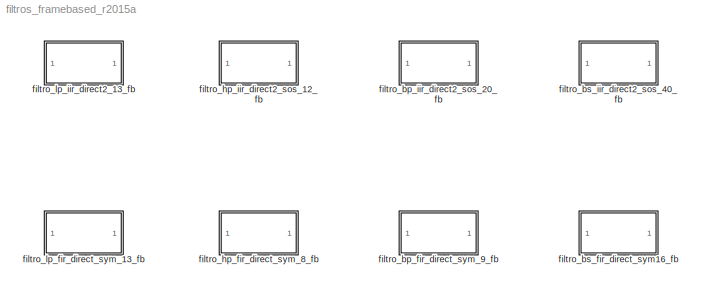
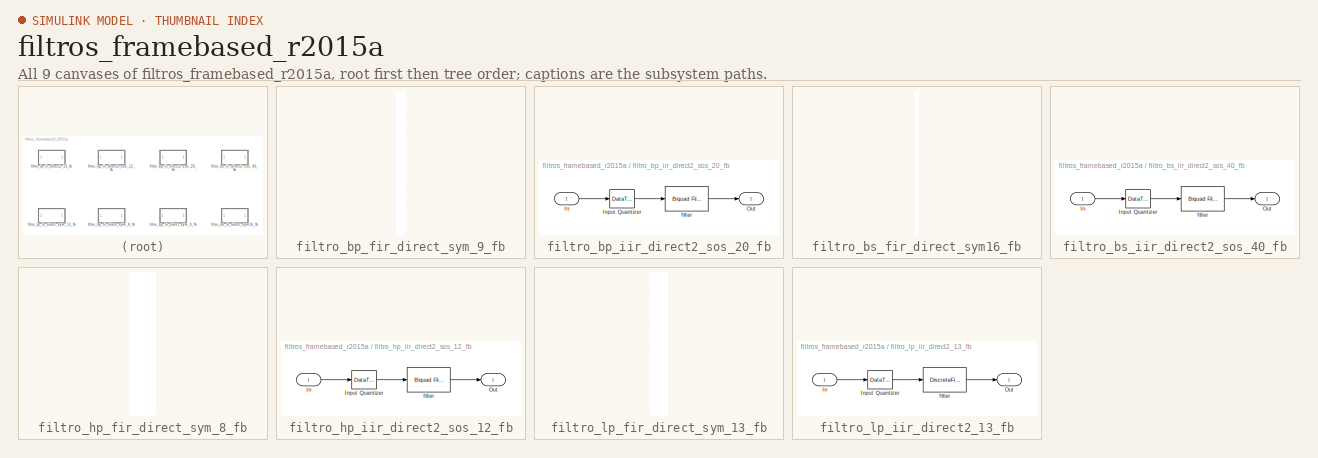
[diagram: thumbnail index - all 9 canvases of the model, root first then tree order]
MODEL filtros_framebased_r2015a
KIND model
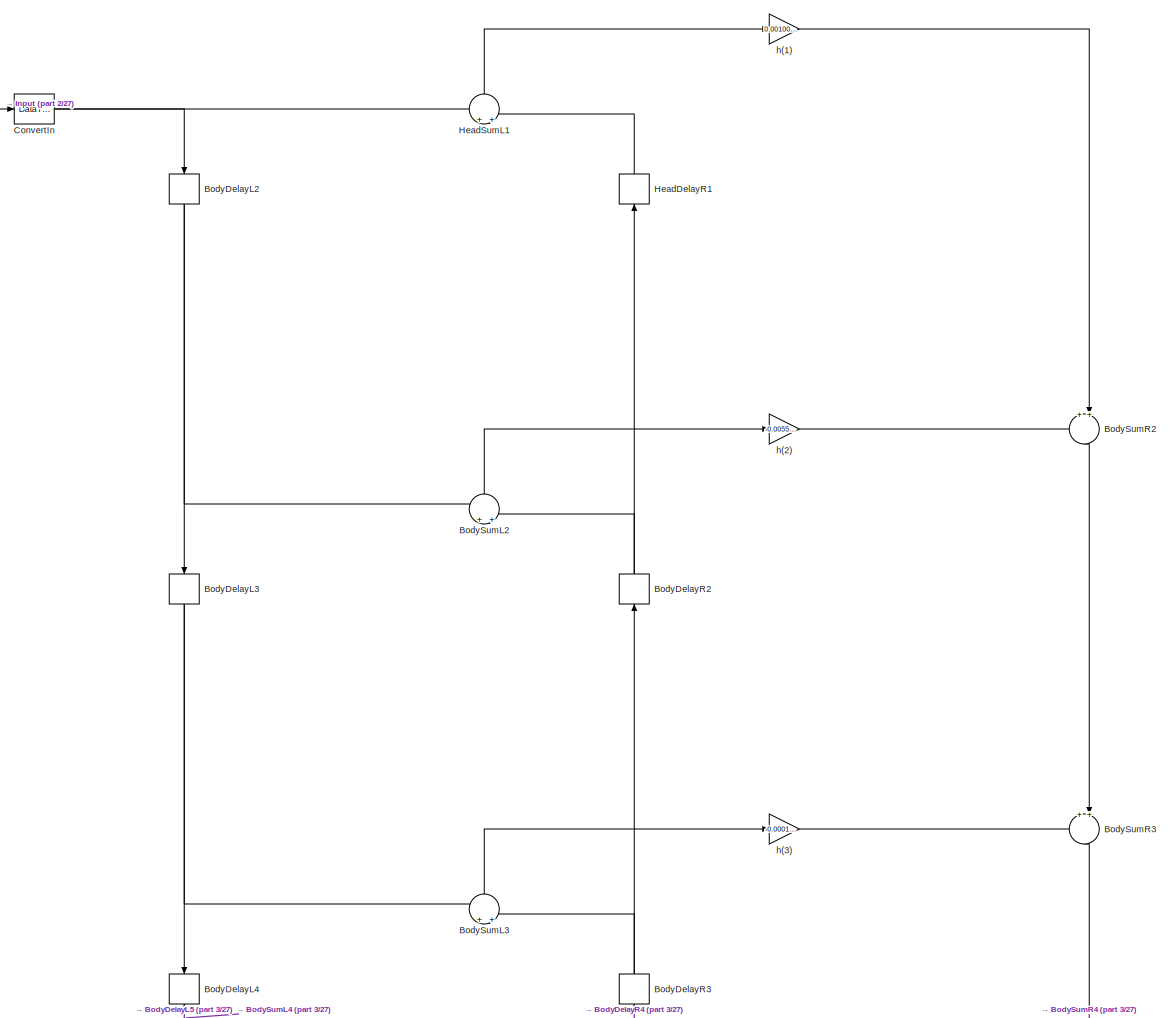
[diagram: filtro_bp_fir_direct_sym_9_fb - part 1/27, full width, top band]
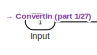
[diagram: filtro_bp_fir_direct_sym_9_fb - part 2/27, top left region]
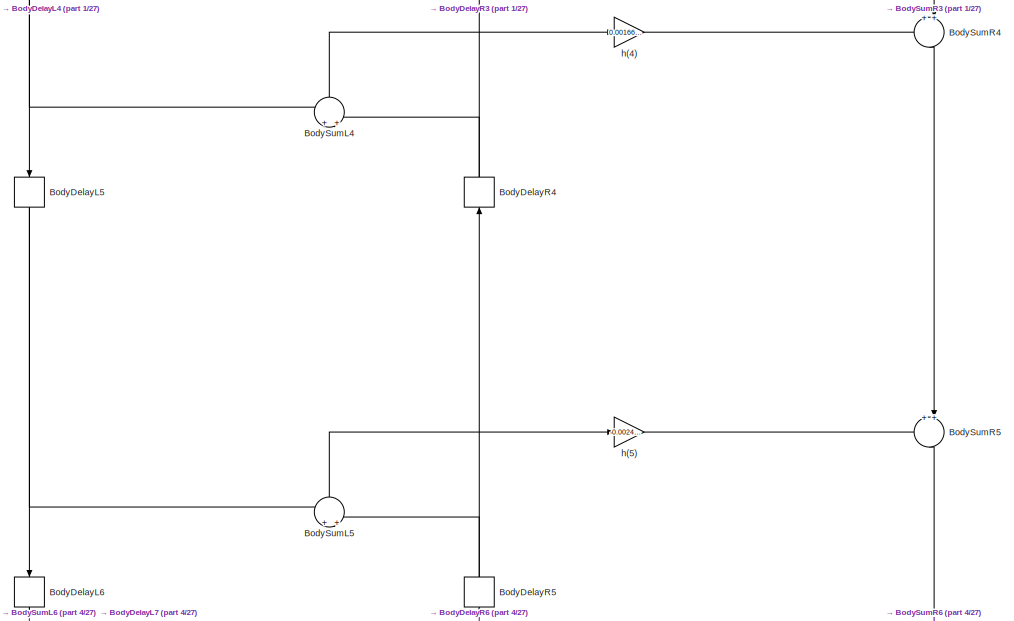
[diagram: filtro_bp_fir_direct_sym_9_fb - part 3/27, top center region]
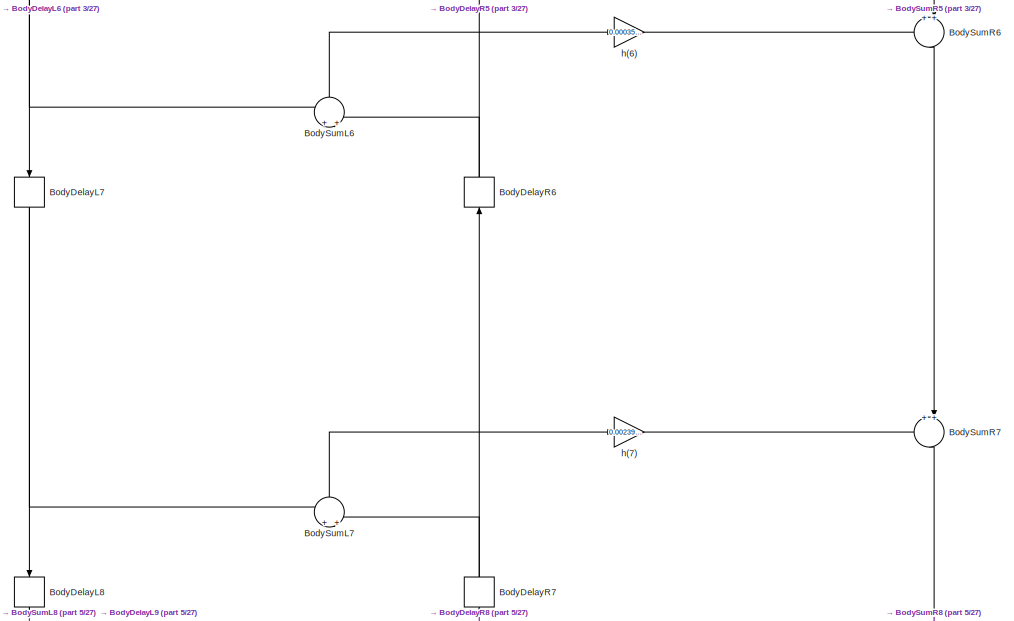
[diagram: filtro_bp_fir_direct_sym_9_fb - part 4/27, top center region]
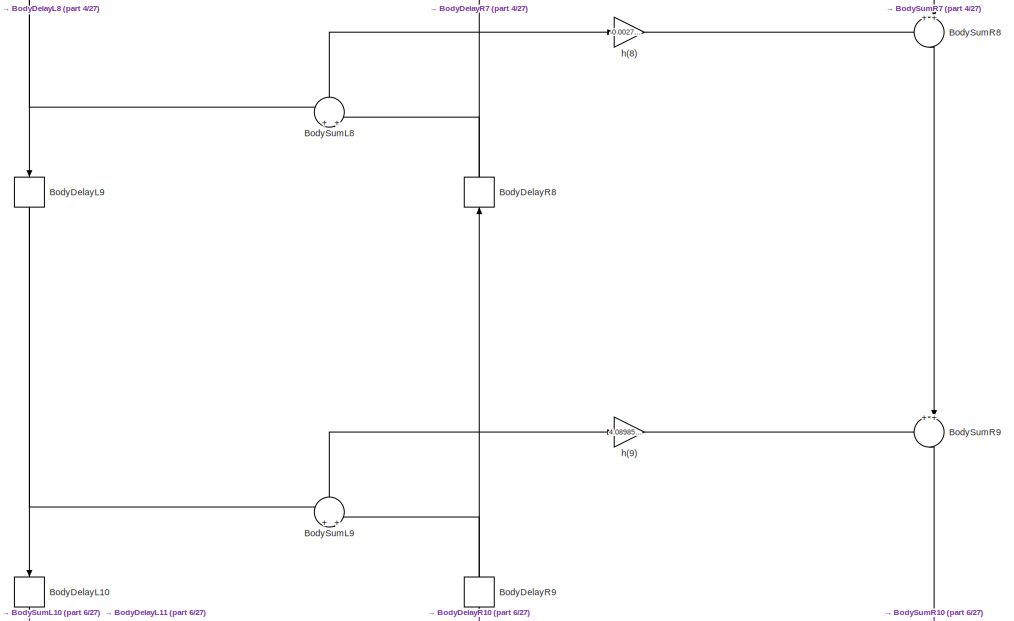
[diagram: filtro_bp_fir_direct_sym_9_fb - part 5/27, top center region]
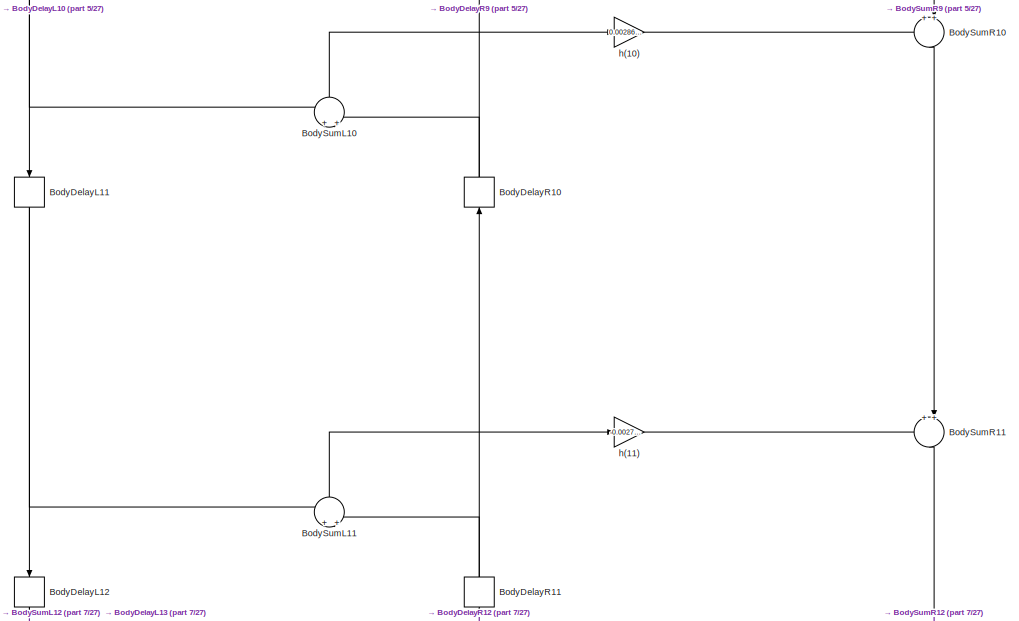
[diagram: filtro_bp_fir_direct_sym_9_fb - part 6/27, top center region]
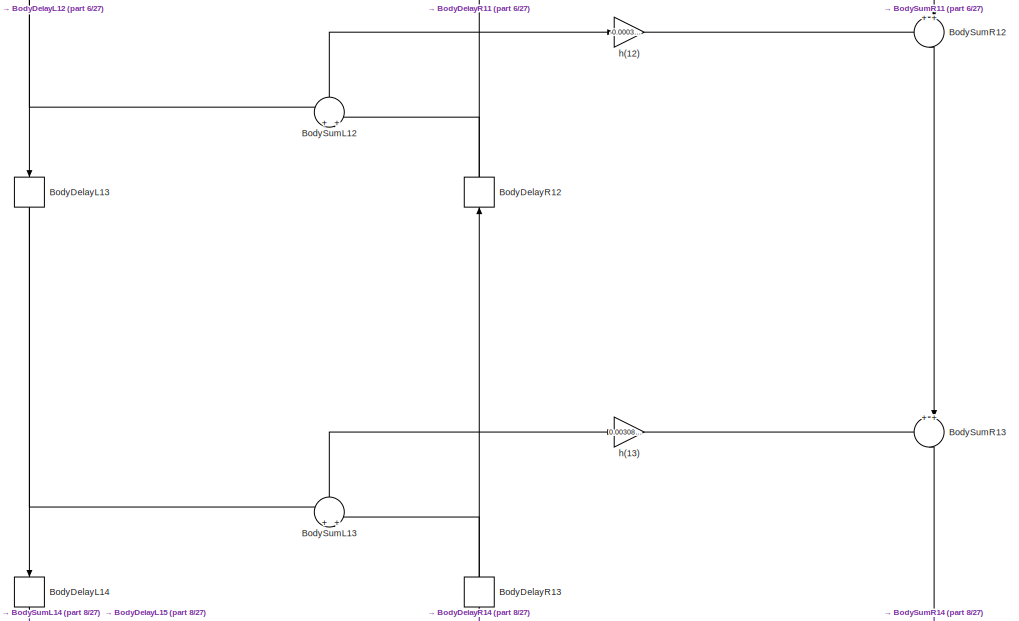
[diagram: filtro_bp_fir_direct_sym_9_fb - part 7/27, top center region]
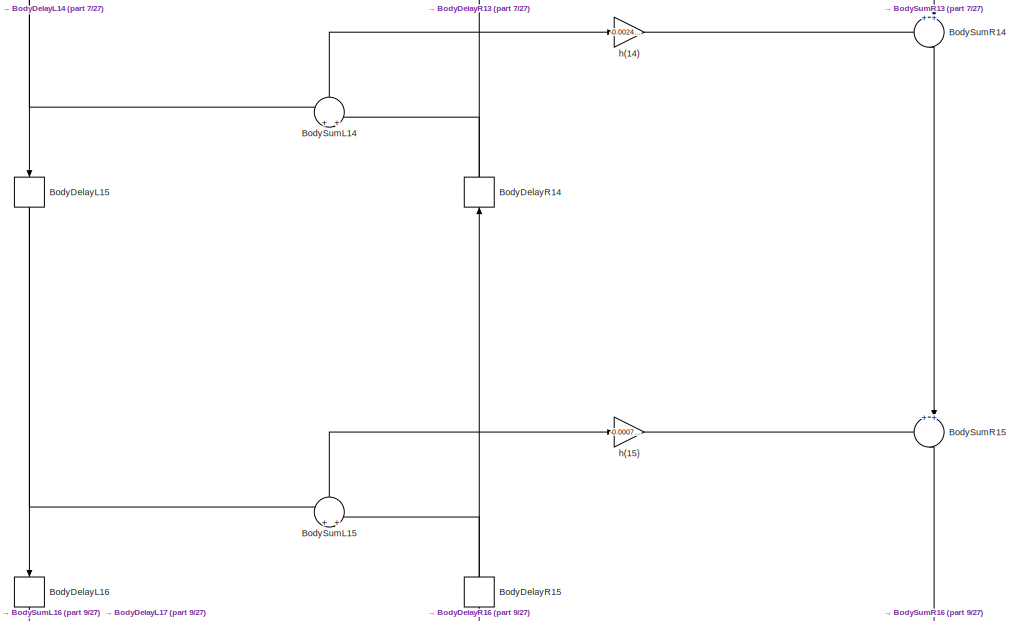
[diagram: filtro_bp_fir_direct_sym_9_fb - part 8/27, top center region]
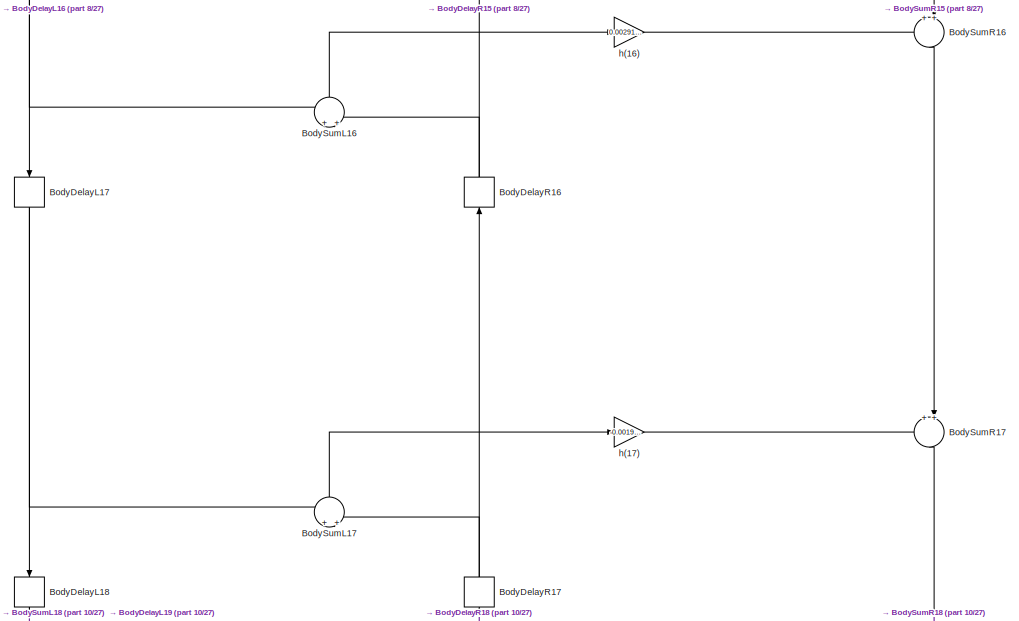
[diagram: filtro_bp_fir_direct_sym_9_fb - part 9/27, top center region]
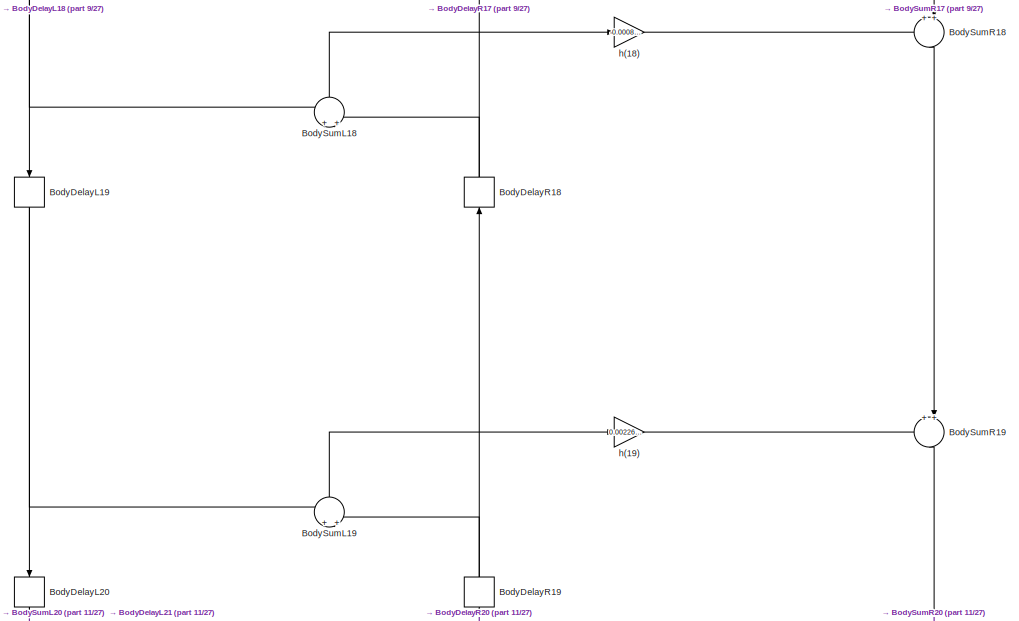
[diagram: filtro_bp_fir_direct_sym_9_fb - part 10/27, central region]
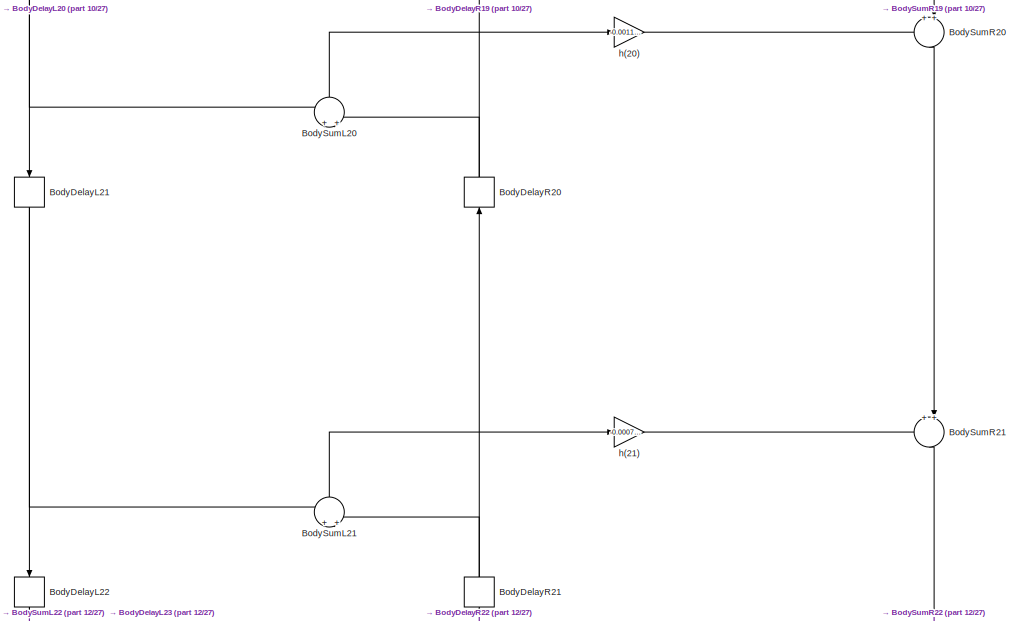
[diagram: filtro_bp_fir_direct_sym_9_fb - part 11/27, central region]
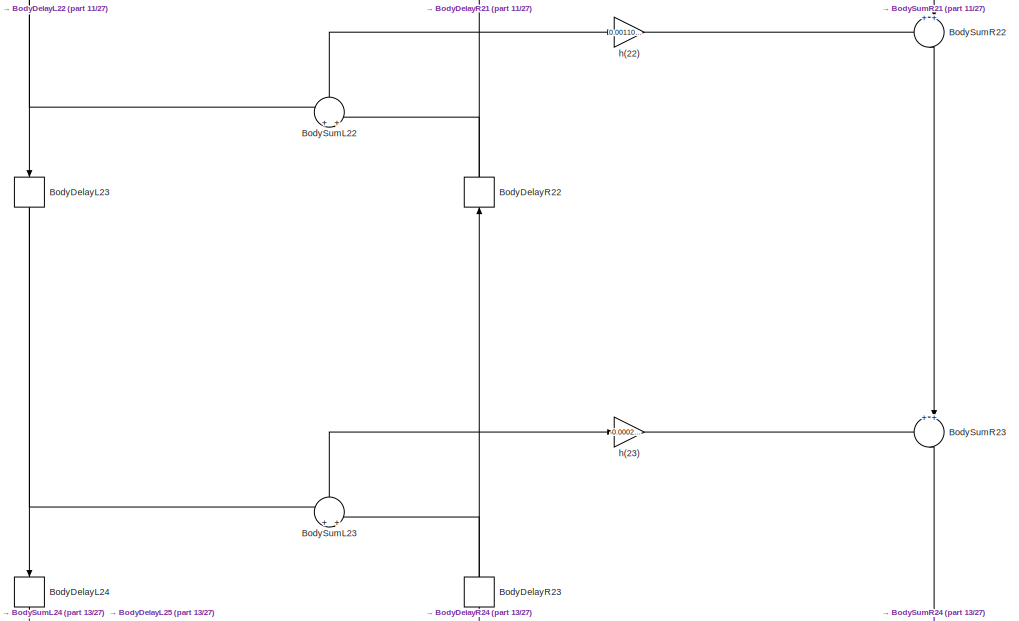
[diagram: filtro_bp_fir_direct_sym_9_fb - part 12/27, central region]
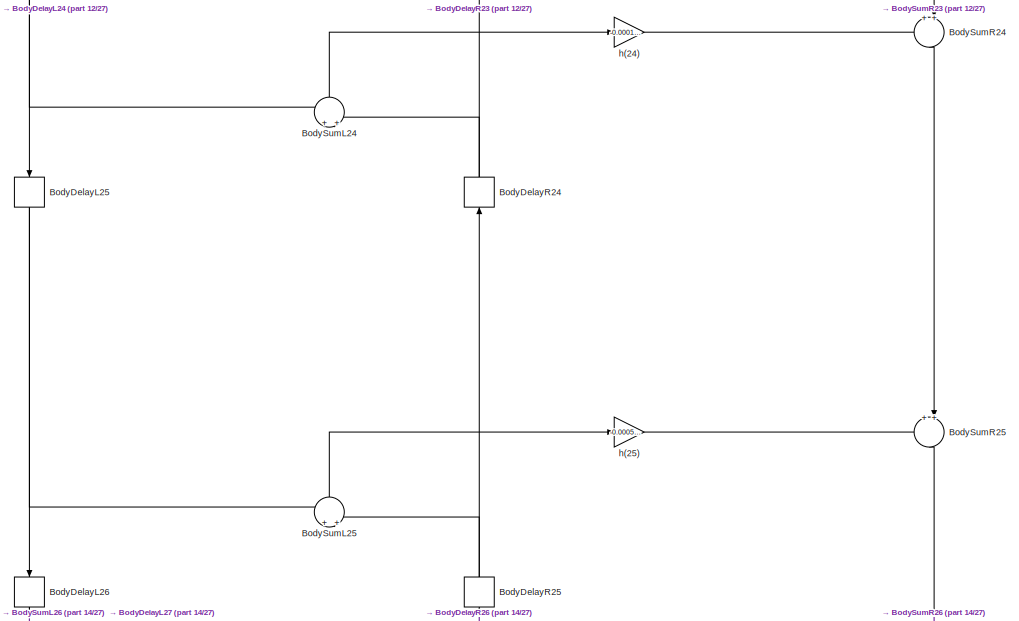
[diagram: filtro_bp_fir_direct_sym_9_fb - part 13/27, central region]
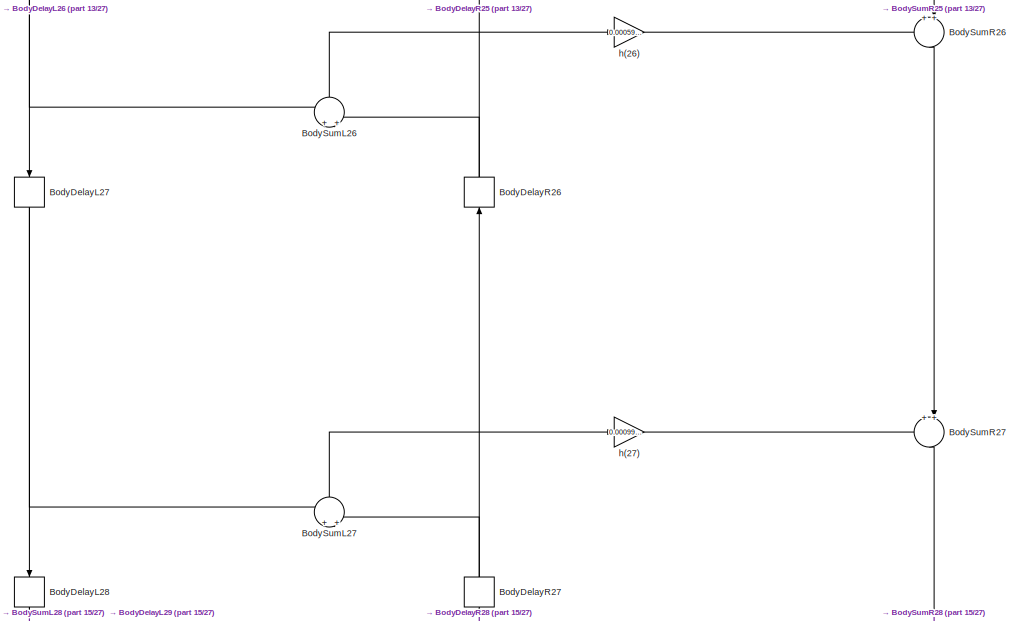
[diagram: filtro_bp_fir_direct_sym_9_fb - part 14/27, central region]
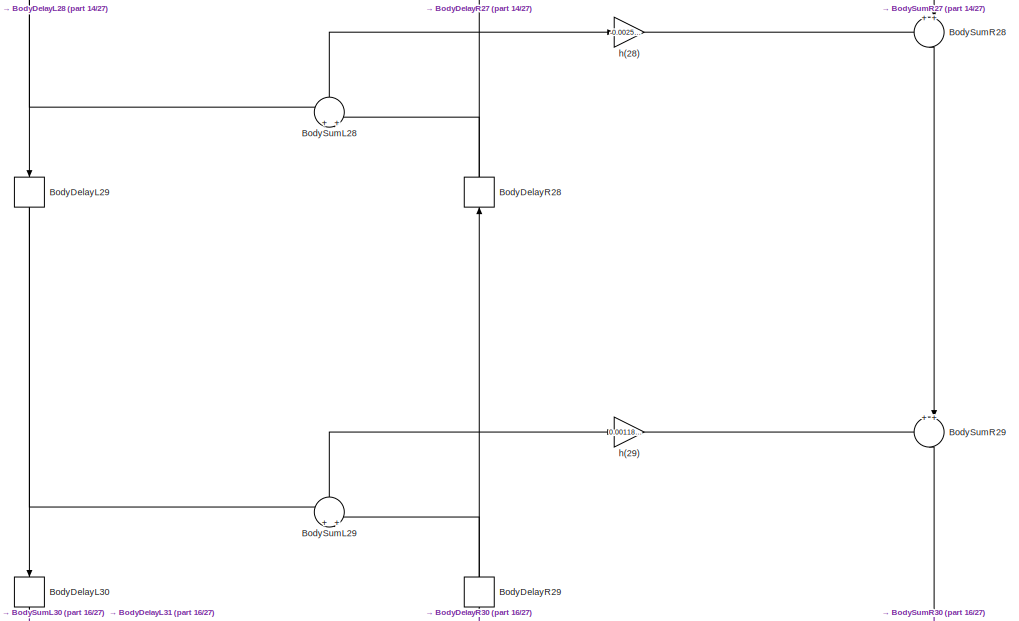
[diagram: filtro_bp_fir_direct_sym_9_fb - part 15/27, central region]
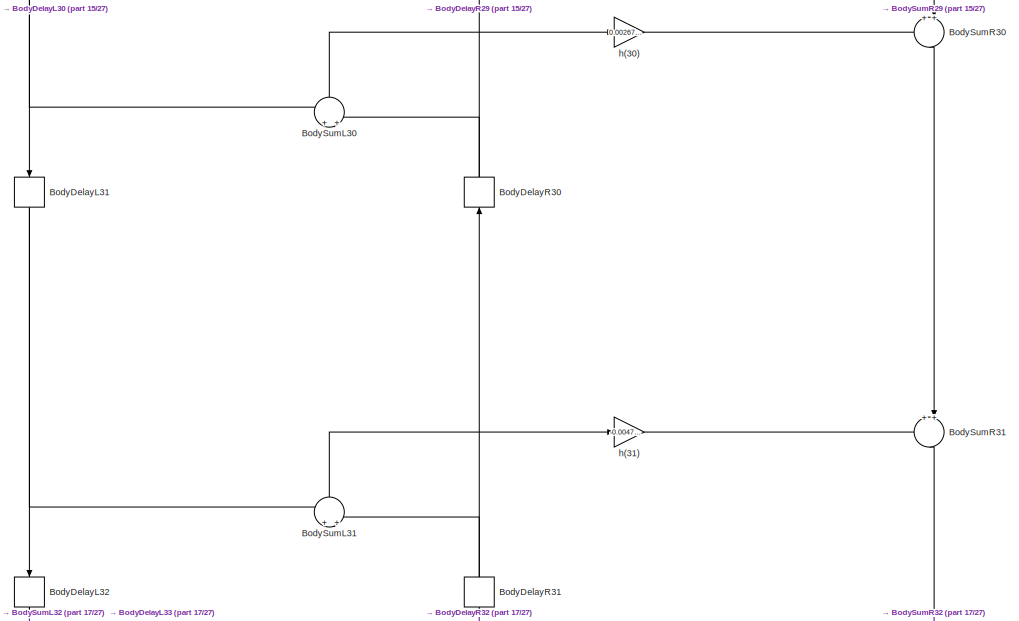
[diagram: filtro_bp_fir_direct_sym_9_fb - part 16/27, central region]
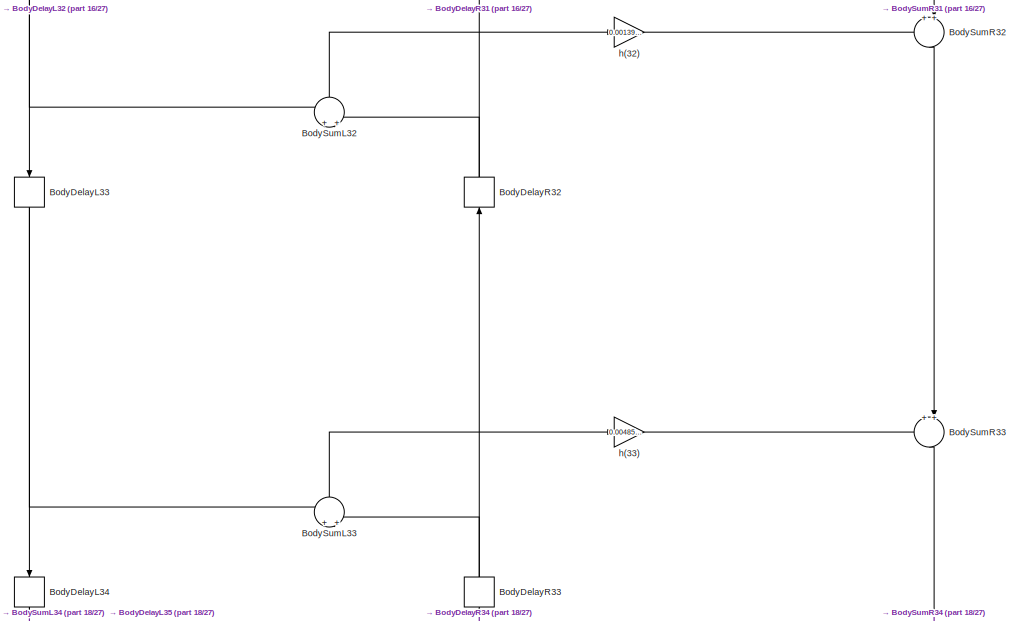
[diagram: filtro_bp_fir_direct_sym_9_fb - part 17/27, central region]
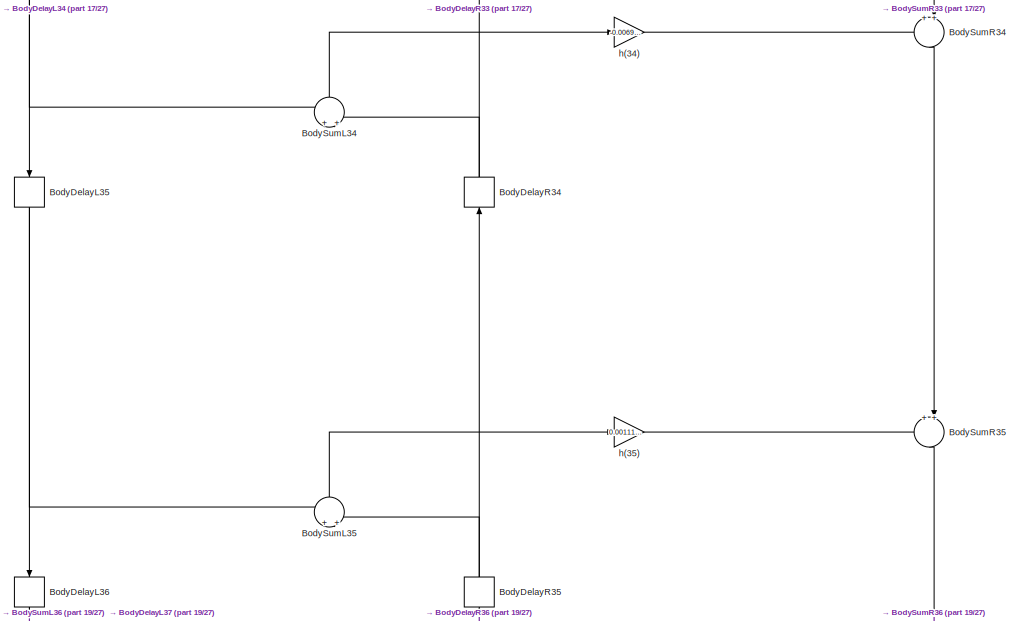
[diagram: filtro_bp_fir_direct_sym_9_fb - part 18/27, central region]
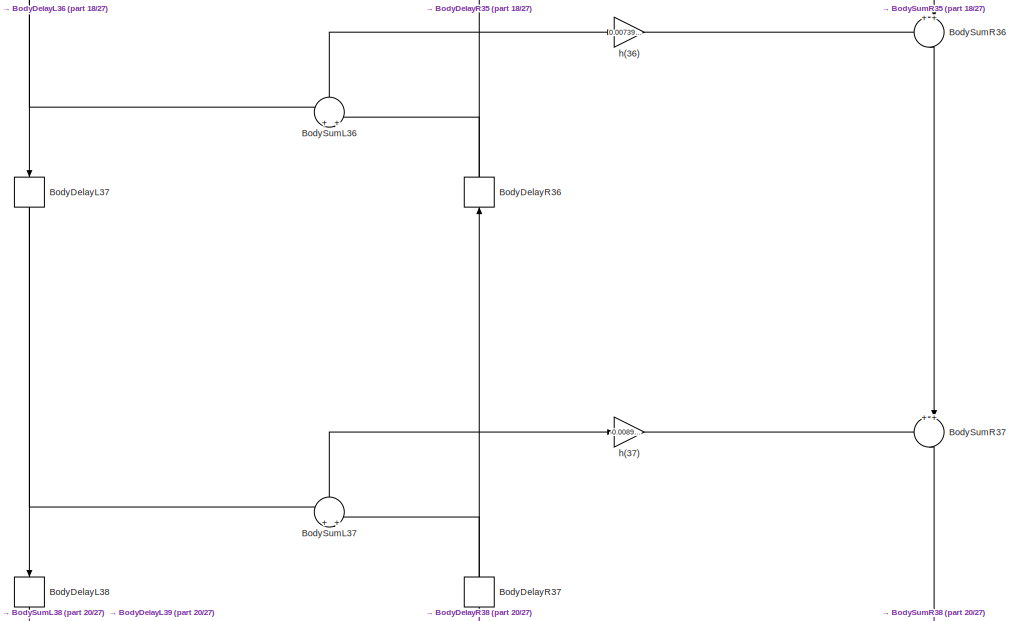
[diagram: filtro_bp_fir_direct_sym_9_fb - part 19/27, bottom center region]
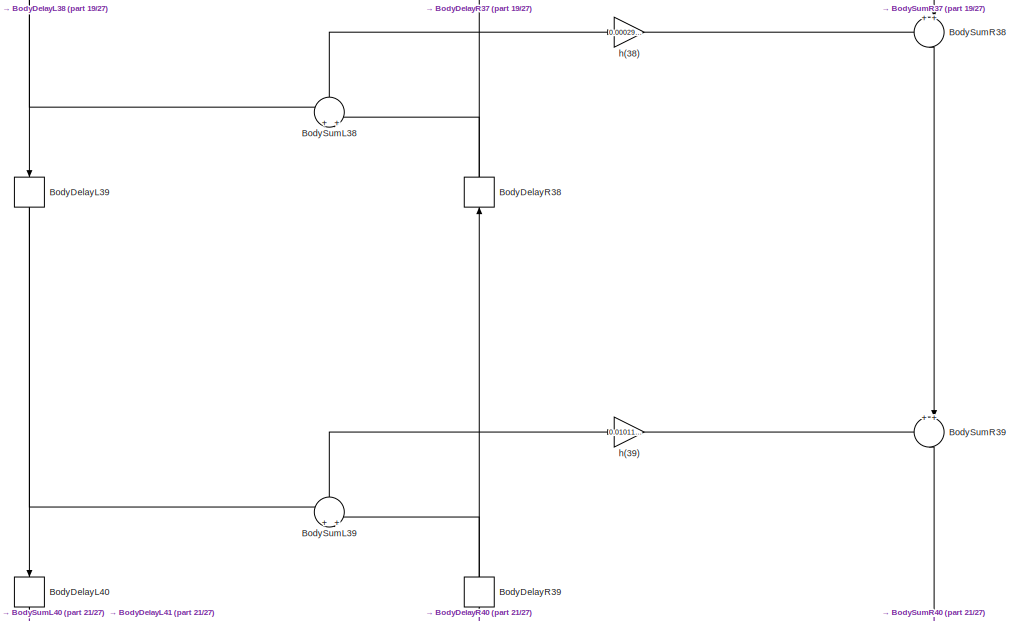
[diagram: filtro_bp_fir_direct_sym_9_fb - part 20/27, bottom center region]
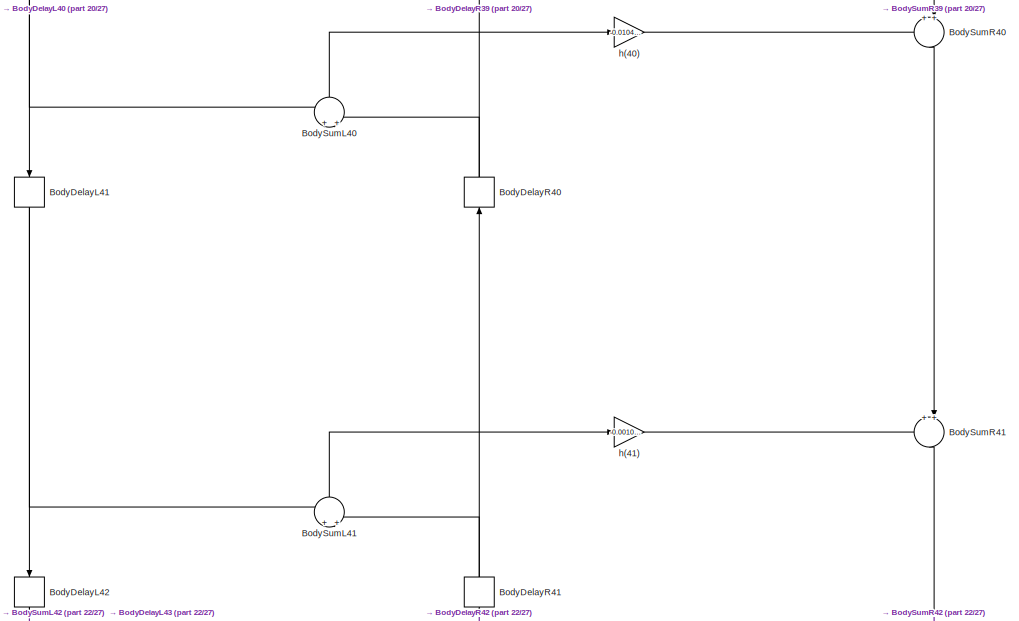
[diagram: filtro_bp_fir_direct_sym_9_fb - part 21/27, bottom center region]
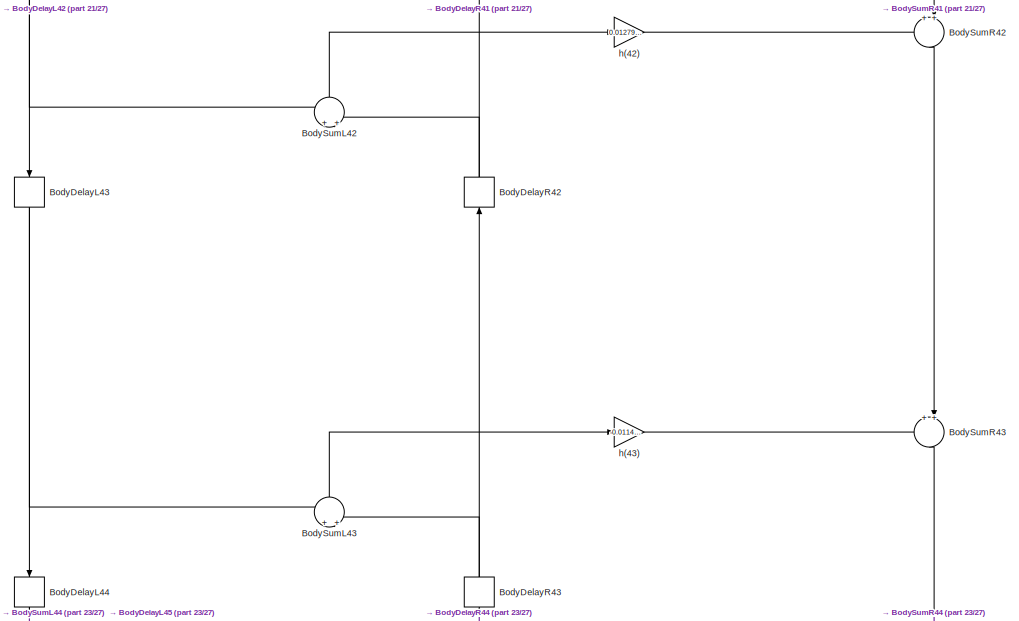
[diagram: filtro_bp_fir_direct_sym_9_fb - part 22/27, bottom center region]
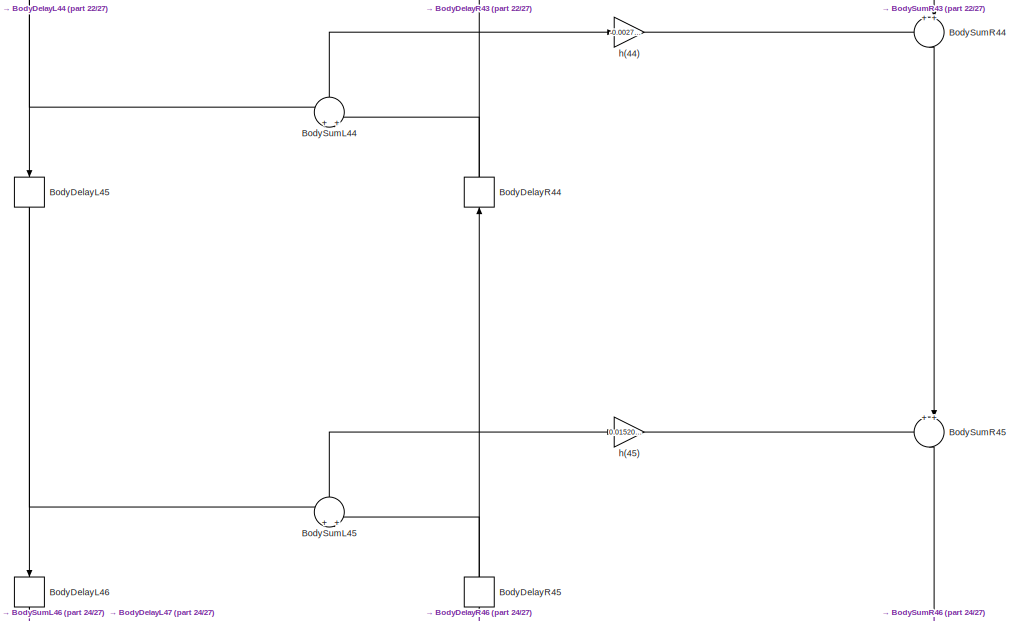
[diagram: filtro_bp_fir_direct_sym_9_fb - part 23/27, bottom center region]
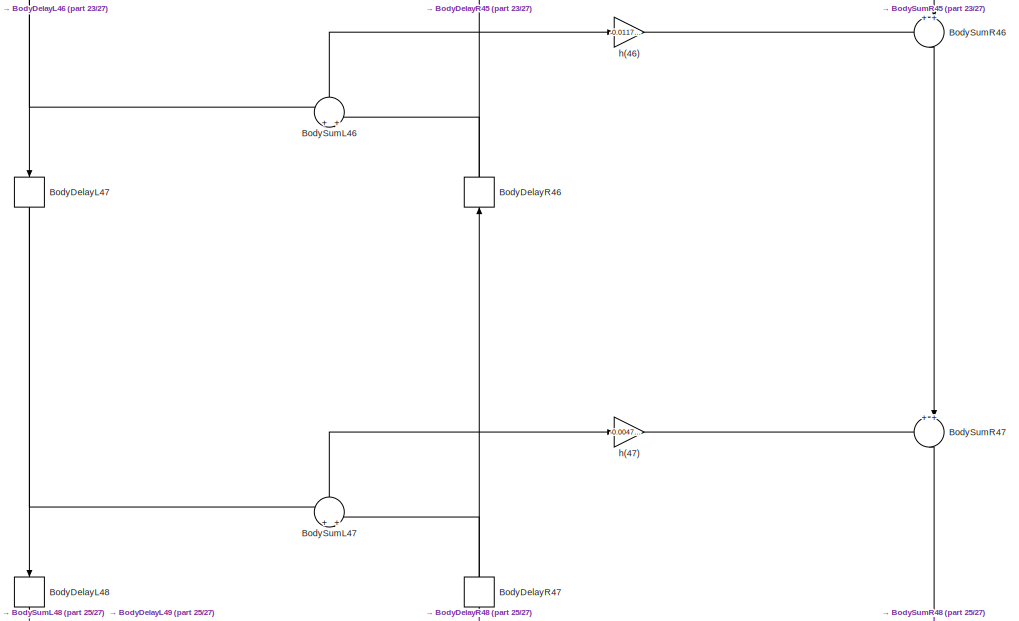
[diagram: filtro_bp_fir_direct_sym_9_fb - part 24/27, bottom center region]
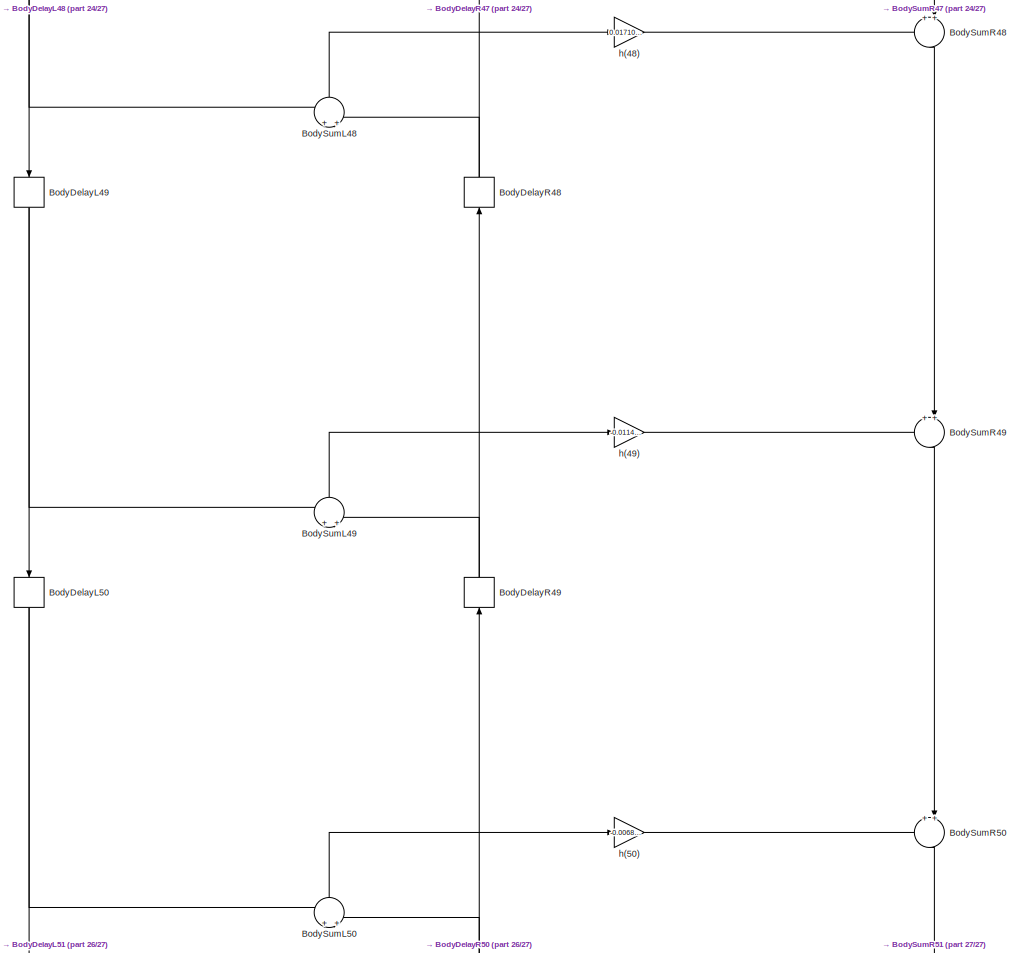
[diagram: filtro_bp_fir_direct_sym_9_fb - part 25/27, bottom center region]
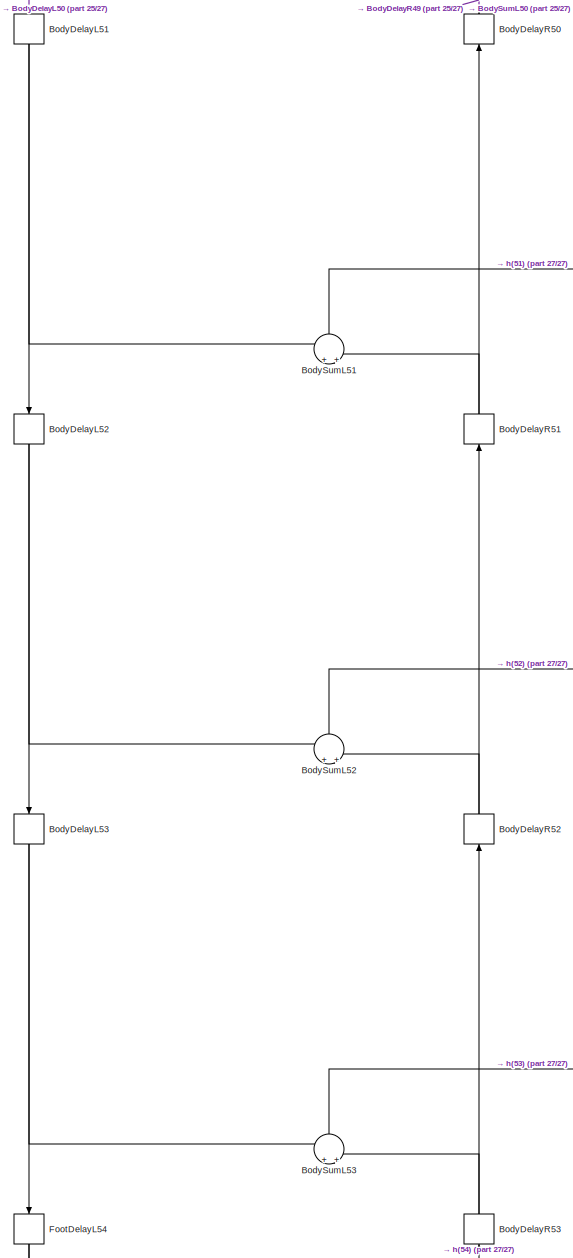
[diagram: filtro_bp_fir_direct_sym_9_fb - part 26/27, bottom center region]
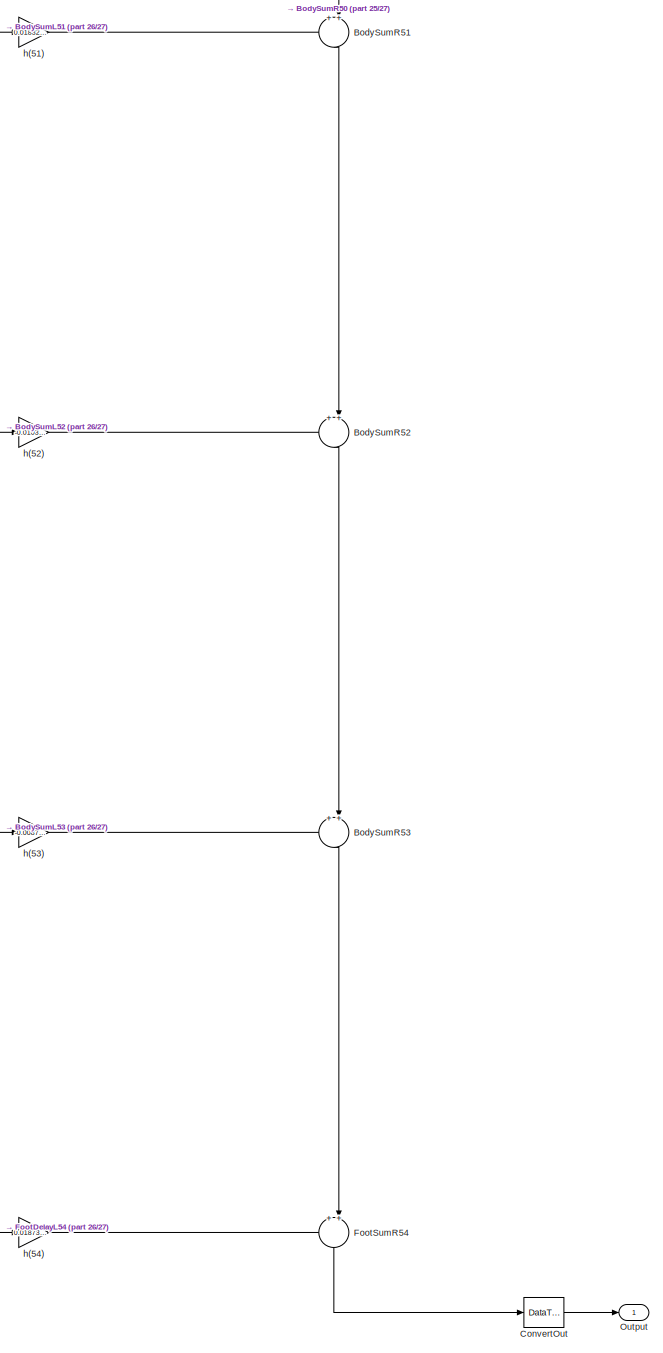
[diagram: filtro_bp_fir_direct_sym_9_fb - part 27/27, bottom right region]
BLOCK [SubSystem] filtro_bp_fir_direct_sym_9_fb
  ErrorFcn = dspFilterRealizedInBasicElemsAlgLoopErrFcnCallback
  Ports = [1, 1]
  RequestExecContextInheritance = off
  SID = 1026
  Tag = FilterWizardSubSystem
  UserData = DataTag0
  UserDataPersistent = on
BLOCK [Delay] filtro_bp_fir_direct_sym_9_fb/BodyDelayL10
  DelayLength = 1
  InitialCondition = 0
  InputPortMap = u0
  InputProcessing = Columns as channels (frame based)
  Ports = [1, 1]
  SID = 1072
BLOCK [Delay] filtro_bp_fir_direct_sym_9_fb/BodyDelayL11
  DelayLength = 1
  InitialCondition = 0
  InputPortMap = u0
  InputProcessing = Columns as channels (frame based)
  Ports = [1, 1]
  SID = 1077
BLOCK [Delay] filtro_bp_fir_direct_sym_9_fb/BodyDelayL12
  DelayLength = 1
  InitialCondition = 0
  InputPortMap = u0
  InputProcessing = Columns as channels (frame based)
  Ports = [1, 1]
  SID = 1082
BLOCK [Delay] filtro_bp_fir_direct_sym_9_fb/BodyDelayL13
  DelayLength = 1
  InitialCondition = 0
  InputPortMap = u0
  InputProcessing = Columns as channels (frame based)
  Ports = [1, 1]
  SID = 1087
BLOCK [Delay] filtro_bp_fir_direct_sym_9_fb/BodyDelayL14
  DelayLength = 1
  InitialCondition = 0
  InputPortMap = u0
  InputProcessing = Columns as channels (frame based)
  Ports = [1, 1]
  SID = 1092
BLOCK [Delay] filtro_bp_fir_direct_sym_9_fb/BodyDelayL15
  DelayLength = 1
  InitialCondition = 0
  InputPortMap = u0
  InputProcessing = Columns as channels (frame based)
  Ports = [1, 1]
  SID = 1097
BLOCK [Delay] filtro_bp_fir_direct_sym_9_fb/BodyDelayL16
  DelayLength = 1
  InitialCondition = 0
  InputPortMap = u0
  InputProcessing = Columns as channels (frame based)
  Ports = [1, 1]
  SID = 1102
BLOCK [Delay] filtro_bp_fir_direct_sym_9_fb/BodyDelayL17
  DelayLength = 1
  InitialCondition = 0
  InputPortMap = u0
  InputProcessing = Columns as channels (frame based)
  Ports = [1, 1]
  SID = 1107
BLOCK [Delay] filtro_bp_fir_direct_sym_9_fb/BodyDelayL18
  DelayLength = 1
  InitialCondition = 0
  InputPortMap = u0
  InputProcessing = Columns as channels (frame based)
  Ports = [1, 1]
  SID = 1112
BLOCK [Delay] filtro_bp_fir_direct_sym_9_fb/BodyDelayL19
  DelayLength = 1
  InitialCondition = 0
  InputPortMap = u0
  InputProcessing = Columns as channels (frame based)
  Ports = [1, 1]
  SID = 1117
BLOCK [Delay] filtro_bp_fir_direct_sym_9_fb/BodyDelayL2
  DelayLength = 1
  InitialCondition = 0
  InputPortMap = u0
  InputProcessing = Columns as channels (frame based)
  Ports = [1, 1]
  SID = 1032
BLOCK [Delay] filtro_bp_fir_direct_sym_9_fb/BodyDelayL20
  DelayLength = 1
  InitialCondition = 0
  InputPortMap = u0
  InputProcessing = Columns as channels (frame based)
  Ports = [1, 1]
  SID = 1122
BLOCK [Delay] filtro_bp_fir_direct_sym_9_fb/BodyDelayL21
  DelayLength = 1
  InitialCondition = 0
  InputPortMap = u0
  InputProcessing = Columns as channels (frame based)
  Ports = [1, 1]
  SID = 1127
BLOCK [Delay] filtro_bp_fir_direct_sym_9_fb/BodyDelayL22
  DelayLength = 1
  InitialCondition = 0
  InputPortMap = u0
  InputProcessing = Columns as channels (frame based)
  Ports = [1, 1]
  SID = 1132
BLOCK [Delay] filtro_bp_fir_direct_sym_9_fb/BodyDelayL23
  DelayLength = 1
  InitialCondition = 0
  InputPortMap = u0
  InputProcessing = Columns as channels (frame based)
  Ports = [1, 1]
  SID = 1137
BLOCK [Delay] filtro_bp_fir_direct_sym_9_fb/BodyDelayL24
  DelayLength = 1
  InitialCondition = 0
  InputPortMap = u0
  InputProcessing = Columns as channels (frame based)
  Ports = [1, 1]
  SID = 1142
BLOCK [Delay] filtro_bp_fir_direct_sym_9_fb/BodyDelayL25
  DelayLength = 1
  InitialCondition = 0
  InputPortMap = u0
  InputProcessing = Columns as channels (frame based)
  Ports = [1, 1]
  SID = 1147
BLOCK [Delay] filtro_bp_fir_direct_sym_9_fb/BodyDelayL26
  DelayLength = 1
  InitialCondition = 0
  InputPortMap = u0
  InputProcessing = Columns as channels (frame based)
  Ports = [1, 1]
  SID = 1152
BLOCK [Delay] filtro_bp_fir_direct_sym_9_fb/BodyDelayL27
  DelayLength = 1
  InitialCondition = 0
  InputPortMap = u0
  InputProcessing = Columns as channels (frame based)
  Ports = [1, 1]
  SID = 1157
BLOCK [Delay] filtro_bp_fir_direct_sym_9_fb/BodyDelayL28
  DelayLength = 1
  InitialCondition = 0
  InputPortMap = u0
  InputProcessing = Columns as channels (frame based)
  Ports = [1, 1]
  SID = 1162
BLOCK [Delay] filtro_bp_fir_direct_sym_9_fb/BodyDelayL29
  DelayLength = 1
  InitialCondition = 0
  InputPortMap = u0
  InputProcessing = Columns as channels (frame based)
  Ports = [1, 1]
  SID = 1167
BLOCK [Delay] filtro_bp_fir_direct_sym_9_fb/BodyDelayL3
  DelayLength = 1
  InitialCondition = 0
  InputPortMap = u0
  InputProcessing = Columns as channels (frame based)
  Ports = [1, 1]
  SID = 1037
BLOCK [Delay] filtro_bp_fir_direct_sym_9_fb/BodyDelayL30
  DelayLength = 1
  InitialCondition = 0
  InputPortMap = u0
  InputProcessing = Columns as channels (frame based)
  Ports = [1, 1]
  SID = 1172
BLOCK [Delay] filtro_bp_fir_direct_sym_9_fb/BodyDelayL31
  DelayLength = 1
  InitialCondition = 0
  InputPortMap = u0
  InputProcessing = Columns as channels (frame based)
  Ports = [1, 1]
  SID = 1177
BLOCK [Delay] filtro_bp_fir_direct_sym_9_fb/BodyDelayL32
  DelayLength = 1
  InitialCondition = 0
  InputPortMap = u0
  InputProcessing = Columns as channels (frame based)
  Ports = [1, 1]
  SID = 1182
BLOCK [Delay] filtro_bp_fir_direct_sym_9_fb/BodyDelayL33
  DelayLength = 1
  InitialCondition = 0
  InputPortMap = u0
  InputProcessing = Columns as channels (frame based)
  Ports = [1, 1]
  SID = 1187
BLOCK [Delay] filtro_bp_fir_direct_sym_9_fb/BodyDelayL34
  DelayLength = 1
  InitialCondition = 0
  InputPortMap = u0
  InputProcessing = Columns as channels (frame based)
  Ports = [1, 1]
  SID = 1192
BLOCK [Delay] filtro_bp_fir_direct_sym_9_fb/BodyDelayL35
  DelayLength = 1
  InitialCondition = 0
  InputPortMap = u0
  InputProcessing = Columns as channels (frame based)
  Ports = [1, 1]
  SID = 1197
BLOCK [Delay] filtro_bp_fir_direct_sym_9_fb/BodyDelayL36
  DelayLength = 1
  InitialCondition = 0
  InputPortMap = u0
  InputProcessing = Columns as channels (frame based)
  Ports = [1, 1]
  SID = 1202
BLOCK [Delay] filtro_bp_fir_direct_sym_9_fb/BodyDelayL37
  DelayLength = 1
  InitialCondition = 0
  InputPortMap = u0
  InputProcessing = Columns as channels (frame based)
  Ports = [1, 1]
  SID = 1207
BLOCK [Delay] filtro_bp_fir_direct_sym_9_fb/BodyDelayL38
  DelayLength = 1
  InitialCondition = 0
  InputPortMap = u0
  InputProcessing = Columns as channels (frame based)
  Ports = [1, 1]
  SID = 1212
BLOCK [Delay] filtro_bp_fir_direct_sym_9_fb/BodyDelayL39
  DelayLength = 1
  InitialCondition = 0
  InputPortMap = u0
  InputProcessing = Columns as channels (frame based)
  Ports = [1, 1]
  SID = 1217
BLOCK [Delay] filtro_bp_fir_direct_sym_9_fb/BodyDelayL4
  DelayLength = 1
  InitialCondition = 0
  InputPortMap = u0
  InputProcessing = Columns as channels (frame based)
  Ports = [1, 1]
  SID = 1042
BLOCK [Delay] filtro_bp_fir_direct_sym_9_fb/BodyDelayL40
  DelayLength = 1
  InitialCondition = 0
  InputPortMap = u0
  InputProcessing = Columns as channels (frame based)
  Ports = [1, 1]
  SID = 1222
BLOCK [Delay] filtro_bp_fir_direct_sym_9_fb/BodyDelayL41
  DelayLength = 1
  InitialCondition = 0
  InputPortMap = u0
  InputProcessing = Columns as channels (frame based)
  Ports = [1, 1]
  SID = 1227
BLOCK [Delay] filtro_bp_fir_direct_sym_9_fb/BodyDelayL42
  DelayLength = 1
  InitialCondition = 0
  InputPortMap = u0
  InputProcessing = Columns as channels (frame based)
  Ports = [1, 1]
  SID = 1232
BLOCK [Delay] filtro_bp_fir_direct_sym_9_fb/BodyDelayL43
  DelayLength = 1
  InitialCondition = 0
  InputPortMap = u0
  InputProcessing = Columns as channels (frame based)
  Ports = [1, 1]
  SID = 1237
BLOCK [Delay] filtro_bp_fir_direct_sym_9_fb/BodyDelayL44
  DelayLength = 1
  InitialCondition = 0
  InputPortMap = u0
  InputProcessing = Columns as channels (frame based)
  Ports = [1, 1]
  SID = 1242
BLOCK [Delay] filtro_bp_fir_direct_sym_9_fb/BodyDelayL45
  DelayLength = 1
  InitialCondition = 0
  InputPortMap = u0
  InputProcessing = Columns as channels (frame based)
  Ports = [1, 1]
  SID = 1247
BLOCK [Delay] filtro_bp_fir_direct_sym_9_fb/BodyDelayL46
  DelayLength = 1
  InitialCondition = 0
  InputPortMap = u0
  InputProcessing = Columns as channels (frame based)
  Ports = [1, 1]
  SID = 1252
BLOCK [Delay] filtro_bp_fir_direct_sym_9_fb/BodyDelayL47
  DelayLength = 1
  InitialCondition = 0
  InputPortMap = u0
  InputProcessing = Columns as channels (frame based)
  Ports = [1, 1]
  SID = 1257
BLOCK [Delay] filtro_bp_fir_direct_sym_9_fb/BodyDelayL48
  DelayLength = 1
  InitialCondition = 0
  InputPortMap = u0
  InputProcessing = Columns as channels (frame based)
  Ports = [1, 1]
  SID = 1262
BLOCK [Delay] filtro_bp_fir_direct_sym_9_fb/BodyDelayL49
  DelayLength = 1
  InitialCondition = 0
  InputPortMap = u0
  InputProcessing = Columns as channels (frame based)
  Ports = [1, 1]
  SID = 1267
BLOCK [Delay] filtro_bp_fir_direct_sym_9_fb/BodyDelayL5
  DelayLength = 1
  InitialCondition = 0
  InputPortMap = u0
  InputProcessing = Columns as channels (frame based)
  Ports = [1, 1]
  SID = 1047
BLOCK [Delay] filtro_bp_fir_direct_sym_9_fb/BodyDelayL50
  DelayLength = 1
  InitialCondition = 0
  InputPortMap = u0
  InputProcessing = Columns as channels (frame based)
  Ports = [1, 1]
  SID = 1272
BLOCK [Delay] filtro_bp_fir_direct_sym_9_fb/BodyDelayL51
  DelayLength = 1
  InitialCondition = 0
  InputPortMap = u0
  InputProcessing = Columns as channels (frame based)
  Ports = [1, 1]
  SID = 1277
BLOCK [Delay] filtro_bp_fir_direct_sym_9_fb/BodyDelayL52
  DelayLength = 1
  InitialCondition = 0
  InputPortMap = u0
  InputProcessing = Columns as channels (frame based)
  Ports = [1, 1]
  SID = 1282
BLOCK [Delay] filtro_bp_fir_direct_sym_9_fb/BodyDelayL53
  DelayLength = 1
  InitialCondition = 0
  InputPortMap = u0
  InputProcessing = Columns as channels (frame based)
  Ports = [1, 1]
  SID = 1287
BLOCK [Delay] filtro_bp_fir_direct_sym_9_fb/BodyDelayL6
  DelayLength = 1
  InitialCondition = 0
  InputPortMap = u0
  InputProcessing = Columns as channels (frame based)
  Ports = [1, 1]
  SID = 1052
BLOCK [Delay] filtro_bp_fir_direct_sym_9_fb/BodyDelayL7
  DelayLength = 1
  InitialCondition = 0
  InputPortMap = u0
  InputProcessing = Columns as channels (frame based)
  Ports = [1, 1]
  SID = 1057
BLOCK [Delay] filtro_bp_fir_direct_sym_9_fb/BodyDelayL8
  DelayLength = 1
  InitialCondition = 0
  InputPortMap = u0
  InputProcessing = Columns as channels (frame based)
  Ports = [1, 1]
  SID = 1062
BLOCK [Delay] filtro_bp_fir_direct_sym_9_fb/BodyDelayL9
  DelayLength = 1
  InitialCondition = 0
  InputPortMap = u0
  InputProcessing = Columns as channels (frame based)
  Ports = [1, 1]
  SID = 1067
BLOCK [Delay] filtro_bp_fir_direct_sym_9_fb/BodyDelayR10
  DelayLength = 1
  InitialCondition = 0
  InputPortMap = u0
  InputProcessing = Columns as channels (frame based)
  Ports = [1, 1]
  SID = 1075
BLOCK [Delay] filtro_bp_fir_direct_sym_9_fb/BodyDelayR11
  DelayLength = 1
  InitialCondition = 0
  InputPortMap = u0
  InputProcessing = Columns as channels (frame based)
  Ports = [1, 1]
  SID = 1080
BLOCK [Delay] filtro_bp_fir_direct_sym_9_fb/BodyDelayR12
  DelayLength = 1
  InitialCondition = 0
  InputPortMap = u0
  InputProcessing = Columns as channels (frame based)
  Ports = [1, 1]
  SID = 1085
BLOCK [Delay] filtro_bp_fir_direct_sym_9_fb/BodyDelayR13
  DelayLength = 1
  InitialCondition = 0
  InputPortMap = u0
  InputProcessing = Columns as channels (frame based)
  Ports = [1, 1]
  SID = 1090
BLOCK [Delay] filtro_bp_fir_direct_sym_9_fb/BodyDelayR14
  DelayLength = 1
  InitialCondition = 0
  InputPortMap = u0
  InputProcessing = Columns as channels (frame based)
  Ports = [1, 1]
  SID = 1095
BLOCK [Delay] filtro_bp_fir_direct_sym_9_fb/BodyDelayR15
  DelayLength = 1
  InitialCondition = 0
  InputPortMap = u0
  InputProcessing = Columns as channels (frame based)
  Ports = [1, 1]
  SID = 1100
BLOCK [Delay] filtro_bp_fir_direct_sym_9_fb/BodyDelayR16
  DelayLength = 1
  InitialCondition = 0
  InputPortMap = u0
  InputProcessing = Columns as channels (frame based)
  Ports = [1, 1]
  SID = 1105
BLOCK [Delay] filtro_bp_fir_direct_sym_9_fb/BodyDelayR17
  DelayLength = 1
  InitialCondition = 0
  InputPortMap = u0
  InputProcessing = Columns as channels (frame based)
  Ports = [1, 1]
  SID = 1110
BLOCK [Delay] filtro_bp_fir_direct_sym_9_fb/BodyDelayR18
  DelayLength = 1
  InitialCondition = 0
  InputPortMap = u0
  InputProcessing = Columns as channels (frame based)
  Ports = [1, 1]
  SID = 1115
BLOCK [Delay] filtro_bp_fir_direct_sym_9_fb/BodyDelayR19
  DelayLength = 1
  InitialCondition = 0
  InputPortMap = u0
  InputProcessing = Columns as channels (frame based)
  Ports = [1, 1]
  SID = 1120
BLOCK [Delay] filtro_bp_fir_direct_sym_9_fb/BodyDelayR2
  DelayLength = 1
  InitialCondition = 0
  InputPortMap = u0
  InputProcessing = Columns as channels (frame based)
  Ports = [1, 1]
  SID = 1035
BLOCK [Delay] filtro_bp_fir_direct_sym_9_fb/BodyDelayR20
  DelayLength = 1
  InitialCondition = 0
  InputPortMap = u0
  InputProcessing = Columns as channels (frame based)
  Ports = [1, 1]
  SID = 1125
BLOCK [Delay] filtro_bp_fir_direct_sym_9_fb/BodyDelayR21
  DelayLength = 1
  InitialCondition = 0
  InputPortMap = u0
  InputProcessing = Columns as channels (frame based)
  Ports = [1, 1]
  SID = 1130
BLOCK [Delay] filtro_bp_fir_direct_sym_9_fb/BodyDelayR22
  DelayLength = 1
  InitialCondition = 0
  InputPortMap = u0
  InputProcessing = Columns as channels (frame based)
  Ports = [1, 1]
  SID = 1135
BLOCK [Delay] filtro_bp_fir_direct_sym_9_fb/BodyDelayR23
  DelayLength = 1
  InitialCondition = 0
  InputPortMap = u0
  InputProcessing = Columns as channels (frame based)
  Ports = [1, 1]
  SID = 1140
BLOCK [Delay] filtro_bp_fir_direct_sym_9_fb/BodyDelayR24
  DelayLength = 1
  InitialCondition = 0
  InputPortMap = u0
  InputProcessing = Columns as channels (frame based)
  Ports = [1, 1]
  SID = 1145
BLOCK [Delay] filtro_bp_fir_direct_sym_9_fb/BodyDelayR25
  DelayLength = 1
  InitialCondition = 0
  InputPortMap = u0
  InputProcessing = Columns as channels (frame based)
  Ports = [1, 1]
  SID = 1150
BLOCK [Delay] filtro_bp_fir_direct_sym_9_fb/BodyDelayR26
  DelayLength = 1
  InitialCondition = 0
  InputPortMap = u0
  InputProcessing = Columns as channels (frame based)
  Ports = [1, 1]
  SID = 1155
BLOCK [Delay] filtro_bp_fir_direct_sym_9_fb/BodyDelayR27
  DelayLength = 1
  InitialCondition = 0
  InputPortMap = u0
  InputProcessing = Columns as channels (frame based)
  Ports = [1, 1]
  SID = 1160
BLOCK [Delay] filtro_bp_fir_direct_sym_9_fb/BodyDelayR28
  DelayLength = 1
  InitialCondition = 0
  InputPortMap = u0
  InputProcessing = Columns as channels (frame based)
  Ports = [1, 1]
  SID = 1165
BLOCK [Delay] filtro_bp_fir_direct_sym_9_fb/BodyDelayR29
  DelayLength = 1
  InitialCondition = 0
  InputPortMap = u0
  InputProcessing = Columns as channels (frame based)
  Ports = [1, 1]
  SID = 1170
BLOCK [Delay] filtro_bp_fir_direct_sym_9_fb/BodyDelayR3
  DelayLength = 1
  InitialCondition = 0
  InputPortMap = u0
  InputProcessing = Columns as channels (frame based)
  Ports = [1, 1]
  SID = 1040
BLOCK [Delay] filtro_bp_fir_direct_sym_9_fb/BodyDelayR30
  DelayLength = 1
  InitialCondition = 0
  InputPortMap = u0
  InputProcessing = Columns as channels (frame based)
  Ports = [1, 1]
  SID = 1175
BLOCK [Delay] filtro_bp_fir_direct_sym_9_fb/BodyDelayR31
  DelayLength = 1
  InitialCondition = 0
  InputPortMap = u0
  InputProcessing = Columns as channels (frame based)
  Ports = [1, 1]
  SID = 1180
BLOCK [Delay] filtro_bp_fir_direct_sym_9_fb/BodyDelayR32
  DelayLength = 1
  InitialCondition = 0
  InputPortMap = u0
  InputProcessing = Columns as channels (frame based)
  Ports = [1, 1]
  SID = 1185
BLOCK [Delay] filtro_bp_fir_direct_sym_9_fb/BodyDelayR33
  DelayLength = 1
  InitialCondition = 0
  InputPortMap = u0
  InputProcessing = Columns as channels (frame based)
  Ports = [1, 1]
  SID = 1190
BLOCK [Delay] filtro_bp_fir_direct_sym_9_fb/BodyDelayR34
  DelayLength = 1
  InitialCondition = 0
  InputPortMap = u0
  InputProcessing = Columns as channels (frame based)
  Ports = [1, 1]
  SID = 1195
BLOCK [Delay] filtro_bp_fir_direct_sym_9_fb/BodyDelayR35
  DelayLength = 1
  InitialCondition = 0
  InputPortMap = u0
  InputProcessing = Columns as channels (frame based)
  Ports = [1, 1]
  SID = 1200
BLOCK [Delay] filtro_bp_fir_direct_sym_9_fb/BodyDelayR36
  DelayLength = 1
  InitialCondition = 0
  InputPortMap = u0
  InputProcessing = Columns as channels (frame based)
  Ports = [1, 1]
  SID = 1205
BLOCK [Delay] filtro_bp_fir_direct_sym_9_fb/BodyDelayR37
  DelayLength = 1
  InitialCondition = 0
  InputPortMap = u0
  InputProcessing = Columns as channels (frame based)
  Ports = [1, 1]
  SID = 1210
BLOCK [Delay] filtro_bp_fir_direct_sym_9_fb/BodyDelayR38
  DelayLength = 1
  InitialCondition = 0
  InputPortMap = u0
  InputProcessing = Columns as channels (frame based)
  Ports = [1, 1]
  SID = 1215
BLOCK [Delay] filtro_bp_fir_direct_sym_9_fb/BodyDelayR39
  DelayLength = 1
  InitialCondition = 0
  InputPortMap = u0
  InputProcessing = Columns as channels (frame based)
  Ports = [1, 1]
  SID = 1220
BLOCK [Delay] filtro_bp_fir_direct_sym_9_fb/BodyDelayR4
  DelayLength = 1
  InitialCondition = 0
  InputPortMap = u0
  InputProcessing = Columns as channels (frame based)
  Ports = [1, 1]
  SID = 1045
BLOCK [Delay] filtro_bp_fir_direct_sym_9_fb/BodyDelayR40
  DelayLength = 1
  InitialCondition = 0
  InputPortMap = u0
  InputProcessing = Columns as channels (frame based)
  Ports = [1, 1]
  SID = 1225
BLOCK [Delay] filtro_bp_fir_direct_sym_9_fb/BodyDelayR41
  DelayLength = 1
  InitialCondition = 0
  InputPortMap = u0
  InputProcessing = Columns as channels (frame based)
  Ports = [1, 1]
  SID = 1230
BLOCK [Delay] filtro_bp_fir_direct_sym_9_fb/BodyDelayR42
  DelayLength = 1
  InitialCondition = 0
  InputPortMap = u0
  InputProcessing = Columns as channels (frame based)
  Ports = [1, 1]
  SID = 1235
BLOCK [Delay] filtro_bp_fir_direct_sym_9_fb/BodyDelayR43
  DelayLength = 1
  InitialCondition = 0
  InputPortMap = u0
  InputProcessing = Columns as channels (frame based)
  Ports = [1, 1]
  SID = 1240
BLOCK [Delay] filtro_bp_fir_direct_sym_9_fb/BodyDelayR44
  DelayLength = 1
  InitialCondition = 0
  InputPortMap = u0
  InputProcessing = Columns as channels (frame based)
  Ports = [1, 1]
  SID = 1245
BLOCK [Delay] filtro_bp_fir_direct_sym_9_fb/BodyDelayR45
  DelayLength = 1
  InitialCondition = 0
  InputPortMap = u0
  InputProcessing = Columns as channels (frame based)
  Ports = [1, 1]
  SID = 1250
BLOCK [Delay] filtro_bp_fir_direct_sym_9_fb/BodyDelayR46
  DelayLength = 1
  InitialCondition = 0
  InputPortMap = u0
  InputProcessing = Columns as channels (frame based)
  Ports = [1, 1]
  SID = 1255
BLOCK [Delay] filtro_bp_fir_direct_sym_9_fb/BodyDelayR47
  DelayLength = 1
  InitialCondition = 0
  InputPortMap = u0
  InputProcessing = Columns as channels (frame based)
  Ports = [1, 1]
  SID = 1260
BLOCK [Delay] filtro_bp_fir_direct_sym_9_fb/BodyDelayR48
  DelayLength = 1
  InitialCondition = 0
  InputPortMap = u0
  InputProcessing = Columns as channels (frame based)
  Ports = [1, 1]
  SID = 1265
BLOCK [Delay] filtro_bp_fir_direct_sym_9_fb/BodyDelayR49
  DelayLength = 1
  InitialCondition = 0
  InputPortMap = u0
  InputProcessing = Columns as channels (frame based)
  Ports = [1, 1]
  SID = 1270
BLOCK [Delay] filtro_bp_fir_direct_sym_9_fb/BodyDelayR5
  DelayLength = 1
  InitialCondition = 0
  InputPortMap = u0
  InputProcessing = Columns as channels (frame based)
  Ports = [1, 1]
  SID = 1050
BLOCK [Delay] filtro_bp_fir_direct_sym_9_fb/BodyDelayR50
  DelayLength = 1
  InitialCondition = 0
  InputPortMap = u0
  InputProcessing = Columns as channels (frame based)
  Ports = [1, 1]
  SID = 1275
BLOCK [Delay] filtro_bp_fir_direct_sym_9_fb/BodyDelayR51
  DelayLength = 1
  InitialCondition = 0
  InputPortMap = u0
  InputProcessing = Columns as channels (frame based)
  Ports = [1, 1]
  SID = 1280
BLOCK [Delay] filtro_bp_fir_direct_sym_9_fb/BodyDelayR52
  DelayLength = 1
  InitialCondition = 0
  InputPortMap = u0
  InputProcessing = Columns as channels (frame based)
  Ports = [1, 1]
  SID = 1285
BLOCK [Delay] filtro_bp_fir_direct_sym_9_fb/BodyDelayR53
  DelayLength = 1
  InitialCondition = 0
  InputPortMap = u0
  InputProcessing = Columns as channels (frame based)
  Ports = [1, 1]
  SID = 1290
BLOCK [Delay] filtro_bp_fir_direct_sym_9_fb/BodyDelayR6
  DelayLength = 1
  InitialCondition = 0
  InputPortMap = u0
  InputProcessing = Columns as channels (frame based)
  Ports = [1, 1]
  SID = 1055
BLOCK [Delay] filtro_bp_fir_direct_sym_9_fb/BodyDelayR7
  DelayLength = 1
  InitialCondition = 0
  InputPortMap = u0
  InputProcessing = Columns as channels (frame based)
  Ports = [1, 1]
  SID = 1060
BLOCK [Delay] filtro_bp_fir_direct_sym_9_fb/BodyDelayR8
  DelayLength = 1
  InitialCondition = 0
  InputPortMap = u0
  InputProcessing = Columns as channels (frame based)
  Ports = [1, 1]
  SID = 1065
BLOCK [Delay] filtro_bp_fir_direct_sym_9_fb/BodyDelayR9
  DelayLength = 1
  InitialCondition = 0
  InputPortMap = u0
  InputProcessing = Columns as channels (frame based)
  Ports = [1, 1]
  SID = 1070
BLOCK [Sum] filtro_bp_fir_direct_sym_9_fb/BodySumL10
  AccumDataTypeStr = fixdt(1,17,15)
  IconShape = round
  InputSameDT = off
  Inputs = +|+
  OutDataTypeStr = fixdt(1,17,15)
  Ports = [2, 1]
  RndMeth = Convergent
  SID = 1073
  SaturateOnIntegerOverflow = off
BLOCK [Sum] filtro_bp_fir_direct_sym_9_fb/BodySumL11
  AccumDataTypeStr = fixdt(1,17,15)
  IconShape = round
  InputSameDT = off
  Inputs = +|+
  OutDataTypeStr = fixdt(1,17,15)
  Ports = [2, 1]
  RndMeth = Convergent
  SID = 1078
  SaturateOnIntegerOverflow = off
BLOCK [Sum] filtro_bp_fir_direct_sym_9_fb/BodySumL12
  AccumDataTypeStr = fixdt(1,17,15)
  IconShape = round
  InputSameDT = off
  Inputs = +|+
  OutDataTypeStr = fixdt(1,17,15)
  Ports = [2, 1]
  RndMeth = Convergent
  SID = 1083
  SaturateOnIntegerOverflow = off
BLOCK [Sum] filtro_bp_fir_direct_sym_9_fb/BodySumL13
  AccumDataTypeStr = fixdt(1,17,15)
  IconShape = round
  InputSameDT = off
  Inputs = +|+
  OutDataTypeStr = fixdt(1,17,15)
  Ports = [2, 1]
  RndMeth = Convergent
  SID = 1088
  SaturateOnIntegerOverflow = off
BLOCK [Sum] filtro_bp_fir_direct_sym_9_fb/BodySumL14
  AccumDataTypeStr = fixdt(1,17,15)
  IconShape = round
  InputSameDT = off
  Inputs = +|+
  OutDataTypeStr = fixdt(1,17,15)
  Ports = [2, 1]
  RndMeth = Convergent
  SID = 1093
  SaturateOnIntegerOverflow = off
BLOCK [Sum] filtro_bp_fir_direct_sym_9_fb/BodySumL15
  AccumDataTypeStr = fixdt(1,17,15)
  IconShape = round
  InputSameDT = off
  Inputs = +|+
  OutDataTypeStr = fixdt(1,17,15)
  Ports = [2, 1]
  RndMeth = Convergent
  SID = 1098
  SaturateOnIntegerOverflow = off
BLOCK [Sum] filtro_bp_fir_direct_sym_9_fb/BodySumL16
  AccumDataTypeStr = fixdt(1,17,15)
  IconShape = round
  InputSameDT = off
  Inputs = +|+
  OutDataTypeStr = fixdt(1,17,15)
  Ports = [2, 1]
  RndMeth = Convergent
  SID = 1103
  SaturateOnIntegerOverflow = off
BLOCK [Sum] filtro_bp_fir_direct_sym_9_fb/BodySumL17
  AccumDataTypeStr = fixdt(1,17,15)
  IconShape = round
  InputSameDT = off
  Inputs = +|+
  OutDataTypeStr = fixdt(1,17,15)
  Ports = [2, 1]
  RndMeth = Convergent
  SID = 1108
  SaturateOnIntegerOverflow = off
BLOCK [Sum] filtro_bp_fir_direct_sym_9_fb/BodySumL18
  AccumDataTypeStr = fixdt(1,17,15)
  IconShape = round
  InputSameDT = off
  Inputs = +|+
  OutDataTypeStr = fixdt(1,17,15)
  Ports = [2, 1]
  RndMeth = Convergent
  SID = 1113
  SaturateOnIntegerOverflow = off
BLOCK [Sum] filtro_bp_fir_direct_sym_9_fb/BodySumL19
  AccumDataTypeStr = fixdt(1,17,15)
  IconShape = round
  InputSameDT = off
  Inputs = +|+
  OutDataTypeStr = fixdt(1,17,15)
  Ports = [2, 1]
  RndMeth = Convergent
  SID = 1118
  SaturateOnIntegerOverflow = off
BLOCK [Sum] filtro_bp_fir_direct_sym_9_fb/BodySumL2
  AccumDataTypeStr = fixdt(1,17,15)
  IconShape = round
  InputSameDT = off
  Inputs = +|+
  OutDataTypeStr = fixdt(1,17,15)
  Ports = [2, 1]
  RndMeth = Convergent
  SID = 1033
  SaturateOnIntegerOverflow = off
BLOCK [Sum] filtro_bp_fir_direct_sym_9_fb/BodySumL20
  AccumDataTypeStr = fixdt(1,17,15)
  IconShape = round
  InputSameDT = off
  Inputs = +|+
  OutDataTypeStr = fixdt(1,17,15)
  Ports = [2, 1]
  RndMeth = Convergent
  SID = 1123
  SaturateOnIntegerOverflow = off
BLOCK [Sum] filtro_bp_fir_direct_sym_9_fb/BodySumL21
  AccumDataTypeStr = fixdt(1,17,15)
  IconShape = round
  InputSameDT = off
  Inputs = +|+
  OutDataTypeStr = fixdt(1,17,15)
  Ports = [2, 1]
  RndMeth = Convergent
  SID = 1128
  SaturateOnIntegerOverflow = off
BLOCK [Sum] filtro_bp_fir_direct_sym_9_fb/BodySumL22
  AccumDataTypeStr = fixdt(1,17,15)
  IconShape = round
  InputSameDT = off
  Inputs = +|+
  OutDataTypeStr = fixdt(1,17,15)
  Ports = [2, 1]
  RndMeth = Convergent
  SID = 1133
  SaturateOnIntegerOverflow = off
BLOCK [Sum] filtro_bp_fir_direct_sym_9_fb/BodySumL23
  AccumDataTypeStr = fixdt(1,17,15)
  IconShape = round
  InputSameDT = off
  Inputs = +|+
  OutDataTypeStr = fixdt(1,17,15)
  Ports = [2, 1]
  RndMeth = Convergent
  SID = 1138
  SaturateOnIntegerOverflow = off
BLOCK [Sum] filtro_bp_fir_direct_sym_9_fb/BodySumL24
  AccumDataTypeStr = fixdt(1,17,15)
  IconShape = round
  InputSameDT = off
  Inputs = +|+
  OutDataTypeStr = fixdt(1,17,15)
  Ports = [2, 1]
  RndMeth = Convergent
  SID = 1143
  SaturateOnIntegerOverflow = off
BLOCK [Sum] filtro_bp_fir_direct_sym_9_fb/BodySumL25
  AccumDataTypeStr = fixdt(1,17,15)
  IconShape = round
  InputSameDT = off
  Inputs = +|+
  OutDataTypeStr = fixdt(1,17,15)
  Ports = [2, 1]
  RndMeth = Convergent
  SID = 1148
  SaturateOnIntegerOverflow = off
BLOCK [Sum] filtro_bp_fir_direct_sym_9_fb/BodySumL26
  AccumDataTypeStr = fixdt(1,17,15)
  IconShape = round
  InputSameDT = off
  Inputs = +|+
  OutDataTypeStr = fixdt(1,17,15)
  Ports = [2, 1]
  RndMeth = Convergent
  SID = 1153
  SaturateOnIntegerOverflow = off
BLOCK [Sum] filtro_bp_fir_direct_sym_9_fb/BodySumL27
  AccumDataTypeStr = fixdt(1,17,15)
  IconShape = round
  InputSameDT = off
  Inputs = +|+
  OutDataTypeStr = fixdt(1,17,15)
  Ports = [2, 1]
  RndMeth = Convergent
  SID = 1158
  SaturateOnIntegerOverflow = off
BLOCK [Sum] filtro_bp_fir_direct_sym_9_fb/BodySumL28
  AccumDataTypeStr = fixdt(1,17,15)
  IconShape = round
  InputSameDT = off
  Inputs = +|+
  OutDataTypeStr = fixdt(1,17,15)
  Ports = [2, 1]
  RndMeth = Convergent
  SID = 1163
  SaturateOnIntegerOverflow = off
BLOCK [Sum] filtro_bp_fir_direct_sym_9_fb/BodySumL29
  AccumDataTypeStr = fixdt(1,17,15)
  IconShape = round
  InputSameDT = off
  Inputs = +|+
  OutDataTypeStr = fixdt(1,17,15)
  Ports = [2, 1]
  RndMeth = Convergent
  SID = 1168
  SaturateOnIntegerOverflow = off
BLOCK [Sum] filtro_bp_fir_direct_sym_9_fb/BodySumL3
  AccumDataTypeStr = fixdt(1,17,15)
  IconShape = round
  InputSameDT = off
  Inputs = +|+
  OutDataTypeStr = fixdt(1,17,15)
  Ports = [2, 1]
  RndMeth = Convergent
  SID = 1038
  SaturateOnIntegerOverflow = off
BLOCK [Sum] filtro_bp_fir_direct_sym_9_fb/BodySumL30
  AccumDataTypeStr = fixdt(1,17,15)
  IconShape = round
  InputSameDT = off
  Inputs = +|+
  OutDataTypeStr = fixdt(1,17,15)
  Ports = [2, 1]
  RndMeth = Convergent
  SID = 1173
  SaturateOnIntegerOverflow = off
BLOCK [Sum] filtro_bp_fir_direct_sym_9_fb/BodySumL31
  AccumDataTypeStr = fixdt(1,17,15)
  IconShape = round
  InputSameDT = off
  Inputs = +|+
  OutDataTypeStr = fixdt(1,17,15)
  Ports = [2, 1]
  RndMeth = Convergent
  SID = 1178
  SaturateOnIntegerOverflow = off
BLOCK [Sum] filtro_bp_fir_direct_sym_9_fb/BodySumL32
  AccumDataTypeStr = fixdt(1,17,15)
  IconShape = round
  InputSameDT = off
  Inputs = +|+
  OutDataTypeStr = fixdt(1,17,15)
  Ports = [2, 1]
  RndMeth = Convergent
  SID = 1183
  SaturateOnIntegerOverflow = off
BLOCK [Sum] filtro_bp_fir_direct_sym_9_fb/BodySumL33
  AccumDataTypeStr = fixdt(1,17,15)
  IconShape = round
  InputSameDT = off
  Inputs = +|+
  OutDataTypeStr = fixdt(1,17,15)
  Ports = [2, 1]
  RndMeth = Convergent
  SID = 1188
  SaturateOnIntegerOverflow = off
BLOCK [Sum] filtro_bp_fir_direct_sym_9_fb/BodySumL34
  AccumDataTypeStr = fixdt(1,17,15)
  IconShape = round
  InputSameDT = off
  Inputs = +|+
  OutDataTypeStr = fixdt(1,17,15)
  Ports = [2, 1]
  RndMeth = Convergent
  SID = 1193
  SaturateOnIntegerOverflow = off
BLOCK [Sum] filtro_bp_fir_direct_sym_9_fb/BodySumL35
  AccumDataTypeStr = fixdt(1,17,15)
  IconShape = round
  InputSameDT = off
  Inputs = +|+
  OutDataTypeStr = fixdt(1,17,15)
  Ports = [2, 1]
  RndMeth = Convergent
  SID = 1198
  SaturateOnIntegerOverflow = off
BLOCK [Sum] filtro_bp_fir_direct_sym_9_fb/BodySumL36
  AccumDataTypeStr = fixdt(1,17,15)
  IconShape = round
  InputSameDT = off
  Inputs = +|+
  OutDataTypeStr = fixdt(1,17,15)
  Ports = [2, 1]
  RndMeth = Convergent
  SID = 1203
  SaturateOnIntegerOverflow = off
BLOCK [Sum] filtro_bp_fir_direct_sym_9_fb/BodySumL37
  AccumDataTypeStr = fixdt(1,17,15)
  IconShape = round
  InputSameDT = off
  Inputs = +|+
  OutDataTypeStr = fixdt(1,17,15)
  Ports = [2, 1]
  RndMeth = Convergent
  SID = 1208
  SaturateOnIntegerOverflow = off
BLOCK [Sum] filtro_bp_fir_direct_sym_9_fb/BodySumL38
  AccumDataTypeStr = fixdt(1,17,15)
  IconShape = round
  InputSameDT = off
  Inputs = +|+
  OutDataTypeStr = fixdt(1,17,15)
  Ports = [2, 1]
  RndMeth = Convergent
  SID = 1213
  SaturateOnIntegerOverflow = off
BLOCK [Sum] filtro_bp_fir_direct_sym_9_fb/BodySumL39
  AccumDataTypeStr = fixdt(1,17,15)
  IconShape = round
  InputSameDT = off
  Inputs = +|+
  OutDataTypeStr = fixdt(1,17,15)
  Ports = [2, 1]
  RndMeth = Convergent
  SID = 1218
  SaturateOnIntegerOverflow = off
BLOCK [Sum] filtro_bp_fir_direct_sym_9_fb/BodySumL4
  AccumDataTypeStr = fixdt(1,17,15)
  IconShape = round
  InputSameDT = off
  Inputs = +|+
  OutDataTypeStr = fixdt(1,17,15)
  Ports = [2, 1]
  RndMeth = Convergent
  SID = 1043
  SaturateOnIntegerOverflow = off
BLOCK [Sum] filtro_bp_fir_direct_sym_9_fb/BodySumL40
  AccumDataTypeStr = fixdt(1,17,15)
  IconShape = round
  InputSameDT = off
  Inputs = +|+
  OutDataTypeStr = fixdt(1,17,15)
  Ports = [2, 1]
  RndMeth = Convergent
  SID = 1223
  SaturateOnIntegerOverflow = off
BLOCK [Sum] filtro_bp_fir_direct_sym_9_fb/BodySumL41
  AccumDataTypeStr = fixdt(1,17,15)
  IconShape = round
  InputSameDT = off
  Inputs = +|+
  OutDataTypeStr = fixdt(1,17,15)
  Ports = [2, 1]
  RndMeth = Convergent
  SID = 1228
  SaturateOnIntegerOverflow = off
BLOCK [Sum] filtro_bp_fir_direct_sym_9_fb/BodySumL42
  AccumDataTypeStr = fixdt(1,17,15)
  IconShape = round
  InputSameDT = off
  Inputs = +|+
  OutDataTypeStr = fixdt(1,17,15)
  Ports = [2, 1]
  RndMeth = Convergent
  SID = 1233
  SaturateOnIntegerOverflow = off
BLOCK [Sum] filtro_bp_fir_direct_sym_9_fb/BodySumL43
  AccumDataTypeStr = fixdt(1,17,15)
  IconShape = round
  InputSameDT = off
  Inputs = +|+
  OutDataTypeStr = fixdt(1,17,15)
  Ports = [2, 1]
  RndMeth = Convergent
  SID = 1238
  SaturateOnIntegerOverflow = off
BLOCK [Sum] filtro_bp_fir_direct_sym_9_fb/BodySumL44
  AccumDataTypeStr = fixdt(1,17,15)
  IconShape = round
  InputSameDT = off
  Inputs = +|+
  OutDataTypeStr = fixdt(1,17,15)
  Ports = [2, 1]
  RndMeth = Convergent
  SID = 1243
  SaturateOnIntegerOverflow = off
BLOCK [Sum] filtro_bp_fir_direct_sym_9_fb/BodySumL45
  AccumDataTypeStr = fixdt(1,17,15)
  IconShape = round
  InputSameDT = off
  Inputs = +|+
  OutDataTypeStr = fixdt(1,17,15)
  Ports = [2, 1]
  RndMeth = Convergent
  SID = 1248
  SaturateOnIntegerOverflow = off
BLOCK [Sum] filtro_bp_fir_direct_sym_9_fb/BodySumL46
  AccumDataTypeStr = fixdt(1,17,15)
  IconShape = round
  InputSameDT = off
  Inputs = +|+
  OutDataTypeStr = fixdt(1,17,15)
  Ports = [2, 1]
  RndMeth = Convergent
  SID = 1253
  SaturateOnIntegerOverflow = off
BLOCK [Sum] filtro_bp_fir_direct_sym_9_fb/BodySumL47
  AccumDataTypeStr = fixdt(1,17,15)
  IconShape = round
  InputSameDT = off
  Inputs = +|+
  OutDataTypeStr = fixdt(1,17,15)
  Ports = [2, 1]
  RndMeth = Convergent
  SID = 1258
  SaturateOnIntegerOverflow = off
BLOCK [Sum] filtro_bp_fir_direct_sym_9_fb/BodySumL48
  AccumDataTypeStr = fixdt(1,17,15)
  IconShape = round
  InputSameDT = off
  Inputs = +|+
  OutDataTypeStr = fixdt(1,17,15)
  Ports = [2, 1]
  RndMeth = Convergent
  SID = 1263
  SaturateOnIntegerOverflow = off
BLOCK [Sum] filtro_bp_fir_direct_sym_9_fb/BodySumL49
  AccumDataTypeStr = fixdt(1,17,15)
  IconShape = round
  InputSameDT = off
  Inputs = +|+
  OutDataTypeStr = fixdt(1,17,15)
  Ports = [2, 1]
  RndMeth = Convergent
  SID = 1268
  SaturateOnIntegerOverflow = off
BLOCK [Sum] filtro_bp_fir_direct_sym_9_fb/BodySumL5
  AccumDataTypeStr = fixdt(1,17,15)
  IconShape = round
  InputSameDT = off
  Inputs = +|+
  OutDataTypeStr = fixdt(1,17,15)
  Ports = [2, 1]
  RndMeth = Convergent
  SID = 1048
  SaturateOnIntegerOverflow = off
BLOCK [Sum] filtro_bp_fir_direct_sym_9_fb/BodySumL50
  AccumDataTypeStr = fixdt(1,17,15)
  IconShape = round
  InputSameDT = off
  Inputs = +|+
  OutDataTypeStr = fixdt(1,17,15)
  Ports = [2, 1]
  RndMeth = Convergent
  SID = 1273
  SaturateOnIntegerOverflow = off
BLOCK [Sum] filtro_bp_fir_direct_sym_9_fb/BodySumL51
  AccumDataTypeStr = fixdt(1,17,15)
  IconShape = round
  InputSameDT = off
  Inputs = +|+
  OutDataTypeStr = fixdt(1,17,15)
  Ports = [2, 1]
  RndMeth = Convergent
  SID = 1278
  SaturateOnIntegerOverflow = off
BLOCK [Sum] filtro_bp_fir_direct_sym_9_fb/BodySumL52
  AccumDataTypeStr = fixdt(1,17,15)
  IconShape = round
  InputSameDT = off
  Inputs = +|+
  OutDataTypeStr = fixdt(1,17,15)
  Ports = [2, 1]
  RndMeth = Convergent
  SID = 1283
  SaturateOnIntegerOverflow = off
BLOCK [Sum] filtro_bp_fir_direct_sym_9_fb/BodySumL53
  AccumDataTypeStr = fixdt(1,17,15)
  IconShape = round
  InputSameDT = off
  Inputs = +|+
  OutDataTypeStr = fixdt(1,17,15)
  Ports = [2, 1]
  RndMeth = Convergent
  SID = 1288
  SaturateOnIntegerOverflow = off
BLOCK [Sum] filtro_bp_fir_direct_sym_9_fb/BodySumL6
  AccumDataTypeStr = fixdt(1,17,15)
  IconShape = round
  InputSameDT = off
  Inputs = +|+
  OutDataTypeStr = fixdt(1,17,15)
  Ports = [2, 1]
  RndMeth = Convergent
  SID = 1053
  SaturateOnIntegerOverflow = off
BLOCK [Sum] filtro_bp_fir_direct_sym_9_fb/BodySumL7
  AccumDataTypeStr = fixdt(1,17,15)
  IconShape = round
  InputSameDT = off
  Inputs = +|+
  OutDataTypeStr = fixdt(1,17,15)
  Ports = [2, 1]
  RndMeth = Convergent
  SID = 1058
  SaturateOnIntegerOverflow = off
BLOCK [Sum] filtro_bp_fir_direct_sym_9_fb/BodySumL8
  AccumDataTypeStr = fixdt(1,17,15)
  IconShape = round
  InputSameDT = off
  Inputs = +|+
  OutDataTypeStr = fixdt(1,17,15)
  Ports = [2, 1]
  RndMeth = Convergent
  SID = 1063
  SaturateOnIntegerOverflow = off
BLOCK [Sum] filtro_bp_fir_direct_sym_9_fb/BodySumL9
  AccumDataTypeStr = fixdt(1,17,15)
  IconShape = round
  InputSameDT = off
  Inputs = +|+
  OutDataTypeStr = fixdt(1,17,15)
  Ports = [2, 1]
  RndMeth = Convergent
  SID = 1068
  SaturateOnIntegerOverflow = off
BLOCK [Sum] filtro_bp_fir_direct_sym_9_fb/BodySumR10
  AccumDataTypeStr = fixdt(1,28,28)
  IconShape = round
  InputSameDT = off
  Inputs = ++|
  OutDataTypeStr = fixdt(1,28,28)
  Ports = [2, 1]
  RndMeth = Convergent
  SID = 1076
  SaturateOnIntegerOverflow = off
BLOCK [Sum] filtro_bp_fir_direct_sym_9_fb/BodySumR11
  AccumDataTypeStr = fixdt(1,28,28)
  IconShape = round
  InputSameDT = off
  Inputs = ++|
  OutDataTypeStr = fixdt(1,28,28)
  Ports = [2, 1]
  RndMeth = Convergent
  SID = 1081
  SaturateOnIntegerOverflow = off
BLOCK [Sum] filtro_bp_fir_direct_sym_9_fb/BodySumR12
  AccumDataTypeStr = fixdt(1,28,28)
  IconShape = round
  InputSameDT = off
  Inputs = ++|
  OutDataTypeStr = fixdt(1,28,28)
  Ports = [2, 1]
  RndMeth = Convergent
  SID = 1086
  SaturateOnIntegerOverflow = off
BLOCK [Sum] filtro_bp_fir_direct_sym_9_fb/BodySumR13
  AccumDataTypeStr = fixdt(1,28,28)
  IconShape = round
  InputSameDT = off
  Inputs = ++|
  OutDataTypeStr = fixdt(1,28,28)
  Ports = [2, 1]
  RndMeth = Convergent
  SID = 1091
  SaturateOnIntegerOverflow = off
BLOCK [Sum] filtro_bp_fir_direct_sym_9_fb/BodySumR14
  AccumDataTypeStr = fixdt(1,28,28)
  IconShape = round
  InputSameDT = off
  Inputs = ++|
  OutDataTypeStr = fixdt(1,28,28)
  Ports = [2, 1]
  RndMeth = Convergent
  SID = 1096
  SaturateOnIntegerOverflow = off
BLOCK [Sum] filtro_bp_fir_direct_sym_9_fb/BodySumR15
  AccumDataTypeStr = fixdt(1,28,28)
  IconShape = round
  InputSameDT = off
  Inputs = ++|
  OutDataTypeStr = fixdt(1,28,28)
  Ports = [2, 1]
  RndMeth = Convergent
  SID = 1101
  SaturateOnIntegerOverflow = off
BLOCK [Sum] filtro_bp_fir_direct_sym_9_fb/BodySumR16
  AccumDataTypeStr = fixdt(1,28,28)
  IconShape = round
  InputSameDT = off
  Inputs = ++|
  OutDataTypeStr = fixdt(1,28,28)
  Ports = [2, 1]
  RndMeth = Convergent
  SID = 1106
  SaturateOnIntegerOverflow = off
BLOCK [Sum] filtro_bp_fir_direct_sym_9_fb/BodySumR17
  AccumDataTypeStr = fixdt(1,28,28)
  IconShape = round
  InputSameDT = off
  Inputs = ++|
  OutDataTypeStr = fixdt(1,28,28)
  Ports = [2, 1]
  RndMeth = Convergent
  SID = 1111
  SaturateOnIntegerOverflow = off
BLOCK [Sum] filtro_bp_fir_direct_sym_9_fb/BodySumR18
  AccumDataTypeStr = fixdt(1,28,28)
  IconShape = round
  InputSameDT = off
  Inputs = ++|
  OutDataTypeStr = fixdt(1,28,28)
  Ports = [2, 1]
  RndMeth = Convergent
  SID = 1116
  SaturateOnIntegerOverflow = off
BLOCK [Sum] filtro_bp_fir_direct_sym_9_fb/BodySumR19
  AccumDataTypeStr = fixdt(1,28,28)
  IconShape = round
  InputSameDT = off
  Inputs = ++|
  OutDataTypeStr = fixdt(1,28,28)
  Ports = [2, 1]
  RndMeth = Convergent
  SID = 1121
  SaturateOnIntegerOverflow = off
BLOCK [Sum] filtro_bp_fir_direct_sym_9_fb/BodySumR2
  AccumDataTypeStr = fixdt(1,28,28)
  IconShape = round
  InputSameDT = off
  Inputs = ++|
  OutDataTypeStr = fixdt(1,28,28)
  Ports = [2, 1]
  RndMeth = Convergent
  SID = 1036
  SaturateOnIntegerOverflow = off
BLOCK [Sum] filtro_bp_fir_direct_sym_9_fb/BodySumR20
  AccumDataTypeStr = fixdt(1,28,28)
  IconShape = round
  InputSameDT = off
  Inputs = ++|
  OutDataTypeStr = fixdt(1,28,28)
  Ports = [2, 1]
  RndMeth = Convergent
  SID = 1126
  SaturateOnIntegerOverflow = off
BLOCK [Sum] filtro_bp_fir_direct_sym_9_fb/BodySumR21
  AccumDataTypeStr = fixdt(1,28,28)
  IconShape = round
  InputSameDT = off
  Inputs = ++|
  OutDataTypeStr = fixdt(1,28,28)
  Ports = [2, 1]
  RndMeth = Convergent
  SID = 1131
  SaturateOnIntegerOverflow = off
BLOCK [Sum] filtro_bp_fir_direct_sym_9_fb/BodySumR22
  AccumDataTypeStr = fixdt(1,28,28)
  IconShape = round
  InputSameDT = off
  Inputs = ++|
  OutDataTypeStr = fixdt(1,28,28)
  Ports = [2, 1]
  RndMeth = Convergent
  SID = 1136
  SaturateOnIntegerOverflow = off
BLOCK [Sum] filtro_bp_fir_direct_sym_9_fb/BodySumR23
  AccumDataTypeStr = fixdt(1,28,28)
  IconShape = round
  InputSameDT = off
  Inputs = ++|
  OutDataTypeStr = fixdt(1,28,28)
  Ports = [2, 1]
  RndMeth = Convergent
  SID = 1141
  SaturateOnIntegerOverflow = off
BLOCK [Sum] filtro_bp_fir_direct_sym_9_fb/BodySumR24
  AccumDataTypeStr = fixdt(1,28,28)
  IconShape = round
  InputSameDT = off
  Inputs = ++|
  OutDataTypeStr = fixdt(1,28,28)
  Ports = [2, 1]
  RndMeth = Convergent
  SID = 1146
  SaturateOnIntegerOverflow = off
BLOCK [Sum] filtro_bp_fir_direct_sym_9_fb/BodySumR25
  AccumDataTypeStr = fixdt(1,28,28)
  IconShape = round
  InputSameDT = off
  Inputs = ++|
  OutDataTypeStr = fixdt(1,28,28)
  Ports = [2, 1]
  RndMeth = Convergent
  SID = 1151
  SaturateOnIntegerOverflow = off
BLOCK [Sum] filtro_bp_fir_direct_sym_9_fb/BodySumR26
  AccumDataTypeStr = fixdt(1,28,28)
  IconShape = round
  InputSameDT = off
  Inputs = ++|
  OutDataTypeStr = fixdt(1,28,28)
  Ports = [2, 1]
  RndMeth = Convergent
  SID = 1156
  SaturateOnIntegerOverflow = off
BLOCK [Sum] filtro_bp_fir_direct_sym_9_fb/BodySumR27
  AccumDataTypeStr = fixdt(1,28,28)
  IconShape = round
  InputSameDT = off
  Inputs = ++|
  OutDataTypeStr = fixdt(1,28,28)
  Ports = [2, 1]
  RndMeth = Convergent
  SID = 1161
  SaturateOnIntegerOverflow = off
BLOCK [Sum] filtro_bp_fir_direct_sym_9_fb/BodySumR28
  AccumDataTypeStr = fixdt(1,28,28)
  IconShape = round
  InputSameDT = off
  Inputs = ++|
  OutDataTypeStr = fixdt(1,28,28)
  Ports = [2, 1]
  RndMeth = Convergent
  SID = 1166
  SaturateOnIntegerOverflow = off
BLOCK [Sum] filtro_bp_fir_direct_sym_9_fb/BodySumR29
  AccumDataTypeStr = fixdt(1,28,28)
  IconShape = round
  InputSameDT = off
  Inputs = ++|
  OutDataTypeStr = fixdt(1,28,28)
  Ports = [2, 1]
  RndMeth = Convergent
  SID = 1171
  SaturateOnIntegerOverflow = off
BLOCK [Sum] filtro_bp_fir_direct_sym_9_fb/BodySumR3
  AccumDataTypeStr = fixdt(1,28,28)
  IconShape = round
  InputSameDT = off
  Inputs = ++|
  OutDataTypeStr = fixdt(1,28,28)
  Ports = [2, 1]
  RndMeth = Convergent
  SID = 1041
  SaturateOnIntegerOverflow = off
BLOCK [Sum] filtro_bp_fir_direct_sym_9_fb/BodySumR30
  AccumDataTypeStr = fixdt(1,28,28)
  IconShape = round
  InputSameDT = off
  Inputs = ++|
  OutDataTypeStr = fixdt(1,28,28)
  Ports = [2, 1]
  RndMeth = Convergent
  SID = 1176
  SaturateOnIntegerOverflow = off
BLOCK [Sum] filtro_bp_fir_direct_sym_9_fb/BodySumR31
  AccumDataTypeStr = fixdt(1,28,28)
  IconShape = round
  InputSameDT = off
  Inputs = ++|
  OutDataTypeStr = fixdt(1,28,28)
  Ports = [2, 1]
  RndMeth = Convergent
  SID = 1181
  SaturateOnIntegerOverflow = off
BLOCK [Sum] filtro_bp_fir_direct_sym_9_fb/BodySumR32
  AccumDataTypeStr = fixdt(1,28,28)
  IconShape = round
  InputSameDT = off
  Inputs = ++|
  OutDataTypeStr = fixdt(1,28,28)
  Ports = [2, 1]
  RndMeth = Convergent
  SID = 1186
  SaturateOnIntegerOverflow = off
BLOCK [Sum] filtro_bp_fir_direct_sym_9_fb/BodySumR33
  AccumDataTypeStr = fixdt(1,28,28)
  IconShape = round
  InputSameDT = off
  Inputs = ++|
  OutDataTypeStr = fixdt(1,28,28)
  Ports = [2, 1]
  RndMeth = Convergent
  SID = 1191
  SaturateOnIntegerOverflow = off
BLOCK [Sum] filtro_bp_fir_direct_sym_9_fb/BodySumR34
  AccumDataTypeStr = fixdt(1,28,28)
  IconShape = round
  InputSameDT = off
  Inputs = ++|
  OutDataTypeStr = fixdt(1,28,28)
  Ports = [2, 1]
  RndMeth = Convergent
  SID = 1196
  SaturateOnIntegerOverflow = off
BLOCK [Sum] filtro_bp_fir_direct_sym_9_fb/BodySumR35
  AccumDataTypeStr = fixdt(1,28,28)
  IconShape = round
  InputSameDT = off
  Inputs = ++|
  OutDataTypeStr = fixdt(1,28,28)
  Ports = [2, 1]
  RndMeth = Convergent
  SID = 1201
  SaturateOnIntegerOverflow = off
BLOCK [Sum] filtro_bp_fir_direct_sym_9_fb/BodySumR36
  AccumDataTypeStr = fixdt(1,28,28)
  IconShape = round
  InputSameDT = off
  Inputs = ++|
  OutDataTypeStr = fixdt(1,28,28)
  Ports = [2, 1]
  RndMeth = Convergent
  SID = 1206
  SaturateOnIntegerOverflow = off
BLOCK [Sum] filtro_bp_fir_direct_sym_9_fb/BodySumR37
  AccumDataTypeStr = fixdt(1,28,28)
  IconShape = round
  InputSameDT = off
  Inputs = ++|
  OutDataTypeStr = fixdt(1,28,28)
  Ports = [2, 1]
  RndMeth = Convergent
  SID = 1211
  SaturateOnIntegerOverflow = off
BLOCK [Sum] filtro_bp_fir_direct_sym_9_fb/BodySumR38
  AccumDataTypeStr = fixdt(1,28,28)
  IconShape = round
  InputSameDT = off
  Inputs = ++|
  OutDataTypeStr = fixdt(1,28,28)
  Ports = [2, 1]
  RndMeth = Convergent
  SID = 1216
  SaturateOnIntegerOverflow = off
BLOCK [Sum] filtro_bp_fir_direct_sym_9_fb/BodySumR39
  AccumDataTypeStr = fixdt(1,28,28)
  IconShape = round
  InputSameDT = off
  Inputs = ++|
  OutDataTypeStr = fixdt(1,28,28)
  Ports = [2, 1]
  RndMeth = Convergent
  SID = 1221
  SaturateOnIntegerOverflow = off
BLOCK [Sum] filtro_bp_fir_direct_sym_9_fb/BodySumR4
  AccumDataTypeStr = fixdt(1,28,28)
  IconShape = round
  InputSameDT = off
  Inputs = ++|
  OutDataTypeStr = fixdt(1,28,28)
  Ports = [2, 1]
  RndMeth = Convergent
  SID = 1046
  SaturateOnIntegerOverflow = off
BLOCK [Sum] filtro_bp_fir_direct_sym_9_fb/BodySumR40
  AccumDataTypeStr = fixdt(1,28,28)
  IconShape = round
  InputSameDT = off
  Inputs = ++|
  OutDataTypeStr = fixdt(1,28,28)
  Ports = [2, 1]
  RndMeth = Convergent
  SID = 1226
  SaturateOnIntegerOverflow = off
BLOCK [Sum] filtro_bp_fir_direct_sym_9_fb/BodySumR41
  AccumDataTypeStr = fixdt(1,28,28)
  IconShape = round
  InputSameDT = off
  Inputs = ++|
  OutDataTypeStr = fixdt(1,28,28)
  Ports = [2, 1]
  RndMeth = Convergent
  SID = 1231
  SaturateOnIntegerOverflow = off
BLOCK [Sum] filtro_bp_fir_direct_sym_9_fb/BodySumR42
  AccumDataTypeStr = fixdt(1,28,28)
  IconShape = round
  InputSameDT = off
  Inputs = ++|
  OutDataTypeStr = fixdt(1,28,28)
  Ports = [2, 1]
  RndMeth = Convergent
  SID = 1236
  SaturateOnIntegerOverflow = off
BLOCK [Sum] filtro_bp_fir_direct_sym_9_fb/BodySumR43
  AccumDataTypeStr = fixdt(1,28,28)
  IconShape = round
  InputSameDT = off
  Inputs = ++|
  OutDataTypeStr = fixdt(1,28,28)
  Ports = [2, 1]
  RndMeth = Convergent
  SID = 1241
  SaturateOnIntegerOverflow = off
BLOCK [Sum] filtro_bp_fir_direct_sym_9_fb/BodySumR44
  AccumDataTypeStr = fixdt(1,28,28)
  IconShape = round
  InputSameDT = off
  Inputs = ++|
  OutDataTypeStr = fixdt(1,28,28)
  Ports = [2, 1]
  RndMeth = Convergent
  SID = 1246
  SaturateOnIntegerOverflow = off
BLOCK [Sum] filtro_bp_fir_direct_sym_9_fb/BodySumR45
  AccumDataTypeStr = fixdt(1,28,28)
  IconShape = round
  InputSameDT = off
  Inputs = ++|
  OutDataTypeStr = fixdt(1,28,28)
  Ports = [2, 1]
  RndMeth = Convergent
  SID = 1251
  SaturateOnIntegerOverflow = off
BLOCK [Sum] filtro_bp_fir_direct_sym_9_fb/BodySumR46
  AccumDataTypeStr = fixdt(1,28,28)
  IconShape = round
  InputSameDT = off
  Inputs = ++|
  OutDataTypeStr = fixdt(1,28,28)
  Ports = [2, 1]
  RndMeth = Convergent
  SID = 1256
  SaturateOnIntegerOverflow = off
BLOCK [Sum] filtro_bp_fir_direct_sym_9_fb/BodySumR47
  AccumDataTypeStr = fixdt(1,28,28)
  IconShape = round
  InputSameDT = off
  Inputs = ++|
  OutDataTypeStr = fixdt(1,28,28)
  Ports = [2, 1]
  RndMeth = Convergent
  SID = 1261
  SaturateOnIntegerOverflow = off
BLOCK [Sum] filtro_bp_fir_direct_sym_9_fb/BodySumR48
  AccumDataTypeStr = fixdt(1,28,28)
  IconShape = round
  InputSameDT = off
  Inputs = ++|
  OutDataTypeStr = fixdt(1,28,28)
  Ports = [2, 1]
  RndMeth = Convergent
  SID = 1266
  SaturateOnIntegerOverflow = off
BLOCK [Sum] filtro_bp_fir_direct_sym_9_fb/BodySumR49
  AccumDataTypeStr = fixdt(1,28,28)
  IconShape = round
  InputSameDT = off
  Inputs = ++|
  OutDataTypeStr = fixdt(1,28,28)
  Ports = [2, 1]
  RndMeth = Convergent
  SID = 1271
  SaturateOnIntegerOverflow = off
BLOCK [Sum] filtro_bp_fir_direct_sym_9_fb/BodySumR5
  AccumDataTypeStr = fixdt(1,28,28)
  IconShape = round
  InputSameDT = off
  Inputs = ++|
  OutDataTypeStr = fixdt(1,28,28)
  Ports = [2, 1]
  RndMeth = Convergent
  SID = 1051
  SaturateOnIntegerOverflow = off
BLOCK [Sum] filtro_bp_fir_direct_sym_9_fb/BodySumR50
  AccumDataTypeStr = fixdt(1,28,28)
  IconShape = round
  InputSameDT = off
  Inputs = ++|
  OutDataTypeStr = fixdt(1,28,28)
  Ports = [2, 1]
  RndMeth = Convergent
  SID = 1276
  SaturateOnIntegerOverflow = off
BLOCK [Sum] filtro_bp_fir_direct_sym_9_fb/BodySumR51
  AccumDataTypeStr = fixdt(1,28,28)
  IconShape = round
  InputSameDT = off
  Inputs = ++|
  OutDataTypeStr = fixdt(1,28,28)
  Ports = [2, 1]
  RndMeth = Convergent
  SID = 1281
  SaturateOnIntegerOverflow = off
BLOCK [Sum] filtro_bp_fir_direct_sym_9_fb/BodySumR52
  AccumDataTypeStr = fixdt(1,28,28)
  IconShape = round
  InputSameDT = off
  Inputs = ++|
  OutDataTypeStr = fixdt(1,28,28)
  Ports = [2, 1]
  RndMeth = Convergent
  SID = 1286
  SaturateOnIntegerOverflow = off
BLOCK [Sum] filtro_bp_fir_direct_sym_9_fb/BodySumR53
  AccumDataTypeStr = fixdt(1,28,28)
  IconShape = round
  InputSameDT = off
  Inputs = ++|
  OutDataTypeStr = fixdt(1,28,28)
  Ports = [2, 1]
  RndMeth = Convergent
  SID = 1291
  SaturateOnIntegerOverflow = off
BLOCK [Sum] filtro_bp_fir_direct_sym_9_fb/BodySumR6
  AccumDataTypeStr = fixdt(1,28,28)
  IconShape = round
  InputSameDT = off
  Inputs = ++|
  OutDataTypeStr = fixdt(1,28,28)
  Ports = [2, 1]
  RndMeth = Convergent
  SID = 1056
  SaturateOnIntegerOverflow = off
BLOCK [Sum] filtro_bp_fir_direct_sym_9_fb/BodySumR7
  AccumDataTypeStr = fixdt(1,28,28)
  IconShape = round
  InputSameDT = off
  Inputs = ++|
  OutDataTypeStr = fixdt(1,28,28)
  Ports = [2, 1]
  RndMeth = Convergent
  SID = 1061
  SaturateOnIntegerOverflow = off
BLOCK [Sum] filtro_bp_fir_direct_sym_9_fb/BodySumR8
  AccumDataTypeStr = fixdt(1,28,28)
  IconShape = round
  InputSameDT = off
  Inputs = ++|
  OutDataTypeStr = fixdt(1,28,28)
  Ports = [2, 1]
  RndMeth = Convergent
  SID = 1066
  SaturateOnIntegerOverflow = off
BLOCK [Sum] filtro_bp_fir_direct_sym_9_fb/BodySumR9
  AccumDataTypeStr = fixdt(1,28,28)
  IconShape = round
  InputSameDT = off
  Inputs = ++|
  OutDataTypeStr = fixdt(1,28,28)
  Ports = [2, 1]
  RndMeth = Convergent
  SID = 1071
  SaturateOnIntegerOverflow = off
BLOCK [DataTypeConversion] filtro_bp_fir_direct_sym_9_fb/ConvertIn
  OutDataTypeStr = fixdt(1,16,15)
  RndMeth = Nearest
  SID = 1031
BLOCK [DataTypeConversion] filtro_bp_fir_direct_sym_9_fb/ConvertOut
  OutDataTypeStr = fixdt(1,28,28)
  RndMeth = Convergent
  SID = 1296
  SaturateOnIntegerOverflow = off
BLOCK [Delay] filtro_bp_fir_direct_sym_9_fb/FootDelayL54
  DelayLength = 1
  InitialCondition = 0
  InputPortMap = u0
  InputProcessing = Columns as channels (frame based)
  Ports = [1, 1]
  SID = 1292
BLOCK [Sum] filtro_bp_fir_direct_sym_9_fb/FootSumR54
  AccumDataTypeStr = fixdt(1,28,28)
  IconShape = round
  InputSameDT = off
  Inputs = ++|
  OutDataTypeStr = fixdt(1,28,28)
  Ports = [2, 1]
  RndMeth = Convergent
  SID = 1294
  SaturateOnIntegerOverflow = off
BLOCK [Delay] filtro_bp_fir_direct_sym_9_fb/HeadDelayR1
  DelayLength = 1
  InitialCondition = 0
  InputPortMap = u0
  InputProcessing = Columns as channels (frame based)
  Ports = [1, 1]
  SID = 1030
BLOCK [Sum] filtro_bp_fir_direct_sym_9_fb/HeadSumL1
  AccumDataTypeStr = fixdt(1,17,15)
  IconShape = round
  InputSameDT = off
  Inputs = +|+
  OutDataTypeStr = fixdt(1,17,15)
  Ports = [2, 1]
  RndMeth = Convergent
  SID = 1028
  SaturateOnIntegerOverflow = off
BLOCK [Inport] filtro_bp_fir_direct_sym_9_fb/Input
  IconDisplay = Port number
  SID = 1027
BLOCK [Outport] filtro_bp_fir_direct_sym_9_fb/Output
  IconDisplay = Port number
  SID = 1295
BLOCK [Gain] filtro_bp_fir_direct_sym_9_fb/h(1)
  Gain = 0.00100515299929475744
  OutDataTypeStr = fixdt(1,25,28)
  ParamDataTypeStr = fixdt(1,9,13)
  RndMeth = Convergent
  SID = 1029
  SaturateOnIntegerOverflow = off
BLOCK [Gain] filtro_bp_fir_direct_sym_9_fb/h(10)
  Gain = 0.00286815818250266922
  OutDataTypeStr = fixdt(1,25,28)
  ParamDataTypeStr = fixdt(1,9,13)
  RndMeth = Convergent
  SID = 1074
  SaturateOnIntegerOverflow = off
BLOCK [Gain] filtro_bp_fir_direct_sym_9_fb/h(11)
  Gain = -0.00275820945661910556
  OutDataTypeStr = fixdt(1,25,28)
  ParamDataTypeStr = fixdt(1,9,13)
  RndMeth = Convergent
  SID = 1079
  SaturateOnIntegerOverflow = off
BLOCK [Gain] filtro_bp_fir_direct_sym_9_fb/h(12)
  Gain = -0.000348548076347779238
  OutDataTypeStr = fixdt(1,25,28)
  ParamDataTypeStr = fixdt(1,9,13)
  RndMeth = Convergent
  SID = 1084
  SaturateOnIntegerOverflow = off
BLOCK [Gain] filtro_bp_fir_direct_sym_9_fb/h(13)
  Gain = 0.00308223640377106858
  OutDataTypeStr = fixdt(1,25,28)
  ParamDataTypeStr = fixdt(1,9,13)
  RndMeth = Convergent
  SID = 1089
  SaturateOnIntegerOverflow = off
BLOCK [Gain] filtro_bp_fir_direct_sym_9_fb/h(14)
  Gain = -0.00247713159189788274
  OutDataTypeStr = fixdt(1,25,28)
  ParamDataTypeStr = fixdt(1,9,13)
  RndMeth = Convergent
  SID = 1094
  SaturateOnIntegerOverflow = off
BLOCK [Gain] filtro_bp_fir_direct_sym_9_fb/h(15)
  Gain = -0.000700500797948935394
  OutDataTypeStr = fixdt(1,25,28)
  ParamDataTypeStr = fixdt(1,9,13)
  RndMeth = Convergent
  SID = 1099
  SaturateOnIntegerOverflow = off
BLOCK [Gain] filtro_bp_fir_direct_sym_9_fb/h(16)
  Gain = 0.00291102947938030529
  OutDataTypeStr = fixdt(1,25,28)
  ParamDataTypeStr = fixdt(1,9,13)
  RndMeth = Convergent
  SID = 1104
  SaturateOnIntegerOverflow = off
BLOCK [Gain] filtro_bp_fir_direct_sym_9_fb/h(17)
  Gain = -0.00190512093037833075
  OutDataTypeStr = fixdt(1,25,28)
  ParamDataTypeStr = fixdt(1,9,13)
  RndMeth = Convergent
  SID = 1109
  SaturateOnIntegerOverflow = off
BLOCK [Gain] filtro_bp_fir_direct_sym_9_fb/h(18)
  Gain = -0.000876223286937654927
  OutDataTypeStr = fixdt(1,25,28)
  ParamDataTypeStr = fixdt(1,9,13)
  RndMeth = Convergent
  SID = 1114
  SaturateOnIntegerOverflow = off
BLOCK [Gain] filtro_bp_fir_direct_sym_9_fb/h(19)
  Gain = 0.00226433455335455815
  OutDataTypeStr = fixdt(1,25,28)
  ParamDataTypeStr = fixdt(1,9,13)
  RndMeth = Convergent
  SID = 1119
  SaturateOnIntegerOverflow = off
BLOCK [Gain] filtro_bp_fir_direct_sym_9_fb/h(2)
  Gain = -0.00558254997081729723
  OutDataTypeStr = fixdt(1,25,28)
  ParamDataTypeStr = fixdt(1,9,13)
  RndMeth = Convergent
  SID = 1034
  SaturateOnIntegerOverflow = off
BLOCK [Gain] filtro_bp_fir_direct_sym_9_fb/h(20)
  Gain = -0.00111255989139955741
  OutDataTypeStr = fixdt(1,25,28)
  ParamDataTypeStr = fixdt(1,9,13)
  RndMeth = Convergent
  SID = 1124
  SaturateOnIntegerOverflow = off
BLOCK [Gain] filtro_bp_fir_direct_sym_9_fb/h(21)
  Gain = -0.000728999124363284351
  OutDataTypeStr = fixdt(1,25,28)
  ParamDataTypeStr = fixdt(1,9,13)
  RndMeth = Convergent
  SID = 1129
  SaturateOnIntegerOverflow = off
BLOCK [Gain] filtro_bp_fir_direct_sym_9_fb/h(22)
  Gain = 0.00110819121290996431
  OutDataTypeStr = fixdt(1,25,28)
  ParamDataTypeStr = fixdt(1,9,13)
  RndMeth = Convergent
  SID = 1134
  SaturateOnIntegerOverflow = off
BLOCK [Gain] filtro_bp_fir_direct_sym_9_fb/h(23)
  Gain = -0.000227511078529173545
  OutDataTypeStr = fixdt(1,25,28)
  ParamDataTypeStr = fixdt(1,9,13)
  RndMeth = Convergent
  SID = 1139
  SaturateOnIntegerOverflow = off
BLOCK [Gain] filtro_bp_fir_direct_sym_9_fb/h(24)
  Gain = -0.000130659589522396947
  OutDataTypeStr = fixdt(1,25,28)
  ParamDataTypeStr = fixdt(1,9,13)
  RndMeth = Convergent
  SID = 1144
  SaturateOnIntegerOverflow = off
BLOCK [Gain] filtro_bp_fir_direct_sym_9_fb/h(25)
  Gain = -0.000523156580736449479
  OutDataTypeStr = fixdt(1,25,28)
  ParamDataTypeStr = fixdt(1,9,13)
  RndMeth = Convergent
  SID = 1149
  SaturateOnIntegerOverflow = off
BLOCK [Gain] filtro_bp_fir_direct_sym_9_fb/h(26)
  Gain = 0.000595097230863097788
  OutDataTypeStr = fixdt(1,25,28)
  ParamDataTypeStr = fixdt(1,9,13)
  RndMeth = Convergent
  SID = 1154
  SaturateOnIntegerOverflow = off
BLOCK [Gain] filtro_bp_fir_direct_sym_9_fb/h(27)
  Gain = 0.000998204699623622856
  OutDataTypeStr = fixdt(1,25,28)
  ParamDataTypeStr = fixdt(1,9,13)
  RndMeth = Convergent
  SID = 1159
  SaturateOnIntegerOverflow = off
BLOCK [Gain] filtro_bp_fir_direct_sym_9_fb/h(28)
  Gain = -0.00252037579099768623
  OutDataTypeStr = fixdt(1,25,28)
  ParamDataTypeStr = fixdt(1,9,13)
  RndMeth = Convergent
  SID = 1164
  SaturateOnIntegerOverflow = off
BLOCK [Gain] filtro_bp_fir_direct_sym_9_fb/h(29)
  Gain = 0.00118419786753528396
  OutDataTypeStr = fixdt(1,25,28)
  ParamDataTypeStr = fixdt(1,9,13)
  RndMeth = Convergent
  SID = 1169
  SaturateOnIntegerOverflow = off
BLOCK [Gain] filtro_bp_fir_direct_sym_9_fb/h(3)
  Gain = -0.000115189176738601603
  OutDataTypeStr = fixdt(1,25,28)
  ParamDataTypeStr = fixdt(1,9,13)
  RndMeth = Convergent
  SID = 1039
  SaturateOnIntegerOverflow = off
BLOCK [Gain] filtro_bp_fir_direct_sym_9_fb/h(30)
  Gain = 0.00267636778181485832
  OutDataTypeStr = fixdt(1,25,28)
  ParamDataTypeStr = fixdt(1,9,13)
  RndMeth = Convergent
  SID = 1174
  SaturateOnIntegerOverflow = off
BLOCK [Gain] filtro_bp_fir_direct_sym_9_fb/h(31)
  Gain = -0.00472207215493734064
  OutDataTypeStr = fixdt(1,25,28)
  ParamDataTypeStr = fixdt(1,9,13)
  RndMeth = Convergent
  SID = 1179
  SaturateOnIntegerOverflow = off
BLOCK [Gain] filtro_bp_fir_direct_sym_9_fb/h(32)
  Gain = 0.0013923772800106325
  OutDataTypeStr = fixdt(1,25,28)
  ParamDataTypeStr = fixdt(1,9,13)
  RndMeth = Convergent
  SID = 1184
  SaturateOnIntegerOverflow = off
BLOCK [Gain] filtro_bp_fir_direct_sym_9_fb/h(33)
  Gain = 0.00485014717213684207
  OutDataTypeStr = fixdt(1,25,28)
  ParamDataTypeStr = fixdt(1,9,13)
  RndMeth = Convergent
  SID = 1189
  SaturateOnIntegerOverflow = off
BLOCK [Gain] filtro_bp_fir_direct_sym_9_fb/h(34)
  Gain = -0.0069235701399356555
  OutDataTypeStr = fixdt(1,25,28)
  ParamDataTypeStr = fixdt(1,9,13)
  RndMeth = Convergent
  SID = 1194
  SaturateOnIntegerOverflow = off
BLOCK [Gain] filtro_bp_fir_direct_sym_9_fb/h(35)
  Gain = 0.00111058492648639755
  OutDataTypeStr = fixdt(1,25,28)
  ParamDataTypeStr = fixdt(1,9,13)
  RndMeth = Convergent
  SID = 1199
  SaturateOnIntegerOverflow = off
BLOCK [Gain] filtro_bp_fir_direct_sym_9_fb/h(36)
  Gain = 0.00739537400156014147
  OutDataTypeStr = fixdt(1,25,28)
  ParamDataTypeStr = fixdt(1,9,13)
  RndMeth = Convergent
  SID = 1204
  SaturateOnIntegerOverflow = off
BLOCK [Gain] filtro_bp_fir_direct_sym_9_fb/h(37)
  Gain = -0.0089146697340637248
  OutDataTypeStr = fixdt(1,25,28)
  ParamDataTypeStr = fixdt(1,9,13)
  RndMeth = Convergent
  SID = 1209
  SaturateOnIntegerOverflow = off
BLOCK [Gain] filtro_bp_fir_direct_sym_9_fb/h(38)
  Gain = 0.000291547634539236929
  OutDataTypeStr = fixdt(1,25,28)
  ParamDataTypeStr = fixdt(1,9,13)
  RndMeth = Convergent
  SID = 1214
  SaturateOnIntegerOverflow = off
BLOCK [Gain] filtro_bp_fir_direct_sym_9_fb/h(39)
  Gain = 0.0101165373593516666
  OutDataTypeStr = fixdt(1,25,28)
  ParamDataTypeStr = fixdt(1,9,13)
  RndMeth = Convergent
  SID = 1219
  SaturateOnIntegerOverflow = off
BLOCK [Gain] filtro_bp_fir_direct_sym_9_fb/h(4)
  Gain = 0.00166912945599871393
  OutDataTypeStr = fixdt(1,25,28)
  ParamDataTypeStr = fixdt(1,9,13)
  RndMeth = Convergent
  SID = 1044
  SaturateOnIntegerOverflow = off
BLOCK [Gain] filtro_bp_fir_direct_sym_9_fb/h(40)
  Gain = -0.0104857988001575194
  OutDataTypeStr = fixdt(1,25,28)
  ParamDataTypeStr = fixdt(1,9,13)
  RndMeth = Convergent
  SID = 1224
  SaturateOnIntegerOverflow = off
BLOCK [Gain] filtro_bp_fir_direct_sym_9_fb/h(41)
  Gain = -0.00104127650841544521
  OutDataTypeStr = fixdt(1,25,28)
  ParamDataTypeStr = fixdt(1,9,13)
  RndMeth = Convergent
  SID = 1229
  SaturateOnIntegerOverflow = off
BLOCK [Gain] filtro_bp_fir_direct_sym_9_fb/h(42)
  Gain = 0.0127989855562083161
  OutDataTypeStr = fixdt(1,25,28)
  ParamDataTypeStr = fixdt(1,9,13)
  RndMeth = Convergent
  SID = 1234
  SaturateOnIntegerOverflow = off
BLOCK [Gain] filtro_bp_fir_direct_sym_9_fb/h(43)
  Gain = -0.0114759563587348446
  OutDataTypeStr = fixdt(1,25,28)
  ParamDataTypeStr = fixdt(1,9,13)
  RndMeth = Convergent
  SID = 1239
  SaturateOnIntegerOverflow = off
BLOCK [Gain] filtro_bp_fir_direct_sym_9_fb/h(44)
  Gain = -0.00278510221499259731
  OutDataTypeStr = fixdt(1,25,28)
  ParamDataTypeStr = fixdt(1,9,13)
  RndMeth = Convergent
  SID = 1244
  SaturateOnIntegerOverflow = off
BLOCK [Gain] filtro_bp_fir_direct_sym_9_fb/h(45)
  Gain = 0.0152021800163741443
  OutDataTypeStr = fixdt(1,25,28)
  ParamDataTypeStr = fixdt(1,9,13)
  RndMeth = Convergent
  SID = 1249
  SaturateOnIntegerOverflow = off
BLOCK [Gain] filtro_bp_fir_direct_sym_9_fb/h(46)
  Gain = -0.0117944650547391772
  OutDataTypeStr = fixdt(1,25,28)
  ParamDataTypeStr = fixdt(1,9,13)
  RndMeth = Convergent
  SID = 1254
  SaturateOnIntegerOverflow = off
BLOCK [Gain] filtro_bp_fir_direct_sym_9_fb/h(47)
  Gain = -0.0047960103156442415
  OutDataTypeStr = fixdt(1,25,28)
  ParamDataTypeStr = fixdt(1,9,13)
  RndMeth = Convergent
  SID = 1259
  SaturateOnIntegerOverflow = off
BLOCK [Gain] filtro_bp_fir_direct_sym_9_fb/h(48)
  Gain = 0.0171010225526483199
  OutDataTypeStr = fixdt(1,25,28)
  ParamDataTypeStr = fixdt(1,9,13)
  RndMeth = Convergent
  SID = 1264
  SaturateOnIntegerOverflow = off
BLOCK [Gain] filtro_bp_fir_direct_sym_9_fb/h(49)
  Gain = -0.011405080653360546
  OutDataTypeStr = fixdt(1,25,28)
  ParamDataTypeStr = fixdt(1,9,13)
  RndMeth = Convergent
  SID = 1269
  SaturateOnIntegerOverflow = off
BLOCK [Gain] filtro_bp_fir_direct_sym_9_fb/h(5)
  Gain = -0.00245594406802915636
  OutDataTypeStr = fixdt(1,25,28)
  ParamDataTypeStr = fixdt(1,9,13)
  RndMeth = Convergent
  SID = 1049
  SaturateOnIntegerOverflow = off
BLOCK [Gain] filtro_bp_fir_direct_sym_9_fb/h(50)
  Gain = -0.0068708962846339202
  OutDataTypeStr = fixdt(1,25,28)
  ParamDataTypeStr = fixdt(1,9,13)
  RndMeth = Convergent
  SID = 1274
  SaturateOnIntegerOverflow = off
BLOCK [Gain] filtro_bp_fir_direct_sym_9_fb/h(51)
  Gain = 0.0183207654282308771
  OutDataTypeStr = fixdt(1,25,28)
  ParamDataTypeStr = fixdt(1,9,13)
  RndMeth = Convergent
  SID = 1279
  SaturateOnIntegerOverflow = off
BLOCK [Gain] filtro_bp_fir_direct_sym_9_fb/h(52)
  Gain = -0.0103680972660661636
  OutDataTypeStr = fixdt(1,25,28)
  ParamDataTypeStr = fixdt(1,9,13)
  RndMeth = Convergent
  SID = 1284
  SaturateOnIntegerOverflow = off
BLOCK [Gain] filtro_bp_fir_direct_sym_9_fb/h(53)
  Gain = -0.00879719931139648879
  OutDataTypeStr = fixdt(1,25,28)
  ParamDataTypeStr = fixdt(1,9,13)
  RndMeth = Convergent
  SID = 1289
  SaturateOnIntegerOverflow = off
BLOCK [Gain] filtro_bp_fir_direct_sym_9_fb/h(54)
  Gain = 0.0187398159211636384
  OutDataTypeStr = fixdt(1,25,28)
  ParamDataTypeStr = fixdt(1,9,13)
  RndMeth = Convergent
  SID = 1293
  SaturateOnIntegerOverflow = off
BLOCK [Gain] filtro_bp_fir_direct_sym_9_fb/h(6)
  Gain = 0.000356865544766645523
  OutDataTypeStr = fixdt(1,25,28)
  ParamDataTypeStr = fixdt(1,9,13)
  RndMeth = Convergent
  SID = 1054
  SaturateOnIntegerOverflow = off
BLOCK [Gain] filtro_bp_fir_direct_sym_9_fb/h(7)
  Gain = 0.00239165624029355917
  OutDataTypeStr = fixdt(1,25,28)
  ParamDataTypeStr = fixdt(1,9,13)
  RndMeth = Convergent
  SID = 1059
  SaturateOnIntegerOverflow = off
BLOCK [Gain] filtro_bp_fir_direct_sym_9_fb/h(8)
  Gain = -0.00273121981286996232
  OutDataTypeStr = fixdt(1,25,28)
  ParamDataTypeStr = fixdt(1,9,13)
  RndMeth = Convergent
  SID = 1064
  SaturateOnIntegerOverflow = off
BLOCK [Gain] filtro_bp_fir_direct_sym_9_fb/h(9)
  Gain = 4.08985834428046829e-05
  OutDataTypeStr = fixdt(1,25,28)
  ParamDataTypeStr = fixdt(1,9,13)
  RndMeth = Convergent
  SID = 1069
  SaturateOnIntegerOverflow = off
BLOCK [SubSystem] filtro_bp_iir_direct2_sos_20_fb
  Ports = [1, 1]
  RequestExecContextInheritance = off
  SID = 750
  Tag = BlockMethodSubSystem
BLOCK [Inport] filtro_bp_iir_direct2_sos_20_fb/In
  IconDisplay = Port number
  SID = 751
BLOCK [DataTypeConversion] filtro_bp_iir_direct2_sos_20_fb/Input Quantizer
  OutDataTypeStr = fixdt(1,16,15)
  RndMeth = Round
  SID = 752
BLOCK [Outport] filtro_bp_iir_direct2_sos_20_fb/Out
  IconDisplay = Port number
  SID = 754
BLOCK [Reference] filtro_bp_iir_direct2_sos_20_fb/filter  REF=dsparch4/Biquad Filter
  BiQuadCoeffs = [1 0.353353948679126395 0.999999999999989342 1 0.814819011151262429 0.843633602697968277;1 1.40715579232338883 0.999999999999974687 1 0.965879710982947559 0.851011920331394722;1 0.725520024065602454 0.999999999999999445 1 0.812603367593793258 0.954924333743372933;1 1.17400488535383563 1.00000000000004086 1 1.0659691505063742 0.958842711800593106]
  CoeffSource = Specify via dialog
  FilterObject = BQF
  FilterSource = Specify via dialog
  IC = 0
  ICden = 0
  ICnum = 0
  IIRFiltStruct = Direct form II
  InputProcessing = Columns as channels (frame based)
  LockScale = off
  Ports = [1, 1]
  SID = 753
  ScaleValueMode = Specify via input port (g)
  ScaleValues = [0.00853204727172851562;1;1;1;1]
  SourceBlock = dsparch4/Biquad Filter
  SourceType = Biquad Filter
  UserData = DataTag1
  UserDataPersistent = on
  a0Flag = Warning
  accumFracLength = 26
  accumMode = Binary point scaling
  accumWordLength = 40
  allowOverrides = on
  denAccumFracLength = 26
  denProdOutputFracLength = 26
  firstCoeffFracLength = 19
  firstCoeffMode = Binary point scaling
  firstCoeffWordLength = 20
  memoryFracLength = 7
  memoryMode = Binary point scaling
  memoryWordLength = 16
  multiplicandFracLength = 30
  multiplicandMode = Same as output
  multiplicandWordLength = 32
  optimizeScaleValues = on
  outputFracLength = 4
  outputMode = Binary point scaling
  outputWordLength = 16
  overflowMode = off
  prodOutputFracLength = 26
  prodOutputMode = Binary point scaling
  prodOutputWordLength = 36
  roundingMode = Convergent
  scaleValueFracLength = 26
  secondCoeffFracLength = 19
  secondCoeffMode = Same as numerator
  secondCoeffWordLength = 16
  secondMemoryFracLength = 15
  stageInputFracLength = 10
  stageInputMode = Binary point scaling
  stageInputWordLength = 16
  stageOutputFracLength = 4
  stageOutputMode = Binary point scaling
  stageOutputWordLength = 16
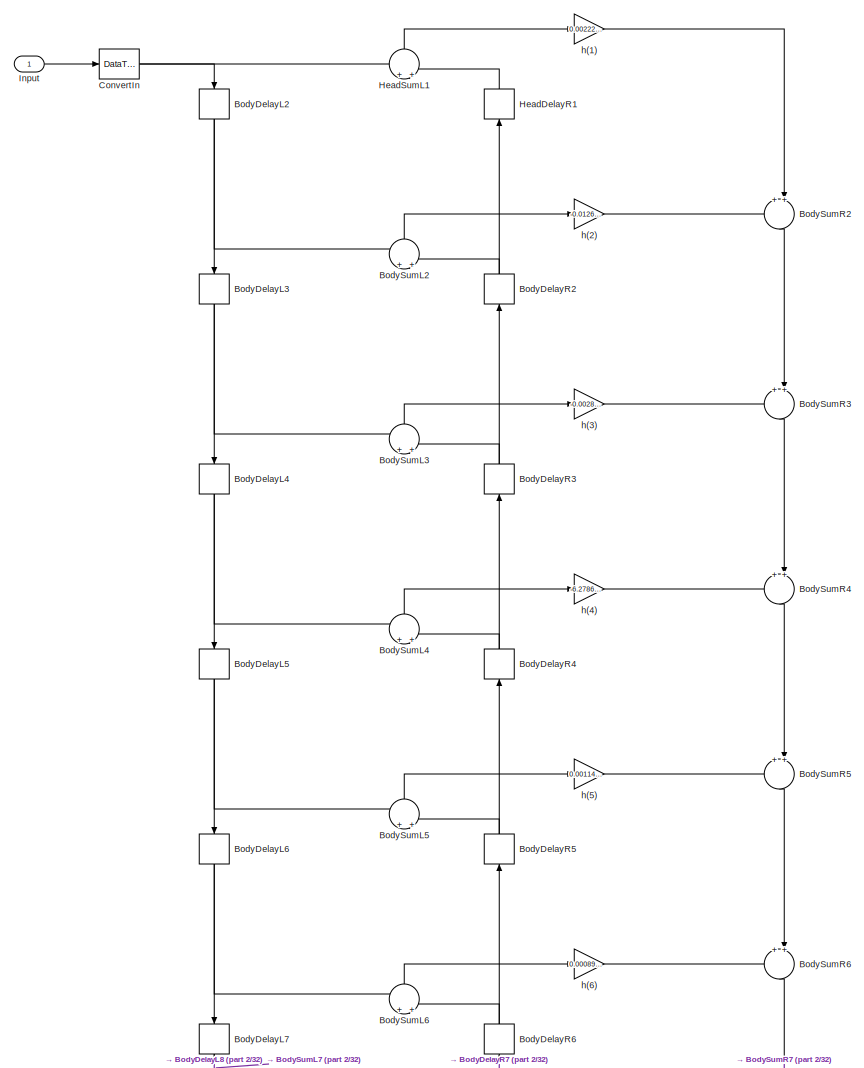
[diagram: filtro_bs_fir_direct_sym16_fb - part 1/32, full width, top band]
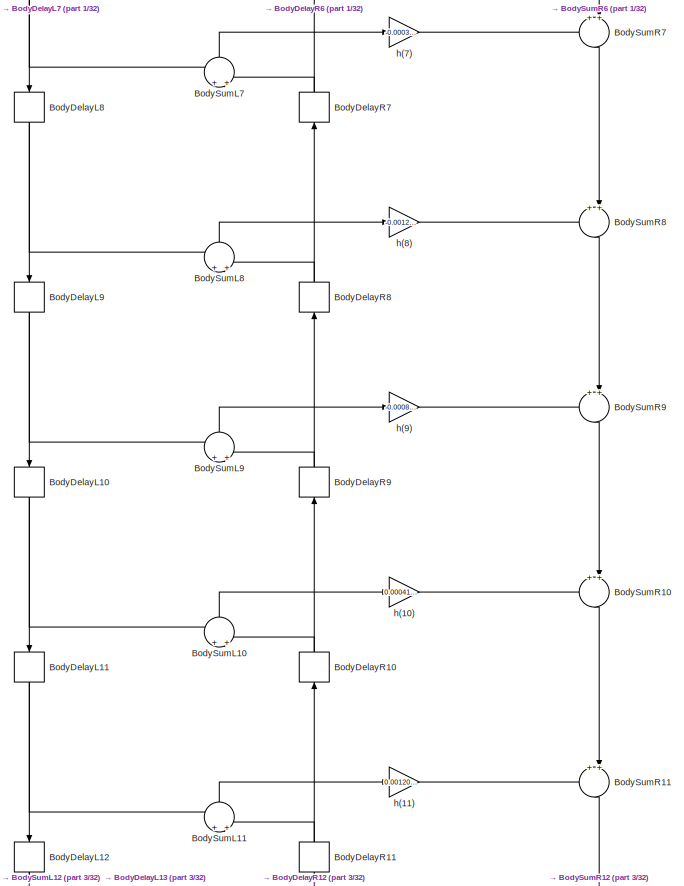
[diagram: filtro_bs_fir_direct_sym16_fb - part 2/32, top center region]
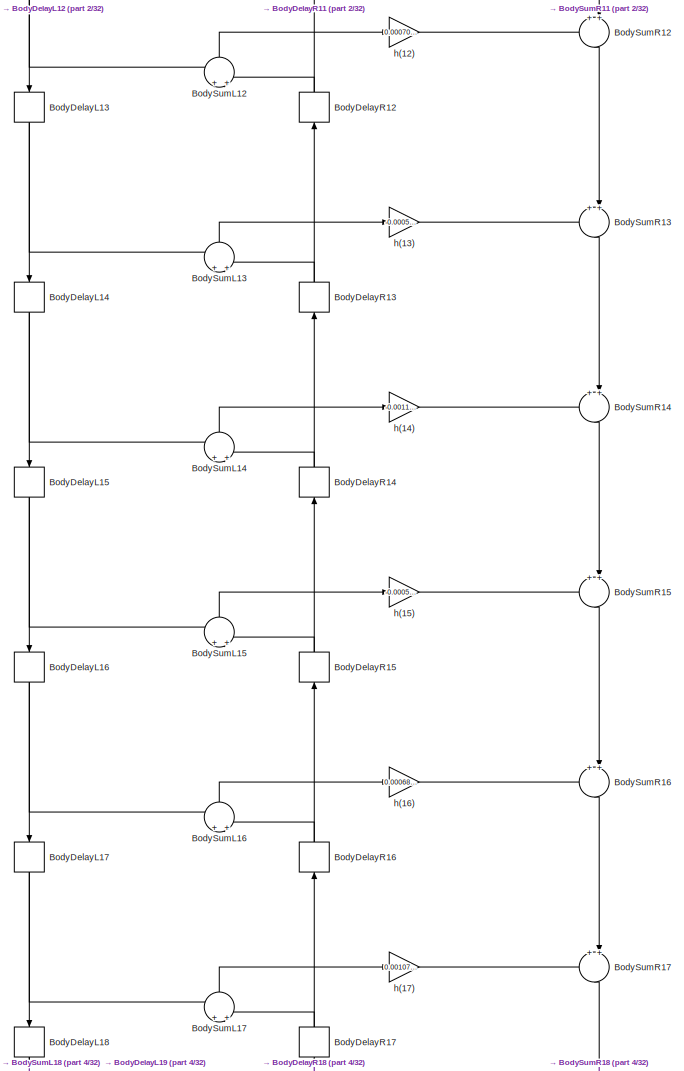
[diagram: filtro_bs_fir_direct_sym16_fb - part 3/32, top center region]
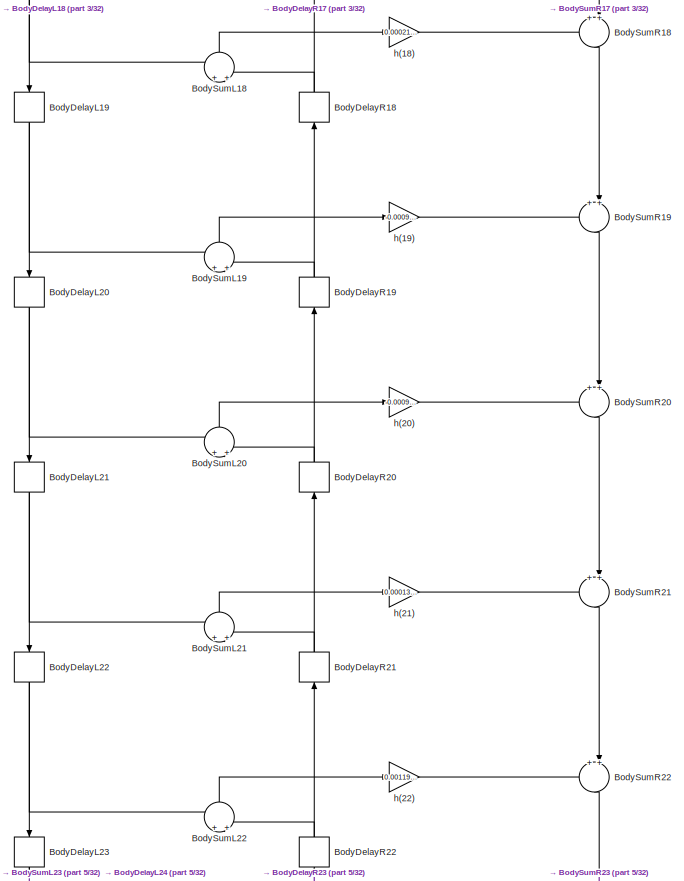
[diagram: filtro_bs_fir_direct_sym16_fb - part 4/32, top center region]
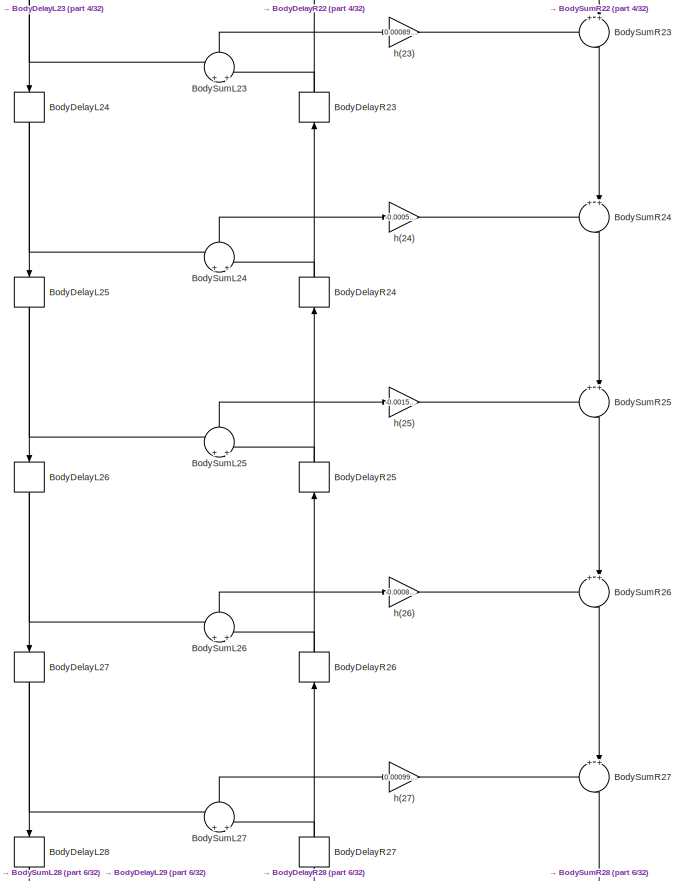
[diagram: filtro_bs_fir_direct_sym16_fb - part 5/32, top center region]
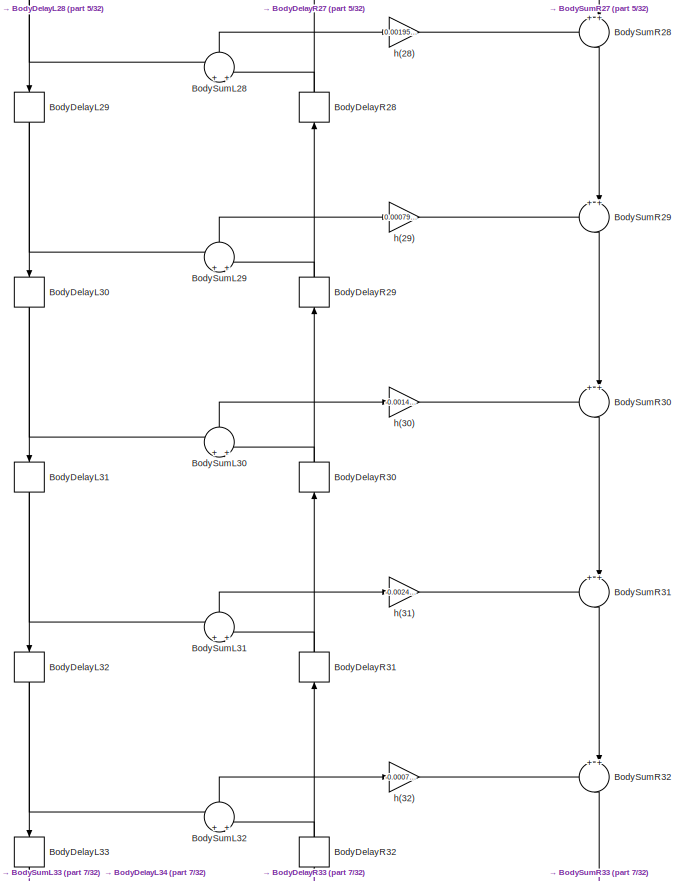
[diagram: filtro_bs_fir_direct_sym16_fb - part 6/32, top center region]
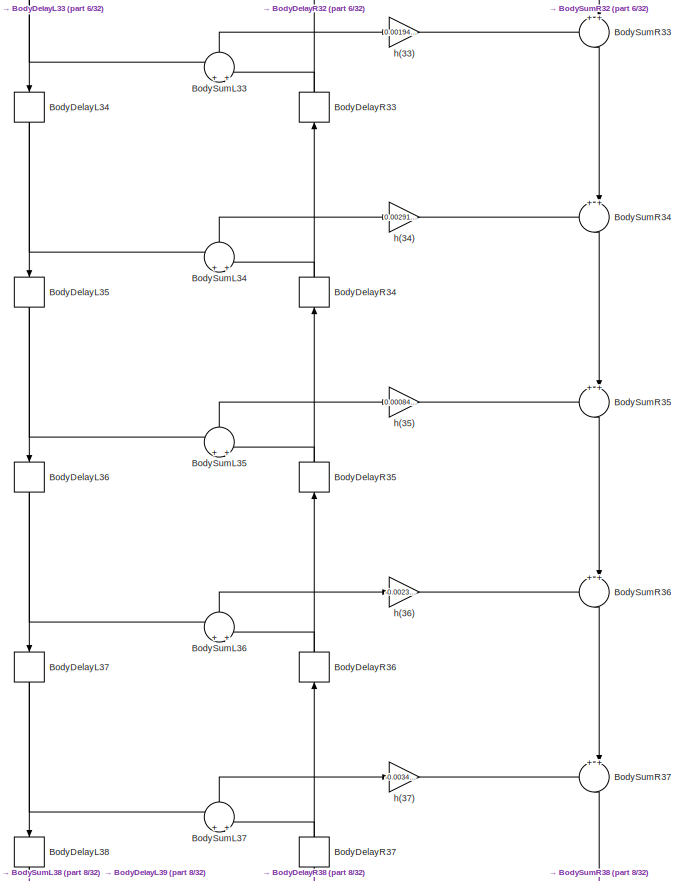
[diagram: filtro_bs_fir_direct_sym16_fb - part 7/32, top center region]
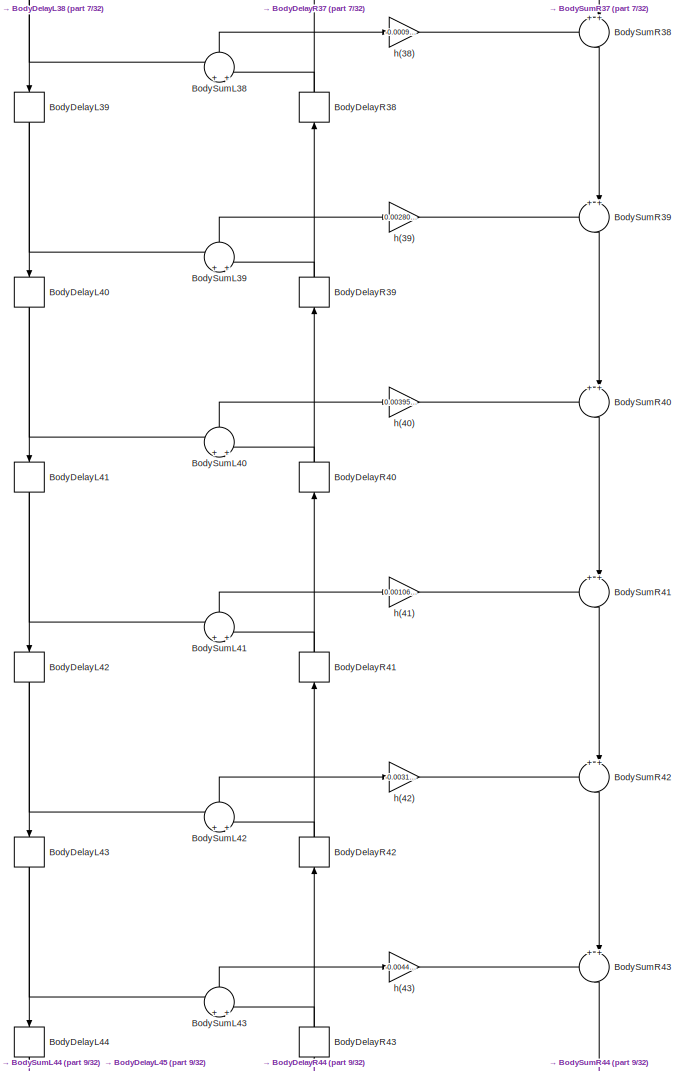
[diagram: filtro_bs_fir_direct_sym16_fb - part 8/32, top center region]
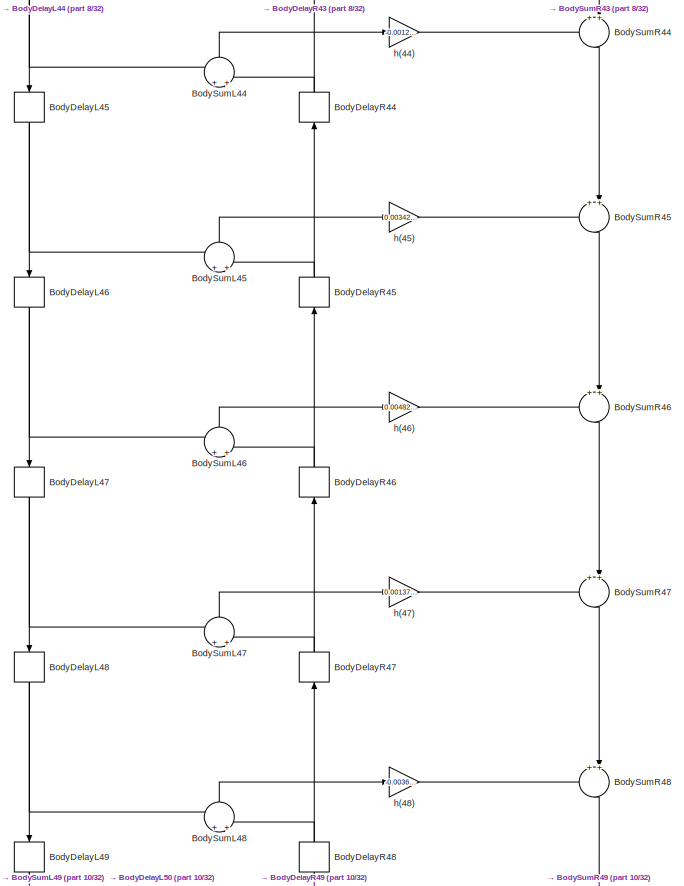
[diagram: filtro_bs_fir_direct_sym16_fb - part 9/32, top center region]
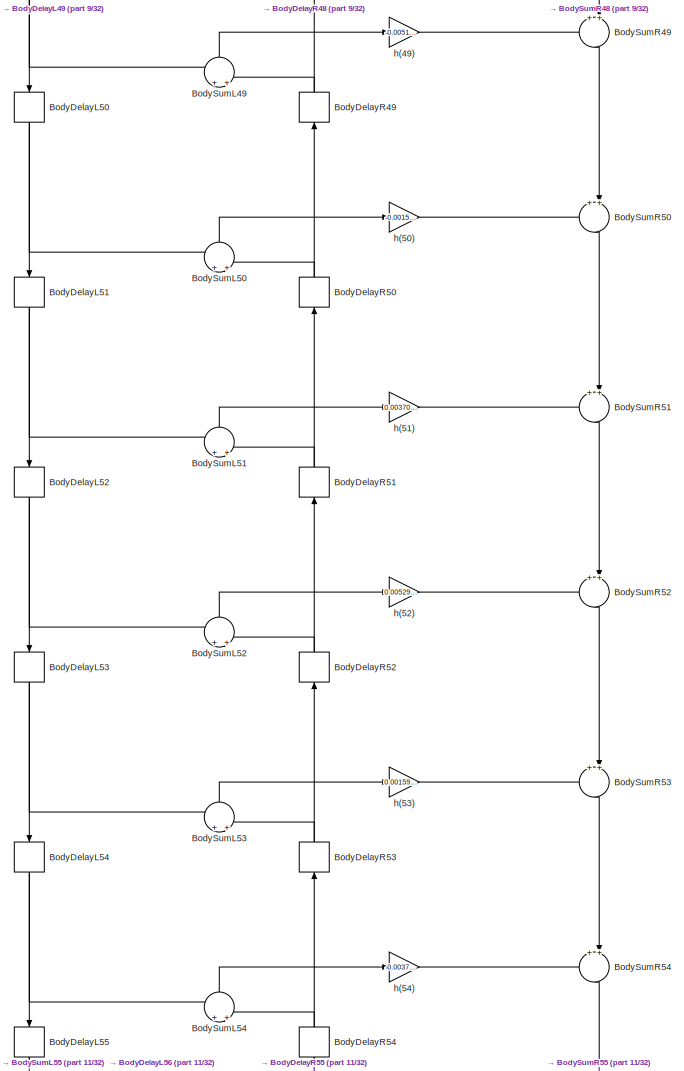
[diagram: filtro_bs_fir_direct_sym16_fb - part 10/32, top center region]
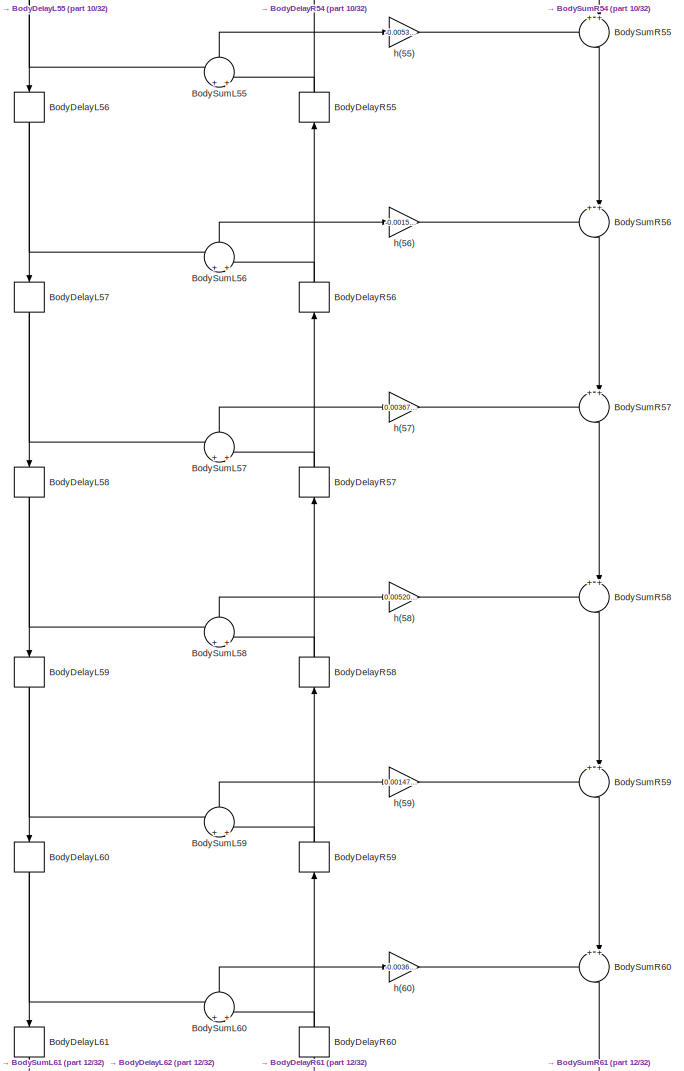
[diagram: filtro_bs_fir_direct_sym16_fb - part 11/32, top center region]
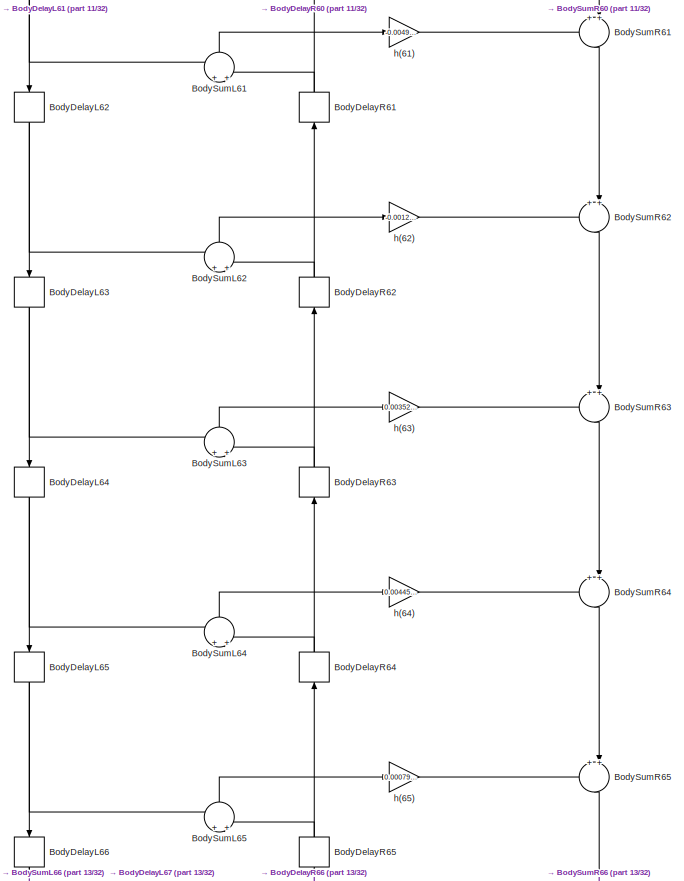
[diagram: filtro_bs_fir_direct_sym16_fb - part 12/32, central region]
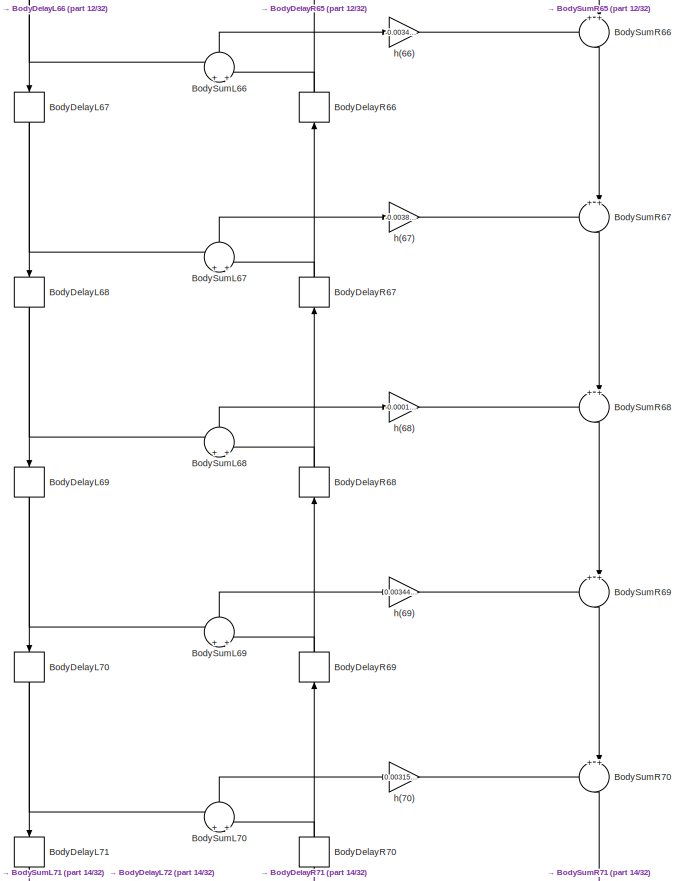
[diagram: filtro_bs_fir_direct_sym16_fb - part 13/32, central region]
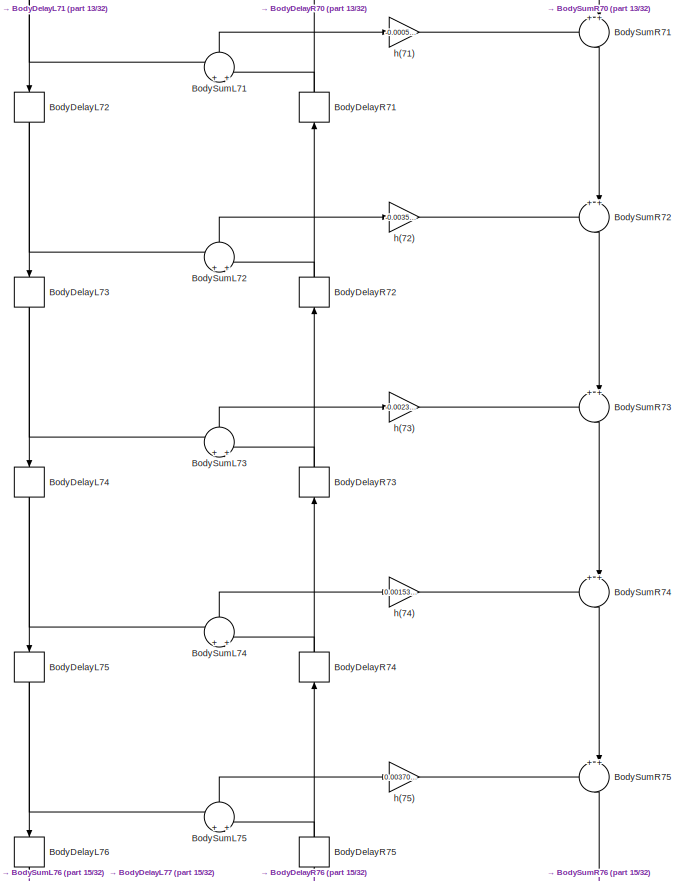
[diagram: filtro_bs_fir_direct_sym16_fb - part 14/32, central region]
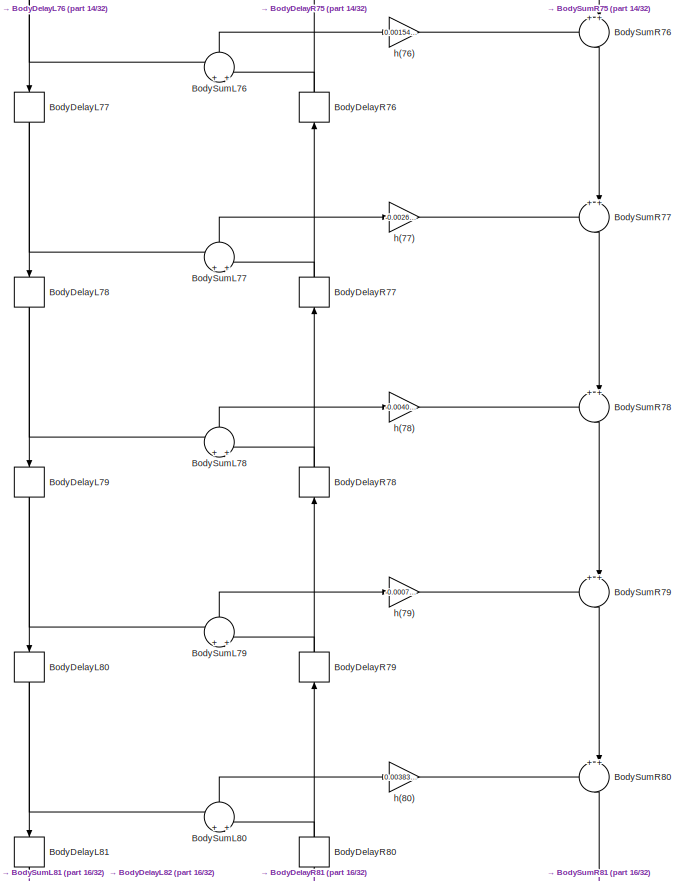
[diagram: filtro_bs_fir_direct_sym16_fb - part 15/32, central region]
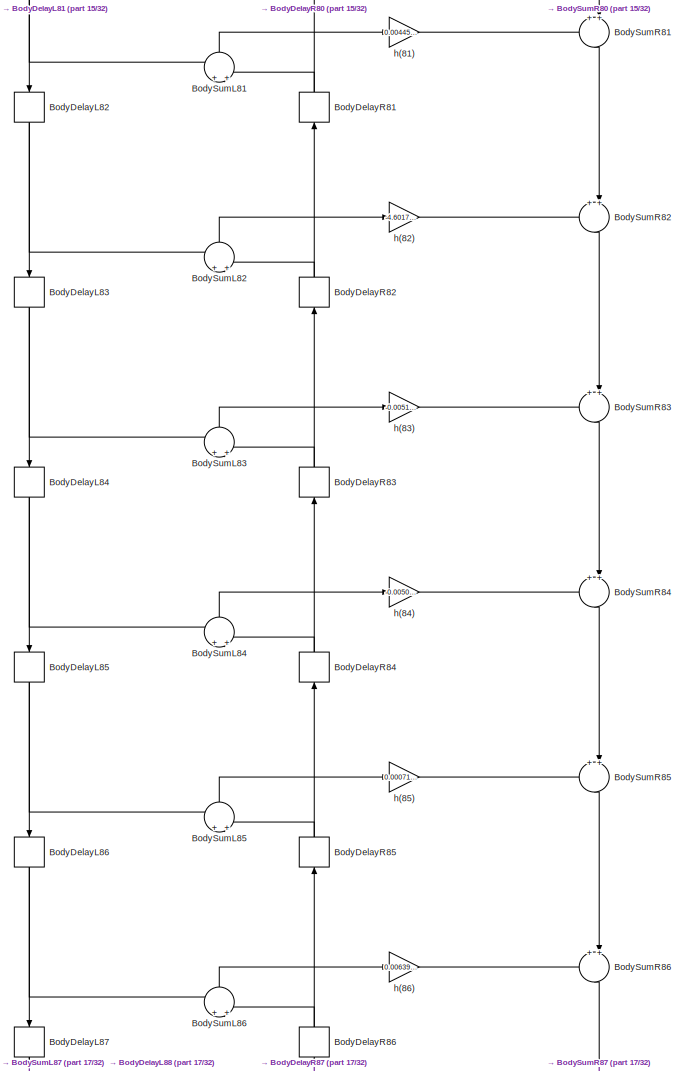
[diagram: filtro_bs_fir_direct_sym16_fb - part 16/32, central region]
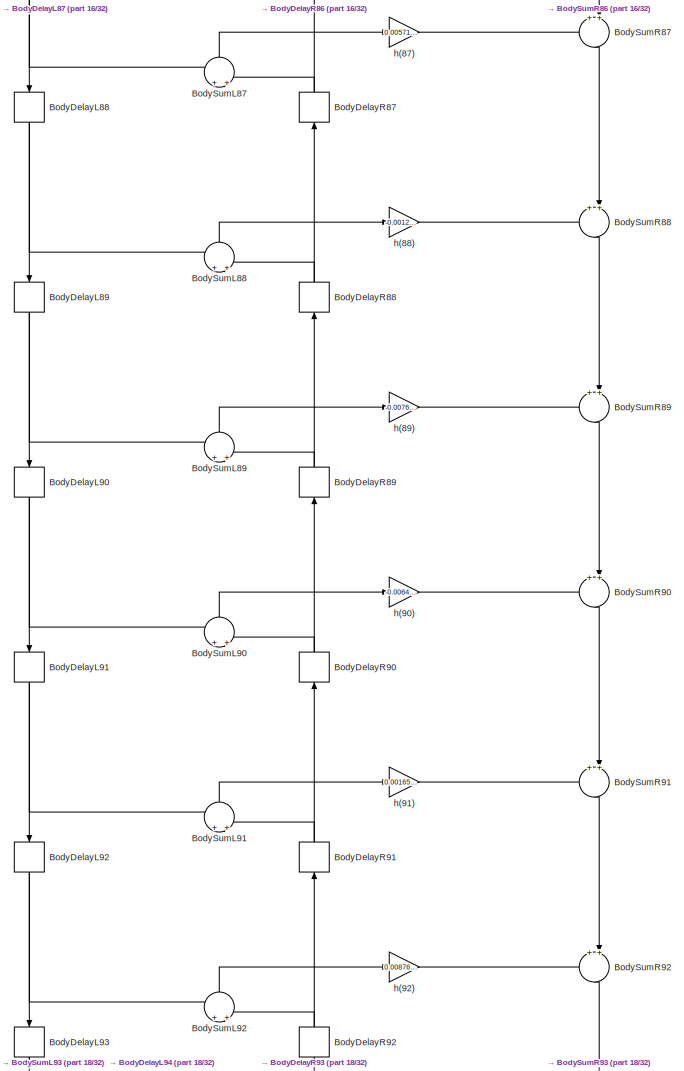
[diagram: filtro_bs_fir_direct_sym16_fb - part 17/32, central region]
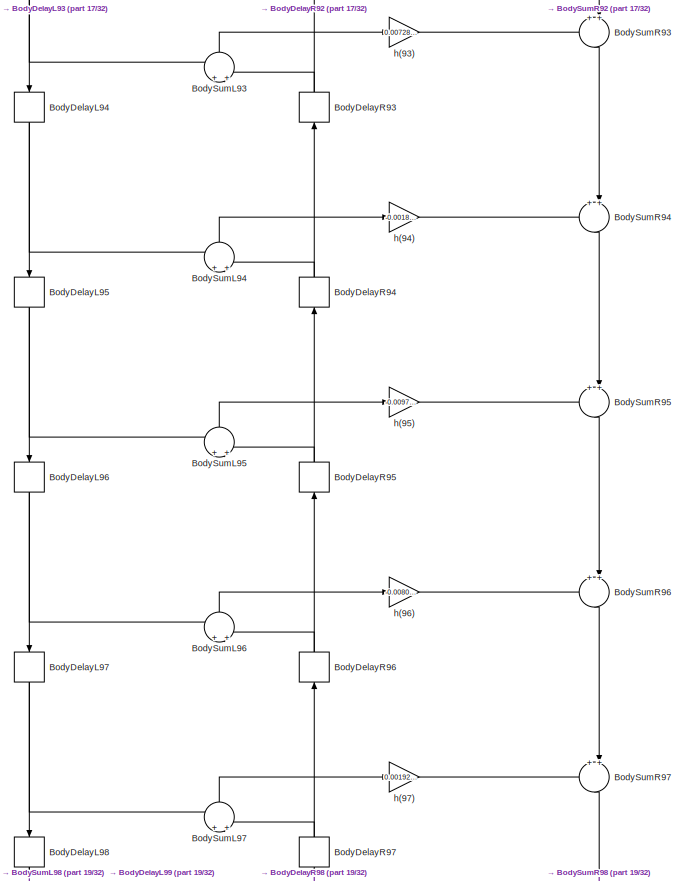
[diagram: filtro_bs_fir_direct_sym16_fb - part 18/32, central region]
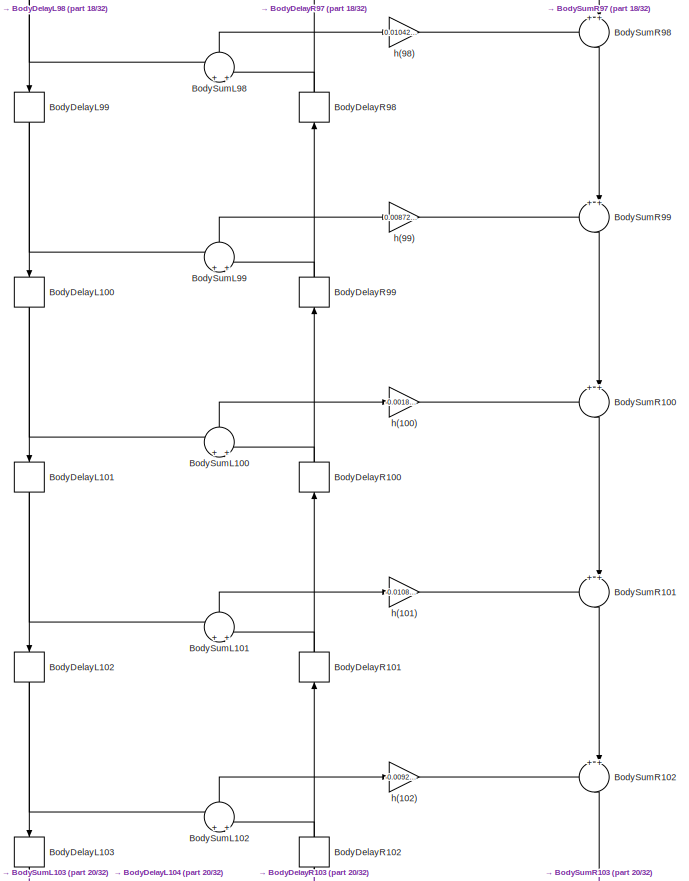
[diagram: filtro_bs_fir_direct_sym16_fb - part 19/32, central region]
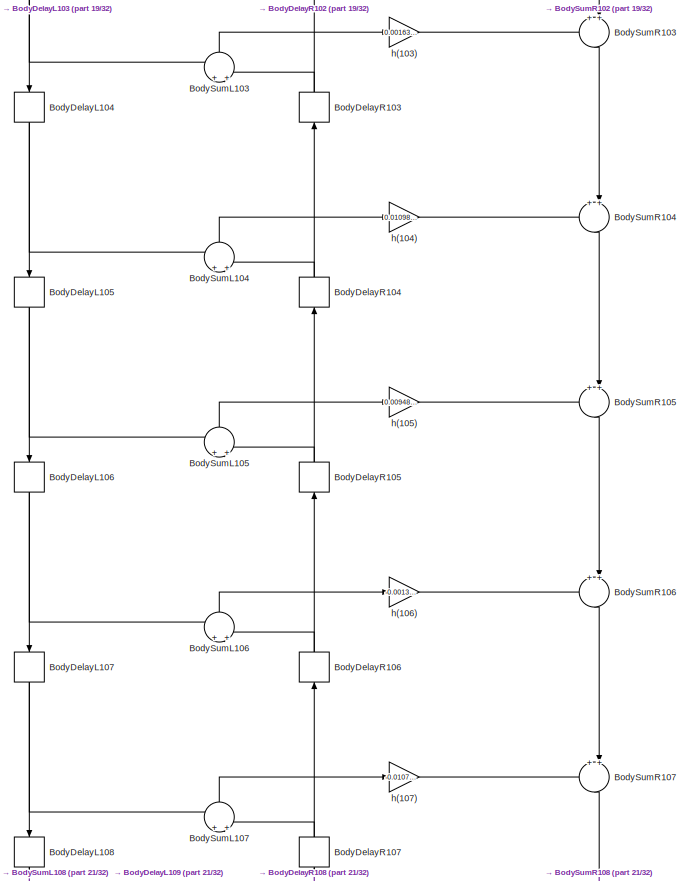
[diagram: filtro_bs_fir_direct_sym16_fb - part 20/32, central region]
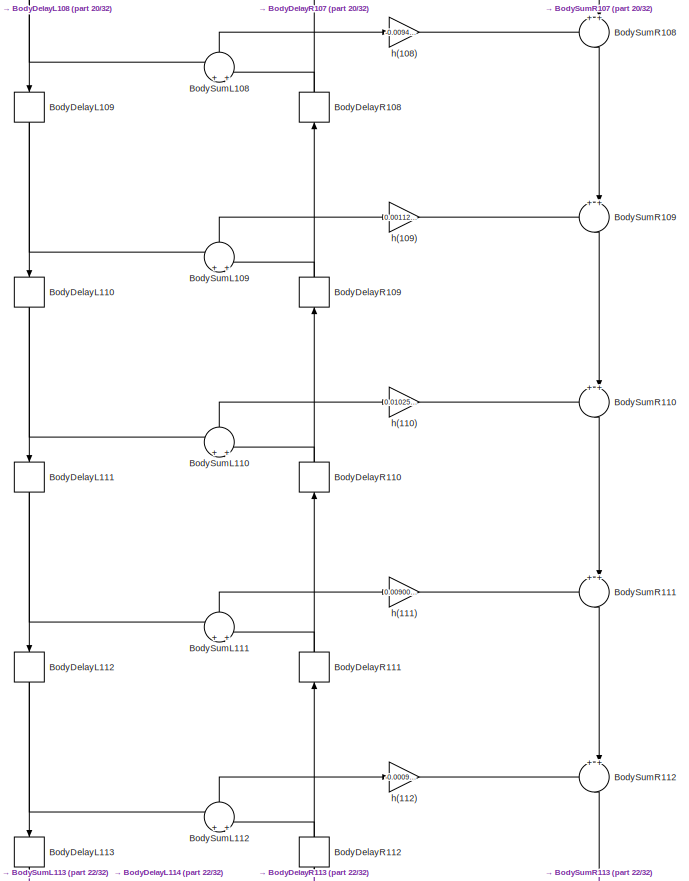
[diagram: filtro_bs_fir_direct_sym16_fb - part 21/32, central region]
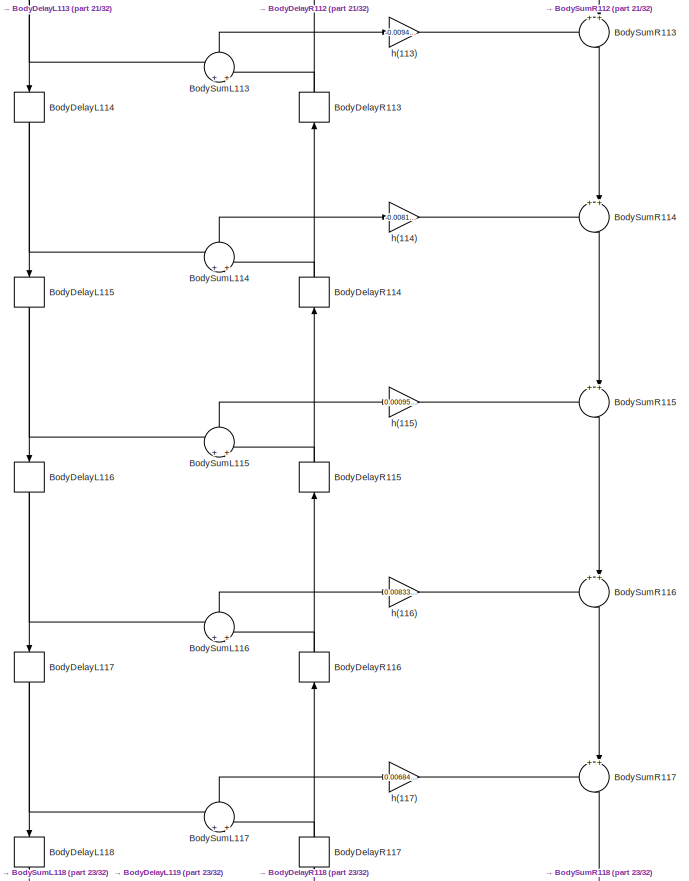
[diagram: filtro_bs_fir_direct_sym16_fb - part 22/32, central region]
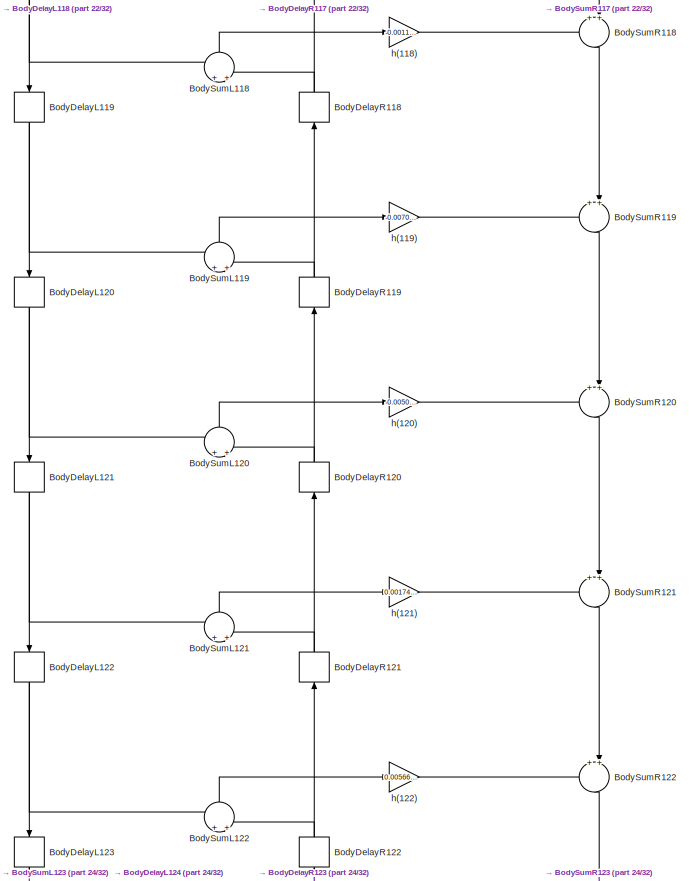
[diagram: filtro_bs_fir_direct_sym16_fb - part 23/32, bottom center region]
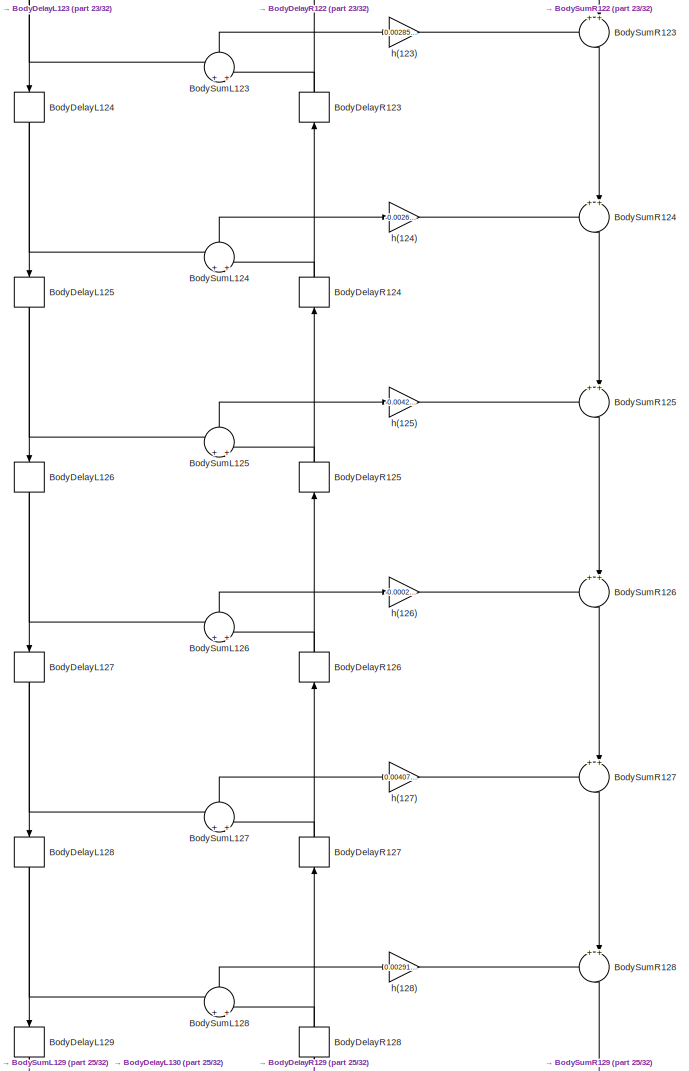
[diagram: filtro_bs_fir_direct_sym16_fb - part 24/32, bottom center region]
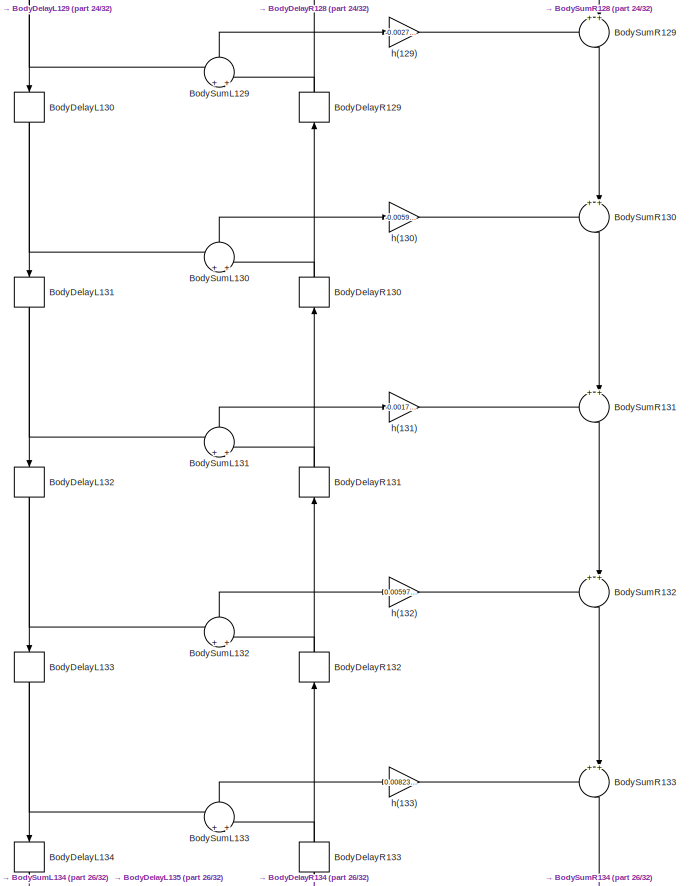
[diagram: filtro_bs_fir_direct_sym16_fb - part 25/32, bottom center region]
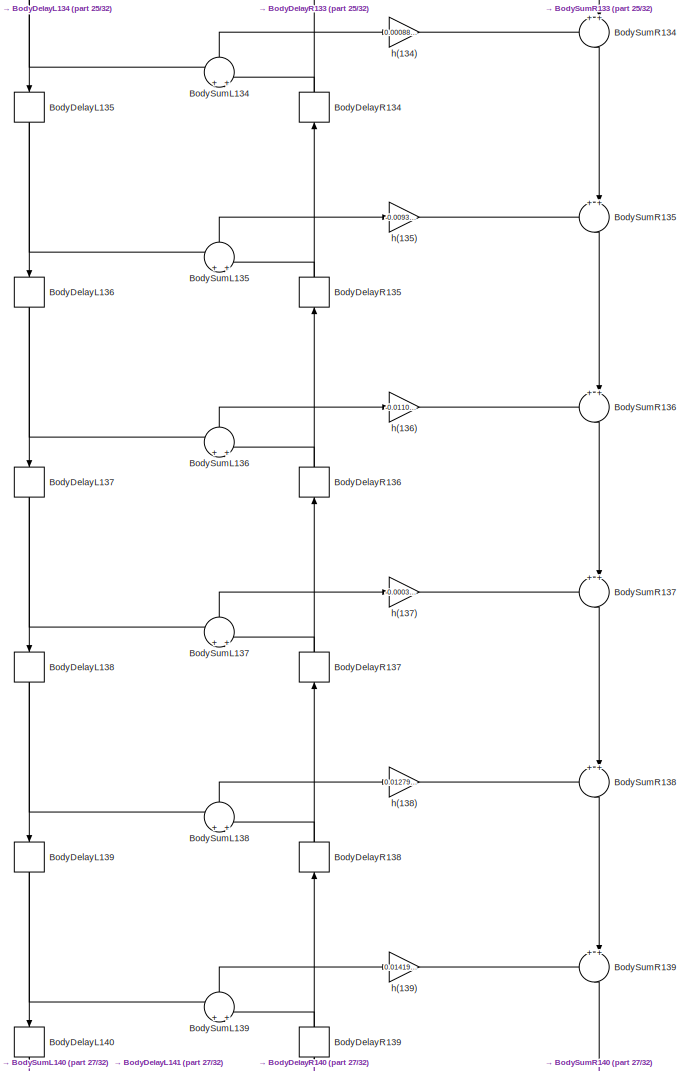
[diagram: filtro_bs_fir_direct_sym16_fb - part 26/32, bottom center region]
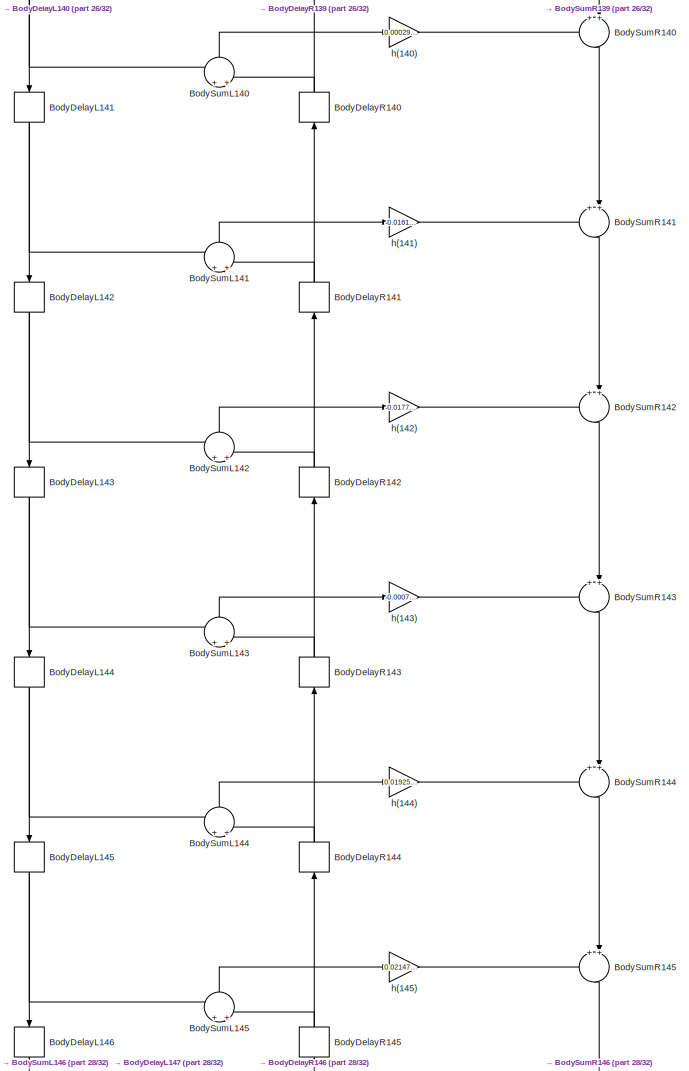
[diagram: filtro_bs_fir_direct_sym16_fb - part 27/32, bottom center region]
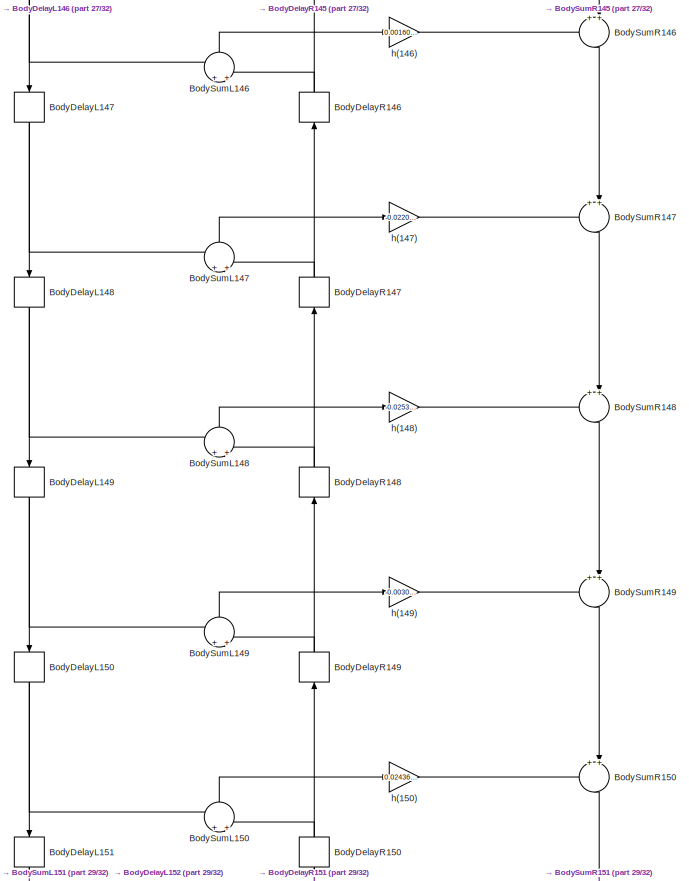
[diagram: filtro_bs_fir_direct_sym16_fb - part 28/32, bottom center region]
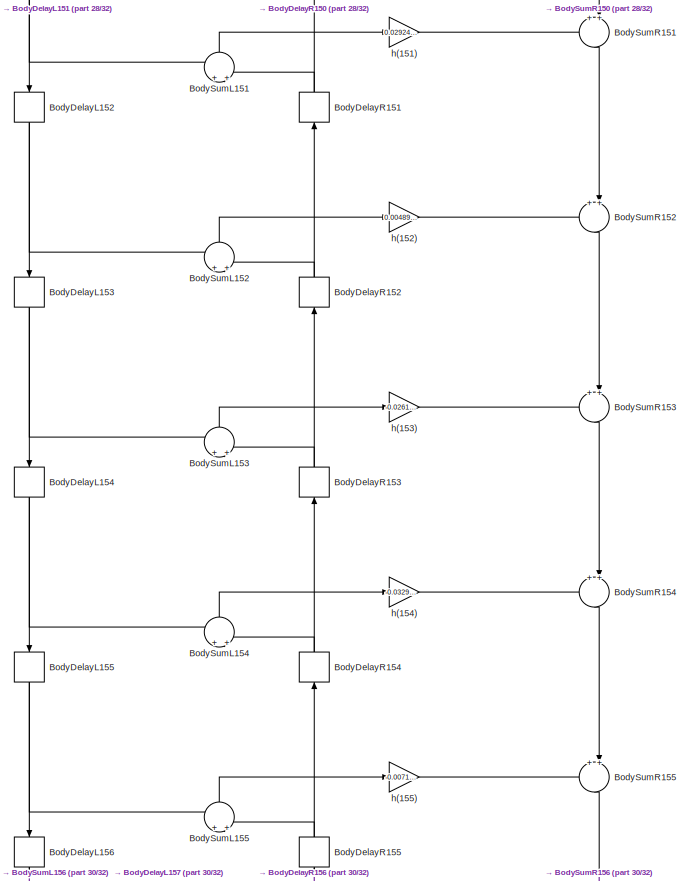
[diagram: filtro_bs_fir_direct_sym16_fb - part 29/32, bottom center region]
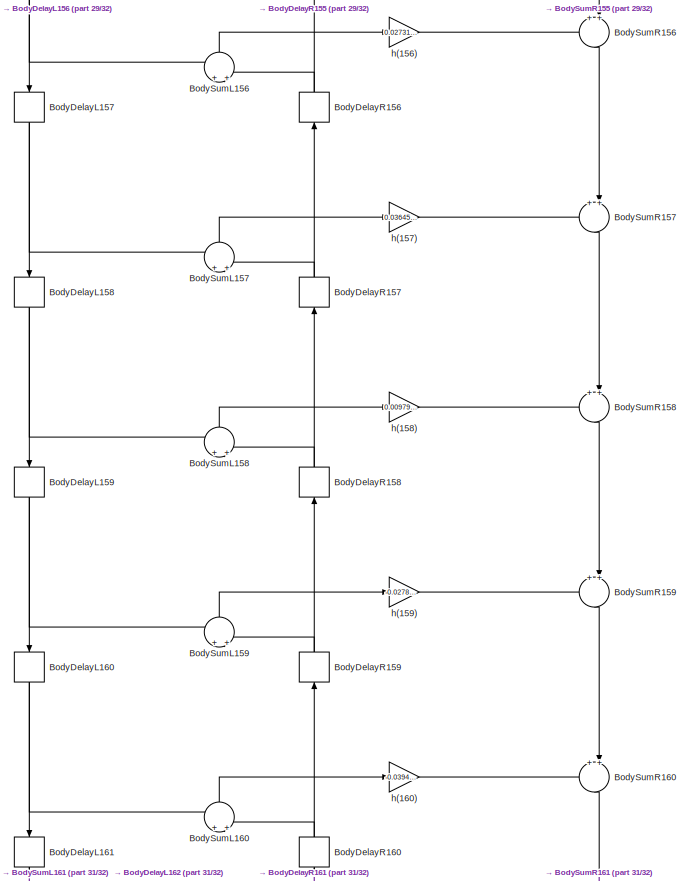
[diagram: filtro_bs_fir_direct_sym16_fb - part 30/32, bottom center region]
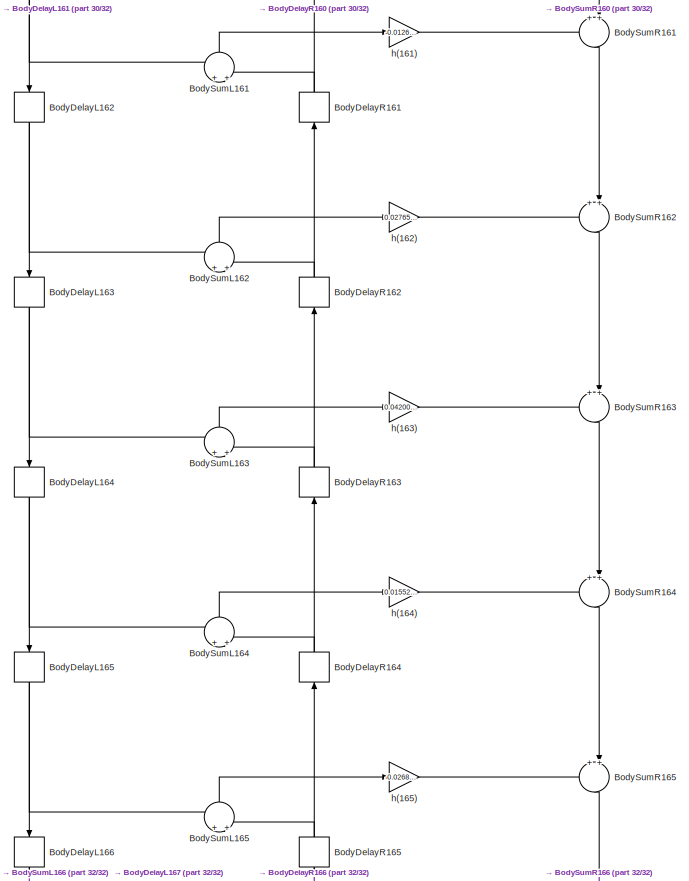
[diagram: filtro_bs_fir_direct_sym16_fb - part 31/32, bottom center region]
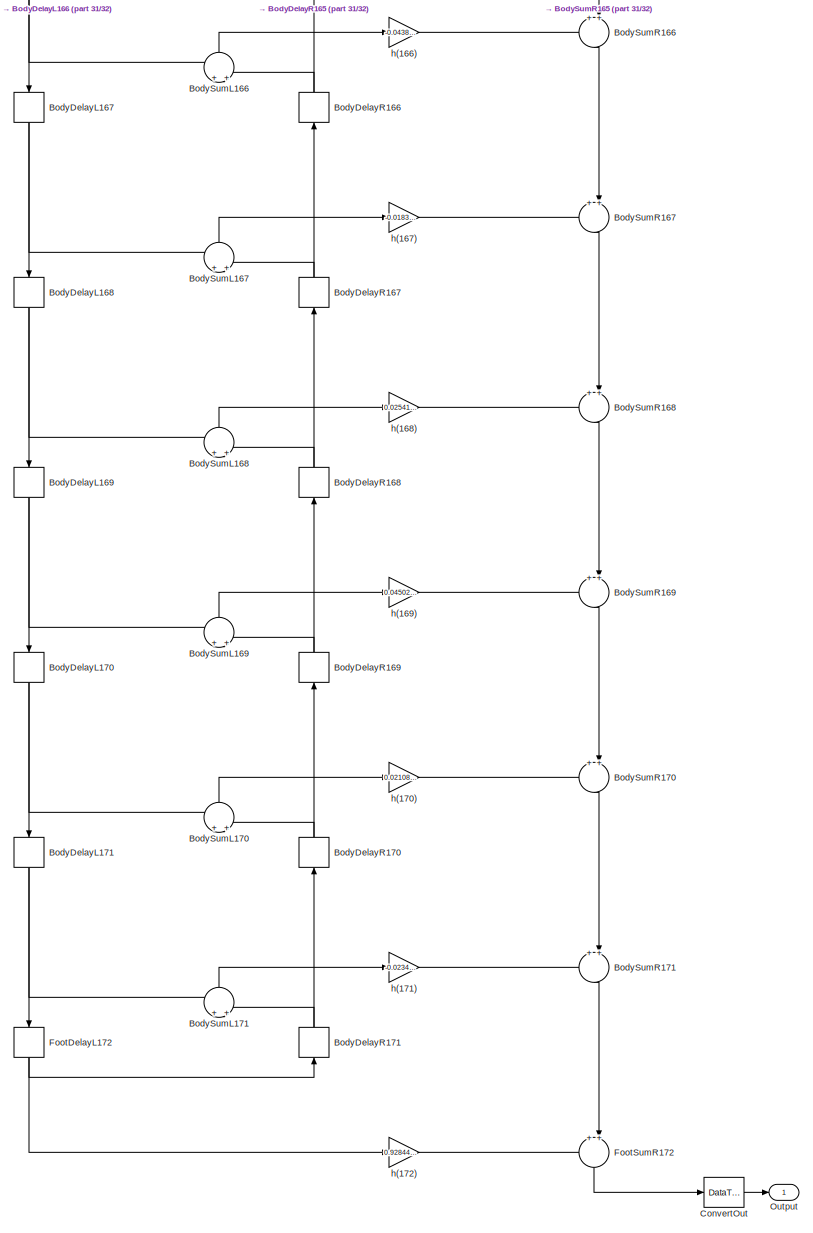
[diagram: filtro_bs_fir_direct_sym16_fb - part 32/32, full width, bottom band]
BLOCK [SubSystem] filtro_bs_fir_direct_sym16_fb
  ErrorFcn = dspFilterRealizedInBasicElemsAlgLoopErrFcnCallback
  Ports = [1, 1]
  RequestExecContextInheritance = off
  SID = 2258
  Tag = FilterWizardSubSystem
  UserData = DataTag2
  UserDataPersistent = on
BLOCK [Delay] filtro_bs_fir_direct_sym16_fb/BodyDelayL10
  DelayLength = 1
  InitialCondition = 0
  InputPortMap = u0
  InputProcessing = Columns as channels (frame based)
  Ports = [1, 1]
  SID = 2304
BLOCK [Delay] filtro_bs_fir_direct_sym16_fb/BodyDelayL100
  DelayLength = 1
  InitialCondition = 0
  InputPortMap = u0
  InputProcessing = Columns as channels (frame based)
  Ports = [1, 1]
  SID = 2754
BLOCK [Delay] filtro_bs_fir_direct_sym16_fb/BodyDelayL101
  DelayLength = 1
  InitialCondition = 0
  InputPortMap = u0
  InputProcessing = Columns as channels (frame based)
  Ports = [1, 1]
  SID = 2759
BLOCK [Delay] filtro_bs_fir_direct_sym16_fb/BodyDelayL102
  DelayLength = 1
  InitialCondition = 0
  InputPortMap = u0
  InputProcessing = Columns as channels (frame based)
  Ports = [1, 1]
  SID = 2764
BLOCK [Delay] filtro_bs_fir_direct_sym16_fb/BodyDelayL103
  DelayLength = 1
  InitialCondition = 0
  InputPortMap = u0
  InputProcessing = Columns as channels (frame based)
  Ports = [1, 1]
  SID = 2769
BLOCK [Delay] filtro_bs_fir_direct_sym16_fb/BodyDelayL104
  DelayLength = 1
  InitialCondition = 0
  InputPortMap = u0
  InputProcessing = Columns as channels (frame based)
  Ports = [1, 1]
  SID = 2774
BLOCK [Delay] filtro_bs_fir_direct_sym16_fb/BodyDelayL105
  DelayLength = 1
  InitialCondition = 0
  InputPortMap = u0
  InputProcessing = Columns as channels (frame based)
  Ports = [1, 1]
  SID = 2779
BLOCK [Delay] filtro_bs_fir_direct_sym16_fb/BodyDelayL106
  DelayLength = 1
  InitialCondition = 0
  InputPortMap = u0
  InputProcessing = Columns as channels (frame based)
  Ports = [1, 1]
  SID = 2784
BLOCK [Delay] filtro_bs_fir_direct_sym16_fb/BodyDelayL107
  DelayLength = 1
  InitialCondition = 0
  InputPortMap = u0
  InputProcessing = Columns as channels (frame based)
  Ports = [1, 1]
  SID = 2789
BLOCK [Delay] filtro_bs_fir_direct_sym16_fb/BodyDelayL108
  DelayLength = 1
  InitialCondition = 0
  InputPortMap = u0
  InputProcessing = Columns as channels (frame based)
  Ports = [1, 1]
  SID = 2794
BLOCK [Delay] filtro_bs_fir_direct_sym16_fb/BodyDelayL109
  DelayLength = 1
  InitialCondition = 0
  InputPortMap = u0
  InputProcessing = Columns as channels (frame based)
  Ports = [1, 1]
  SID = 2799
BLOCK [Delay] filtro_bs_fir_direct_sym16_fb/BodyDelayL11
  DelayLength = 1
  InitialCondition = 0
  InputPortMap = u0
  InputProcessing = Columns as channels (frame based)
  Ports = [1, 1]
  SID = 2309
BLOCK [Delay] filtro_bs_fir_direct_sym16_fb/BodyDelayL110
  DelayLength = 1
  InitialCondition = 0
  InputPortMap = u0
  InputProcessing = Columns as channels (frame based)
  Ports = [1, 1]
  SID = 2804
BLOCK [Delay] filtro_bs_fir_direct_sym16_fb/BodyDelayL111
  DelayLength = 1
  InitialCondition = 0
  InputPortMap = u0
  InputProcessing = Columns as channels (frame based)
  Ports = [1, 1]
  SID = 2809
BLOCK [Delay] filtro_bs_fir_direct_sym16_fb/BodyDelayL112
  DelayLength = 1
  InitialCondition = 0
  InputPortMap = u0
  InputProcessing = Columns as channels (frame based)
  Ports = [1, 1]
  SID = 2814
BLOCK [Delay] filtro_bs_fir_direct_sym16_fb/BodyDelayL113
  DelayLength = 1
  InitialCondition = 0
  InputPortMap = u0
  InputProcessing = Columns as channels (frame based)
  Ports = [1, 1]
  SID = 2819
BLOCK [Delay] filtro_bs_fir_direct_sym16_fb/BodyDelayL114
  DelayLength = 1
  InitialCondition = 0
  InputPortMap = u0
  InputProcessing = Columns as channels (frame based)
  Ports = [1, 1]
  SID = 2824
BLOCK [Delay] filtro_bs_fir_direct_sym16_fb/BodyDelayL115
  DelayLength = 1
  InitialCondition = 0
  InputPortMap = u0
  InputProcessing = Columns as channels (frame based)
  Ports = [1, 1]
  SID = 2829
BLOCK [Delay] filtro_bs_fir_direct_sym16_fb/BodyDelayL116
  DelayLength = 1
  InitialCondition = 0
  InputPortMap = u0
  InputProcessing = Columns as channels (frame based)
  Ports = [1, 1]
  SID = 2834
BLOCK [Delay] filtro_bs_fir_direct_sym16_fb/BodyDelayL117
  DelayLength = 1
  InitialCondition = 0
  InputPortMap = u0
  InputProcessing = Columns as channels (frame based)
  Ports = [1, 1]
  SID = 2839
BLOCK [Delay] filtro_bs_fir_direct_sym16_fb/BodyDelayL118
  DelayLength = 1
  InitialCondition = 0
  InputPortMap = u0
  InputProcessing = Columns as channels (frame based)
  Ports = [1, 1]
  SID = 2844
BLOCK [Delay] filtro_bs_fir_direct_sym16_fb/BodyDelayL119
  DelayLength = 1
  InitialCondition = 0
  InputPortMap = u0
  InputProcessing = Columns as channels (frame based)
  Ports = [1, 1]
  SID = 2849
BLOCK [Delay] filtro_bs_fir_direct_sym16_fb/BodyDelayL12
  DelayLength = 1
  InitialCondition = 0
  InputPortMap = u0
  InputProcessing = Columns as channels (frame based)
  Ports = [1, 1]
  SID = 2314
BLOCK [Delay] filtro_bs_fir_direct_sym16_fb/BodyDelayL120
  DelayLength = 1
  InitialCondition = 0
  InputPortMap = u0
  InputProcessing = Columns as channels (frame based)
  Ports = [1, 1]
  SID = 2854
BLOCK [Delay] filtro_bs_fir_direct_sym16_fb/BodyDelayL121
  DelayLength = 1
  InitialCondition = 0
  InputPortMap = u0
  InputProcessing = Columns as channels (frame based)
  Ports = [1, 1]
  SID = 2859
BLOCK [Delay] filtro_bs_fir_direct_sym16_fb/BodyDelayL122
  DelayLength = 1
  InitialCondition = 0
  InputPortMap = u0
  InputProcessing = Columns as channels (frame based)
  Ports = [1, 1]
  SID = 2864
BLOCK [Delay] filtro_bs_fir_direct_sym16_fb/BodyDelayL123
  DelayLength = 1
  InitialCondition = 0
  InputPortMap = u0
  InputProcessing = Columns as channels (frame based)
  Ports = [1, 1]
  SID = 2869
BLOCK [Delay] filtro_bs_fir_direct_sym16_fb/BodyDelayL124
  DelayLength = 1
  InitialCondition = 0
  InputPortMap = u0
  InputProcessing = Columns as channels (frame based)
  Ports = [1, 1]
  SID = 2874
BLOCK [Delay] filtro_bs_fir_direct_sym16_fb/BodyDelayL125
  DelayLength = 1
  InitialCondition = 0
  InputPortMap = u0
  InputProcessing = Columns as channels (frame based)
  Ports = [1, 1]
  SID = 2879
BLOCK [Delay] filtro_bs_fir_direct_sym16_fb/BodyDelayL126
  DelayLength = 1
  InitialCondition = 0
  InputPortMap = u0
  InputProcessing = Columns as channels (frame based)
  Ports = [1, 1]
  SID = 2884
BLOCK [Delay] filtro_bs_fir_direct_sym16_fb/BodyDelayL127
  DelayLength = 1
  InitialCondition = 0
  InputPortMap = u0
  InputProcessing = Columns as channels (frame based)
  Ports = [1, 1]
  SID = 2889
BLOCK [Delay] filtro_bs_fir_direct_sym16_fb/BodyDelayL128
  DelayLength = 1
  InitialCondition = 0
  InputPortMap = u0
  InputProcessing = Columns as channels (frame based)
  Ports = [1, 1]
  SID = 2894
BLOCK [Delay] filtro_bs_fir_direct_sym16_fb/BodyDelayL129
  DelayLength = 1
  InitialCondition = 0
  InputPortMap = u0
  InputProcessing = Columns as channels (frame based)
  Ports = [1, 1]
  SID = 2899
BLOCK [Delay] filtro_bs_fir_direct_sym16_fb/BodyDelayL13
  DelayLength = 1
  InitialCondition = 0
  InputPortMap = u0
  InputProcessing = Columns as channels (frame based)
  Ports = [1, 1]
  SID = 2319
BLOCK [Delay] filtro_bs_fir_direct_sym16_fb/BodyDelayL130
  DelayLength = 1
  InitialCondition = 0
  InputPortMap = u0
  InputProcessing = Columns as channels (frame based)
  Ports = [1, 1]
  SID = 2904
BLOCK [Delay] filtro_bs_fir_direct_sym16_fb/BodyDelayL131
  DelayLength = 1
  InitialCondition = 0
  InputPortMap = u0
  InputProcessing = Columns as channels (frame based)
  Ports = [1, 1]
  SID = 2909
BLOCK [Delay] filtro_bs_fir_direct_sym16_fb/BodyDelayL132
  DelayLength = 1
  InitialCondition = 0
  InputPortMap = u0
  InputProcessing = Columns as channels (frame based)
  Ports = [1, 1]
  SID = 2914
BLOCK [Delay] filtro_bs_fir_direct_sym16_fb/BodyDelayL133
  DelayLength = 1
  InitialCondition = 0
  InputPortMap = u0
  InputProcessing = Columns as channels (frame based)
  Ports = [1, 1]
  SID = 2919
BLOCK [Delay] filtro_bs_fir_direct_sym16_fb/BodyDelayL134
  DelayLength = 1
  InitialCondition = 0
  InputPortMap = u0
  InputProcessing = Columns as channels (frame based)
  Ports = [1, 1]
  SID = 2924
BLOCK [Delay] filtro_bs_fir_direct_sym16_fb/BodyDelayL135
  DelayLength = 1
  InitialCondition = 0
  InputPortMap = u0
  InputProcessing = Columns as channels (frame based)
  Ports = [1, 1]
  SID = 2929
BLOCK [Delay] filtro_bs_fir_direct_sym16_fb/BodyDelayL136
  DelayLength = 1
  InitialCondition = 0
  InputPortMap = u0
  InputProcessing = Columns as channels (frame based)
  Ports = [1, 1]
  SID = 2934
BLOCK [Delay] filtro_bs_fir_direct_sym16_fb/BodyDelayL137
  DelayLength = 1
  InitialCondition = 0
  InputPortMap = u0
  InputProcessing = Columns as channels (frame based)
  Ports = [1, 1]
  SID = 2939
BLOCK [Delay] filtro_bs_fir_direct_sym16_fb/BodyDelayL138
  DelayLength = 1
  InitialCondition = 0
  InputPortMap = u0
  InputProcessing = Columns as channels (frame based)
  Ports = [1, 1]
  SID = 2944
BLOCK [Delay] filtro_bs_fir_direct_sym16_fb/BodyDelayL139
  DelayLength = 1
  InitialCondition = 0
  InputPortMap = u0
  InputProcessing = Columns as channels (frame based)
  Ports = [1, 1]
  SID = 2949
BLOCK [Delay] filtro_bs_fir_direct_sym16_fb/BodyDelayL14
  DelayLength = 1
  InitialCondition = 0
  InputPortMap = u0
  InputProcessing = Columns as channels (frame based)
  Ports = [1, 1]
  SID = 2324
BLOCK [Delay] filtro_bs_fir_direct_sym16_fb/BodyDelayL140
  DelayLength = 1
  InitialCondition = 0
  InputPortMap = u0
  InputProcessing = Columns as channels (frame based)
  Ports = [1, 1]
  SID = 2954
BLOCK [Delay] filtro_bs_fir_direct_sym16_fb/BodyDelayL141
  DelayLength = 1
  InitialCondition = 0
  InputPortMap = u0
  InputProcessing = Columns as channels (frame based)
  Ports = [1, 1]
  SID = 2959
BLOCK [Delay] filtro_bs_fir_direct_sym16_fb/BodyDelayL142
  DelayLength = 1
  InitialCondition = 0
  InputPortMap = u0
  InputProcessing = Columns as channels (frame based)
  Ports = [1, 1]
  SID = 2964
BLOCK [Delay] filtro_bs_fir_direct_sym16_fb/BodyDelayL143
  DelayLength = 1
  InitialCondition = 0
  InputPortMap = u0
  InputProcessing = Columns as channels (frame based)
  Ports = [1, 1]
  SID = 2969
BLOCK [Delay] filtro_bs_fir_direct_sym16_fb/BodyDelayL144
  DelayLength = 1
  InitialCondition = 0
  InputPortMap = u0
  InputProcessing = Columns as channels (frame based)
  Ports = [1, 1]
  SID = 2974
BLOCK [Delay] filtro_bs_fir_direct_sym16_fb/BodyDelayL145
  DelayLength = 1
  InitialCondition = 0
  InputPortMap = u0
  InputProcessing = Columns as channels (frame based)
  Ports = [1, 1]
  SID = 2979
BLOCK [Delay] filtro_bs_fir_direct_sym16_fb/BodyDelayL146
  DelayLength = 1
  InitialCondition = 0
  InputPortMap = u0
  InputProcessing = Columns as channels (frame based)
  Ports = [1, 1]
  SID = 2984
BLOCK [Delay] filtro_bs_fir_direct_sym16_fb/BodyDelayL147
  DelayLength = 1
  InitialCondition = 0
  InputPortMap = u0
  InputProcessing = Columns as channels (frame based)
  Ports = [1, 1]
  SID = 2989
BLOCK [Delay] filtro_bs_fir_direct_sym16_fb/BodyDelayL148
  DelayLength = 1
  InitialCondition = 0
  InputPortMap = u0
  InputProcessing = Columns as channels (frame based)
  Ports = [1, 1]
  SID = 2994
BLOCK [Delay] filtro_bs_fir_direct_sym16_fb/BodyDelayL149
  DelayLength = 1
  InitialCondition = 0
  InputPortMap = u0
  InputProcessing = Columns as channels (frame based)
  Ports = [1, 1]
  SID = 2999
BLOCK [Delay] filtro_bs_fir_direct_sym16_fb/BodyDelayL15
  DelayLength = 1
  InitialCondition = 0
  InputPortMap = u0
  InputProcessing = Columns as channels (frame based)
  Ports = [1, 1]
  SID = 2329
BLOCK [Delay] filtro_bs_fir_direct_sym16_fb/BodyDelayL150
  DelayLength = 1
  InitialCondition = 0
  InputPortMap = u0
  InputProcessing = Columns as channels (frame based)
  Ports = [1, 1]
  SID = 3004
BLOCK [Delay] filtro_bs_fir_direct_sym16_fb/BodyDelayL151
  DelayLength = 1
  InitialCondition = 0
  InputPortMap = u0
  InputProcessing = Columns as channels (frame based)
  Ports = [1, 1]
  SID = 3009
BLOCK [Delay] filtro_bs_fir_direct_sym16_fb/BodyDelayL152
  DelayLength = 1
  InitialCondition = 0
  InputPortMap = u0
  InputProcessing = Columns as channels (frame based)
  Ports = [1, 1]
  SID = 3014
BLOCK [Delay] filtro_bs_fir_direct_sym16_fb/BodyDelayL153
  DelayLength = 1
  InitialCondition = 0
  InputPortMap = u0
  InputProcessing = Columns as channels (frame based)
  Ports = [1, 1]
  SID = 3019
BLOCK [Delay] filtro_bs_fir_direct_sym16_fb/BodyDelayL154
  DelayLength = 1
  InitialCondition = 0
  InputPortMap = u0
  InputProcessing = Columns as channels (frame based)
  Ports = [1, 1]
  SID = 3024
BLOCK [Delay] filtro_bs_fir_direct_sym16_fb/BodyDelayL155
  DelayLength = 1
  InitialCondition = 0
  InputPortMap = u0
  InputProcessing = Columns as channels (frame based)
  Ports = [1, 1]
  SID = 3029
BLOCK [Delay] filtro_bs_fir_direct_sym16_fb/BodyDelayL156
  DelayLength = 1
  InitialCondition = 0
  InputPortMap = u0
  InputProcessing = Columns as channels (frame based)
  Ports = [1, 1]
  SID = 3034
BLOCK [Delay] filtro_bs_fir_direct_sym16_fb/BodyDelayL157
  DelayLength = 1
  InitialCondition = 0
  InputPortMap = u0
  InputProcessing = Columns as channels (frame based)
  Ports = [1, 1]
  SID = 3039
BLOCK [Delay] filtro_bs_fir_direct_sym16_fb/BodyDelayL158
  DelayLength = 1
  InitialCondition = 0
  InputPortMap = u0
  InputProcessing = Columns as channels (frame based)
  Ports = [1, 1]
  SID = 3044
BLOCK [Delay] filtro_bs_fir_direct_sym16_fb/BodyDelayL159
  DelayLength = 1
  InitialCondition = 0
  InputPortMap = u0
  InputProcessing = Columns as channels (frame based)
  Ports = [1, 1]
  SID = 3049
BLOCK [Delay] filtro_bs_fir_direct_sym16_fb/BodyDelayL16
  DelayLength = 1
  InitialCondition = 0
  InputPortMap = u0
  InputProcessing = Columns as channels (frame based)
  Ports = [1, 1]
  SID = 2334
BLOCK [Delay] filtro_bs_fir_direct_sym16_fb/BodyDelayL160
  DelayLength = 1
  InitialCondition = 0
  InputPortMap = u0
  InputProcessing = Columns as channels (frame based)
  Ports = [1, 1]
  SID = 3054
BLOCK [Delay] filtro_bs_fir_direct_sym16_fb/BodyDelayL161
  DelayLength = 1
  InitialCondition = 0
  InputPortMap = u0
  InputProcessing = Columns as channels (frame based)
  Ports = [1, 1]
  SID = 3059
BLOCK [Delay] filtro_bs_fir_direct_sym16_fb/BodyDelayL162
  DelayLength = 1
  InitialCondition = 0
  InputPortMap = u0
  InputProcessing = Columns as channels (frame based)
  Ports = [1, 1]
  SID = 3064
BLOCK [Delay] filtro_bs_fir_direct_sym16_fb/BodyDelayL163
  DelayLength = 1
  InitialCondition = 0
  InputPortMap = u0
  InputProcessing = Columns as channels (frame based)
  Ports = [1, 1]
  SID = 3069
BLOCK [Delay] filtro_bs_fir_direct_sym16_fb/BodyDelayL164
  DelayLength = 1
  InitialCondition = 0
  InputPortMap = u0
  InputProcessing = Columns as channels (frame based)
  Ports = [1, 1]
  SID = 3074
BLOCK [Delay] filtro_bs_fir_direct_sym16_fb/BodyDelayL165
  DelayLength = 1
  InitialCondition = 0
  InputPortMap = u0
  InputProcessing = Columns as channels (frame based)
  Ports = [1, 1]
  SID = 3079
BLOCK [Delay] filtro_bs_fir_direct_sym16_fb/BodyDelayL166
  DelayLength = 1
  InitialCondition = 0
  InputPortMap = u0
  InputProcessing = Columns as channels (frame based)
  Ports = [1, 1]
  SID = 3084
BLOCK [Delay] filtro_bs_fir_direct_sym16_fb/BodyDelayL167
  DelayLength = 1
  InitialCondition = 0
  InputPortMap = u0
  InputProcessing = Columns as channels (frame based)
  Ports = [1, 1]
  SID = 3089
BLOCK [Delay] filtro_bs_fir_direct_sym16_fb/BodyDelayL168
  DelayLength = 1
  InitialCondition = 0
  InputPortMap = u0
  InputProcessing = Columns as channels (frame based)
  Ports = [1, 1]
  SID = 3094
BLOCK [Delay] filtro_bs_fir_direct_sym16_fb/BodyDelayL169
  DelayLength = 1
  InitialCondition = 0
  InputPortMap = u0
  InputProcessing = Columns as channels (frame based)
  Ports = [1, 1]
  SID = 3099
BLOCK [Delay] filtro_bs_fir_direct_sym16_fb/BodyDelayL17
  DelayLength = 1
  InitialCondition = 0
  InputPortMap = u0
  InputProcessing = Columns as channels (frame based)
  Ports = [1, 1]
  SID = 2339
BLOCK [Delay] filtro_bs_fir_direct_sym16_fb/BodyDelayL170
  DelayLength = 1
  InitialCondition = 0
  InputPortMap = u0
  InputProcessing = Columns as channels (frame based)
  Ports = [1, 1]
  SID = 3104
BLOCK [Delay] filtro_bs_fir_direct_sym16_fb/BodyDelayL171
  DelayLength = 1
  InitialCondition = 0
  InputPortMap = u0
  InputProcessing = Columns as channels (frame based)
  Ports = [1, 1]
  SID = 3109
BLOCK [Delay] filtro_bs_fir_direct_sym16_fb/BodyDelayL18
  DelayLength = 1
  InitialCondition = 0
  InputPortMap = u0
  InputProcessing = Columns as channels (frame based)
  Ports = [1, 1]
  SID = 2344
BLOCK [Delay] filtro_bs_fir_direct_sym16_fb/BodyDelayL19
  DelayLength = 1
  InitialCondition = 0
  InputPortMap = u0
  InputProcessing = Columns as channels (frame based)
  Ports = [1, 1]
  SID = 2349
BLOCK [Delay] filtro_bs_fir_direct_sym16_fb/BodyDelayL2
  DelayLength = 1
  InitialCondition = 0
  InputPortMap = u0
  InputProcessing = Columns as channels (frame based)
  Ports = [1, 1]
  SID = 2264
BLOCK [Delay] filtro_bs_fir_direct_sym16_fb/BodyDelayL20
  DelayLength = 1
  InitialCondition = 0
  InputPortMap = u0
  InputProcessing = Columns as channels (frame based)
  Ports = [1, 1]
  SID = 2354
BLOCK [Delay] filtro_bs_fir_direct_sym16_fb/BodyDelayL21
  DelayLength = 1
  InitialCondition = 0
  InputPortMap = u0
  InputProcessing = Columns as channels (frame based)
  Ports = [1, 1]
  SID = 2359
BLOCK [Delay] filtro_bs_fir_direct_sym16_fb/BodyDelayL22
  DelayLength = 1
  InitialCondition = 0
  InputPortMap = u0
  InputProcessing = Columns as channels (frame based)
  Ports = [1, 1]
  SID = 2364
BLOCK [Delay] filtro_bs_fir_direct_sym16_fb/BodyDelayL23
  DelayLength = 1
  InitialCondition = 0
  InputPortMap = u0
  InputProcessing = Columns as channels (frame based)
  Ports = [1, 1]
  SID = 2369
BLOCK [Delay] filtro_bs_fir_direct_sym16_fb/BodyDelayL24
  DelayLength = 1
  InitialCondition = 0
  InputPortMap = u0
  InputProcessing = Columns as channels (frame based)
  Ports = [1, 1]
  SID = 2374
BLOCK [Delay] filtro_bs_fir_direct_sym16_fb/BodyDelayL25
  DelayLength = 1
  InitialCondition = 0
  InputPortMap = u0
  InputProcessing = Columns as channels (frame based)
  Ports = [1, 1]
  SID = 2379
BLOCK [Delay] filtro_bs_fir_direct_sym16_fb/BodyDelayL26
  DelayLength = 1
  InitialCondition = 0
  InputPortMap = u0
  InputProcessing = Columns as channels (frame based)
  Ports = [1, 1]
  SID = 2384
BLOCK [Delay] filtro_bs_fir_direct_sym16_fb/BodyDelayL27
  DelayLength = 1
  InitialCondition = 0
  InputPortMap = u0
  InputProcessing = Columns as channels (frame based)
  Ports = [1, 1]
  SID = 2389
BLOCK [Delay] filtro_bs_fir_direct_sym16_fb/BodyDelayL28
  DelayLength = 1
  InitialCondition = 0
  InputPortMap = u0
  InputProcessing = Columns as channels (frame based)
  Ports = [1, 1]
  SID = 2394
BLOCK [Delay] filtro_bs_fir_direct_sym16_fb/BodyDelayL29
  DelayLength = 1
  InitialCondition = 0
  InputPortMap = u0
  InputProcessing = Columns as channels (frame based)
  Ports = [1, 1]
  SID = 2399
BLOCK [Delay] filtro_bs_fir_direct_sym16_fb/BodyDelayL3
  DelayLength = 1
  InitialCondition = 0
  InputPortMap = u0
  InputProcessing = Columns as channels (frame based)
  Ports = [1, 1]
  SID = 2269
BLOCK [Delay] filtro_bs_fir_direct_sym16_fb/BodyDelayL30
  DelayLength = 1
  InitialCondition = 0
  InputPortMap = u0
  InputProcessing = Columns as channels (frame based)
  Ports = [1, 1]
  SID = 2404
BLOCK [Delay] filtro_bs_fir_direct_sym16_fb/BodyDelayL31
  DelayLength = 1
  InitialCondition = 0
  InputPortMap = u0
  InputProcessing = Columns as channels (frame based)
  Ports = [1, 1]
  SID = 2409
BLOCK [Delay] filtro_bs_fir_direct_sym16_fb/BodyDelayL32
  DelayLength = 1
  InitialCondition = 0
  InputPortMap = u0
  InputProcessing = Columns as channels (frame based)
  Ports = [1, 1]
  SID = 2414
BLOCK [Delay] filtro_bs_fir_direct_sym16_fb/BodyDelayL33
  DelayLength = 1
  InitialCondition = 0
  InputPortMap = u0
  InputProcessing = Columns as channels (frame based)
  Ports = [1, 1]
  SID = 2419
BLOCK [Delay] filtro_bs_fir_direct_sym16_fb/BodyDelayL34
  DelayLength = 1
  InitialCondition = 0
  InputPortMap = u0
  InputProcessing = Columns as channels (frame based)
  Ports = [1, 1]
  SID = 2424
BLOCK [Delay] filtro_bs_fir_direct_sym16_fb/BodyDelayL35
  DelayLength = 1
  InitialCondition = 0
  InputPortMap = u0
  InputProcessing = Columns as channels (frame based)
  Ports = [1, 1]
  SID = 2429
BLOCK [Delay] filtro_bs_fir_direct_sym16_fb/BodyDelayL36
  DelayLength = 1
  InitialCondition = 0
  InputPortMap = u0
  InputProcessing = Columns as channels (frame based)
  Ports = [1, 1]
  SID = 2434
BLOCK [Delay] filtro_bs_fir_direct_sym16_fb/BodyDelayL37
  DelayLength = 1
  InitialCondition = 0
  InputPortMap = u0
  InputProcessing = Columns as channels (frame based)
  Ports = [1, 1]
  SID = 2439
BLOCK [Delay] filtro_bs_fir_direct_sym16_fb/BodyDelayL38
  DelayLength = 1
  InitialCondition = 0
  InputPortMap = u0
  InputProcessing = Columns as channels (frame based)
  Ports = [1, 1]
  SID = 2444
BLOCK [Delay] filtro_bs_fir_direct_sym16_fb/BodyDelayL39
  DelayLength = 1
  InitialCondition = 0
  InputPortMap = u0
  InputProcessing = Columns as channels (frame based)
  Ports = [1, 1]
  SID = 2449
BLOCK [Delay] filtro_bs_fir_direct_sym16_fb/BodyDelayL4
  DelayLength = 1
  InitialCondition = 0
  InputPortMap = u0
  InputProcessing = Columns as channels (frame based)
  Ports = [1, 1]
  SID = 2274
BLOCK [Delay] filtro_bs_fir_direct_sym16_fb/BodyDelayL40
  DelayLength = 1
  InitialCondition = 0
  InputPortMap = u0
  InputProcessing = Columns as channels (frame based)
  Ports = [1, 1]
  SID = 2454
BLOCK [Delay] filtro_bs_fir_direct_sym16_fb/BodyDelayL41
  DelayLength = 1
  InitialCondition = 0
  InputPortMap = u0
  InputProcessing = Columns as channels (frame based)
  Ports = [1, 1]
  SID = 2459
BLOCK [Delay] filtro_bs_fir_direct_sym16_fb/BodyDelayL42
  DelayLength = 1
  InitialCondition = 0
  InputPortMap = u0
  InputProcessing = Columns as channels (frame based)
  Ports = [1, 1]
  SID = 2464
BLOCK [Delay] filtro_bs_fir_direct_sym16_fb/BodyDelayL43
  DelayLength = 1
  InitialCondition = 0
  InputPortMap = u0
  InputProcessing = Columns as channels (frame based)
  Ports = [1, 1]
  SID = 2469
BLOCK [Delay] filtro_bs_fir_direct_sym16_fb/BodyDelayL44
  DelayLength = 1
  InitialCondition = 0
  InputPortMap = u0
  InputProcessing = Columns as channels (frame based)
  Ports = [1, 1]
  SID = 2474
BLOCK [Delay] filtro_bs_fir_direct_sym16_fb/BodyDelayL45
  DelayLength = 1
  InitialCondition = 0
  InputPortMap = u0
  InputProcessing = Columns as channels (frame based)
  Ports = [1, 1]
  SID = 2479
BLOCK [Delay] filtro_bs_fir_direct_sym16_fb/BodyDelayL46
  DelayLength = 1
  InitialCondition = 0
  InputPortMap = u0
  InputProcessing = Columns as channels (frame based)
  Ports = [1, 1]
  SID = 2484
BLOCK [Delay] filtro_bs_fir_direct_sym16_fb/BodyDelayL47
  DelayLength = 1
  InitialCondition = 0
  InputPortMap = u0
  InputProcessing = Columns as channels (frame based)
  Ports = [1, 1]
  SID = 2489
BLOCK [Delay] filtro_bs_fir_direct_sym16_fb/BodyDelayL48
  DelayLength = 1
  InitialCondition = 0
  InputPortMap = u0
  InputProcessing = Columns as channels (frame based)
  Ports = [1, 1]
  SID = 2494
BLOCK [Delay] filtro_bs_fir_direct_sym16_fb/BodyDelayL49
  DelayLength = 1
  InitialCondition = 0
  InputPortMap = u0
  InputProcessing = Columns as channels (frame based)
  Ports = [1, 1]
  SID = 2499
BLOCK [Delay] filtro_bs_fir_direct_sym16_fb/BodyDelayL5
  DelayLength = 1
  InitialCondition = 0
  InputPortMap = u0
  InputProcessing = Columns as channels (frame based)
  Ports = [1, 1]
  SID = 2279
BLOCK [Delay] filtro_bs_fir_direct_sym16_fb/BodyDelayL50
  DelayLength = 1
  InitialCondition = 0
  InputPortMap = u0
  InputProcessing = Columns as channels (frame based)
  Ports = [1, 1]
  SID = 2504
BLOCK [Delay] filtro_bs_fir_direct_sym16_fb/BodyDelayL51
  DelayLength = 1
  InitialCondition = 0
  InputPortMap = u0
  InputProcessing = Columns as channels (frame based)
  Ports = [1, 1]
  SID = 2509
BLOCK [Delay] filtro_bs_fir_direct_sym16_fb/BodyDelayL52
  DelayLength = 1
  InitialCondition = 0
  InputPortMap = u0
  InputProcessing = Columns as channels (frame based)
  Ports = [1, 1]
  SID = 2514
BLOCK [Delay] filtro_bs_fir_direct_sym16_fb/BodyDelayL53
  DelayLength = 1
  InitialCondition = 0
  InputPortMap = u0
  InputProcessing = Columns as channels (frame based)
  Ports = [1, 1]
  SID = 2519
BLOCK [Delay] filtro_bs_fir_direct_sym16_fb/BodyDelayL54
  DelayLength = 1
  InitialCondition = 0
  InputPortMap = u0
  InputProcessing = Columns as channels (frame based)
  Ports = [1, 1]
  SID = 2524
BLOCK [Delay] filtro_bs_fir_direct_sym16_fb/BodyDelayL55
  DelayLength = 1
  InitialCondition = 0
  InputPortMap = u0
  InputProcessing = Columns as channels (frame based)
  Ports = [1, 1]
  SID = 2529
BLOCK [Delay] filtro_bs_fir_direct_sym16_fb/BodyDelayL56
  DelayLength = 1
  InitialCondition = 0
  InputPortMap = u0
  InputProcessing = Columns as channels (frame based)
  Ports = [1, 1]
  SID = 2534
BLOCK [Delay] filtro_bs_fir_direct_sym16_fb/BodyDelayL57
  DelayLength = 1
  InitialCondition = 0
  InputPortMap = u0
  InputProcessing = Columns as channels (frame based)
  Ports = [1, 1]
  SID = 2539
BLOCK [Delay] filtro_bs_fir_direct_sym16_fb/BodyDelayL58
  DelayLength = 1
  InitialCondition = 0
  InputPortMap = u0
  InputProcessing = Columns as channels (frame based)
  Ports = [1, 1]
  SID = 2544
BLOCK [Delay] filtro_bs_fir_direct_sym16_fb/BodyDelayL59
  DelayLength = 1
  InitialCondition = 0
  InputPortMap = u0
  InputProcessing = Columns as channels (frame based)
  Ports = [1, 1]
  SID = 2549
BLOCK [Delay] filtro_bs_fir_direct_sym16_fb/BodyDelayL6
  DelayLength = 1
  InitialCondition = 0
  InputPortMap = u0
  InputProcessing = Columns as channels (frame based)
  Ports = [1, 1]
  SID = 2284
BLOCK [Delay] filtro_bs_fir_direct_sym16_fb/BodyDelayL60
  DelayLength = 1
  InitialCondition = 0
  InputPortMap = u0
  InputProcessing = Columns as channels (frame based)
  Ports = [1, 1]
  SID = 2554
BLOCK [Delay] filtro_bs_fir_direct_sym16_fb/BodyDelayL61
  DelayLength = 1
  InitialCondition = 0
  InputPortMap = u0
  InputProcessing = Columns as channels (frame based)
  Ports = [1, 1]
  SID = 2559
BLOCK [Delay] filtro_bs_fir_direct_sym16_fb/BodyDelayL62
  DelayLength = 1
  InitialCondition = 0
  InputPortMap = u0
  InputProcessing = Columns as channels (frame based)
  Ports = [1, 1]
  SID = 2564
BLOCK [Delay] filtro_bs_fir_direct_sym16_fb/BodyDelayL63
  DelayLength = 1
  InitialCondition = 0
  InputPortMap = u0
  InputProcessing = Columns as channels (frame based)
  Ports = [1, 1]
  SID = 2569
BLOCK [Delay] filtro_bs_fir_direct_sym16_fb/BodyDelayL64
  DelayLength = 1
  InitialCondition = 0
  InputPortMap = u0
  InputProcessing = Columns as channels (frame based)
  Ports = [1, 1]
  SID = 2574
BLOCK [Delay] filtro_bs_fir_direct_sym16_fb/BodyDelayL65
  DelayLength = 1
  InitialCondition = 0
  InputPortMap = u0
  InputProcessing = Columns as channels (frame based)
  Ports = [1, 1]
  SID = 2579
BLOCK [Delay] filtro_bs_fir_direct_sym16_fb/BodyDelayL66
  DelayLength = 1
  InitialCondition = 0
  InputPortMap = u0
  InputProcessing = Columns as channels (frame based)
  Ports = [1, 1]
  SID = 2584
BLOCK [Delay] filtro_bs_fir_direct_sym16_fb/BodyDelayL67
  DelayLength = 1
  InitialCondition = 0
  InputPortMap = u0
  InputProcessing = Columns as channels (frame based)
  Ports = [1, 1]
  SID = 2589
BLOCK [Delay] filtro_bs_fir_direct_sym16_fb/BodyDelayL68
  DelayLength = 1
  InitialCondition = 0
  InputPortMap = u0
  InputProcessing = Columns as channels (frame based)
  Ports = [1, 1]
  SID = 2594
BLOCK [Delay] filtro_bs_fir_direct_sym16_fb/BodyDelayL69
  DelayLength = 1
  InitialCondition = 0
  InputPortMap = u0
  InputProcessing = Columns as channels (frame based)
  Ports = [1, 1]
  SID = 2599
BLOCK [Delay] filtro_bs_fir_direct_sym16_fb/BodyDelayL7
  DelayLength = 1
  InitialCondition = 0
  InputPortMap = u0
  InputProcessing = Columns as channels (frame based)
  Ports = [1, 1]
  SID = 2289
BLOCK [Delay] filtro_bs_fir_direct_sym16_fb/BodyDelayL70
  DelayLength = 1
  InitialCondition = 0
  InputPortMap = u0
  InputProcessing = Columns as channels (frame based)
  Ports = [1, 1]
  SID = 2604
BLOCK [Delay] filtro_bs_fir_direct_sym16_fb/BodyDelayL71
  DelayLength = 1
  InitialCondition = 0
  InputPortMap = u0
  InputProcessing = Columns as channels (frame based)
  Ports = [1, 1]
  SID = 2609
BLOCK [Delay] filtro_bs_fir_direct_sym16_fb/BodyDelayL72
  DelayLength = 1
  InitialCondition = 0
  InputPortMap = u0
  InputProcessing = Columns as channels (frame based)
  Ports = [1, 1]
  SID = 2614
BLOCK [Delay] filtro_bs_fir_direct_sym16_fb/BodyDelayL73
  DelayLength = 1
  InitialCondition = 0
  InputPortMap = u0
  InputProcessing = Columns as channels (frame based)
  Ports = [1, 1]
  SID = 2619
BLOCK [Delay] filtro_bs_fir_direct_sym16_fb/BodyDelayL74
  DelayLength = 1
  InitialCondition = 0
  InputPortMap = u0
  InputProcessing = Columns as channels (frame based)
  Ports = [1, 1]
  SID = 2624
BLOCK [Delay] filtro_bs_fir_direct_sym16_fb/BodyDelayL75
  DelayLength = 1
  InitialCondition = 0
  InputPortMap = u0
  InputProcessing = Columns as channels (frame based)
  Ports = [1, 1]
  SID = 2629
BLOCK [Delay] filtro_bs_fir_direct_sym16_fb/BodyDelayL76
  DelayLength = 1
  InitialCondition = 0
  InputPortMap = u0
  InputProcessing = Columns as channels (frame based)
  Ports = [1, 1]
  SID = 2634
BLOCK [Delay] filtro_bs_fir_direct_sym16_fb/BodyDelayL77
  DelayLength = 1
  InitialCondition = 0
  InputPortMap = u0
  InputProcessing = Columns as channels (frame based)
  Ports = [1, 1]
  SID = 2639
BLOCK [Delay] filtro_bs_fir_direct_sym16_fb/BodyDelayL78
  DelayLength = 1
  InitialCondition = 0
  InputPortMap = u0
  InputProcessing = Columns as channels (frame based)
  Ports = [1, 1]
  SID = 2644
BLOCK [Delay] filtro_bs_fir_direct_sym16_fb/BodyDelayL79
  DelayLength = 1
  InitialCondition = 0
  InputPortMap = u0
  InputProcessing = Columns as channels (frame based)
  Ports = [1, 1]
  SID = 2649
BLOCK [Delay] filtro_bs_fir_direct_sym16_fb/BodyDelayL8
  DelayLength = 1
  InitialCondition = 0
  InputPortMap = u0
  InputProcessing = Columns as channels (frame based)
  Ports = [1, 1]
  SID = 2294
BLOCK [Delay] filtro_bs_fir_direct_sym16_fb/BodyDelayL80
  DelayLength = 1
  InitialCondition = 0
  InputPortMap = u0
  InputProcessing = Columns as channels (frame based)
  Ports = [1, 1]
  SID = 2654
BLOCK [Delay] filtro_bs_fir_direct_sym16_fb/BodyDelayL81
  DelayLength = 1
  InitialCondition = 0
  InputPortMap = u0
  InputProcessing = Columns as channels (frame based)
  Ports = [1, 1]
  SID = 2659
BLOCK [Delay] filtro_bs_fir_direct_sym16_fb/BodyDelayL82
  DelayLength = 1
  InitialCondition = 0
  InputPortMap = u0
  InputProcessing = Columns as channels (frame based)
  Ports = [1, 1]
  SID = 2664
BLOCK [Delay] filtro_bs_fir_direct_sym16_fb/BodyDelayL83
  DelayLength = 1
  InitialCondition = 0
  InputPortMap = u0
  InputProcessing = Columns as channels (frame based)
  Ports = [1, 1]
  SID = 2669
BLOCK [Delay] filtro_bs_fir_direct_sym16_fb/BodyDelayL84
  DelayLength = 1
  InitialCondition = 0
  InputPortMap = u0
  InputProcessing = Columns as channels (frame based)
  Ports = [1, 1]
  SID = 2674
BLOCK [Delay] filtro_bs_fir_direct_sym16_fb/BodyDelayL85
  DelayLength = 1
  InitialCondition = 0
  InputPortMap = u0
  InputProcessing = Columns as channels (frame based)
  Ports = [1, 1]
  SID = 2679
BLOCK [Delay] filtro_bs_fir_direct_sym16_fb/BodyDelayL86
  DelayLength = 1
  InitialCondition = 0
  InputPortMap = u0
  InputProcessing = Columns as channels (frame based)
  Ports = [1, 1]
  SID = 2684
BLOCK [Delay] filtro_bs_fir_direct_sym16_fb/BodyDelayL87
  DelayLength = 1
  InitialCondition = 0
  InputPortMap = u0
  InputProcessing = Columns as channels (frame based)
  Ports = [1, 1]
  SID = 2689
BLOCK [Delay] filtro_bs_fir_direct_sym16_fb/BodyDelayL88
  DelayLength = 1
  InitialCondition = 0
  InputPortMap = u0
  InputProcessing = Columns as channels (frame based)
  Ports = [1, 1]
  SID = 2694
BLOCK [Delay] filtro_bs_fir_direct_sym16_fb/BodyDelayL89
  DelayLength = 1
  InitialCondition = 0
  InputPortMap = u0
  InputProcessing = Columns as channels (frame based)
  Ports = [1, 1]
  SID = 2699
BLOCK [Delay] filtro_bs_fir_direct_sym16_fb/BodyDelayL9
  DelayLength = 1
  InitialCondition = 0
  InputPortMap = u0
  InputProcessing = Columns as channels (frame based)
  Ports = [1, 1]
  SID = 2299
BLOCK [Delay] filtro_bs_fir_direct_sym16_fb/BodyDelayL90
  DelayLength = 1
  InitialCondition = 0
  InputPortMap = u0
  InputProcessing = Columns as channels (frame based)
  Ports = [1, 1]
  SID = 2704
BLOCK [Delay] filtro_bs_fir_direct_sym16_fb/BodyDelayL91
  DelayLength = 1
  InitialCondition = 0
  InputPortMap = u0
  InputProcessing = Columns as channels (frame based)
  Ports = [1, 1]
  SID = 2709
BLOCK [Delay] filtro_bs_fir_direct_sym16_fb/BodyDelayL92
  DelayLength = 1
  InitialCondition = 0
  InputPortMap = u0
  InputProcessing = Columns as channels (frame based)
  Ports = [1, 1]
  SID = 2714
BLOCK [Delay] filtro_bs_fir_direct_sym16_fb/BodyDelayL93
  DelayLength = 1
  InitialCondition = 0
  InputPortMap = u0
  InputProcessing = Columns as channels (frame based)
  Ports = [1, 1]
  SID = 2719
BLOCK [Delay] filtro_bs_fir_direct_sym16_fb/BodyDelayL94
  DelayLength = 1
  InitialCondition = 0
  InputPortMap = u0
  InputProcessing = Columns as channels (frame based)
  Ports = [1, 1]
  SID = 2724
BLOCK [Delay] filtro_bs_fir_direct_sym16_fb/BodyDelayL95
  DelayLength = 1
  InitialCondition = 0
  InputPortMap = u0
  InputProcessing = Columns as channels (frame based)
  Ports = [1, 1]
  SID = 2729
BLOCK [Delay] filtro_bs_fir_direct_sym16_fb/BodyDelayL96
  DelayLength = 1
  InitialCondition = 0
  InputPortMap = u0
  InputProcessing = Columns as channels (frame based)
  Ports = [1, 1]
  SID = 2734
BLOCK [Delay] filtro_bs_fir_direct_sym16_fb/BodyDelayL97
  DelayLength = 1
  InitialCondition = 0
  InputPortMap = u0
  InputProcessing = Columns as channels (frame based)
  Ports = [1, 1]
  SID = 2739
BLOCK [Delay] filtro_bs_fir_direct_sym16_fb/BodyDelayL98
  DelayLength = 1
  InitialCondition = 0
  InputPortMap = u0
  InputProcessing = Columns as channels (frame based)
  Ports = [1, 1]
  SID = 2744
BLOCK [Delay] filtro_bs_fir_direct_sym16_fb/BodyDelayL99
  DelayLength = 1
  InitialCondition = 0
  InputPortMap = u0
  InputProcessing = Columns as channels (frame based)
  Ports = [1, 1]
  SID = 2749
BLOCK [Delay] filtro_bs_fir_direct_sym16_fb/BodyDelayR10
  DelayLength = 1
  InitialCondition = 0
  InputPortMap = u0
  InputProcessing = Columns as channels (frame based)
  Ports = [1, 1]
  SID = 2307
BLOCK [Delay] filtro_bs_fir_direct_sym16_fb/BodyDelayR100
  DelayLength = 1
  InitialCondition = 0
  InputPortMap = u0
  InputProcessing = Columns as channels (frame based)
  Ports = [1, 1]
  SID = 2757
BLOCK [Delay] filtro_bs_fir_direct_sym16_fb/BodyDelayR101
  DelayLength = 1
  InitialCondition = 0
  InputPortMap = u0
  InputProcessing = Columns as channels (frame based)
  Ports = [1, 1]
  SID = 2762
BLOCK [Delay] filtro_bs_fir_direct_sym16_fb/BodyDelayR102
  DelayLength = 1
  InitialCondition = 0
  InputPortMap = u0
  InputProcessing = Columns as channels (frame based)
  Ports = [1, 1]
  SID = 2767
BLOCK [Delay] filtro_bs_fir_direct_sym16_fb/BodyDelayR103
  DelayLength = 1
  InitialCondition = 0
  InputPortMap = u0
  InputProcessing = Columns as channels (frame based)
  Ports = [1, 1]
  SID = 2772
BLOCK [Delay] filtro_bs_fir_direct_sym16_fb/BodyDelayR104
  DelayLength = 1
  InitialCondition = 0
  InputPortMap = u0
  InputProcessing = Columns as channels (frame based)
  Ports = [1, 1]
  SID = 2777
BLOCK [Delay] filtro_bs_fir_direct_sym16_fb/BodyDelayR105
  DelayLength = 1
  InitialCondition = 0
  InputPortMap = u0
  InputProcessing = Columns as channels (frame based)
  Ports = [1, 1]
  SID = 2782
BLOCK [Delay] filtro_bs_fir_direct_sym16_fb/BodyDelayR106
  DelayLength = 1
  InitialCondition = 0
  InputPortMap = u0
  InputProcessing = Columns as channels (frame based)
  Ports = [1, 1]
  SID = 2787
BLOCK [Delay] filtro_bs_fir_direct_sym16_fb/BodyDelayR107
  DelayLength = 1
  InitialCondition = 0
  InputPortMap = u0
  InputProcessing = Columns as channels (frame based)
  Ports = [1, 1]
  SID = 2792
BLOCK [Delay] filtro_bs_fir_direct_sym16_fb/BodyDelayR108
  DelayLength = 1
  InitialCondition = 0
  InputPortMap = u0
  InputProcessing = Columns as channels (frame based)
  Ports = [1, 1]
  SID = 2797
BLOCK [Delay] filtro_bs_fir_direct_sym16_fb/BodyDelayR109
  DelayLength = 1
  InitialCondition = 0
  InputPortMap = u0
  InputProcessing = Columns as channels (frame based)
  Ports = [1, 1]
  SID = 2802
BLOCK [Delay] filtro_bs_fir_direct_sym16_fb/BodyDelayR11
  DelayLength = 1
  InitialCondition = 0
  InputPortMap = u0
  InputProcessing = Columns as channels (frame based)
  Ports = [1, 1]
  SID = 2312
BLOCK [Delay] filtro_bs_fir_direct_sym16_fb/BodyDelayR110
  DelayLength = 1
  InitialCondition = 0
  InputPortMap = u0
  InputProcessing = Columns as channels (frame based)
  Ports = [1, 1]
  SID = 2807
BLOCK [Delay] filtro_bs_fir_direct_sym16_fb/BodyDelayR111
  DelayLength = 1
  InitialCondition = 0
  InputPortMap = u0
  InputProcessing = Columns as channels (frame based)
  Ports = [1, 1]
  SID = 2812
BLOCK [Delay] filtro_bs_fir_direct_sym16_fb/BodyDelayR112
  DelayLength = 1
  InitialCondition = 0
  InputPortMap = u0
  InputProcessing = Columns as channels (frame based)
  Ports = [1, 1]
  SID = 2817
BLOCK [Delay] filtro_bs_fir_direct_sym16_fb/BodyDelayR113
  DelayLength = 1
  InitialCondition = 0
  InputPortMap = u0
  InputProcessing = Columns as channels (frame based)
  Ports = [1, 1]
  SID = 2822
BLOCK [Delay] filtro_bs_fir_direct_sym16_fb/BodyDelayR114
  DelayLength = 1
  InitialCondition = 0
  InputPortMap = u0
  InputProcessing = Columns as channels (frame based)
  Ports = [1, 1]
  SID = 2827
BLOCK [Delay] filtro_bs_fir_direct_sym16_fb/BodyDelayR115
  DelayLength = 1
  InitialCondition = 0
  InputPortMap = u0
  InputProcessing = Columns as channels (frame based)
  Ports = [1, 1]
  SID = 2832
BLOCK [Delay] filtro_bs_fir_direct_sym16_fb/BodyDelayR116
  DelayLength = 1
  InitialCondition = 0
  InputPortMap = u0
  InputProcessing = Columns as channels (frame based)
  Ports = [1, 1]
  SID = 2837
BLOCK [Delay] filtro_bs_fir_direct_sym16_fb/BodyDelayR117
  DelayLength = 1
  InitialCondition = 0
  InputPortMap = u0
  InputProcessing = Columns as channels (frame based)
  Ports = [1, 1]
  SID = 2842
BLOCK [Delay] filtro_bs_fir_direct_sym16_fb/BodyDelayR118
  DelayLength = 1
  InitialCondition = 0
  InputPortMap = u0
  InputProcessing = Columns as channels (frame based)
  Ports = [1, 1]
  SID = 2847
BLOCK [Delay] filtro_bs_fir_direct_sym16_fb/BodyDelayR119
  DelayLength = 1
  InitialCondition = 0
  InputPortMap = u0
  InputProcessing = Columns as channels (frame based)
  Ports = [1, 1]
  SID = 2852
BLOCK [Delay] filtro_bs_fir_direct_sym16_fb/BodyDelayR12
  DelayLength = 1
  InitialCondition = 0
  InputPortMap = u0
  InputProcessing = Columns as channels (frame based)
  Ports = [1, 1]
  SID = 2317
BLOCK [Delay] filtro_bs_fir_direct_sym16_fb/BodyDelayR120
  DelayLength = 1
  InitialCondition = 0
  InputPortMap = u0
  InputProcessing = Columns as channels (frame based)
  Ports = [1, 1]
  SID = 2857
BLOCK [Delay] filtro_bs_fir_direct_sym16_fb/BodyDelayR121
  DelayLength = 1
  InitialCondition = 0
  InputPortMap = u0
  InputProcessing = Columns as channels (frame based)
  Ports = [1, 1]
  SID = 2862
BLOCK [Delay] filtro_bs_fir_direct_sym16_fb/BodyDelayR122
  DelayLength = 1
  InitialCondition = 0
  InputPortMap = u0
  InputProcessing = Columns as channels (frame based)
  Ports = [1, 1]
  SID = 2867
BLOCK [Delay] filtro_bs_fir_direct_sym16_fb/BodyDelayR123
  DelayLength = 1
  InitialCondition = 0
  InputPortMap = u0
  InputProcessing = Columns as channels (frame based)
  Ports = [1, 1]
  SID = 2872
BLOCK [Delay] filtro_bs_fir_direct_sym16_fb/BodyDelayR124
  DelayLength = 1
  InitialCondition = 0
  InputPortMap = u0
  InputProcessing = Columns as channels (frame based)
  Ports = [1, 1]
  SID = 2877
BLOCK [Delay] filtro_bs_fir_direct_sym16_fb/BodyDelayR125
  DelayLength = 1
  InitialCondition = 0
  InputPortMap = u0
  InputProcessing = Columns as channels (frame based)
  Ports = [1, 1]
  SID = 2882
BLOCK [Delay] filtro_bs_fir_direct_sym16_fb/BodyDelayR126
  DelayLength = 1
  InitialCondition = 0
  InputPortMap = u0
  InputProcessing = Columns as channels (frame based)
  Ports = [1, 1]
  SID = 2887
BLOCK [Delay] filtro_bs_fir_direct_sym16_fb/BodyDelayR127
  DelayLength = 1
  InitialCondition = 0
  InputPortMap = u0
  InputProcessing = Columns as channels (frame based)
  Ports = [1, 1]
  SID = 2892
BLOCK [Delay] filtro_bs_fir_direct_sym16_fb/BodyDelayR128
  DelayLength = 1
  InitialCondition = 0
  InputPortMap = u0
  InputProcessing = Columns as channels (frame based)
  Ports = [1, 1]
  SID = 2897
BLOCK [Delay] filtro_bs_fir_direct_sym16_fb/BodyDelayR129
  DelayLength = 1
  InitialCondition = 0
  InputPortMap = u0
  InputProcessing = Columns as channels (frame based)
  Ports = [1, 1]
  SID = 2902
BLOCK [Delay] filtro_bs_fir_direct_sym16_fb/BodyDelayR13
  DelayLength = 1
  InitialCondition = 0
  InputPortMap = u0
  InputProcessing = Columns as channels (frame based)
  Ports = [1, 1]
  SID = 2322
BLOCK [Delay] filtro_bs_fir_direct_sym16_fb/BodyDelayR130
  DelayLength = 1
  InitialCondition = 0
  InputPortMap = u0
  InputProcessing = Columns as channels (frame based)
  Ports = [1, 1]
  SID = 2907
BLOCK [Delay] filtro_bs_fir_direct_sym16_fb/BodyDelayR131
  DelayLength = 1
  InitialCondition = 0
  InputPortMap = u0
  InputProcessing = Columns as channels (frame based)
  Ports = [1, 1]
  SID = 2912
BLOCK [Delay] filtro_bs_fir_direct_sym16_fb/BodyDelayR132
  DelayLength = 1
  InitialCondition = 0
  InputPortMap = u0
  InputProcessing = Columns as channels (frame based)
  Ports = [1, 1]
  SID = 2917
BLOCK [Delay] filtro_bs_fir_direct_sym16_fb/BodyDelayR133
  DelayLength = 1
  InitialCondition = 0
  InputPortMap = u0
  InputProcessing = Columns as channels (frame based)
  Ports = [1, 1]
  SID = 2922
BLOCK [Delay] filtro_bs_fir_direct_sym16_fb/BodyDelayR134
  DelayLength = 1
  InitialCondition = 0
  InputPortMap = u0
  InputProcessing = Columns as channels (frame based)
  Ports = [1, 1]
  SID = 2927
BLOCK [Delay] filtro_bs_fir_direct_sym16_fb/BodyDelayR135
  DelayLength = 1
  InitialCondition = 0
  InputPortMap = u0
  InputProcessing = Columns as channels (frame based)
  Ports = [1, 1]
  SID = 2932
BLOCK [Delay] filtro_bs_fir_direct_sym16_fb/BodyDelayR136
  DelayLength = 1
  InitialCondition = 0
  InputPortMap = u0
  InputProcessing = Columns as channels (frame based)
  Ports = [1, 1]
  SID = 2937
BLOCK [Delay] filtro_bs_fir_direct_sym16_fb/BodyDelayR137
  DelayLength = 1
  InitialCondition = 0
  InputPortMap = u0
  InputProcessing = Columns as channels (frame based)
  Ports = [1, 1]
  SID = 2942
BLOCK [Delay] filtro_bs_fir_direct_sym16_fb/BodyDelayR138
  DelayLength = 1
  InitialCondition = 0
  InputPortMap = u0
  InputProcessing = Columns as channels (frame based)
  Ports = [1, 1]
  SID = 2947
BLOCK [Delay] filtro_bs_fir_direct_sym16_fb/BodyDelayR139
  DelayLength = 1
  InitialCondition = 0
  InputPortMap = u0
  InputProcessing = Columns as channels (frame based)
  Ports = [1, 1]
  SID = 2952
BLOCK [Delay] filtro_bs_fir_direct_sym16_fb/BodyDelayR14
  DelayLength = 1
  InitialCondition = 0
  InputPortMap = u0
  InputProcessing = Columns as channels (frame based)
  Ports = [1, 1]
  SID = 2327
BLOCK [Delay] filtro_bs_fir_direct_sym16_fb/BodyDelayR140
  DelayLength = 1
  InitialCondition = 0
  InputPortMap = u0
  InputProcessing = Columns as channels (frame based)
  Ports = [1, 1]
  SID = 2957
BLOCK [Delay] filtro_bs_fir_direct_sym16_fb/BodyDelayR141
  DelayLength = 1
  InitialCondition = 0
  InputPortMap = u0
  InputProcessing = Columns as channels (frame based)
  Ports = [1, 1]
  SID = 2962
BLOCK [Delay] filtro_bs_fir_direct_sym16_fb/BodyDelayR142
  DelayLength = 1
  InitialCondition = 0
  InputPortMap = u0
  InputProcessing = Columns as channels (frame based)
  Ports = [1, 1]
  SID = 2967
BLOCK [Delay] filtro_bs_fir_direct_sym16_fb/BodyDelayR143
  DelayLength = 1
  InitialCondition = 0
  InputPortMap = u0
  InputProcessing = Columns as channels (frame based)
  Ports = [1, 1]
  SID = 2972
BLOCK [Delay] filtro_bs_fir_direct_sym16_fb/BodyDelayR144
  DelayLength = 1
  InitialCondition = 0
  InputPortMap = u0
  InputProcessing = Columns as channels (frame based)
  Ports = [1, 1]
  SID = 2977
BLOCK [Delay] filtro_bs_fir_direct_sym16_fb/BodyDelayR145
  DelayLength = 1
  InitialCondition = 0
  InputPortMap = u0
  InputProcessing = Columns as channels (frame based)
  Ports = [1, 1]
  SID = 2982
BLOCK [Delay] filtro_bs_fir_direct_sym16_fb/BodyDelayR146
  DelayLength = 1
  InitialCondition = 0
  InputPortMap = u0
  InputProcessing = Columns as channels (frame based)
  Ports = [1, 1]
  SID = 2987
BLOCK [Delay] filtro_bs_fir_direct_sym16_fb/BodyDelayR147
  DelayLength = 1
  InitialCondition = 0
  InputPortMap = u0
  InputProcessing = Columns as channels (frame based)
  Ports = [1, 1]
  SID = 2992
BLOCK [Delay] filtro_bs_fir_direct_sym16_fb/BodyDelayR148
  DelayLength = 1
  InitialCondition = 0
  InputPortMap = u0
  InputProcessing = Columns as channels (frame based)
  Ports = [1, 1]
  SID = 2997
BLOCK [Delay] filtro_bs_fir_direct_sym16_fb/BodyDelayR149
  DelayLength = 1
  InitialCondition = 0
  InputPortMap = u0
  InputProcessing = Columns as channels (frame based)
  Ports = [1, 1]
  SID = 3002
BLOCK [Delay] filtro_bs_fir_direct_sym16_fb/BodyDelayR15
  DelayLength = 1
  InitialCondition = 0
  InputPortMap = u0
  InputProcessing = Columns as channels (frame based)
  Ports = [1, 1]
  SID = 2332
BLOCK [Delay] filtro_bs_fir_direct_sym16_fb/BodyDelayR150
  DelayLength = 1
  InitialCondition = 0
  InputPortMap = u0
  InputProcessing = Columns as channels (frame based)
  Ports = [1, 1]
  SID = 3007
BLOCK [Delay] filtro_bs_fir_direct_sym16_fb/BodyDelayR151
  DelayLength = 1
  InitialCondition = 0
  InputPortMap = u0
  InputProcessing = Columns as channels (frame based)
  Ports = [1, 1]
  SID = 3012
BLOCK [Delay] filtro_bs_fir_direct_sym16_fb/BodyDelayR152
  DelayLength = 1
  InitialCondition = 0
  InputPortMap = u0
  InputProcessing = Columns as channels (frame based)
  Ports = [1, 1]
  SID = 3017
BLOCK [Delay] filtro_bs_fir_direct_sym16_fb/BodyDelayR153
  DelayLength = 1
  InitialCondition = 0
  InputPortMap = u0
  InputProcessing = Columns as channels (frame based)
  Ports = [1, 1]
  SID = 3022
BLOCK [Delay] filtro_bs_fir_direct_sym16_fb/BodyDelayR154
  DelayLength = 1
  InitialCondition = 0
  InputPortMap = u0
  InputProcessing = Columns as channels (frame based)
  Ports = [1, 1]
  SID = 3027
BLOCK [Delay] filtro_bs_fir_direct_sym16_fb/BodyDelayR155
  DelayLength = 1
  InitialCondition = 0
  InputPortMap = u0
  InputProcessing = Columns as channels (frame based)
  Ports = [1, 1]
  SID = 3032
BLOCK [Delay] filtro_bs_fir_direct_sym16_fb/BodyDelayR156
  DelayLength = 1
  InitialCondition = 0
  InputPortMap = u0
  InputProcessing = Columns as channels (frame based)
  Ports = [1, 1]
  SID = 3037
BLOCK [Delay] filtro_bs_fir_direct_sym16_fb/BodyDelayR157
  DelayLength = 1
  InitialCondition = 0
  InputPortMap = u0
  InputProcessing = Columns as channels (frame based)
  Ports = [1, 1]
  SID = 3042
BLOCK [Delay] filtro_bs_fir_direct_sym16_fb/BodyDelayR158
  DelayLength = 1
  InitialCondition = 0
  InputPortMap = u0
  InputProcessing = Columns as channels (frame based)
  Ports = [1, 1]
  SID = 3047
BLOCK [Delay] filtro_bs_fir_direct_sym16_fb/BodyDelayR159
  DelayLength = 1
  InitialCondition = 0
  InputPortMap = u0
  InputProcessing = Columns as channels (frame based)
  Ports = [1, 1]
  SID = 3052
BLOCK [Delay] filtro_bs_fir_direct_sym16_fb/BodyDelayR16
  DelayLength = 1
  InitialCondition = 0
  InputPortMap = u0
  InputProcessing = Columns as channels (frame based)
  Ports = [1, 1]
  SID = 2337
BLOCK [Delay] filtro_bs_fir_direct_sym16_fb/BodyDelayR160
  DelayLength = 1
  InitialCondition = 0
  InputPortMap = u0
  InputProcessing = Columns as channels (frame based)
  Ports = [1, 1]
  SID = 3057
BLOCK [Delay] filtro_bs_fir_direct_sym16_fb/BodyDelayR161
  DelayLength = 1
  InitialCondition = 0
  InputPortMap = u0
  InputProcessing = Columns as channels (frame based)
  Ports = [1, 1]
  SID = 3062
BLOCK [Delay] filtro_bs_fir_direct_sym16_fb/BodyDelayR162
  DelayLength = 1
  InitialCondition = 0
  InputPortMap = u0
  InputProcessing = Columns as channels (frame based)
  Ports = [1, 1]
  SID = 3067
BLOCK [Delay] filtro_bs_fir_direct_sym16_fb/BodyDelayR163
  DelayLength = 1
  InitialCondition = 0
  InputPortMap = u0
  InputProcessing = Columns as channels (frame based)
  Ports = [1, 1]
  SID = 3072
BLOCK [Delay] filtro_bs_fir_direct_sym16_fb/BodyDelayR164
  DelayLength = 1
  InitialCondition = 0
  InputPortMap = u0
  InputProcessing = Columns as channels (frame based)
  Ports = [1, 1]
  SID = 3077
BLOCK [Delay] filtro_bs_fir_direct_sym16_fb/BodyDelayR165
  DelayLength = 1
  InitialCondition = 0
  InputPortMap = u0
  InputProcessing = Columns as channels (frame based)
  Ports = [1, 1]
  SID = 3082
BLOCK [Delay] filtro_bs_fir_direct_sym16_fb/BodyDelayR166
  DelayLength = 1
  InitialCondition = 0
  InputPortMap = u0
  InputProcessing = Columns as channels (frame based)
  Ports = [1, 1]
  SID = 3087
BLOCK [Delay] filtro_bs_fir_direct_sym16_fb/BodyDelayR167
  DelayLength = 1
  InitialCondition = 0
  InputPortMap = u0
  InputProcessing = Columns as channels (frame based)
  Ports = [1, 1]
  SID = 3092
BLOCK [Delay] filtro_bs_fir_direct_sym16_fb/BodyDelayR168
  DelayLength = 1
  InitialCondition = 0
  InputPortMap = u0
  InputProcessing = Columns as channels (frame based)
  Ports = [1, 1]
  SID = 3097
BLOCK [Delay] filtro_bs_fir_direct_sym16_fb/BodyDelayR169
  DelayLength = 1
  InitialCondition = 0
  InputPortMap = u0
  InputProcessing = Columns as channels (frame based)
  Ports = [1, 1]
  SID = 3102
BLOCK [Delay] filtro_bs_fir_direct_sym16_fb/BodyDelayR17
  DelayLength = 1
  InitialCondition = 0
  InputPortMap = u0
  InputProcessing = Columns as channels (frame based)
  Ports = [1, 1]
  SID = 2342
BLOCK [Delay] filtro_bs_fir_direct_sym16_fb/BodyDelayR170
  DelayLength = 1
  InitialCondition = 0
  InputPortMap = u0
  InputProcessing = Columns as channels (frame based)
  Ports = [1, 1]
  SID = 3107
BLOCK [Delay] filtro_bs_fir_direct_sym16_fb/BodyDelayR171
  DelayLength = 1
  InitialCondition = 0
  InputPortMap = u0
  InputProcessing = Columns as channels (frame based)
  Ports = [1, 1]
  SID = 3112
BLOCK [Delay] filtro_bs_fir_direct_sym16_fb/BodyDelayR18
  DelayLength = 1
  InitialCondition = 0
  InputPortMap = u0
  InputProcessing = Columns as channels (frame based)
  Ports = [1, 1]
  SID = 2347
BLOCK [Delay] filtro_bs_fir_direct_sym16_fb/BodyDelayR19
  DelayLength = 1
  InitialCondition = 0
  InputPortMap = u0
  InputProcessing = Columns as channels (frame based)
  Ports = [1, 1]
  SID = 2352
BLOCK [Delay] filtro_bs_fir_direct_sym16_fb/BodyDelayR2
  DelayLength = 1
  InitialCondition = 0
  InputPortMap = u0
  InputProcessing = Columns as channels (frame based)
  Ports = [1, 1]
  SID = 2267
BLOCK [Delay] filtro_bs_fir_direct_sym16_fb/BodyDelayR20
  DelayLength = 1
  InitialCondition = 0
  InputPortMap = u0
  InputProcessing = Columns as channels (frame based)
  Ports = [1, 1]
  SID = 2357
BLOCK [Delay] filtro_bs_fir_direct_sym16_fb/BodyDelayR21
  DelayLength = 1
  InitialCondition = 0
  InputPortMap = u0
  InputProcessing = Columns as channels (frame based)
  Ports = [1, 1]
  SID = 2362
BLOCK [Delay] filtro_bs_fir_direct_sym16_fb/BodyDelayR22
  DelayLength = 1
  InitialCondition = 0
  InputPortMap = u0
  InputProcessing = Columns as channels (frame based)
  Ports = [1, 1]
  SID = 2367
BLOCK [Delay] filtro_bs_fir_direct_sym16_fb/BodyDelayR23
  DelayLength = 1
  InitialCondition = 0
  InputPortMap = u0
  InputProcessing = Columns as channels (frame based)
  Ports = [1, 1]
  SID = 2372
BLOCK [Delay] filtro_bs_fir_direct_sym16_fb/BodyDelayR24
  DelayLength = 1
  InitialCondition = 0
  InputPortMap = u0
  InputProcessing = Columns as channels (frame based)
  Ports = [1, 1]
  SID = 2377
BLOCK [Delay] filtro_bs_fir_direct_sym16_fb/BodyDelayR25
  DelayLength = 1
  InitialCondition = 0
  InputPortMap = u0
  InputProcessing = Columns as channels (frame based)
  Ports = [1, 1]
  SID = 2382
BLOCK [Delay] filtro_bs_fir_direct_sym16_fb/BodyDelayR26
  DelayLength = 1
  InitialCondition = 0
  InputPortMap = u0
  InputProcessing = Columns as channels (frame based)
  Ports = [1, 1]
  SID = 2387
BLOCK [Delay] filtro_bs_fir_direct_sym16_fb/BodyDelayR27
  DelayLength = 1
  InitialCondition = 0
  InputPortMap = u0
  InputProcessing = Columns as channels (frame based)
  Ports = [1, 1]
  SID = 2392
BLOCK [Delay] filtro_bs_fir_direct_sym16_fb/BodyDelayR28
  DelayLength = 1
  InitialCondition = 0
  InputPortMap = u0
  InputProcessing = Columns as channels (frame based)
  Ports = [1, 1]
  SID = 2397
BLOCK [Delay] filtro_bs_fir_direct_sym16_fb/BodyDelayR29
  DelayLength = 1
  InitialCondition = 0
  InputPortMap = u0
  InputProcessing = Columns as channels (frame based)
  Ports = [1, 1]
  SID = 2402
BLOCK [Delay] filtro_bs_fir_direct_sym16_fb/BodyDelayR3
  DelayLength = 1
  InitialCondition = 0
  InputPortMap = u0
  InputProcessing = Columns as channels (frame based)
  Ports = [1, 1]
  SID = 2272
BLOCK [Delay] filtro_bs_fir_direct_sym16_fb/BodyDelayR30
  DelayLength = 1
  InitialCondition = 0
  InputPortMap = u0
  InputProcessing = Columns as channels (frame based)
  Ports = [1, 1]
  SID = 2407
BLOCK [Delay] filtro_bs_fir_direct_sym16_fb/BodyDelayR31
  DelayLength = 1
  InitialCondition = 0
  InputPortMap = u0
  InputProcessing = Columns as channels (frame based)
  Ports = [1, 1]
  SID = 2412
BLOCK [Delay] filtro_bs_fir_direct_sym16_fb/BodyDelayR32
  DelayLength = 1
  InitialCondition = 0
  InputPortMap = u0
  InputProcessing = Columns as channels (frame based)
  Ports = [1, 1]
  SID = 2417
BLOCK [Delay] filtro_bs_fir_direct_sym16_fb/BodyDelayR33
  DelayLength = 1
  InitialCondition = 0
  InputPortMap = u0
  InputProcessing = Columns as channels (frame based)
  Ports = [1, 1]
  SID = 2422
BLOCK [Delay] filtro_bs_fir_direct_sym16_fb/BodyDelayR34
  DelayLength = 1
  InitialCondition = 0
  InputPortMap = u0
  InputProcessing = Columns as channels (frame based)
  Ports = [1, 1]
  SID = 2427
BLOCK [Delay] filtro_bs_fir_direct_sym16_fb/BodyDelayR35
  DelayLength = 1
  InitialCondition = 0
  InputPortMap = u0
  InputProcessing = Columns as channels (frame based)
  Ports = [1, 1]
  SID = 2432
BLOCK [Delay] filtro_bs_fir_direct_sym16_fb/BodyDelayR36
  DelayLength = 1
  InitialCondition = 0
  InputPortMap = u0
  InputProcessing = Columns as channels (frame based)
  Ports = [1, 1]
  SID = 2437
BLOCK [Delay] filtro_bs_fir_direct_sym16_fb/BodyDelayR37
  DelayLength = 1
  InitialCondition = 0
  InputPortMap = u0
  InputProcessing = Columns as channels (frame based)
  Ports = [1, 1]
  SID = 2442
BLOCK [Delay] filtro_bs_fir_direct_sym16_fb/BodyDelayR38
  DelayLength = 1
  InitialCondition = 0
  InputPortMap = u0
  InputProcessing = Columns as channels (frame based)
  Ports = [1, 1]
  SID = 2447
BLOCK [Delay] filtro_bs_fir_direct_sym16_fb/BodyDelayR39
  DelayLength = 1
  InitialCondition = 0
  InputPortMap = u0
  InputProcessing = Columns as channels (frame based)
  Ports = [1, 1]
  SID = 2452
BLOCK [Delay] filtro_bs_fir_direct_sym16_fb/BodyDelayR4
  DelayLength = 1
  InitialCondition = 0
  InputPortMap = u0
  InputProcessing = Columns as channels (frame based)
  Ports = [1, 1]
  SID = 2277
BLOCK [Delay] filtro_bs_fir_direct_sym16_fb/BodyDelayR40
  DelayLength = 1
  InitialCondition = 0
  InputPortMap = u0
  InputProcessing = Columns as channels (frame based)
  Ports = [1, 1]
  SID = 2457
BLOCK [Delay] filtro_bs_fir_direct_sym16_fb/BodyDelayR41
  DelayLength = 1
  InitialCondition = 0
  InputPortMap = u0
  InputProcessing = Columns as channels (frame based)
  Ports = [1, 1]
  SID = 2462
BLOCK [Delay] filtro_bs_fir_direct_sym16_fb/BodyDelayR42
  DelayLength = 1
  InitialCondition = 0
  InputPortMap = u0
  InputProcessing = Columns as channels (frame based)
  Ports = [1, 1]
  SID = 2467
BLOCK [Delay] filtro_bs_fir_direct_sym16_fb/BodyDelayR43
  DelayLength = 1
  InitialCondition = 0
  InputPortMap = u0
  InputProcessing = Columns as channels (frame based)
  Ports = [1, 1]
  SID = 2472
BLOCK [Delay] filtro_bs_fir_direct_sym16_fb/BodyDelayR44
  DelayLength = 1
  InitialCondition = 0
  InputPortMap = u0
  InputProcessing = Columns as channels (frame based)
  Ports = [1, 1]
  SID = 2477
BLOCK [Delay] filtro_bs_fir_direct_sym16_fb/BodyDelayR45
  DelayLength = 1
  InitialCondition = 0
  InputPortMap = u0
  InputProcessing = Columns as channels (frame based)
  Ports = [1, 1]
  SID = 2482
BLOCK [Delay] filtro_bs_fir_direct_sym16_fb/BodyDelayR46
  DelayLength = 1
  InitialCondition = 0
  InputPortMap = u0
  InputProcessing = Columns as channels (frame based)
  Ports = [1, 1]
  SID = 2487
BLOCK [Delay] filtro_bs_fir_direct_sym16_fb/BodyDelayR47
  DelayLength = 1
  InitialCondition = 0
  InputPortMap = u0
  InputProcessing = Columns as channels (frame based)
  Ports = [1, 1]
  SID = 2492
BLOCK [Delay] filtro_bs_fir_direct_sym16_fb/BodyDelayR48
  DelayLength = 1
  InitialCondition = 0
  InputPortMap = u0
  InputProcessing = Columns as channels (frame based)
  Ports = [1, 1]
  SID = 2497
BLOCK [Delay] filtro_bs_fir_direct_sym16_fb/BodyDelayR49
  DelayLength = 1
  InitialCondition = 0
  InputPortMap = u0
  InputProcessing = Columns as channels (frame based)
  Ports = [1, 1]
  SID = 2502
BLOCK [Delay] filtro_bs_fir_direct_sym16_fb/BodyDelayR5
  DelayLength = 1
  InitialCondition = 0
  InputPortMap = u0
  InputProcessing = Columns as channels (frame based)
  Ports = [1, 1]
  SID = 2282
BLOCK [Delay] filtro_bs_fir_direct_sym16_fb/BodyDelayR50
  DelayLength = 1
  InitialCondition = 0
  InputPortMap = u0
  InputProcessing = Columns as channels (frame based)
  Ports = [1, 1]
  SID = 2507
BLOCK [Delay] filtro_bs_fir_direct_sym16_fb/BodyDelayR51
  DelayLength = 1
  InitialCondition = 0
  InputPortMap = u0
  InputProcessing = Columns as channels (frame based)
  Ports = [1, 1]
  SID = 2512
BLOCK [Delay] filtro_bs_fir_direct_sym16_fb/BodyDelayR52
  DelayLength = 1
  InitialCondition = 0
  InputPortMap = u0
  InputProcessing = Columns as channels (frame based)
  Ports = [1, 1]
  SID = 2517
BLOCK [Delay] filtro_bs_fir_direct_sym16_fb/BodyDelayR53
  DelayLength = 1
  InitialCondition = 0
  InputPortMap = u0
  InputProcessing = Columns as channels (frame based)
  Ports = [1, 1]
  SID = 2522
BLOCK [Delay] filtro_bs_fir_direct_sym16_fb/BodyDelayR54
  DelayLength = 1
  InitialCondition = 0
  InputPortMap = u0
  InputProcessing = Columns as channels (frame based)
  Ports = [1, 1]
  SID = 2527
BLOCK [Delay] filtro_bs_fir_direct_sym16_fb/BodyDelayR55
  DelayLength = 1
  InitialCondition = 0
  InputPortMap = u0
  InputProcessing = Columns as channels (frame based)
  Ports = [1, 1]
  SID = 2532
BLOCK [Delay] filtro_bs_fir_direct_sym16_fb/BodyDelayR56
  DelayLength = 1
  InitialCondition = 0
  InputPortMap = u0
  InputProcessing = Columns as channels (frame based)
  Ports = [1, 1]
  SID = 2537
BLOCK [Delay] filtro_bs_fir_direct_sym16_fb/BodyDelayR57
  DelayLength = 1
  InitialCondition = 0
  InputPortMap = u0
  InputProcessing = Columns as channels (frame based)
  Ports = [1, 1]
  SID = 2542
BLOCK [Delay] filtro_bs_fir_direct_sym16_fb/BodyDelayR58
  DelayLength = 1
  InitialCondition = 0
  InputPortMap = u0
  InputProcessing = Columns as channels (frame based)
  Ports = [1, 1]
  SID = 2547
BLOCK [Delay] filtro_bs_fir_direct_sym16_fb/BodyDelayR59
  DelayLength = 1
  InitialCondition = 0
  InputPortMap = u0
  InputProcessing = Columns as channels (frame based)
  Ports = [1, 1]
  SID = 2552
BLOCK [Delay] filtro_bs_fir_direct_sym16_fb/BodyDelayR6
  DelayLength = 1
  InitialCondition = 0
  InputPortMap = u0
  InputProcessing = Columns as channels (frame based)
  Ports = [1, 1]
  SID = 2287
BLOCK [Delay] filtro_bs_fir_direct_sym16_fb/BodyDelayR60
  DelayLength = 1
  InitialCondition = 0
  InputPortMap = u0
  InputProcessing = Columns as channels (frame based)
  Ports = [1, 1]
  SID = 2557
BLOCK [Delay] filtro_bs_fir_direct_sym16_fb/BodyDelayR61
  DelayLength = 1
  InitialCondition = 0
  InputPortMap = u0
  InputProcessing = Columns as channels (frame based)
  Ports = [1, 1]
  SID = 2562
BLOCK [Delay] filtro_bs_fir_direct_sym16_fb/BodyDelayR62
  DelayLength = 1
  InitialCondition = 0
  InputPortMap = u0
  InputProcessing = Columns as channels (frame based)
  Ports = [1, 1]
  SID = 2567
BLOCK [Delay] filtro_bs_fir_direct_sym16_fb/BodyDelayR63
  DelayLength = 1
  InitialCondition = 0
  InputPortMap = u0
  InputProcessing = Columns as channels (frame based)
  Ports = [1, 1]
  SID = 2572
BLOCK [Delay] filtro_bs_fir_direct_sym16_fb/BodyDelayR64
  DelayLength = 1
  InitialCondition = 0
  InputPortMap = u0
  InputProcessing = Columns as channels (frame based)
  Ports = [1, 1]
  SID = 2577
BLOCK [Delay] filtro_bs_fir_direct_sym16_fb/BodyDelayR65
  DelayLength = 1
  InitialCondition = 0
  InputPortMap = u0
  InputProcessing = Columns as channels (frame based)
  Ports = [1, 1]
  SID = 2582
BLOCK [Delay] filtro_bs_fir_direct_sym16_fb/BodyDelayR66
  DelayLength = 1
  InitialCondition = 0
  InputPortMap = u0
  InputProcessing = Columns as channels (frame based)
  Ports = [1, 1]
  SID = 2587
BLOCK [Delay] filtro_bs_fir_direct_sym16_fb/BodyDelayR67
  DelayLength = 1
  InitialCondition = 0
  InputPortMap = u0
  InputProcessing = Columns as channels (frame based)
  Ports = [1, 1]
  SID = 2592
BLOCK [Delay] filtro_bs_fir_direct_sym16_fb/BodyDelayR68
  DelayLength = 1
  InitialCondition = 0
  InputPortMap = u0
  InputProcessing = Columns as channels (frame based)
  Ports = [1, 1]
  SID = 2597
BLOCK [Delay] filtro_bs_fir_direct_sym16_fb/BodyDelayR69
  DelayLength = 1
  InitialCondition = 0
  InputPortMap = u0
  InputProcessing = Columns as channels (frame based)
  Ports = [1, 1]
  SID = 2602
BLOCK [Delay] filtro_bs_fir_direct_sym16_fb/BodyDelayR7
  DelayLength = 1
  InitialCondition = 0
  InputPortMap = u0
  InputProcessing = Columns as channels (frame based)
  Ports = [1, 1]
  SID = 2292
BLOCK [Delay] filtro_bs_fir_direct_sym16_fb/BodyDelayR70
  DelayLength = 1
  InitialCondition = 0
  InputPortMap = u0
  InputProcessing = Columns as channels (frame based)
  Ports = [1, 1]
  SID = 2607
BLOCK [Delay] filtro_bs_fir_direct_sym16_fb/BodyDelayR71
  DelayLength = 1
  InitialCondition = 0
  InputPortMap = u0
  InputProcessing = Columns as channels (frame based)
  Ports = [1, 1]
  SID = 2612
BLOCK [Delay] filtro_bs_fir_direct_sym16_fb/BodyDelayR72
  DelayLength = 1
  InitialCondition = 0
  InputPortMap = u0
  InputProcessing = Columns as channels (frame based)
  Ports = [1, 1]
  SID = 2617
BLOCK [Delay] filtro_bs_fir_direct_sym16_fb/BodyDelayR73
  DelayLength = 1
  InitialCondition = 0
  InputPortMap = u0
  InputProcessing = Columns as channels (frame based)
  Ports = [1, 1]
  SID = 2622
BLOCK [Delay] filtro_bs_fir_direct_sym16_fb/BodyDelayR74
  DelayLength = 1
  InitialCondition = 0
  InputPortMap = u0
  InputProcessing = Columns as channels (frame based)
  Ports = [1, 1]
  SID = 2627
BLOCK [Delay] filtro_bs_fir_direct_sym16_fb/BodyDelayR75
  DelayLength = 1
  InitialCondition = 0
  InputPortMap = u0
  InputProcessing = Columns as channels (frame based)
  Ports = [1, 1]
  SID = 2632
BLOCK [Delay] filtro_bs_fir_direct_sym16_fb/BodyDelayR76
  DelayLength = 1
  InitialCondition = 0
  InputPortMap = u0
  InputProcessing = Columns as channels (frame based)
  Ports = [1, 1]
  SID = 2637
BLOCK [Delay] filtro_bs_fir_direct_sym16_fb/BodyDelayR77
  DelayLength = 1
  InitialCondition = 0
  InputPortMap = u0
  InputProcessing = Columns as channels (frame based)
  Ports = [1, 1]
  SID = 2642
BLOCK [Delay] filtro_bs_fir_direct_sym16_fb/BodyDelayR78
  DelayLength = 1
  InitialCondition = 0
  InputPortMap = u0
  InputProcessing = Columns as channels (frame based)
  Ports = [1, 1]
  SID = 2647
BLOCK [Delay] filtro_bs_fir_direct_sym16_fb/BodyDelayR79
  DelayLength = 1
  InitialCondition = 0
  InputPortMap = u0
  InputProcessing = Columns as channels (frame based)
  Ports = [1, 1]
  SID = 2652
BLOCK [Delay] filtro_bs_fir_direct_sym16_fb/BodyDelayR8
  DelayLength = 1
  InitialCondition = 0
  InputPortMap = u0
  InputProcessing = Columns as channels (frame based)
  Ports = [1, 1]
  SID = 2297
BLOCK [Delay] filtro_bs_fir_direct_sym16_fb/BodyDelayR80
  DelayLength = 1
  InitialCondition = 0
  InputPortMap = u0
  InputProcessing = Columns as channels (frame based)
  Ports = [1, 1]
  SID = 2657
BLOCK [Delay] filtro_bs_fir_direct_sym16_fb/BodyDelayR81
  DelayLength = 1
  InitialCondition = 0
  InputPortMap = u0
  InputProcessing = Columns as channels (frame based)
  Ports = [1, 1]
  SID = 2662
BLOCK [Delay] filtro_bs_fir_direct_sym16_fb/BodyDelayR82
  DelayLength = 1
  InitialCondition = 0
  InputPortMap = u0
  InputProcessing = Columns as channels (frame based)
  Ports = [1, 1]
  SID = 2667
BLOCK [Delay] filtro_bs_fir_direct_sym16_fb/BodyDelayR83
  DelayLength = 1
  InitialCondition = 0
  InputPortMap = u0
  InputProcessing = Columns as channels (frame based)
  Ports = [1, 1]
  SID = 2672
BLOCK [Delay] filtro_bs_fir_direct_sym16_fb/BodyDelayR84
  DelayLength = 1
  InitialCondition = 0
  InputPortMap = u0
  InputProcessing = Columns as channels (frame based)
  Ports = [1, 1]
  SID = 2677
BLOCK [Delay] filtro_bs_fir_direct_sym16_fb/BodyDelayR85
  DelayLength = 1
  InitialCondition = 0
  InputPortMap = u0
  InputProcessing = Columns as channels (frame based)
  Ports = [1, 1]
  SID = 2682
BLOCK [Delay] filtro_bs_fir_direct_sym16_fb/BodyDelayR86
  DelayLength = 1
  InitialCondition = 0
  InputPortMap = u0
  InputProcessing = Columns as channels (frame based)
  Ports = [1, 1]
  SID = 2687
BLOCK [Delay] filtro_bs_fir_direct_sym16_fb/BodyDelayR87
  DelayLength = 1
  InitialCondition = 0
  InputPortMap = u0
  InputProcessing = Columns as channels (frame based)
  Ports = [1, 1]
  SID = 2692
BLOCK [Delay] filtro_bs_fir_direct_sym16_fb/BodyDelayR88
  DelayLength = 1
  InitialCondition = 0
  InputPortMap = u0
  InputProcessing = Columns as channels (frame based)
  Ports = [1, 1]
  SID = 2697
BLOCK [Delay] filtro_bs_fir_direct_sym16_fb/BodyDelayR89
  DelayLength = 1
  InitialCondition = 0
  InputPortMap = u0
  InputProcessing = Columns as channels (frame based)
  Ports = [1, 1]
  SID = 2702
BLOCK [Delay] filtro_bs_fir_direct_sym16_fb/BodyDelayR9
  DelayLength = 1
  InitialCondition = 0
  InputPortMap = u0
  InputProcessing = Columns as channels (frame based)
  Ports = [1, 1]
  SID = 2302
BLOCK [Delay] filtro_bs_fir_direct_sym16_fb/BodyDelayR90
  DelayLength = 1
  InitialCondition = 0
  InputPortMap = u0
  InputProcessing = Columns as channels (frame based)
  Ports = [1, 1]
  SID = 2707
BLOCK [Delay] filtro_bs_fir_direct_sym16_fb/BodyDelayR91
  DelayLength = 1
  InitialCondition = 0
  InputPortMap = u0
  InputProcessing = Columns as channels (frame based)
  Ports = [1, 1]
  SID = 2712
BLOCK [Delay] filtro_bs_fir_direct_sym16_fb/BodyDelayR92
  DelayLength = 1
  InitialCondition = 0
  InputPortMap = u0
  InputProcessing = Columns as channels (frame based)
  Ports = [1, 1]
  SID = 2717
BLOCK [Delay] filtro_bs_fir_direct_sym16_fb/BodyDelayR93
  DelayLength = 1
  InitialCondition = 0
  InputPortMap = u0
  InputProcessing = Columns as channels (frame based)
  Ports = [1, 1]
  SID = 2722
BLOCK [Delay] filtro_bs_fir_direct_sym16_fb/BodyDelayR94
  DelayLength = 1
  InitialCondition = 0
  InputPortMap = u0
  InputProcessing = Columns as channels (frame based)
  Ports = [1, 1]
  SID = 2727
BLOCK [Delay] filtro_bs_fir_direct_sym16_fb/BodyDelayR95
  DelayLength = 1
  InitialCondition = 0
  InputPortMap = u0
  InputProcessing = Columns as channels (frame based)
  Ports = [1, 1]
  SID = 2732
BLOCK [Delay] filtro_bs_fir_direct_sym16_fb/BodyDelayR96
  DelayLength = 1
  InitialCondition = 0
  InputPortMap = u0
  InputProcessing = Columns as channels (frame based)
  Ports = [1, 1]
  SID = 2737
BLOCK [Delay] filtro_bs_fir_direct_sym16_fb/BodyDelayR97
  DelayLength = 1
  InitialCondition = 0
  InputPortMap = u0
  InputProcessing = Columns as channels (frame based)
  Ports = [1, 1]
  SID = 2742
BLOCK [Delay] filtro_bs_fir_direct_sym16_fb/BodyDelayR98
  DelayLength = 1
  InitialCondition = 0
  InputPortMap = u0
  InputProcessing = Columns as channels (frame based)
  Ports = [1, 1]
  SID = 2747
BLOCK [Delay] filtro_bs_fir_direct_sym16_fb/BodyDelayR99
  DelayLength = 1
  InitialCondition = 0
  InputPortMap = u0
  InputProcessing = Columns as channels (frame based)
  Ports = [1, 1]
  SID = 2752
BLOCK [Sum] filtro_bs_fir_direct_sym16_fb/BodySumL10
  AccumDataTypeStr = fixdt(1,17,15)
  IconShape = round
  InputSameDT = off
  Inputs = +|+
  OutDataTypeStr = fixdt(1,17,15)
  Ports = [2, 1]
  RndMeth = Convergent
  SID = 2305
  SaturateOnIntegerOverflow = off
BLOCK [Sum] filtro_bs_fir_direct_sym16_fb/BodySumL100
  AccumDataTypeStr = fixdt(1,17,15)
  IconShape = round
  InputSameDT = off
  Inputs = +|+
  OutDataTypeStr = fixdt(1,17,15)
  Ports = [2, 1]
  RndMeth = Convergent
  SID = 2755
  SaturateOnIntegerOverflow = off
BLOCK [Sum] filtro_bs_fir_direct_sym16_fb/BodySumL101
  AccumDataTypeStr = fixdt(1,17,15)
  IconShape = round
  InputSameDT = off
  Inputs = +|+
  OutDataTypeStr = fixdt(1,17,15)
  Ports = [2, 1]
  RndMeth = Convergent
  SID = 2760
  SaturateOnIntegerOverflow = off
BLOCK [Sum] filtro_bs_fir_direct_sym16_fb/BodySumL102
  AccumDataTypeStr = fixdt(1,17,15)
  IconShape = round
  InputSameDT = off
  Inputs = +|+
  OutDataTypeStr = fixdt(1,17,15)
  Ports = [2, 1]
  RndMeth = Convergent
  SID = 2765
  SaturateOnIntegerOverflow = off
BLOCK [Sum] filtro_bs_fir_direct_sym16_fb/BodySumL103
  AccumDataTypeStr = fixdt(1,17,15)
  IconShape = round
  InputSameDT = off
  Inputs = +|+
  OutDataTypeStr = fixdt(1,17,15)
  Ports = [2, 1]
  RndMeth = Convergent
  SID = 2770
  SaturateOnIntegerOverflow = off
BLOCK [Sum] filtro_bs_fir_direct_sym16_fb/BodySumL104
  AccumDataTypeStr = fixdt(1,17,15)
  IconShape = round
  InputSameDT = off
  Inputs = +|+
  OutDataTypeStr = fixdt(1,17,15)
  Ports = [2, 1]
  RndMeth = Convergent
  SID = 2775
  SaturateOnIntegerOverflow = off
BLOCK [Sum] filtro_bs_fir_direct_sym16_fb/BodySumL105
  AccumDataTypeStr = fixdt(1,17,15)
  IconShape = round
  InputSameDT = off
  Inputs = +|+
  OutDataTypeStr = fixdt(1,17,15)
  Ports = [2, 1]
  RndMeth = Convergent
  SID = 2780
  SaturateOnIntegerOverflow = off
BLOCK [Sum] filtro_bs_fir_direct_sym16_fb/BodySumL106
  AccumDataTypeStr = fixdt(1,17,15)
  IconShape = round
  InputSameDT = off
  Inputs = +|+
  OutDataTypeStr = fixdt(1,17,15)
  Ports = [2, 1]
  RndMeth = Convergent
  SID = 2785
  SaturateOnIntegerOverflow = off
BLOCK [Sum] filtro_bs_fir_direct_sym16_fb/BodySumL107
  AccumDataTypeStr = fixdt(1,17,15)
  IconShape = round
  InputSameDT = off
  Inputs = +|+
  OutDataTypeStr = fixdt(1,17,15)
  Ports = [2, 1]
  RndMeth = Convergent
  SID = 2790
  SaturateOnIntegerOverflow = off
BLOCK [Sum] filtro_bs_fir_direct_sym16_fb/BodySumL108
  AccumDataTypeStr = fixdt(1,17,15)
  IconShape = round
  InputSameDT = off
  Inputs = +|+
  OutDataTypeStr = fixdt(1,17,15)
  Ports = [2, 1]
  RndMeth = Convergent
  SID = 2795
  SaturateOnIntegerOverflow = off
BLOCK [Sum] filtro_bs_fir_direct_sym16_fb/BodySumL109
  AccumDataTypeStr = fixdt(1,17,15)
  IconShape = round
  InputSameDT = off
  Inputs = +|+
  OutDataTypeStr = fixdt(1,17,15)
  Ports = [2, 1]
  RndMeth = Convergent
  SID = 2800
  SaturateOnIntegerOverflow = off
BLOCK [Sum] filtro_bs_fir_direct_sym16_fb/BodySumL11
  AccumDataTypeStr = fixdt(1,17,15)
  IconShape = round
  InputSameDT = off
  Inputs = +|+
  OutDataTypeStr = fixdt(1,17,15)
  Ports = [2, 1]
  RndMeth = Convergent
  SID = 2310
  SaturateOnIntegerOverflow = off
BLOCK [Sum] filtro_bs_fir_direct_sym16_fb/BodySumL110
  AccumDataTypeStr = fixdt(1,17,15)
  IconShape = round
  InputSameDT = off
  Inputs = +|+
  OutDataTypeStr = fixdt(1,17,15)
  Ports = [2, 1]
  RndMeth = Convergent
  SID = 2805
  SaturateOnIntegerOverflow = off
BLOCK [Sum] filtro_bs_fir_direct_sym16_fb/BodySumL111
  AccumDataTypeStr = fixdt(1,17,15)
  IconShape = round
  InputSameDT = off
  Inputs = +|+
  OutDataTypeStr = fixdt(1,17,15)
  Ports = [2, 1]
  RndMeth = Convergent
  SID = 2810
  SaturateOnIntegerOverflow = off
BLOCK [Sum] filtro_bs_fir_direct_sym16_fb/BodySumL112
  AccumDataTypeStr = fixdt(1,17,15)
  IconShape = round
  InputSameDT = off
  Inputs = +|+
  OutDataTypeStr = fixdt(1,17,15)
  Ports = [2, 1]
  RndMeth = Convergent
  SID = 2815
  SaturateOnIntegerOverflow = off
BLOCK [Sum] filtro_bs_fir_direct_sym16_fb/BodySumL113
  AccumDataTypeStr = fixdt(1,17,15)
  IconShape = round
  InputSameDT = off
  Inputs = +|+
  OutDataTypeStr = fixdt(1,17,15)
  Ports = [2, 1]
  RndMeth = Convergent
  SID = 2820
  SaturateOnIntegerOverflow = off
BLOCK [Sum] filtro_bs_fir_direct_sym16_fb/BodySumL114
  AccumDataTypeStr = fixdt(1,17,15)
  IconShape = round
  InputSameDT = off
  Inputs = +|+
  OutDataTypeStr = fixdt(1,17,15)
  Ports = [2, 1]
  RndMeth = Convergent
  SID = 2825
  SaturateOnIntegerOverflow = off
BLOCK [Sum] filtro_bs_fir_direct_sym16_fb/BodySumL115
  AccumDataTypeStr = fixdt(1,17,15)
  IconShape = round
  InputSameDT = off
  Inputs = +|+
  OutDataTypeStr = fixdt(1,17,15)
  Ports = [2, 1]
  RndMeth = Convergent
  SID = 2830
  SaturateOnIntegerOverflow = off
BLOCK [Sum] filtro_bs_fir_direct_sym16_fb/BodySumL116
  AccumDataTypeStr = fixdt(1,17,15)
  IconShape = round
  InputSameDT = off
  Inputs = +|+
  OutDataTypeStr = fixdt(1,17,15)
  Ports = [2, 1]
  RndMeth = Convergent
  SID = 2835
  SaturateOnIntegerOverflow = off
BLOCK [Sum] filtro_bs_fir_direct_sym16_fb/BodySumL117
  AccumDataTypeStr = fixdt(1,17,15)
  IconShape = round
  InputSameDT = off
  Inputs = +|+
  OutDataTypeStr = fixdt(1,17,15)
  Ports = [2, 1]
  RndMeth = Convergent
  SID = 2840
  SaturateOnIntegerOverflow = off
BLOCK [Sum] filtro_bs_fir_direct_sym16_fb/BodySumL118
  AccumDataTypeStr = fixdt(1,17,15)
  IconShape = round
  InputSameDT = off
  Inputs = +|+
  OutDataTypeStr = fixdt(1,17,15)
  Ports = [2, 1]
  RndMeth = Convergent
  SID = 2845
  SaturateOnIntegerOverflow = off
BLOCK [Sum] filtro_bs_fir_direct_sym16_fb/BodySumL119
  AccumDataTypeStr = fixdt(1,17,15)
  IconShape = round
  InputSameDT = off
  Inputs = +|+
  OutDataTypeStr = fixdt(1,17,15)
  Ports = [2, 1]
  RndMeth = Convergent
  SID = 2850
  SaturateOnIntegerOverflow = off
BLOCK [Sum] filtro_bs_fir_direct_sym16_fb/BodySumL12
  AccumDataTypeStr = fixdt(1,17,15)
  IconShape = round
  InputSameDT = off
  Inputs = +|+
  OutDataTypeStr = fixdt(1,17,15)
  Ports = [2, 1]
  RndMeth = Convergent
  SID = 2315
  SaturateOnIntegerOverflow = off
BLOCK [Sum] filtro_bs_fir_direct_sym16_fb/BodySumL120
  AccumDataTypeStr = fixdt(1,17,15)
  IconShape = round
  InputSameDT = off
  Inputs = +|+
  OutDataTypeStr = fixdt(1,17,15)
  Ports = [2, 1]
  RndMeth = Convergent
  SID = 2855
  SaturateOnIntegerOverflow = off
BLOCK [Sum] filtro_bs_fir_direct_sym16_fb/BodySumL121
  AccumDataTypeStr = fixdt(1,17,15)
  IconShape = round
  InputSameDT = off
  Inputs = +|+
  OutDataTypeStr = fixdt(1,17,15)
  Ports = [2, 1]
  RndMeth = Convergent
  SID = 2860
  SaturateOnIntegerOverflow = off
BLOCK [Sum] filtro_bs_fir_direct_sym16_fb/BodySumL122
  AccumDataTypeStr = fixdt(1,17,15)
  IconShape = round
  InputSameDT = off
  Inputs = +|+
  OutDataTypeStr = fixdt(1,17,15)
  Ports = [2, 1]
  RndMeth = Convergent
  SID = 2865
  SaturateOnIntegerOverflow = off
BLOCK [Sum] filtro_bs_fir_direct_sym16_fb/BodySumL123
  AccumDataTypeStr = fixdt(1,17,15)
  IconShape = round
  InputSameDT = off
  Inputs = +|+
  OutDataTypeStr = fixdt(1,17,15)
  Ports = [2, 1]
  RndMeth = Convergent
  SID = 2870
  SaturateOnIntegerOverflow = off
BLOCK [Sum] filtro_bs_fir_direct_sym16_fb/BodySumL124
  AccumDataTypeStr = fixdt(1,17,15)
  IconShape = round
  InputSameDT = off
  Inputs = +|+
  OutDataTypeStr = fixdt(1,17,15)
  Ports = [2, 1]
  RndMeth = Convergent
  SID = 2875
  SaturateOnIntegerOverflow = off
BLOCK [Sum] filtro_bs_fir_direct_sym16_fb/BodySumL125
  AccumDataTypeStr = fixdt(1,17,15)
  IconShape = round
  InputSameDT = off
  Inputs = +|+
  OutDataTypeStr = fixdt(1,17,15)
  Ports = [2, 1]
  RndMeth = Convergent
  SID = 2880
  SaturateOnIntegerOverflow = off
BLOCK [Sum] filtro_bs_fir_direct_sym16_fb/BodySumL126
  AccumDataTypeStr = fixdt(1,17,15)
  IconShape = round
  InputSameDT = off
  Inputs = +|+
  OutDataTypeStr = fixdt(1,17,15)
  Ports = [2, 1]
  RndMeth = Convergent
  SID = 2885
  SaturateOnIntegerOverflow = off
BLOCK [Sum] filtro_bs_fir_direct_sym16_fb/BodySumL127
  AccumDataTypeStr = fixdt(1,17,15)
  IconShape = round
  InputSameDT = off
  Inputs = +|+
  OutDataTypeStr = fixdt(1,17,15)
  Ports = [2, 1]
  RndMeth = Convergent
  SID = 2890
  SaturateOnIntegerOverflow = off
BLOCK [Sum] filtro_bs_fir_direct_sym16_fb/BodySumL128
  AccumDataTypeStr = fixdt(1,17,15)
  IconShape = round
  InputSameDT = off
  Inputs = +|+
  OutDataTypeStr = fixdt(1,17,15)
  Ports = [2, 1]
  RndMeth = Convergent
  SID = 2895
  SaturateOnIntegerOverflow = off
BLOCK [Sum] filtro_bs_fir_direct_sym16_fb/BodySumL129
  AccumDataTypeStr = fixdt(1,17,15)
  IconShape = round
  InputSameDT = off
  Inputs = +|+
  OutDataTypeStr = fixdt(1,17,15)
  Ports = [2, 1]
  RndMeth = Convergent
  SID = 2900
  SaturateOnIntegerOverflow = off
BLOCK [Sum] filtro_bs_fir_direct_sym16_fb/BodySumL13
  AccumDataTypeStr = fixdt(1,17,15)
  IconShape = round
  InputSameDT = off
  Inputs = +|+
  OutDataTypeStr = fixdt(1,17,15)
  Ports = [2, 1]
  RndMeth = Convergent
  SID = 2320
  SaturateOnIntegerOverflow = off
BLOCK [Sum] filtro_bs_fir_direct_sym16_fb/BodySumL130
  AccumDataTypeStr = fixdt(1,17,15)
  IconShape = round
  InputSameDT = off
  Inputs = +|+
  OutDataTypeStr = fixdt(1,17,15)
  Ports = [2, 1]
  RndMeth = Convergent
  SID = 2905
  SaturateOnIntegerOverflow = off
BLOCK [Sum] filtro_bs_fir_direct_sym16_fb/BodySumL131
  AccumDataTypeStr = fixdt(1,17,15)
  IconShape = round
  InputSameDT = off
  Inputs = +|+
  OutDataTypeStr = fixdt(1,17,15)
  Ports = [2, 1]
  RndMeth = Convergent
  SID = 2910
  SaturateOnIntegerOverflow = off
BLOCK [Sum] filtro_bs_fir_direct_sym16_fb/BodySumL132
  AccumDataTypeStr = fixdt(1,17,15)
  IconShape = round
  InputSameDT = off
  Inputs = +|+
  OutDataTypeStr = fixdt(1,17,15)
  Ports = [2, 1]
  RndMeth = Convergent
  SID = 2915
  SaturateOnIntegerOverflow = off
BLOCK [Sum] filtro_bs_fir_direct_sym16_fb/BodySumL133
  AccumDataTypeStr = fixdt(1,17,15)
  IconShape = round
  InputSameDT = off
  Inputs = +|+
  OutDataTypeStr = fixdt(1,17,15)
  Ports = [2, 1]
  RndMeth = Convergent
  SID = 2920
  SaturateOnIntegerOverflow = off
BLOCK [Sum] filtro_bs_fir_direct_sym16_fb/BodySumL134
  AccumDataTypeStr = fixdt(1,17,15)
  IconShape = round
  InputSameDT = off
  Inputs = +|+
  OutDataTypeStr = fixdt(1,17,15)
  Ports = [2, 1]
  RndMeth = Convergent
  SID = 2925
  SaturateOnIntegerOverflow = off
BLOCK [Sum] filtro_bs_fir_direct_sym16_fb/BodySumL135
  AccumDataTypeStr = fixdt(1,17,15)
  IconShape = round
  InputSameDT = off
  Inputs = +|+
  OutDataTypeStr = fixdt(1,17,15)
  Ports = [2, 1]
  RndMeth = Convergent
  SID = 2930
  SaturateOnIntegerOverflow = off
BLOCK [Sum] filtro_bs_fir_direct_sym16_fb/BodySumL136
  AccumDataTypeStr = fixdt(1,17,15)
  IconShape = round
  InputSameDT = off
  Inputs = +|+
  OutDataTypeStr = fixdt(1,17,15)
  Ports = [2, 1]
  RndMeth = Convergent
  SID = 2935
  SaturateOnIntegerOverflow = off
BLOCK [Sum] filtro_bs_fir_direct_sym16_fb/BodySumL137
  AccumDataTypeStr = fixdt(1,17,15)
  IconShape = round
  InputSameDT = off
  Inputs = +|+
  OutDataTypeStr = fixdt(1,17,15)
  Ports = [2, 1]
  RndMeth = Convergent
  SID = 2940
  SaturateOnIntegerOverflow = off
BLOCK [Sum] filtro_bs_fir_direct_sym16_fb/BodySumL138
  AccumDataTypeStr = fixdt(1,17,15)
  IconShape = round
  InputSameDT = off
  Inputs = +|+
  OutDataTypeStr = fixdt(1,17,15)
  Ports = [2, 1]
  RndMeth = Convergent
  SID = 2945
  SaturateOnIntegerOverflow = off
BLOCK [Sum] filtro_bs_fir_direct_sym16_fb/BodySumL139
  AccumDataTypeStr = fixdt(1,17,15)
  IconShape = round
  InputSameDT = off
  Inputs = +|+
  OutDataTypeStr = fixdt(1,17,15)
  Ports = [2, 1]
  RndMeth = Convergent
  SID = 2950
  SaturateOnIntegerOverflow = off
BLOCK [Sum] filtro_bs_fir_direct_sym16_fb/BodySumL14
  AccumDataTypeStr = fixdt(1,17,15)
  IconShape = round
  InputSameDT = off
  Inputs = +|+
  OutDataTypeStr = fixdt(1,17,15)
  Ports = [2, 1]
  RndMeth = Convergent
  SID = 2325
  SaturateOnIntegerOverflow = off
BLOCK [Sum] filtro_bs_fir_direct_sym16_fb/BodySumL140
  AccumDataTypeStr = fixdt(1,17,15)
  IconShape = round
  InputSameDT = off
  Inputs = +|+
  OutDataTypeStr = fixdt(1,17,15)
  Ports = [2, 1]
  RndMeth = Convergent
  SID = 2955
  SaturateOnIntegerOverflow = off
BLOCK [Sum] filtro_bs_fir_direct_sym16_fb/BodySumL141
  AccumDataTypeStr = fixdt(1,17,15)
  IconShape = round
  InputSameDT = off
  Inputs = +|+
  OutDataTypeStr = fixdt(1,17,15)
  Ports = [2, 1]
  RndMeth = Convergent
  SID = 2960
  SaturateOnIntegerOverflow = off
BLOCK [Sum] filtro_bs_fir_direct_sym16_fb/BodySumL142
  AccumDataTypeStr = fixdt(1,17,15)
  IconShape = round
  InputSameDT = off
  Inputs = +|+
  OutDataTypeStr = fixdt(1,17,15)
  Ports = [2, 1]
  RndMeth = Convergent
  SID = 2965
  SaturateOnIntegerOverflow = off
BLOCK [Sum] filtro_bs_fir_direct_sym16_fb/BodySumL143
  AccumDataTypeStr = fixdt(1,17,15)
  IconShape = round
  InputSameDT = off
  Inputs = +|+
  OutDataTypeStr = fixdt(1,17,15)
  Ports = [2, 1]
  RndMeth = Convergent
  SID = 2970
  SaturateOnIntegerOverflow = off
BLOCK [Sum] filtro_bs_fir_direct_sym16_fb/BodySumL144
  AccumDataTypeStr = fixdt(1,17,15)
  IconShape = round
  InputSameDT = off
  Inputs = +|+
  OutDataTypeStr = fixdt(1,17,15)
  Ports = [2, 1]
  RndMeth = Convergent
  SID = 2975
  SaturateOnIntegerOverflow = off
BLOCK [Sum] filtro_bs_fir_direct_sym16_fb/BodySumL145
  AccumDataTypeStr = fixdt(1,17,15)
  IconShape = round
  InputSameDT = off
  Inputs = +|+
  OutDataTypeStr = fixdt(1,17,15)
  Ports = [2, 1]
  RndMeth = Convergent
  SID = 2980
  SaturateOnIntegerOverflow = off
BLOCK [Sum] filtro_bs_fir_direct_sym16_fb/BodySumL146
  AccumDataTypeStr = fixdt(1,17,15)
  IconShape = round
  InputSameDT = off
  Inputs = +|+
  OutDataTypeStr = fixdt(1,17,15)
  Ports = [2, 1]
  RndMeth = Convergent
  SID = 2985
  SaturateOnIntegerOverflow = off
BLOCK [Sum] filtro_bs_fir_direct_sym16_fb/BodySumL147
  AccumDataTypeStr = fixdt(1,17,15)
  IconShape = round
  InputSameDT = off
  Inputs = +|+
  OutDataTypeStr = fixdt(1,17,15)
  Ports = [2, 1]
  RndMeth = Convergent
  SID = 2990
  SaturateOnIntegerOverflow = off
BLOCK [Sum] filtro_bs_fir_direct_sym16_fb/BodySumL148
  AccumDataTypeStr = fixdt(1,17,15)
  IconShape = round
  InputSameDT = off
  Inputs = +|+
  OutDataTypeStr = fixdt(1,17,15)
  Ports = [2, 1]
  RndMeth = Convergent
  SID = 2995
  SaturateOnIntegerOverflow = off
BLOCK [Sum] filtro_bs_fir_direct_sym16_fb/BodySumL149
  AccumDataTypeStr = fixdt(1,17,15)
  IconShape = round
  InputSameDT = off
  Inputs = +|+
  OutDataTypeStr = fixdt(1,17,15)
  Ports = [2, 1]
  RndMeth = Convergent
  SID = 3000
  SaturateOnIntegerOverflow = off
BLOCK [Sum] filtro_bs_fir_direct_sym16_fb/BodySumL15
  AccumDataTypeStr = fixdt(1,17,15)
  IconShape = round
  InputSameDT = off
  Inputs = +|+
  OutDataTypeStr = fixdt(1,17,15)
  Ports = [2, 1]
  RndMeth = Convergent
  SID = 2330
  SaturateOnIntegerOverflow = off
BLOCK [Sum] filtro_bs_fir_direct_sym16_fb/BodySumL150
  AccumDataTypeStr = fixdt(1,17,15)
  IconShape = round
  InputSameDT = off
  Inputs = +|+
  OutDataTypeStr = fixdt(1,17,15)
  Ports = [2, 1]
  RndMeth = Convergent
  SID = 3005
  SaturateOnIntegerOverflow = off
BLOCK [Sum] filtro_bs_fir_direct_sym16_fb/BodySumL151
  AccumDataTypeStr = fixdt(1,17,15)
  IconShape = round
  InputSameDT = off
  Inputs = +|+
  OutDataTypeStr = fixdt(1,17,15)
  Ports = [2, 1]
  RndMeth = Convergent
  SID = 3010
  SaturateOnIntegerOverflow = off
BLOCK [Sum] filtro_bs_fir_direct_sym16_fb/BodySumL152
  AccumDataTypeStr = fixdt(1,17,15)
  IconShape = round
  InputSameDT = off
  Inputs = +|+
  OutDataTypeStr = fixdt(1,17,15)
  Ports = [2, 1]
  RndMeth = Convergent
  SID = 3015
  SaturateOnIntegerOverflow = off
BLOCK [Sum] filtro_bs_fir_direct_sym16_fb/BodySumL153
  AccumDataTypeStr = fixdt(1,17,15)
  IconShape = round
  InputSameDT = off
  Inputs = +|+
  OutDataTypeStr = fixdt(1,17,15)
  Ports = [2, 1]
  RndMeth = Convergent
  SID = 3020
  SaturateOnIntegerOverflow = off
BLOCK [Sum] filtro_bs_fir_direct_sym16_fb/BodySumL154
  AccumDataTypeStr = fixdt(1,17,15)
  IconShape = round
  InputSameDT = off
  Inputs = +|+
  OutDataTypeStr = fixdt(1,17,15)
  Ports = [2, 1]
  RndMeth = Convergent
  SID = 3025
  SaturateOnIntegerOverflow = off
BLOCK [Sum] filtro_bs_fir_direct_sym16_fb/BodySumL155
  AccumDataTypeStr = fixdt(1,17,15)
  IconShape = round
  InputSameDT = off
  Inputs = +|+
  OutDataTypeStr = fixdt(1,17,15)
  Ports = [2, 1]
  RndMeth = Convergent
  SID = 3030
  SaturateOnIntegerOverflow = off
BLOCK [Sum] filtro_bs_fir_direct_sym16_fb/BodySumL156
  AccumDataTypeStr = fixdt(1,17,15)
  IconShape = round
  InputSameDT = off
  Inputs = +|+
  OutDataTypeStr = fixdt(1,17,15)
  Ports = [2, 1]
  RndMeth = Convergent
  SID = 3035
  SaturateOnIntegerOverflow = off
BLOCK [Sum] filtro_bs_fir_direct_sym16_fb/BodySumL157
  AccumDataTypeStr = fixdt(1,17,15)
  IconShape = round
  InputSameDT = off
  Inputs = +|+
  OutDataTypeStr = fixdt(1,17,15)
  Ports = [2, 1]
  RndMeth = Convergent
  SID = 3040
  SaturateOnIntegerOverflow = off
BLOCK [Sum] filtro_bs_fir_direct_sym16_fb/BodySumL158
  AccumDataTypeStr = fixdt(1,17,15)
  IconShape = round
  InputSameDT = off
  Inputs = +|+
  OutDataTypeStr = fixdt(1,17,15)
  Ports = [2, 1]
  RndMeth = Convergent
  SID = 3045
  SaturateOnIntegerOverflow = off
BLOCK [Sum] filtro_bs_fir_direct_sym16_fb/BodySumL159
  AccumDataTypeStr = fixdt(1,17,15)
  IconShape = round
  InputSameDT = off
  Inputs = +|+
  OutDataTypeStr = fixdt(1,17,15)
  Ports = [2, 1]
  RndMeth = Convergent
  SID = 3050
  SaturateOnIntegerOverflow = off
BLOCK [Sum] filtro_bs_fir_direct_sym16_fb/BodySumL16
  AccumDataTypeStr = fixdt(1,17,15)
  IconShape = round
  InputSameDT = off
  Inputs = +|+
  OutDataTypeStr = fixdt(1,17,15)
  Ports = [2, 1]
  RndMeth = Convergent
  SID = 2335
  SaturateOnIntegerOverflow = off
BLOCK [Sum] filtro_bs_fir_direct_sym16_fb/BodySumL160
  AccumDataTypeStr = fixdt(1,17,15)
  IconShape = round
  InputSameDT = off
  Inputs = +|+
  OutDataTypeStr = fixdt(1,17,15)
  Ports = [2, 1]
  RndMeth = Convergent
  SID = 3055
  SaturateOnIntegerOverflow = off
BLOCK [Sum] filtro_bs_fir_direct_sym16_fb/BodySumL161
  AccumDataTypeStr = fixdt(1,17,15)
  IconShape = round
  InputSameDT = off
  Inputs = +|+
  OutDataTypeStr = fixdt(1,17,15)
  Ports = [2, 1]
  RndMeth = Convergent
  SID = 3060
  SaturateOnIntegerOverflow = off
BLOCK [Sum] filtro_bs_fir_direct_sym16_fb/BodySumL162
  AccumDataTypeStr = fixdt(1,17,15)
  IconShape = round
  InputSameDT = off
  Inputs = +|+
  OutDataTypeStr = fixdt(1,17,15)
  Ports = [2, 1]
  RndMeth = Convergent
  SID = 3065
  SaturateOnIntegerOverflow = off
BLOCK [Sum] filtro_bs_fir_direct_sym16_fb/BodySumL163
  AccumDataTypeStr = fixdt(1,17,15)
  IconShape = round
  InputSameDT = off
  Inputs = +|+
  OutDataTypeStr = fixdt(1,17,15)
  Ports = [2, 1]
  RndMeth = Convergent
  SID = 3070
  SaturateOnIntegerOverflow = off
BLOCK [Sum] filtro_bs_fir_direct_sym16_fb/BodySumL164
  AccumDataTypeStr = fixdt(1,17,15)
  IconShape = round
  InputSameDT = off
  Inputs = +|+
  OutDataTypeStr = fixdt(1,17,15)
  Ports = [2, 1]
  RndMeth = Convergent
  SID = 3075
  SaturateOnIntegerOverflow = off
BLOCK [Sum] filtro_bs_fir_direct_sym16_fb/BodySumL165
  AccumDataTypeStr = fixdt(1,17,15)
  IconShape = round
  InputSameDT = off
  Inputs = +|+
  OutDataTypeStr = fixdt(1,17,15)
  Ports = [2, 1]
  RndMeth = Convergent
  SID = 3080
  SaturateOnIntegerOverflow = off
BLOCK [Sum] filtro_bs_fir_direct_sym16_fb/BodySumL166
  AccumDataTypeStr = fixdt(1,17,15)
  IconShape = round
  InputSameDT = off
  Inputs = +|+
  OutDataTypeStr = fixdt(1,17,15)
  Ports = [2, 1]
  RndMeth = Convergent
  SID = 3085
  SaturateOnIntegerOverflow = off
BLOCK [Sum] filtro_bs_fir_direct_sym16_fb/BodySumL167
  AccumDataTypeStr = fixdt(1,17,15)
  IconShape = round
  InputSameDT = off
  Inputs = +|+
  OutDataTypeStr = fixdt(1,17,15)
  Ports = [2, 1]
  RndMeth = Convergent
  SID = 3090
  SaturateOnIntegerOverflow = off
BLOCK [Sum] filtro_bs_fir_direct_sym16_fb/BodySumL168
  AccumDataTypeStr = fixdt(1,17,15)
  IconShape = round
  InputSameDT = off
  Inputs = +|+
  OutDataTypeStr = fixdt(1,17,15)
  Ports = [2, 1]
  RndMeth = Convergent
  SID = 3095
  SaturateOnIntegerOverflow = off
BLOCK [Sum] filtro_bs_fir_direct_sym16_fb/BodySumL169
  AccumDataTypeStr = fixdt(1,17,15)
  IconShape = round
  InputSameDT = off
  Inputs = +|+
  OutDataTypeStr = fixdt(1,17,15)
  Ports = [2, 1]
  RndMeth = Convergent
  SID = 3100
  SaturateOnIntegerOverflow = off
BLOCK [Sum] filtro_bs_fir_direct_sym16_fb/BodySumL17
  AccumDataTypeStr = fixdt(1,17,15)
  IconShape = round
  InputSameDT = off
  Inputs = +|+
  OutDataTypeStr = fixdt(1,17,15)
  Ports = [2, 1]
  RndMeth = Convergent
  SID = 2340
  SaturateOnIntegerOverflow = off
BLOCK [Sum] filtro_bs_fir_direct_sym16_fb/BodySumL170
  AccumDataTypeStr = fixdt(1,17,15)
  IconShape = round
  InputSameDT = off
  Inputs = +|+
  OutDataTypeStr = fixdt(1,17,15)
  Ports = [2, 1]
  RndMeth = Convergent
  SID = 3105
  SaturateOnIntegerOverflow = off
BLOCK [Sum] filtro_bs_fir_direct_sym16_fb/BodySumL171
  AccumDataTypeStr = fixdt(1,17,15)
  IconShape = round
  InputSameDT = off
  Inputs = +|+
  OutDataTypeStr = fixdt(1,17,15)
  Ports = [2, 1]
  RndMeth = Convergent
  SID = 3110
  SaturateOnIntegerOverflow = off
BLOCK [Sum] filtro_bs_fir_direct_sym16_fb/BodySumL18
  AccumDataTypeStr = fixdt(1,17,15)
  IconShape = round
  InputSameDT = off
  Inputs = +|+
  OutDataTypeStr = fixdt(1,17,15)
  Ports = [2, 1]
  RndMeth = Convergent
  SID = 2345
  SaturateOnIntegerOverflow = off
BLOCK [Sum] filtro_bs_fir_direct_sym16_fb/BodySumL19
  AccumDataTypeStr = fixdt(1,17,15)
  IconShape = round
  InputSameDT = off
  Inputs = +|+
  OutDataTypeStr = fixdt(1,17,15)
  Ports = [2, 1]
  RndMeth = Convergent
  SID = 2350
  SaturateOnIntegerOverflow = off
BLOCK [Sum] filtro_bs_fir_direct_sym16_fb/BodySumL2
  AccumDataTypeStr = fixdt(1,17,15)
  IconShape = round
  InputSameDT = off
  Inputs = +|+
  OutDataTypeStr = fixdt(1,17,15)
  Ports = [2, 1]
  RndMeth = Convergent
  SID = 2265
  SaturateOnIntegerOverflow = off
BLOCK [Sum] filtro_bs_fir_direct_sym16_fb/BodySumL20
  AccumDataTypeStr = fixdt(1,17,15)
  IconShape = round
  InputSameDT = off
  Inputs = +|+
  OutDataTypeStr = fixdt(1,17,15)
  Ports = [2, 1]
  RndMeth = Convergent
  SID = 2355
  SaturateOnIntegerOverflow = off
BLOCK [Sum] filtro_bs_fir_direct_sym16_fb/BodySumL21
  AccumDataTypeStr = fixdt(1,17,15)
  IconShape = round
  InputSameDT = off
  Inputs = +|+
  OutDataTypeStr = fixdt(1,17,15)
  Ports = [2, 1]
  RndMeth = Convergent
  SID = 2360
  SaturateOnIntegerOverflow = off
BLOCK [Sum] filtro_bs_fir_direct_sym16_fb/BodySumL22
  AccumDataTypeStr = fixdt(1,17,15)
  IconShape = round
  InputSameDT = off
  Inputs = +|+
  OutDataTypeStr = fixdt(1,17,15)
  Ports = [2, 1]
  RndMeth = Convergent
  SID = 2365
  SaturateOnIntegerOverflow = off
BLOCK [Sum] filtro_bs_fir_direct_sym16_fb/BodySumL23
  AccumDataTypeStr = fixdt(1,17,15)
  IconShape = round
  InputSameDT = off
  Inputs = +|+
  OutDataTypeStr = fixdt(1,17,15)
  Ports = [2, 1]
  RndMeth = Convergent
  SID = 2370
  SaturateOnIntegerOverflow = off
BLOCK [Sum] filtro_bs_fir_direct_sym16_fb/BodySumL24
  AccumDataTypeStr = fixdt(1,17,15)
  IconShape = round
  InputSameDT = off
  Inputs = +|+
  OutDataTypeStr = fixdt(1,17,15)
  Ports = [2, 1]
  RndMeth = Convergent
  SID = 2375
  SaturateOnIntegerOverflow = off
BLOCK [Sum] filtro_bs_fir_direct_sym16_fb/BodySumL25
  AccumDataTypeStr = fixdt(1,17,15)
  IconShape = round
  InputSameDT = off
  Inputs = +|+
  OutDataTypeStr = fixdt(1,17,15)
  Ports = [2, 1]
  RndMeth = Convergent
  SID = 2380
  SaturateOnIntegerOverflow = off
BLOCK [Sum] filtro_bs_fir_direct_sym16_fb/BodySumL26
  AccumDataTypeStr = fixdt(1,17,15)
  IconShape = round
  InputSameDT = off
  Inputs = +|+
  OutDataTypeStr = fixdt(1,17,15)
  Ports = [2, 1]
  RndMeth = Convergent
  SID = 2385
  SaturateOnIntegerOverflow = off
BLOCK [Sum] filtro_bs_fir_direct_sym16_fb/BodySumL27
  AccumDataTypeStr = fixdt(1,17,15)
  IconShape = round
  InputSameDT = off
  Inputs = +|+
  OutDataTypeStr = fixdt(1,17,15)
  Ports = [2, 1]
  RndMeth = Convergent
  SID = 2390
  SaturateOnIntegerOverflow = off
BLOCK [Sum] filtro_bs_fir_direct_sym16_fb/BodySumL28
  AccumDataTypeStr = fixdt(1,17,15)
  IconShape = round
  InputSameDT = off
  Inputs = +|+
  OutDataTypeStr = fixdt(1,17,15)
  Ports = [2, 1]
  RndMeth = Convergent
  SID = 2395
  SaturateOnIntegerOverflow = off
BLOCK [Sum] filtro_bs_fir_direct_sym16_fb/BodySumL29
  AccumDataTypeStr = fixdt(1,17,15)
  IconShape = round
  InputSameDT = off
  Inputs = +|+
  OutDataTypeStr = fixdt(1,17,15)
  Ports = [2, 1]
  RndMeth = Convergent
  SID = 2400
  SaturateOnIntegerOverflow = off
BLOCK [Sum] filtro_bs_fir_direct_sym16_fb/BodySumL3
  AccumDataTypeStr = fixdt(1,17,15)
  IconShape = round
  InputSameDT = off
  Inputs = +|+
  OutDataTypeStr = fixdt(1,17,15)
  Ports = [2, 1]
  RndMeth = Convergent
  SID = 2270
  SaturateOnIntegerOverflow = off
BLOCK [Sum] filtro_bs_fir_direct_sym16_fb/BodySumL30
  AccumDataTypeStr = fixdt(1,17,15)
  IconShape = round
  InputSameDT = off
  Inputs = +|+
  OutDataTypeStr = fixdt(1,17,15)
  Ports = [2, 1]
  RndMeth = Convergent
  SID = 2405
  SaturateOnIntegerOverflow = off
BLOCK [Sum] filtro_bs_fir_direct_sym16_fb/BodySumL31
  AccumDataTypeStr = fixdt(1,17,15)
  IconShape = round
  InputSameDT = off
  Inputs = +|+
  OutDataTypeStr = fixdt(1,17,15)
  Ports = [2, 1]
  RndMeth = Convergent
  SID = 2410
  SaturateOnIntegerOverflow = off
BLOCK [Sum] filtro_bs_fir_direct_sym16_fb/BodySumL32
  AccumDataTypeStr = fixdt(1,17,15)
  IconShape = round
  InputSameDT = off
  Inputs = +|+
  OutDataTypeStr = fixdt(1,17,15)
  Ports = [2, 1]
  RndMeth = Convergent
  SID = 2415
  SaturateOnIntegerOverflow = off
BLOCK [Sum] filtro_bs_fir_direct_sym16_fb/BodySumL33
  AccumDataTypeStr = fixdt(1,17,15)
  IconShape = round
  InputSameDT = off
  Inputs = +|+
  OutDataTypeStr = fixdt(1,17,15)
  Ports = [2, 1]
  RndMeth = Convergent
  SID = 2420
  SaturateOnIntegerOverflow = off
BLOCK [Sum] filtro_bs_fir_direct_sym16_fb/BodySumL34
  AccumDataTypeStr = fixdt(1,17,15)
  IconShape = round
  InputSameDT = off
  Inputs = +|+
  OutDataTypeStr = fixdt(1,17,15)
  Ports = [2, 1]
  RndMeth = Convergent
  SID = 2425
  SaturateOnIntegerOverflow = off
BLOCK [Sum] filtro_bs_fir_direct_sym16_fb/BodySumL35
  AccumDataTypeStr = fixdt(1,17,15)
  IconShape = round
  InputSameDT = off
  Inputs = +|+
  OutDataTypeStr = fixdt(1,17,15)
  Ports = [2, 1]
  RndMeth = Convergent
  SID = 2430
  SaturateOnIntegerOverflow = off
BLOCK [Sum] filtro_bs_fir_direct_sym16_fb/BodySumL36
  AccumDataTypeStr = fixdt(1,17,15)
  IconShape = round
  InputSameDT = off
  Inputs = +|+
  OutDataTypeStr = fixdt(1,17,15)
  Ports = [2, 1]
  RndMeth = Convergent
  SID = 2435
  SaturateOnIntegerOverflow = off
BLOCK [Sum] filtro_bs_fir_direct_sym16_fb/BodySumL37
  AccumDataTypeStr = fixdt(1,17,15)
  IconShape = round
  InputSameDT = off
  Inputs = +|+
  OutDataTypeStr = fixdt(1,17,15)
  Ports = [2, 1]
  RndMeth = Convergent
  SID = 2440
  SaturateOnIntegerOverflow = off
BLOCK [Sum] filtro_bs_fir_direct_sym16_fb/BodySumL38
  AccumDataTypeStr = fixdt(1,17,15)
  IconShape = round
  InputSameDT = off
  Inputs = +|+
  OutDataTypeStr = fixdt(1,17,15)
  Ports = [2, 1]
  RndMeth = Convergent
  SID = 2445
  SaturateOnIntegerOverflow = off
BLOCK [Sum] filtro_bs_fir_direct_sym16_fb/BodySumL39
  AccumDataTypeStr = fixdt(1,17,15)
  IconShape = round
  InputSameDT = off
  Inputs = +|+
  OutDataTypeStr = fixdt(1,17,15)
  Ports = [2, 1]
  RndMeth = Convergent
  SID = 2450
  SaturateOnIntegerOverflow = off
BLOCK [Sum] filtro_bs_fir_direct_sym16_fb/BodySumL4
  AccumDataTypeStr = fixdt(1,17,15)
  IconShape = round
  InputSameDT = off
  Inputs = +|+
  OutDataTypeStr = fixdt(1,17,15)
  Ports = [2, 1]
  RndMeth = Convergent
  SID = 2275
  SaturateOnIntegerOverflow = off
BLOCK [Sum] filtro_bs_fir_direct_sym16_fb/BodySumL40
  AccumDataTypeStr = fixdt(1,17,15)
  IconShape = round
  InputSameDT = off
  Inputs = +|+
  OutDataTypeStr = fixdt(1,17,15)
  Ports = [2, 1]
  RndMeth = Convergent
  SID = 2455
  SaturateOnIntegerOverflow = off
BLOCK [Sum] filtro_bs_fir_direct_sym16_fb/BodySumL41
  AccumDataTypeStr = fixdt(1,17,15)
  IconShape = round
  InputSameDT = off
  Inputs = +|+
  OutDataTypeStr = fixdt(1,17,15)
  Ports = [2, 1]
  RndMeth = Convergent
  SID = 2460
  SaturateOnIntegerOverflow = off
BLOCK [Sum] filtro_bs_fir_direct_sym16_fb/BodySumL42
  AccumDataTypeStr = fixdt(1,17,15)
  IconShape = round
  InputSameDT = off
  Inputs = +|+
  OutDataTypeStr = fixdt(1,17,15)
  Ports = [2, 1]
  RndMeth = Convergent
  SID = 2465
  SaturateOnIntegerOverflow = off
BLOCK [Sum] filtro_bs_fir_direct_sym16_fb/BodySumL43
  AccumDataTypeStr = fixdt(1,17,15)
  IconShape = round
  InputSameDT = off
  Inputs = +|+
  OutDataTypeStr = fixdt(1,17,15)
  Ports = [2, 1]
  RndMeth = Convergent
  SID = 2470
  SaturateOnIntegerOverflow = off
BLOCK [Sum] filtro_bs_fir_direct_sym16_fb/BodySumL44
  AccumDataTypeStr = fixdt(1,17,15)
  IconShape = round
  InputSameDT = off
  Inputs = +|+
  OutDataTypeStr = fixdt(1,17,15)
  Ports = [2, 1]
  RndMeth = Convergent
  SID = 2475
  SaturateOnIntegerOverflow = off
BLOCK [Sum] filtro_bs_fir_direct_sym16_fb/BodySumL45
  AccumDataTypeStr = fixdt(1,17,15)
  IconShape = round
  InputSameDT = off
  Inputs = +|+
  OutDataTypeStr = fixdt(1,17,15)
  Ports = [2, 1]
  RndMeth = Convergent
  SID = 2480
  SaturateOnIntegerOverflow = off
BLOCK [Sum] filtro_bs_fir_direct_sym16_fb/BodySumL46
  AccumDataTypeStr = fixdt(1,17,15)
  IconShape = round
  InputSameDT = off
  Inputs = +|+
  OutDataTypeStr = fixdt(1,17,15)
  Ports = [2, 1]
  RndMeth = Convergent
  SID = 2485
  SaturateOnIntegerOverflow = off
BLOCK [Sum] filtro_bs_fir_direct_sym16_fb/BodySumL47
  AccumDataTypeStr = fixdt(1,17,15)
  IconShape = round
  InputSameDT = off
  Inputs = +|+
  OutDataTypeStr = fixdt(1,17,15)
  Ports = [2, 1]
  RndMeth = Convergent
  SID = 2490
  SaturateOnIntegerOverflow = off
BLOCK [Sum] filtro_bs_fir_direct_sym16_fb/BodySumL48
  AccumDataTypeStr = fixdt(1,17,15)
  IconShape = round
  InputSameDT = off
  Inputs = +|+
  OutDataTypeStr = fixdt(1,17,15)
  Ports = [2, 1]
  RndMeth = Convergent
  SID = 2495
  SaturateOnIntegerOverflow = off
BLOCK [Sum] filtro_bs_fir_direct_sym16_fb/BodySumL49
  AccumDataTypeStr = fixdt(1,17,15)
  IconShape = round
  InputSameDT = off
  Inputs = +|+
  OutDataTypeStr = fixdt(1,17,15)
  Ports = [2, 1]
  RndMeth = Convergent
  SID = 2500
  SaturateOnIntegerOverflow = off
BLOCK [Sum] filtro_bs_fir_direct_sym16_fb/BodySumL5
  AccumDataTypeStr = fixdt(1,17,15)
  IconShape = round
  InputSameDT = off
  Inputs = +|+
  OutDataTypeStr = fixdt(1,17,15)
  Ports = [2, 1]
  RndMeth = Convergent
  SID = 2280
  SaturateOnIntegerOverflow = off
BLOCK [Sum] filtro_bs_fir_direct_sym16_fb/BodySumL50
  AccumDataTypeStr = fixdt(1,17,15)
  IconShape = round
  InputSameDT = off
  Inputs = +|+
  OutDataTypeStr = fixdt(1,17,15)
  Ports = [2, 1]
  RndMeth = Convergent
  SID = 2505
  SaturateOnIntegerOverflow = off
BLOCK [Sum] filtro_bs_fir_direct_sym16_fb/BodySumL51
  AccumDataTypeStr = fixdt(1,17,15)
  IconShape = round
  InputSameDT = off
  Inputs = +|+
  OutDataTypeStr = fixdt(1,17,15)
  Ports = [2, 1]
  RndMeth = Convergent
  SID = 2510
  SaturateOnIntegerOverflow = off
BLOCK [Sum] filtro_bs_fir_direct_sym16_fb/BodySumL52
  AccumDataTypeStr = fixdt(1,17,15)
  IconShape = round
  InputSameDT = off
  Inputs = +|+
  OutDataTypeStr = fixdt(1,17,15)
  Ports = [2, 1]
  RndMeth = Convergent
  SID = 2515
  SaturateOnIntegerOverflow = off
BLOCK [Sum] filtro_bs_fir_direct_sym16_fb/BodySumL53
  AccumDataTypeStr = fixdt(1,17,15)
  IconShape = round
  InputSameDT = off
  Inputs = +|+
  OutDataTypeStr = fixdt(1,17,15)
  Ports = [2, 1]
  RndMeth = Convergent
  SID = 2520
  SaturateOnIntegerOverflow = off
BLOCK [Sum] filtro_bs_fir_direct_sym16_fb/BodySumL54
  AccumDataTypeStr = fixdt(1,17,15)
  IconShape = round
  InputSameDT = off
  Inputs = +|+
  OutDataTypeStr = fixdt(1,17,15)
  Ports = [2, 1]
  RndMeth = Convergent
  SID = 2525
  SaturateOnIntegerOverflow = off
BLOCK [Sum] filtro_bs_fir_direct_sym16_fb/BodySumL55
  AccumDataTypeStr = fixdt(1,17,15)
  IconShape = round
  InputSameDT = off
  Inputs = +|+
  OutDataTypeStr = fixdt(1,17,15)
  Ports = [2, 1]
  RndMeth = Convergent
  SID = 2530
  SaturateOnIntegerOverflow = off
BLOCK [Sum] filtro_bs_fir_direct_sym16_fb/BodySumL56
  AccumDataTypeStr = fixdt(1,17,15)
  IconShape = round
  InputSameDT = off
  Inputs = +|+
  OutDataTypeStr = fixdt(1,17,15)
  Ports = [2, 1]
  RndMeth = Convergent
  SID = 2535
  SaturateOnIntegerOverflow = off
BLOCK [Sum] filtro_bs_fir_direct_sym16_fb/BodySumL57
  AccumDataTypeStr = fixdt(1,17,15)
  IconShape = round
  InputSameDT = off
  Inputs = +|+
  OutDataTypeStr = fixdt(1,17,15)
  Ports = [2, 1]
  RndMeth = Convergent
  SID = 2540
  SaturateOnIntegerOverflow = off
BLOCK [Sum] filtro_bs_fir_direct_sym16_fb/BodySumL58
  AccumDataTypeStr = fixdt(1,17,15)
  IconShape = round
  InputSameDT = off
  Inputs = +|+
  OutDataTypeStr = fixdt(1,17,15)
  Ports = [2, 1]
  RndMeth = Convergent
  SID = 2545
  SaturateOnIntegerOverflow = off
BLOCK [Sum] filtro_bs_fir_direct_sym16_fb/BodySumL59
  AccumDataTypeStr = fixdt(1,17,15)
  IconShape = round
  InputSameDT = off
  Inputs = +|+
  OutDataTypeStr = fixdt(1,17,15)
  Ports = [2, 1]
  RndMeth = Convergent
  SID = 2550
  SaturateOnIntegerOverflow = off
BLOCK [Sum] filtro_bs_fir_direct_sym16_fb/BodySumL6
  AccumDataTypeStr = fixdt(1,17,15)
  IconShape = round
  InputSameDT = off
  Inputs = +|+
  OutDataTypeStr = fixdt(1,17,15)
  Ports = [2, 1]
  RndMeth = Convergent
  SID = 2285
  SaturateOnIntegerOverflow = off
BLOCK [Sum] filtro_bs_fir_direct_sym16_fb/BodySumL60
  AccumDataTypeStr = fixdt(1,17,15)
  IconShape = round
  InputSameDT = off
  Inputs = +|+
  OutDataTypeStr = fixdt(1,17,15)
  Ports = [2, 1]
  RndMeth = Convergent
  SID = 2555
  SaturateOnIntegerOverflow = off
BLOCK [Sum] filtro_bs_fir_direct_sym16_fb/BodySumL61
  AccumDataTypeStr = fixdt(1,17,15)
  IconShape = round
  InputSameDT = off
  Inputs = +|+
  OutDataTypeStr = fixdt(1,17,15)
  Ports = [2, 1]
  RndMeth = Convergent
  SID = 2560
  SaturateOnIntegerOverflow = off
BLOCK [Sum] filtro_bs_fir_direct_sym16_fb/BodySumL62
  AccumDataTypeStr = fixdt(1,17,15)
  IconShape = round
  InputSameDT = off
  Inputs = +|+
  OutDataTypeStr = fixdt(1,17,15)
  Ports = [2, 1]
  RndMeth = Convergent
  SID = 2565
  SaturateOnIntegerOverflow = off
BLOCK [Sum] filtro_bs_fir_direct_sym16_fb/BodySumL63
  AccumDataTypeStr = fixdt(1,17,15)
  IconShape = round
  InputSameDT = off
  Inputs = +|+
  OutDataTypeStr = fixdt(1,17,15)
  Ports = [2, 1]
  RndMeth = Convergent
  SID = 2570
  SaturateOnIntegerOverflow = off
BLOCK [Sum] filtro_bs_fir_direct_sym16_fb/BodySumL64
  AccumDataTypeStr = fixdt(1,17,15)
  IconShape = round
  InputSameDT = off
  Inputs = +|+
  OutDataTypeStr = fixdt(1,17,15)
  Ports = [2, 1]
  RndMeth = Convergent
  SID = 2575
  SaturateOnIntegerOverflow = off
BLOCK [Sum] filtro_bs_fir_direct_sym16_fb/BodySumL65
  AccumDataTypeStr = fixdt(1,17,15)
  IconShape = round
  InputSameDT = off
  Inputs = +|+
  OutDataTypeStr = fixdt(1,17,15)
  Ports = [2, 1]
  RndMeth = Convergent
  SID = 2580
  SaturateOnIntegerOverflow = off
BLOCK [Sum] filtro_bs_fir_direct_sym16_fb/BodySumL66
  AccumDataTypeStr = fixdt(1,17,15)
  IconShape = round
  InputSameDT = off
  Inputs = +|+
  OutDataTypeStr = fixdt(1,17,15)
  Ports = [2, 1]
  RndMeth = Convergent
  SID = 2585
  SaturateOnIntegerOverflow = off
BLOCK [Sum] filtro_bs_fir_direct_sym16_fb/BodySumL67
  AccumDataTypeStr = fixdt(1,17,15)
  IconShape = round
  InputSameDT = off
  Inputs = +|+
  OutDataTypeStr = fixdt(1,17,15)
  Ports = [2, 1]
  RndMeth = Convergent
  SID = 2590
  SaturateOnIntegerOverflow = off
BLOCK [Sum] filtro_bs_fir_direct_sym16_fb/BodySumL68
  AccumDataTypeStr = fixdt(1,17,15)
  IconShape = round
  InputSameDT = off
  Inputs = +|+
  OutDataTypeStr = fixdt(1,17,15)
  Ports = [2, 1]
  RndMeth = Convergent
  SID = 2595
  SaturateOnIntegerOverflow = off
BLOCK [Sum] filtro_bs_fir_direct_sym16_fb/BodySumL69
  AccumDataTypeStr = fixdt(1,17,15)
  IconShape = round
  InputSameDT = off
  Inputs = +|+
  OutDataTypeStr = fixdt(1,17,15)
  Ports = [2, 1]
  RndMeth = Convergent
  SID = 2600
  SaturateOnIntegerOverflow = off
BLOCK [Sum] filtro_bs_fir_direct_sym16_fb/BodySumL7
  AccumDataTypeStr = fixdt(1,17,15)
  IconShape = round
  InputSameDT = off
  Inputs = +|+
  OutDataTypeStr = fixdt(1,17,15)
  Ports = [2, 1]
  RndMeth = Convergent
  SID = 2290
  SaturateOnIntegerOverflow = off
BLOCK [Sum] filtro_bs_fir_direct_sym16_fb/BodySumL70
  AccumDataTypeStr = fixdt(1,17,15)
  IconShape = round
  InputSameDT = off
  Inputs = +|+
  OutDataTypeStr = fixdt(1,17,15)
  Ports = [2, 1]
  RndMeth = Convergent
  SID = 2605
  SaturateOnIntegerOverflow = off
BLOCK [Sum] filtro_bs_fir_direct_sym16_fb/BodySumL71
  AccumDataTypeStr = fixdt(1,17,15)
  IconShape = round
  InputSameDT = off
  Inputs = +|+
  OutDataTypeStr = fixdt(1,17,15)
  Ports = [2, 1]
  RndMeth = Convergent
  SID = 2610
  SaturateOnIntegerOverflow = off
BLOCK [Sum] filtro_bs_fir_direct_sym16_fb/BodySumL72
  AccumDataTypeStr = fixdt(1,17,15)
  IconShape = round
  InputSameDT = off
  Inputs = +|+
  OutDataTypeStr = fixdt(1,17,15)
  Ports = [2, 1]
  RndMeth = Convergent
  SID = 2615
  SaturateOnIntegerOverflow = off
BLOCK [Sum] filtro_bs_fir_direct_sym16_fb/BodySumL73
  AccumDataTypeStr = fixdt(1,17,15)
  IconShape = round
  InputSameDT = off
  Inputs = +|+
  OutDataTypeStr = fixdt(1,17,15)
  Ports = [2, 1]
  RndMeth = Convergent
  SID = 2620
  SaturateOnIntegerOverflow = off
BLOCK [Sum] filtro_bs_fir_direct_sym16_fb/BodySumL74
  AccumDataTypeStr = fixdt(1,17,15)
  IconShape = round
  InputSameDT = off
  Inputs = +|+
  OutDataTypeStr = fixdt(1,17,15)
  Ports = [2, 1]
  RndMeth = Convergent
  SID = 2625
  SaturateOnIntegerOverflow = off
BLOCK [Sum] filtro_bs_fir_direct_sym16_fb/BodySumL75
  AccumDataTypeStr = fixdt(1,17,15)
  IconShape = round
  InputSameDT = off
  Inputs = +|+
  OutDataTypeStr = fixdt(1,17,15)
  Ports = [2, 1]
  RndMeth = Convergent
  SID = 2630
  SaturateOnIntegerOverflow = off
BLOCK [Sum] filtro_bs_fir_direct_sym16_fb/BodySumL76
  AccumDataTypeStr = fixdt(1,17,15)
  IconShape = round
  InputSameDT = off
  Inputs = +|+
  OutDataTypeStr = fixdt(1,17,15)
  Ports = [2, 1]
  RndMeth = Convergent
  SID = 2635
  SaturateOnIntegerOverflow = off
BLOCK [Sum] filtro_bs_fir_direct_sym16_fb/BodySumL77
  AccumDataTypeStr = fixdt(1,17,15)
  IconShape = round
  InputSameDT = off
  Inputs = +|+
  OutDataTypeStr = fixdt(1,17,15)
  Ports = [2, 1]
  RndMeth = Convergent
  SID = 2640
  SaturateOnIntegerOverflow = off
BLOCK [Sum] filtro_bs_fir_direct_sym16_fb/BodySumL78
  AccumDataTypeStr = fixdt(1,17,15)
  IconShape = round
  InputSameDT = off
  Inputs = +|+
  OutDataTypeStr = fixdt(1,17,15)
  Ports = [2, 1]
  RndMeth = Convergent
  SID = 2645
  SaturateOnIntegerOverflow = off
BLOCK [Sum] filtro_bs_fir_direct_sym16_fb/BodySumL79
  AccumDataTypeStr = fixdt(1,17,15)
  IconShape = round
  InputSameDT = off
  Inputs = +|+
  OutDataTypeStr = fixdt(1,17,15)
  Ports = [2, 1]
  RndMeth = Convergent
  SID = 2650
  SaturateOnIntegerOverflow = off
BLOCK [Sum] filtro_bs_fir_direct_sym16_fb/BodySumL8
  AccumDataTypeStr = fixdt(1,17,15)
  IconShape = round
  InputSameDT = off
  Inputs = +|+
  OutDataTypeStr = fixdt(1,17,15)
  Ports = [2, 1]
  RndMeth = Convergent
  SID = 2295
  SaturateOnIntegerOverflow = off
BLOCK [Sum] filtro_bs_fir_direct_sym16_fb/BodySumL80
  AccumDataTypeStr = fixdt(1,17,15)
  IconShape = round
  InputSameDT = off
  Inputs = +|+
  OutDataTypeStr = fixdt(1,17,15)
  Ports = [2, 1]
  RndMeth = Convergent
  SID = 2655
  SaturateOnIntegerOverflow = off
BLOCK [Sum] filtro_bs_fir_direct_sym16_fb/BodySumL81
  AccumDataTypeStr = fixdt(1,17,15)
  IconShape = round
  InputSameDT = off
  Inputs = +|+
  OutDataTypeStr = fixdt(1,17,15)
  Ports = [2, 1]
  RndMeth = Convergent
  SID = 2660
  SaturateOnIntegerOverflow = off
BLOCK [Sum] filtro_bs_fir_direct_sym16_fb/BodySumL82
  AccumDataTypeStr = fixdt(1,17,15)
  IconShape = round
  InputSameDT = off
  Inputs = +|+
  OutDataTypeStr = fixdt(1,17,15)
  Ports = [2, 1]
  RndMeth = Convergent
  SID = 2665
  SaturateOnIntegerOverflow = off
BLOCK [Sum] filtro_bs_fir_direct_sym16_fb/BodySumL83
  AccumDataTypeStr = fixdt(1,17,15)
  IconShape = round
  InputSameDT = off
  Inputs = +|+
  OutDataTypeStr = fixdt(1,17,15)
  Ports = [2, 1]
  RndMeth = Convergent
  SID = 2670
  SaturateOnIntegerOverflow = off
BLOCK [Sum] filtro_bs_fir_direct_sym16_fb/BodySumL84
  AccumDataTypeStr = fixdt(1,17,15)
  IconShape = round
  InputSameDT = off
  Inputs = +|+
  OutDataTypeStr = fixdt(1,17,15)
  Ports = [2, 1]
  RndMeth = Convergent
  SID = 2675
  SaturateOnIntegerOverflow = off
BLOCK [Sum] filtro_bs_fir_direct_sym16_fb/BodySumL85
  AccumDataTypeStr = fixdt(1,17,15)
  IconShape = round
  InputSameDT = off
  Inputs = +|+
  OutDataTypeStr = fixdt(1,17,15)
  Ports = [2, 1]
  RndMeth = Convergent
  SID = 2680
  SaturateOnIntegerOverflow = off
BLOCK [Sum] filtro_bs_fir_direct_sym16_fb/BodySumL86
  AccumDataTypeStr = fixdt(1,17,15)
  IconShape = round
  InputSameDT = off
  Inputs = +|+
  OutDataTypeStr = fixdt(1,17,15)
  Ports = [2, 1]
  RndMeth = Convergent
  SID = 2685
  SaturateOnIntegerOverflow = off
BLOCK [Sum] filtro_bs_fir_direct_sym16_fb/BodySumL87
  AccumDataTypeStr = fixdt(1,17,15)
  IconShape = round
  InputSameDT = off
  Inputs = +|+
  OutDataTypeStr = fixdt(1,17,15)
  Ports = [2, 1]
  RndMeth = Convergent
  SID = 2690
  SaturateOnIntegerOverflow = off
BLOCK [Sum] filtro_bs_fir_direct_sym16_fb/BodySumL88
  AccumDataTypeStr = fixdt(1,17,15)
  IconShape = round
  InputSameDT = off
  Inputs = +|+
  OutDataTypeStr = fixdt(1,17,15)
  Ports = [2, 1]
  RndMeth = Convergent
  SID = 2695
  SaturateOnIntegerOverflow = off
BLOCK [Sum] filtro_bs_fir_direct_sym16_fb/BodySumL89
  AccumDataTypeStr = fixdt(1,17,15)
  IconShape = round
  InputSameDT = off
  Inputs = +|+
  OutDataTypeStr = fixdt(1,17,15)
  Ports = [2, 1]
  RndMeth = Convergent
  SID = 2700
  SaturateOnIntegerOverflow = off
BLOCK [Sum] filtro_bs_fir_direct_sym16_fb/BodySumL9
  AccumDataTypeStr = fixdt(1,17,15)
  IconShape = round
  InputSameDT = off
  Inputs = +|+
  OutDataTypeStr = fixdt(1,17,15)
  Ports = [2, 1]
  RndMeth = Convergent
  SID = 2300
  SaturateOnIntegerOverflow = off
BLOCK [Sum] filtro_bs_fir_direct_sym16_fb/BodySumL90
  AccumDataTypeStr = fixdt(1,17,15)
  IconShape = round
  InputSameDT = off
  Inputs = +|+
  OutDataTypeStr = fixdt(1,17,15)
  Ports = [2, 1]
  RndMeth = Convergent
  SID = 2705
  SaturateOnIntegerOverflow = off
BLOCK [Sum] filtro_bs_fir_direct_sym16_fb/BodySumL91
  AccumDataTypeStr = fixdt(1,17,15)
  IconShape = round
  InputSameDT = off
  Inputs = +|+
  OutDataTypeStr = fixdt(1,17,15)
  Ports = [2, 1]
  RndMeth = Convergent
  SID = 2710
  SaturateOnIntegerOverflow = off
BLOCK [Sum] filtro_bs_fir_direct_sym16_fb/BodySumL92
  AccumDataTypeStr = fixdt(1,17,15)
  IconShape = round
  InputSameDT = off
  Inputs = +|+
  OutDataTypeStr = fixdt(1,17,15)
  Ports = [2, 1]
  RndMeth = Convergent
  SID = 2715
  SaturateOnIntegerOverflow = off
BLOCK [Sum] filtro_bs_fir_direct_sym16_fb/BodySumL93
  AccumDataTypeStr = fixdt(1,17,15)
  IconShape = round
  InputSameDT = off
  Inputs = +|+
  OutDataTypeStr = fixdt(1,17,15)
  Ports = [2, 1]
  RndMeth = Convergent
  SID = 2720
  SaturateOnIntegerOverflow = off
BLOCK [Sum] filtro_bs_fir_direct_sym16_fb/BodySumL94
  AccumDataTypeStr = fixdt(1,17,15)
  IconShape = round
  InputSameDT = off
  Inputs = +|+
  OutDataTypeStr = fixdt(1,17,15)
  Ports = [2, 1]
  RndMeth = Convergent
  SID = 2725
  SaturateOnIntegerOverflow = off
BLOCK [Sum] filtro_bs_fir_direct_sym16_fb/BodySumL95
  AccumDataTypeStr = fixdt(1,17,15)
  IconShape = round
  InputSameDT = off
  Inputs = +|+
  OutDataTypeStr = fixdt(1,17,15)
  Ports = [2, 1]
  RndMeth = Convergent
  SID = 2730
  SaturateOnIntegerOverflow = off
BLOCK [Sum] filtro_bs_fir_direct_sym16_fb/BodySumL96
  AccumDataTypeStr = fixdt(1,17,15)
  IconShape = round
  InputSameDT = off
  Inputs = +|+
  OutDataTypeStr = fixdt(1,17,15)
  Ports = [2, 1]
  RndMeth = Convergent
  SID = 2735
  SaturateOnIntegerOverflow = off
BLOCK [Sum] filtro_bs_fir_direct_sym16_fb/BodySumL97
  AccumDataTypeStr = fixdt(1,17,15)
  IconShape = round
  InputSameDT = off
  Inputs = +|+
  OutDataTypeStr = fixdt(1,17,15)
  Ports = [2, 1]
  RndMeth = Convergent
  SID = 2740
  SaturateOnIntegerOverflow = off
BLOCK [Sum] filtro_bs_fir_direct_sym16_fb/BodySumL98
  AccumDataTypeStr = fixdt(1,17,15)
  IconShape = round
  InputSameDT = off
  Inputs = +|+
  OutDataTypeStr = fixdt(1,17,15)
  Ports = [2, 1]
  RndMeth = Convergent
  SID = 2745
  SaturateOnIntegerOverflow = off
BLOCK [Sum] filtro_bs_fir_direct_sym16_fb/BodySumL99
  AccumDataTypeStr = fixdt(1,17,15)
  IconShape = round
  InputSameDT = off
  Inputs = +|+
  OutDataTypeStr = fixdt(1,17,15)
  Ports = [2, 1]
  RndMeth = Convergent
  SID = 2750
  SaturateOnIntegerOverflow = off
BLOCK [Sum] filtro_bs_fir_direct_sym16_fb/BodySumR10
  AccumDataTypeStr = fixdt(1,33,30)
  IconShape = round
  InputSameDT = off
  Inputs = ++|
  OutDataTypeStr = fixdt(1,33,30)
  Ports = [2, 1]
  RndMeth = Convergent
  SID = 2308
  SaturateOnIntegerOverflow = off
BLOCK [Sum] filtro_bs_fir_direct_sym16_fb/BodySumR100
  AccumDataTypeStr = fixdt(1,33,30)
  IconShape = round
  InputSameDT = off
  Inputs = ++|
  OutDataTypeStr = fixdt(1,33,30)
  Ports = [2, 1]
  RndMeth = Convergent
  SID = 2758
  SaturateOnIntegerOverflow = off
BLOCK [Sum] filtro_bs_fir_direct_sym16_fb/BodySumR101
  AccumDataTypeStr = fixdt(1,33,30)
  IconShape = round
  InputSameDT = off
  Inputs = ++|
  OutDataTypeStr = fixdt(1,33,30)
  Ports = [2, 1]
  RndMeth = Convergent
  SID = 2763
  SaturateOnIntegerOverflow = off
BLOCK [Sum] filtro_bs_fir_direct_sym16_fb/BodySumR102
  AccumDataTypeStr = fixdt(1,33,30)
  IconShape = round
  InputSameDT = off
  Inputs = ++|
  OutDataTypeStr = fixdt(1,33,30)
  Ports = [2, 1]
  RndMeth = Convergent
  SID = 2768
  SaturateOnIntegerOverflow = off
BLOCK [Sum] filtro_bs_fir_direct_sym16_fb/BodySumR103
  AccumDataTypeStr = fixdt(1,33,30)
  IconShape = round
  InputSameDT = off
  Inputs = ++|
  OutDataTypeStr = fixdt(1,33,30)
  Ports = [2, 1]
  RndMeth = Convergent
  SID = 2773
  SaturateOnIntegerOverflow = off
BLOCK [Sum] filtro_bs_fir_direct_sym16_fb/BodySumR104
  AccumDataTypeStr = fixdt(1,33,30)
  IconShape = round
  InputSameDT = off
  Inputs = ++|
  OutDataTypeStr = fixdt(1,33,30)
  Ports = [2, 1]
  RndMeth = Convergent
  SID = 2778
  SaturateOnIntegerOverflow = off
BLOCK [Sum] filtro_bs_fir_direct_sym16_fb/BodySumR105
  AccumDataTypeStr = fixdt(1,33,30)
  IconShape = round
  InputSameDT = off
  Inputs = ++|
  OutDataTypeStr = fixdt(1,33,30)
  Ports = [2, 1]
  RndMeth = Convergent
  SID = 2783
  SaturateOnIntegerOverflow = off
BLOCK [Sum] filtro_bs_fir_direct_sym16_fb/BodySumR106
  AccumDataTypeStr = fixdt(1,33,30)
  IconShape = round
  InputSameDT = off
  Inputs = ++|
  OutDataTypeStr = fixdt(1,33,30)
  Ports = [2, 1]
  RndMeth = Convergent
  SID = 2788
  SaturateOnIntegerOverflow = off
BLOCK [Sum] filtro_bs_fir_direct_sym16_fb/BodySumR107
  AccumDataTypeStr = fixdt(1,33,30)
  IconShape = round
  InputSameDT = off
  Inputs = ++|
  OutDataTypeStr = fixdt(1,33,30)
  Ports = [2, 1]
  RndMeth = Convergent
  SID = 2793
  SaturateOnIntegerOverflow = off
BLOCK [Sum] filtro_bs_fir_direct_sym16_fb/BodySumR108
  AccumDataTypeStr = fixdt(1,33,30)
  IconShape = round
  InputSameDT = off
  Inputs = ++|
  OutDataTypeStr = fixdt(1,33,30)
  Ports = [2, 1]
  RndMeth = Convergent
  SID = 2798
  SaturateOnIntegerOverflow = off
BLOCK [Sum] filtro_bs_fir_direct_sym16_fb/BodySumR109
  AccumDataTypeStr = fixdt(1,33,30)
  IconShape = round
  InputSameDT = off
  Inputs = ++|
  OutDataTypeStr = fixdt(1,33,30)
  Ports = [2, 1]
  RndMeth = Convergent
  SID = 2803
  SaturateOnIntegerOverflow = off
BLOCK [Sum] filtro_bs_fir_direct_sym16_fb/BodySumR11
  AccumDataTypeStr = fixdt(1,33,30)
  IconShape = round
  InputSameDT = off
  Inputs = ++|
  OutDataTypeStr = fixdt(1,33,30)
  Ports = [2, 1]
  RndMeth = Convergent
  SID = 2313
  SaturateOnIntegerOverflow = off
BLOCK [Sum] filtro_bs_fir_direct_sym16_fb/BodySumR110
  AccumDataTypeStr = fixdt(1,33,30)
  IconShape = round
  InputSameDT = off
  Inputs = ++|
  OutDataTypeStr = fixdt(1,33,30)
  Ports = [2, 1]
  RndMeth = Convergent
  SID = 2808
  SaturateOnIntegerOverflow = off
BLOCK [Sum] filtro_bs_fir_direct_sym16_fb/BodySumR111
  AccumDataTypeStr = fixdt(1,33,30)
  IconShape = round
  InputSameDT = off
  Inputs = ++|
  OutDataTypeStr = fixdt(1,33,30)
  Ports = [2, 1]
  RndMeth = Convergent
  SID = 2813
  SaturateOnIntegerOverflow = off
BLOCK [Sum] filtro_bs_fir_direct_sym16_fb/BodySumR112
  AccumDataTypeStr = fixdt(1,33,30)
  IconShape = round
  InputSameDT = off
  Inputs = ++|
  OutDataTypeStr = fixdt(1,33,30)
  Ports = [2, 1]
  RndMeth = Convergent
  SID = 2818
  SaturateOnIntegerOverflow = off
BLOCK [Sum] filtro_bs_fir_direct_sym16_fb/BodySumR113
  AccumDataTypeStr = fixdt(1,33,30)
  IconShape = round
  InputSameDT = off
  Inputs = ++|
  OutDataTypeStr = fixdt(1,33,30)
  Ports = [2, 1]
  RndMeth = Convergent
  SID = 2823
  SaturateOnIntegerOverflow = off
BLOCK [Sum] filtro_bs_fir_direct_sym16_fb/BodySumR114
  AccumDataTypeStr = fixdt(1,33,30)
  IconShape = round
  InputSameDT = off
  Inputs = ++|
  OutDataTypeStr = fixdt(1,33,30)
  Ports = [2, 1]
  RndMeth = Convergent
  SID = 2828
  SaturateOnIntegerOverflow = off
BLOCK [Sum] filtro_bs_fir_direct_sym16_fb/BodySumR115
  AccumDataTypeStr = fixdt(1,33,30)
  IconShape = round
  InputSameDT = off
  Inputs = ++|
  OutDataTypeStr = fixdt(1,33,30)
  Ports = [2, 1]
  RndMeth = Convergent
  SID = 2833
  SaturateOnIntegerOverflow = off
BLOCK [Sum] filtro_bs_fir_direct_sym16_fb/BodySumR116
  AccumDataTypeStr = fixdt(1,33,30)
  IconShape = round
  InputSameDT = off
  Inputs = ++|
  OutDataTypeStr = fixdt(1,33,30)
  Ports = [2, 1]
  RndMeth = Convergent
  SID = 2838
  SaturateOnIntegerOverflow = off
BLOCK [Sum] filtro_bs_fir_direct_sym16_fb/BodySumR117
  AccumDataTypeStr = fixdt(1,33,30)
  IconShape = round
  InputSameDT = off
  Inputs = ++|
  OutDataTypeStr = fixdt(1,33,30)
  Ports = [2, 1]
  RndMeth = Convergent
  SID = 2843
  SaturateOnIntegerOverflow = off
BLOCK [Sum] filtro_bs_fir_direct_sym16_fb/BodySumR118
  AccumDataTypeStr = fixdt(1,33,30)
  IconShape = round
  InputSameDT = off
  Inputs = ++|
  OutDataTypeStr = fixdt(1,33,30)
  Ports = [2, 1]
  RndMeth = Convergent
  SID = 2848
  SaturateOnIntegerOverflow = off
BLOCK [Sum] filtro_bs_fir_direct_sym16_fb/BodySumR119
  AccumDataTypeStr = fixdt(1,33,30)
  IconShape = round
  InputSameDT = off
  Inputs = ++|
  OutDataTypeStr = fixdt(1,33,30)
  Ports = [2, 1]
  RndMeth = Convergent
  SID = 2853
  SaturateOnIntegerOverflow = off
BLOCK [Sum] filtro_bs_fir_direct_sym16_fb/BodySumR12
  AccumDataTypeStr = fixdt(1,33,30)
  IconShape = round
  InputSameDT = off
  Inputs = ++|
  OutDataTypeStr = fixdt(1,33,30)
  Ports = [2, 1]
  RndMeth = Convergent
  SID = 2318
  SaturateOnIntegerOverflow = off
BLOCK [Sum] filtro_bs_fir_direct_sym16_fb/BodySumR120
  AccumDataTypeStr = fixdt(1,33,30)
  IconShape = round
  InputSameDT = off
  Inputs = ++|
  OutDataTypeStr = fixdt(1,33,30)
  Ports = [2, 1]
  RndMeth = Convergent
  SID = 2858
  SaturateOnIntegerOverflow = off
BLOCK [Sum] filtro_bs_fir_direct_sym16_fb/BodySumR121
  AccumDataTypeStr = fixdt(1,33,30)
  IconShape = round
  InputSameDT = off
  Inputs = ++|
  OutDataTypeStr = fixdt(1,33,30)
  Ports = [2, 1]
  RndMeth = Convergent
  SID = 2863
  SaturateOnIntegerOverflow = off
BLOCK [Sum] filtro_bs_fir_direct_sym16_fb/BodySumR122
  AccumDataTypeStr = fixdt(1,33,30)
  IconShape = round
  InputSameDT = off
  Inputs = ++|
  OutDataTypeStr = fixdt(1,33,30)
  Ports = [2, 1]
  RndMeth = Convergent
  SID = 2868
  SaturateOnIntegerOverflow = off
BLOCK [Sum] filtro_bs_fir_direct_sym16_fb/BodySumR123
  AccumDataTypeStr = fixdt(1,33,30)
  IconShape = round
  InputSameDT = off
  Inputs = ++|
  OutDataTypeStr = fixdt(1,33,30)
  Ports = [2, 1]
  RndMeth = Convergent
  SID = 2873
  SaturateOnIntegerOverflow = off
BLOCK [Sum] filtro_bs_fir_direct_sym16_fb/BodySumR124
  AccumDataTypeStr = fixdt(1,33,30)
  IconShape = round
  InputSameDT = off
  Inputs = ++|
  OutDataTypeStr = fixdt(1,33,30)
  Ports = [2, 1]
  RndMeth = Convergent
  SID = 2878
  SaturateOnIntegerOverflow = off
BLOCK [Sum] filtro_bs_fir_direct_sym16_fb/BodySumR125
  AccumDataTypeStr = fixdt(1,33,30)
  IconShape = round
  InputSameDT = off
  Inputs = ++|
  OutDataTypeStr = fixdt(1,33,30)
  Ports = [2, 1]
  RndMeth = Convergent
  SID = 2883
  SaturateOnIntegerOverflow = off
BLOCK [Sum] filtro_bs_fir_direct_sym16_fb/BodySumR126
  AccumDataTypeStr = fixdt(1,33,30)
  IconShape = round
  InputSameDT = off
  Inputs = ++|
  OutDataTypeStr = fixdt(1,33,30)
  Ports = [2, 1]
  RndMeth = Convergent
  SID = 2888
  SaturateOnIntegerOverflow = off
BLOCK [Sum] filtro_bs_fir_direct_sym16_fb/BodySumR127
  AccumDataTypeStr = fixdt(1,33,30)
  IconShape = round
  InputSameDT = off
  Inputs = ++|
  OutDataTypeStr = fixdt(1,33,30)
  Ports = [2, 1]
  RndMeth = Convergent
  SID = 2893
  SaturateOnIntegerOverflow = off
BLOCK [Sum] filtro_bs_fir_direct_sym16_fb/BodySumR128
  AccumDataTypeStr = fixdt(1,33,30)
  IconShape = round
  InputSameDT = off
  Inputs = ++|
  OutDataTypeStr = fixdt(1,33,30)
  Ports = [2, 1]
  RndMeth = Convergent
  SID = 2898
  SaturateOnIntegerOverflow = off
BLOCK [Sum] filtro_bs_fir_direct_sym16_fb/BodySumR129
  AccumDataTypeStr = fixdt(1,33,30)
  IconShape = round
  InputSameDT = off
  Inputs = ++|
  OutDataTypeStr = fixdt(1,33,30)
  Ports = [2, 1]
  RndMeth = Convergent
  SID = 2903
  SaturateOnIntegerOverflow = off
BLOCK [Sum] filtro_bs_fir_direct_sym16_fb/BodySumR13
  AccumDataTypeStr = fixdt(1,33,30)
  IconShape = round
  InputSameDT = off
  Inputs = ++|
  OutDataTypeStr = fixdt(1,33,30)
  Ports = [2, 1]
  RndMeth = Convergent
  SID = 2323
  SaturateOnIntegerOverflow = off
BLOCK [Sum] filtro_bs_fir_direct_sym16_fb/BodySumR130
  AccumDataTypeStr = fixdt(1,33,30)
  IconShape = round
  InputSameDT = off
  Inputs = ++|
  OutDataTypeStr = fixdt(1,33,30)
  Ports = [2, 1]
  RndMeth = Convergent
  SID = 2908
  SaturateOnIntegerOverflow = off
BLOCK [Sum] filtro_bs_fir_direct_sym16_fb/BodySumR131
  AccumDataTypeStr = fixdt(1,33,30)
  IconShape = round
  InputSameDT = off
  Inputs = ++|
  OutDataTypeStr = fixdt(1,33,30)
  Ports = [2, 1]
  RndMeth = Convergent
  SID = 2913
  SaturateOnIntegerOverflow = off
BLOCK [Sum] filtro_bs_fir_direct_sym16_fb/BodySumR132
  AccumDataTypeStr = fixdt(1,33,30)
  IconShape = round
  InputSameDT = off
  Inputs = ++|
  OutDataTypeStr = fixdt(1,33,30)
  Ports = [2, 1]
  RndMeth = Convergent
  SID = 2918
  SaturateOnIntegerOverflow = off
BLOCK [Sum] filtro_bs_fir_direct_sym16_fb/BodySumR133
  AccumDataTypeStr = fixdt(1,33,30)
  IconShape = round
  InputSameDT = off
  Inputs = ++|
  OutDataTypeStr = fixdt(1,33,30)
  Ports = [2, 1]
  RndMeth = Convergent
  SID = 2923
  SaturateOnIntegerOverflow = off
BLOCK [Sum] filtro_bs_fir_direct_sym16_fb/BodySumR134
  AccumDataTypeStr = fixdt(1,33,30)
  IconShape = round
  InputSameDT = off
  Inputs = ++|
  OutDataTypeStr = fixdt(1,33,30)
  Ports = [2, 1]
  RndMeth = Convergent
  SID = 2928
  SaturateOnIntegerOverflow = off
BLOCK [Sum] filtro_bs_fir_direct_sym16_fb/BodySumR135
  AccumDataTypeStr = fixdt(1,33,30)
  IconShape = round
  InputSameDT = off
  Inputs = ++|
  OutDataTypeStr = fixdt(1,33,30)
  Ports = [2, 1]
  RndMeth = Convergent
  SID = 2933
  SaturateOnIntegerOverflow = off
BLOCK [Sum] filtro_bs_fir_direct_sym16_fb/BodySumR136
  AccumDataTypeStr = fixdt(1,33,30)
  IconShape = round
  InputSameDT = off
  Inputs = ++|
  OutDataTypeStr = fixdt(1,33,30)
  Ports = [2, 1]
  RndMeth = Convergent
  SID = 2938
  SaturateOnIntegerOverflow = off
BLOCK [Sum] filtro_bs_fir_direct_sym16_fb/BodySumR137
  AccumDataTypeStr = fixdt(1,33,30)
  IconShape = round
  InputSameDT = off
  Inputs = ++|
  OutDataTypeStr = fixdt(1,33,30)
  Ports = [2, 1]
  RndMeth = Convergent
  SID = 2943
  SaturateOnIntegerOverflow = off
BLOCK [Sum] filtro_bs_fir_direct_sym16_fb/BodySumR138
  AccumDataTypeStr = fixdt(1,33,30)
  IconShape = round
  InputSameDT = off
  Inputs = ++|
  OutDataTypeStr = fixdt(1,33,30)
  Ports = [2, 1]
  RndMeth = Convergent
  SID = 2948
  SaturateOnIntegerOverflow = off
BLOCK [Sum] filtro_bs_fir_direct_sym16_fb/BodySumR139
  AccumDataTypeStr = fixdt(1,33,30)
  IconShape = round
  InputSameDT = off
  Inputs = ++|
  OutDataTypeStr = fixdt(1,33,30)
  Ports = [2, 1]
  RndMeth = Convergent
  SID = 2953
  SaturateOnIntegerOverflow = off
BLOCK [Sum] filtro_bs_fir_direct_sym16_fb/BodySumR14
  AccumDataTypeStr = fixdt(1,33,30)
  IconShape = round
  InputSameDT = off
  Inputs = ++|
  OutDataTypeStr = fixdt(1,33,30)
  Ports = [2, 1]
  RndMeth = Convergent
  SID = 2328
  SaturateOnIntegerOverflow = off
BLOCK [Sum] filtro_bs_fir_direct_sym16_fb/BodySumR140
  AccumDataTypeStr = fixdt(1,33,30)
  IconShape = round
  InputSameDT = off
  Inputs = ++|
  OutDataTypeStr = fixdt(1,33,30)
  Ports = [2, 1]
  RndMeth = Convergent
  SID = 2958
  SaturateOnIntegerOverflow = off
BLOCK [Sum] filtro_bs_fir_direct_sym16_fb/BodySumR141
  AccumDataTypeStr = fixdt(1,33,30)
  IconShape = round
  InputSameDT = off
  Inputs = ++|
  OutDataTypeStr = fixdt(1,33,30)
  Ports = [2, 1]
  RndMeth = Convergent
  SID = 2963
  SaturateOnIntegerOverflow = off
BLOCK [Sum] filtro_bs_fir_direct_sym16_fb/BodySumR142
  AccumDataTypeStr = fixdt(1,33,30)
  IconShape = round
  InputSameDT = off
  Inputs = ++|
  OutDataTypeStr = fixdt(1,33,30)
  Ports = [2, 1]
  RndMeth = Convergent
  SID = 2968
  SaturateOnIntegerOverflow = off
BLOCK [Sum] filtro_bs_fir_direct_sym16_fb/BodySumR143
  AccumDataTypeStr = fixdt(1,33,30)
  IconShape = round
  InputSameDT = off
  Inputs = ++|
  OutDataTypeStr = fixdt(1,33,30)
  Ports = [2, 1]
  RndMeth = Convergent
  SID = 2973
  SaturateOnIntegerOverflow = off
BLOCK [Sum] filtro_bs_fir_direct_sym16_fb/BodySumR144
  AccumDataTypeStr = fixdt(1,33,30)
  IconShape = round
  InputSameDT = off
  Inputs = ++|
  OutDataTypeStr = fixdt(1,33,30)
  Ports = [2, 1]
  RndMeth = Convergent
  SID = 2978
  SaturateOnIntegerOverflow = off
BLOCK [Sum] filtro_bs_fir_direct_sym16_fb/BodySumR145
  AccumDataTypeStr = fixdt(1,33,30)
  IconShape = round
  InputSameDT = off
  Inputs = ++|
  OutDataTypeStr = fixdt(1,33,30)
  Ports = [2, 1]
  RndMeth = Convergent
  SID = 2983
  SaturateOnIntegerOverflow = off
BLOCK [Sum] filtro_bs_fir_direct_sym16_fb/BodySumR146
  AccumDataTypeStr = fixdt(1,33,30)
  IconShape = round
  InputSameDT = off
  Inputs = ++|
  OutDataTypeStr = fixdt(1,33,30)
  Ports = [2, 1]
  RndMeth = Convergent
  SID = 2988
  SaturateOnIntegerOverflow = off
BLOCK [Sum] filtro_bs_fir_direct_sym16_fb/BodySumR147
  AccumDataTypeStr = fixdt(1,33,30)
  IconShape = round
  InputSameDT = off
  Inputs = ++|
  OutDataTypeStr = fixdt(1,33,30)
  Ports = [2, 1]
  RndMeth = Convergent
  SID = 2993
  SaturateOnIntegerOverflow = off
BLOCK [Sum] filtro_bs_fir_direct_sym16_fb/BodySumR148
  AccumDataTypeStr = fixdt(1,33,30)
  IconShape = round
  InputSameDT = off
  Inputs = ++|
  OutDataTypeStr = fixdt(1,33,30)
  Ports = [2, 1]
  RndMeth = Convergent
  SID = 2998
  SaturateOnIntegerOverflow = off
BLOCK [Sum] filtro_bs_fir_direct_sym16_fb/BodySumR149
  AccumDataTypeStr = fixdt(1,33,30)
  IconShape = round
  InputSameDT = off
  Inputs = ++|
  OutDataTypeStr = fixdt(1,33,30)
  Ports = [2, 1]
  RndMeth = Convergent
  SID = 3003
  SaturateOnIntegerOverflow = off
BLOCK [Sum] filtro_bs_fir_direct_sym16_fb/BodySumR15
  AccumDataTypeStr = fixdt(1,33,30)
  IconShape = round
  InputSameDT = off
  Inputs = ++|
  OutDataTypeStr = fixdt(1,33,30)
  Ports = [2, 1]
  RndMeth = Convergent
  SID = 2333
  SaturateOnIntegerOverflow = off
BLOCK [Sum] filtro_bs_fir_direct_sym16_fb/BodySumR150
  AccumDataTypeStr = fixdt(1,33,30)
  IconShape = round
  InputSameDT = off
  Inputs = ++|
  OutDataTypeStr = fixdt(1,33,30)
  Ports = [2, 1]
  RndMeth = Convergent
  SID = 3008
  SaturateOnIntegerOverflow = off
BLOCK [Sum] filtro_bs_fir_direct_sym16_fb/BodySumR151
  AccumDataTypeStr = fixdt(1,33,30)
  IconShape = round
  InputSameDT = off
  Inputs = ++|
  OutDataTypeStr = fixdt(1,33,30)
  Ports = [2, 1]
  RndMeth = Convergent
  SID = 3013
  SaturateOnIntegerOverflow = off
BLOCK [Sum] filtro_bs_fir_direct_sym16_fb/BodySumR152
  AccumDataTypeStr = fixdt(1,33,30)
  IconShape = round
  InputSameDT = off
  Inputs = ++|
  OutDataTypeStr = fixdt(1,33,30)
  Ports = [2, 1]
  RndMeth = Convergent
  SID = 3018
  SaturateOnIntegerOverflow = off
BLOCK [Sum] filtro_bs_fir_direct_sym16_fb/BodySumR153
  AccumDataTypeStr = fixdt(1,33,30)
  IconShape = round
  InputSameDT = off
  Inputs = ++|
  OutDataTypeStr = fixdt(1,33,30)
  Ports = [2, 1]
  RndMeth = Convergent
  SID = 3023
  SaturateOnIntegerOverflow = off
BLOCK [Sum] filtro_bs_fir_direct_sym16_fb/BodySumR154
  AccumDataTypeStr = fixdt(1,33,30)
  IconShape = round
  InputSameDT = off
  Inputs = ++|
  OutDataTypeStr = fixdt(1,33,30)
  Ports = [2, 1]
  RndMeth = Convergent
  SID = 3028
  SaturateOnIntegerOverflow = off
BLOCK [Sum] filtro_bs_fir_direct_sym16_fb/BodySumR155
  AccumDataTypeStr = fixdt(1,33,30)
  IconShape = round
  InputSameDT = off
  Inputs = ++|
  OutDataTypeStr = fixdt(1,33,30)
  Ports = [2, 1]
  RndMeth = Convergent
  SID = 3033
  SaturateOnIntegerOverflow = off
BLOCK [Sum] filtro_bs_fir_direct_sym16_fb/BodySumR156
  AccumDataTypeStr = fixdt(1,33,30)
  IconShape = round
  InputSameDT = off
  Inputs = ++|
  OutDataTypeStr = fixdt(1,33,30)
  Ports = [2, 1]
  RndMeth = Convergent
  SID = 3038
  SaturateOnIntegerOverflow = off
BLOCK [Sum] filtro_bs_fir_direct_sym16_fb/BodySumR157
  AccumDataTypeStr = fixdt(1,33,30)
  IconShape = round
  InputSameDT = off
  Inputs = ++|
  OutDataTypeStr = fixdt(1,33,30)
  Ports = [2, 1]
  RndMeth = Convergent
  SID = 3043
  SaturateOnIntegerOverflow = off
BLOCK [Sum] filtro_bs_fir_direct_sym16_fb/BodySumR158
  AccumDataTypeStr = fixdt(1,33,30)
  IconShape = round
  InputSameDT = off
  Inputs = ++|
  OutDataTypeStr = fixdt(1,33,30)
  Ports = [2, 1]
  RndMeth = Convergent
  SID = 3048
  SaturateOnIntegerOverflow = off
BLOCK [Sum] filtro_bs_fir_direct_sym16_fb/BodySumR159
  AccumDataTypeStr = fixdt(1,33,30)
  IconShape = round
  InputSameDT = off
  Inputs = ++|
  OutDataTypeStr = fixdt(1,33,30)
  Ports = [2, 1]
  RndMeth = Convergent
  SID = 3053
  SaturateOnIntegerOverflow = off
BLOCK [Sum] filtro_bs_fir_direct_sym16_fb/BodySumR16
  AccumDataTypeStr = fixdt(1,33,30)
  IconShape = round
  InputSameDT = off
  Inputs = ++|
  OutDataTypeStr = fixdt(1,33,30)
  Ports = [2, 1]
  RndMeth = Convergent
  SID = 2338
  SaturateOnIntegerOverflow = off
BLOCK [Sum] filtro_bs_fir_direct_sym16_fb/BodySumR160
  AccumDataTypeStr = fixdt(1,33,30)
  IconShape = round
  InputSameDT = off
  Inputs = ++|
  OutDataTypeStr = fixdt(1,33,30)
  Ports = [2, 1]
  RndMeth = Convergent
  SID = 3058
  SaturateOnIntegerOverflow = off
BLOCK [Sum] filtro_bs_fir_direct_sym16_fb/BodySumR161
  AccumDataTypeStr = fixdt(1,33,30)
  IconShape = round
  InputSameDT = off
  Inputs = ++|
  OutDataTypeStr = fixdt(1,33,30)
  Ports = [2, 1]
  RndMeth = Convergent
  SID = 3063
  SaturateOnIntegerOverflow = off
BLOCK [Sum] filtro_bs_fir_direct_sym16_fb/BodySumR162
  AccumDataTypeStr = fixdt(1,33,30)
  IconShape = round
  InputSameDT = off
  Inputs = ++|
  OutDataTypeStr = fixdt(1,33,30)
  Ports = [2, 1]
  RndMeth = Convergent
  SID = 3068
  SaturateOnIntegerOverflow = off
BLOCK [Sum] filtro_bs_fir_direct_sym16_fb/BodySumR163
  AccumDataTypeStr = fixdt(1,33,30)
  IconShape = round
  InputSameDT = off
  Inputs = ++|
  OutDataTypeStr = fixdt(1,33,30)
  Ports = [2, 1]
  RndMeth = Convergent
  SID = 3073
  SaturateOnIntegerOverflow = off
BLOCK [Sum] filtro_bs_fir_direct_sym16_fb/BodySumR164
  AccumDataTypeStr = fixdt(1,33,30)
  IconShape = round
  InputSameDT = off
  Inputs = ++|
  OutDataTypeStr = fixdt(1,33,30)
  Ports = [2, 1]
  RndMeth = Convergent
  SID = 3078
  SaturateOnIntegerOverflow = off
BLOCK [Sum] filtro_bs_fir_direct_sym16_fb/BodySumR165
  AccumDataTypeStr = fixdt(1,33,30)
  IconShape = round
  InputSameDT = off
  Inputs = ++|
  OutDataTypeStr = fixdt(1,33,30)
  Ports = [2, 1]
  RndMeth = Convergent
  SID = 3083
  SaturateOnIntegerOverflow = off
BLOCK [Sum] filtro_bs_fir_direct_sym16_fb/BodySumR166
  AccumDataTypeStr = fixdt(1,33,30)
  IconShape = round
  InputSameDT = off
  Inputs = ++|
  OutDataTypeStr = fixdt(1,33,30)
  Ports = [2, 1]
  RndMeth = Convergent
  SID = 3088
  SaturateOnIntegerOverflow = off
BLOCK [Sum] filtro_bs_fir_direct_sym16_fb/BodySumR167
  AccumDataTypeStr = fixdt(1,33,30)
  IconShape = round
  InputSameDT = off
  Inputs = ++|
  OutDataTypeStr = fixdt(1,33,30)
  Ports = [2, 1]
  RndMeth = Convergent
  SID = 3093
  SaturateOnIntegerOverflow = off
BLOCK [Sum] filtro_bs_fir_direct_sym16_fb/BodySumR168
  AccumDataTypeStr = fixdt(1,33,30)
  IconShape = round
  InputSameDT = off
  Inputs = ++|
  OutDataTypeStr = fixdt(1,33,30)
  Ports = [2, 1]
  RndMeth = Convergent
  SID = 3098
  SaturateOnIntegerOverflow = off
BLOCK [Sum] filtro_bs_fir_direct_sym16_fb/BodySumR169
  AccumDataTypeStr = fixdt(1,33,30)
  IconShape = round
  InputSameDT = off
  Inputs = ++|
  OutDataTypeStr = fixdt(1,33,30)
  Ports = [2, 1]
  RndMeth = Convergent
  SID = 3103
  SaturateOnIntegerOverflow = off
BLOCK [Sum] filtro_bs_fir_direct_sym16_fb/BodySumR17
  AccumDataTypeStr = fixdt(1,33,30)
  IconShape = round
  InputSameDT = off
  Inputs = ++|
  OutDataTypeStr = fixdt(1,33,30)
  Ports = [2, 1]
  RndMeth = Convergent
  SID = 2343
  SaturateOnIntegerOverflow = off
BLOCK [Sum] filtro_bs_fir_direct_sym16_fb/BodySumR170
  AccumDataTypeStr = fixdt(1,33,30)
  IconShape = round
  InputSameDT = off
  Inputs = ++|
  OutDataTypeStr = fixdt(1,33,30)
  Ports = [2, 1]
  RndMeth = Convergent
  SID = 3108
  SaturateOnIntegerOverflow = off
BLOCK [Sum] filtro_bs_fir_direct_sym16_fb/BodySumR171
  AccumDataTypeStr = fixdt(1,33,30)
  IconShape = round
  InputSameDT = off
  Inputs = ++|
  OutDataTypeStr = fixdt(1,33,30)
  Ports = [2, 1]
  RndMeth = Convergent
  SID = 3113
  SaturateOnIntegerOverflow = off
BLOCK [Sum] filtro_bs_fir_direct_sym16_fb/BodySumR18
  AccumDataTypeStr = fixdt(1,33,30)
  IconShape = round
  InputSameDT = off
  Inputs = ++|
  OutDataTypeStr = fixdt(1,33,30)
  Ports = [2, 1]
  RndMeth = Convergent
  SID = 2348
  SaturateOnIntegerOverflow = off
BLOCK [Sum] filtro_bs_fir_direct_sym16_fb/BodySumR19
  AccumDataTypeStr = fixdt(1,33,30)
  IconShape = round
  InputSameDT = off
  Inputs = ++|
  OutDataTypeStr = fixdt(1,33,30)
  Ports = [2, 1]
  RndMeth = Convergent
  SID = 2353
  SaturateOnIntegerOverflow = off
BLOCK [Sum] filtro_bs_fir_direct_sym16_fb/BodySumR2
  AccumDataTypeStr = fixdt(1,33,30)
  IconShape = round
  InputSameDT = off
  Inputs = ++|
  OutDataTypeStr = fixdt(1,33,30)
  Ports = [2, 1]
  RndMeth = Convergent
  SID = 2268
  SaturateOnIntegerOverflow = off
BLOCK [Sum] filtro_bs_fir_direct_sym16_fb/BodySumR20
  AccumDataTypeStr = fixdt(1,33,30)
  IconShape = round
  InputSameDT = off
  Inputs = ++|
  OutDataTypeStr = fixdt(1,33,30)
  Ports = [2, 1]
  RndMeth = Convergent
  SID = 2358
  SaturateOnIntegerOverflow = off
BLOCK [Sum] filtro_bs_fir_direct_sym16_fb/BodySumR21
  AccumDataTypeStr = fixdt(1,33,30)
  IconShape = round
  InputSameDT = off
  Inputs = ++|
  OutDataTypeStr = fixdt(1,33,30)
  Ports = [2, 1]
  RndMeth = Convergent
  SID = 2363
  SaturateOnIntegerOverflow = off
BLOCK [Sum] filtro_bs_fir_direct_sym16_fb/BodySumR22
  AccumDataTypeStr = fixdt(1,33,30)
  IconShape = round
  InputSameDT = off
  Inputs = ++|
  OutDataTypeStr = fixdt(1,33,30)
  Ports = [2, 1]
  RndMeth = Convergent
  SID = 2368
  SaturateOnIntegerOverflow = off
BLOCK [Sum] filtro_bs_fir_direct_sym16_fb/BodySumR23
  AccumDataTypeStr = fixdt(1,33,30)
  IconShape = round
  InputSameDT = off
  Inputs = ++|
  OutDataTypeStr = fixdt(1,33,30)
  Ports = [2, 1]
  RndMeth = Convergent
  SID = 2373
  SaturateOnIntegerOverflow = off
BLOCK [Sum] filtro_bs_fir_direct_sym16_fb/BodySumR24
  AccumDataTypeStr = fixdt(1,33,30)
  IconShape = round
  InputSameDT = off
  Inputs = ++|
  OutDataTypeStr = fixdt(1,33,30)
  Ports = [2, 1]
  RndMeth = Convergent
  SID = 2378
  SaturateOnIntegerOverflow = off
BLOCK [Sum] filtro_bs_fir_direct_sym16_fb/BodySumR25
  AccumDataTypeStr = fixdt(1,33,30)
  IconShape = round
  InputSameDT = off
  Inputs = ++|
  OutDataTypeStr = fixdt(1,33,30)
  Ports = [2, 1]
  RndMeth = Convergent
  SID = 2383
  SaturateOnIntegerOverflow = off
BLOCK [Sum] filtro_bs_fir_direct_sym16_fb/BodySumR26
  AccumDataTypeStr = fixdt(1,33,30)
  IconShape = round
  InputSameDT = off
  Inputs = ++|
  OutDataTypeStr = fixdt(1,33,30)
  Ports = [2, 1]
  RndMeth = Convergent
  SID = 2388
  SaturateOnIntegerOverflow = off
BLOCK [Sum] filtro_bs_fir_direct_sym16_fb/BodySumR27
  AccumDataTypeStr = fixdt(1,33,30)
  IconShape = round
  InputSameDT = off
  Inputs = ++|
  OutDataTypeStr = fixdt(1,33,30)
  Ports = [2, 1]
  RndMeth = Convergent
  SID = 2393
  SaturateOnIntegerOverflow = off
BLOCK [Sum] filtro_bs_fir_direct_sym16_fb/BodySumR28
  AccumDataTypeStr = fixdt(1,33,30)
  IconShape = round
  InputSameDT = off
  Inputs = ++|
  OutDataTypeStr = fixdt(1,33,30)
  Ports = [2, 1]
  RndMeth = Convergent
  SID = 2398
  SaturateOnIntegerOverflow = off
BLOCK [Sum] filtro_bs_fir_direct_sym16_fb/BodySumR29
  AccumDataTypeStr = fixdt(1,33,30)
  IconShape = round
  InputSameDT = off
  Inputs = ++|
  OutDataTypeStr = fixdt(1,33,30)
  Ports = [2, 1]
  RndMeth = Convergent
  SID = 2403
  SaturateOnIntegerOverflow = off
BLOCK [Sum] filtro_bs_fir_direct_sym16_fb/BodySumR3
  AccumDataTypeStr = fixdt(1,33,30)
  IconShape = round
  InputSameDT = off
  Inputs = ++|
  OutDataTypeStr = fixdt(1,33,30)
  Ports = [2, 1]
  RndMeth = Convergent
  SID = 2273
  SaturateOnIntegerOverflow = off
BLOCK [Sum] filtro_bs_fir_direct_sym16_fb/BodySumR30
  AccumDataTypeStr = fixdt(1,33,30)
  IconShape = round
  InputSameDT = off
  Inputs = ++|
  OutDataTypeStr = fixdt(1,33,30)
  Ports = [2, 1]
  RndMeth = Convergent
  SID = 2408
  SaturateOnIntegerOverflow = off
BLOCK [Sum] filtro_bs_fir_direct_sym16_fb/BodySumR31
  AccumDataTypeStr = fixdt(1,33,30)
  IconShape = round
  InputSameDT = off
  Inputs = ++|
  OutDataTypeStr = fixdt(1,33,30)
  Ports = [2, 1]
  RndMeth = Convergent
  SID = 2413
  SaturateOnIntegerOverflow = off
BLOCK [Sum] filtro_bs_fir_direct_sym16_fb/BodySumR32
  AccumDataTypeStr = fixdt(1,33,30)
  IconShape = round
  InputSameDT = off
  Inputs = ++|
  OutDataTypeStr = fixdt(1,33,30)
  Ports = [2, 1]
  RndMeth = Convergent
  SID = 2418
  SaturateOnIntegerOverflow = off
BLOCK [Sum] filtro_bs_fir_direct_sym16_fb/BodySumR33
  AccumDataTypeStr = fixdt(1,33,30)
  IconShape = round
  InputSameDT = off
  Inputs = ++|
  OutDataTypeStr = fixdt(1,33,30)
  Ports = [2, 1]
  RndMeth = Convergent
  SID = 2423
  SaturateOnIntegerOverflow = off
BLOCK [Sum] filtro_bs_fir_direct_sym16_fb/BodySumR34
  AccumDataTypeStr = fixdt(1,33,30)
  IconShape = round
  InputSameDT = off
  Inputs = ++|
  OutDataTypeStr = fixdt(1,33,30)
  Ports = [2, 1]
  RndMeth = Convergent
  SID = 2428
  SaturateOnIntegerOverflow = off
BLOCK [Sum] filtro_bs_fir_direct_sym16_fb/BodySumR35
  AccumDataTypeStr = fixdt(1,33,30)
  IconShape = round
  InputSameDT = off
  Inputs = ++|
  OutDataTypeStr = fixdt(1,33,30)
  Ports = [2, 1]
  RndMeth = Convergent
  SID = 2433
  SaturateOnIntegerOverflow = off
BLOCK [Sum] filtro_bs_fir_direct_sym16_fb/BodySumR36
  AccumDataTypeStr = fixdt(1,33,30)
  IconShape = round
  InputSameDT = off
  Inputs = ++|
  OutDataTypeStr = fixdt(1,33,30)
  Ports = [2, 1]
  RndMeth = Convergent
  SID = 2438
  SaturateOnIntegerOverflow = off
BLOCK [Sum] filtro_bs_fir_direct_sym16_fb/BodySumR37
  AccumDataTypeStr = fixdt(1,33,30)
  IconShape = round
  InputSameDT = off
  Inputs = ++|
  OutDataTypeStr = fixdt(1,33,30)
  Ports = [2, 1]
  RndMeth = Convergent
  SID = 2443
  SaturateOnIntegerOverflow = off
BLOCK [Sum] filtro_bs_fir_direct_sym16_fb/BodySumR38
  AccumDataTypeStr = fixdt(1,33,30)
  IconShape = round
  InputSameDT = off
  Inputs = ++|
  OutDataTypeStr = fixdt(1,33,30)
  Ports = [2, 1]
  RndMeth = Convergent
  SID = 2448
  SaturateOnIntegerOverflow = off
BLOCK [Sum] filtro_bs_fir_direct_sym16_fb/BodySumR39
  AccumDataTypeStr = fixdt(1,33,30)
  IconShape = round
  InputSameDT = off
  Inputs = ++|
  OutDataTypeStr = fixdt(1,33,30)
  Ports = [2, 1]
  RndMeth = Convergent
  SID = 2453
  SaturateOnIntegerOverflow = off
BLOCK [Sum] filtro_bs_fir_direct_sym16_fb/BodySumR4
  AccumDataTypeStr = fixdt(1,33,30)
  IconShape = round
  InputSameDT = off
  Inputs = ++|
  OutDataTypeStr = fixdt(1,33,30)
  Ports = [2, 1]
  RndMeth = Convergent
  SID = 2278
  SaturateOnIntegerOverflow = off
BLOCK [Sum] filtro_bs_fir_direct_sym16_fb/BodySumR40
  AccumDataTypeStr = fixdt(1,33,30)
  IconShape = round
  InputSameDT = off
  Inputs = ++|
  OutDataTypeStr = fixdt(1,33,30)
  Ports = [2, 1]
  RndMeth = Convergent
  SID = 2458
  SaturateOnIntegerOverflow = off
BLOCK [Sum] filtro_bs_fir_direct_sym16_fb/BodySumR41
  AccumDataTypeStr = fixdt(1,33,30)
  IconShape = round
  InputSameDT = off
  Inputs = ++|
  OutDataTypeStr = fixdt(1,33,30)
  Ports = [2, 1]
  RndMeth = Convergent
  SID = 2463
  SaturateOnIntegerOverflow = off
BLOCK [Sum] filtro_bs_fir_direct_sym16_fb/BodySumR42
  AccumDataTypeStr = fixdt(1,33,30)
  IconShape = round
  InputSameDT = off
  Inputs = ++|
  OutDataTypeStr = fixdt(1,33,30)
  Ports = [2, 1]
  RndMeth = Convergent
  SID = 2468
  SaturateOnIntegerOverflow = off
BLOCK [Sum] filtro_bs_fir_direct_sym16_fb/BodySumR43
  AccumDataTypeStr = fixdt(1,33,30)
  IconShape = round
  InputSameDT = off
  Inputs = ++|
  OutDataTypeStr = fixdt(1,33,30)
  Ports = [2, 1]
  RndMeth = Convergent
  SID = 2473
  SaturateOnIntegerOverflow = off
BLOCK [Sum] filtro_bs_fir_direct_sym16_fb/BodySumR44
  AccumDataTypeStr = fixdt(1,33,30)
  IconShape = round
  InputSameDT = off
  Inputs = ++|
  OutDataTypeStr = fixdt(1,33,30)
  Ports = [2, 1]
  RndMeth = Convergent
  SID = 2478
  SaturateOnIntegerOverflow = off
BLOCK [Sum] filtro_bs_fir_direct_sym16_fb/BodySumR45
  AccumDataTypeStr = fixdt(1,33,30)
  IconShape = round
  InputSameDT = off
  Inputs = ++|
  OutDataTypeStr = fixdt(1,33,30)
  Ports = [2, 1]
  RndMeth = Convergent
  SID = 2483
  SaturateOnIntegerOverflow = off
BLOCK [Sum] filtro_bs_fir_direct_sym16_fb/BodySumR46
  AccumDataTypeStr = fixdt(1,33,30)
  IconShape = round
  InputSameDT = off
  Inputs = ++|
  OutDataTypeStr = fixdt(1,33,30)
  Ports = [2, 1]
  RndMeth = Convergent
  SID = 2488
  SaturateOnIntegerOverflow = off
BLOCK [Sum] filtro_bs_fir_direct_sym16_fb/BodySumR47
  AccumDataTypeStr = fixdt(1,33,30)
  IconShape = round
  InputSameDT = off
  Inputs = ++|
  OutDataTypeStr = fixdt(1,33,30)
  Ports = [2, 1]
  RndMeth = Convergent
  SID = 2493
  SaturateOnIntegerOverflow = off
BLOCK [Sum] filtro_bs_fir_direct_sym16_fb/BodySumR48
  AccumDataTypeStr = fixdt(1,33,30)
  IconShape = round
  InputSameDT = off
  Inputs = ++|
  OutDataTypeStr = fixdt(1,33,30)
  Ports = [2, 1]
  RndMeth = Convergent
  SID = 2498
  SaturateOnIntegerOverflow = off
BLOCK [Sum] filtro_bs_fir_direct_sym16_fb/BodySumR49
  AccumDataTypeStr = fixdt(1,33,30)
  IconShape = round
  InputSameDT = off
  Inputs = ++|
  OutDataTypeStr = fixdt(1,33,30)
  Ports = [2, 1]
  RndMeth = Convergent
  SID = 2503
  SaturateOnIntegerOverflow = off
BLOCK [Sum] filtro_bs_fir_direct_sym16_fb/BodySumR5
  AccumDataTypeStr = fixdt(1,33,30)
  IconShape = round
  InputSameDT = off
  Inputs = ++|
  OutDataTypeStr = fixdt(1,33,30)
  Ports = [2, 1]
  RndMeth = Convergent
  SID = 2283
  SaturateOnIntegerOverflow = off
BLOCK [Sum] filtro_bs_fir_direct_sym16_fb/BodySumR50
  AccumDataTypeStr = fixdt(1,33,30)
  IconShape = round
  InputSameDT = off
  Inputs = ++|
  OutDataTypeStr = fixdt(1,33,30)
  Ports = [2, 1]
  RndMeth = Convergent
  SID = 2508
  SaturateOnIntegerOverflow = off
BLOCK [Sum] filtro_bs_fir_direct_sym16_fb/BodySumR51
  AccumDataTypeStr = fixdt(1,33,30)
  IconShape = round
  InputSameDT = off
  Inputs = ++|
  OutDataTypeStr = fixdt(1,33,30)
  Ports = [2, 1]
  RndMeth = Convergent
  SID = 2513
  SaturateOnIntegerOverflow = off
BLOCK [Sum] filtro_bs_fir_direct_sym16_fb/BodySumR52
  AccumDataTypeStr = fixdt(1,33,30)
  IconShape = round
  InputSameDT = off
  Inputs = ++|
  OutDataTypeStr = fixdt(1,33,30)
  Ports = [2, 1]
  RndMeth = Convergent
  SID = 2518
  SaturateOnIntegerOverflow = off
BLOCK [Sum] filtro_bs_fir_direct_sym16_fb/BodySumR53
  AccumDataTypeStr = fixdt(1,33,30)
  IconShape = round
  InputSameDT = off
  Inputs = ++|
  OutDataTypeStr = fixdt(1,33,30)
  Ports = [2, 1]
  RndMeth = Convergent
  SID = 2523
  SaturateOnIntegerOverflow = off
BLOCK [Sum] filtro_bs_fir_direct_sym16_fb/BodySumR54
  AccumDataTypeStr = fixdt(1,33,30)
  IconShape = round
  InputSameDT = off
  Inputs = ++|
  OutDataTypeStr = fixdt(1,33,30)
  Ports = [2, 1]
  RndMeth = Convergent
  SID = 2528
  SaturateOnIntegerOverflow = off
BLOCK [Sum] filtro_bs_fir_direct_sym16_fb/BodySumR55
  AccumDataTypeStr = fixdt(1,33,30)
  IconShape = round
  InputSameDT = off
  Inputs = ++|
  OutDataTypeStr = fixdt(1,33,30)
  Ports = [2, 1]
  RndMeth = Convergent
  SID = 2533
  SaturateOnIntegerOverflow = off
BLOCK [Sum] filtro_bs_fir_direct_sym16_fb/BodySumR56
  AccumDataTypeStr = fixdt(1,33,30)
  IconShape = round
  InputSameDT = off
  Inputs = ++|
  OutDataTypeStr = fixdt(1,33,30)
  Ports = [2, 1]
  RndMeth = Convergent
  SID = 2538
  SaturateOnIntegerOverflow = off
BLOCK [Sum] filtro_bs_fir_direct_sym16_fb/BodySumR57
  AccumDataTypeStr = fixdt(1,33,30)
  IconShape = round
  InputSameDT = off
  Inputs = ++|
  OutDataTypeStr = fixdt(1,33,30)
  Ports = [2, 1]
  RndMeth = Convergent
  SID = 2543
  SaturateOnIntegerOverflow = off
BLOCK [Sum] filtro_bs_fir_direct_sym16_fb/BodySumR58
  AccumDataTypeStr = fixdt(1,33,30)
  IconShape = round
  InputSameDT = off
  Inputs = ++|
  OutDataTypeStr = fixdt(1,33,30)
  Ports = [2, 1]
  RndMeth = Convergent
  SID = 2548
  SaturateOnIntegerOverflow = off
BLOCK [Sum] filtro_bs_fir_direct_sym16_fb/BodySumR59
  AccumDataTypeStr = fixdt(1,33,30)
  IconShape = round
  InputSameDT = off
  Inputs = ++|
  OutDataTypeStr = fixdt(1,33,30)
  Ports = [2, 1]
  RndMeth = Convergent
  SID = 2553
  SaturateOnIntegerOverflow = off
BLOCK [Sum] filtro_bs_fir_direct_sym16_fb/BodySumR6
  AccumDataTypeStr = fixdt(1,33,30)
  IconShape = round
  InputSameDT = off
  Inputs = ++|
  OutDataTypeStr = fixdt(1,33,30)
  Ports = [2, 1]
  RndMeth = Convergent
  SID = 2288
  SaturateOnIntegerOverflow = off
BLOCK [Sum] filtro_bs_fir_direct_sym16_fb/BodySumR60
  AccumDataTypeStr = fixdt(1,33,30)
  IconShape = round
  InputSameDT = off
  Inputs = ++|
  OutDataTypeStr = fixdt(1,33,30)
  Ports = [2, 1]
  RndMeth = Convergent
  SID = 2558
  SaturateOnIntegerOverflow = off
BLOCK [Sum] filtro_bs_fir_direct_sym16_fb/BodySumR61
  AccumDataTypeStr = fixdt(1,33,30)
  IconShape = round
  InputSameDT = off
  Inputs = ++|
  OutDataTypeStr = fixdt(1,33,30)
  Ports = [2, 1]
  RndMeth = Convergent
  SID = 2563
  SaturateOnIntegerOverflow = off
BLOCK [Sum] filtro_bs_fir_direct_sym16_fb/BodySumR62
  AccumDataTypeStr = fixdt(1,33,30)
  IconShape = round
  InputSameDT = off
  Inputs = ++|
  OutDataTypeStr = fixdt(1,33,30)
  Ports = [2, 1]
  RndMeth = Convergent
  SID = 2568
  SaturateOnIntegerOverflow = off
BLOCK [Sum] filtro_bs_fir_direct_sym16_fb/BodySumR63
  AccumDataTypeStr = fixdt(1,33,30)
  IconShape = round
  InputSameDT = off
  Inputs = ++|
  OutDataTypeStr = fixdt(1,33,30)
  Ports = [2, 1]
  RndMeth = Convergent
  SID = 2573
  SaturateOnIntegerOverflow = off
BLOCK [Sum] filtro_bs_fir_direct_sym16_fb/BodySumR64
  AccumDataTypeStr = fixdt(1,33,30)
  IconShape = round
  InputSameDT = off
  Inputs = ++|
  OutDataTypeStr = fixdt(1,33,30)
  Ports = [2, 1]
  RndMeth = Convergent
  SID = 2578
  SaturateOnIntegerOverflow = off
BLOCK [Sum] filtro_bs_fir_direct_sym16_fb/BodySumR65
  AccumDataTypeStr = fixdt(1,33,30)
  IconShape = round
  InputSameDT = off
  Inputs = ++|
  OutDataTypeStr = fixdt(1,33,30)
  Ports = [2, 1]
  RndMeth = Convergent
  SID = 2583
  SaturateOnIntegerOverflow = off
BLOCK [Sum] filtro_bs_fir_direct_sym16_fb/BodySumR66
  AccumDataTypeStr = fixdt(1,33,30)
  IconShape = round
  InputSameDT = off
  Inputs = ++|
  OutDataTypeStr = fixdt(1,33,30)
  Ports = [2, 1]
  RndMeth = Convergent
  SID = 2588
  SaturateOnIntegerOverflow = off
BLOCK [Sum] filtro_bs_fir_direct_sym16_fb/BodySumR67
  AccumDataTypeStr = fixdt(1,33,30)
  IconShape = round
  InputSameDT = off
  Inputs = ++|
  OutDataTypeStr = fixdt(1,33,30)
  Ports = [2, 1]
  RndMeth = Convergent
  SID = 2593
  SaturateOnIntegerOverflow = off
BLOCK [Sum] filtro_bs_fir_direct_sym16_fb/BodySumR68
  AccumDataTypeStr = fixdt(1,33,30)
  IconShape = round
  InputSameDT = off
  Inputs = ++|
  OutDataTypeStr = fixdt(1,33,30)
  Ports = [2, 1]
  RndMeth = Convergent
  SID = 2598
  SaturateOnIntegerOverflow = off
BLOCK [Sum] filtro_bs_fir_direct_sym16_fb/BodySumR69
  AccumDataTypeStr = fixdt(1,33,30)
  IconShape = round
  InputSameDT = off
  Inputs = ++|
  OutDataTypeStr = fixdt(1,33,30)
  Ports = [2, 1]
  RndMeth = Convergent
  SID = 2603
  SaturateOnIntegerOverflow = off
BLOCK [Sum] filtro_bs_fir_direct_sym16_fb/BodySumR7
  AccumDataTypeStr = fixdt(1,33,30)
  IconShape = round
  InputSameDT = off
  Inputs = ++|
  OutDataTypeStr = fixdt(1,33,30)
  Ports = [2, 1]
  RndMeth = Convergent
  SID = 2293
  SaturateOnIntegerOverflow = off
BLOCK [Sum] filtro_bs_fir_direct_sym16_fb/BodySumR70
  AccumDataTypeStr = fixdt(1,33,30)
  IconShape = round
  InputSameDT = off
  Inputs = ++|
  OutDataTypeStr = fixdt(1,33,30)
  Ports = [2, 1]
  RndMeth = Convergent
  SID = 2608
  SaturateOnIntegerOverflow = off
BLOCK [Sum] filtro_bs_fir_direct_sym16_fb/BodySumR71
  AccumDataTypeStr = fixdt(1,33,30)
  IconShape = round
  InputSameDT = off
  Inputs = ++|
  OutDataTypeStr = fixdt(1,33,30)
  Ports = [2, 1]
  RndMeth = Convergent
  SID = 2613
  SaturateOnIntegerOverflow = off
BLOCK [Sum] filtro_bs_fir_direct_sym16_fb/BodySumR72
  AccumDataTypeStr = fixdt(1,33,30)
  IconShape = round
  InputSameDT = off
  Inputs = ++|
  OutDataTypeStr = fixdt(1,33,30)
  Ports = [2, 1]
  RndMeth = Convergent
  SID = 2618
  SaturateOnIntegerOverflow = off
BLOCK [Sum] filtro_bs_fir_direct_sym16_fb/BodySumR73
  AccumDataTypeStr = fixdt(1,33,30)
  IconShape = round
  InputSameDT = off
  Inputs = ++|
  OutDataTypeStr = fixdt(1,33,30)
  Ports = [2, 1]
  RndMeth = Convergent
  SID = 2623
  SaturateOnIntegerOverflow = off
BLOCK [Sum] filtro_bs_fir_direct_sym16_fb/BodySumR74
  AccumDataTypeStr = fixdt(1,33,30)
  IconShape = round
  InputSameDT = off
  Inputs = ++|
  OutDataTypeStr = fixdt(1,33,30)
  Ports = [2, 1]
  RndMeth = Convergent
  SID = 2628
  SaturateOnIntegerOverflow = off
BLOCK [Sum] filtro_bs_fir_direct_sym16_fb/BodySumR75
  AccumDataTypeStr = fixdt(1,33,30)
  IconShape = round
  InputSameDT = off
  Inputs = ++|
  OutDataTypeStr = fixdt(1,33,30)
  Ports = [2, 1]
  RndMeth = Convergent
  SID = 2633
  SaturateOnIntegerOverflow = off
BLOCK [Sum] filtro_bs_fir_direct_sym16_fb/BodySumR76
  AccumDataTypeStr = fixdt(1,33,30)
  IconShape = round
  InputSameDT = off
  Inputs = ++|
  OutDataTypeStr = fixdt(1,33,30)
  Ports = [2, 1]
  RndMeth = Convergent
  SID = 2638
  SaturateOnIntegerOverflow = off
BLOCK [Sum] filtro_bs_fir_direct_sym16_fb/BodySumR77
  AccumDataTypeStr = fixdt(1,33,30)
  IconShape = round
  InputSameDT = off
  Inputs = ++|
  OutDataTypeStr = fixdt(1,33,30)
  Ports = [2, 1]
  RndMeth = Convergent
  SID = 2643
  SaturateOnIntegerOverflow = off
BLOCK [Sum] filtro_bs_fir_direct_sym16_fb/BodySumR78
  AccumDataTypeStr = fixdt(1,33,30)
  IconShape = round
  InputSameDT = off
  Inputs = ++|
  OutDataTypeStr = fixdt(1,33,30)
  Ports = [2, 1]
  RndMeth = Convergent
  SID = 2648
  SaturateOnIntegerOverflow = off
BLOCK [Sum] filtro_bs_fir_direct_sym16_fb/BodySumR79
  AccumDataTypeStr = fixdt(1,33,30)
  IconShape = round
  InputSameDT = off
  Inputs = ++|
  OutDataTypeStr = fixdt(1,33,30)
  Ports = [2, 1]
  RndMeth = Convergent
  SID = 2653
  SaturateOnIntegerOverflow = off
BLOCK [Sum] filtro_bs_fir_direct_sym16_fb/BodySumR8
  AccumDataTypeStr = fixdt(1,33,30)
  IconShape = round
  InputSameDT = off
  Inputs = ++|
  OutDataTypeStr = fixdt(1,33,30)
  Ports = [2, 1]
  RndMeth = Convergent
  SID = 2298
  SaturateOnIntegerOverflow = off
BLOCK [Sum] filtro_bs_fir_direct_sym16_fb/BodySumR80
  AccumDataTypeStr = fixdt(1,33,30)
  IconShape = round
  InputSameDT = off
  Inputs = ++|
  OutDataTypeStr = fixdt(1,33,30)
  Ports = [2, 1]
  RndMeth = Convergent
  SID = 2658
  SaturateOnIntegerOverflow = off
BLOCK [Sum] filtro_bs_fir_direct_sym16_fb/BodySumR81
  AccumDataTypeStr = fixdt(1,33,30)
  IconShape = round
  InputSameDT = off
  Inputs = ++|
  OutDataTypeStr = fixdt(1,33,30)
  Ports = [2, 1]
  RndMeth = Convergent
  SID = 2663
  SaturateOnIntegerOverflow = off
BLOCK [Sum] filtro_bs_fir_direct_sym16_fb/BodySumR82
  AccumDataTypeStr = fixdt(1,33,30)
  IconShape = round
  InputSameDT = off
  Inputs = ++|
  OutDataTypeStr = fixdt(1,33,30)
  Ports = [2, 1]
  RndMeth = Convergent
  SID = 2668
  SaturateOnIntegerOverflow = off
BLOCK [Sum] filtro_bs_fir_direct_sym16_fb/BodySumR83
  AccumDataTypeStr = fixdt(1,33,30)
  IconShape = round
  InputSameDT = off
  Inputs = ++|
  OutDataTypeStr = fixdt(1,33,30)
  Ports = [2, 1]
  RndMeth = Convergent
  SID = 2673
  SaturateOnIntegerOverflow = off
BLOCK [Sum] filtro_bs_fir_direct_sym16_fb/BodySumR84
  AccumDataTypeStr = fixdt(1,33,30)
  IconShape = round
  InputSameDT = off
  Inputs = ++|
  OutDataTypeStr = fixdt(1,33,30)
  Ports = [2, 1]
  RndMeth = Convergent
  SID = 2678
  SaturateOnIntegerOverflow = off
BLOCK [Sum] filtro_bs_fir_direct_sym16_fb/BodySumR85
  AccumDataTypeStr = fixdt(1,33,30)
  IconShape = round
  InputSameDT = off
  Inputs = ++|
  OutDataTypeStr = fixdt(1,33,30)
  Ports = [2, 1]
  RndMeth = Convergent
  SID = 2683
  SaturateOnIntegerOverflow = off
BLOCK [Sum] filtro_bs_fir_direct_sym16_fb/BodySumR86
  AccumDataTypeStr = fixdt(1,33,30)
  IconShape = round
  InputSameDT = off
  Inputs = ++|
  OutDataTypeStr = fixdt(1,33,30)
  Ports = [2, 1]
  RndMeth = Convergent
  SID = 2688
  SaturateOnIntegerOverflow = off
BLOCK [Sum] filtro_bs_fir_direct_sym16_fb/BodySumR87
  AccumDataTypeStr = fixdt(1,33,30)
  IconShape = round
  InputSameDT = off
  Inputs = ++|
  OutDataTypeStr = fixdt(1,33,30)
  Ports = [2, 1]
  RndMeth = Convergent
  SID = 2693
  SaturateOnIntegerOverflow = off
BLOCK [Sum] filtro_bs_fir_direct_sym16_fb/BodySumR88
  AccumDataTypeStr = fixdt(1,33,30)
  IconShape = round
  InputSameDT = off
  Inputs = ++|
  OutDataTypeStr = fixdt(1,33,30)
  Ports = [2, 1]
  RndMeth = Convergent
  SID = 2698
  SaturateOnIntegerOverflow = off
BLOCK [Sum] filtro_bs_fir_direct_sym16_fb/BodySumR89
  AccumDataTypeStr = fixdt(1,33,30)
  IconShape = round
  InputSameDT = off
  Inputs = ++|
  OutDataTypeStr = fixdt(1,33,30)
  Ports = [2, 1]
  RndMeth = Convergent
  SID = 2703
  SaturateOnIntegerOverflow = off
BLOCK [Sum] filtro_bs_fir_direct_sym16_fb/BodySumR9
  AccumDataTypeStr = fixdt(1,33,30)
  IconShape = round
  InputSameDT = off
  Inputs = ++|
  OutDataTypeStr = fixdt(1,33,30)
  Ports = [2, 1]
  RndMeth = Convergent
  SID = 2303
  SaturateOnIntegerOverflow = off
BLOCK [Sum] filtro_bs_fir_direct_sym16_fb/BodySumR90
  AccumDataTypeStr = fixdt(1,33,30)
  IconShape = round
  InputSameDT = off
  Inputs = ++|
  OutDataTypeStr = fixdt(1,33,30)
  Ports = [2, 1]
  RndMeth = Convergent
  SID = 2708
  SaturateOnIntegerOverflow = off
BLOCK [Sum] filtro_bs_fir_direct_sym16_fb/BodySumR91
  AccumDataTypeStr = fixdt(1,33,30)
  IconShape = round
  InputSameDT = off
  Inputs = ++|
  OutDataTypeStr = fixdt(1,33,30)
  Ports = [2, 1]
  RndMeth = Convergent
  SID = 2713
  SaturateOnIntegerOverflow = off
BLOCK [Sum] filtro_bs_fir_direct_sym16_fb/BodySumR92
  AccumDataTypeStr = fixdt(1,33,30)
  IconShape = round
  InputSameDT = off
  Inputs = ++|
  OutDataTypeStr = fixdt(1,33,30)
  Ports = [2, 1]
  RndMeth = Convergent
  SID = 2718
  SaturateOnIntegerOverflow = off
BLOCK [Sum] filtro_bs_fir_direct_sym16_fb/BodySumR93
  AccumDataTypeStr = fixdt(1,33,30)
  IconShape = round
  InputSameDT = off
  Inputs = ++|
  OutDataTypeStr = fixdt(1,33,30)
  Ports = [2, 1]
  RndMeth = Convergent
  SID = 2723
  SaturateOnIntegerOverflow = off
BLOCK [Sum] filtro_bs_fir_direct_sym16_fb/BodySumR94
  AccumDataTypeStr = fixdt(1,33,30)
  IconShape = round
  InputSameDT = off
  Inputs = ++|
  OutDataTypeStr = fixdt(1,33,30)
  Ports = [2, 1]
  RndMeth = Convergent
  SID = 2728
  SaturateOnIntegerOverflow = off
BLOCK [Sum] filtro_bs_fir_direct_sym16_fb/BodySumR95
  AccumDataTypeStr = fixdt(1,33,30)
  IconShape = round
  InputSameDT = off
  Inputs = ++|
  OutDataTypeStr = fixdt(1,33,30)
  Ports = [2, 1]
  RndMeth = Convergent
  SID = 2733
  SaturateOnIntegerOverflow = off
BLOCK [Sum] filtro_bs_fir_direct_sym16_fb/BodySumR96
  AccumDataTypeStr = fixdt(1,33,30)
  IconShape = round
  InputSameDT = off
  Inputs = ++|
  OutDataTypeStr = fixdt(1,33,30)
  Ports = [2, 1]
  RndMeth = Convergent
  SID = 2738
  SaturateOnIntegerOverflow = off
BLOCK [Sum] filtro_bs_fir_direct_sym16_fb/BodySumR97
  AccumDataTypeStr = fixdt(1,33,30)
  IconShape = round
  InputSameDT = off
  Inputs = ++|
  OutDataTypeStr = fixdt(1,33,30)
  Ports = [2, 1]
  RndMeth = Convergent
  SID = 2743
  SaturateOnIntegerOverflow = off
BLOCK [Sum] filtro_bs_fir_direct_sym16_fb/BodySumR98
  AccumDataTypeStr = fixdt(1,33,30)
  IconShape = round
  InputSameDT = off
  Inputs = ++|
  OutDataTypeStr = fixdt(1,33,30)
  Ports = [2, 1]
  RndMeth = Convergent
  SID = 2748
  SaturateOnIntegerOverflow = off
BLOCK [Sum] filtro_bs_fir_direct_sym16_fb/BodySumR99
  AccumDataTypeStr = fixdt(1,33,30)
  IconShape = round
  InputSameDT = off
  Inputs = ++|
  OutDataTypeStr = fixdt(1,33,30)
  Ports = [2, 1]
  RndMeth = Convergent
  SID = 2753
  SaturateOnIntegerOverflow = off
BLOCK [DataTypeConversion] filtro_bs_fir_direct_sym16_fb/ConvertIn
  OutDataTypeStr = fixdt(1,16,15)
  RndMeth = Nearest
  SID = 2263
BLOCK [DataTypeConversion] filtro_bs_fir_direct_sym16_fb/ConvertOut
  OutDataTypeStr = fixdt(1,33,30)
  RndMeth = Convergent
  SID = 3118
  SaturateOnIntegerOverflow = off
BLOCK [Delay] filtro_bs_fir_direct_sym16_fb/FootDelayL172
  DelayLength = 1
  InitialCondition = 0
  InputPortMap = u0
  InputProcessing = Columns as channels (frame based)
  Ports = [1, 1]
  SID = 3114
BLOCK [Sum] filtro_bs_fir_direct_sym16_fb/FootSumR172
  AccumDataTypeStr = fixdt(1,33,30)
  IconShape = round
  InputSameDT = off
  Inputs = ++|
  OutDataTypeStr = fixdt(1,33,30)
  Ports = [2, 1]
  RndMeth = Convergent
  SID = 3116
  SaturateOnIntegerOverflow = off
BLOCK [Delay] filtro_bs_fir_direct_sym16_fb/HeadDelayR1
  DelayLength = 1
  InitialCondition = 0
  InputPortMap = u0
  InputProcessing = Columns as channels (frame based)
  Ports = [1, 1]
  SID = 2262
BLOCK [Sum] filtro_bs_fir_direct_sym16_fb/HeadSumL1
  AccumDataTypeStr = fixdt(1,17,15)
  IconShape = round
  InputSameDT = off
  Inputs = +|+
  OutDataTypeStr = fixdt(1,17,15)
  Ports = [2, 1]
  RndMeth = Convergent
  SID = 2260
  SaturateOnIntegerOverflow = off
BLOCK [Inport] filtro_bs_fir_direct_sym16_fb/Input
  IconDisplay = Port number
  SID = 2259
BLOCK [Outport] filtro_bs_fir_direct_sym16_fb/Output
  IconDisplay = Port number
  SID = 3117
BLOCK [Gain] filtro_bs_fir_direct_sym16_fb/h(1)
  Gain = 0.00222060902607300326
  OutDataTypeStr = fixdt(1,32,30)
  ParamDataTypeStr = fixdt(1,16,15)
  RndMeth = Convergent
  SID = 2261
  SaturateOnIntegerOverflow = off
BLOCK [Gain] filtro_bs_fir_direct_sym16_fb/h(10)
  Gain = 0.000412385856381775474
  OutDataTypeStr = fixdt(1,32,30)
  ParamDataTypeStr = fixdt(1,16,15)
  RndMeth = Convergent
  SID = 2306
  SaturateOnIntegerOverflow = off
BLOCK [Gain] filtro_bs_fir_direct_sym16_fb/h(100)
  Gain = -0.00183683800817078082
  OutDataTypeStr = fixdt(1,32,30)
  ParamDataTypeStr = fixdt(1,16,15)
  RndMeth = Convergent
  SID = 2756
  SaturateOnIntegerOverflow = off
BLOCK [Gain] filtro_bs_fir_direct_sym16_fb/h(101)
  Gain = -0.0108639596326587443
  OutDataTypeStr = fixdt(1,32,30)
  ParamDataTypeStr = fixdt(1,16,15)
  RndMeth = Convergent
  SID = 2761
  SaturateOnIntegerOverflow = off
BLOCK [Gain] filtro_bs_fir_direct_sym16_fb/h(102)
  Gain = -0.00922719514825467643
  OutDataTypeStr = fixdt(1,32,30)
  ParamDataTypeStr = fixdt(1,16,15)
  RndMeth = Convergent
  SID = 2766
  SaturateOnIntegerOverflow = off
BLOCK [Gain] filtro_bs_fir_direct_sym16_fb/h(103)
  Gain = 0.00163747281524985618
  OutDataTypeStr = fixdt(1,32,30)
  ParamDataTypeStr = fixdt(1,16,15)
  RndMeth = Convergent
  SID = 2771
  SaturateOnIntegerOverflow = off
BLOCK [Gain] filtro_bs_fir_direct_sym16_fb/h(104)
  Gain = 0.0109887273848280828
  OutDataTypeStr = fixdt(1,32,30)
  ParamDataTypeStr = fixdt(1,16,15)
  RndMeth = Convergent
  SID = 2776
  SaturateOnIntegerOverflow = off
BLOCK [Gain] filtro_bs_fir_direct_sym16_fb/h(105)
  Gain = 0.00948674518474205107
  OutDataTypeStr = fixdt(1,32,30)
  ParamDataTypeStr = fixdt(1,16,15)
  RndMeth = Convergent
  SID = 2781
  SaturateOnIntegerOverflow = off
BLOCK [Gain] filtro_bs_fir_direct_sym16_fb/h(106)
  Gain = -0.00138066436274078834
  OutDataTypeStr = fixdt(1,32,30)
  ParamDataTypeStr = fixdt(1,16,15)
  RndMeth = Convergent
  SID = 2786
  SaturateOnIntegerOverflow = off
BLOCK [Gain] filtro_bs_fir_direct_sym16_fb/h(107)
  Gain = -0.0107847839373187305
  OutDataTypeStr = fixdt(1,32,30)
  ParamDataTypeStr = fixdt(1,16,15)
  RndMeth = Convergent
  SID = 2791
  SaturateOnIntegerOverflow = off
BLOCK [Gain] filtro_bs_fir_direct_sym16_fb/h(108)
  Gain = -0.00943180866487196637
  OutDataTypeStr = fixdt(1,32,30)
  ParamDataTypeStr = fixdt(1,16,15)
  RndMeth = Convergent
  SID = 2796
  SaturateOnIntegerOverflow = off
BLOCK [Gain] filtro_bs_fir_direct_sym16_fb/h(109)
  Gain = 0.00112945650559354298
  OutDataTypeStr = fixdt(1,32,30)
  ParamDataTypeStr = fixdt(1,16,15)
  RndMeth = Convergent
  SID = 2801
  SaturateOnIntegerOverflow = off
BLOCK [Gain] filtro_bs_fir_direct_sym16_fb/h(11)
  Gain = 0.0012082136770825056
  OutDataTypeStr = fixdt(1,32,30)
  ParamDataTypeStr = fixdt(1,16,15)
  RndMeth = Convergent
  SID = 2311
  SaturateOnIntegerOverflow = off
BLOCK [Gain] filtro_bs_fir_direct_sym16_fb/h(110)
  Gain = 0.0102552016813565686
  OutDataTypeStr = fixdt(1,32,30)
  ParamDataTypeStr = fixdt(1,16,15)
  RndMeth = Convergent
  SID = 2806
  SaturateOnIntegerOverflow = off
BLOCK [Gain] filtro_bs_fir_direct_sym16_fb/h(111)
  Gain = 0.00900188398408828007
  OutDataTypeStr = fixdt(1,32,30)
  ParamDataTypeStr = fixdt(1,16,15)
  RndMeth = Convergent
  SID = 2811
  SaturateOnIntegerOverflow = off
BLOCK [Gain] filtro_bs_fir_direct_sym16_fb/h(112)
  Gain = -0.000961145771569491512
  OutDataTypeStr = fixdt(1,32,30)
  ParamDataTypeStr = fixdt(1,16,15)
  RndMeth = Convergent
  SID = 2816
  SaturateOnIntegerOverflow = off
BLOCK [Gain] filtro_bs_fir_direct_sym16_fb/h(113)
  Gain = -0.00942017850361522718
  OutDataTypeStr = fixdt(1,32,30)
  ParamDataTypeStr = fixdt(1,16,15)
  RndMeth = Convergent
  SID = 2821
  SaturateOnIntegerOverflow = off
BLOCK [Gain] filtro_bs_fir_direct_sym16_fb/h(114)
  Gain = -0.00815339374212936327
  OutDataTypeStr = fixdt(1,32,30)
  ParamDataTypeStr = fixdt(1,16,15)
  RndMeth = Convergent
  SID = 2826
  SaturateOnIntegerOverflow = off
BLOCK [Gain] filtro_bs_fir_direct_sym16_fb/h(115)
  Gain = 0.00095452405654360248
  OutDataTypeStr = fixdt(1,32,30)
  ParamDataTypeStr = fixdt(1,16,15)
  RndMeth = Convergent
  SID = 2831
  SaturateOnIntegerOverflow = off
BLOCK [Gain] filtro_bs_fir_direct_sym16_fb/h(116)
  Gain = 0.00833604871664309077
  OutDataTypeStr = fixdt(1,32,30)
  ParamDataTypeStr = fixdt(1,16,15)
  RndMeth = Convergent
  SID = 2836
  SaturateOnIntegerOverflow = off
BLOCK [Gain] filtro_bs_fir_direct_sym16_fb/h(117)
  Gain = 0.00684396989036963662
  OutDataTypeStr = fixdt(1,32,30)
  ParamDataTypeStr = fixdt(1,16,15)
  RndMeth = Convergent
  SID = 2841
  SaturateOnIntegerOverflow = off
BLOCK [Gain] filtro_bs_fir_direct_sym16_fb/h(118)
  Gain = -0.00119242778209114773
  OutDataTypeStr = fixdt(1,32,30)
  ParamDataTypeStr = fixdt(1,16,15)
  RndMeth = Convergent
  SID = 2846
  SaturateOnIntegerOverflow = off
BLOCK [Gain] filtro_bs_fir_direct_sym16_fb/h(119)
  Gain = -0.00705305906451382351
  OutDataTypeStr = fixdt(1,32,30)
  ParamDataTypeStr = fixdt(1,16,15)
  RndMeth = Convergent
  SID = 2851
  SaturateOnIntegerOverflow = off
BLOCK [Gain] filtro_bs_fir_direct_sym16_fb/h(12)
  Gain = 0.000708848931376692445
  OutDataTypeStr = fixdt(1,32,30)
  ParamDataTypeStr = fixdt(1,16,15)
  RndMeth = Convergent
  SID = 2316
  SaturateOnIntegerOverflow = off
BLOCK [Gain] filtro_bs_fir_direct_sym16_fb/h(120)
  Gain = -0.00507403810665585982
  OutDataTypeStr = fixdt(1,32,30)
  ParamDataTypeStr = fixdt(1,16,15)
  RndMeth = Convergent
  SID = 2856
  SaturateOnIntegerOverflow = off
BLOCK [Gain] filtro_bs_fir_direct_sym16_fb/h(121)
  Gain = 0.0017485040122219755
  OutDataTypeStr = fixdt(1,32,30)
  ParamDataTypeStr = fixdt(1,16,15)
  RndMeth = Convergent
  SID = 2861
  SaturateOnIntegerOverflow = off
BLOCK [Gain] filtro_bs_fir_direct_sym16_fb/h(122)
  Gain = 0.00566182762167975924
  OutDataTypeStr = fixdt(1,32,30)
  ParamDataTypeStr = fixdt(1,16,15)
  RndMeth = Convergent
  SID = 2866
  SaturateOnIntegerOverflow = off
BLOCK [Gain] filtro_bs_fir_direct_sym16_fb/h(123)
  Gain = 0.00285652374535125047
  OutDataTypeStr = fixdt(1,32,30)
  ParamDataTypeStr = fixdt(1,16,15)
  RndMeth = Convergent
  SID = 2871
  SaturateOnIntegerOverflow = off
BLOCK [Gain] filtro_bs_fir_direct_sym16_fb/h(124)
  Gain = -0.00269106070621181808
  OutDataTypeStr = fixdt(1,32,30)
  ParamDataTypeStr = fixdt(1,16,15)
  RndMeth = Convergent
  SID = 2876
  SaturateOnIntegerOverflow = off
BLOCK [Gain] filtro_bs_fir_direct_sym16_fb/h(125)
  Gain = -0.00424817527831348931
  OutDataTypeStr = fixdt(1,32,30)
  ParamDataTypeStr = fixdt(1,16,15)
  RndMeth = Convergent
  SID = 2881
  SaturateOnIntegerOverflow = off
BLOCK [Gain] filtro_bs_fir_direct_sym16_fb/h(126)
  Gain = -0.000229684832746667594
  OutDataTypeStr = fixdt(1,32,30)
  ParamDataTypeStr = fixdt(1,16,15)
  RndMeth = Convergent
  SID = 2886
  SaturateOnIntegerOverflow = off
BLOCK [Gain] filtro_bs_fir_direct_sym16_fb/h(127)
  Gain = 0.00407093661353082233
  OutDataTypeStr = fixdt(1,32,30)
  ParamDataTypeStr = fixdt(1,16,15)
  RndMeth = Convergent
  SID = 2891
  SaturateOnIntegerOverflow = off
BLOCK [Gain] filtro_bs_fir_direct_sym16_fb/h(128)
  Gain = 0.00291483498180524067
  OutDataTypeStr = fixdt(1,32,30)
  ParamDataTypeStr = fixdt(1,16,15)
  RndMeth = Convergent
  SID = 2896
  SaturateOnIntegerOverflow = off
BLOCK [Gain] filtro_bs_fir_direct_sym16_fb/h(129)
  Gain = -0.00274240933992378781
  OutDataTypeStr = fixdt(1,32,30)
  ParamDataTypeStr = fixdt(1,16,15)
  RndMeth = Convergent
  SID = 2901
  SaturateOnIntegerOverflow = off
BLOCK [Gain] filtro_bs_fir_direct_sym16_fb/h(13)
  Gain = -0.000527267715872998242
  OutDataTypeStr = fixdt(1,32,30)
  ParamDataTypeStr = fixdt(1,16,15)
  RndMeth = Convergent
  SID = 2321
  SaturateOnIntegerOverflow = off
BLOCK [Gain] filtro_bs_fir_direct_sym16_fb/h(130)
  Gain = -0.00591588442091149896
  OutDataTypeStr = fixdt(1,32,30)
  ParamDataTypeStr = fixdt(1,16,15)
  RndMeth = Convergent
  SID = 2906
  SaturateOnIntegerOverflow = off
BLOCK [Gain] filtro_bs_fir_direct_sym16_fb/h(131)
  Gain = -0.0017616838703545161
  OutDataTypeStr = fixdt(1,32,30)
  ParamDataTypeStr = fixdt(1,16,15)
  RndMeth = Convergent
  SID = 2911
  SaturateOnIntegerOverflow = off
BLOCK [Gain] filtro_bs_fir_direct_sym16_fb/h(132)
  Gain = 0.00597490325309535299
  OutDataTypeStr = fixdt(1,32,30)
  ParamDataTypeStr = fixdt(1,16,15)
  RndMeth = Convergent
  SID = 2916
  SaturateOnIntegerOverflow = off
BLOCK [Gain] filtro_bs_fir_direct_sym16_fb/h(133)
  Gain = 0.00823416750476205564
  OutDataTypeStr = fixdt(1,32,30)
  ParamDataTypeStr = fixdt(1,16,15)
  RndMeth = Convergent
  SID = 2921
  SaturateOnIntegerOverflow = off
BLOCK [Gain] filtro_bs_fir_direct_sym16_fb/h(134)
  Gain = 0.000885427072030269056
  OutDataTypeStr = fixdt(1,32,30)
  ParamDataTypeStr = fixdt(1,16,15)
  RndMeth = Convergent
  SID = 2926
  SaturateOnIntegerOverflow = off
BLOCK [Gain] filtro_bs_fir_direct_sym16_fb/h(135)
  Gain = -0.0093650338513660801
  OutDataTypeStr = fixdt(1,32,30)
  ParamDataTypeStr = fixdt(1,16,15)
  RndMeth = Convergent
  SID = 2931
  SaturateOnIntegerOverflow = off
BLOCK [Gain] filtro_bs_fir_direct_sym16_fb/h(136)
  Gain = -0.0110087803321226481
  OutDataTypeStr = fixdt(1,32,30)
  ParamDataTypeStr = fixdt(1,16,15)
  RndMeth = Convergent
  SID = 2936
  SaturateOnIntegerOverflow = off
BLOCK [Gain] filtro_bs_fir_direct_sym16_fb/h(137)
  Gain = -0.000374405366293637204
  OutDataTypeStr = fixdt(1,32,30)
  ParamDataTypeStr = fixdt(1,16,15)
  RndMeth = Convergent
  SID = 2941
  SaturateOnIntegerOverflow = off
BLOCK [Gain] filtro_bs_fir_direct_sym16_fb/h(138)
  Gain = 0.0127923118217058915
  OutDataTypeStr = fixdt(1,32,30)
  ParamDataTypeStr = fixdt(1,16,15)
  RndMeth = Convergent
  SID = 2946
  SaturateOnIntegerOverflow = off
BLOCK [Gain] filtro_bs_fir_direct_sym16_fb/h(139)
  Gain = 0.0141925500900669105
  OutDataTypeStr = fixdt(1,32,30)
  ParamDataTypeStr = fixdt(1,16,15)
  RndMeth = Convergent
  SID = 2951
  SaturateOnIntegerOverflow = off
BLOCK [Gain] filtro_bs_fir_direct_sym16_fb/h(14)
  Gain = -0.00115435994390551471
  OutDataTypeStr = fixdt(1,32,30)
  ParamDataTypeStr = fixdt(1,16,15)
  RndMeth = Convergent
  SID = 2326
  SaturateOnIntegerOverflow = off
BLOCK [Gain] filtro_bs_fir_direct_sym16_fb/h(140)
  Gain = 0.000297609131461152134
  OutDataTypeStr = fixdt(1,32,30)
  ParamDataTypeStr = fixdt(1,16,15)
  RndMeth = Convergent
  SID = 2956
  SaturateOnIntegerOverflow = off
BLOCK [Gain] filtro_bs_fir_direct_sym16_fb/h(141)
  Gain = -0.0161298900491302633
  OutDataTypeStr = fixdt(1,32,30)
  ParamDataTypeStr = fixdt(1,16,15)
  RndMeth = Convergent
  SID = 2961
  SaturateOnIntegerOverflow = off
BLOCK [Gain] filtro_bs_fir_direct_sym16_fb/h(142)
  Gain = -0.0177117572182131991
  OutDataTypeStr = fixdt(1,32,30)
  ParamDataTypeStr = fixdt(1,16,15)
  RndMeth = Convergent
  SID = 2966
  SaturateOnIntegerOverflow = off
BLOCK [Gain] filtro_bs_fir_direct_sym16_fb/h(143)
  Gain = -0.00070122210733707406
  OutDataTypeStr = fixdt(1,32,30)
  ParamDataTypeStr = fixdt(1,16,15)
  RndMeth = Convergent
  SID = 2971
  SaturateOnIntegerOverflow = off
BLOCK [Gain] filtro_bs_fir_direct_sym16_fb/h(144)
  Gain = 0.0192516530564409392
  OutDataTypeStr = fixdt(1,32,30)
  ParamDataTypeStr = fixdt(1,16,15)
  RndMeth = Convergent
  SID = 2976
  SaturateOnIntegerOverflow = off
BLOCK [Gain] filtro_bs_fir_direct_sym16_fb/h(145)
  Gain = 0.0214725815198791338
  OutDataTypeStr = fixdt(1,32,30)
  ParamDataTypeStr = fixdt(1,16,15)
  RndMeth = Convergent
  SID = 2981
  SaturateOnIntegerOverflow = off
BLOCK [Gain] filtro_bs_fir_direct_sym16_fb/h(146)
  Gain = 0.00160886427991767172
  OutDataTypeStr = fixdt(1,32,30)
  ParamDataTypeStr = fixdt(1,16,15)
  RndMeth = Convergent
  SID = 2986
  SaturateOnIntegerOverflow = off
BLOCK [Gain] filtro_bs_fir_direct_sym16_fb/h(147)
  Gain = -0.0220352330154781964
  OutDataTypeStr = fixdt(1,32,30)
  ParamDataTypeStr = fixdt(1,16,15)
  RndMeth = Convergent
  SID = 2991
  SaturateOnIntegerOverflow = off
BLOCK [Gain] filtro_bs_fir_direct_sym16_fb/h(148)
  Gain = -0.0253625767260405761
  OutDataTypeStr = fixdt(1,32,30)
  ParamDataTypeStr = fixdt(1,16,15)
  RndMeth = Convergent
  SID = 2996
  SaturateOnIntegerOverflow = off
BLOCK [Gain] filtro_bs_fir_direct_sym16_fb/h(149)
  Gain = -0.00302084071867347913
  OutDataTypeStr = fixdt(1,32,30)
  ParamDataTypeStr = fixdt(1,16,15)
  RndMeth = Convergent
  SID = 3001
  SaturateOnIntegerOverflow = off
BLOCK [Gain] filtro_bs_fir_direct_sym16_fb/h(15)
  Gain = -0.000500072760209519418
  OutDataTypeStr = fixdt(1,32,30)
  ParamDataTypeStr = fixdt(1,16,15)
  RndMeth = Convergent
  SID = 2331
  SaturateOnIntegerOverflow = off
BLOCK [Gain] filtro_bs_fir_direct_sym16_fb/h(150)
  Gain = 0.0243632351958552353
  OutDataTypeStr = fixdt(1,32,30)
  ParamDataTypeStr = fixdt(1,16,15)
  RndMeth = Convergent
  SID = 3006
  SaturateOnIntegerOverflow = off
BLOCK [Gain] filtro_bs_fir_direct_sym16_fb/h(151)
  Gain = 0.0292458735180988298
  OutDataTypeStr = fixdt(1,32,30)
  ParamDataTypeStr = fixdt(1,16,15)
  RndMeth = Convergent
  SID = 3011
  SaturateOnIntegerOverflow = off
BLOCK [Gain] filtro_bs_fir_direct_sym16_fb/h(152)
  Gain = 0.00489806445322205682
  OutDataTypeStr = fixdt(1,32,30)
  ParamDataTypeStr = fixdt(1,16,15)
  RndMeth = Convergent
  SID = 3016
  SaturateOnIntegerOverflow = off
BLOCK [Gain] filtro_bs_fir_direct_sym16_fb/h(153)
  Gain = -0.0261477012653955863
  OutDataTypeStr = fixdt(1,32,30)
  ParamDataTypeStr = fixdt(1,16,15)
  RndMeth = Convergent
  SID = 3021
  SaturateOnIntegerOverflow = off
BLOCK [Gain] filtro_bs_fir_direct_sym16_fb/h(154)
  Gain = -0.0329897200285691264
  OutDataTypeStr = fixdt(1,32,30)
  ParamDataTypeStr = fixdt(1,16,15)
  RndMeth = Convergent
  SID = 3026
  SaturateOnIntegerOverflow = off
BLOCK [Gain] filtro_bs_fir_direct_sym16_fb/h(155)
  Gain = -0.00718491130158882118
  OutDataTypeStr = fixdt(1,32,30)
  ParamDataTypeStr = fixdt(1,16,15)
  RndMeth = Convergent
  SID = 3031
  SaturateOnIntegerOverflow = off
BLOCK [Gain] filtro_bs_fir_direct_sym16_fb/h(156)
  Gain = 0.0273141193534726101
  OutDataTypeStr = fixdt(1,32,30)
  ParamDataTypeStr = fixdt(1,16,15)
  RndMeth = Convergent
  SID = 3036
  SaturateOnIntegerOverflow = off
BLOCK [Gain] filtro_bs_fir_direct_sym16_fb/h(157)
  Gain = 0.0364508104956247289
  OutDataTypeStr = fixdt(1,32,30)
  ParamDataTypeStr = fixdt(1,16,15)
  RndMeth = Convergent
  SID = 3041
  SaturateOnIntegerOverflow = off
BLOCK [Gain] filtro_bs_fir_direct_sym16_fb/h(158)
  Gain = 0.00979190705266517157
  OutDataTypeStr = fixdt(1,32,30)
  ParamDataTypeStr = fixdt(1,16,15)
  RndMeth = Convergent
  SID = 3046
  SaturateOnIntegerOverflow = off
BLOCK [Gain] filtro_bs_fir_direct_sym16_fb/h(159)
  Gain = -0.0278216938080646271
  OutDataTypeStr = fixdt(1,32,30)
  ParamDataTypeStr = fixdt(1,16,15)
  RndMeth = Convergent
  SID = 3051
  SaturateOnIntegerOverflow = off
BLOCK [Gain] filtro_bs_fir_direct_sym16_fb/h(16)
  Gain = 0.000688761844683712598
  OutDataTypeStr = fixdt(1,32,30)
  ParamDataTypeStr = fixdt(1,16,15)
  RndMeth = Convergent
  SID = 2336
  SaturateOnIntegerOverflow = off
BLOCK [Gain] filtro_bs_fir_direct_sym16_fb/h(160)
  Gain = -0.0394970137823456025
  OutDataTypeStr = fixdt(1,32,30)
  ParamDataTypeStr = fixdt(1,16,15)
  RndMeth = Convergent
  SID = 3056
  SaturateOnIntegerOverflow = off
BLOCK [Gain] filtro_bs_fir_direct_sym16_fb/h(161)
  Gain = -0.0126125709016341354
  OutDataTypeStr = fixdt(1,32,30)
  ParamDataTypeStr = fixdt(1,16,15)
  RndMeth = Convergent
  SID = 3061
  SaturateOnIntegerOverflow = off
BLOCK [Gain] filtro_bs_fir_direct_sym16_fb/h(162)
  Gain = 0.0276570288609940609
  OutDataTypeStr = fixdt(1,32,30)
  ParamDataTypeStr = fixdt(1,16,15)
  RndMeth = Convergent
  SID = 3066
  SaturateOnIntegerOverflow = off
BLOCK [Gain] filtro_bs_fir_direct_sym16_fb/h(163)
  Gain = 0.0420062041083570439
  OutDataTypeStr = fixdt(1,32,30)
  ParamDataTypeStr = fixdt(1,16,15)
  RndMeth = Convergent
  SID = 3071
  SaturateOnIntegerOverflow = off
BLOCK [Gain] filtro_bs_fir_direct_sym16_fb/h(164)
  Gain = 0.0155224470683002526
  OutDataTypeStr = fixdt(1,32,30)
  ParamDataTypeStr = fixdt(1,16,15)
  RndMeth = Convergent
  SID = 3076
  SaturateOnIntegerOverflow = off
BLOCK [Gain] filtro_bs_fir_direct_sym16_fb/h(165)
  Gain = -0.0268379125320710073
  OutDataTypeStr = fixdt(1,32,30)
  ParamDataTypeStr = fixdt(1,16,15)
  RndMeth = Convergent
  SID = 3081
  SaturateOnIntegerOverflow = off
BLOCK [Gain] filtro_bs_fir_direct_sym16_fb/h(166)
  Gain = -0.0438767987017301478
  OutDataTypeStr = fixdt(1,32,30)
  ParamDataTypeStr = fixdt(1,16,15)
  RndMeth = Convergent
  SID = 3086
  SaturateOnIntegerOverflow = off
BLOCK [Gain] filtro_bs_fir_direct_sym16_fb/h(167)
  Gain = -0.0183901617907575449
  OutDataTypeStr = fixdt(1,32,30)
  ParamDataTypeStr = fixdt(1,16,15)
  RndMeth = Convergent
  SID = 3091
  SaturateOnIntegerOverflow = off
BLOCK [Gain] filtro_bs_fir_direct_sym16_fb/h(168)
  Gain = 0.0254141122423833764
  OutDataTypeStr = fixdt(1,32,30)
  ParamDataTypeStr = fixdt(1,16,15)
  RndMeth = Convergent
  SID = 3096
  SaturateOnIntegerOverflow = off
BLOCK [Gain] filtro_bs_fir_direct_sym16_fb/h(169)
  Gain = 0.0450290877668963474
  OutDataTypeStr = fixdt(1,32,30)
  ParamDataTypeStr = fixdt(1,16,15)
  RndMeth = Convergent
  SID = 3101
  SaturateOnIntegerOverflow = off
BLOCK [Gain] filtro_bs_fir_direct_sym16_fb/h(17)
  Gain = 0.00107522738688104608
  OutDataTypeStr = fixdt(1,32,30)
  ParamDataTypeStr = fixdt(1,16,15)
  RndMeth = Convergent
  SID = 2341
  SaturateOnIntegerOverflow = off
BLOCK [Gain] filtro_bs_fir_direct_sym16_fb/h(170)
  Gain = 0.021081893690384497
  OutDataTypeStr = fixdt(1,32,30)
  ParamDataTypeStr = fixdt(1,16,15)
  RndMeth = Convergent
  SID = 3106
  SaturateOnIntegerOverflow = off
BLOCK [Gain] filtro_bs_fir_direct_sym16_fb/h(171)
  Gain = -0.0234612272015558634
  OutDataTypeStr = fixdt(1,32,30)
  ParamDataTypeStr = fixdt(1,16,15)
  RndMeth = Convergent
  SID = 3111
  SaturateOnIntegerOverflow = off
BLOCK [Gain] filtro_bs_fir_direct_sym16_fb/h(172)
  Gain = 0.92844636087036847
  OutDataTypeStr = fixdt(1,32,30)
  ParamDataTypeStr = fixdt(1,16,15)
  RndMeth = Convergent
  SID = 3115
  SaturateOnIntegerOverflow = off
BLOCK [Gain] filtro_bs_fir_direct_sym16_fb/h(18)
  Gain = 0.00021708622303679784
  OutDataTypeStr = fixdt(1,32,30)
  ParamDataTypeStr = fixdt(1,16,15)
  RndMeth = Convergent
  SID = 2346
  SaturateOnIntegerOverflow = off
BLOCK [Gain] filtro_bs_fir_direct_sym16_fb/h(19)
  Gain = -0.000907506893595811152
  OutDataTypeStr = fixdt(1,32,30)
  ParamDataTypeStr = fixdt(1,16,15)
  RndMeth = Convergent
  SID = 2351
  SaturateOnIntegerOverflow = off
BLOCK [Gain] filtro_bs_fir_direct_sym16_fb/h(2)
  Gain = -0.0126542523812769661
  OutDataTypeStr = fixdt(1,32,30)
  ParamDataTypeStr = fixdt(1,16,15)
  RndMeth = Convergent
  SID = 2266
  SaturateOnIntegerOverflow = off
BLOCK [Gain] filtro_bs_fir_direct_sym16_fb/h(20)
  Gain = -0.00098456841772494026
  OutDataTypeStr = fixdt(1,32,30)
  ParamDataTypeStr = fixdt(1,16,15)
  RndMeth = Convergent
  SID = 2356
  SaturateOnIntegerOverflow = off
BLOCK [Gain] filtro_bs_fir_direct_sym16_fb/h(21)
  Gain = 0.000135034611801735488
  OutDataTypeStr = fixdt(1,32,30)
  ParamDataTypeStr = fixdt(1,16,15)
  RndMeth = Convergent
  SID = 2361
  SaturateOnIntegerOverflow = off
BLOCK [Gain] filtro_bs_fir_direct_sym16_fb/h(22)
  Gain = 0.0011904117302944002
  OutDataTypeStr = fixdt(1,32,30)
  ParamDataTypeStr = fixdt(1,16,15)
  RndMeth = Convergent
  SID = 2366
  SaturateOnIntegerOverflow = off
BLOCK [Gain] filtro_bs_fir_direct_sym16_fb/h(23)
  Gain = 0.000897348105847610368
  OutDataTypeStr = fixdt(1,32,30)
  ParamDataTypeStr = fixdt(1,16,15)
  RndMeth = Convergent
  SID = 2371
  SaturateOnIntegerOverflow = off
BLOCK [Gain] filtro_bs_fir_direct_sym16_fb/h(24)
  Gain = -0.000544809004851308965
  OutDataTypeStr = fixdt(1,32,30)
  ParamDataTypeStr = fixdt(1,16,15)
  RndMeth = Convergent
  SID = 2376
  SaturateOnIntegerOverflow = off
BLOCK [Gain] filtro_bs_fir_direct_sym16_fb/h(25)
  Gain = -0.00153935391414636888
  OutDataTypeStr = fixdt(1,32,30)
  ParamDataTypeStr = fixdt(1,16,15)
  RndMeth = Convergent
  SID = 2381
  SaturateOnIntegerOverflow = off
BLOCK [Gain] filtro_bs_fir_direct_sym16_fb/h(26)
  Gain = -0.000828005173735774504
  OutDataTypeStr = fixdt(1,32,30)
  ParamDataTypeStr = fixdt(1,16,15)
  RndMeth = Convergent
  SID = 2386
  SaturateOnIntegerOverflow = off
BLOCK [Gain] filtro_bs_fir_direct_sym16_fb/h(27)
  Gain = 0.000996889815879576074
  OutDataTypeStr = fixdt(1,32,30)
  ParamDataTypeStr = fixdt(1,16,15)
  RndMeth = Convergent
  SID = 2391
  SaturateOnIntegerOverflow = off
BLOCK [Gain] filtro_bs_fir_direct_sym16_fb/h(28)
  Gain = 0.0019514135346378515
  OutDataTypeStr = fixdt(1,32,30)
  ParamDataTypeStr = fixdt(1,16,15)
  RndMeth = Convergent
  SID = 2396
  SaturateOnIntegerOverflow = off
BLOCK [Gain] filtro_bs_fir_direct_sym16_fb/h(29)
  Gain = 0.000790406883380305979
  OutDataTypeStr = fixdt(1,32,30)
  ParamDataTypeStr = fixdt(1,16,15)
  RndMeth = Convergent
  SID = 2401
  SaturateOnIntegerOverflow = off
BLOCK [Gain] filtro_bs_fir_direct_sym16_fb/h(3)
  Gain = -0.00285785975806639734
  OutDataTypeStr = fixdt(1,32,30)
  ParamDataTypeStr = fixdt(1,16,15)
  RndMeth = Convergent
  SID = 2271
  SaturateOnIntegerOverflow = off
BLOCK [Gain] filtro_bs_fir_direct_sym16_fb/h(30)
  Gain = -0.00147057635761781201
  OutDataTypeStr = fixdt(1,32,30)
  ParamDataTypeStr = fixdt(1,16,15)
  RndMeth = Convergent
  SID = 2406
  SaturateOnIntegerOverflow = off
BLOCK [Gain] filtro_bs_fir_direct_sym16_fb/h(31)
  Gain = -0.00241626228825247806
  OutDataTypeStr = fixdt(1,32,30)
  ParamDataTypeStr = fixdt(1,16,15)
  RndMeth = Convergent
  SID = 2411
  SaturateOnIntegerOverflow = off
BLOCK [Gain] filtro_bs_fir_direct_sym16_fb/h(32)
  Gain = -0.00079322658642497451
  OutDataTypeStr = fixdt(1,32,30)
  ParamDataTypeStr = fixdt(1,16,15)
  RndMeth = Convergent
  SID = 2416
  SaturateOnIntegerOverflow = off
BLOCK [Gain] filtro_bs_fir_direct_sym16_fb/h(33)
  Gain = 0.00194526333770608968
  OutDataTypeStr = fixdt(1,32,30)
  ParamDataTypeStr = fixdt(1,16,15)
  RndMeth = Convergent
  SID = 2421
  SaturateOnIntegerOverflow = off
BLOCK [Gain] filtro_bs_fir_direct_sym16_fb/h(34)
  Gain = 0.0029194310934874913
  OutDataTypeStr = fixdt(1,32,30)
  ParamDataTypeStr = fixdt(1,16,15)
  RndMeth = Convergent
  SID = 2426
  SaturateOnIntegerOverflow = off
BLOCK [Gain] filtro_bs_fir_direct_sym16_fb/h(35)
  Gain = 0.000842470514714747172
  OutDataTypeStr = fixdt(1,32,30)
  ParamDataTypeStr = fixdt(1,16,15)
  RndMeth = Convergent
  SID = 2431
  SaturateOnIntegerOverflow = off
BLOCK [Gain] filtro_bs_fir_direct_sym16_fb/h(36)
  Gain = -0.00239778430088512153
  OutDataTypeStr = fixdt(1,32,30)
  ParamDataTypeStr = fixdt(1,16,15)
  RndMeth = Convergent
  SID = 2436
  SaturateOnIntegerOverflow = off
BLOCK [Gain] filtro_bs_fir_direct_sym16_fb/h(37)
  Gain = -0.00343927344050146957
  OutDataTypeStr = fixdt(1,32,30)
  ParamDataTypeStr = fixdt(1,16,15)
  RndMeth = Convergent
  SID = 2441
  SaturateOnIntegerOverflow = off
BLOCK [Gain] filtro_bs_fir_direct_sym16_fb/h(38)
  Gain = -0.000936473940016707435
  OutDataTypeStr = fixdt(1,32,30)
  ParamDataTypeStr = fixdt(1,16,15)
  RndMeth = Convergent
  SID = 2446
  SaturateOnIntegerOverflow = off
BLOCK [Gain] filtro_bs_fir_direct_sym16_fb/h(39)
  Gain = 0.00280722916414461419
  OutDataTypeStr = fixdt(1,32,30)
  ParamDataTypeStr = fixdt(1,16,15)
  RndMeth = Convergent
  SID = 2451
  SaturateOnIntegerOverflow = off
BLOCK [Gain] filtro_bs_fir_direct_sym16_fb/h(4)
  Gain = -6.27866860752195359e-05
  OutDataTypeStr = fixdt(1,32,30)
  ParamDataTypeStr = fixdt(1,16,15)
  RndMeth = Convergent
  SID = 2276
  SaturateOnIntegerOverflow = off
BLOCK [Gain] filtro_bs_fir_direct_sym16_fb/h(40)
  Gain = 0.00395010111825385129
  OutDataTypeStr = fixdt(1,32,30)
  ParamDataTypeStr = fixdt(1,16,15)
  RndMeth = Convergent
  SID = 2456
  SaturateOnIntegerOverflow = off
BLOCK [Gain] filtro_bs_fir_direct_sym16_fb/h(41)
  Gain = 0.00106808840411088692
  OutDataTypeStr = fixdt(1,32,30)
  ParamDataTypeStr = fixdt(1,16,15)
  RndMeth = Convergent
  SID = 2461
  SaturateOnIntegerOverflow = off
BLOCK [Gain] filtro_bs_fir_direct_sym16_fb/h(42)
  Gain = -0.00315451566029618024
  OutDataTypeStr = fixdt(1,32,30)
  ParamDataTypeStr = fixdt(1,16,15)
  RndMeth = Convergent
  SID = 2466
  SaturateOnIntegerOverflow = off
BLOCK [Gain] filtro_bs_fir_direct_sym16_fb/h(43)
  Gain = -0.00442195264195982887
  OutDataTypeStr = fixdt(1,32,30)
  ParamDataTypeStr = fixdt(1,16,15)
  RndMeth = Convergent
  SID = 2471
  SaturateOnIntegerOverflow = off
BLOCK [Gain] filtro_bs_fir_direct_sym16_fb/h(44)
  Gain = -0.00122255919972922753
  OutDataTypeStr = fixdt(1,32,30)
  ParamDataTypeStr = fixdt(1,16,15)
  RndMeth = Convergent
  SID = 2476
  SaturateOnIntegerOverflow = off
BLOCK [Gain] filtro_bs_fir_direct_sym16_fb/h(45)
  Gain = 0.00342517772747777133
  OutDataTypeStr = fixdt(1,32,30)
  ParamDataTypeStr = fixdt(1,16,15)
  RndMeth = Convergent
  SID = 2481
  SaturateOnIntegerOverflow = off
BLOCK [Gain] filtro_bs_fir_direct_sym16_fb/h(46)
  Gain = 0.00482320302455260287
  OutDataTypeStr = fixdt(1,32,30)
  ParamDataTypeStr = fixdt(1,16,15)
  RndMeth = Convergent
  SID = 2486
  SaturateOnIntegerOverflow = off
BLOCK [Gain] filtro_bs_fir_direct_sym16_fb/h(47)
  Gain = 0.00137963206631302971
  OutDataTypeStr = fixdt(1,32,30)
  ParamDataTypeStr = fixdt(1,16,15)
  RndMeth = Convergent
  SID = 2491
  SaturateOnIntegerOverflow = off
BLOCK [Gain] filtro_bs_fir_direct_sym16_fb/h(48)
  Gain = -0.00361108914948540588
  OutDataTypeStr = fixdt(1,32,30)
  ParamDataTypeStr = fixdt(1,16,15)
  RndMeth = Convergent
  SID = 2496
  SaturateOnIntegerOverflow = off
BLOCK [Gain] filtro_bs_fir_direct_sym16_fb/h(49)
  Gain = -0.0051234196132662101
  OutDataTypeStr = fixdt(1,32,30)
  ParamDataTypeStr = fixdt(1,16,15)
  RndMeth = Convergent
  SID = 2501
  SaturateOnIntegerOverflow = off
BLOCK [Gain] filtro_bs_fir_direct_sym16_fb/h(5)
  Gain = 0.0011441808540458725
  OutDataTypeStr = fixdt(1,32,30)
  ParamDataTypeStr = fixdt(1,16,15)
  RndMeth = Convergent
  SID = 2281
  SaturateOnIntegerOverflow = off
BLOCK [Gain] filtro_bs_fir_direct_sym16_fb/h(50)
  Gain = -0.00151391720299139305
  OutDataTypeStr = fixdt(1,32,30)
  ParamDataTypeStr = fixdt(1,16,15)
  RndMeth = Convergent
  SID = 2506
  SaturateOnIntegerOverflow = off
BLOCK [Gain] filtro_bs_fir_direct_sym16_fb/h(51)
  Gain = 0.00370986731030357791
  OutDataTypeStr = fixdt(1,32,30)
  ParamDataTypeStr = fixdt(1,16,15)
  RndMeth = Convergent
  SID = 2511
  SaturateOnIntegerOverflow = off
BLOCK [Gain] filtro_bs_fir_direct_sym16_fb/h(52)
  Gain = 0.00529509616594016613
  OutDataTypeStr = fixdt(1,32,30)
  ParamDataTypeStr = fixdt(1,16,15)
  RndMeth = Convergent
  SID = 2516
  SaturateOnIntegerOverflow = off
BLOCK [Gain] filtro_bs_fir_direct_sym16_fb/h(53)
  Gain = 0.00159648812698948606
  OutDataTypeStr = fixdt(1,32,30)
  ParamDataTypeStr = fixdt(1,16,15)
  RndMeth = Convergent
  SID = 2521
  SaturateOnIntegerOverflow = off
BLOCK [Gain] filtro_bs_fir_direct_sym16_fb/h(54)
  Gain = -0.00373099483536572154
  OutDataTypeStr = fixdt(1,32,30)
  ParamDataTypeStr = fixdt(1,16,15)
  RndMeth = Convergent
  SID = 2526
  SaturateOnIntegerOverflow = off
BLOCK [Gain] filtro_bs_fir_direct_sym16_fb/h(55)
  Gain = -0.00532117775878846073
  OutDataTypeStr = fixdt(1,32,30)
  ParamDataTypeStr = fixdt(1,16,15)
  RndMeth = Convergent
  SID = 2531
  SaturateOnIntegerOverflow = off
BLOCK [Gain] filtro_bs_fir_direct_sym16_fb/h(56)
  Gain = -0.00159242660687583873
  OutDataTypeStr = fixdt(1,32,30)
  ParamDataTypeStr = fixdt(1,16,15)
  RndMeth = Convergent
  SID = 2536
  SaturateOnIntegerOverflow = off
BLOCK [Gain] filtro_bs_fir_direct_sym16_fb/h(57)
  Gain = 0.00367945523701494748
  OutDataTypeStr = fixdt(1,32,30)
  ParamDataTypeStr = fixdt(1,16,15)
  RndMeth = Convergent
  SID = 2541
  SaturateOnIntegerOverflow = off
BLOCK [Gain] filtro_bs_fir_direct_sym16_fb/h(58)
  Gain = 0.0052061653709269606
  OutDataTypeStr = fixdt(1,32,30)
  ParamDataTypeStr = fixdt(1,16,15)
  RndMeth = Convergent
  SID = 2546
  SaturateOnIntegerOverflow = off
BLOCK [Gain] filtro_bs_fir_direct_sym16_fb/h(59)
  Gain = 0.00147157392126652845
  OutDataTypeStr = fixdt(1,32,30)
  ParamDataTypeStr = fixdt(1,16,15)
  RndMeth = Convergent
  SID = 2551
  SaturateOnIntegerOverflow = off
BLOCK [Gain] filtro_bs_fir_direct_sym16_fb/h(6)
  Gain = 0.000896258283817716328
  OutDataTypeStr = fixdt(1,32,30)
  ParamDataTypeStr = fixdt(1,16,15)
  RndMeth = Convergent
  SID = 2286
  SaturateOnIntegerOverflow = off
BLOCK [Gain] filtro_bs_fir_direct_sym16_fb/h(60)
  Gain = -0.00361588185118073922
  OutDataTypeStr = fixdt(1,32,30)
  ParamDataTypeStr = fixdt(1,16,15)
  RndMeth = Convergent
  SID = 2556
  SaturateOnIntegerOverflow = off
BLOCK [Gain] filtro_bs_fir_direct_sym16_fb/h(61)
  Gain = -0.00490141555871920903
  OutDataTypeStr = fixdt(1,32,30)
  ParamDataTypeStr = fixdt(1,16,15)
  RndMeth = Convergent
  SID = 2561
  SaturateOnIntegerOverflow = off
BLOCK [Gain] filtro_bs_fir_direct_sym16_fb/h(62)
  Gain = -0.00121047830165690374
  OutDataTypeStr = fixdt(1,32,30)
  ParamDataTypeStr = fixdt(1,16,15)
  RndMeth = Convergent
  SID = 2566
  SaturateOnIntegerOverflow = off
BLOCK [Gain] filtro_bs_fir_direct_sym16_fb/h(63)
  Gain = 0.00352542594050439051
  OutDataTypeStr = fixdt(1,32,30)
  ParamDataTypeStr = fixdt(1,16,15)
  RndMeth = Convergent
  SID = 2571
  SaturateOnIntegerOverflow = off
BLOCK [Gain] filtro_bs_fir_direct_sym16_fb/h(64)
  Gain = 0.00445284916134371014
  OutDataTypeStr = fixdt(1,32,30)
  ParamDataTypeStr = fixdt(1,16,15)
  RndMeth = Convergent
  SID = 2576
  SaturateOnIntegerOverflow = off
BLOCK [Gain] filtro_bs_fir_direct_sym16_fb/h(65)
  Gain = 0.000791426268911049158
  OutDataTypeStr = fixdt(1,32,30)
  ParamDataTypeStr = fixdt(1,16,15)
  RndMeth = Convergent
  SID = 2581
  SaturateOnIntegerOverflow = off
BLOCK [Gain] filtro_bs_fir_direct_sym16_fb/h(66)
  Gain = -0.00345955811828613236
  OutDataTypeStr = fixdt(1,32,30)
  ParamDataTypeStr = fixdt(1,16,15)
  RndMeth = Convergent
  SID = 2586
  SaturateOnIntegerOverflow = off
BLOCK [Gain] filtro_bs_fir_direct_sym16_fb/h(67)
  Gain = -0.00386295620000698219
  OutDataTypeStr = fixdt(1,32,30)
  ParamDataTypeStr = fixdt(1,16,15)
  RndMeth = Convergent
  SID = 2591
  SaturateOnIntegerOverflow = off
BLOCK [Gain] filtro_bs_fir_direct_sym16_fb/h(68)
  Gain = -0.000195973685172349036
  OutDataTypeStr = fixdt(1,32,30)
  ParamDataTypeStr = fixdt(1,16,15)
  RndMeth = Convergent
  SID = 2596
  SaturateOnIntegerOverflow = off
BLOCK [Gain] filtro_bs_fir_direct_sym16_fb/h(69)
  Gain = 0.00344274784340699606
  OutDataTypeStr = fixdt(1,32,30)
  ParamDataTypeStr = fixdt(1,16,15)
  RndMeth = Convergent
  SID = 2601
  SaturateOnIntegerOverflow = off
BLOCK [Gain] filtro_bs_fir_direct_sym16_fb/h(7)
  Gain = -0.000331426495396970144
  OutDataTypeStr = fixdt(1,32,30)
  ParamDataTypeStr = fixdt(1,16,15)
  RndMeth = Convergent
  SID = 2291
  SaturateOnIntegerOverflow = off
BLOCK [Gain] filtro_bs_fir_direct_sym16_fb/h(70)
  Gain = 0.00315382863405564307
  OutDataTypeStr = fixdt(1,32,30)
  ParamDataTypeStr = fixdt(1,16,15)
  RndMeth = Convergent
  SID = 2606
  SaturateOnIntegerOverflow = off
BLOCK [Gain] filtro_bs_fir_direct_sym16_fb/h(71)
  Gain = -0.000582376133074710006
  OutDataTypeStr = fixdt(1,32,30)
  ParamDataTypeStr = fixdt(1,16,15)
  RndMeth = Convergent
  SID = 2611
  SaturateOnIntegerOverflow = off
BLOCK [Gain] filtro_bs_fir_direct_sym16_fb/h(72)
  Gain = -0.00351181599169146652
  OutDataTypeStr = fixdt(1,32,30)
  ParamDataTypeStr = fixdt(1,16,15)
  RndMeth = Convergent
  SID = 2616
  SaturateOnIntegerOverflow = off
BLOCK [Gain] filtro_bs_fir_direct_sym16_fb/h(73)
  Gain = -0.00236215784465629297
  OutDataTypeStr = fixdt(1,32,30)
  ParamDataTypeStr = fixdt(1,16,15)
  RndMeth = Convergent
  SID = 2621
  SaturateOnIntegerOverflow = off
BLOCK [Gain] filtro_bs_fir_direct_sym16_fb/h(74)
  Gain = 0.00153579939763267333
  OutDataTypeStr = fixdt(1,32,30)
  ParamDataTypeStr = fixdt(1,16,15)
  RndMeth = Convergent
  SID = 2626
  SaturateOnIntegerOverflow = off
BLOCK [Gain] filtro_bs_fir_direct_sym16_fb/h(75)
  Gain = 0.00370136458943965373
  OutDataTypeStr = fixdt(1,32,30)
  ParamDataTypeStr = fixdt(1,16,15)
  RndMeth = Convergent
  SID = 2631
  SaturateOnIntegerOverflow = off
BLOCK [Gain] filtro_bs_fir_direct_sym16_fb/h(76)
  Gain = 0.00154425151614053543
  OutDataTypeStr = fixdt(1,32,30)
  ParamDataTypeStr = fixdt(1,16,15)
  RndMeth = Convergent
  SID = 2636
  SaturateOnIntegerOverflow = off
BLOCK [Gain] filtro_bs_fir_direct_sym16_fb/h(77)
  Gain = -0.00262336900807332929
  OutDataTypeStr = fixdt(1,32,30)
  ParamDataTypeStr = fixdt(1,16,15)
  RndMeth = Convergent
  SID = 2641
  SaturateOnIntegerOverflow = off
BLOCK [Gain] filtro_bs_fir_direct_sym16_fb/h(78)
  Gain = -0.00400604629593016501
  OutDataTypeStr = fixdt(1,32,30)
  ParamDataTypeStr = fixdt(1,16,15)
  RndMeth = Convergent
  SID = 2646
  SaturateOnIntegerOverflow = off
BLOCK [Gain] filtro_bs_fir_direct_sym16_fb/h(79)
  Gain = -0.000720258293274521409
  OutDataTypeStr = fixdt(1,32,30)
  ParamDataTypeStr = fixdt(1,16,15)
  RndMeth = Convergent
  SID = 2651
  SaturateOnIntegerOverflow = off
BLOCK [Gain] filtro_bs_fir_direct_sym16_fb/h(8)
  Gain = -0.00122625529434006045
  OutDataTypeStr = fixdt(1,32,30)
  ParamDataTypeStr = fixdt(1,16,15)
  RndMeth = Convergent
  SID = 2296
  SaturateOnIntegerOverflow = off
BLOCK [Gain] filtro_bs_fir_direct_sym16_fb/h(80)
  Gain = 0.00383463380064707733
  OutDataTypeStr = fixdt(1,32,30)
  ParamDataTypeStr = fixdt(1,16,15)
  RndMeth = Convergent
  SID = 2656
  SaturateOnIntegerOverflow = off
BLOCK [Gain] filtro_bs_fir_direct_sym16_fb/h(81)
  Gain = 0.00445475536974668761
  OutDataTypeStr = fixdt(1,32,30)
  ParamDataTypeStr = fixdt(1,16,15)
  RndMeth = Convergent
  SID = 2661
  SaturateOnIntegerOverflow = off
BLOCK [Gain] filtro_bs_fir_direct_sym16_fb/h(82)
  Gain = -4.60177465353575697e-05
  OutDataTypeStr = fixdt(1,32,30)
  ParamDataTypeStr = fixdt(1,16,15)
  RndMeth = Convergent
  SID = 2666
  SaturateOnIntegerOverflow = off
BLOCK [Gain] filtro_bs_fir_direct_sym16_fb/h(83)
  Gain = -0.00510941162252769206
  OutDataTypeStr = fixdt(1,32,30)
  ParamDataTypeStr = fixdt(1,16,15)
  RndMeth = Convergent
  SID = 2671
  SaturateOnIntegerOverflow = off
BLOCK [Gain] filtro_bs_fir_direct_sym16_fb/h(84)
  Gain = -0.00503113887403160848
  OutDataTypeStr = fixdt(1,32,30)
  ParamDataTypeStr = fixdt(1,16,15)
  RndMeth = Convergent
  SID = 2676
  SaturateOnIntegerOverflow = off
BLOCK [Gain] filtro_bs_fir_direct_sym16_fb/h(85)
  Gain = 0.000719907321048572049
  OutDataTypeStr = fixdt(1,32,30)
  ParamDataTypeStr = fixdt(1,16,15)
  RndMeth = Convergent
  SID = 2681
  SaturateOnIntegerOverflow = off
BLOCK [Gain] filtro_bs_fir_direct_sym16_fb/h(86)
  Gain = 0.00639742929747593846
  OutDataTypeStr = fixdt(1,32,30)
  ParamDataTypeStr = fixdt(1,16,15)
  RndMeth = Convergent
  SID = 2686
  SaturateOnIntegerOverflow = off
BLOCK [Gain] filtro_bs_fir_direct_sym16_fb/h(87)
  Gain = 0.00571934912806121212
  OutDataTypeStr = fixdt(1,32,30)
  ParamDataTypeStr = fixdt(1,16,15)
  RndMeth = Convergent
  SID = 2691
  SaturateOnIntegerOverflow = off
BLOCK [Gain] filtro_bs_fir_direct_sym16_fb/h(88)
  Gain = -0.00126357426321187542
  OutDataTypeStr = fixdt(1,32,30)
  ParamDataTypeStr = fixdt(1,16,15)
  RndMeth = Convergent
  SID = 2696
  SaturateOnIntegerOverflow = off
BLOCK [Gain] filtro_bs_fir_direct_sym16_fb/h(89)
  Gain = -0.00763605641798632221
  OutDataTypeStr = fixdt(1,32,30)
  ParamDataTypeStr = fixdt(1,16,15)
  RndMeth = Convergent
  SID = 2701
  SaturateOnIntegerOverflow = off
BLOCK [Gain] filtro_bs_fir_direct_sym16_fb/h(9)
  Gain = -0.000842143561281415501
  OutDataTypeStr = fixdt(1,32,30)
  ParamDataTypeStr = fixdt(1,16,15)
  RndMeth = Convergent
  SID = 2301
  SaturateOnIntegerOverflow = off
BLOCK [Gain] filtro_bs_fir_direct_sym16_fb/h(90)
  Gain = -0.00648525362000833966
  OutDataTypeStr = fixdt(1,32,30)
  ParamDataTypeStr = fixdt(1,16,15)
  RndMeth = Convergent
  SID = 2706
  SaturateOnIntegerOverflow = off
BLOCK [Gain] filtro_bs_fir_direct_sym16_fb/h(91)
  Gain = 0.00165155190893082971
  OutDataTypeStr = fixdt(1,32,30)
  ParamDataTypeStr = fixdt(1,16,15)
  RndMeth = Convergent
  SID = 2711
  SaturateOnIntegerOverflow = off
BLOCK [Gain] filtro_bs_fir_direct_sym16_fb/h(92)
  Gain = 0.00876118917065600751
  OutDataTypeStr = fixdt(1,32,30)
  ParamDataTypeStr = fixdt(1,16,15)
  RndMeth = Convergent
  SID = 2716
  SaturateOnIntegerOverflow = off
BLOCK [Gain] filtro_bs_fir_direct_sym16_fb/h(93)
  Gain = 0.0072820300968526562
  OutDataTypeStr = fixdt(1,32,30)
  ParamDataTypeStr = fixdt(1,16,15)
  RndMeth = Convergent
  SID = 2721
  SaturateOnIntegerOverflow = off
BLOCK [Gain] filtro_bs_fir_direct_sym16_fb/h(94)
  Gain = -0.00187150944773054636
  OutDataTypeStr = fixdt(1,32,30)
  ParamDataTypeStr = fixdt(1,16,15)
  RndMeth = Convergent
  SID = 2726
  SaturateOnIntegerOverflow = off
BLOCK [Gain] filtro_bs_fir_direct_sym16_fb/h(95)
  Gain = -0.00971025998510001952
  OutDataTypeStr = fixdt(1,32,30)
  ParamDataTypeStr = fixdt(1,16,15)
  RndMeth = Convergent
  SID = 2731
  SaturateOnIntegerOverflow = off
BLOCK [Gain] filtro_bs_fir_direct_sym16_fb/h(96)
  Gain = -0.00805071853330361492
  OutDataTypeStr = fixdt(1,32,30)
  ParamDataTypeStr = fixdt(1,16,15)
  RndMeth = Convergent
  SID = 2736
  SaturateOnIntegerOverflow = off
BLOCK [Gain] filtro_bs_fir_direct_sym16_fb/h(97)
  Gain = 0.00192657035016093937
  OutDataTypeStr = fixdt(1,32,30)
  ParamDataTypeStr = fixdt(1,16,15)
  RndMeth = Convergent
  SID = 2741
  SaturateOnIntegerOverflow = off
BLOCK [Gain] filtro_bs_fir_direct_sym16_fb/h(98)
  Gain = 0.0104266340022652303
  OutDataTypeStr = fixdt(1,32,30)
  ParamDataTypeStr = fixdt(1,16,15)
  RndMeth = Convergent
  SID = 2746
  SaturateOnIntegerOverflow = off
BLOCK [Gain] filtro_bs_fir_direct_sym16_fb/h(99)
  Gain = 0.00872346674455828572
  OutDataTypeStr = fixdt(1,32,30)
  ParamDataTypeStr = fixdt(1,16,15)
  RndMeth = Convergent
  SID = 2751
  SaturateOnIntegerOverflow = off
BLOCK [SubSystem] filtro_bs_iir_direct2_sos_40_fb
  Ports = [1, 1]
  RequestExecContextInheritance = off
  SID = 1392
  Tag = BlockMethodSubSystem
BLOCK [Inport] filtro_bs_iir_direct2_sos_40_fb/In
  IconDisplay = Port number
  SID = 1393
BLOCK [DataTypeConversion] filtro_bs_iir_direct2_sos_40_fb/Input Quantizer
  OutDataTypeStr = fixdt(1,16,15)
  RndMeth = Round
  SID = 1394
BLOCK [Outport] filtro_bs_iir_direct2_sos_40_fb/Out
  IconDisplay = Port number
  SID = 1396
BLOCK [Reference] filtro_bs_iir_direct2_sos_40_fb/filter  REF=dsparch4/Biquad Filter
  BiQuadCoeffs = [1 -1.11152954346655419 1.05088219447620013 1 -0.813428281179642165 0.552005579906472033;1 -1.07211536629555804 1.06865251897541036 1 -0.742197661664668717 0.854865767395351028;1 -1.0032399136855954 0.935758131903575485 1 -1.18020037227255226 0.875550994084790757;1 -1.01063368621325411 1.03083232416279569 1 -0.8635074436780521 0.959930995951585597;1 -1.05770999558857559 0.951581007807177359 1 -1.1...<+213ch>
  CoeffSource = Specify via dialog
  FilterObject = BQF
  FilterSource = Specify via dialog
  IC = 0
  ICden = 0
  ICnum = 0
  IIRFiltStruct = Direct form II
  InputProcessing = Columns as channels (frame based)
  LockScale = off
  Ports = [1, 1]
  SID = 1395
  ScaleValueMode = Specify via input port (g)
  ScaleValues = [0.619240669533610344;1;1;1;1;1;1;1]
  SourceBlock = dsparch4/Biquad Filter
  SourceType = Biquad Filter
  UserData = DataTag3
  UserDataPersistent = on
  a0Flag = Warning
  accumFracLength = 35
  accumMode = Binary point scaling
  accumWordLength = 40
  allowOverrides = on
  denAccumFracLength = 35
  denProdOutputFracLength = 53
  firstCoeffFracLength = 38
  firstCoeffMode = Binary point scaling
  firstCoeffWordLength = 40
  memoryFracLength = 15
  memoryMode = Binary point scaling
  memoryWordLength = 16
  multiplicandFracLength = 30
  multiplicandMode = Same as output
  multiplicandWordLength = 32
  optimizeScaleValues = on
  outputFracLength = 11
  outputMode = Binary point scaling
  outputWordLength = 16
  overflowMode = off
  prodOutputFracLength = 53
  prodOutputMode = Binary point scaling
  prodOutputWordLength = 56
  roundingMode = Convergent
  scaleValueFracLength = 39
  secondCoeffFracLength = 38
  secondCoeffMode = Same as numerator
  secondCoeffWordLength = 16
  secondMemoryFracLength = 15
  stageInputFracLength = 10
  stageInputMode = Binary point scaling
  stageInputWordLength = 16
  stageOutputFracLength = 11
  stageOutputMode = Binary point scaling
  stageOutputWordLength = 16
BLOCK [SubSystem] filtro_hp_fir_direct_sym_8_fb
  ErrorFcn = dspFilterRealizedInBasicElemsAlgLoopErrFcnCallback
  Ports = [1, 1]
  RequestExecContextInheritance = off
  SID = 588
  Tag = FilterWizardSubSystem
  UserData = DataTag4
  UserDataPersistent = on
BLOCK [Delay] filtro_hp_fir_direct_sym_8_fb/BodyDelayL10
  DelayLength = 1
  InitialCondition = 0
  InputPortMap = u0
  InputProcessing = Columns as channels (frame based)
  Ports = [1, 1]
  SID = 634
BLOCK [Delay] filtro_hp_fir_direct_sym_8_fb/BodyDelayL11
  DelayLength = 1
  InitialCondition = 0
  InputPortMap = u0
  InputProcessing = Columns as channels (frame based)
  Ports = [1, 1]
  SID = 639
BLOCK [Delay] filtro_hp_fir_direct_sym_8_fb/BodyDelayL12
  DelayLength = 1
  InitialCondition = 0
  InputPortMap = u0
  InputProcessing = Columns as channels (frame based)
  Ports = [1, 1]
  SID = 644
BLOCK [Delay] filtro_hp_fir_direct_sym_8_fb/BodyDelayL13
  DelayLength = 1
  InitialCondition = 0
  InputPortMap = u0
  InputProcessing = Columns as channels (frame based)
  Ports = [1, 1]
  SID = 649
BLOCK [Delay] filtro_hp_fir_direct_sym_8_fb/BodyDelayL14
  DelayLength = 1
  InitialCondition = 0
  InputPortMap = u0
  InputProcessing = Columns as channels (frame based)
  Ports = [1, 1]
  SID = 654
BLOCK [Delay] filtro_hp_fir_direct_sym_8_fb/BodyDelayL15
  DelayLength = 1
  InitialCondition = 0
  InputPortMap = u0
  InputProcessing = Columns as channels (frame based)
  Ports = [1, 1]
  SID = 659
BLOCK [Delay] filtro_hp_fir_direct_sym_8_fb/BodyDelayL16
  DelayLength = 1
  InitialCondition = 0
  InputPortMap = u0
  InputProcessing = Columns as channels (frame based)
  Ports = [1, 1]
  SID = 664
BLOCK [Delay] filtro_hp_fir_direct_sym_8_fb/BodyDelayL17
  DelayLength = 1
  InitialCondition = 0
  InputPortMap = u0
  InputProcessing = Columns as channels (frame based)
  Ports = [1, 1]
  SID = 669
BLOCK [Delay] filtro_hp_fir_direct_sym_8_fb/BodyDelayL18
  DelayLength = 1
  InitialCondition = 0
  InputPortMap = u0
  InputProcessing = Columns as channels (frame based)
  Ports = [1, 1]
  SID = 674
BLOCK [Delay] filtro_hp_fir_direct_sym_8_fb/BodyDelayL19
  DelayLength = 1
  InitialCondition = 0
  InputPortMap = u0
  InputProcessing = Columns as channels (frame based)
  Ports = [1, 1]
  SID = 679
BLOCK [Delay] filtro_hp_fir_direct_sym_8_fb/BodyDelayL2
  DelayLength = 1
  InitialCondition = 0
  InputPortMap = u0
  InputProcessing = Columns as channels (frame based)
  Ports = [1, 1]
  SID = 594
BLOCK [Delay] filtro_hp_fir_direct_sym_8_fb/BodyDelayL20
  DelayLength = 1
  InitialCondition = 0
  InputPortMap = u0
  InputProcessing = Columns as channels (frame based)
  Ports = [1, 1]
  SID = 684
BLOCK [Delay] filtro_hp_fir_direct_sym_8_fb/BodyDelayL3
  DelayLength = 1
  InitialCondition = 0
  InputPortMap = u0
  InputProcessing = Columns as channels (frame based)
  Ports = [1, 1]
  SID = 599
BLOCK [Delay] filtro_hp_fir_direct_sym_8_fb/BodyDelayL4
  DelayLength = 1
  InitialCondition = 0
  InputPortMap = u0
  InputProcessing = Columns as channels (frame based)
  Ports = [1, 1]
  SID = 604
BLOCK [Delay] filtro_hp_fir_direct_sym_8_fb/BodyDelayL5
  DelayLength = 1
  InitialCondition = 0
  InputPortMap = u0
  InputProcessing = Columns as channels (frame based)
  Ports = [1, 1]
  SID = 609
BLOCK [Delay] filtro_hp_fir_direct_sym_8_fb/BodyDelayL6
  DelayLength = 1
  InitialCondition = 0
  InputPortMap = u0
  InputProcessing = Columns as channels (frame based)
  Ports = [1, 1]
  SID = 614
BLOCK [Delay] filtro_hp_fir_direct_sym_8_fb/BodyDelayL7
  DelayLength = 1
  InitialCondition = 0
  InputPortMap = u0
  InputProcessing = Columns as channels (frame based)
  Ports = [1, 1]
  SID = 619
BLOCK [Delay] filtro_hp_fir_direct_sym_8_fb/BodyDelayL8
  DelayLength = 1
  InitialCondition = 0
  InputPortMap = u0
  InputProcessing = Columns as channels (frame based)
  Ports = [1, 1]
  SID = 624
BLOCK [Delay] filtro_hp_fir_direct_sym_8_fb/BodyDelayL9
  DelayLength = 1
  InitialCondition = 0
  InputPortMap = u0
  InputProcessing = Columns as channels (frame based)
  Ports = [1, 1]
  SID = 629
BLOCK [Delay] filtro_hp_fir_direct_sym_8_fb/BodyDelayR10
  DelayLength = 1
  InitialCondition = 0
  InputPortMap = u0
  InputProcessing = Columns as channels (frame based)
  Ports = [1, 1]
  SID = 637
BLOCK [Delay] filtro_hp_fir_direct_sym_8_fb/BodyDelayR11
  DelayLength = 1
  InitialCondition = 0
  InputPortMap = u0
  InputProcessing = Columns as channels (frame based)
  Ports = [1, 1]
  SID = 642
BLOCK [Delay] filtro_hp_fir_direct_sym_8_fb/BodyDelayR12
  DelayLength = 1
  InitialCondition = 0
  InputPortMap = u0
  InputProcessing = Columns as channels (frame based)
  Ports = [1, 1]
  SID = 647
BLOCK [Delay] filtro_hp_fir_direct_sym_8_fb/BodyDelayR13
  DelayLength = 1
  InitialCondition = 0
  InputPortMap = u0
  InputProcessing = Columns as channels (frame based)
  Ports = [1, 1]
  SID = 652
BLOCK [Delay] filtro_hp_fir_direct_sym_8_fb/BodyDelayR14
  DelayLength = 1
  InitialCondition = 0
  InputPortMap = u0
  InputProcessing = Columns as channels (frame based)
  Ports = [1, 1]
  SID = 657
BLOCK [Delay] filtro_hp_fir_direct_sym_8_fb/BodyDelayR15
  DelayLength = 1
  InitialCondition = 0
  InputPortMap = u0
  InputProcessing = Columns as channels (frame based)
  Ports = [1, 1]
  SID = 662
BLOCK [Delay] filtro_hp_fir_direct_sym_8_fb/BodyDelayR16
  DelayLength = 1
  InitialCondition = 0
  InputPortMap = u0
  InputProcessing = Columns as channels (frame based)
  Ports = [1, 1]
  SID = 667
BLOCK [Delay] filtro_hp_fir_direct_sym_8_fb/BodyDelayR17
  DelayLength = 1
  InitialCondition = 0
  InputPortMap = u0
  InputProcessing = Columns as channels (frame based)
  Ports = [1, 1]
  SID = 672
BLOCK [Delay] filtro_hp_fir_direct_sym_8_fb/BodyDelayR18
  DelayLength = 1
  InitialCondition = 0
  InputPortMap = u0
  InputProcessing = Columns as channels (frame based)
  Ports = [1, 1]
  SID = 677
BLOCK [Delay] filtro_hp_fir_direct_sym_8_fb/BodyDelayR19
  DelayLength = 1
  InitialCondition = 0
  InputPortMap = u0
  InputProcessing = Columns as channels (frame based)
  Ports = [1, 1]
  SID = 682
BLOCK [Delay] filtro_hp_fir_direct_sym_8_fb/BodyDelayR2
  DelayLength = 1
  InitialCondition = 0
  InputPortMap = u0
  InputProcessing = Columns as channels (frame based)
  Ports = [1, 1]
  SID = 597
BLOCK [Delay] filtro_hp_fir_direct_sym_8_fb/BodyDelayR20
  DelayLength = 1
  InitialCondition = 0
  InputPortMap = u0
  InputProcessing = Columns as channels (frame based)
  Ports = [1, 1]
  SID = 687
BLOCK [Delay] filtro_hp_fir_direct_sym_8_fb/BodyDelayR3
  DelayLength = 1
  InitialCondition = 0
  InputPortMap = u0
  InputProcessing = Columns as channels (frame based)
  Ports = [1, 1]
  SID = 602
BLOCK [Delay] filtro_hp_fir_direct_sym_8_fb/BodyDelayR4
  DelayLength = 1
  InitialCondition = 0
  InputPortMap = u0
  InputProcessing = Columns as channels (frame based)
  Ports = [1, 1]
  SID = 607
BLOCK [Delay] filtro_hp_fir_direct_sym_8_fb/BodyDelayR5
  DelayLength = 1
  InitialCondition = 0
  InputPortMap = u0
  InputProcessing = Columns as channels (frame based)
  Ports = [1, 1]
  SID = 612
BLOCK [Delay] filtro_hp_fir_direct_sym_8_fb/BodyDelayR6
  DelayLength = 1
  InitialCondition = 0
  InputPortMap = u0
  InputProcessing = Columns as channels (frame based)
  Ports = [1, 1]
  SID = 617
BLOCK [Delay] filtro_hp_fir_direct_sym_8_fb/BodyDelayR7
  DelayLength = 1
  InitialCondition = 0
  InputPortMap = u0
  InputProcessing = Columns as channels (frame based)
  Ports = [1, 1]
  SID = 622
BLOCK [Delay] filtro_hp_fir_direct_sym_8_fb/BodyDelayR8
  DelayLength = 1
  InitialCondition = 0
  InputPortMap = u0
  InputProcessing = Columns as channels (frame based)
  Ports = [1, 1]
  SID = 627
BLOCK [Delay] filtro_hp_fir_direct_sym_8_fb/BodyDelayR9
  DelayLength = 1
  InitialCondition = 0
  InputPortMap = u0
  InputProcessing = Columns as channels (frame based)
  Ports = [1, 1]
  SID = 632
BLOCK [Sum] filtro_hp_fir_direct_sym_8_fb/BodySumL10
  AccumDataTypeStr = fixdt(1,17,15)
  IconShape = round
  InputSameDT = off
  Inputs = +|+
  OutDataTypeStr = fixdt(1,17,15)
  Ports = [2, 1]
  RndMeth = Convergent
  SID = 635
  SaturateOnIntegerOverflow = off
BLOCK [Sum] filtro_hp_fir_direct_sym_8_fb/BodySumL11
  AccumDataTypeStr = fixdt(1,17,15)
  IconShape = round
  InputSameDT = off
  Inputs = +|+
  OutDataTypeStr = fixdt(1,17,15)
  Ports = [2, 1]
  RndMeth = Convergent
  SID = 640
  SaturateOnIntegerOverflow = off
BLOCK [Sum] filtro_hp_fir_direct_sym_8_fb/BodySumL12
  AccumDataTypeStr = fixdt(1,17,15)
  IconShape = round
  InputSameDT = off
  Inputs = +|+
  OutDataTypeStr = fixdt(1,17,15)
  Ports = [2, 1]
  RndMeth = Convergent
  SID = 645
  SaturateOnIntegerOverflow = off
BLOCK [Sum] filtro_hp_fir_direct_sym_8_fb/BodySumL13
  AccumDataTypeStr = fixdt(1,17,15)
  IconShape = round
  InputSameDT = off
  Inputs = +|+
  OutDataTypeStr = fixdt(1,17,15)
  Ports = [2, 1]
  RndMeth = Convergent
  SID = 650
  SaturateOnIntegerOverflow = off
BLOCK [Sum] filtro_hp_fir_direct_sym_8_fb/BodySumL14
  AccumDataTypeStr = fixdt(1,17,15)
  IconShape = round
  InputSameDT = off
  Inputs = +|+
  OutDataTypeStr = fixdt(1,17,15)
  Ports = [2, 1]
  RndMeth = Convergent
  SID = 655
  SaturateOnIntegerOverflow = off
BLOCK [Sum] filtro_hp_fir_direct_sym_8_fb/BodySumL15
  AccumDataTypeStr = fixdt(1,17,15)
  IconShape = round
  InputSameDT = off
  Inputs = +|+
  OutDataTypeStr = fixdt(1,17,15)
  Ports = [2, 1]
  RndMeth = Convergent
  SID = 660
  SaturateOnIntegerOverflow = off
BLOCK [Sum] filtro_hp_fir_direct_sym_8_fb/BodySumL16
  AccumDataTypeStr = fixdt(1,17,15)
  IconShape = round
  InputSameDT = off
  Inputs = +|+
  OutDataTypeStr = fixdt(1,17,15)
  Ports = [2, 1]
  RndMeth = Convergent
  SID = 665
  SaturateOnIntegerOverflow = off
BLOCK [Sum] filtro_hp_fir_direct_sym_8_fb/BodySumL17
  AccumDataTypeStr = fixdt(1,17,15)
  IconShape = round
  InputSameDT = off
  Inputs = +|+
  OutDataTypeStr = fixdt(1,17,15)
  Ports = [2, 1]
  RndMeth = Convergent
  SID = 670
  SaturateOnIntegerOverflow = off
BLOCK [Sum] filtro_hp_fir_direct_sym_8_fb/BodySumL18
  AccumDataTypeStr = fixdt(1,17,15)
  IconShape = round
  InputSameDT = off
  Inputs = +|+
  OutDataTypeStr = fixdt(1,17,15)
  Ports = [2, 1]
  RndMeth = Convergent
  SID = 675
  SaturateOnIntegerOverflow = off
BLOCK [Sum] filtro_hp_fir_direct_sym_8_fb/BodySumL19
  AccumDataTypeStr = fixdt(1,17,15)
  IconShape = round
  InputSameDT = off
  Inputs = +|+
  OutDataTypeStr = fixdt(1,17,15)
  Ports = [2, 1]
  RndMeth = Convergent
  SID = 680
  SaturateOnIntegerOverflow = off
BLOCK [Sum] filtro_hp_fir_direct_sym_8_fb/BodySumL2
  AccumDataTypeStr = fixdt(1,17,15)
  IconShape = round
  InputSameDT = off
  Inputs = +|+
  OutDataTypeStr = fixdt(1,17,15)
  Ports = [2, 1]
  RndMeth = Convergent
  SID = 595
  SaturateOnIntegerOverflow = off
BLOCK [Sum] filtro_hp_fir_direct_sym_8_fb/BodySumL20
  AccumDataTypeStr = fixdt(1,17,15)
  IconShape = round
  InputSameDT = off
  Inputs = +|+
  OutDataTypeStr = fixdt(1,17,15)
  Ports = [2, 1]
  RndMeth = Convergent
  SID = 685
  SaturateOnIntegerOverflow = off
BLOCK [Sum] filtro_hp_fir_direct_sym_8_fb/BodySumL3
  AccumDataTypeStr = fixdt(1,17,15)
  IconShape = round
  InputSameDT = off
  Inputs = +|+
  OutDataTypeStr = fixdt(1,17,15)
  Ports = [2, 1]
  RndMeth = Convergent
  SID = 600
  SaturateOnIntegerOverflow = off
BLOCK [Sum] filtro_hp_fir_direct_sym_8_fb/BodySumL4
  AccumDataTypeStr = fixdt(1,17,15)
  IconShape = round
  InputSameDT = off
  Inputs = +|+
  OutDataTypeStr = fixdt(1,17,15)
  Ports = [2, 1]
  RndMeth = Convergent
  SID = 605
  SaturateOnIntegerOverflow = off
BLOCK [Sum] filtro_hp_fir_direct_sym_8_fb/BodySumL5
  AccumDataTypeStr = fixdt(1,17,15)
  IconShape = round
  InputSameDT = off
  Inputs = +|+
  OutDataTypeStr = fixdt(1,17,15)
  Ports = [2, 1]
  RndMeth = Convergent
  SID = 610
  SaturateOnIntegerOverflow = off
BLOCK [Sum] filtro_hp_fir_direct_sym_8_fb/BodySumL6
  AccumDataTypeStr = fixdt(1,17,15)
  IconShape = round
  InputSameDT = off
  Inputs = +|+
  OutDataTypeStr = fixdt(1,17,15)
  Ports = [2, 1]
  RndMeth = Convergent
  SID = 615
  SaturateOnIntegerOverflow = off
BLOCK [Sum] filtro_hp_fir_direct_sym_8_fb/BodySumL7
  AccumDataTypeStr = fixdt(1,17,15)
  IconShape = round
  InputSameDT = off
  Inputs = +|+
  OutDataTypeStr = fixdt(1,17,15)
  Ports = [2, 1]
  RndMeth = Convergent
  SID = 620
  SaturateOnIntegerOverflow = off
BLOCK [Sum] filtro_hp_fir_direct_sym_8_fb/BodySumL8
  AccumDataTypeStr = fixdt(1,17,15)
  IconShape = round
  InputSameDT = off
  Inputs = +|+
  OutDataTypeStr = fixdt(1,17,15)
  Ports = [2, 1]
  RndMeth = Convergent
  SID = 625
  SaturateOnIntegerOverflow = off
BLOCK [Sum] filtro_hp_fir_direct_sym_8_fb/BodySumL9
  AccumDataTypeStr = fixdt(1,17,15)
  IconShape = round
  InputSameDT = off
  Inputs = +|+
  OutDataTypeStr = fixdt(1,17,15)
  Ports = [2, 1]
  RndMeth = Convergent
  SID = 630
  SaturateOnIntegerOverflow = off
BLOCK [Sum] filtro_hp_fir_direct_sym_8_fb/BodySumR10
  AccumDataTypeStr = fixdt(1,26,24)
  IconShape = round
  InputSameDT = off
  Inputs = ++|
  OutDataTypeStr = fixdt(1,26,24)
  Ports = [2, 1]
  RndMeth = Convergent
  SID = 638
  SaturateOnIntegerOverflow = off
BLOCK [Sum] filtro_hp_fir_direct_sym_8_fb/BodySumR11
  AccumDataTypeStr = fixdt(1,26,24)
  IconShape = round
  InputSameDT = off
  Inputs = ++|
  OutDataTypeStr = fixdt(1,26,24)
  Ports = [2, 1]
  RndMeth = Convergent
  SID = 643
  SaturateOnIntegerOverflow = off
BLOCK [Sum] filtro_hp_fir_direct_sym_8_fb/BodySumR12
  AccumDataTypeStr = fixdt(1,26,24)
  IconShape = round
  InputSameDT = off
  Inputs = ++|
  OutDataTypeStr = fixdt(1,26,24)
  Ports = [2, 1]
  RndMeth = Convergent
  SID = 648
  SaturateOnIntegerOverflow = off
BLOCK [Sum] filtro_hp_fir_direct_sym_8_fb/BodySumR13
  AccumDataTypeStr = fixdt(1,26,24)
  IconShape = round
  InputSameDT = off
  Inputs = ++|
  OutDataTypeStr = fixdt(1,26,24)
  Ports = [2, 1]
  RndMeth = Convergent
  SID = 653
  SaturateOnIntegerOverflow = off
BLOCK [Sum] filtro_hp_fir_direct_sym_8_fb/BodySumR14
  AccumDataTypeStr = fixdt(1,26,24)
  IconShape = round
  InputSameDT = off
  Inputs = ++|
  OutDataTypeStr = fixdt(1,26,24)
  Ports = [2, 1]
  RndMeth = Convergent
  SID = 658
  SaturateOnIntegerOverflow = off
BLOCK [Sum] filtro_hp_fir_direct_sym_8_fb/BodySumR15
  AccumDataTypeStr = fixdt(1,26,24)
  IconShape = round
  InputSameDT = off
  Inputs = ++|
  OutDataTypeStr = fixdt(1,26,24)
  Ports = [2, 1]
  RndMeth = Convergent
  SID = 663
  SaturateOnIntegerOverflow = off
BLOCK [Sum] filtro_hp_fir_direct_sym_8_fb/BodySumR16
  AccumDataTypeStr = fixdt(1,26,24)
  IconShape = round
  InputSameDT = off
  Inputs = ++|
  OutDataTypeStr = fixdt(1,26,24)
  Ports = [2, 1]
  RndMeth = Convergent
  SID = 668
  SaturateOnIntegerOverflow = off
BLOCK [Sum] filtro_hp_fir_direct_sym_8_fb/BodySumR17
  AccumDataTypeStr = fixdt(1,26,24)
  IconShape = round
  InputSameDT = off
  Inputs = ++|
  OutDataTypeStr = fixdt(1,26,24)
  Ports = [2, 1]
  RndMeth = Convergent
  SID = 673
  SaturateOnIntegerOverflow = off
BLOCK [Sum] filtro_hp_fir_direct_sym_8_fb/BodySumR18
  AccumDataTypeStr = fixdt(1,26,24)
  IconShape = round
  InputSameDT = off
  Inputs = ++|
  OutDataTypeStr = fixdt(1,26,24)
  Ports = [2, 1]
  RndMeth = Convergent
  SID = 678
  SaturateOnIntegerOverflow = off
BLOCK [Sum] filtro_hp_fir_direct_sym_8_fb/BodySumR19
  AccumDataTypeStr = fixdt(1,26,24)
  IconShape = round
  InputSameDT = off
  Inputs = ++|
  OutDataTypeStr = fixdt(1,26,24)
  Ports = [2, 1]
  RndMeth = Convergent
  SID = 683
  SaturateOnIntegerOverflow = off
BLOCK [Sum] filtro_hp_fir_direct_sym_8_fb/BodySumR2
  AccumDataTypeStr = fixdt(1,26,24)
  IconShape = round
  InputSameDT = off
  Inputs = ++|
  OutDataTypeStr = fixdt(1,26,24)
  Ports = [2, 1]
  RndMeth = Convergent
  SID = 598
  SaturateOnIntegerOverflow = off
BLOCK [Sum] filtro_hp_fir_direct_sym_8_fb/BodySumR20
  AccumDataTypeStr = fixdt(1,26,24)
  IconShape = round
  InputSameDT = off
  Inputs = ++|
  OutDataTypeStr = fixdt(1,26,24)
  Ports = [2, 1]
  RndMeth = Convergent
  SID = 688
  SaturateOnIntegerOverflow = off
BLOCK [Sum] filtro_hp_fir_direct_sym_8_fb/BodySumR3
  AccumDataTypeStr = fixdt(1,26,24)
  IconShape = round
  InputSameDT = off
  Inputs = ++|
  OutDataTypeStr = fixdt(1,26,24)
  Ports = [2, 1]
  RndMeth = Convergent
  SID = 603
  SaturateOnIntegerOverflow = off
BLOCK [Sum] filtro_hp_fir_direct_sym_8_fb/BodySumR4
  AccumDataTypeStr = fixdt(1,26,24)
  IconShape = round
  InputSameDT = off
  Inputs = ++|
  OutDataTypeStr = fixdt(1,26,24)
  Ports = [2, 1]
  RndMeth = Convergent
  SID = 608
  SaturateOnIntegerOverflow = off
BLOCK [Sum] filtro_hp_fir_direct_sym_8_fb/BodySumR5
  AccumDataTypeStr = fixdt(1,26,24)
  IconShape = round
  InputSameDT = off
  Inputs = ++|
  OutDataTypeStr = fixdt(1,26,24)
  Ports = [2, 1]
  RndMeth = Convergent
  SID = 613
  SaturateOnIntegerOverflow = off
BLOCK [Sum] filtro_hp_fir_direct_sym_8_fb/BodySumR6
  AccumDataTypeStr = fixdt(1,26,24)
  IconShape = round
  InputSameDT = off
  Inputs = ++|
  OutDataTypeStr = fixdt(1,26,24)
  Ports = [2, 1]
  RndMeth = Convergent
  SID = 618
  SaturateOnIntegerOverflow = off
BLOCK [Sum] filtro_hp_fir_direct_sym_8_fb/BodySumR7
  AccumDataTypeStr = fixdt(1,26,24)
  IconShape = round
  InputSameDT = off
  Inputs = ++|
  OutDataTypeStr = fixdt(1,26,24)
  Ports = [2, 1]
  RndMeth = Convergent
  SID = 623
  SaturateOnIntegerOverflow = off
BLOCK [Sum] filtro_hp_fir_direct_sym_8_fb/BodySumR8
  AccumDataTypeStr = fixdt(1,26,24)
  IconShape = round
  InputSameDT = off
  Inputs = ++|
  OutDataTypeStr = fixdt(1,26,24)
  Ports = [2, 1]
  RndMeth = Convergent
  SID = 628
  SaturateOnIntegerOverflow = off
BLOCK [Sum] filtro_hp_fir_direct_sym_8_fb/BodySumR9
  AccumDataTypeStr = fixdt(1,26,24)
  IconShape = round
  InputSameDT = off
  Inputs = ++|
  OutDataTypeStr = fixdt(1,26,24)
  Ports = [2, 1]
  RndMeth = Convergent
  SID = 633
  SaturateOnIntegerOverflow = off
BLOCK [DataTypeConversion] filtro_hp_fir_direct_sym_8_fb/ConvertIn
  OutDataTypeStr = fixdt(1,16,15)
  RndMeth = Nearest
  SID = 593
BLOCK [DataTypeConversion] filtro_hp_fir_direct_sym_8_fb/ConvertOut
  OutDataTypeStr = fixdt(1,26,24)
  RndMeth = Convergent
  SID = 693
  SaturateOnIntegerOverflow = off
BLOCK [Delay] filtro_hp_fir_direct_sym_8_fb/FootDelayL21
  DelayLength = 1
  InitialCondition = 0
  InputPortMap = u0
  InputProcessing = Columns as channels (frame based)
  Ports = [1, 1]
  SID = 689
BLOCK [Sum] filtro_hp_fir_direct_sym_8_fb/FootSumR21
  AccumDataTypeStr = fixdt(1,26,24)
  IconShape = round
  InputSameDT = off
  Inputs = ++|
  OutDataTypeStr = fixdt(1,26,24)
  Ports = [2, 1]
  RndMeth = Convergent
  SID = 691
  SaturateOnIntegerOverflow = off
BLOCK [Delay] filtro_hp_fir_direct_sym_8_fb/HeadDelayR1
  DelayLength = 1
  InitialCondition = 0
  InputPortMap = u0
  InputProcessing = Columns as channels (frame based)
  Ports = [1, 1]
  SID = 592
BLOCK [Sum] filtro_hp_fir_direct_sym_8_fb/HeadSumL1
  AccumDataTypeStr = fixdt(1,17,15)
  IconShape = round
  InputSameDT = off
  Inputs = +|+
  OutDataTypeStr = fixdt(1,17,15)
  Ports = [2, 1]
  RndMeth = Convergent
  SID = 590
  SaturateOnIntegerOverflow = off
BLOCK [Inport] filtro_hp_fir_direct_sym_8_fb/Input
  IconDisplay = Port number
  SID = 589
BLOCK [Outport] filtro_hp_fir_direct_sym_8_fb/Output
  IconDisplay = Port number
  SID = 692
BLOCK [Gain] filtro_hp_fir_direct_sym_8_fb/h(1)
  Gain = 0.00147457494090809035
  OutDataTypeStr = fixdt(1,25,24)
  ParamDataTypeStr = fixdt(1,9,9)
  RndMeth = Convergent
  SID = 591
  SaturateOnIntegerOverflow = off
BLOCK [Gain] filtro_hp_fir_direct_sym_8_fb/h(10)
  Gain = -0.0215233057817383611
  OutDataTypeStr = fixdt(1,25,24)
  ParamDataTypeStr = fixdt(1,9,9)
  RndMeth = Convergent
  SID = 636
  SaturateOnIntegerOverflow = off
BLOCK [Gain] filtro_hp_fir_direct_sym_8_fb/h(11)
  Gain = 0.00302086608454419422
  OutDataTypeStr = fixdt(1,25,24)
  ParamDataTypeStr = fixdt(1,9,9)
  RndMeth = Convergent
  SID = 641
  SaturateOnIntegerOverflow = off
BLOCK [Gain] filtro_hp_fir_direct_sym_8_fb/h(12)
  Gain = 0.026471417892813251
  OutDataTypeStr = fixdt(1,25,24)
  ParamDataTypeStr = fixdt(1,9,9)
  RndMeth = Convergent
  SID = 646
  SaturateOnIntegerOverflow = off
BLOCK [Gain] filtro_hp_fir_direct_sym_8_fb/h(13)
  Gain = -0.0223937353592350563
  OutDataTypeStr = fixdt(1,25,24)
  ParamDataTypeStr = fixdt(1,9,9)
  RndMeth = Convergent
  SID = 651
  SaturateOnIntegerOverflow = off
BLOCK [Gain] filtro_hp_fir_direct_sym_8_fb/h(14)
  Gain = -0.0205814623315632092
  OutDataTypeStr = fixdt(1,25,24)
  ParamDataTypeStr = fixdt(1,9,9)
  RndMeth = Convergent
  SID = 656
  SaturateOnIntegerOverflow = off
BLOCK [Gain] filtro_hp_fir_direct_sym_8_fb/h(15)
  Gain = 0.04620278017582298
  OutDataTypeStr = fixdt(1,25,24)
  ParamDataTypeStr = fixdt(1,9,9)
  RndMeth = Convergent
  SID = 661
  SaturateOnIntegerOverflow = off
BLOCK [Gain] filtro_hp_fir_direct_sym_8_fb/h(16)
  Gain = -0.00351180581067440717
  OutDataTypeStr = fixdt(1,25,24)
  ParamDataTypeStr = fixdt(1,9,9)
  RndMeth = Convergent
  SID = 666
  SaturateOnIntegerOverflow = off
BLOCK [Gain] filtro_hp_fir_direct_sym_8_fb/h(17)
  Gain = -0.0693736142677181811
  OutDataTypeStr = fixdt(1,25,24)
  ParamDataTypeStr = fixdt(1,9,9)
  RndMeth = Convergent
  SID = 671
  SaturateOnIntegerOverflow = off
BLOCK [Gain] filtro_hp_fir_direct_sym_8_fb/h(18)
  Gain = 0.0618199572510256742
  OutDataTypeStr = fixdt(1,25,24)
  ParamDataTypeStr = fixdt(1,9,9)
  RndMeth = Convergent
  SID = 676
  SaturateOnIntegerOverflow = off
BLOCK [Gain] filtro_hp_fir_direct_sym_8_fb/h(19)
  Gain = 0.0862516021295114677
  OutDataTypeStr = fixdt(1,25,24)
  ParamDataTypeStr = fixdt(1,9,9)
  RndMeth = Convergent
  SID = 681
  SaturateOnIntegerOverflow = off
BLOCK [Gain] filtro_hp_fir_direct_sym_8_fb/h(2)
  Gain = 0.00619384132880984074
  OutDataTypeStr = fixdt(1,25,24)
  ParamDataTypeStr = fixdt(1,9,9)
  RndMeth = Convergent
  SID = 596
  SaturateOnIntegerOverflow = off
BLOCK [Gain] filtro_hp_fir_direct_sym_8_fb/h(20)
  Gain = -0.291540360141503418
  OutDataTypeStr = fixdt(1,25,24)
  ParamDataTypeStr = fixdt(1,9,9)
  RndMeth = Convergent
  SID = 686
  SaturateOnIntegerOverflow = off
BLOCK [Gain] filtro_hp_fir_direct_sym_8_fb/h(21)
  Gain = 0.388153726976887825
  OutDataTypeStr = fixdt(1,25,24)
  ParamDataTypeStr = fixdt(1,9,9)
  RndMeth = Convergent
  SID = 690
  SaturateOnIntegerOverflow = off
BLOCK [Gain] filtro_hp_fir_direct_sym_8_fb/h(3)
  Gain = -0.00628903216358678557
  OutDataTypeStr = fixdt(1,25,24)
  ParamDataTypeStr = fixdt(1,9,9)
  RndMeth = Convergent
  SID = 601
  SaturateOnIntegerOverflow = off
BLOCK [Gain] filtro_hp_fir_direct_sym_8_fb/h(4)
  Gain = -0.00399100484830938393
  OutDataTypeStr = fixdt(1,25,24)
  ParamDataTypeStr = fixdt(1,9,9)
  RndMeth = Convergent
  SID = 606
  SaturateOnIntegerOverflow = off
BLOCK [Gain] filtro_hp_fir_direct_sym_8_fb/h(5)
  Gain = 0.0110850821887358182
  OutDataTypeStr = fixdt(1,25,24)
  ParamDataTypeStr = fixdt(1,9,9)
  RndMeth = Convergent
  SID = 611
  SaturateOnIntegerOverflow = off
BLOCK [Gain] filtro_hp_fir_direct_sym_8_fb/h(6)
  Gain = -0.00230036500462132672
  OutDataTypeStr = fixdt(1,25,24)
  ParamDataTypeStr = fixdt(1,9,9)
  RndMeth = Convergent
  SID = 616
  SaturateOnIntegerOverflow = off
BLOCK [Gain] filtro_hp_fir_direct_sym_8_fb/h(7)
  Gain = -0.012964596819967358
  OutDataTypeStr = fixdt(1,25,24)
  ParamDataTypeStr = fixdt(1,9,9)
  RndMeth = Convergent
  SID = 621
  SaturateOnIntegerOverflow = off
BLOCK [Gain] filtro_hp_fir_direct_sym_8_fb/h(8)
  Gain = 0.011820806710017737
  OutDataTypeStr = fixdt(1,25,24)
  ParamDataTypeStr = fixdt(1,9,9)
  RndMeth = Convergent
  SID = 626
  SaturateOnIntegerOverflow = off
BLOCK [Gain] filtro_hp_fir_direct_sym_8_fb/h(9)
  Gain = 0.00889040068107843987
  OutDataTypeStr = fixdt(1,25,24)
  ParamDataTypeStr = fixdt(1,9,9)
  RndMeth = Convergent
  SID = 631
  SaturateOnIntegerOverflow = off
BLOCK [SubSystem] filtro_hp_iir_direct2_sos_12_fb
  Ports = [1, 1]
  RequestExecContextInheritance = off
  SID = 477
  Tag = BlockMethodSubSystem
BLOCK [Inport] filtro_hp_iir_direct2_sos_12_fb/In
  IconDisplay = Port number
  SID = 478
BLOCK [DataTypeConversion] filtro_hp_iir_direct2_sos_12_fb/Input Quantizer
  OutDataTypeStr = fixdt(1,16,15)
  RndMeth = Round
  SID = 479
BLOCK [Outport] filtro_hp_iir_direct2_sos_12_fb/Out
  IconDisplay = Port number
  SID = 481
BLOCK [Reference] filtro_hp_iir_direct2_sos_12_fb/filter  REF=dsparch4/Biquad Filter
  BiQuadCoeffs = [1 -0.99999999999989253 0 1 0.415474721603748653 0;1 -8.07609406410542263 19.479965706920094 1 0 0;1 -1.53376334450087937 3.35686333262635195 1 -0.0534464222346326817 0.155789387270914625;1 -1.6085731579110969 1.00000000000014611 1 0.912430013497696479 0.311516679849097922;1 -0.414584614039461674 0.0513347926297817794 1 0.700912460681827776 0.455486580885583192;1 -0.910081099356177647 0.9999999999...<+142ch>
  CoeffSource = Specify via dialog
  FilterObject = BQF
  FilterSource = Specify via dialog
  IC = 0
  ICden = 0
  ICnum = 0
  IIRFiltStruct = Direct form II
  InputProcessing = Columns as channels (frame based)
  LockScale = off
  Ports = [1, 1]
  SID = 480
  ScaleValueMode = Specify via input port (g)
  ScaleValues = [3.0517578125e-05;1;1;1;1;1;1;1]
  SourceBlock = dsparch4/Biquad Filter
  SourceType = Biquad Filter
  UserData = DataTag5
  UserDataPersistent = on
  a0Flag = Warning
  accumFracLength = 21
  accumMode = Binary point scaling
  accumWordLength = 30
  allowOverrides = on
  denAccumFracLength = 25
  denProdOutputFracLength = 25
  firstCoeffFracLength = 6
  firstCoeffMode = Binary point scaling
  firstCoeffWordLength = 12
  memoryFracLength = 15
  memoryMode = Binary point scaling
  memoryWordLength = 16
  multiplicandFracLength = 30
  multiplicandMode = Same as output
  multiplicandWordLength = 32
  optimizeScaleValues = on
  outputFracLength = 7
  outputMode = Binary point scaling
  outputWordLength = 16
  overflowMode = off
  prodOutputFracLength = 21
  prodOutputMode = Binary point scaling
  prodOutputWordLength = 28
  roundingMode = Convergent
  scaleValueFracLength = 25
  secondCoeffFracLength = 10
  secondCoeffMode = Same as numerator
  secondCoeffWordLength = 16
  secondMemoryFracLength = 15
  stageInputFracLength = 20
  stageInputMode = Binary point scaling
  stageInputWordLength = 16
  stageOutputFracLength = 7
  stageOutputMode = Binary point scaling
  stageOutputWordLength = 16
BLOCK [SubSystem] filtro_lp_fir_direct_sym_13_fb
  ErrorFcn = dspFilterRealizedInBasicElemsAlgLoopErrFcnCallback
  Ports = [1, 1]
  RequestExecContextInheritance = off
  SID = 234
  Tag = FilterWizardSubSystem
  UserData = DataTag6
  UserDataPersistent = on
BLOCK [Delay] filtro_lp_fir_direct_sym_13_fb/BodyDelayL10
  DelayLength = 1
  InitialCondition = 0
  InputPortMap = u0
  InputProcessing = Columns as channels (frame based)
  Ports = [1, 1]
  SID = 276
BLOCK [Delay] filtro_lp_fir_direct_sym_13_fb/BodyDelayL11
  DelayLength = 1
  InitialCondition = 0
  InputPortMap = u0
  InputProcessing = Columns as channels (frame based)
  Ports = [1, 1]
  SID = 281
BLOCK [Delay] filtro_lp_fir_direct_sym_13_fb/BodyDelayL12
  DelayLength = 1
  InitialCondition = 0
  InputPortMap = u0
  InputProcessing = Columns as channels (frame based)
  Ports = [1, 1]
  SID = 286
BLOCK [Delay] filtro_lp_fir_direct_sym_13_fb/BodyDelayL13
  DelayLength = 1
  InitialCondition = 0
  InputPortMap = u0
  InputProcessing = Columns as channels (frame based)
  Ports = [1, 1]
  SID = 291
BLOCK [Delay] filtro_lp_fir_direct_sym_13_fb/BodyDelayL14
  DelayLength = 1
  InitialCondition = 0
  InputPortMap = u0
  InputProcessing = Columns as channels (frame based)
  Ports = [1, 1]
  SID = 296
BLOCK [Delay] filtro_lp_fir_direct_sym_13_fb/BodyDelayL15
  DelayLength = 1
  InitialCondition = 0
  InputPortMap = u0
  InputProcessing = Columns as channels (frame based)
  Ports = [1, 1]
  SID = 301
BLOCK [Delay] filtro_lp_fir_direct_sym_13_fb/BodyDelayL16
  DelayLength = 1
  InitialCondition = 0
  InputPortMap = u0
  InputProcessing = Columns as channels (frame based)
  Ports = [1, 1]
  SID = 306
BLOCK [Delay] filtro_lp_fir_direct_sym_13_fb/BodyDelayL17
  DelayLength = 1
  InitialCondition = 0
  InputPortMap = u0
  InputProcessing = Columns as channels (frame based)
  Ports = [1, 1]
  SID = 311
BLOCK [Delay] filtro_lp_fir_direct_sym_13_fb/BodyDelayL18
  DelayLength = 1
  InitialCondition = 0
  InputPortMap = u0
  InputProcessing = Columns as channels (frame based)
  Ports = [1, 1]
  SID = 316
BLOCK [Delay] filtro_lp_fir_direct_sym_13_fb/BodyDelayL19
  DelayLength = 1
  InitialCondition = 0
  InputPortMap = u0
  InputProcessing = Columns as channels (frame based)
  Ports = [1, 1]
  SID = 321
BLOCK [Delay] filtro_lp_fir_direct_sym_13_fb/BodyDelayL2
  DelayLength = 1
  InitialCondition = 0
  InputPortMap = u0
  InputProcessing = Columns as channels (frame based)
  Ports = [1, 1]
  SID = 237
BLOCK [Delay] filtro_lp_fir_direct_sym_13_fb/BodyDelayL20
  DelayLength = 1
  InitialCondition = 0
  InputPortMap = u0
  InputProcessing = Columns as channels (frame based)
  Ports = [1, 1]
  SID = 326
BLOCK [Delay] filtro_lp_fir_direct_sym_13_fb/BodyDelayL21
  DelayLength = 1
  InitialCondition = 0
  InputPortMap = u0
  InputProcessing = Columns as channels (frame based)
  Ports = [1, 1]
  SID = 331
BLOCK [Delay] filtro_lp_fir_direct_sym_13_fb/BodyDelayL22
  DelayLength = 1
  InitialCondition = 0
  InputPortMap = u0
  InputProcessing = Columns as channels (frame based)
  Ports = [1, 1]
  SID = 336
BLOCK [Delay] filtro_lp_fir_direct_sym_13_fb/BodyDelayL23
  DelayLength = 1
  InitialCondition = 0
  InputPortMap = u0
  InputProcessing = Columns as channels (frame based)
  Ports = [1, 1]
  SID = 341
BLOCK [Delay] filtro_lp_fir_direct_sym_13_fb/BodyDelayL24
  DelayLength = 1
  InitialCondition = 0
  InputPortMap = u0
  InputProcessing = Columns as channels (frame based)
  Ports = [1, 1]
  SID = 346
BLOCK [Delay] filtro_lp_fir_direct_sym_13_fb/BodyDelayL25
  DelayLength = 1
  InitialCondition = 0
  InputPortMap = u0
  InputProcessing = Columns as channels (frame based)
  Ports = [1, 1]
  SID = 351
BLOCK [Delay] filtro_lp_fir_direct_sym_13_fb/BodyDelayL26
  DelayLength = 1
  InitialCondition = 0
  InputPortMap = u0
  InputProcessing = Columns as channels (frame based)
  Ports = [1, 1]
  SID = 356
BLOCK [Delay] filtro_lp_fir_direct_sym_13_fb/BodyDelayL27
  DelayLength = 1
  InitialCondition = 0
  InputPortMap = u0
  InputProcessing = Columns as channels (frame based)
  Ports = [1, 1]
  SID = 361
BLOCK [Delay] filtro_lp_fir_direct_sym_13_fb/BodyDelayL28
  DelayLength = 1
  InitialCondition = 0
  InputPortMap = u0
  InputProcessing = Columns as channels (frame based)
  Ports = [1, 1]
  SID = 366
BLOCK [Delay] filtro_lp_fir_direct_sym_13_fb/BodyDelayL29
  DelayLength = 1
  InitialCondition = 0
  InputPortMap = u0
  InputProcessing = Columns as channels (frame based)
  Ports = [1, 1]
  SID = 371
BLOCK [Delay] filtro_lp_fir_direct_sym_13_fb/BodyDelayL3
  DelayLength = 1
  InitialCondition = 0
  InputPortMap = u0
  InputProcessing = Columns as channels (frame based)
  Ports = [1, 1]
  SID = 241
BLOCK [Delay] filtro_lp_fir_direct_sym_13_fb/BodyDelayL30
  DelayLength = 1
  InitialCondition = 0
  InputPortMap = u0
  InputProcessing = Columns as channels (frame based)
  Ports = [1, 1]
  SID = 376
BLOCK [Delay] filtro_lp_fir_direct_sym_13_fb/BodyDelayL31
  DelayLength = 1
  InitialCondition = 0
  InputPortMap = u0
  InputProcessing = Columns as channels (frame based)
  Ports = [1, 1]
  SID = 381
BLOCK [Delay] filtro_lp_fir_direct_sym_13_fb/BodyDelayL4
  DelayLength = 1
  InitialCondition = 0
  InputPortMap = u0
  InputProcessing = Columns as channels (frame based)
  Ports = [1, 1]
  SID = 246
BLOCK [Delay] filtro_lp_fir_direct_sym_13_fb/BodyDelayL5
  DelayLength = 1
  InitialCondition = 0
  InputPortMap = u0
  InputProcessing = Columns as channels (frame based)
  Ports = [1, 1]
  SID = 251
BLOCK [Delay] filtro_lp_fir_direct_sym_13_fb/BodyDelayL6
  DelayLength = 1
  InitialCondition = 0
  InputPortMap = u0
  InputProcessing = Columns as channels (frame based)
  Ports = [1, 1]
  SID = 256
BLOCK [Delay] filtro_lp_fir_direct_sym_13_fb/BodyDelayL7
  DelayLength = 1
  InitialCondition = 0
  InputPortMap = u0
  InputProcessing = Columns as channels (frame based)
  Ports = [1, 1]
  SID = 261
BLOCK [Delay] filtro_lp_fir_direct_sym_13_fb/BodyDelayL8
  DelayLength = 1
  InitialCondition = 0
  InputPortMap = u0
  InputProcessing = Columns as channels (frame based)
  Ports = [1, 1]
  SID = 266
BLOCK [Delay] filtro_lp_fir_direct_sym_13_fb/BodyDelayL9
  DelayLength = 1
  InitialCondition = 0
  InputPortMap = u0
  InputProcessing = Columns as channels (frame based)
  Ports = [1, 1]
  SID = 271
BLOCK [Delay] filtro_lp_fir_direct_sym_13_fb/BodyDelayR10
  DelayLength = 1
  InitialCondition = 0
  InputPortMap = u0
  InputProcessing = Columns as channels (frame based)
  Ports = [1, 1]
  SID = 279
BLOCK [Delay] filtro_lp_fir_direct_sym_13_fb/BodyDelayR11
  DelayLength = 1
  InitialCondition = 0
  InputPortMap = u0
  InputProcessing = Columns as channels (frame based)
  Ports = [1, 1]
  SID = 284
BLOCK [Delay] filtro_lp_fir_direct_sym_13_fb/BodyDelayR12
  DelayLength = 1
  InitialCondition = 0
  InputPortMap = u0
  InputProcessing = Columns as channels (frame based)
  Ports = [1, 1]
  SID = 289
BLOCK [Delay] filtro_lp_fir_direct_sym_13_fb/BodyDelayR13
  DelayLength = 1
  InitialCondition = 0
  InputPortMap = u0
  InputProcessing = Columns as channels (frame based)
  Ports = [1, 1]
  SID = 294
BLOCK [Delay] filtro_lp_fir_direct_sym_13_fb/BodyDelayR14
  DelayLength = 1
  InitialCondition = 0
  InputPortMap = u0
  InputProcessing = Columns as channels (frame based)
  Ports = [1, 1]
  SID = 299
BLOCK [Delay] filtro_lp_fir_direct_sym_13_fb/BodyDelayR15
  DelayLength = 1
  InitialCondition = 0
  InputPortMap = u0
  InputProcessing = Columns as channels (frame based)
  Ports = [1, 1]
  SID = 304
BLOCK [Delay] filtro_lp_fir_direct_sym_13_fb/BodyDelayR16
  DelayLength = 1
  InitialCondition = 0
  InputPortMap = u0
  InputProcessing = Columns as channels (frame based)
  Ports = [1, 1]
  SID = 309
BLOCK [Delay] filtro_lp_fir_direct_sym_13_fb/BodyDelayR17
  DelayLength = 1
  InitialCondition = 0
  InputPortMap = u0
  InputProcessing = Columns as channels (frame based)
  Ports = [1, 1]
  SID = 314
BLOCK [Delay] filtro_lp_fir_direct_sym_13_fb/BodyDelayR18
  DelayLength = 1
  InitialCondition = 0
  InputPortMap = u0
  InputProcessing = Columns as channels (frame based)
  Ports = [1, 1]
  SID = 319
BLOCK [Delay] filtro_lp_fir_direct_sym_13_fb/BodyDelayR19
  DelayLength = 1
  InitialCondition = 0
  InputPortMap = u0
  InputProcessing = Columns as channels (frame based)
  Ports = [1, 1]
  SID = 324
BLOCK [Delay] filtro_lp_fir_direct_sym_13_fb/BodyDelayR2
  DelayLength = 1
  InitialCondition = 0
  InputPortMap = u0
  InputProcessing = Columns as channels (frame based)
  Ports = [1, 1]
  SID = 240
BLOCK [Delay] filtro_lp_fir_direct_sym_13_fb/BodyDelayR20
  DelayLength = 1
  InitialCondition = 0
  InputPortMap = u0
  InputProcessing = Columns as channels (frame based)
  Ports = [1, 1]
  SID = 329
BLOCK [Delay] filtro_lp_fir_direct_sym_13_fb/BodyDelayR21
  DelayLength = 1
  InitialCondition = 0
  InputPortMap = u0
  InputProcessing = Columns as channels (frame based)
  Ports = [1, 1]
  SID = 334
BLOCK [Delay] filtro_lp_fir_direct_sym_13_fb/BodyDelayR22
  DelayLength = 1
  InitialCondition = 0
  InputPortMap = u0
  InputProcessing = Columns as channels (frame based)
  Ports = [1, 1]
  SID = 339
BLOCK [Delay] filtro_lp_fir_direct_sym_13_fb/BodyDelayR23
  DelayLength = 1
  InitialCondition = 0
  InputPortMap = u0
  InputProcessing = Columns as channels (frame based)
  Ports = [1, 1]
  SID = 344
BLOCK [Delay] filtro_lp_fir_direct_sym_13_fb/BodyDelayR24
  DelayLength = 1
  InitialCondition = 0
  InputPortMap = u0
  InputProcessing = Columns as channels (frame based)
  Ports = [1, 1]
  SID = 349
BLOCK [Delay] filtro_lp_fir_direct_sym_13_fb/BodyDelayR25
  DelayLength = 1
  InitialCondition = 0
  InputPortMap = u0
  InputProcessing = Columns as channels (frame based)
  Ports = [1, 1]
  SID = 354
BLOCK [Delay] filtro_lp_fir_direct_sym_13_fb/BodyDelayR26
  DelayLength = 1
  InitialCondition = 0
  InputPortMap = u0
  InputProcessing = Columns as channels (frame based)
  Ports = [1, 1]
  SID = 359
BLOCK [Delay] filtro_lp_fir_direct_sym_13_fb/BodyDelayR27
  DelayLength = 1
  InitialCondition = 0
  InputPortMap = u0
  InputProcessing = Columns as channels (frame based)
  Ports = [1, 1]
  SID = 364
BLOCK [Delay] filtro_lp_fir_direct_sym_13_fb/BodyDelayR28
  DelayLength = 1
  InitialCondition = 0
  InputPortMap = u0
  InputProcessing = Columns as channels (frame based)
  Ports = [1, 1]
  SID = 369
BLOCK [Delay] filtro_lp_fir_direct_sym_13_fb/BodyDelayR29
  DelayLength = 1
  InitialCondition = 0
  InputPortMap = u0
  InputProcessing = Columns as channels (frame based)
  Ports = [1, 1]
  SID = 374
BLOCK [Delay] filtro_lp_fir_direct_sym_13_fb/BodyDelayR3
  DelayLength = 1
  InitialCondition = 0
  InputPortMap = u0
  InputProcessing = Columns as channels (frame based)
  Ports = [1, 1]
  SID = 244
BLOCK [Delay] filtro_lp_fir_direct_sym_13_fb/BodyDelayR30
  DelayLength = 1
  InitialCondition = 0
  InputPortMap = u0
  InputProcessing = Columns as channels (frame based)
  Ports = [1, 1]
  SID = 379
BLOCK [Delay] filtro_lp_fir_direct_sym_13_fb/BodyDelayR31
  DelayLength = 1
  InitialCondition = 0
  InputPortMap = u0
  InputProcessing = Columns as channels (frame based)
  Ports = [1, 1]
  SID = 384
BLOCK [Delay] filtro_lp_fir_direct_sym_13_fb/BodyDelayR4
  DelayLength = 1
  InitialCondition = 0
  InputPortMap = u0
  InputProcessing = Columns as channels (frame based)
  Ports = [1, 1]
  SID = 249
BLOCK [Delay] filtro_lp_fir_direct_sym_13_fb/BodyDelayR5
  DelayLength = 1
  InitialCondition = 0
  InputPortMap = u0
  InputProcessing = Columns as channels (frame based)
  Ports = [1, 1]
  SID = 254
BLOCK [Delay] filtro_lp_fir_direct_sym_13_fb/BodyDelayR6
  DelayLength = 1
  InitialCondition = 0
  InputPortMap = u0
  InputProcessing = Columns as channels (frame based)
  Ports = [1, 1]
  SID = 259
BLOCK [Delay] filtro_lp_fir_direct_sym_13_fb/BodyDelayR7
  DelayLength = 1
  InitialCondition = 0
  InputPortMap = u0
  InputProcessing = Columns as channels (frame based)
  Ports = [1, 1]
  SID = 264
BLOCK [Delay] filtro_lp_fir_direct_sym_13_fb/BodyDelayR8
  DelayLength = 1
  InitialCondition = 0
  InputPortMap = u0
  InputProcessing = Columns as channels (frame based)
  Ports = [1, 1]
  SID = 269
BLOCK [Delay] filtro_lp_fir_direct_sym_13_fb/BodyDelayR9
  DelayLength = 1
  InitialCondition = 0
  InputPortMap = u0
  InputProcessing = Columns as channels (frame based)
  Ports = [1, 1]
  SID = 274
BLOCK [Sum] filtro_lp_fir_direct_sym_13_fb/BodySumL10
  AccumDataTypeStr = fixdt(1,17,15)
  IconShape = round
  InputSameDT = off
  Inputs = +|+
  OutDataTypeStr = fixdt(1,17,15)
  Ports = [2, 1]
  RndMeth = Convergent
  SID = 277
  SaturateOnIntegerOverflow = off
BLOCK [Sum] filtro_lp_fir_direct_sym_13_fb/BodySumL11
  AccumDataTypeStr = fixdt(1,17,15)
  IconShape = round
  InputSameDT = off
  Inputs = +|+
  OutDataTypeStr = fixdt(1,17,15)
  Ports = [2, 1]
  RndMeth = Convergent
  SID = 282
  SaturateOnIntegerOverflow = off
BLOCK [Sum] filtro_lp_fir_direct_sym_13_fb/BodySumL12
  AccumDataTypeStr = fixdt(1,17,15)
  IconShape = round
  InputSameDT = off
  Inputs = +|+
  OutDataTypeStr = fixdt(1,17,15)
  Ports = [2, 1]
  RndMeth = Convergent
  SID = 287
  SaturateOnIntegerOverflow = off
BLOCK [Sum] filtro_lp_fir_direct_sym_13_fb/BodySumL13
  AccumDataTypeStr = fixdt(1,17,15)
  IconShape = round
  InputSameDT = off
  Inputs = +|+
  OutDataTypeStr = fixdt(1,17,15)
  Ports = [2, 1]
  RndMeth = Convergent
  SID = 292
  SaturateOnIntegerOverflow = off
BLOCK [Sum] filtro_lp_fir_direct_sym_13_fb/BodySumL14
  AccumDataTypeStr = fixdt(1,17,15)
  IconShape = round
  InputSameDT = off
  Inputs = +|+
  OutDataTypeStr = fixdt(1,17,15)
  Ports = [2, 1]
  RndMeth = Convergent
  SID = 297
  SaturateOnIntegerOverflow = off
BLOCK [Sum] filtro_lp_fir_direct_sym_13_fb/BodySumL15
  AccumDataTypeStr = fixdt(1,17,15)
  IconShape = round
  InputSameDT = off
  Inputs = +|+
  OutDataTypeStr = fixdt(1,17,15)
  Ports = [2, 1]
  RndMeth = Convergent
  SID = 302
  SaturateOnIntegerOverflow = off
BLOCK [Sum] filtro_lp_fir_direct_sym_13_fb/BodySumL16
  AccumDataTypeStr = fixdt(1,17,15)
  IconShape = round
  InputSameDT = off
  Inputs = +|+
  OutDataTypeStr = fixdt(1,17,15)
  Ports = [2, 1]
  RndMeth = Convergent
  SID = 307
  SaturateOnIntegerOverflow = off
BLOCK [Sum] filtro_lp_fir_direct_sym_13_fb/BodySumL17
  AccumDataTypeStr = fixdt(1,17,15)
  IconShape = round
  InputSameDT = off
  Inputs = +|+
  OutDataTypeStr = fixdt(1,17,15)
  Ports = [2, 1]
  RndMeth = Convergent
  SID = 312
  SaturateOnIntegerOverflow = off
BLOCK [Sum] filtro_lp_fir_direct_sym_13_fb/BodySumL18
  AccumDataTypeStr = fixdt(1,17,15)
  IconShape = round
  InputSameDT = off
  Inputs = +|+
  OutDataTypeStr = fixdt(1,17,15)
  Ports = [2, 1]
  RndMeth = Convergent
  SID = 317
  SaturateOnIntegerOverflow = off
BLOCK [Sum] filtro_lp_fir_direct_sym_13_fb/BodySumL19
  AccumDataTypeStr = fixdt(1,17,15)
  IconShape = round
  InputSameDT = off
  Inputs = +|+
  OutDataTypeStr = fixdt(1,17,15)
  Ports = [2, 1]
  RndMeth = Convergent
  SID = 322
  SaturateOnIntegerOverflow = off
BLOCK [Sum] filtro_lp_fir_direct_sym_13_fb/BodySumL2
  AccumDataTypeStr = fixdt(1,17,15)
  IconShape = round
  InputSameDT = off
  Inputs = +|+
  OutDataTypeStr = fixdt(1,17,15)
  Ports = [2, 1]
  RndMeth = Convergent
  SID = 238
  SaturateOnIntegerOverflow = off
BLOCK [Sum] filtro_lp_fir_direct_sym_13_fb/BodySumL20
  AccumDataTypeStr = fixdt(1,17,15)
  IconShape = round
  InputSameDT = off
  Inputs = +|+
  OutDataTypeStr = fixdt(1,17,15)
  Ports = [2, 1]
  RndMeth = Convergent
  SID = 327
  SaturateOnIntegerOverflow = off
BLOCK [Sum] filtro_lp_fir_direct_sym_13_fb/BodySumL21
  AccumDataTypeStr = fixdt(1,17,15)
  IconShape = round
  InputSameDT = off
  Inputs = +|+
  OutDataTypeStr = fixdt(1,17,15)
  Ports = [2, 1]
  RndMeth = Convergent
  SID = 332
  SaturateOnIntegerOverflow = off
BLOCK [Sum] filtro_lp_fir_direct_sym_13_fb/BodySumL22
  AccumDataTypeStr = fixdt(1,17,15)
  IconShape = round
  InputSameDT = off
  Inputs = +|+
  OutDataTypeStr = fixdt(1,17,15)
  Ports = [2, 1]
  RndMeth = Convergent
  SID = 337
  SaturateOnIntegerOverflow = off
BLOCK [Sum] filtro_lp_fir_direct_sym_13_fb/BodySumL23
  AccumDataTypeStr = fixdt(1,17,15)
  IconShape = round
  InputSameDT = off
  Inputs = +|+
  OutDataTypeStr = fixdt(1,17,15)
  Ports = [2, 1]
  RndMeth = Convergent
  SID = 342
  SaturateOnIntegerOverflow = off
BLOCK [Sum] filtro_lp_fir_direct_sym_13_fb/BodySumL24
  AccumDataTypeStr = fixdt(1,17,15)
  IconShape = round
  InputSameDT = off
  Inputs = +|+
  OutDataTypeStr = fixdt(1,17,15)
  Ports = [2, 1]
  RndMeth = Convergent
  SID = 347
  SaturateOnIntegerOverflow = off
BLOCK [Sum] filtro_lp_fir_direct_sym_13_fb/BodySumL25
  AccumDataTypeStr = fixdt(1,17,15)
  IconShape = round
  InputSameDT = off
  Inputs = +|+
  OutDataTypeStr = fixdt(1,17,15)
  Ports = [2, 1]
  RndMeth = Convergent
  SID = 352
  SaturateOnIntegerOverflow = off
BLOCK [Sum] filtro_lp_fir_direct_sym_13_fb/BodySumL26
  AccumDataTypeStr = fixdt(1,17,15)
  IconShape = round
  InputSameDT = off
  Inputs = +|+
  OutDataTypeStr = fixdt(1,17,15)
  Ports = [2, 1]
  RndMeth = Convergent
  SID = 357
  SaturateOnIntegerOverflow = off
BLOCK [Sum] filtro_lp_fir_direct_sym_13_fb/BodySumL27
  AccumDataTypeStr = fixdt(1,17,15)
  IconShape = round
  InputSameDT = off
  Inputs = +|+
  OutDataTypeStr = fixdt(1,17,15)
  Ports = [2, 1]
  RndMeth = Convergent
  SID = 362
  SaturateOnIntegerOverflow = off
BLOCK [Sum] filtro_lp_fir_direct_sym_13_fb/BodySumL28
  AccumDataTypeStr = fixdt(1,17,15)
  IconShape = round
  InputSameDT = off
  Inputs = +|+
  OutDataTypeStr = fixdt(1,17,15)
  Ports = [2, 1]
  RndMeth = Convergent
  SID = 367
  SaturateOnIntegerOverflow = off
BLOCK [Sum] filtro_lp_fir_direct_sym_13_fb/BodySumL29
  AccumDataTypeStr = fixdt(1,17,15)
  IconShape = round
  InputSameDT = off
  Inputs = +|+
  OutDataTypeStr = fixdt(1,17,15)
  Ports = [2, 1]
  RndMeth = Convergent
  SID = 372
  SaturateOnIntegerOverflow = off
BLOCK [Sum] filtro_lp_fir_direct_sym_13_fb/BodySumL3
  AccumDataTypeStr = fixdt(1,17,15)
  IconShape = round
  InputSameDT = off
  Inputs = +|+
  OutDataTypeStr = fixdt(1,17,15)
  Ports = [2, 1]
  RndMeth = Convergent
  SID = 242
  SaturateOnIntegerOverflow = off
BLOCK [Sum] filtro_lp_fir_direct_sym_13_fb/BodySumL30
  AccumDataTypeStr = fixdt(1,17,15)
  IconShape = round
  InputSameDT = off
  Inputs = +|+
  OutDataTypeStr = fixdt(1,17,15)
  Ports = [2, 1]
  RndMeth = Convergent
  SID = 377
  SaturateOnIntegerOverflow = off
BLOCK [Sum] filtro_lp_fir_direct_sym_13_fb/BodySumL31
  AccumDataTypeStr = fixdt(1,17,15)
  IconShape = round
  InputSameDT = off
  Inputs = +|+
  OutDataTypeStr = fixdt(1,17,15)
  Ports = [2, 1]
  RndMeth = Convergent
  SID = 382
  SaturateOnIntegerOverflow = off
BLOCK [Sum] filtro_lp_fir_direct_sym_13_fb/BodySumL4
  AccumDataTypeStr = fixdt(1,17,15)
  IconShape = round
  InputSameDT = off
  Inputs = +|+
  OutDataTypeStr = fixdt(1,17,15)
  Ports = [2, 1]
  RndMeth = Convergent
  SID = 247
  SaturateOnIntegerOverflow = off
BLOCK [Sum] filtro_lp_fir_direct_sym_13_fb/BodySumL5
  AccumDataTypeStr = fixdt(1,17,15)
  IconShape = round
  InputSameDT = off
  Inputs = +|+
  OutDataTypeStr = fixdt(1,17,15)
  Ports = [2, 1]
  RndMeth = Convergent
  SID = 252
  SaturateOnIntegerOverflow = off
BLOCK [Sum] filtro_lp_fir_direct_sym_13_fb/BodySumL6
  AccumDataTypeStr = fixdt(1,17,15)
  IconShape = round
  InputSameDT = off
  Inputs = +|+
  OutDataTypeStr = fixdt(1,17,15)
  Ports = [2, 1]
  RndMeth = Convergent
  SID = 257
  SaturateOnIntegerOverflow = off
BLOCK [Sum] filtro_lp_fir_direct_sym_13_fb/BodySumL7
  AccumDataTypeStr = fixdt(1,17,15)
  IconShape = round
  InputSameDT = off
  Inputs = +|+
  OutDataTypeStr = fixdt(1,17,15)
  Ports = [2, 1]
  RndMeth = Convergent
  SID = 262
  SaturateOnIntegerOverflow = off
BLOCK [Sum] filtro_lp_fir_direct_sym_13_fb/BodySumL8
  AccumDataTypeStr = fixdt(1,17,15)
  IconShape = round
  InputSameDT = off
  Inputs = +|+
  OutDataTypeStr = fixdt(1,17,15)
  Ports = [2, 1]
  RndMeth = Convergent
  SID = 267
  SaturateOnIntegerOverflow = off
BLOCK [Sum] filtro_lp_fir_direct_sym_13_fb/BodySumL9
  AccumDataTypeStr = fixdt(1,17,15)
  IconShape = round
  InputSameDT = off
  Inputs = +|+
  OutDataTypeStr = fixdt(1,17,15)
  Ports = [2, 1]
  RndMeth = Convergent
  SID = 272
  SaturateOnIntegerOverflow = off
BLOCK [Sum] filtro_lp_fir_direct_sym_13_fb/BodySumR10
  AccumDataTypeStr = fixdt(1,30,27)
  IconShape = round
  InputSameDT = off
  Inputs = ++|
  OutDataTypeStr = fixdt(1,30,27)
  Ports = [2, 1]
  RndMeth = Convergent
  SID = 280
  SaturateOnIntegerOverflow = off
BLOCK [Sum] filtro_lp_fir_direct_sym_13_fb/BodySumR11
  AccumDataTypeStr = fixdt(1,30,27)
  IconShape = round
  InputSameDT = off
  Inputs = ++|
  OutDataTypeStr = fixdt(1,30,27)
  Ports = [2, 1]
  RndMeth = Convergent
  SID = 285
  SaturateOnIntegerOverflow = off
BLOCK [Sum] filtro_lp_fir_direct_sym_13_fb/BodySumR12
  AccumDataTypeStr = fixdt(1,30,27)
  IconShape = round
  InputSameDT = off
  Inputs = ++|
  OutDataTypeStr = fixdt(1,30,27)
  Ports = [2, 1]
  RndMeth = Convergent
  SID = 290
  SaturateOnIntegerOverflow = off
BLOCK [Sum] filtro_lp_fir_direct_sym_13_fb/BodySumR13
  AccumDataTypeStr = fixdt(1,30,27)
  IconShape = round
  InputSameDT = off
  Inputs = ++|
  OutDataTypeStr = fixdt(1,30,27)
  Ports = [2, 1]
  RndMeth = Convergent
  SID = 295
  SaturateOnIntegerOverflow = off
BLOCK [Sum] filtro_lp_fir_direct_sym_13_fb/BodySumR14
  AccumDataTypeStr = fixdt(1,30,27)
  IconShape = round
  InputSameDT = off
  Inputs = ++|
  OutDataTypeStr = fixdt(1,30,27)
  Ports = [2, 1]
  RndMeth = Convergent
  SID = 300
  SaturateOnIntegerOverflow = off
BLOCK [Sum] filtro_lp_fir_direct_sym_13_fb/BodySumR15
  AccumDataTypeStr = fixdt(1,30,27)
  IconShape = round
  InputSameDT = off
  Inputs = ++|
  OutDataTypeStr = fixdt(1,30,27)
  Ports = [2, 1]
  RndMeth = Convergent
  SID = 305
  SaturateOnIntegerOverflow = off
BLOCK [Sum] filtro_lp_fir_direct_sym_13_fb/BodySumR16
  AccumDataTypeStr = fixdt(1,30,27)
  IconShape = round
  InputSameDT = off
  Inputs = ++|
  OutDataTypeStr = fixdt(1,30,27)
  Ports = [2, 1]
  RndMeth = Convergent
  SID = 310
  SaturateOnIntegerOverflow = off
BLOCK [Sum] filtro_lp_fir_direct_sym_13_fb/BodySumR17
  AccumDataTypeStr = fixdt(1,30,27)
  IconShape = round
  InputSameDT = off
  Inputs = ++|
  OutDataTypeStr = fixdt(1,30,27)
  Ports = [2, 1]
  RndMeth = Convergent
  SID = 315
  SaturateOnIntegerOverflow = off
BLOCK [Sum] filtro_lp_fir_direct_sym_13_fb/BodySumR18
  AccumDataTypeStr = fixdt(1,30,27)
  IconShape = round
  InputSameDT = off
  Inputs = ++|
  OutDataTypeStr = fixdt(1,30,27)
  Ports = [2, 1]
  RndMeth = Convergent
  SID = 320
  SaturateOnIntegerOverflow = off
BLOCK [Sum] filtro_lp_fir_direct_sym_13_fb/BodySumR19
  AccumDataTypeStr = fixdt(1,30,27)
  IconShape = round
  InputSameDT = off
  Inputs = ++|
  OutDataTypeStr = fixdt(1,30,27)
  Ports = [2, 1]
  RndMeth = Convergent
  SID = 325
  SaturateOnIntegerOverflow = off
BLOCK [Sum] filtro_lp_fir_direct_sym_13_fb/BodySumR20
  AccumDataTypeStr = fixdt(1,30,27)
  IconShape = round
  InputSameDT = off
  Inputs = ++|
  OutDataTypeStr = fixdt(1,30,27)
  Ports = [2, 1]
  RndMeth = Convergent
  SID = 330
  SaturateOnIntegerOverflow = off
BLOCK [Sum] filtro_lp_fir_direct_sym_13_fb/BodySumR21
  AccumDataTypeStr = fixdt(1,30,27)
  IconShape = round
  InputSameDT = off
  Inputs = ++|
  OutDataTypeStr = fixdt(1,30,27)
  Ports = [2, 1]
  RndMeth = Convergent
  SID = 335
  SaturateOnIntegerOverflow = off
BLOCK [Sum] filtro_lp_fir_direct_sym_13_fb/BodySumR22
  AccumDataTypeStr = fixdt(1,30,27)
  IconShape = round
  InputSameDT = off
  Inputs = ++|
  OutDataTypeStr = fixdt(1,30,27)
  Ports = [2, 1]
  RndMeth = Convergent
  SID = 340
  SaturateOnIntegerOverflow = off
BLOCK [Sum] filtro_lp_fir_direct_sym_13_fb/BodySumR23
  AccumDataTypeStr = fixdt(1,30,27)
  IconShape = round
  InputSameDT = off
  Inputs = ++|
  OutDataTypeStr = fixdt(1,30,27)
  Ports = [2, 1]
  RndMeth = Convergent
  SID = 345
  SaturateOnIntegerOverflow = off
BLOCK [Sum] filtro_lp_fir_direct_sym_13_fb/BodySumR24
  AccumDataTypeStr = fixdt(1,30,27)
  IconShape = round
  InputSameDT = off
  Inputs = ++|
  OutDataTypeStr = fixdt(1,30,27)
  Ports = [2, 1]
  RndMeth = Convergent
  SID = 350
  SaturateOnIntegerOverflow = off
BLOCK [Sum] filtro_lp_fir_direct_sym_13_fb/BodySumR25
  AccumDataTypeStr = fixdt(1,30,27)
  IconShape = round
  InputSameDT = off
  Inputs = ++|
  OutDataTypeStr = fixdt(1,30,27)
  Ports = [2, 1]
  RndMeth = Convergent
  SID = 355
  SaturateOnIntegerOverflow = off
BLOCK [Sum] filtro_lp_fir_direct_sym_13_fb/BodySumR26
  AccumDataTypeStr = fixdt(1,30,27)
  IconShape = round
  InputSameDT = off
  Inputs = ++|
  OutDataTypeStr = fixdt(1,30,27)
  Ports = [2, 1]
  RndMeth = Convergent
  SID = 360
  SaturateOnIntegerOverflow = off
BLOCK [Sum] filtro_lp_fir_direct_sym_13_fb/BodySumR27
  AccumDataTypeStr = fixdt(1,30,27)
  IconShape = round
  InputSameDT = off
  Inputs = ++|
  OutDataTypeStr = fixdt(1,30,27)
  Ports = [2, 1]
  RndMeth = Convergent
  SID = 365
  SaturateOnIntegerOverflow = off
BLOCK [Sum] filtro_lp_fir_direct_sym_13_fb/BodySumR28
  AccumDataTypeStr = fixdt(1,30,27)
  IconShape = round
  InputSameDT = off
  Inputs = ++|
  OutDataTypeStr = fixdt(1,30,27)
  Ports = [2, 1]
  RndMeth = Convergent
  SID = 370
  SaturateOnIntegerOverflow = off
BLOCK [Sum] filtro_lp_fir_direct_sym_13_fb/BodySumR29
  AccumDataTypeStr = fixdt(1,30,27)
  IconShape = round
  InputSameDT = off
  Inputs = ++|
  OutDataTypeStr = fixdt(1,30,27)
  Ports = [2, 1]
  RndMeth = Convergent
  SID = 375
  SaturateOnIntegerOverflow = off
BLOCK [Sum] filtro_lp_fir_direct_sym_13_fb/BodySumR3
  AccumDataTypeStr = fixdt(1,30,27)
  IconShape = round
  InputSameDT = off
  Inputs = ++|
  OutDataTypeStr = fixdt(1,30,27)
  Ports = [2, 1]
  RndMeth = Convergent
  SID = 245
  SaturateOnIntegerOverflow = off
BLOCK [Sum] filtro_lp_fir_direct_sym_13_fb/BodySumR30
  AccumDataTypeStr = fixdt(1,30,27)
  IconShape = round
  InputSameDT = off
  Inputs = ++|
  OutDataTypeStr = fixdt(1,30,27)
  Ports = [2, 1]
  RndMeth = Convergent
  SID = 380
  SaturateOnIntegerOverflow = off
BLOCK [Sum] filtro_lp_fir_direct_sym_13_fb/BodySumR31
  AccumDataTypeStr = fixdt(1,30,27)
  IconShape = round
  InputSameDT = off
  Inputs = ++|
  OutDataTypeStr = fixdt(1,30,27)
  Ports = [2, 1]
  RndMeth = Convergent
  SID = 385
  SaturateOnIntegerOverflow = off
BLOCK [Sum] filtro_lp_fir_direct_sym_13_fb/BodySumR4
  AccumDataTypeStr = fixdt(1,30,27)
  IconShape = round
  InputSameDT = off
  Inputs = ++|
  OutDataTypeStr = fixdt(1,30,27)
  Ports = [2, 1]
  RndMeth = Convergent
  SID = 250
  SaturateOnIntegerOverflow = off
BLOCK [Sum] filtro_lp_fir_direct_sym_13_fb/BodySumR5
  AccumDataTypeStr = fixdt(1,30,27)
  IconShape = round
  InputSameDT = off
  Inputs = ++|
  OutDataTypeStr = fixdt(1,30,27)
  Ports = [2, 1]
  RndMeth = Convergent
  SID = 255
  SaturateOnIntegerOverflow = off
BLOCK [Sum] filtro_lp_fir_direct_sym_13_fb/BodySumR6
  AccumDataTypeStr = fixdt(1,30,27)
  IconShape = round
  InputSameDT = off
  Inputs = ++|
  OutDataTypeStr = fixdt(1,30,27)
  Ports = [2, 1]
  RndMeth = Convergent
  SID = 260
  SaturateOnIntegerOverflow = off
BLOCK [Sum] filtro_lp_fir_direct_sym_13_fb/BodySumR7
  AccumDataTypeStr = fixdt(1,30,27)
  IconShape = round
  InputSameDT = off
  Inputs = ++|
  OutDataTypeStr = fixdt(1,30,27)
  Ports = [2, 1]
  RndMeth = Convergent
  SID = 265
  SaturateOnIntegerOverflow = off
BLOCK [Sum] filtro_lp_fir_direct_sym_13_fb/BodySumR8
  AccumDataTypeStr = fixdt(1,30,27)
  IconShape = round
  InputSameDT = off
  Inputs = ++|
  OutDataTypeStr = fixdt(1,30,27)
  Ports = [2, 1]
  RndMeth = Convergent
  SID = 270
  SaturateOnIntegerOverflow = off
BLOCK [Sum] filtro_lp_fir_direct_sym_13_fb/BodySumR9
  AccumDataTypeStr = fixdt(1,30,27)
  IconShape = round
  InputSameDT = off
  Inputs = ++|
  OutDataTypeStr = fixdt(1,30,27)
  Ports = [2, 1]
  RndMeth = Convergent
  SID = 275
  SaturateOnIntegerOverflow = off
BLOCK [DataTypeConversion] filtro_lp_fir_direct_sym_13_fb/ConvertIn
  OutDataTypeStr = fixdt(1,16,15)
  RndMeth = Nearest
  SID = 236
BLOCK [DataTypeConversion] filtro_lp_fir_direct_sym_13_fb/ConvertOut
  OutDataTypeStr = fixdt(1,30,27)
  RndMeth = Convergent
  SID = 390
  SaturateOnIntegerOverflow = off
BLOCK [Delay] filtro_lp_fir_direct_sym_13_fb/FootDelayL32
  DelayLength = 1
  InitialCondition = 0
  InputPortMap = u0
  InputProcessing = Columns as channels (frame based)
  Ports = [1, 1]
  SID = 386
BLOCK [Sum] filtro_lp_fir_direct_sym_13_fb/FootSumR32
  AccumDataTypeStr = fixdt(1,30,27)
  IconShape = round
  InputSameDT = off
  Inputs = ++|
  OutDataTypeStr = fixdt(1,30,27)
  Ports = [2, 1]
  RndMeth = Convergent
  SID = 388
  SaturateOnIntegerOverflow = off
BLOCK [Inport] filtro_lp_fir_direct_sym_13_fb/Input
  IconDisplay = Port number
  SID = 235
BLOCK [Outport] filtro_lp_fir_direct_sym_13_fb/Output
  IconDisplay = Port number
  SID = 389
BLOCK [Gain] filtro_lp_fir_direct_sym_13_fb/h(10)
  Gain = -3.00782423407123057e-05
  OutDataTypeStr = fixdt(1,29,27)
  ParamDataTypeStr = fixdt(1,13,12)
  RndMeth = Convergent
  SID = 278
  SaturateOnIntegerOverflow = off
BLOCK [Gain] filtro_lp_fir_direct_sym_13_fb/h(11)
  Gain = 0.00341338244199415955
  OutDataTypeStr = fixdt(1,29,27)
  ParamDataTypeStr = fixdt(1,13,12)
  RndMeth = Convergent
  SID = 283
  SaturateOnIntegerOverflow = off
BLOCK [Gain] filtro_lp_fir_direct_sym_13_fb/h(12)
  Gain = -0.00235549051439376154
  OutDataTypeStr = fixdt(1,29,27)
  ParamDataTypeStr = fixdt(1,13,12)
  RndMeth = Convergent
  SID = 288
  SaturateOnIntegerOverflow = off
BLOCK [Gain] filtro_lp_fir_direct_sym_13_fb/h(13)
  Gain = -0.00359543725669746878
  OutDataTypeStr = fixdt(1,29,27)
  ParamDataTypeStr = fixdt(1,13,12)
  RndMeth = Convergent
  SID = 293
  SaturateOnIntegerOverflow = off
BLOCK [Gain] filtro_lp_fir_direct_sym_13_fb/h(14)
  Gain = 0.00596383253332515538
  OutDataTypeStr = fixdt(1,29,27)
  ParamDataTypeStr = fixdt(1,13,12)
  RndMeth = Convergent
  SID = 298
  SaturateOnIntegerOverflow = off
BLOCK [Gain] filtro_lp_fir_direct_sym_13_fb/h(15)
  Gain = 0.00118842943627842893
  OutDataTypeStr = fixdt(1,29,27)
  ParamDataTypeStr = fixdt(1,13,12)
  RndMeth = Convergent
  SID = 303
  SaturateOnIntegerOverflow = off
BLOCK [Gain] filtro_lp_fir_direct_sym_13_fb/h(16)
  Gain = -0.00929736814227217004
  OutDataTypeStr = fixdt(1,29,27)
  ParamDataTypeStr = fixdt(1,13,12)
  RndMeth = Convergent
  SID = 308
  SaturateOnIntegerOverflow = off
BLOCK [Gain] filtro_lp_fir_direct_sym_13_fb/h(17)
  Gain = 0.00452694246563901601
  OutDataTypeStr = fixdt(1,29,27)
  ParamDataTypeStr = fixdt(1,13,12)
  RndMeth = Convergent
  SID = 313
  SaturateOnIntegerOverflow = off
BLOCK [Gain] filtro_lp_fir_direct_sym_13_fb/h(18)
  Gain = 0.00988717854237792897
  OutDataTypeStr = fixdt(1,29,27)
  ParamDataTypeStr = fixdt(1,13,12)
  RndMeth = Convergent
  SID = 318
  SaturateOnIntegerOverflow = off
BLOCK [Gain] filtro_lp_fir_direct_sym_13_fb/h(19)
  Gain = -0.0127452568612851334
  OutDataTypeStr = fixdt(1,29,27)
  ParamDataTypeStr = fixdt(1,13,12)
  RndMeth = Convergent
  SID = 323
  SaturateOnIntegerOverflow = off
BLOCK [Gain] filtro_lp_fir_direct_sym_13_fb/h(2)
  Gain = -2.01758730162940583e-05
  OutDataTypeStr = fixdt(1,29,27)
  ParamDataTypeStr = fixdt(1,13,12)
  RndMeth = Convergent
  SID = 239
  SaturateOnIntegerOverflow = off
BLOCK [Gain] filtro_lp_fir_direct_sym_13_fb/h(20)
  Gain = -0.00510213588050494223
  OutDataTypeStr = fixdt(1,29,27)
  ParamDataTypeStr = fixdt(1,13,12)
  RndMeth = Convergent
  SID = 328
  SaturateOnIntegerOverflow = off
BLOCK [Gain] filtro_lp_fir_direct_sym_13_fb/h(21)
  Gain = 0.0207062988382947788
  OutDataTypeStr = fixdt(1,29,27)
  ParamDataTypeStr = fixdt(1,13,12)
  RndMeth = Convergent
  SID = 333
  SaturateOnIntegerOverflow = off
BLOCK [Gain] filtro_lp_fir_direct_sym_13_fb/h(22)
  Gain = -0.0066978423095265362
  OutDataTypeStr = fixdt(1,29,27)
  ParamDataTypeStr = fixdt(1,13,12)
  RndMeth = Convergent
  SID = 338
  SaturateOnIntegerOverflow = off
BLOCK [Gain] filtro_lp_fir_direct_sym_13_fb/h(23)
  Gain = -0.0238959299794105767
  OutDataTypeStr = fixdt(1,29,27)
  ParamDataTypeStr = fixdt(1,13,12)
  RndMeth = Convergent
  SID = 343
  SaturateOnIntegerOverflow = off
BLOCK [Gain] filtro_lp_fir_direct_sym_13_fb/h(24)
  Gain = 0.0251447336934165142
  OutDataTypeStr = fixdt(1,29,27)
  ParamDataTypeStr = fixdt(1,13,12)
  RndMeth = Convergent
  SID = 348
  SaturateOnIntegerOverflow = off
BLOCK [Gain] filtro_lp_fir_direct_sym_13_fb/h(25)
  Gain = 0.0166287639766018736
  OutDataTypeStr = fixdt(1,29,27)
  ParamDataTypeStr = fixdt(1,13,12)
  RndMeth = Convergent
  SID = 353
  SaturateOnIntegerOverflow = off
BLOCK [Gain] filtro_lp_fir_direct_sym_13_fb/h(26)
  Gain = -0.0474781320609944518
  OutDataTypeStr = fixdt(1,29,27)
  ParamDataTypeStr = fixdt(1,13,12)
  RndMeth = Convergent
  SID = 358
  SaturateOnIntegerOverflow = off
BLOCK [Gain] filtro_lp_fir_direct_sym_13_fb/h(27)
  Gain = 0.00829237505996927547
  OutDataTypeStr = fixdt(1,29,27)
  ParamDataTypeStr = fixdt(1,13,12)
  RndMeth = Convergent
  SID = 363
  SaturateOnIntegerOverflow = off
BLOCK [Gain] filtro_lp_fir_direct_sym_13_fb/h(28)
  Gain = 0.0690683880945900525
  OutDataTypeStr = fixdt(1,29,27)
  ParamDataTypeStr = fixdt(1,13,12)
  RndMeth = Convergent
  SID = 368
  SaturateOnIntegerOverflow = off
BLOCK [Gain] filtro_lp_fir_direct_sym_13_fb/h(29)
  Gain = -0.0673387281007992167
  OutDataTypeStr = fixdt(1,29,27)
  ParamDataTypeStr = fixdt(1,13,12)
  RndMeth = Convergent
  SID = 373
  SaturateOnIntegerOverflow = off
BLOCK [Gain] filtro_lp_fir_direct_sym_13_fb/h(3)
  Gain = -4.78076866566590479e-05
  OutDataTypeStr = fixdt(1,29,27)
  ParamDataTypeStr = fixdt(1,13,12)
  RndMeth = Convergent
  SID = 243
  SaturateOnIntegerOverflow = off
BLOCK [Gain] filtro_lp_fir_direct_sym_13_fb/h(30)
  Gain = -0.0847467581519047164
  OutDataTypeStr = fixdt(1,29,27)
  ParamDataTypeStr = fixdt(1,13,12)
  RndMeth = Convergent
  SID = 378
  SaturateOnIntegerOverflow = off
BLOCK [Gain] filtro_lp_fir_direct_sym_13_fb/h(31)
  Gain = 0.302631264758983887
  OutDataTypeStr = fixdt(1,29,27)
  ParamDataTypeStr = fixdt(1,13,12)
  RndMeth = Convergent
  SID = 383
  SaturateOnIntegerOverflow = off
BLOCK [Gain] filtro_lp_fir_direct_sym_13_fb/h(32)
  Gain = 0.587266701839317617
  OutDataTypeStr = fixdt(1,29,27)
  ParamDataTypeStr = fixdt(1,13,12)
  RndMeth = Convergent
  SID = 387
  SaturateOnIntegerOverflow = off
BLOCK [Gain] filtro_lp_fir_direct_sym_13_fb/h(4)
  Gain = 0.000255835524546673776
  OutDataTypeStr = fixdt(1,29,27)
  ParamDataTypeStr = fixdt(1,13,12)
  RndMeth = Convergent
  SID = 248
  SaturateOnIntegerOverflow = off
BLOCK [Gain] filtro_lp_fir_direct_sym_13_fb/h(5)
  Gain = -6.13227082388768404e-05
  OutDataTypeStr = fixdt(1,29,27)
  ParamDataTypeStr = fixdt(1,13,12)
  RndMeth = Convergent
  SID = 253
  SaturateOnIntegerOverflow = off
BLOCK [Gain] filtro_lp_fir_direct_sym_13_fb/h(6)
  Gain = -0.000699154133393691934
  OutDataTypeStr = fixdt(1,29,27)
  ParamDataTypeStr = fixdt(1,13,12)
  RndMeth = Convergent
  SID = 258
  SaturateOnIntegerOverflow = off
BLOCK [Gain] filtro_lp_fir_direct_sym_13_fb/h(7)
  Gain = 0.000731870801887882618
  OutDataTypeStr = fixdt(1,29,27)
  ParamDataTypeStr = fixdt(1,13,12)
  RndMeth = Convergent
  SID = 263
  SaturateOnIntegerOverflow = off
BLOCK [Gain] filtro_lp_fir_direct_sym_13_fb/h(8)
  Gain = 0.000875027992170180876
  OutDataTypeStr = fixdt(1,29,27)
  ParamDataTypeStr = fixdt(1,13,12)
  RndMeth = Convergent
  SID = 268
  SaturateOnIntegerOverflow = off
BLOCK [Gain] filtro_lp_fir_direct_sym_13_fb/h(9)
  Gain = -0.00204490131022380325
  OutDataTypeStr = fixdt(1,29,27)
  ParamDataTypeStr = fixdt(1,13,12)
  RndMeth = Convergent
  SID = 273
  SaturateOnIntegerOverflow = off
BLOCK [SubSystem] filtro_lp_iir_direct2_13_fb
  Ports = [1, 1]
  RequestExecContextInheritance = off
  SID = 3124
  Tag = BlockMethodSubSystem
BLOCK [Inport] filtro_lp_iir_direct2_13_fb/In
  IconDisplay = Port number
  SID = 3125
BLOCK [DataTypeConversion] filtro_lp_iir_direct2_13_fb/Input Quantizer
  OutDataTypeStr = fixdt(1,16,15)
  RndMeth = Round
  SID = 3126
BLOCK [Outport] filtro_lp_iir_direct2_13_fb/Out
  IconDisplay = Port number
  SID = 3128
BLOCK [DiscreteFilter] filtro_lp_iir_direct2_13_fb/filter
  DenAccumDataTypeStr = fixdt(true,40,26)
  DenCoefDataTypeStr = fixdt(true,13,11)
  DenProductDataTypeStr = fixdt(true,29,26)
  Denominator = [1 0.095254689468997164 1.25547990593546666 -0.200911340900674779 0.384427348681544712 -0.115837650885376189]
  InputPortMap = u0
  InputProcessing = Columns as channels (frame based)
  NumAccumDataTypeStr = fixdt(true,40,27)
  NumCoefDataTypeStr = fixdt(true,13,12)
  NumProductDataTypeStr = fixdt(true,29,27)
  Numerator = [0.121223694623767697 0.393373589905829435 0.660301526925777371 0.660301526925777371 0.393373589905829435 0.121223694623767697]
  OutDataTypeStr = fixdt(true,16,11)
  Ports = [1, 1]
  RndMeth = Convergent
  SID = 3127
  StateDataTypeStr = fixdt(true,16,15)
  a0EqualsOne = on
NET filtro_bp_fir_direct_sym_9_fb/BodyDelayL10:1 -> filtro_bp_fir_direct_sym_9_fb/BodyDelayL11:1, filtro_bp_fir_direct_sym_9_fb/BodySumL10:1
NET filtro_bp_fir_direct_sym_9_fb/BodyDelayL11:1 -> filtro_bp_fir_direct_sym_9_fb/BodyDelayL12:1, filtro_bp_fir_direct_sym_9_fb/BodySumL11:1
NET filtro_bp_fir_direct_sym_9_fb/BodyDelayL12:1 -> filtro_bp_fir_direct_sym_9_fb/BodyDelayL13:1, filtro_bp_fir_direct_sym_9_fb/BodySumL12:1
NET filtro_bp_fir_direct_sym_9_fb/BodyDelayL13:1 -> filtro_bp_fir_direct_sym_9_fb/BodyDelayL14:1, filtro_bp_fir_direct_sym_9_fb/BodySumL13:1
NET filtro_bp_fir_direct_sym_9_fb/BodyDelayL14:1 -> filtro_bp_fir_direct_sym_9_fb/BodyDelayL15:1, filtro_bp_fir_direct_sym_9_fb/BodySumL14:1
NET filtro_bp_fir_direct_sym_9_fb/BodyDelayL15:1 -> filtro_bp_fir_direct_sym_9_fb/BodyDelayL16:1, filtro_bp_fir_direct_sym_9_fb/BodySumL15:1
NET filtro_bp_fir_direct_sym_9_fb/BodyDelayL16:1 -> filtro_bp_fir_direct_sym_9_fb/BodyDelayL17:1, filtro_bp_fir_direct_sym_9_fb/BodySumL16:1
NET filtro_bp_fir_direct_sym_9_fb/BodyDelayL17:1 -> filtro_bp_fir_direct_sym_9_fb/BodyDelayL18:1, filtro_bp_fir_direct_sym_9_fb/BodySumL17:1
NET filtro_bp_fir_direct_sym_9_fb/BodyDelayL18:1 -> filtro_bp_fir_direct_sym_9_fb/BodyDelayL19:1, filtro_bp_fir_direct_sym_9_fb/BodySumL18:1
NET filtro_bp_fir_direct_sym_9_fb/BodyDelayL19:1 -> filtro_bp_fir_direct_sym_9_fb/BodyDelayL20:1, filtro_bp_fir_direct_sym_9_fb/BodySumL19:1
NET filtro_bp_fir_direct_sym_9_fb/BodyDelayL20:1 -> filtro_bp_fir_direct_sym_9_fb/BodyDelayL21:1, filtro_bp_fir_direct_sym_9_fb/BodySumL20:1
NET filtro_bp_fir_direct_sym_9_fb/BodyDelayL21:1 -> filtro_bp_fir_direct_sym_9_fb/BodyDelayL22:1, filtro_bp_fir_direct_sym_9_fb/BodySumL21:1
NET filtro_bp_fir_direct_sym_9_fb/BodyDelayL22:1 -> filtro_bp_fir_direct_sym_9_fb/BodyDelayL23:1, filtro_bp_fir_direct_sym_9_fb/BodySumL22:1
NET filtro_bp_fir_direct_sym_9_fb/BodyDelayL23:1 -> filtro_bp_fir_direct_sym_9_fb/BodyDelayL24:1, filtro_bp_fir_direct_sym_9_fb/BodySumL23:1
NET filtro_bp_fir_direct_sym_9_fb/BodyDelayL24:1 -> filtro_bp_fir_direct_sym_9_fb/BodyDelayL25:1, filtro_bp_fir_direct_sym_9_fb/BodySumL24:1
NET filtro_bp_fir_direct_sym_9_fb/BodyDelayL25:1 -> filtro_bp_fir_direct_sym_9_fb/BodyDelayL26:1, filtro_bp_fir_direct_sym_9_fb/BodySumL25:1
NET filtro_bp_fir_direct_sym_9_fb/BodyDelayL26:1 -> filtro_bp_fir_direct_sym_9_fb/BodyDelayL27:1, filtro_bp_fir_direct_sym_9_fb/BodySumL26:1
NET filtro_bp_fir_direct_sym_9_fb/BodyDelayL27:1 -> filtro_bp_fir_direct_sym_9_fb/BodyDelayL28:1, filtro_bp_fir_direct_sym_9_fb/BodySumL27:1
NET filtro_bp_fir_direct_sym_9_fb/BodyDelayL28:1 -> filtro_bp_fir_direct_sym_9_fb/BodyDelayL29:1, filtro_bp_fir_direct_sym_9_fb/BodySumL28:1
NET filtro_bp_fir_direct_sym_9_fb/BodyDelayL29:1 -> filtro_bp_fir_direct_sym_9_fb/BodyDelayL30:1, filtro_bp_fir_direct_sym_9_fb/BodySumL29:1
NET filtro_bp_fir_direct_sym_9_fb/BodyDelayL2:1 -> filtro_bp_fir_direct_sym_9_fb/BodyDelayL3:1, filtro_bp_fir_direct_sym_9_fb/BodySumL2:1
NET filtro_bp_fir_direct_sym_9_fb/BodyDelayL30:1 -> filtro_bp_fir_direct_sym_9_fb/BodyDelayL31:1, filtro_bp_fir_direct_sym_9_fb/BodySumL30:1
NET filtro_bp_fir_direct_sym_9_fb/BodyDelayL31:1 -> filtro_bp_fir_direct_sym_9_fb/BodyDelayL32:1, filtro_bp_fir_direct_sym_9_fb/BodySumL31:1
NET filtro_bp_fir_direct_sym_9_fb/BodyDelayL32:1 -> filtro_bp_fir_direct_sym_9_fb/BodyDelayL33:1, filtro_bp_fir_direct_sym_9_fb/BodySumL32:1
NET filtro_bp_fir_direct_sym_9_fb/BodyDelayL33:1 -> filtro_bp_fir_direct_sym_9_fb/BodyDelayL34:1, filtro_bp_fir_direct_sym_9_fb/BodySumL33:1
NET filtro_bp_fir_direct_sym_9_fb/BodyDelayL34:1 -> filtro_bp_fir_direct_sym_9_fb/BodyDelayL35:1, filtro_bp_fir_direct_sym_9_fb/BodySumL34:1
NET filtro_bp_fir_direct_sym_9_fb/BodyDelayL35:1 -> filtro_bp_fir_direct_sym_9_fb/BodyDelayL36:1, filtro_bp_fir_direct_sym_9_fb/BodySumL35:1
NET filtro_bp_fir_direct_sym_9_fb/BodyDelayL36:1 -> filtro_bp_fir_direct_sym_9_fb/BodyDelayL37:1, filtro_bp_fir_direct_sym_9_fb/BodySumL36:1
NET filtro_bp_fir_direct_sym_9_fb/BodyDelayL37:1 -> filtro_bp_fir_direct_sym_9_fb/BodyDelayL38:1, filtro_bp_fir_direct_sym_9_fb/BodySumL37:1
NET filtro_bp_fir_direct_sym_9_fb/BodyDelayL38:1 -> filtro_bp_fir_direct_sym_9_fb/BodyDelayL39:1, filtro_bp_fir_direct_sym_9_fb/BodySumL38:1
NET filtro_bp_fir_direct_sym_9_fb/BodyDelayL39:1 -> filtro_bp_fir_direct_sym_9_fb/BodyDelayL40:1, filtro_bp_fir_direct_sym_9_fb/BodySumL39:1
NET filtro_bp_fir_direct_sym_9_fb/BodyDelayL3:1 -> filtro_bp_fir_direct_sym_9_fb/BodyDelayL4:1, filtro_bp_fir_direct_sym_9_fb/BodySumL3:1
NET filtro_bp_fir_direct_sym_9_fb/BodyDelayL40:1 -> filtro_bp_fir_direct_sym_9_fb/BodyDelayL41:1, filtro_bp_fir_direct_sym_9_fb/BodySumL40:1
NET filtro_bp_fir_direct_sym_9_fb/BodyDelayL41:1 -> filtro_bp_fir_direct_sym_9_fb/BodyDelayL42:1, filtro_bp_fir_direct_sym_9_fb/BodySumL41:1
NET filtro_bp_fir_direct_sym_9_fb/BodyDelayL42:1 -> filtro_bp_fir_direct_sym_9_fb/BodyDelayL43:1, filtro_bp_fir_direct_sym_9_fb/BodySumL42:1
NET filtro_bp_fir_direct_sym_9_fb/BodyDelayL43:1 -> filtro_bp_fir_direct_sym_9_fb/BodyDelayL44:1, filtro_bp_fir_direct_sym_9_fb/BodySumL43:1
NET filtro_bp_fir_direct_sym_9_fb/BodyDelayL44:1 -> filtro_bp_fir_direct_sym_9_fb/BodyDelayL45:1, filtro_bp_fir_direct_sym_9_fb/BodySumL44:1
NET filtro_bp_fir_direct_sym_9_fb/BodyDelayL45:1 -> filtro_bp_fir_direct_sym_9_fb/BodyDelayL46:1, filtro_bp_fir_direct_sym_9_fb/BodySumL45:1
NET filtro_bp_fir_direct_sym_9_fb/BodyDelayL46:1 -> filtro_bp_fir_direct_sym_9_fb/BodyDelayL47:1, filtro_bp_fir_direct_sym_9_fb/BodySumL46:1
NET filtro_bp_fir_direct_sym_9_fb/BodyDelayL47:1 -> filtro_bp_fir_direct_sym_9_fb/BodyDelayL48:1, filtro_bp_fir_direct_sym_9_fb/BodySumL47:1
NET filtro_bp_fir_direct_sym_9_fb/BodyDelayL48:1 -> filtro_bp_fir_direct_sym_9_fb/BodyDelayL49:1, filtro_bp_fir_direct_sym_9_fb/BodySumL48:1
NET filtro_bp_fir_direct_sym_9_fb/BodyDelayL49:1 -> filtro_bp_fir_direct_sym_9_fb/BodyDelayL50:1, filtro_bp_fir_direct_sym_9_fb/BodySumL49:1
NET filtro_bp_fir_direct_sym_9_fb/BodyDelayL4:1 -> filtro_bp_fir_direct_sym_9_fb/BodyDelayL5:1, filtro_bp_fir_direct_sym_9_fb/BodySumL4:1
NET filtro_bp_fir_direct_sym_9_fb/BodyDelayL50:1 -> filtro_bp_fir_direct_sym_9_fb/BodyDelayL51:1, filtro_bp_fir_direct_sym_9_fb/BodySumL50:1
NET filtro_bp_fir_direct_sym_9_fb/BodyDelayL51:1 -> filtro_bp_fir_direct_sym_9_fb/BodyDelayL52:1, filtro_bp_fir_direct_sym_9_fb/BodySumL51:1
NET filtro_bp_fir_direct_sym_9_fb/BodyDelayL52:1 -> filtro_bp_fir_direct_sym_9_fb/BodyDelayL53:1, filtro_bp_fir_direct_sym_9_fb/BodySumL52:1
NET filtro_bp_fir_direct_sym_9_fb/BodyDelayL53:1 -> filtro_bp_fir_direct_sym_9_fb/BodySumL53:1, filtro_bp_fir_direct_sym_9_fb/FootDelayL54:1
NET filtro_bp_fir_direct_sym_9_fb/BodyDelayL5:1 -> filtro_bp_fir_direct_sym_9_fb/BodyDelayL6:1, filtro_bp_fir_direct_sym_9_fb/BodySumL5:1
NET filtro_bp_fir_direct_sym_9_fb/BodyDelayL6:1 -> filtro_bp_fir_direct_sym_9_fb/BodyDelayL7:1, filtro_bp_fir_direct_sym_9_fb/BodySumL6:1
NET filtro_bp_fir_direct_sym_9_fb/BodyDelayL7:1 -> filtro_bp_fir_direct_sym_9_fb/BodyDelayL8:1, filtro_bp_fir_direct_sym_9_fb/BodySumL7:1
NET filtro_bp_fir_direct_sym_9_fb/BodyDelayL8:1 -> filtro_bp_fir_direct_sym_9_fb/BodyDelayL9:1, filtro_bp_fir_direct_sym_9_fb/BodySumL8:1
NET filtro_bp_fir_direct_sym_9_fb/BodyDelayL9:1 -> filtro_bp_fir_direct_sym_9_fb/BodyDelayL10:1, filtro_bp_fir_direct_sym_9_fb/BodySumL9:1
NET filtro_bp_fir_direct_sym_9_fb/BodyDelayR10:1 -> filtro_bp_fir_direct_sym_9_fb/BodyDelayR9:1, filtro_bp_fir_direct_sym_9_fb/BodySumL10:2
NET filtro_bp_fir_direct_sym_9_fb/BodyDelayR11:1 -> filtro_bp_fir_direct_sym_9_fb/BodyDelayR10:1, filtro_bp_fir_direct_sym_9_fb/BodySumL11:2
NET filtro_bp_fir_direct_sym_9_fb/BodyDelayR12:1 -> filtro_bp_fir_direct_sym_9_fb/BodyDelayR11:1, filtro_bp_fir_direct_sym_9_fb/BodySumL12:2
NET filtro_bp_fir_direct_sym_9_fb/BodyDelayR13:1 -> filtro_bp_fir_direct_sym_9_fb/BodyDelayR12:1, filtro_bp_fir_direct_sym_9_fb/BodySumL13:2
NET filtro_bp_fir_direct_sym_9_fb/BodyDelayR14:1 -> filtro_bp_fir_direct_sym_9_fb/BodyDelayR13:1, filtro_bp_fir_direct_sym_9_fb/BodySumL14:2
NET filtro_bp_fir_direct_sym_9_fb/BodyDelayR15:1 -> filtro_bp_fir_direct_sym_9_fb/BodyDelayR14:1, filtro_bp_fir_direct_sym_9_fb/BodySumL15:2
NET filtro_bp_fir_direct_sym_9_fb/BodyDelayR16:1 -> filtro_bp_fir_direct_sym_9_fb/BodyDelayR15:1, filtro_bp_fir_direct_sym_9_fb/BodySumL16:2
NET filtro_bp_fir_direct_sym_9_fb/BodyDelayR17:1 -> filtro_bp_fir_direct_sym_9_fb/BodyDelayR16:1, filtro_bp_fir_direct_sym_9_fb/BodySumL17:2
NET filtro_bp_fir_direct_sym_9_fb/BodyDelayR18:1 -> filtro_bp_fir_direct_sym_9_fb/BodyDelayR17:1, filtro_bp_fir_direct_sym_9_fb/BodySumL18:2
NET filtro_bp_fir_direct_sym_9_fb/BodyDelayR19:1 -> filtro_bp_fir_direct_sym_9_fb/BodyDelayR18:1, filtro_bp_fir_direct_sym_9_fb/BodySumL19:2
NET filtro_bp_fir_direct_sym_9_fb/BodyDelayR20:1 -> filtro_bp_fir_direct_sym_9_fb/BodyDelayR19:1, filtro_bp_fir_direct_sym_9_fb/BodySumL20:2
NET filtro_bp_fir_direct_sym_9_fb/BodyDelayR21:1 -> filtro_bp_fir_direct_sym_9_fb/BodyDelayR20:1, filtro_bp_fir_direct_sym_9_fb/BodySumL21:2
NET filtro_bp_fir_direct_sym_9_fb/BodyDelayR22:1 -> filtro_bp_fir_direct_sym_9_fb/BodyDelayR21:1, filtro_bp_fir_direct_sym_9_fb/BodySumL22:2
NET filtro_bp_fir_direct_sym_9_fb/BodyDelayR23:1 -> filtro_bp_fir_direct_sym_9_fb/BodyDelayR22:1, filtro_bp_fir_direct_sym_9_fb/BodySumL23:2
NET filtro_bp_fir_direct_sym_9_fb/BodyDelayR24:1 -> filtro_bp_fir_direct_sym_9_fb/BodyDelayR23:1, filtro_bp_fir_direct_sym_9_fb/BodySumL24:2
NET filtro_bp_fir_direct_sym_9_fb/BodyDelayR25:1 -> filtro_bp_fir_direct_sym_9_fb/BodyDelayR24:1, filtro_bp_fir_direct_sym_9_fb/BodySumL25:2
NET filtro_bp_fir_direct_sym_9_fb/BodyDelayR26:1 -> filtro_bp_fir_direct_sym_9_fb/BodyDelayR25:1, filtro_bp_fir_direct_sym_9_fb/BodySumL26:2
NET filtro_bp_fir_direct_sym_9_fb/BodyDelayR27:1 -> filtro_bp_fir_direct_sym_9_fb/BodyDelayR26:1, filtro_bp_fir_direct_sym_9_fb/BodySumL27:2
NET filtro_bp_fir_direct_sym_9_fb/BodyDelayR28:1 -> filtro_bp_fir_direct_sym_9_fb/BodyDelayR27:1, filtro_bp_fir_direct_sym_9_fb/BodySumL28:2
NET filtro_bp_fir_direct_sym_9_fb/BodyDelayR29:1 -> filtro_bp_fir_direct_sym_9_fb/BodyDelayR28:1, filtro_bp_fir_direct_sym_9_fb/BodySumL29:2
NET filtro_bp_fir_direct_sym_9_fb/BodyDelayR2:1 -> filtro_bp_fir_direct_sym_9_fb/BodySumL2:2, filtro_bp_fir_direct_sym_9_fb/HeadDelayR1:1
NET filtro_bp_fir_direct_sym_9_fb/BodyDelayR30:1 -> filtro_bp_fir_direct_sym_9_fb/BodyDelayR29:1, filtro_bp_fir_direct_sym_9_fb/BodySumL30:2
NET filtro_bp_fir_direct_sym_9_fb/BodyDelayR31:1 -> filtro_bp_fir_direct_sym_9_fb/BodyDelayR30:1, filtro_bp_fir_direct_sym_9_fb/BodySumL31:2
NET filtro_bp_fir_direct_sym_9_fb/BodyDelayR32:1 -> filtro_bp_fir_direct_sym_9_fb/BodyDelayR31:1, filtro_bp_fir_direct_sym_9_fb/BodySumL32:2
NET filtro_bp_fir_direct_sym_9_fb/BodyDelayR33:1 -> filtro_bp_fir_direct_sym_9_fb/BodyDelayR32:1, filtro_bp_fir_direct_sym_9_fb/BodySumL33:2
NET filtro_bp_fir_direct_sym_9_fb/BodyDelayR34:1 -> filtro_bp_fir_direct_sym_9_fb/BodyDelayR33:1, filtro_bp_fir_direct_sym_9_fb/BodySumL34:2
NET filtro_bp_fir_direct_sym_9_fb/BodyDelayR35:1 -> filtro_bp_fir_direct_sym_9_fb/BodyDelayR34:1, filtro_bp_fir_direct_sym_9_fb/BodySumL35:2
NET filtro_bp_fir_direct_sym_9_fb/BodyDelayR36:1 -> filtro_bp_fir_direct_sym_9_fb/BodyDelayR35:1, filtro_bp_fir_direct_sym_9_fb/BodySumL36:2
NET filtro_bp_fir_direct_sym_9_fb/BodyDelayR37:1 -> filtro_bp_fir_direct_sym_9_fb/BodyDelayR36:1, filtro_bp_fir_direct_sym_9_fb/BodySumL37:2
NET filtro_bp_fir_direct_sym_9_fb/BodyDelayR38:1 -> filtro_bp_fir_direct_sym_9_fb/BodyDelayR37:1, filtro_bp_fir_direct_sym_9_fb/BodySumL38:2
NET filtro_bp_fir_direct_sym_9_fb/BodyDelayR39:1 -> filtro_bp_fir_direct_sym_9_fb/BodyDelayR38:1, filtro_bp_fir_direct_sym_9_fb/BodySumL39:2
NET filtro_bp_fir_direct_sym_9_fb/BodyDelayR3:1 -> filtro_bp_fir_direct_sym_9_fb/BodyDelayR2:1, filtro_bp_fir_direct_sym_9_fb/BodySumL3:2
NET filtro_bp_fir_direct_sym_9_fb/BodyDelayR40:1 -> filtro_bp_fir_direct_sym_9_fb/BodyDelayR39:1, filtro_bp_fir_direct_sym_9_fb/BodySumL40:2
NET filtro_bp_fir_direct_sym_9_fb/BodyDelayR41:1 -> filtro_bp_fir_direct_sym_9_fb/BodyDelayR40:1, filtro_bp_fir_direct_sym_9_fb/BodySumL41:2
NET filtro_bp_fir_direct_sym_9_fb/BodyDelayR42:1 -> filtro_bp_fir_direct_sym_9_fb/BodyDelayR41:1, filtro_bp_fir_direct_sym_9_fb/BodySumL42:2
NET filtro_bp_fir_direct_sym_9_fb/BodyDelayR43:1 -> filtro_bp_fir_direct_sym_9_fb/BodyDelayR42:1, filtro_bp_fir_direct_sym_9_fb/BodySumL43:2
NET filtro_bp_fir_direct_sym_9_fb/BodyDelayR44:1 -> filtro_bp_fir_direct_sym_9_fb/BodyDelayR43:1, filtro_bp_fir_direct_sym_9_fb/BodySumL44:2
NET filtro_bp_fir_direct_sym_9_fb/BodyDelayR45:1 -> filtro_bp_fir_direct_sym_9_fb/BodyDelayR44:1, filtro_bp_fir_direct_sym_9_fb/BodySumL45:2
NET filtro_bp_fir_direct_sym_9_fb/BodyDelayR46:1 -> filtro_bp_fir_direct_sym_9_fb/BodyDelayR45:1, filtro_bp_fir_direct_sym_9_fb/BodySumL46:2
NET filtro_bp_fir_direct_sym_9_fb/BodyDelayR47:1 -> filtro_bp_fir_direct_sym_9_fb/BodyDelayR46:1, filtro_bp_fir_direct_sym_9_fb/BodySumL47:2
NET filtro_bp_fir_direct_sym_9_fb/BodyDelayR48:1 -> filtro_bp_fir_direct_sym_9_fb/BodyDelayR47:1, filtro_bp_fir_direct_sym_9_fb/BodySumL48:2
NET filtro_bp_fir_direct_sym_9_fb/BodyDelayR49:1 -> filtro_bp_fir_direct_sym_9_fb/BodyDelayR48:1, filtro_bp_fir_direct_sym_9_fb/BodySumL49:2
NET filtro_bp_fir_direct_sym_9_fb/BodyDelayR4:1 -> filtro_bp_fir_direct_sym_9_fb/BodyDelayR3:1, filtro_bp_fir_direct_sym_9_fb/BodySumL4:2
NET filtro_bp_fir_direct_sym_9_fb/BodyDelayR50:1 -> filtro_bp_fir_direct_sym_9_fb/BodyDelayR49:1, filtro_bp_fir_direct_sym_9_fb/BodySumL50:2
NET filtro_bp_fir_direct_sym_9_fb/BodyDelayR51:1 -> filtro_bp_fir_direct_sym_9_fb/BodyDelayR50:1, filtro_bp_fir_direct_sym_9_fb/BodySumL51:2
NET filtro_bp_fir_direct_sym_9_fb/BodyDelayR52:1 -> filtro_bp_fir_direct_sym_9_fb/BodyDelayR51:1, filtro_bp_fir_direct_sym_9_fb/BodySumL52:2
NET filtro_bp_fir_direct_sym_9_fb/BodyDelayR53:1 -> filtro_bp_fir_direct_sym_9_fb/BodyDelayR52:1, filtro_bp_fir_direct_sym_9_fb/BodySumL53:2
NET filtro_bp_fir_direct_sym_9_fb/BodyDelayR5:1 -> filtro_bp_fir_direct_sym_9_fb/BodyDelayR4:1, filtro_bp_fir_direct_sym_9_fb/BodySumL5:2
NET filtro_bp_fir_direct_sym_9_fb/BodyDelayR6:1 -> filtro_bp_fir_direct_sym_9_fb/BodyDelayR5:1, filtro_bp_fir_direct_sym_9_fb/BodySumL6:2
NET filtro_bp_fir_direct_sym_9_fb/BodyDelayR7:1 -> filtro_bp_fir_direct_sym_9_fb/BodyDelayR6:1, filtro_bp_fir_direct_sym_9_fb/BodySumL7:2
NET filtro_bp_fir_direct_sym_9_fb/BodyDelayR8:1 -> filtro_bp_fir_direct_sym_9_fb/BodyDelayR7:1, filtro_bp_fir_direct_sym_9_fb/BodySumL8:2
NET filtro_bp_fir_direct_sym_9_fb/BodyDelayR9:1 -> filtro_bp_fir_direct_sym_9_fb/BodyDelayR8:1, filtro_bp_fir_direct_sym_9_fb/BodySumL9:2
LINE filtro_bp_fir_direct_sym_9_fb/BodySumL10:1 -> filtro_bp_fir_direct_sym_9_fb/h(10):1
LINE filtro_bp_fir_direct_sym_9_fb/BodySumL11:1 -> filtro_bp_fir_direct_sym_9_fb/h(11):1
LINE filtro_bp_fir_direct_sym_9_fb/BodySumL12:1 -> filtro_bp_fir_direct_sym_9_fb/h(12):1
LINE filtro_bp_fir_direct_sym_9_fb/BodySumL13:1 -> filtro_bp_fir_direct_sym_9_fb/h(13):1
LINE filtro_bp_fir_direct_sym_9_fb/BodySumL14:1 -> filtro_bp_fir_direct_sym_9_fb/h(14):1
LINE filtro_bp_fir_direct_sym_9_fb/BodySumL15:1 -> filtro_bp_fir_direct_sym_9_fb/h(15):1
LINE filtro_bp_fir_direct_sym_9_fb/BodySumL16:1 -> filtro_bp_fir_direct_sym_9_fb/h(16):1
LINE filtro_bp_fir_direct_sym_9_fb/BodySumL17:1 -> filtro_bp_fir_direct_sym_9_fb/h(17):1
LINE filtro_bp_fir_direct_sym_9_fb/BodySumL18:1 -> filtro_bp_fir_direct_sym_9_fb/h(18):1
LINE filtro_bp_fir_direct_sym_9_fb/BodySumL19:1 -> filtro_bp_fir_direct_sym_9_fb/h(19):1
LINE filtro_bp_fir_direct_sym_9_fb/BodySumL20:1 -> filtro_bp_fir_direct_sym_9_fb/h(20):1
LINE filtro_bp_fir_direct_sym_9_fb/BodySumL21:1 -> filtro_bp_fir_direct_sym_9_fb/h(21):1
LINE filtro_bp_fir_direct_sym_9_fb/BodySumL22:1 -> filtro_bp_fir_direct_sym_9_fb/h(22):1
LINE filtro_bp_fir_direct_sym_9_fb/BodySumL23:1 -> filtro_bp_fir_direct_sym_9_fb/h(23):1
LINE filtro_bp_fir_direct_sym_9_fb/BodySumL24:1 -> filtro_bp_fir_direct_sym_9_fb/h(24):1
LINE filtro_bp_fir_direct_sym_9_fb/BodySumL25:1 -> filtro_bp_fir_direct_sym_9_fb/h(25):1
LINE filtro_bp_fir_direct_sym_9_fb/BodySumL26:1 -> filtro_bp_fir_direct_sym_9_fb/h(26):1
LINE filtro_bp_fir_direct_sym_9_fb/BodySumL27:1 -> filtro_bp_fir_direct_sym_9_fb/h(27):1
LINE filtro_bp_fir_direct_sym_9_fb/BodySumL28:1 -> filtro_bp_fir_direct_sym_9_fb/h(28):1
LINE filtro_bp_fir_direct_sym_9_fb/BodySumL29:1 -> filtro_bp_fir_direct_sym_9_fb/h(29):1
LINE filtro_bp_fir_direct_sym_9_fb/BodySumL2:1 -> filtro_bp_fir_direct_sym_9_fb/h(2):1
LINE filtro_bp_fir_direct_sym_9_fb/BodySumL30:1 -> filtro_bp_fir_direct_sym_9_fb/h(30):1
LINE filtro_bp_fir_direct_sym_9_fb/BodySumL31:1 -> filtro_bp_fir_direct_sym_9_fb/h(31):1
LINE filtro_bp_fir_direct_sym_9_fb/BodySumL32:1 -> filtro_bp_fir_direct_sym_9_fb/h(32):1
LINE filtro_bp_fir_direct_sym_9_fb/BodySumL33:1 -> filtro_bp_fir_direct_sym_9_fb/h(33):1
LINE filtro_bp_fir_direct_sym_9_fb/BodySumL34:1 -> filtro_bp_fir_direct_sym_9_fb/h(34):1
LINE filtro_bp_fir_direct_sym_9_fb/BodySumL35:1 -> filtro_bp_fir_direct_sym_9_fb/h(35):1
LINE filtro_bp_fir_direct_sym_9_fb/BodySumL36:1 -> filtro_bp_fir_direct_sym_9_fb/h(36):1
LINE filtro_bp_fir_direct_sym_9_fb/BodySumL37:1 -> filtro_bp_fir_direct_sym_9_fb/h(37):1
LINE filtro_bp_fir_direct_sym_9_fb/BodySumL38:1 -> filtro_bp_fir_direct_sym_9_fb/h(38):1
LINE filtro_bp_fir_direct_sym_9_fb/BodySumL39:1 -> filtro_bp_fir_direct_sym_9_fb/h(39):1
LINE filtro_bp_fir_direct_sym_9_fb/BodySumL3:1 -> filtro_bp_fir_direct_sym_9_fb/h(3):1
LINE filtro_bp_fir_direct_sym_9_fb/BodySumL40:1 -> filtro_bp_fir_direct_sym_9_fb/h(40):1
LINE filtro_bp_fir_direct_sym_9_fb/BodySumL41:1 -> filtro_bp_fir_direct_sym_9_fb/h(41):1
LINE filtro_bp_fir_direct_sym_9_fb/BodySumL42:1 -> filtro_bp_fir_direct_sym_9_fb/h(42):1
LINE filtro_bp_fir_direct_sym_9_fb/BodySumL43:1 -> filtro_bp_fir_direct_sym_9_fb/h(43):1
LINE filtro_bp_fir_direct_sym_9_fb/BodySumL44:1 -> filtro_bp_fir_direct_sym_9_fb/h(44):1
LINE filtro_bp_fir_direct_sym_9_fb/BodySumL45:1 -> filtro_bp_fir_direct_sym_9_fb/h(45):1
LINE filtro_bp_fir_direct_sym_9_fb/BodySumL46:1 -> filtro_bp_fir_direct_sym_9_fb/h(46):1
LINE filtro_bp_fir_direct_sym_9_fb/BodySumL47:1 -> filtro_bp_fir_direct_sym_9_fb/h(47):1
LINE filtro_bp_fir_direct_sym_9_fb/BodySumL48:1 -> filtro_bp_fir_direct_sym_9_fb/h(48):1
LINE filtro_bp_fir_direct_sym_9_fb/BodySumL49:1 -> filtro_bp_fir_direct_sym_9_fb/h(49):1
LINE filtro_bp_fir_direct_sym_9_fb/BodySumL4:1 -> filtro_bp_fir_direct_sym_9_fb/h(4):1
LINE filtro_bp_fir_direct_sym_9_fb/BodySumL50:1 -> filtro_bp_fir_direct_sym_9_fb/h(50):1
LINE filtro_bp_fir_direct_sym_9_fb/BodySumL51:1 -> filtro_bp_fir_direct_sym_9_fb/h(51):1
LINE filtro_bp_fir_direct_sym_9_fb/BodySumL52:1 -> filtro_bp_fir_direct_sym_9_fb/h(52):1
LINE filtro_bp_fir_direct_sym_9_fb/BodySumL53:1 -> filtro_bp_fir_direct_sym_9_fb/h(53):1
LINE filtro_bp_fir_direct_sym_9_fb/BodySumL5:1 -> filtro_bp_fir_direct_sym_9_fb/h(5):1
LINE filtro_bp_fir_direct_sym_9_fb/BodySumL6:1 -> filtro_bp_fir_direct_sym_9_fb/h(6):1
LINE filtro_bp_fir_direct_sym_9_fb/BodySumL7:1 -> filtro_bp_fir_direct_sym_9_fb/h(7):1
LINE filtro_bp_fir_direct_sym_9_fb/BodySumL8:1 -> filtro_bp_fir_direct_sym_9_fb/h(8):1
LINE filtro_bp_fir_direct_sym_9_fb/BodySumL9:1 -> filtro_bp_fir_direct_sym_9_fb/h(9):1
LINE filtro_bp_fir_direct_sym_9_fb/BodySumR10:1 -> filtro_bp_fir_direct_sym_9_fb/BodySumR11:2
LINE filtro_bp_fir_direct_sym_9_fb/BodySumR11:1 -> filtro_bp_fir_direct_sym_9_fb/BodySumR12:2
LINE filtro_bp_fir_direct_sym_9_fb/BodySumR12:1 -> filtro_bp_fir_direct_sym_9_fb/BodySumR13:2
LINE filtro_bp_fir_direct_sym_9_fb/BodySumR13:1 -> filtro_bp_fir_direct_sym_9_fb/BodySumR14:2
LINE filtro_bp_fir_direct_sym_9_fb/BodySumR14:1 -> filtro_bp_fir_direct_sym_9_fb/BodySumR15:2
LINE filtro_bp_fir_direct_sym_9_fb/BodySumR15:1 -> filtro_bp_fir_direct_sym_9_fb/BodySumR16:2
LINE filtro_bp_fir_direct_sym_9_fb/BodySumR16:1 -> filtro_bp_fir_direct_sym_9_fb/BodySumR17:2
LINE filtro_bp_fir_direct_sym_9_fb/BodySumR17:1 -> filtro_bp_fir_direct_sym_9_fb/BodySumR18:2
LINE filtro_bp_fir_direct_sym_9_fb/BodySumR18:1 -> filtro_bp_fir_direct_sym_9_fb/BodySumR19:2
LINE filtro_bp_fir_direct_sym_9_fb/BodySumR19:1 -> filtro_bp_fir_direct_sym_9_fb/BodySumR20:2
LINE filtro_bp_fir_direct_sym_9_fb/BodySumR20:1 -> filtro_bp_fir_direct_sym_9_fb/BodySumR21:2
LINE filtro_bp_fir_direct_sym_9_fb/BodySumR21:1 -> filtro_bp_fir_direct_sym_9_fb/BodySumR22:2
LINE filtro_bp_fir_direct_sym_9_fb/BodySumR22:1 -> filtro_bp_fir_direct_sym_9_fb/BodySumR23:2
LINE filtro_bp_fir_direct_sym_9_fb/BodySumR23:1 -> filtro_bp_fir_direct_sym_9_fb/BodySumR24:2
LINE filtro_bp_fir_direct_sym_9_fb/BodySumR24:1 -> filtro_bp_fir_direct_sym_9_fb/BodySumR25:2
LINE filtro_bp_fir_direct_sym_9_fb/BodySumR25:1 -> filtro_bp_fir_direct_sym_9_fb/BodySumR26:2
LINE filtro_bp_fir_direct_sym_9_fb/BodySumR26:1 -> filtro_bp_fir_direct_sym_9_fb/BodySumR27:2
LINE filtro_bp_fir_direct_sym_9_fb/BodySumR27:1 -> filtro_bp_fir_direct_sym_9_fb/BodySumR28:2
LINE filtro_bp_fir_direct_sym_9_fb/BodySumR28:1 -> filtro_bp_fir_direct_sym_9_fb/BodySumR29:2
LINE filtro_bp_fir_direct_sym_9_fb/BodySumR29:1 -> filtro_bp_fir_direct_sym_9_fb/BodySumR30:2
LINE filtro_bp_fir_direct_sym_9_fb/BodySumR2:1 -> filtro_bp_fir_direct_sym_9_fb/BodySumR3:2
LINE filtro_bp_fir_direct_sym_9_fb/BodySumR30:1 -> filtro_bp_fir_direct_sym_9_fb/BodySumR31:2
LINE filtro_bp_fir_direct_sym_9_fb/BodySumR31:1 -> filtro_bp_fir_direct_sym_9_fb/BodySumR32:2
LINE filtro_bp_fir_direct_sym_9_fb/BodySumR32:1 -> filtro_bp_fir_direct_sym_9_fb/BodySumR33:2
LINE filtro_bp_fir_direct_sym_9_fb/BodySumR33:1 -> filtro_bp_fir_direct_sym_9_fb/BodySumR34:2
LINE filtro_bp_fir_direct_sym_9_fb/BodySumR34:1 -> filtro_bp_fir_direct_sym_9_fb/BodySumR35:2
LINE filtro_bp_fir_direct_sym_9_fb/BodySumR35:1 -> filtro_bp_fir_direct_sym_9_fb/BodySumR36:2
LINE filtro_bp_fir_direct_sym_9_fb/BodySumR36:1 -> filtro_bp_fir_direct_sym_9_fb/BodySumR37:2
LINE filtro_bp_fir_direct_sym_9_fb/BodySumR37:1 -> filtro_bp_fir_direct_sym_9_fb/BodySumR38:2
LINE filtro_bp_fir_direct_sym_9_fb/BodySumR38:1 -> filtro_bp_fir_direct_sym_9_fb/BodySumR39:2
LINE filtro_bp_fir_direct_sym_9_fb/BodySumR39:1 -> filtro_bp_fir_direct_sym_9_fb/BodySumR40:2
LINE filtro_bp_fir_direct_sym_9_fb/BodySumR3:1 -> filtro_bp_fir_direct_sym_9_fb/BodySumR4:2
LINE filtro_bp_fir_direct_sym_9_fb/BodySumR40:1 -> filtro_bp_fir_direct_sym_9_fb/BodySumR41:2
LINE filtro_bp_fir_direct_sym_9_fb/BodySumR41:1 -> filtro_bp_fir_direct_sym_9_fb/BodySumR42:2
LINE filtro_bp_fir_direct_sym_9_fb/BodySumR42:1 -> filtro_bp_fir_direct_sym_9_fb/BodySumR43:2
LINE filtro_bp_fir_direct_sym_9_fb/BodySumR43:1 -> filtro_bp_fir_direct_sym_9_fb/BodySumR44:2
LINE filtro_bp_fir_direct_sym_9_fb/BodySumR44:1 -> filtro_bp_fir_direct_sym_9_fb/BodySumR45:2
LINE filtro_bp_fir_direct_sym_9_fb/BodySumR45:1 -> filtro_bp_fir_direct_sym_9_fb/BodySumR46:2
LINE filtro_bp_fir_direct_sym_9_fb/BodySumR46:1 -> filtro_bp_fir_direct_sym_9_fb/BodySumR47:2
LINE filtro_bp_fir_direct_sym_9_fb/BodySumR47:1 -> filtro_bp_fir_direct_sym_9_fb/BodySumR48:2
LINE filtro_bp_fir_direct_sym_9_fb/BodySumR48:1 -> filtro_bp_fir_direct_sym_9_fb/BodySumR49:2
LINE filtro_bp_fir_direct_sym_9_fb/BodySumR49:1 -> filtro_bp_fir_direct_sym_9_fb/BodySumR50:2
LINE filtro_bp_fir_direct_sym_9_fb/BodySumR4:1 -> filtro_bp_fir_direct_sym_9_fb/BodySumR5:2
LINE filtro_bp_fir_direct_sym_9_fb/BodySumR50:1 -> filtro_bp_fir_direct_sym_9_fb/BodySumR51:2
LINE filtro_bp_fir_direct_sym_9_fb/BodySumR51:1 -> filtro_bp_fir_direct_sym_9_fb/BodySumR52:2
LINE filtro_bp_fir_direct_sym_9_fb/BodySumR52:1 -> filtro_bp_fir_direct_sym_9_fb/BodySumR53:2
LINE filtro_bp_fir_direct_sym_9_fb/BodySumR53:1 -> filtro_bp_fir_direct_sym_9_fb/FootSumR54:2
LINE filtro_bp_fir_direct_sym_9_fb/BodySumR5:1 -> filtro_bp_fir_direct_sym_9_fb/BodySumR6:2
LINE filtro_bp_fir_direct_sym_9_fb/BodySumR6:1 -> filtro_bp_fir_direct_sym_9_fb/BodySumR7:2
LINE filtro_bp_fir_direct_sym_9_fb/BodySumR7:1 -> filtro_bp_fir_direct_sym_9_fb/BodySumR8:2
LINE filtro_bp_fir_direct_sym_9_fb/BodySumR8:1 -> filtro_bp_fir_direct_sym_9_fb/BodySumR9:2
LINE filtro_bp_fir_direct_sym_9_fb/BodySumR9:1 -> filtro_bp_fir_direct_sym_9_fb/BodySumR10:2
NET filtro_bp_fir_direct_sym_9_fb/ConvertIn:1 -> filtro_bp_fir_direct_sym_9_fb/BodyDelayL2:1, filtro_bp_fir_direct_sym_9_fb/HeadSumL1:1
LINE filtro_bp_fir_direct_sym_9_fb/ConvertOut:1 -> filtro_bp_fir_direct_sym_9_fb/Output:1
NET filtro_bp_fir_direct_sym_9_fb/FootDelayL54:1 -> filtro_bp_fir_direct_sym_9_fb/BodyDelayR53:1, filtro_bp_fir_direct_sym_9_fb/h(54):1
LINE filtro_bp_fir_direct_sym_9_fb/FootSumR54:1 -> filtro_bp_fir_direct_sym_9_fb/ConvertOut:1
LINE filtro_bp_fir_direct_sym_9_fb/HeadDelayR1:1 -> filtro_bp_fir_direct_sym_9_fb/HeadSumL1:2
LINE filtro_bp_fir_direct_sym_9_fb/HeadSumL1:1 -> filtro_bp_fir_direct_sym_9_fb/h(1):1
LINE filtro_bp_fir_direct_sym_9_fb/Input:1 -> filtro_bp_fir_direct_sym_9_fb/ConvertIn:1
LINE filtro_bp_fir_direct_sym_9_fb/h(1):1 -> filtro_bp_fir_direct_sym_9_fb/BodySumR2:2
LINE filtro_bp_fir_direct_sym_9_fb/h(10):1 -> filtro_bp_fir_direct_sym_9_fb/BodySumR10:1
LINE filtro_bp_fir_direct_sym_9_fb/h(11):1 -> filtro_bp_fir_direct_sym_9_fb/BodySumR11:1
LINE filtro_bp_fir_direct_sym_9_fb/h(12):1 -> filtro_bp_fir_direct_sym_9_fb/BodySumR12:1
LINE filtro_bp_fir_direct_sym_9_fb/h(13):1 -> filtro_bp_fir_direct_sym_9_fb/BodySumR13:1
LINE filtro_bp_fir_direct_sym_9_fb/h(14):1 -> filtro_bp_fir_direct_sym_9_fb/BodySumR14:1
LINE filtro_bp_fir_direct_sym_9_fb/h(15):1 -> filtro_bp_fir_direct_sym_9_fb/BodySumR15:1
LINE filtro_bp_fir_direct_sym_9_fb/h(16):1 -> filtro_bp_fir_direct_sym_9_fb/BodySumR16:1
LINE filtro_bp_fir_direct_sym_9_fb/h(17):1 -> filtro_bp_fir_direct_sym_9_fb/BodySumR17:1
LINE filtro_bp_fir_direct_sym_9_fb/h(18):1 -> filtro_bp_fir_direct_sym_9_fb/BodySumR18:1
LINE filtro_bp_fir_direct_sym_9_fb/h(19):1 -> filtro_bp_fir_direct_sym_9_fb/BodySumR19:1
LINE filtro_bp_fir_direct_sym_9_fb/h(2):1 -> filtro_bp_fir_direct_sym_9_fb/BodySumR2:1
LINE filtro_bp_fir_direct_sym_9_fb/h(20):1 -> filtro_bp_fir_direct_sym_9_fb/BodySumR20:1
LINE filtro_bp_fir_direct_sym_9_fb/h(21):1 -> filtro_bp_fir_direct_sym_9_fb/BodySumR21:1
LINE filtro_bp_fir_direct_sym_9_fb/h(22):1 -> filtro_bp_fir_direct_sym_9_fb/BodySumR22:1
LINE filtro_bp_fir_direct_sym_9_fb/h(23):1 -> filtro_bp_fir_direct_sym_9_fb/BodySumR23:1
LINE filtro_bp_fir_direct_sym_9_fb/h(24):1 -> filtro_bp_fir_direct_sym_9_fb/BodySumR24:1
LINE filtro_bp_fir_direct_sym_9_fb/h(25):1 -> filtro_bp_fir_direct_sym_9_fb/BodySumR25:1
LINE filtro_bp_fir_direct_sym_9_fb/h(26):1 -> filtro_bp_fir_direct_sym_9_fb/BodySumR26:1
LINE filtro_bp_fir_direct_sym_9_fb/h(27):1 -> filtro_bp_fir_direct_sym_9_fb/BodySumR27:1
LINE filtro_bp_fir_direct_sym_9_fb/h(28):1 -> filtro_bp_fir_direct_sym_9_fb/BodySumR28:1
LINE filtro_bp_fir_direct_sym_9_fb/h(29):1 -> filtro_bp_fir_direct_sym_9_fb/BodySumR29:1
LINE filtro_bp_fir_direct_sym_9_fb/h(3):1 -> filtro_bp_fir_direct_sym_9_fb/BodySumR3:1
LINE filtro_bp_fir_direct_sym_9_fb/h(30):1 -> filtro_bp_fir_direct_sym_9_fb/BodySumR30:1
LINE filtro_bp_fir_direct_sym_9_fb/h(31):1 -> filtro_bp_fir_direct_sym_9_fb/BodySumR31:1
LINE filtro_bp_fir_direct_sym_9_fb/h(32):1 -> filtro_bp_fir_direct_sym_9_fb/BodySumR32:1
LINE filtro_bp_fir_direct_sym_9_fb/h(33):1 -> filtro_bp_fir_direct_sym_9_fb/BodySumR33:1
LINE filtro_bp_fir_direct_sym_9_fb/h(34):1 -> filtro_bp_fir_direct_sym_9_fb/BodySumR34:1
LINE filtro_bp_fir_direct_sym_9_fb/h(35):1 -> filtro_bp_fir_direct_sym_9_fb/BodySumR35:1
LINE filtro_bp_fir_direct_sym_9_fb/h(36):1 -> filtro_bp_fir_direct_sym_9_fb/BodySumR36:1
LINE filtro_bp_fir_direct_sym_9_fb/h(37):1 -> filtro_bp_fir_direct_sym_9_fb/BodySumR37:1
LINE filtro_bp_fir_direct_sym_9_fb/h(38):1 -> filtro_bp_fir_direct_sym_9_fb/BodySumR38:1
LINE filtro_bp_fir_direct_sym_9_fb/h(39):1 -> filtro_bp_fir_direct_sym_9_fb/BodySumR39:1
LINE filtro_bp_fir_direct_sym_9_fb/h(4):1 -> filtro_bp_fir_direct_sym_9_fb/BodySumR4:1
LINE filtro_bp_fir_direct_sym_9_fb/h(40):1 -> filtro_bp_fir_direct_sym_9_fb/BodySumR40:1
LINE filtro_bp_fir_direct_sym_9_fb/h(41):1 -> filtro_bp_fir_direct_sym_9_fb/BodySumR41:1
LINE filtro_bp_fir_direct_sym_9_fb/h(42):1 -> filtro_bp_fir_direct_sym_9_fb/BodySumR42:1
LINE filtro_bp_fir_direct_sym_9_fb/h(43):1 -> filtro_bp_fir_direct_sym_9_fb/BodySumR43:1
LINE filtro_bp_fir_direct_sym_9_fb/h(44):1 -> filtro_bp_fir_direct_sym_9_fb/BodySumR44:1
LINE filtro_bp_fir_direct_sym_9_fb/h(45):1 -> filtro_bp_fir_direct_sym_9_fb/BodySumR45:1
LINE filtro_bp_fir_direct_sym_9_fb/h(46):1 -> filtro_bp_fir_direct_sym_9_fb/BodySumR46:1
LINE filtro_bp_fir_direct_sym_9_fb/h(47):1 -> filtro_bp_fir_direct_sym_9_fb/BodySumR47:1
LINE filtro_bp_fir_direct_sym_9_fb/h(48):1 -> filtro_bp_fir_direct_sym_9_fb/BodySumR48:1
LINE filtro_bp_fir_direct_sym_9_fb/h(49):1 -> filtro_bp_fir_direct_sym_9_fb/BodySumR49:1
LINE filtro_bp_fir_direct_sym_9_fb/h(5):1 -> filtro_bp_fir_direct_sym_9_fb/BodySumR5:1
LINE filtro_bp_fir_direct_sym_9_fb/h(50):1 -> filtro_bp_fir_direct_sym_9_fb/BodySumR50:1
LINE filtro_bp_fir_direct_sym_9_fb/h(51):1 -> filtro_bp_fir_direct_sym_9_fb/BodySumR51:1
LINE filtro_bp_fir_direct_sym_9_fb/h(52):1 -> filtro_bp_fir_direct_sym_9_fb/BodySumR52:1
LINE filtro_bp_fir_direct_sym_9_fb/h(53):1 -> filtro_bp_fir_direct_sym_9_fb/BodySumR53:1
LINE filtro_bp_fir_direct_sym_9_fb/h(54):1 -> filtro_bp_fir_direct_sym_9_fb/FootSumR54:1
LINE filtro_bp_fir_direct_sym_9_fb/h(6):1 -> filtro_bp_fir_direct_sym_9_fb/BodySumR6:1
LINE filtro_bp_fir_direct_sym_9_fb/h(7):1 -> filtro_bp_fir_direct_sym_9_fb/BodySumR7:1
LINE filtro_bp_fir_direct_sym_9_fb/h(8):1 -> filtro_bp_fir_direct_sym_9_fb/BodySumR8:1
LINE filtro_bp_fir_direct_sym_9_fb/h(9):1 -> filtro_bp_fir_direct_sym_9_fb/BodySumR9:1
LINE filtro_bp_iir_direct2_sos_20_fb/In:1 -> filtro_bp_iir_direct2_sos_20_fb/Input Quantizer:1
LINE filtro_bp_iir_direct2_sos_20_fb/Input Quantizer:1 -> filtro_bp_iir_direct2_sos_20_fb/filter:1
LINE filtro_bp_iir_direct2_sos_20_fb/filter:1 -> filtro_bp_iir_direct2_sos_20_fb/Out:1
NET filtro_bs_fir_direct_sym16_fb/BodyDelayL100:1 -> filtro_bs_fir_direct_sym16_fb/BodyDelayL101:1, filtro_bs_fir_direct_sym16_fb/BodySumL100:1
NET filtro_bs_fir_direct_sym16_fb/BodyDelayL101:1 -> filtro_bs_fir_direct_sym16_fb/BodyDelayL102:1, filtro_bs_fir_direct_sym16_fb/BodySumL101:1
NET filtro_bs_fir_direct_sym16_fb/BodyDelayL102:1 -> filtro_bs_fir_direct_sym16_fb/BodyDelayL103:1, filtro_bs_fir_direct_sym16_fb/BodySumL102:1
NET filtro_bs_fir_direct_sym16_fb/BodyDelayL103:1 -> filtro_bs_fir_direct_sym16_fb/BodyDelayL104:1, filtro_bs_fir_direct_sym16_fb/BodySumL103:1
NET filtro_bs_fir_direct_sym16_fb/BodyDelayL104:1 -> filtro_bs_fir_direct_sym16_fb/BodyDelayL105:1, filtro_bs_fir_direct_sym16_fb/BodySumL104:1
NET filtro_bs_fir_direct_sym16_fb/BodyDelayL105:1 -> filtro_bs_fir_direct_sym16_fb/BodyDelayL106:1, filtro_bs_fir_direct_sym16_fb/BodySumL105:1
NET filtro_bs_fir_direct_sym16_fb/BodyDelayL106:1 -> filtro_bs_fir_direct_sym16_fb/BodyDelayL107:1, filtro_bs_fir_direct_sym16_fb/BodySumL106:1
NET filtro_bs_fir_direct_sym16_fb/BodyDelayL107:1 -> filtro_bs_fir_direct_sym16_fb/BodyDelayL108:1, filtro_bs_fir_direct_sym16_fb/BodySumL107:1
NET filtro_bs_fir_direct_sym16_fb/BodyDelayL108:1 -> filtro_bs_fir_direct_sym16_fb/BodyDelayL109:1, filtro_bs_fir_direct_sym16_fb/BodySumL108:1
NET filtro_bs_fir_direct_sym16_fb/BodyDelayL109:1 -> filtro_bs_fir_direct_sym16_fb/BodyDelayL110:1, filtro_bs_fir_direct_sym16_fb/BodySumL109:1
NET filtro_bs_fir_direct_sym16_fb/BodyDelayL10:1 -> filtro_bs_fir_direct_sym16_fb/BodyDelayL11:1, filtro_bs_fir_direct_sym16_fb/BodySumL10:1
NET filtro_bs_fir_direct_sym16_fb/BodyDelayL110:1 -> filtro_bs_fir_direct_sym16_fb/BodyDelayL111:1, filtro_bs_fir_direct_sym16_fb/BodySumL110:1
NET filtro_bs_fir_direct_sym16_fb/BodyDelayL111:1 -> filtro_bs_fir_direct_sym16_fb/BodyDelayL112:1, filtro_bs_fir_direct_sym16_fb/BodySumL111:1
NET filtro_bs_fir_direct_sym16_fb/BodyDelayL112:1 -> filtro_bs_fir_direct_sym16_fb/BodyDelayL113:1, filtro_bs_fir_direct_sym16_fb/BodySumL112:1
NET filtro_bs_fir_direct_sym16_fb/BodyDelayL113:1 -> filtro_bs_fir_direct_sym16_fb/BodyDelayL114:1, filtro_bs_fir_direct_sym16_fb/BodySumL113:1
NET filtro_bs_fir_direct_sym16_fb/BodyDelayL114:1 -> filtro_bs_fir_direct_sym16_fb/BodyDelayL115:1, filtro_bs_fir_direct_sym16_fb/BodySumL114:1
NET filtro_bs_fir_direct_sym16_fb/BodyDelayL115:1 -> filtro_bs_fir_direct_sym16_fb/BodyDelayL116:1, filtro_bs_fir_direct_sym16_fb/BodySumL115:1
NET filtro_bs_fir_direct_sym16_fb/BodyDelayL116:1 -> filtro_bs_fir_direct_sym16_fb/BodyDelayL117:1, filtro_bs_fir_direct_sym16_fb/BodySumL116:1
NET filtro_bs_fir_direct_sym16_fb/BodyDelayL117:1 -> filtro_bs_fir_direct_sym16_fb/BodyDelayL118:1, filtro_bs_fir_direct_sym16_fb/BodySumL117:1
NET filtro_bs_fir_direct_sym16_fb/BodyDelayL118:1 -> filtro_bs_fir_direct_sym16_fb/BodyDelayL119:1, filtro_bs_fir_direct_sym16_fb/BodySumL118:1
NET filtro_bs_fir_direct_sym16_fb/BodyDelayL119:1 -> filtro_bs_fir_direct_sym16_fb/BodyDelayL120:1, filtro_bs_fir_direct_sym16_fb/BodySumL119:1
NET filtro_bs_fir_direct_sym16_fb/BodyDelayL11:1 -> filtro_bs_fir_direct_sym16_fb/BodyDelayL12:1, filtro_bs_fir_direct_sym16_fb/BodySumL11:1
NET filtro_bs_fir_direct_sym16_fb/BodyDelayL120:1 -> filtro_bs_fir_direct_sym16_fb/BodyDelayL121:1, filtro_bs_fir_direct_sym16_fb/BodySumL120:1
NET filtro_bs_fir_direct_sym16_fb/BodyDelayL121:1 -> filtro_bs_fir_direct_sym16_fb/BodyDelayL122:1, filtro_bs_fir_direct_sym16_fb/BodySumL121:1
NET filtro_bs_fir_direct_sym16_fb/BodyDelayL122:1 -> filtro_bs_fir_direct_sym16_fb/BodyDelayL123:1, filtro_bs_fir_direct_sym16_fb/BodySumL122:1
NET filtro_bs_fir_direct_sym16_fb/BodyDelayL123:1 -> filtro_bs_fir_direct_sym16_fb/BodyDelayL124:1, filtro_bs_fir_direct_sym16_fb/BodySumL123:1
NET filtro_bs_fir_direct_sym16_fb/BodyDelayL124:1 -> filtro_bs_fir_direct_sym16_fb/BodyDelayL125:1, filtro_bs_fir_direct_sym16_fb/BodySumL124:1
NET filtro_bs_fir_direct_sym16_fb/BodyDelayL125:1 -> filtro_bs_fir_direct_sym16_fb/BodyDelayL126:1, filtro_bs_fir_direct_sym16_fb/BodySumL125:1
NET filtro_bs_fir_direct_sym16_fb/BodyDelayL126:1 -> filtro_bs_fir_direct_sym16_fb/BodyDelayL127:1, filtro_bs_fir_direct_sym16_fb/BodySumL126:1
NET filtro_bs_fir_direct_sym16_fb/BodyDelayL127:1 -> filtro_bs_fir_direct_sym16_fb/BodyDelayL128:1, filtro_bs_fir_direct_sym16_fb/BodySumL127:1
NET filtro_bs_fir_direct_sym16_fb/BodyDelayL128:1 -> filtro_bs_fir_direct_sym16_fb/BodyDelayL129:1, filtro_bs_fir_direct_sym16_fb/BodySumL128:1
NET filtro_bs_fir_direct_sym16_fb/BodyDelayL129:1 -> filtro_bs_fir_direct_sym16_fb/BodyDelayL130:1, filtro_bs_fir_direct_sym16_fb/BodySumL129:1
NET filtro_bs_fir_direct_sym16_fb/BodyDelayL12:1 -> filtro_bs_fir_direct_sym16_fb/BodyDelayL13:1, filtro_bs_fir_direct_sym16_fb/BodySumL12:1
NET filtro_bs_fir_direct_sym16_fb/BodyDelayL130:1 -> filtro_bs_fir_direct_sym16_fb/BodyDelayL131:1, filtro_bs_fir_direct_sym16_fb/BodySumL130:1
NET filtro_bs_fir_direct_sym16_fb/BodyDelayL131:1 -> filtro_bs_fir_direct_sym16_fb/BodyDelayL132:1, filtro_bs_fir_direct_sym16_fb/BodySumL131:1
NET filtro_bs_fir_direct_sym16_fb/BodyDelayL132:1 -> filtro_bs_fir_direct_sym16_fb/BodyDelayL133:1, filtro_bs_fir_direct_sym16_fb/BodySumL132:1
NET filtro_bs_fir_direct_sym16_fb/BodyDelayL133:1 -> filtro_bs_fir_direct_sym16_fb/BodyDelayL134:1, filtro_bs_fir_direct_sym16_fb/BodySumL133:1
NET filtro_bs_fir_direct_sym16_fb/BodyDelayL134:1 -> filtro_bs_fir_direct_sym16_fb/BodyDelayL135:1, filtro_bs_fir_direct_sym16_fb/BodySumL134:1
NET filtro_bs_fir_direct_sym16_fb/BodyDelayL135:1 -> filtro_bs_fir_direct_sym16_fb/BodyDelayL136:1, filtro_bs_fir_direct_sym16_fb/BodySumL135:1
NET filtro_bs_fir_direct_sym16_fb/BodyDelayL136:1 -> filtro_bs_fir_direct_sym16_fb/BodyDelayL137:1, filtro_bs_fir_direct_sym16_fb/BodySumL136:1
NET filtro_bs_fir_direct_sym16_fb/BodyDelayL137:1 -> filtro_bs_fir_direct_sym16_fb/BodyDelayL138:1, filtro_bs_fir_direct_sym16_fb/BodySumL137:1
NET filtro_bs_fir_direct_sym16_fb/BodyDelayL138:1 -> filtro_bs_fir_direct_sym16_fb/BodyDelayL139:1, filtro_bs_fir_direct_sym16_fb/BodySumL138:1
NET filtro_bs_fir_direct_sym16_fb/BodyDelayL139:1 -> filtro_bs_fir_direct_sym16_fb/BodyDelayL140:1, filtro_bs_fir_direct_sym16_fb/BodySumL139:1
NET filtro_bs_fir_direct_sym16_fb/BodyDelayL13:1 -> filtro_bs_fir_direct_sym16_fb/BodyDelayL14:1, filtro_bs_fir_direct_sym16_fb/BodySumL13:1
NET filtro_bs_fir_direct_sym16_fb/BodyDelayL140:1 -> filtro_bs_fir_direct_sym16_fb/BodyDelayL141:1, filtro_bs_fir_direct_sym16_fb/BodySumL140:1
NET filtro_bs_fir_direct_sym16_fb/BodyDelayL141:1 -> filtro_bs_fir_direct_sym16_fb/BodyDelayL142:1, filtro_bs_fir_direct_sym16_fb/BodySumL141:1
NET filtro_bs_fir_direct_sym16_fb/BodyDelayL142:1 -> filtro_bs_fir_direct_sym16_fb/BodyDelayL143:1, filtro_bs_fir_direct_sym16_fb/BodySumL142:1
NET filtro_bs_fir_direct_sym16_fb/BodyDelayL143:1 -> filtro_bs_fir_direct_sym16_fb/BodyDelayL144:1, filtro_bs_fir_direct_sym16_fb/BodySumL143:1
NET filtro_bs_fir_direct_sym16_fb/BodyDelayL144:1 -> filtro_bs_fir_direct_sym16_fb/BodyDelayL145:1, filtro_bs_fir_direct_sym16_fb/BodySumL144:1
NET filtro_bs_fir_direct_sym16_fb/BodyDelayL145:1 -> filtro_bs_fir_direct_sym16_fb/BodyDelayL146:1, filtro_bs_fir_direct_sym16_fb/BodySumL145:1
NET filtro_bs_fir_direct_sym16_fb/BodyDelayL146:1 -> filtro_bs_fir_direct_sym16_fb/BodyDelayL147:1, filtro_bs_fir_direct_sym16_fb/BodySumL146:1
NET filtro_bs_fir_direct_sym16_fb/BodyDelayL147:1 -> filtro_bs_fir_direct_sym16_fb/BodyDelayL148:1, filtro_bs_fir_direct_sym16_fb/BodySumL147:1
NET filtro_bs_fir_direct_sym16_fb/BodyDelayL148:1 -> filtro_bs_fir_direct_sym16_fb/BodyDelayL149:1, filtro_bs_fir_direct_sym16_fb/BodySumL148:1
NET filtro_bs_fir_direct_sym16_fb/BodyDelayL149:1 -> filtro_bs_fir_direct_sym16_fb/BodyDelayL150:1, filtro_bs_fir_direct_sym16_fb/BodySumL149:1
NET filtro_bs_fir_direct_sym16_fb/BodyDelayL14:1 -> filtro_bs_fir_direct_sym16_fb/BodyDelayL15:1, filtro_bs_fir_direct_sym16_fb/BodySumL14:1
NET filtro_bs_fir_direct_sym16_fb/BodyDelayL150:1 -> filtro_bs_fir_direct_sym16_fb/BodyDelayL151:1, filtro_bs_fir_direct_sym16_fb/BodySumL150:1
NET filtro_bs_fir_direct_sym16_fb/BodyDelayL151:1 -> filtro_bs_fir_direct_sym16_fb/BodyDelayL152:1, filtro_bs_fir_direct_sym16_fb/BodySumL151:1
NET filtro_bs_fir_direct_sym16_fb/BodyDelayL152:1 -> filtro_bs_fir_direct_sym16_fb/BodyDelayL153:1, filtro_bs_fir_direct_sym16_fb/BodySumL152:1
NET filtro_bs_fir_direct_sym16_fb/BodyDelayL153:1 -> filtro_bs_fir_direct_sym16_fb/BodyDelayL154:1, filtro_bs_fir_direct_sym16_fb/BodySumL153:1
NET filtro_bs_fir_direct_sym16_fb/BodyDelayL154:1 -> filtro_bs_fir_direct_sym16_fb/BodyDelayL155:1, filtro_bs_fir_direct_sym16_fb/BodySumL154:1
NET filtro_bs_fir_direct_sym16_fb/BodyDelayL155:1 -> filtro_bs_fir_direct_sym16_fb/BodyDelayL156:1, filtro_bs_fir_direct_sym16_fb/BodySumL155:1
NET filtro_bs_fir_direct_sym16_fb/BodyDelayL156:1 -> filtro_bs_fir_direct_sym16_fb/BodyDelayL157:1, filtro_bs_fir_direct_sym16_fb/BodySumL156:1
NET filtro_bs_fir_direct_sym16_fb/BodyDelayL157:1 -> filtro_bs_fir_direct_sym16_fb/BodyDelayL158:1, filtro_bs_fir_direct_sym16_fb/BodySumL157:1
NET filtro_bs_fir_direct_sym16_fb/BodyDelayL158:1 -> filtro_bs_fir_direct_sym16_fb/BodyDelayL159:1, filtro_bs_fir_direct_sym16_fb/BodySumL158:1
NET filtro_bs_fir_direct_sym16_fb/BodyDelayL159:1 -> filtro_bs_fir_direct_sym16_fb/BodyDelayL160:1, filtro_bs_fir_direct_sym16_fb/BodySumL159:1
NET filtro_bs_fir_direct_sym16_fb/BodyDelayL15:1 -> filtro_bs_fir_direct_sym16_fb/BodyDelayL16:1, filtro_bs_fir_direct_sym16_fb/BodySumL15:1
NET filtro_bs_fir_direct_sym16_fb/BodyDelayL160:1 -> filtro_bs_fir_direct_sym16_fb/BodyDelayL161:1, filtro_bs_fir_direct_sym16_fb/BodySumL160:1
NET filtro_bs_fir_direct_sym16_fb/BodyDelayL161:1 -> filtro_bs_fir_direct_sym16_fb/BodyDelayL162:1, filtro_bs_fir_direct_sym16_fb/BodySumL161:1
NET filtro_bs_fir_direct_sym16_fb/BodyDelayL162:1 -> filtro_bs_fir_direct_sym16_fb/BodyDelayL163:1, filtro_bs_fir_direct_sym16_fb/BodySumL162:1
NET filtro_bs_fir_direct_sym16_fb/BodyDelayL163:1 -> filtro_bs_fir_direct_sym16_fb/BodyDelayL164:1, filtro_bs_fir_direct_sym16_fb/BodySumL163:1
NET filtro_bs_fir_direct_sym16_fb/BodyDelayL164:1 -> filtro_bs_fir_direct_sym16_fb/BodyDelayL165:1, filtro_bs_fir_direct_sym16_fb/BodySumL164:1
NET filtro_bs_fir_direct_sym16_fb/BodyDelayL165:1 -> filtro_bs_fir_direct_sym16_fb/BodyDelayL166:1, filtro_bs_fir_direct_sym16_fb/BodySumL165:1
NET filtro_bs_fir_direct_sym16_fb/BodyDelayL166:1 -> filtro_bs_fir_direct_sym16_fb/BodyDelayL167:1, filtro_bs_fir_direct_sym16_fb/BodySumL166:1
NET filtro_bs_fir_direct_sym16_fb/BodyDelayL167:1 -> filtro_bs_fir_direct_sym16_fb/BodyDelayL168:1, filtro_bs_fir_direct_sym16_fb/BodySumL167:1
NET filtro_bs_fir_direct_sym16_fb/BodyDelayL168:1 -> filtro_bs_fir_direct_sym16_fb/BodyDelayL169:1, filtro_bs_fir_direct_sym16_fb/BodySumL168:1
NET filtro_bs_fir_direct_sym16_fb/BodyDelayL169:1 -> filtro_bs_fir_direct_sym16_fb/BodyDelayL170:1, filtro_bs_fir_direct_sym16_fb/BodySumL169:1
NET filtro_bs_fir_direct_sym16_fb/BodyDelayL16:1 -> filtro_bs_fir_direct_sym16_fb/BodyDelayL17:1, filtro_bs_fir_direct_sym16_fb/BodySumL16:1
NET filtro_bs_fir_direct_sym16_fb/BodyDelayL170:1 -> filtro_bs_fir_direct_sym16_fb/BodyDelayL171:1, filtro_bs_fir_direct_sym16_fb/BodySumL170:1
NET filtro_bs_fir_direct_sym16_fb/BodyDelayL171:1 -> filtro_bs_fir_direct_sym16_fb/BodySumL171:1, filtro_bs_fir_direct_sym16_fb/FootDelayL172:1
NET filtro_bs_fir_direct_sym16_fb/BodyDelayL17:1 -> filtro_bs_fir_direct_sym16_fb/BodyDelayL18:1, filtro_bs_fir_direct_sym16_fb/BodySumL17:1
NET filtro_bs_fir_direct_sym16_fb/BodyDelayL18:1 -> filtro_bs_fir_direct_sym16_fb/BodyDelayL19:1, filtro_bs_fir_direct_sym16_fb/BodySumL18:1
NET filtro_bs_fir_direct_sym16_fb/BodyDelayL19:1 -> filtro_bs_fir_direct_sym16_fb/BodyDelayL20:1, filtro_bs_fir_direct_sym16_fb/BodySumL19:1
NET filtro_bs_fir_direct_sym16_fb/BodyDelayL20:1 -> filtro_bs_fir_direct_sym16_fb/BodyDelayL21:1, filtro_bs_fir_direct_sym16_fb/BodySumL20:1
NET filtro_bs_fir_direct_sym16_fb/BodyDelayL21:1 -> filtro_bs_fir_direct_sym16_fb/BodyDelayL22:1, filtro_bs_fir_direct_sym16_fb/BodySumL21:1
NET filtro_bs_fir_direct_sym16_fb/BodyDelayL22:1 -> filtro_bs_fir_direct_sym16_fb/BodyDelayL23:1, filtro_bs_fir_direct_sym16_fb/BodySumL22:1
NET filtro_bs_fir_direct_sym16_fb/BodyDelayL23:1 -> filtro_bs_fir_direct_sym16_fb/BodyDelayL24:1, filtro_bs_fir_direct_sym16_fb/BodySumL23:1
NET filtro_bs_fir_direct_sym16_fb/BodyDelayL24:1 -> filtro_bs_fir_direct_sym16_fb/BodyDelayL25:1, filtro_bs_fir_direct_sym16_fb/BodySumL24:1
NET filtro_bs_fir_direct_sym16_fb/BodyDelayL25:1 -> filtro_bs_fir_direct_sym16_fb/BodyDelayL26:1, filtro_bs_fir_direct_sym16_fb/BodySumL25:1
NET filtro_bs_fir_direct_sym16_fb/BodyDelayL26:1 -> filtro_bs_fir_direct_sym16_fb/BodyDelayL27:1, filtro_bs_fir_direct_sym16_fb/BodySumL26:1
NET filtro_bs_fir_direct_sym16_fb/BodyDelayL27:1 -> filtro_bs_fir_direct_sym16_fb/BodyDelayL28:1, filtro_bs_fir_direct_sym16_fb/BodySumL27:1
NET filtro_bs_fir_direct_sym16_fb/BodyDelayL28:1 -> filtro_bs_fir_direct_sym16_fb/BodyDelayL29:1, filtro_bs_fir_direct_sym16_fb/BodySumL28:1
NET filtro_bs_fir_direct_sym16_fb/BodyDelayL29:1 -> filtro_bs_fir_direct_sym16_fb/BodyDelayL30:1, filtro_bs_fir_direct_sym16_fb/BodySumL29:1
NET filtro_bs_fir_direct_sym16_fb/BodyDelayL2:1 -> filtro_bs_fir_direct_sym16_fb/BodyDelayL3:1, filtro_bs_fir_direct_sym16_fb/BodySumL2:1
NET filtro_bs_fir_direct_sym16_fb/BodyDelayL30:1 -> filtro_bs_fir_direct_sym16_fb/BodyDelayL31:1, filtro_bs_fir_direct_sym16_fb/BodySumL30:1
NET filtro_bs_fir_direct_sym16_fb/BodyDelayL31:1 -> filtro_bs_fir_direct_sym16_fb/BodyDelayL32:1, filtro_bs_fir_direct_sym16_fb/BodySumL31:1
NET filtro_bs_fir_direct_sym16_fb/BodyDelayL32:1 -> filtro_bs_fir_direct_sym16_fb/BodyDelayL33:1, filtro_bs_fir_direct_sym16_fb/BodySumL32:1
NET filtro_bs_fir_direct_sym16_fb/BodyDelayL33:1 -> filtro_bs_fir_direct_sym16_fb/BodyDelayL34:1, filtro_bs_fir_direct_sym16_fb/BodySumL33:1
NET filtro_bs_fir_direct_sym16_fb/BodyDelayL34:1 -> filtro_bs_fir_direct_sym16_fb/BodyDelayL35:1, filtro_bs_fir_direct_sym16_fb/BodySumL34:1
NET filtro_bs_fir_direct_sym16_fb/BodyDelayL35:1 -> filtro_bs_fir_direct_sym16_fb/BodyDelayL36:1, filtro_bs_fir_direct_sym16_fb/BodySumL35:1
NET filtro_bs_fir_direct_sym16_fb/BodyDelayL36:1 -> filtro_bs_fir_direct_sym16_fb/BodyDelayL37:1, filtro_bs_fir_direct_sym16_fb/BodySumL36:1
NET filtro_bs_fir_direct_sym16_fb/BodyDelayL37:1 -> filtro_bs_fir_direct_sym16_fb/BodyDelayL38:1, filtro_bs_fir_direct_sym16_fb/BodySumL37:1
NET filtro_bs_fir_direct_sym16_fb/BodyDelayL38:1 -> filtro_bs_fir_direct_sym16_fb/BodyDelayL39:1, filtro_bs_fir_direct_sym16_fb/BodySumL38:1
NET filtro_bs_fir_direct_sym16_fb/BodyDelayL39:1 -> filtro_bs_fir_direct_sym16_fb/BodyDelayL40:1, filtro_bs_fir_direct_sym16_fb/BodySumL39:1
NET filtro_bs_fir_direct_sym16_fb/BodyDelayL3:1 -> filtro_bs_fir_direct_sym16_fb/BodyDelayL4:1, filtro_bs_fir_direct_sym16_fb/BodySumL3:1
NET filtro_bs_fir_direct_sym16_fb/BodyDelayL40:1 -> filtro_bs_fir_direct_sym16_fb/BodyDelayL41:1, filtro_bs_fir_direct_sym16_fb/BodySumL40:1
NET filtro_bs_fir_direct_sym16_fb/BodyDelayL41:1 -> filtro_bs_fir_direct_sym16_fb/BodyDelayL42:1, filtro_bs_fir_direct_sym16_fb/BodySumL41:1
NET filtro_bs_fir_direct_sym16_fb/BodyDelayL42:1 -> filtro_bs_fir_direct_sym16_fb/BodyDelayL43:1, filtro_bs_fir_direct_sym16_fb/BodySumL42:1
NET filtro_bs_fir_direct_sym16_fb/BodyDelayL43:1 -> filtro_bs_fir_direct_sym16_fb/BodyDelayL44:1, filtro_bs_fir_direct_sym16_fb/BodySumL43:1
NET filtro_bs_fir_direct_sym16_fb/BodyDelayL44:1 -> filtro_bs_fir_direct_sym16_fb/BodyDelayL45:1, filtro_bs_fir_direct_sym16_fb/BodySumL44:1
NET filtro_bs_fir_direct_sym16_fb/BodyDelayL45:1 -> filtro_bs_fir_direct_sym16_fb/BodyDelayL46:1, filtro_bs_fir_direct_sym16_fb/BodySumL45:1
NET filtro_bs_fir_direct_sym16_fb/BodyDelayL46:1 -> filtro_bs_fir_direct_sym16_fb/BodyDelayL47:1, filtro_bs_fir_direct_sym16_fb/BodySumL46:1
NET filtro_bs_fir_direct_sym16_fb/BodyDelayL47:1 -> filtro_bs_fir_direct_sym16_fb/BodyDelayL48:1, filtro_bs_fir_direct_sym16_fb/BodySumL47:1
NET filtro_bs_fir_direct_sym16_fb/BodyDelayL48:1 -> filtro_bs_fir_direct_sym16_fb/BodyDelayL49:1, filtro_bs_fir_direct_sym16_fb/BodySumL48:1
NET filtro_bs_fir_direct_sym16_fb/BodyDelayL49:1 -> filtro_bs_fir_direct_sym16_fb/BodyDelayL50:1, filtro_bs_fir_direct_sym16_fb/BodySumL49:1
NET filtro_bs_fir_direct_sym16_fb/BodyDelayL4:1 -> filtro_bs_fir_direct_sym16_fb/BodyDelayL5:1, filtro_bs_fir_direct_sym16_fb/BodySumL4:1
NET filtro_bs_fir_direct_sym16_fb/BodyDelayL50:1 -> filtro_bs_fir_direct_sym16_fb/BodyDelayL51:1, filtro_bs_fir_direct_sym16_fb/BodySumL50:1
NET filtro_bs_fir_direct_sym16_fb/BodyDelayL51:1 -> filtro_bs_fir_direct_sym16_fb/BodyDelayL52:1, filtro_bs_fir_direct_sym16_fb/BodySumL51:1
NET filtro_bs_fir_direct_sym16_fb/BodyDelayL52:1 -> filtro_bs_fir_direct_sym16_fb/BodyDelayL53:1, filtro_bs_fir_direct_sym16_fb/BodySumL52:1
NET filtro_bs_fir_direct_sym16_fb/BodyDelayL53:1 -> filtro_bs_fir_direct_sym16_fb/BodyDelayL54:1, filtro_bs_fir_direct_sym16_fb/BodySumL53:1
NET filtro_bs_fir_direct_sym16_fb/BodyDelayL54:1 -> filtro_bs_fir_direct_sym16_fb/BodyDelayL55:1, filtro_bs_fir_direct_sym16_fb/BodySumL54:1
NET filtro_bs_fir_direct_sym16_fb/BodyDelayL55:1 -> filtro_bs_fir_direct_sym16_fb/BodyDelayL56:1, filtro_bs_fir_direct_sym16_fb/BodySumL55:1
NET filtro_bs_fir_direct_sym16_fb/BodyDelayL56:1 -> filtro_bs_fir_direct_sym16_fb/BodyDelayL57:1, filtro_bs_fir_direct_sym16_fb/BodySumL56:1
NET filtro_bs_fir_direct_sym16_fb/BodyDelayL57:1 -> filtro_bs_fir_direct_sym16_fb/BodyDelayL58:1, filtro_bs_fir_direct_sym16_fb/BodySumL57:1
NET filtro_bs_fir_direct_sym16_fb/BodyDelayL58:1 -> filtro_bs_fir_direct_sym16_fb/BodyDelayL59:1, filtro_bs_fir_direct_sym16_fb/BodySumL58:1
NET filtro_bs_fir_direct_sym16_fb/BodyDelayL59:1 -> filtro_bs_fir_direct_sym16_fb/BodyDelayL60:1, filtro_bs_fir_direct_sym16_fb/BodySumL59:1
NET filtro_bs_fir_direct_sym16_fb/BodyDelayL5:1 -> filtro_bs_fir_direct_sym16_fb/BodyDelayL6:1, filtro_bs_fir_direct_sym16_fb/BodySumL5:1
NET filtro_bs_fir_direct_sym16_fb/BodyDelayL60:1 -> filtro_bs_fir_direct_sym16_fb/BodyDelayL61:1, filtro_bs_fir_direct_sym16_fb/BodySumL60:1
NET filtro_bs_fir_direct_sym16_fb/BodyDelayL61:1 -> filtro_bs_fir_direct_sym16_fb/BodyDelayL62:1, filtro_bs_fir_direct_sym16_fb/BodySumL61:1
NET filtro_bs_fir_direct_sym16_fb/BodyDelayL62:1 -> filtro_bs_fir_direct_sym16_fb/BodyDelayL63:1, filtro_bs_fir_direct_sym16_fb/BodySumL62:1
NET filtro_bs_fir_direct_sym16_fb/BodyDelayL63:1 -> filtro_bs_fir_direct_sym16_fb/BodyDelayL64:1, filtro_bs_fir_direct_sym16_fb/BodySumL63:1
NET filtro_bs_fir_direct_sym16_fb/BodyDelayL64:1 -> filtro_bs_fir_direct_sym16_fb/BodyDelayL65:1, filtro_bs_fir_direct_sym16_fb/BodySumL64:1
NET filtro_bs_fir_direct_sym16_fb/BodyDelayL65:1 -> filtro_bs_fir_direct_sym16_fb/BodyDelayL66:1, filtro_bs_fir_direct_sym16_fb/BodySumL65:1
NET filtro_bs_fir_direct_sym16_fb/BodyDelayL66:1 -> filtro_bs_fir_direct_sym16_fb/BodyDelayL67:1, filtro_bs_fir_direct_sym16_fb/BodySumL66:1
NET filtro_bs_fir_direct_sym16_fb/BodyDelayL67:1 -> filtro_bs_fir_direct_sym16_fb/BodyDelayL68:1, filtro_bs_fir_direct_sym16_fb/BodySumL67:1
NET filtro_bs_fir_direct_sym16_fb/BodyDelayL68:1 -> filtro_bs_fir_direct_sym16_fb/BodyDelayL69:1, filtro_bs_fir_direct_sym16_fb/BodySumL68:1
NET filtro_bs_fir_direct_sym16_fb/BodyDelayL69:1 -> filtro_bs_fir_direct_sym16_fb/BodyDelayL70:1, filtro_bs_fir_direct_sym16_fb/BodySumL69:1
NET filtro_bs_fir_direct_sym16_fb/BodyDelayL6:1 -> filtro_bs_fir_direct_sym16_fb/BodyDelayL7:1, filtro_bs_fir_direct_sym16_fb/BodySumL6:1
NET filtro_bs_fir_direct_sym16_fb/BodyDelayL70:1 -> filtro_bs_fir_direct_sym16_fb/BodyDelayL71:1, filtro_bs_fir_direct_sym16_fb/BodySumL70:1
NET filtro_bs_fir_direct_sym16_fb/BodyDelayL71:1 -> filtro_bs_fir_direct_sym16_fb/BodyDelayL72:1, filtro_bs_fir_direct_sym16_fb/BodySumL71:1
NET filtro_bs_fir_direct_sym16_fb/BodyDelayL72:1 -> filtro_bs_fir_direct_sym16_fb/BodyDelayL73:1, filtro_bs_fir_direct_sym16_fb/BodySumL72:1
NET filtro_bs_fir_direct_sym16_fb/BodyDelayL73:1 -> filtro_bs_fir_direct_sym16_fb/BodyDelayL74:1, filtro_bs_fir_direct_sym16_fb/BodySumL73:1
NET filtro_bs_fir_direct_sym16_fb/BodyDelayL74:1 -> filtro_bs_fir_direct_sym16_fb/BodyDelayL75:1, filtro_bs_fir_direct_sym16_fb/BodySumL74:1
NET filtro_bs_fir_direct_sym16_fb/BodyDelayL75:1 -> filtro_bs_fir_direct_sym16_fb/BodyDelayL76:1, filtro_bs_fir_direct_sym16_fb/BodySumL75:1
NET filtro_bs_fir_direct_sym16_fb/BodyDelayL76:1 -> filtro_bs_fir_direct_sym16_fb/BodyDelayL77:1, filtro_bs_fir_direct_sym16_fb/BodySumL76:1
NET filtro_bs_fir_direct_sym16_fb/BodyDelayL77:1 -> filtro_bs_fir_direct_sym16_fb/BodyDelayL78:1, filtro_bs_fir_direct_sym16_fb/BodySumL77:1
NET filtro_bs_fir_direct_sym16_fb/BodyDelayL78:1 -> filtro_bs_fir_direct_sym16_fb/BodyDelayL79:1, filtro_bs_fir_direct_sym16_fb/BodySumL78:1
NET filtro_bs_fir_direct_sym16_fb/BodyDelayL79:1 -> filtro_bs_fir_direct_sym16_fb/BodyDelayL80:1, filtro_bs_fir_direct_sym16_fb/BodySumL79:1
NET filtro_bs_fir_direct_sym16_fb/BodyDelayL7:1 -> filtro_bs_fir_direct_sym16_fb/BodyDelayL8:1, filtro_bs_fir_direct_sym16_fb/BodySumL7:1
NET filtro_bs_fir_direct_sym16_fb/BodyDelayL80:1 -> filtro_bs_fir_direct_sym16_fb/BodyDelayL81:1, filtro_bs_fir_direct_sym16_fb/BodySumL80:1
NET filtro_bs_fir_direct_sym16_fb/BodyDelayL81:1 -> filtro_bs_fir_direct_sym16_fb/BodyDelayL82:1, filtro_bs_fir_direct_sym16_fb/BodySumL81:1
NET filtro_bs_fir_direct_sym16_fb/BodyDelayL82:1 -> filtro_bs_fir_direct_sym16_fb/BodyDelayL83:1, filtro_bs_fir_direct_sym16_fb/BodySumL82:1
NET filtro_bs_fir_direct_sym16_fb/BodyDelayL83:1 -> filtro_bs_fir_direct_sym16_fb/BodyDelayL84:1, filtro_bs_fir_direct_sym16_fb/BodySumL83:1
NET filtro_bs_fir_direct_sym16_fb/BodyDelayL84:1 -> filtro_bs_fir_direct_sym16_fb/BodyDelayL85:1, filtro_bs_fir_direct_sym16_fb/BodySumL84:1
NET filtro_bs_fir_direct_sym16_fb/BodyDelayL85:1 -> filtro_bs_fir_direct_sym16_fb/BodyDelayL86:1, filtro_bs_fir_direct_sym16_fb/BodySumL85:1
NET filtro_bs_fir_direct_sym16_fb/BodyDelayL86:1 -> filtro_bs_fir_direct_sym16_fb/BodyDelayL87:1, filtro_bs_fir_direct_sym16_fb/BodySumL86:1
NET filtro_bs_fir_direct_sym16_fb/BodyDelayL87:1 -> filtro_bs_fir_direct_sym16_fb/BodyDelayL88:1, filtro_bs_fir_direct_sym16_fb/BodySumL87:1
NET filtro_bs_fir_direct_sym16_fb/BodyDelayL88:1 -> filtro_bs_fir_direct_sym16_fb/BodyDelayL89:1, filtro_bs_fir_direct_sym16_fb/BodySumL88:1
NET filtro_bs_fir_direct_sym16_fb/BodyDelayL89:1 -> filtro_bs_fir_direct_sym16_fb/BodyDelayL90:1, filtro_bs_fir_direct_sym16_fb/BodySumL89:1
NET filtro_bs_fir_direct_sym16_fb/BodyDelayL8:1 -> filtro_bs_fir_direct_sym16_fb/BodyDelayL9:1, filtro_bs_fir_direct_sym16_fb/BodySumL8:1
NET filtro_bs_fir_direct_sym16_fb/BodyDelayL90:1 -> filtro_bs_fir_direct_sym16_fb/BodyDelayL91:1, filtro_bs_fir_direct_sym16_fb/BodySumL90:1
NET filtro_bs_fir_direct_sym16_fb/BodyDelayL91:1 -> filtro_bs_fir_direct_sym16_fb/BodyDelayL92:1, filtro_bs_fir_direct_sym16_fb/BodySumL91:1
NET filtro_bs_fir_direct_sym16_fb/BodyDelayL92:1 -> filtro_bs_fir_direct_sym16_fb/BodyDelayL93:1, filtro_bs_fir_direct_sym16_fb/BodySumL92:1
NET filtro_bs_fir_direct_sym16_fb/BodyDelayL93:1 -> filtro_bs_fir_direct_sym16_fb/BodyDelayL94:1, filtro_bs_fir_direct_sym16_fb/BodySumL93:1
NET filtro_bs_fir_direct_sym16_fb/BodyDelayL94:1 -> filtro_bs_fir_direct_sym16_fb/BodyDelayL95:1, filtro_bs_fir_direct_sym16_fb/BodySumL94:1
NET filtro_bs_fir_direct_sym16_fb/BodyDelayL95:1 -> filtro_bs_fir_direct_sym16_fb/BodyDelayL96:1, filtro_bs_fir_direct_sym16_fb/BodySumL95:1
NET filtro_bs_fir_direct_sym16_fb/BodyDelayL96:1 -> filtro_bs_fir_direct_sym16_fb/BodyDelayL97:1, filtro_bs_fir_direct_sym16_fb/BodySumL96:1
NET filtro_bs_fir_direct_sym16_fb/BodyDelayL97:1 -> filtro_bs_fir_direct_sym16_fb/BodyDelayL98:1, filtro_bs_fir_direct_sym16_fb/BodySumL97:1
NET filtro_bs_fir_direct_sym16_fb/BodyDelayL98:1 -> filtro_bs_fir_direct_sym16_fb/BodyDelayL99:1, filtro_bs_fir_direct_sym16_fb/BodySumL98:1
NET filtro_bs_fir_direct_sym16_fb/BodyDelayL99:1 -> filtro_bs_fir_direct_sym16_fb/BodyDelayL100:1, filtro_bs_fir_direct_sym16_fb/BodySumL99:1
NET filtro_bs_fir_direct_sym16_fb/BodyDelayL9:1 -> filtro_bs_fir_direct_sym16_fb/BodyDelayL10:1, filtro_bs_fir_direct_sym16_fb/BodySumL9:1
NET filtro_bs_fir_direct_sym16_fb/BodyDelayR100:1 -> filtro_bs_fir_direct_sym16_fb/BodyDelayR99:1, filtro_bs_fir_direct_sym16_fb/BodySumL100:2
NET filtro_bs_fir_direct_sym16_fb/BodyDelayR101:1 -> filtro_bs_fir_direct_sym16_fb/BodyDelayR100:1, filtro_bs_fir_direct_sym16_fb/BodySumL101:2
NET filtro_bs_fir_direct_sym16_fb/BodyDelayR102:1 -> filtro_bs_fir_direct_sym16_fb/BodyDelayR101:1, filtro_bs_fir_direct_sym16_fb/BodySumL102:2
NET filtro_bs_fir_direct_sym16_fb/BodyDelayR103:1 -> filtro_bs_fir_direct_sym16_fb/BodyDelayR102:1, filtro_bs_fir_direct_sym16_fb/BodySumL103:2
NET filtro_bs_fir_direct_sym16_fb/BodyDelayR104:1 -> filtro_bs_fir_direct_sym16_fb/BodyDelayR103:1, filtro_bs_fir_direct_sym16_fb/BodySumL104:2
NET filtro_bs_fir_direct_sym16_fb/BodyDelayR105:1 -> filtro_bs_fir_direct_sym16_fb/BodyDelayR104:1, filtro_bs_fir_direct_sym16_fb/BodySumL105:2
NET filtro_bs_fir_direct_sym16_fb/BodyDelayR106:1 -> filtro_bs_fir_direct_sym16_fb/BodyDelayR105:1, filtro_bs_fir_direct_sym16_fb/BodySumL106:2
NET filtro_bs_fir_direct_sym16_fb/BodyDelayR107:1 -> filtro_bs_fir_direct_sym16_fb/BodyDelayR106:1, filtro_bs_fir_direct_sym16_fb/BodySumL107:2
NET filtro_bs_fir_direct_sym16_fb/BodyDelayR108:1 -> filtro_bs_fir_direct_sym16_fb/BodyDelayR107:1, filtro_bs_fir_direct_sym16_fb/BodySumL108:2
NET filtro_bs_fir_direct_sym16_fb/BodyDelayR109:1 -> filtro_bs_fir_direct_sym16_fb/BodyDelayR108:1, filtro_bs_fir_direct_sym16_fb/BodySumL109:2
NET filtro_bs_fir_direct_sym16_fb/BodyDelayR10:1 -> filtro_bs_fir_direct_sym16_fb/BodyDelayR9:1, filtro_bs_fir_direct_sym16_fb/BodySumL10:2
NET filtro_bs_fir_direct_sym16_fb/BodyDelayR110:1 -> filtro_bs_fir_direct_sym16_fb/BodyDelayR109:1, filtro_bs_fir_direct_sym16_fb/BodySumL110:2
NET filtro_bs_fir_direct_sym16_fb/BodyDelayR111:1 -> filtro_bs_fir_direct_sym16_fb/BodyDelayR110:1, filtro_bs_fir_direct_sym16_fb/BodySumL111:2
NET filtro_bs_fir_direct_sym16_fb/BodyDelayR112:1 -> filtro_bs_fir_direct_sym16_fb/BodyDelayR111:1, filtro_bs_fir_direct_sym16_fb/BodySumL112:2
NET filtro_bs_fir_direct_sym16_fb/BodyDelayR113:1 -> filtro_bs_fir_direct_sym16_fb/BodyDelayR112:1, filtro_bs_fir_direct_sym16_fb/BodySumL113:2
NET filtro_bs_fir_direct_sym16_fb/BodyDelayR114:1 -> filtro_bs_fir_direct_sym16_fb/BodyDelayR113:1, filtro_bs_fir_direct_sym16_fb/BodySumL114:2
NET filtro_bs_fir_direct_sym16_fb/BodyDelayR115:1 -> filtro_bs_fir_direct_sym16_fb/BodyDelayR114:1, filtro_bs_fir_direct_sym16_fb/BodySumL115:2
NET filtro_bs_fir_direct_sym16_fb/BodyDelayR116:1 -> filtro_bs_fir_direct_sym16_fb/BodyDelayR115:1, filtro_bs_fir_direct_sym16_fb/BodySumL116:2
NET filtro_bs_fir_direct_sym16_fb/BodyDelayR117:1 -> filtro_bs_fir_direct_sym16_fb/BodyDelayR116:1, filtro_bs_fir_direct_sym16_fb/BodySumL117:2
NET filtro_bs_fir_direct_sym16_fb/BodyDelayR118:1 -> filtro_bs_fir_direct_sym16_fb/BodyDelayR117:1, filtro_bs_fir_direct_sym16_fb/BodySumL118:2
NET filtro_bs_fir_direct_sym16_fb/BodyDelayR119:1 -> filtro_bs_fir_direct_sym16_fb/BodyDelayR118:1, filtro_bs_fir_direct_sym16_fb/BodySumL119:2
NET filtro_bs_fir_direct_sym16_fb/BodyDelayR11:1 -> filtro_bs_fir_direct_sym16_fb/BodyDelayR10:1, filtro_bs_fir_direct_sym16_fb/BodySumL11:2
NET filtro_bs_fir_direct_sym16_fb/BodyDelayR120:1 -> filtro_bs_fir_direct_sym16_fb/BodyDelayR119:1, filtro_bs_fir_direct_sym16_fb/BodySumL120:2
NET filtro_bs_fir_direct_sym16_fb/BodyDelayR121:1 -> filtro_bs_fir_direct_sym16_fb/BodyDelayR120:1, filtro_bs_fir_direct_sym16_fb/BodySumL121:2
NET filtro_bs_fir_direct_sym16_fb/BodyDelayR122:1 -> filtro_bs_fir_direct_sym16_fb/BodyDelayR121:1, filtro_bs_fir_direct_sym16_fb/BodySumL122:2
NET filtro_bs_fir_direct_sym16_fb/BodyDelayR123:1 -> filtro_bs_fir_direct_sym16_fb/BodyDelayR122:1, filtro_bs_fir_direct_sym16_fb/BodySumL123:2
NET filtro_bs_fir_direct_sym16_fb/BodyDelayR124:1 -> filtro_bs_fir_direct_sym16_fb/BodyDelayR123:1, filtro_bs_fir_direct_sym16_fb/BodySumL124:2
NET filtro_bs_fir_direct_sym16_fb/BodyDelayR125:1 -> filtro_bs_fir_direct_sym16_fb/BodyDelayR124:1, filtro_bs_fir_direct_sym16_fb/BodySumL125:2
NET filtro_bs_fir_direct_sym16_fb/BodyDelayR126:1 -> filtro_bs_fir_direct_sym16_fb/BodyDelayR125:1, filtro_bs_fir_direct_sym16_fb/BodySumL126:2
NET filtro_bs_fir_direct_sym16_fb/BodyDelayR127:1 -> filtro_bs_fir_direct_sym16_fb/BodyDelayR126:1, filtro_bs_fir_direct_sym16_fb/BodySumL127:2
NET filtro_bs_fir_direct_sym16_fb/BodyDelayR128:1 -> filtro_bs_fir_direct_sym16_fb/BodyDelayR127:1, filtro_bs_fir_direct_sym16_fb/BodySumL128:2
NET filtro_bs_fir_direct_sym16_fb/BodyDelayR129:1 -> filtro_bs_fir_direct_sym16_fb/BodyDelayR128:1, filtro_bs_fir_direct_sym16_fb/BodySumL129:2
NET filtro_bs_fir_direct_sym16_fb/BodyDelayR12:1 -> filtro_bs_fir_direct_sym16_fb/BodyDelayR11:1, filtro_bs_fir_direct_sym16_fb/BodySumL12:2
NET filtro_bs_fir_direct_sym16_fb/BodyDelayR130:1 -> filtro_bs_fir_direct_sym16_fb/BodyDelayR129:1, filtro_bs_fir_direct_sym16_fb/BodySumL130:2
NET filtro_bs_fir_direct_sym16_fb/BodyDelayR131:1 -> filtro_bs_fir_direct_sym16_fb/BodyDelayR130:1, filtro_bs_fir_direct_sym16_fb/BodySumL131:2
NET filtro_bs_fir_direct_sym16_fb/BodyDelayR132:1 -> filtro_bs_fir_direct_sym16_fb/BodyDelayR131:1, filtro_bs_fir_direct_sym16_fb/BodySumL132:2
NET filtro_bs_fir_direct_sym16_fb/BodyDelayR133:1 -> filtro_bs_fir_direct_sym16_fb/BodyDelayR132:1, filtro_bs_fir_direct_sym16_fb/BodySumL133:2
NET filtro_bs_fir_direct_sym16_fb/BodyDelayR134:1 -> filtro_bs_fir_direct_sym16_fb/BodyDelayR133:1, filtro_bs_fir_direct_sym16_fb/BodySumL134:2
NET filtro_bs_fir_direct_sym16_fb/BodyDelayR135:1 -> filtro_bs_fir_direct_sym16_fb/BodyDelayR134:1, filtro_bs_fir_direct_sym16_fb/BodySumL135:2
NET filtro_bs_fir_direct_sym16_fb/BodyDelayR136:1 -> filtro_bs_fir_direct_sym16_fb/BodyDelayR135:1, filtro_bs_fir_direct_sym16_fb/BodySumL136:2
NET filtro_bs_fir_direct_sym16_fb/BodyDelayR137:1 -> filtro_bs_fir_direct_sym16_fb/BodyDelayR136:1, filtro_bs_fir_direct_sym16_fb/BodySumL137:2
NET filtro_bs_fir_direct_sym16_fb/BodyDelayR138:1 -> filtro_bs_fir_direct_sym16_fb/BodyDelayR137:1, filtro_bs_fir_direct_sym16_fb/BodySumL138:2
NET filtro_bs_fir_direct_sym16_fb/BodyDelayR139:1 -> filtro_bs_fir_direct_sym16_fb/BodyDelayR138:1, filtro_bs_fir_direct_sym16_fb/BodySumL139:2
NET filtro_bs_fir_direct_sym16_fb/BodyDelayR13:1 -> filtro_bs_fir_direct_sym16_fb/BodyDelayR12:1, filtro_bs_fir_direct_sym16_fb/BodySumL13:2
NET filtro_bs_fir_direct_sym16_fb/BodyDelayR140:1 -> filtro_bs_fir_direct_sym16_fb/BodyDelayR139:1, filtro_bs_fir_direct_sym16_fb/BodySumL140:2
NET filtro_bs_fir_direct_sym16_fb/BodyDelayR141:1 -> filtro_bs_fir_direct_sym16_fb/BodyDelayR140:1, filtro_bs_fir_direct_sym16_fb/BodySumL141:2
NET filtro_bs_fir_direct_sym16_fb/BodyDelayR142:1 -> filtro_bs_fir_direct_sym16_fb/BodyDelayR141:1, filtro_bs_fir_direct_sym16_fb/BodySumL142:2
NET filtro_bs_fir_direct_sym16_fb/BodyDelayR143:1 -> filtro_bs_fir_direct_sym16_fb/BodyDelayR142:1, filtro_bs_fir_direct_sym16_fb/BodySumL143:2
NET filtro_bs_fir_direct_sym16_fb/BodyDelayR144:1 -> filtro_bs_fir_direct_sym16_fb/BodyDelayR143:1, filtro_bs_fir_direct_sym16_fb/BodySumL144:2
NET filtro_bs_fir_direct_sym16_fb/BodyDelayR145:1 -> filtro_bs_fir_direct_sym16_fb/BodyDelayR144:1, filtro_bs_fir_direct_sym16_fb/BodySumL145:2
NET filtro_bs_fir_direct_sym16_fb/BodyDelayR146:1 -> filtro_bs_fir_direct_sym16_fb/BodyDelayR145:1, filtro_bs_fir_direct_sym16_fb/BodySumL146:2
NET filtro_bs_fir_direct_sym16_fb/BodyDelayR147:1 -> filtro_bs_fir_direct_sym16_fb/BodyDelayR146:1, filtro_bs_fir_direct_sym16_fb/BodySumL147:2
NET filtro_bs_fir_direct_sym16_fb/BodyDelayR148:1 -> filtro_bs_fir_direct_sym16_fb/BodyDelayR147:1, filtro_bs_fir_direct_sym16_fb/BodySumL148:2
NET filtro_bs_fir_direct_sym16_fb/BodyDelayR149:1 -> filtro_bs_fir_direct_sym16_fb/BodyDelayR148:1, filtro_bs_fir_direct_sym16_fb/BodySumL149:2
NET filtro_bs_fir_direct_sym16_fb/BodyDelayR14:1 -> filtro_bs_fir_direct_sym16_fb/BodyDelayR13:1, filtro_bs_fir_direct_sym16_fb/BodySumL14:2
NET filtro_bs_fir_direct_sym16_fb/BodyDelayR150:1 -> filtro_bs_fir_direct_sym16_fb/BodyDelayR149:1, filtro_bs_fir_direct_sym16_fb/BodySumL150:2
NET filtro_bs_fir_direct_sym16_fb/BodyDelayR151:1 -> filtro_bs_fir_direct_sym16_fb/BodyDelayR150:1, filtro_bs_fir_direct_sym16_fb/BodySumL151:2
NET filtro_bs_fir_direct_sym16_fb/BodyDelayR152:1 -> filtro_bs_fir_direct_sym16_fb/BodyDelayR151:1, filtro_bs_fir_direct_sym16_fb/BodySumL152:2
NET filtro_bs_fir_direct_sym16_fb/BodyDelayR153:1 -> filtro_bs_fir_direct_sym16_fb/BodyDelayR152:1, filtro_bs_fir_direct_sym16_fb/BodySumL153:2
NET filtro_bs_fir_direct_sym16_fb/BodyDelayR154:1 -> filtro_bs_fir_direct_sym16_fb/BodyDelayR153:1, filtro_bs_fir_direct_sym16_fb/BodySumL154:2
NET filtro_bs_fir_direct_sym16_fb/BodyDelayR155:1 -> filtro_bs_fir_direct_sym16_fb/BodyDelayR154:1, filtro_bs_fir_direct_sym16_fb/BodySumL155:2
NET filtro_bs_fir_direct_sym16_fb/BodyDelayR156:1 -> filtro_bs_fir_direct_sym16_fb/BodyDelayR155:1, filtro_bs_fir_direct_sym16_fb/BodySumL156:2
NET filtro_bs_fir_direct_sym16_fb/BodyDelayR157:1 -> filtro_bs_fir_direct_sym16_fb/BodyDelayR156:1, filtro_bs_fir_direct_sym16_fb/BodySumL157:2
NET filtro_bs_fir_direct_sym16_fb/BodyDelayR158:1 -> filtro_bs_fir_direct_sym16_fb/BodyDelayR157:1, filtro_bs_fir_direct_sym16_fb/BodySumL158:2
NET filtro_bs_fir_direct_sym16_fb/BodyDelayR159:1 -> filtro_bs_fir_direct_sym16_fb/BodyDelayR158:1, filtro_bs_fir_direct_sym16_fb/BodySumL159:2
NET filtro_bs_fir_direct_sym16_fb/BodyDelayR15:1 -> filtro_bs_fir_direct_sym16_fb/BodyDelayR14:1, filtro_bs_fir_direct_sym16_fb/BodySumL15:2
NET filtro_bs_fir_direct_sym16_fb/BodyDelayR160:1 -> filtro_bs_fir_direct_sym16_fb/BodyDelayR159:1, filtro_bs_fir_direct_sym16_fb/BodySumL160:2
NET filtro_bs_fir_direct_sym16_fb/BodyDelayR161:1 -> filtro_bs_fir_direct_sym16_fb/BodyDelayR160:1, filtro_bs_fir_direct_sym16_fb/BodySumL161:2
NET filtro_bs_fir_direct_sym16_fb/BodyDelayR162:1 -> filtro_bs_fir_direct_sym16_fb/BodyDelayR161:1, filtro_bs_fir_direct_sym16_fb/BodySumL162:2
NET filtro_bs_fir_direct_sym16_fb/BodyDelayR163:1 -> filtro_bs_fir_direct_sym16_fb/BodyDelayR162:1, filtro_bs_fir_direct_sym16_fb/BodySumL163:2
NET filtro_bs_fir_direct_sym16_fb/BodyDelayR164:1 -> filtro_bs_fir_direct_sym16_fb/BodyDelayR163:1, filtro_bs_fir_direct_sym16_fb/BodySumL164:2
NET filtro_bs_fir_direct_sym16_fb/BodyDelayR165:1 -> filtro_bs_fir_direct_sym16_fb/BodyDelayR164:1, filtro_bs_fir_direct_sym16_fb/BodySumL165:2
NET filtro_bs_fir_direct_sym16_fb/BodyDelayR166:1 -> filtro_bs_fir_direct_sym16_fb/BodyDelayR165:1, filtro_bs_fir_direct_sym16_fb/BodySumL166:2
NET filtro_bs_fir_direct_sym16_fb/BodyDelayR167:1 -> filtro_bs_fir_direct_sym16_fb/BodyDelayR166:1, filtro_bs_fir_direct_sym16_fb/BodySumL167:2
NET filtro_bs_fir_direct_sym16_fb/BodyDelayR168:1 -> filtro_bs_fir_direct_sym16_fb/BodyDelayR167:1, filtro_bs_fir_direct_sym16_fb/BodySumL168:2
NET filtro_bs_fir_direct_sym16_fb/BodyDelayR169:1 -> filtro_bs_fir_direct_sym16_fb/BodyDelayR168:1, filtro_bs_fir_direct_sym16_fb/BodySumL169:2
NET filtro_bs_fir_direct_sym16_fb/BodyDelayR16:1 -> filtro_bs_fir_direct_sym16_fb/BodyDelayR15:1, filtro_bs_fir_direct_sym16_fb/BodySumL16:2
NET filtro_bs_fir_direct_sym16_fb/BodyDelayR170:1 -> filtro_bs_fir_direct_sym16_fb/BodyDelayR169:1, filtro_bs_fir_direct_sym16_fb/BodySumL170:2
NET filtro_bs_fir_direct_sym16_fb/BodyDelayR171:1 -> filtro_bs_fir_direct_sym16_fb/BodyDelayR170:1, filtro_bs_fir_direct_sym16_fb/BodySumL171:2
NET filtro_bs_fir_direct_sym16_fb/BodyDelayR17:1 -> filtro_bs_fir_direct_sym16_fb/BodyDelayR16:1, filtro_bs_fir_direct_sym16_fb/BodySumL17:2
NET filtro_bs_fir_direct_sym16_fb/BodyDelayR18:1 -> filtro_bs_fir_direct_sym16_fb/BodyDelayR17:1, filtro_bs_fir_direct_sym16_fb/BodySumL18:2
NET filtro_bs_fir_direct_sym16_fb/BodyDelayR19:1 -> filtro_bs_fir_direct_sym16_fb/BodyDelayR18:1, filtro_bs_fir_direct_sym16_fb/BodySumL19:2
NET filtro_bs_fir_direct_sym16_fb/BodyDelayR20:1 -> filtro_bs_fir_direct_sym16_fb/BodyDelayR19:1, filtro_bs_fir_direct_sym16_fb/BodySumL20:2
NET filtro_bs_fir_direct_sym16_fb/BodyDelayR21:1 -> filtro_bs_fir_direct_sym16_fb/BodyDelayR20:1, filtro_bs_fir_direct_sym16_fb/BodySumL21:2
NET filtro_bs_fir_direct_sym16_fb/BodyDelayR22:1 -> filtro_bs_fir_direct_sym16_fb/BodyDelayR21:1, filtro_bs_fir_direct_sym16_fb/BodySumL22:2
NET filtro_bs_fir_direct_sym16_fb/BodyDelayR23:1 -> filtro_bs_fir_direct_sym16_fb/BodyDelayR22:1, filtro_bs_fir_direct_sym16_fb/BodySumL23:2
NET filtro_bs_fir_direct_sym16_fb/BodyDelayR24:1 -> filtro_bs_fir_direct_sym16_fb/BodyDelayR23:1, filtro_bs_fir_direct_sym16_fb/BodySumL24:2
NET filtro_bs_fir_direct_sym16_fb/BodyDelayR25:1 -> filtro_bs_fir_direct_sym16_fb/BodyDelayR24:1, filtro_bs_fir_direct_sym16_fb/BodySumL25:2
NET filtro_bs_fir_direct_sym16_fb/BodyDelayR26:1 -> filtro_bs_fir_direct_sym16_fb/BodyDelayR25:1, filtro_bs_fir_direct_sym16_fb/BodySumL26:2
NET filtro_bs_fir_direct_sym16_fb/BodyDelayR27:1 -> filtro_bs_fir_direct_sym16_fb/BodyDelayR26:1, filtro_bs_fir_direct_sym16_fb/BodySumL27:2
NET filtro_bs_fir_direct_sym16_fb/BodyDelayR28:1 -> filtro_bs_fir_direct_sym16_fb/BodyDelayR27:1, filtro_bs_fir_direct_sym16_fb/BodySumL28:2
NET filtro_bs_fir_direct_sym16_fb/BodyDelayR29:1 -> filtro_bs_fir_direct_sym16_fb/BodyDelayR28:1, filtro_bs_fir_direct_sym16_fb/BodySumL29:2
NET filtro_bs_fir_direct_sym16_fb/BodyDelayR2:1 -> filtro_bs_fir_direct_sym16_fb/BodySumL2:2, filtro_bs_fir_direct_sym16_fb/HeadDelayR1:1
NET filtro_bs_fir_direct_sym16_fb/BodyDelayR30:1 -> filtro_bs_fir_direct_sym16_fb/BodyDelayR29:1, filtro_bs_fir_direct_sym16_fb/BodySumL30:2
NET filtro_bs_fir_direct_sym16_fb/BodyDelayR31:1 -> filtro_bs_fir_direct_sym16_fb/BodyDelayR30:1, filtro_bs_fir_direct_sym16_fb/BodySumL31:2
NET filtro_bs_fir_direct_sym16_fb/BodyDelayR32:1 -> filtro_bs_fir_direct_sym16_fb/BodyDelayR31:1, filtro_bs_fir_direct_sym16_fb/BodySumL32:2
NET filtro_bs_fir_direct_sym16_fb/BodyDelayR33:1 -> filtro_bs_fir_direct_sym16_fb/BodyDelayR32:1, filtro_bs_fir_direct_sym16_fb/BodySumL33:2
NET filtro_bs_fir_direct_sym16_fb/BodyDelayR34:1 -> filtro_bs_fir_direct_sym16_fb/BodyDelayR33:1, filtro_bs_fir_direct_sym16_fb/BodySumL34:2
NET filtro_bs_fir_direct_sym16_fb/BodyDelayR35:1 -> filtro_bs_fir_direct_sym16_fb/BodyDelayR34:1, filtro_bs_fir_direct_sym16_fb/BodySumL35:2
NET filtro_bs_fir_direct_sym16_fb/BodyDelayR36:1 -> filtro_bs_fir_direct_sym16_fb/BodyDelayR35:1, filtro_bs_fir_direct_sym16_fb/BodySumL36:2
NET filtro_bs_fir_direct_sym16_fb/BodyDelayR37:1 -> filtro_bs_fir_direct_sym16_fb/BodyDelayR36:1, filtro_bs_fir_direct_sym16_fb/BodySumL37:2
NET filtro_bs_fir_direct_sym16_fb/BodyDelayR38:1 -> filtro_bs_fir_direct_sym16_fb/BodyDelayR37:1, filtro_bs_fir_direct_sym16_fb/BodySumL38:2
NET filtro_bs_fir_direct_sym16_fb/BodyDelayR39:1 -> filtro_bs_fir_direct_sym16_fb/BodyDelayR38:1, filtro_bs_fir_direct_sym16_fb/BodySumL39:2
NET filtro_bs_fir_direct_sym16_fb/BodyDelayR3:1 -> filtro_bs_fir_direct_sym16_fb/BodyDelayR2:1, filtro_bs_fir_direct_sym16_fb/BodySumL3:2
NET filtro_bs_fir_direct_sym16_fb/BodyDelayR40:1 -> filtro_bs_fir_direct_sym16_fb/BodyDelayR39:1, filtro_bs_fir_direct_sym16_fb/BodySumL40:2
NET filtro_bs_fir_direct_sym16_fb/BodyDelayR41:1 -> filtro_bs_fir_direct_sym16_fb/BodyDelayR40:1, filtro_bs_fir_direct_sym16_fb/BodySumL41:2
NET filtro_bs_fir_direct_sym16_fb/BodyDelayR42:1 -> filtro_bs_fir_direct_sym16_fb/BodyDelayR41:1, filtro_bs_fir_direct_sym16_fb/BodySumL42:2
NET filtro_bs_fir_direct_sym16_fb/BodyDelayR43:1 -> filtro_bs_fir_direct_sym16_fb/BodyDelayR42:1, filtro_bs_fir_direct_sym16_fb/BodySumL43:2
NET filtro_bs_fir_direct_sym16_fb/BodyDelayR44:1 -> filtro_bs_fir_direct_sym16_fb/BodyDelayR43:1, filtro_bs_fir_direct_sym16_fb/BodySumL44:2
NET filtro_bs_fir_direct_sym16_fb/BodyDelayR45:1 -> filtro_bs_fir_direct_sym16_fb/BodyDelayR44:1, filtro_bs_fir_direct_sym16_fb/BodySumL45:2
NET filtro_bs_fir_direct_sym16_fb/BodyDelayR46:1 -> filtro_bs_fir_direct_sym16_fb/BodyDelayR45:1, filtro_bs_fir_direct_sym16_fb/BodySumL46:2
NET filtro_bs_fir_direct_sym16_fb/BodyDelayR47:1 -> filtro_bs_fir_direct_sym16_fb/BodyDelayR46:1, filtro_bs_fir_direct_sym16_fb/BodySumL47:2
NET filtro_bs_fir_direct_sym16_fb/BodyDelayR48:1 -> filtro_bs_fir_direct_sym16_fb/BodyDelayR47:1, filtro_bs_fir_direct_sym16_fb/BodySumL48:2
NET filtro_bs_fir_direct_sym16_fb/BodyDelayR49:1 -> filtro_bs_fir_direct_sym16_fb/BodyDelayR48:1, filtro_bs_fir_direct_sym16_fb/BodySumL49:2
NET filtro_bs_fir_direct_sym16_fb/BodyDelayR4:1 -> filtro_bs_fir_direct_sym16_fb/BodyDelayR3:1, filtro_bs_fir_direct_sym16_fb/BodySumL4:2
NET filtro_bs_fir_direct_sym16_fb/BodyDelayR50:1 -> filtro_bs_fir_direct_sym16_fb/BodyDelayR49:1, filtro_bs_fir_direct_sym16_fb/BodySumL50:2
NET filtro_bs_fir_direct_sym16_fb/BodyDelayR51:1 -> filtro_bs_fir_direct_sym16_fb/BodyDelayR50:1, filtro_bs_fir_direct_sym16_fb/BodySumL51:2
NET filtro_bs_fir_direct_sym16_fb/BodyDelayR52:1 -> filtro_bs_fir_direct_sym16_fb/BodyDelayR51:1, filtro_bs_fir_direct_sym16_fb/BodySumL52:2
NET filtro_bs_fir_direct_sym16_fb/BodyDelayR53:1 -> filtro_bs_fir_direct_sym16_fb/BodyDelayR52:1, filtro_bs_fir_direct_sym16_fb/BodySumL53:2
NET filtro_bs_fir_direct_sym16_fb/BodyDelayR54:1 -> filtro_bs_fir_direct_sym16_fb/BodyDelayR53:1, filtro_bs_fir_direct_sym16_fb/BodySumL54:2
NET filtro_bs_fir_direct_sym16_fb/BodyDelayR55:1 -> filtro_bs_fir_direct_sym16_fb/BodyDelayR54:1, filtro_bs_fir_direct_sym16_fb/BodySumL55:2
NET filtro_bs_fir_direct_sym16_fb/BodyDelayR56:1 -> filtro_bs_fir_direct_sym16_fb/BodyDelayR55:1, filtro_bs_fir_direct_sym16_fb/BodySumL56:2
NET filtro_bs_fir_direct_sym16_fb/BodyDelayR57:1 -> filtro_bs_fir_direct_sym16_fb/BodyDelayR56:1, filtro_bs_fir_direct_sym16_fb/BodySumL57:2
NET filtro_bs_fir_direct_sym16_fb/BodyDelayR58:1 -> filtro_bs_fir_direct_sym16_fb/BodyDelayR57:1, filtro_bs_fir_direct_sym16_fb/BodySumL58:2
NET filtro_bs_fir_direct_sym16_fb/BodyDelayR59:1 -> filtro_bs_fir_direct_sym16_fb/BodyDelayR58:1, filtro_bs_fir_direct_sym16_fb/BodySumL59:2
NET filtro_bs_fir_direct_sym16_fb/BodyDelayR5:1 -> filtro_bs_fir_direct_sym16_fb/BodyDelayR4:1, filtro_bs_fir_direct_sym16_fb/BodySumL5:2
NET filtro_bs_fir_direct_sym16_fb/BodyDelayR60:1 -> filtro_bs_fir_direct_sym16_fb/BodyDelayR59:1, filtro_bs_fir_direct_sym16_fb/BodySumL60:2
NET filtro_bs_fir_direct_sym16_fb/BodyDelayR61:1 -> filtro_bs_fir_direct_sym16_fb/BodyDelayR60:1, filtro_bs_fir_direct_sym16_fb/BodySumL61:2
NET filtro_bs_fir_direct_sym16_fb/BodyDelayR62:1 -> filtro_bs_fir_direct_sym16_fb/BodyDelayR61:1, filtro_bs_fir_direct_sym16_fb/BodySumL62:2
NET filtro_bs_fir_direct_sym16_fb/BodyDelayR63:1 -> filtro_bs_fir_direct_sym16_fb/BodyDelayR62:1, filtro_bs_fir_direct_sym16_fb/BodySumL63:2
NET filtro_bs_fir_direct_sym16_fb/BodyDelayR64:1 -> filtro_bs_fir_direct_sym16_fb/BodyDelayR63:1, filtro_bs_fir_direct_sym16_fb/BodySumL64:2
NET filtro_bs_fir_direct_sym16_fb/BodyDelayR65:1 -> filtro_bs_fir_direct_sym16_fb/BodyDelayR64:1, filtro_bs_fir_direct_sym16_fb/BodySumL65:2
NET filtro_bs_fir_direct_sym16_fb/BodyDelayR66:1 -> filtro_bs_fir_direct_sym16_fb/BodyDelayR65:1, filtro_bs_fir_direct_sym16_fb/BodySumL66:2
NET filtro_bs_fir_direct_sym16_fb/BodyDelayR67:1 -> filtro_bs_fir_direct_sym16_fb/BodyDelayR66:1, filtro_bs_fir_direct_sym16_fb/BodySumL67:2
NET filtro_bs_fir_direct_sym16_fb/BodyDelayR68:1 -> filtro_bs_fir_direct_sym16_fb/BodyDelayR67:1, filtro_bs_fir_direct_sym16_fb/BodySumL68:2
NET filtro_bs_fir_direct_sym16_fb/BodyDelayR69:1 -> filtro_bs_fir_direct_sym16_fb/BodyDelayR68:1, filtro_bs_fir_direct_sym16_fb/BodySumL69:2
NET filtro_bs_fir_direct_sym16_fb/BodyDelayR6:1 -> filtro_bs_fir_direct_sym16_fb/BodyDelayR5:1, filtro_bs_fir_direct_sym16_fb/BodySumL6:2
NET filtro_bs_fir_direct_sym16_fb/BodyDelayR70:1 -> filtro_bs_fir_direct_sym16_fb/BodyDelayR69:1, filtro_bs_fir_direct_sym16_fb/BodySumL70:2
NET filtro_bs_fir_direct_sym16_fb/BodyDelayR71:1 -> filtro_bs_fir_direct_sym16_fb/BodyDelayR70:1, filtro_bs_fir_direct_sym16_fb/BodySumL71:2
NET filtro_bs_fir_direct_sym16_fb/BodyDelayR72:1 -> filtro_bs_fir_direct_sym16_fb/BodyDelayR71:1, filtro_bs_fir_direct_sym16_fb/BodySumL72:2
NET filtro_bs_fir_direct_sym16_fb/BodyDelayR73:1 -> filtro_bs_fir_direct_sym16_fb/BodyDelayR72:1, filtro_bs_fir_direct_sym16_fb/BodySumL73:2
NET filtro_bs_fir_direct_sym16_fb/BodyDelayR74:1 -> filtro_bs_fir_direct_sym16_fb/BodyDelayR73:1, filtro_bs_fir_direct_sym16_fb/BodySumL74:2
NET filtro_bs_fir_direct_sym16_fb/BodyDelayR75:1 -> filtro_bs_fir_direct_sym16_fb/BodyDelayR74:1, filtro_bs_fir_direct_sym16_fb/BodySumL75:2
NET filtro_bs_fir_direct_sym16_fb/BodyDelayR76:1 -> filtro_bs_fir_direct_sym16_fb/BodyDelayR75:1, filtro_bs_fir_direct_sym16_fb/BodySumL76:2
NET filtro_bs_fir_direct_sym16_fb/BodyDelayR77:1 -> filtro_bs_fir_direct_sym16_fb/BodyDelayR76:1, filtro_bs_fir_direct_sym16_fb/BodySumL77:2
NET filtro_bs_fir_direct_sym16_fb/BodyDelayR78:1 -> filtro_bs_fir_direct_sym16_fb/BodyDelayR77:1, filtro_bs_fir_direct_sym16_fb/BodySumL78:2
NET filtro_bs_fir_direct_sym16_fb/BodyDelayR79:1 -> filtro_bs_fir_direct_sym16_fb/BodyDelayR78:1, filtro_bs_fir_direct_sym16_fb/BodySumL79:2
NET filtro_bs_fir_direct_sym16_fb/BodyDelayR7:1 -> filtro_bs_fir_direct_sym16_fb/BodyDelayR6:1, filtro_bs_fir_direct_sym16_fb/BodySumL7:2
NET filtro_bs_fir_direct_sym16_fb/BodyDelayR80:1 -> filtro_bs_fir_direct_sym16_fb/BodyDelayR79:1, filtro_bs_fir_direct_sym16_fb/BodySumL80:2
NET filtro_bs_fir_direct_sym16_fb/BodyDelayR81:1 -> filtro_bs_fir_direct_sym16_fb/BodyDelayR80:1, filtro_bs_fir_direct_sym16_fb/BodySumL81:2
NET filtro_bs_fir_direct_sym16_fb/BodyDelayR82:1 -> filtro_bs_fir_direct_sym16_fb/BodyDelayR81:1, filtro_bs_fir_direct_sym16_fb/BodySumL82:2
NET filtro_bs_fir_direct_sym16_fb/BodyDelayR83:1 -> filtro_bs_fir_direct_sym16_fb/BodyDelayR82:1, filtro_bs_fir_direct_sym16_fb/BodySumL83:2
NET filtro_bs_fir_direct_sym16_fb/BodyDelayR84:1 -> filtro_bs_fir_direct_sym16_fb/BodyDelayR83:1, filtro_bs_fir_direct_sym16_fb/BodySumL84:2
NET filtro_bs_fir_direct_sym16_fb/BodyDelayR85:1 -> filtro_bs_fir_direct_sym16_fb/BodyDelayR84:1, filtro_bs_fir_direct_sym16_fb/BodySumL85:2
NET filtro_bs_fir_direct_sym16_fb/BodyDelayR86:1 -> filtro_bs_fir_direct_sym16_fb/BodyDelayR85:1, filtro_bs_fir_direct_sym16_fb/BodySumL86:2
NET filtro_bs_fir_direct_sym16_fb/BodyDelayR87:1 -> filtro_bs_fir_direct_sym16_fb/BodyDelayR86:1, filtro_bs_fir_direct_sym16_fb/BodySumL87:2
NET filtro_bs_fir_direct_sym16_fb/BodyDelayR88:1 -> filtro_bs_fir_direct_sym16_fb/BodyDelayR87:1, filtro_bs_fir_direct_sym16_fb/BodySumL88:2
NET filtro_bs_fir_direct_sym16_fb/BodyDelayR89:1 -> filtro_bs_fir_direct_sym16_fb/BodyDelayR88:1, filtro_bs_fir_direct_sym16_fb/BodySumL89:2
NET filtro_bs_fir_direct_sym16_fb/BodyDelayR8:1 -> filtro_bs_fir_direct_sym16_fb/BodyDelayR7:1, filtro_bs_fir_direct_sym16_fb/BodySumL8:2
NET filtro_bs_fir_direct_sym16_fb/BodyDelayR90:1 -> filtro_bs_fir_direct_sym16_fb/BodyDelayR89:1, filtro_bs_fir_direct_sym16_fb/BodySumL90:2
NET filtro_bs_fir_direct_sym16_fb/BodyDelayR91:1 -> filtro_bs_fir_direct_sym16_fb/BodyDelayR90:1, filtro_bs_fir_direct_sym16_fb/BodySumL91:2
NET filtro_bs_fir_direct_sym16_fb/BodyDelayR92:1 -> filtro_bs_fir_direct_sym16_fb/BodyDelayR91:1, filtro_bs_fir_direct_sym16_fb/BodySumL92:2
NET filtro_bs_fir_direct_sym16_fb/BodyDelayR93:1 -> filtro_bs_fir_direct_sym16_fb/BodyDelayR92:1, filtro_bs_fir_direct_sym16_fb/BodySumL93:2
NET filtro_bs_fir_direct_sym16_fb/BodyDelayR94:1 -> filtro_bs_fir_direct_sym16_fb/BodyDelayR93:1, filtro_bs_fir_direct_sym16_fb/BodySumL94:2
NET filtro_bs_fir_direct_sym16_fb/BodyDelayR95:1 -> filtro_bs_fir_direct_sym16_fb/BodyDelayR94:1, filtro_bs_fir_direct_sym16_fb/BodySumL95:2
NET filtro_bs_fir_direct_sym16_fb/BodyDelayR96:1 -> filtro_bs_fir_direct_sym16_fb/BodyDelayR95:1, filtro_bs_fir_direct_sym16_fb/BodySumL96:2
NET filtro_bs_fir_direct_sym16_fb/BodyDelayR97:1 -> filtro_bs_fir_direct_sym16_fb/BodyDelayR96:1, filtro_bs_fir_direct_sym16_fb/BodySumL97:2
NET filtro_bs_fir_direct_sym16_fb/BodyDelayR98:1 -> filtro_bs_fir_direct_sym16_fb/BodyDelayR97:1, filtro_bs_fir_direct_sym16_fb/BodySumL98:2
NET filtro_bs_fir_direct_sym16_fb/BodyDelayR99:1 -> filtro_bs_fir_direct_sym16_fb/BodyDelayR98:1, filtro_bs_fir_direct_sym16_fb/BodySumL99:2
NET filtro_bs_fir_direct_sym16_fb/BodyDelayR9:1 -> filtro_bs_fir_direct_sym16_fb/BodyDelayR8:1, filtro_bs_fir_direct_sym16_fb/BodySumL9:2
LINE filtro_bs_fir_direct_sym16_fb/BodySumL100:1 -> filtro_bs_fir_direct_sym16_fb/h(100):1
LINE filtro_bs_fir_direct_sym16_fb/BodySumL101:1 -> filtro_bs_fir_direct_sym16_fb/h(101):1
LINE filtro_bs_fir_direct_sym16_fb/BodySumL102:1 -> filtro_bs_fir_direct_sym16_fb/h(102):1
LINE filtro_bs_fir_direct_sym16_fb/BodySumL103:1 -> filtro_bs_fir_direct_sym16_fb/h(103):1
LINE filtro_bs_fir_direct_sym16_fb/BodySumL104:1 -> filtro_bs_fir_direct_sym16_fb/h(104):1
LINE filtro_bs_fir_direct_sym16_fb/BodySumL105:1 -> filtro_bs_fir_direct_sym16_fb/h(105):1
LINE filtro_bs_fir_direct_sym16_fb/BodySumL106:1 -> filtro_bs_fir_direct_sym16_fb/h(106):1
LINE filtro_bs_fir_direct_sym16_fb/BodySumL107:1 -> filtro_bs_fir_direct_sym16_fb/h(107):1
LINE filtro_bs_fir_direct_sym16_fb/BodySumL108:1 -> filtro_bs_fir_direct_sym16_fb/h(108):1
LINE filtro_bs_fir_direct_sym16_fb/BodySumL109:1 -> filtro_bs_fir_direct_sym16_fb/h(109):1
LINE filtro_bs_fir_direct_sym16_fb/BodySumL10:1 -> filtro_bs_fir_direct_sym16_fb/h(10):1
LINE filtro_bs_fir_direct_sym16_fb/BodySumL110:1 -> filtro_bs_fir_direct_sym16_fb/h(110):1
LINE filtro_bs_fir_direct_sym16_fb/BodySumL111:1 -> filtro_bs_fir_direct_sym16_fb/h(111):1
LINE filtro_bs_fir_direct_sym16_fb/BodySumL112:1 -> filtro_bs_fir_direct_sym16_fb/h(112):1
LINE filtro_bs_fir_direct_sym16_fb/BodySumL113:1 -> filtro_bs_fir_direct_sym16_fb/h(113):1
LINE filtro_bs_fir_direct_sym16_fb/BodySumL114:1 -> filtro_bs_fir_direct_sym16_fb/h(114):1
LINE filtro_bs_fir_direct_sym16_fb/BodySumL115:1 -> filtro_bs_fir_direct_sym16_fb/h(115):1
LINE filtro_bs_fir_direct_sym16_fb/BodySumL116:1 -> filtro_bs_fir_direct_sym16_fb/h(116):1
LINE filtro_bs_fir_direct_sym16_fb/BodySumL117:1 -> filtro_bs_fir_direct_sym16_fb/h(117):1
LINE filtro_bs_fir_direct_sym16_fb/BodySumL118:1 -> filtro_bs_fir_direct_sym16_fb/h(118):1
LINE filtro_bs_fir_direct_sym16_fb/BodySumL119:1 -> filtro_bs_fir_direct_sym16_fb/h(119):1
LINE filtro_bs_fir_direct_sym16_fb/BodySumL11:1 -> filtro_bs_fir_direct_sym16_fb/h(11):1
LINE filtro_bs_fir_direct_sym16_fb/BodySumL120:1 -> filtro_bs_fir_direct_sym16_fb/h(120):1
LINE filtro_bs_fir_direct_sym16_fb/BodySumL121:1 -> filtro_bs_fir_direct_sym16_fb/h(121):1
LINE filtro_bs_fir_direct_sym16_fb/BodySumL122:1 -> filtro_bs_fir_direct_sym16_fb/h(122):1
LINE filtro_bs_fir_direct_sym16_fb/BodySumL123:1 -> filtro_bs_fir_direct_sym16_fb/h(123):1
LINE filtro_bs_fir_direct_sym16_fb/BodySumL124:1 -> filtro_bs_fir_direct_sym16_fb/h(124):1
LINE filtro_bs_fir_direct_sym16_fb/BodySumL125:1 -> filtro_bs_fir_direct_sym16_fb/h(125):1
LINE filtro_bs_fir_direct_sym16_fb/BodySumL126:1 -> filtro_bs_fir_direct_sym16_fb/h(126):1
LINE filtro_bs_fir_direct_sym16_fb/BodySumL127:1 -> filtro_bs_fir_direct_sym16_fb/h(127):1
LINE filtro_bs_fir_direct_sym16_fb/BodySumL128:1 -> filtro_bs_fir_direct_sym16_fb/h(128):1
LINE filtro_bs_fir_direct_sym16_fb/BodySumL129:1 -> filtro_bs_fir_direct_sym16_fb/h(129):1
LINE filtro_bs_fir_direct_sym16_fb/BodySumL12:1 -> filtro_bs_fir_direct_sym16_fb/h(12):1
LINE filtro_bs_fir_direct_sym16_fb/BodySumL130:1 -> filtro_bs_fir_direct_sym16_fb/h(130):1
LINE filtro_bs_fir_direct_sym16_fb/BodySumL131:1 -> filtro_bs_fir_direct_sym16_fb/h(131):1
LINE filtro_bs_fir_direct_sym16_fb/BodySumL132:1 -> filtro_bs_fir_direct_sym16_fb/h(132):1
LINE filtro_bs_fir_direct_sym16_fb/BodySumL133:1 -> filtro_bs_fir_direct_sym16_fb/h(133):1
LINE filtro_bs_fir_direct_sym16_fb/BodySumL134:1 -> filtro_bs_fir_direct_sym16_fb/h(134):1
LINE filtro_bs_fir_direct_sym16_fb/BodySumL135:1 -> filtro_bs_fir_direct_sym16_fb/h(135):1
LINE filtro_bs_fir_direct_sym16_fb/BodySumL136:1 -> filtro_bs_fir_direct_sym16_fb/h(136):1
LINE filtro_bs_fir_direct_sym16_fb/BodySumL137:1 -> filtro_bs_fir_direct_sym16_fb/h(137):1
LINE filtro_bs_fir_direct_sym16_fb/BodySumL138:1 -> filtro_bs_fir_direct_sym16_fb/h(138):1
LINE filtro_bs_fir_direct_sym16_fb/BodySumL139:1 -> filtro_bs_fir_direct_sym16_fb/h(139):1
LINE filtro_bs_fir_direct_sym16_fb/BodySumL13:1 -> filtro_bs_fir_direct_sym16_fb/h(13):1
LINE filtro_bs_fir_direct_sym16_fb/BodySumL140:1 -> filtro_bs_fir_direct_sym16_fb/h(140):1
LINE filtro_bs_fir_direct_sym16_fb/BodySumL141:1 -> filtro_bs_fir_direct_sym16_fb/h(141):1
LINE filtro_bs_fir_direct_sym16_fb/BodySumL142:1 -> filtro_bs_fir_direct_sym16_fb/h(142):1
LINE filtro_bs_fir_direct_sym16_fb/BodySumL143:1 -> filtro_bs_fir_direct_sym16_fb/h(143):1
LINE filtro_bs_fir_direct_sym16_fb/BodySumL144:1 -> filtro_bs_fir_direct_sym16_fb/h(144):1
LINE filtro_bs_fir_direct_sym16_fb/BodySumL145:1 -> filtro_bs_fir_direct_sym16_fb/h(145):1
LINE filtro_bs_fir_direct_sym16_fb/BodySumL146:1 -> filtro_bs_fir_direct_sym16_fb/h(146):1
LINE filtro_bs_fir_direct_sym16_fb/BodySumL147:1 -> filtro_bs_fir_direct_sym16_fb/h(147):1
LINE filtro_bs_fir_direct_sym16_fb/BodySumL148:1 -> filtro_bs_fir_direct_sym16_fb/h(148):1
LINE filtro_bs_fir_direct_sym16_fb/BodySumL149:1 -> filtro_bs_fir_direct_sym16_fb/h(149):1
LINE filtro_bs_fir_direct_sym16_fb/BodySumL14:1 -> filtro_bs_fir_direct_sym16_fb/h(14):1
LINE filtro_bs_fir_direct_sym16_fb/BodySumL150:1 -> filtro_bs_fir_direct_sym16_fb/h(150):1
LINE filtro_bs_fir_direct_sym16_fb/BodySumL151:1 -> filtro_bs_fir_direct_sym16_fb/h(151):1
LINE filtro_bs_fir_direct_sym16_fb/BodySumL152:1 -> filtro_bs_fir_direct_sym16_fb/h(152):1
LINE filtro_bs_fir_direct_sym16_fb/BodySumL153:1 -> filtro_bs_fir_direct_sym16_fb/h(153):1
LINE filtro_bs_fir_direct_sym16_fb/BodySumL154:1 -> filtro_bs_fir_direct_sym16_fb/h(154):1
LINE filtro_bs_fir_direct_sym16_fb/BodySumL155:1 -> filtro_bs_fir_direct_sym16_fb/h(155):1
LINE filtro_bs_fir_direct_sym16_fb/BodySumL156:1 -> filtro_bs_fir_direct_sym16_fb/h(156):1
LINE filtro_bs_fir_direct_sym16_fb/BodySumL157:1 -> filtro_bs_fir_direct_sym16_fb/h(157):1
LINE filtro_bs_fir_direct_sym16_fb/BodySumL158:1 -> filtro_bs_fir_direct_sym16_fb/h(158):1
LINE filtro_bs_fir_direct_sym16_fb/BodySumL159:1 -> filtro_bs_fir_direct_sym16_fb/h(159):1
LINE filtro_bs_fir_direct_sym16_fb/BodySumL15:1 -> filtro_bs_fir_direct_sym16_fb/h(15):1
LINE filtro_bs_fir_direct_sym16_fb/BodySumL160:1 -> filtro_bs_fir_direct_sym16_fb/h(160):1
LINE filtro_bs_fir_direct_sym16_fb/BodySumL161:1 -> filtro_bs_fir_direct_sym16_fb/h(161):1
LINE filtro_bs_fir_direct_sym16_fb/BodySumL162:1 -> filtro_bs_fir_direct_sym16_fb/h(162):1
LINE filtro_bs_fir_direct_sym16_fb/BodySumL163:1 -> filtro_bs_fir_direct_sym16_fb/h(163):1
LINE filtro_bs_fir_direct_sym16_fb/BodySumL164:1 -> filtro_bs_fir_direct_sym16_fb/h(164):1
LINE filtro_bs_fir_direct_sym16_fb/BodySumL165:1 -> filtro_bs_fir_direct_sym16_fb/h(165):1
LINE filtro_bs_fir_direct_sym16_fb/BodySumL166:1 -> filtro_bs_fir_direct_sym16_fb/h(166):1
LINE filtro_bs_fir_direct_sym16_fb/BodySumL167:1 -> filtro_bs_fir_direct_sym16_fb/h(167):1
LINE filtro_bs_fir_direct_sym16_fb/BodySumL168:1 -> filtro_bs_fir_direct_sym16_fb/h(168):1
LINE filtro_bs_fir_direct_sym16_fb/BodySumL169:1 -> filtro_bs_fir_direct_sym16_fb/h(169):1
LINE filtro_bs_fir_direct_sym16_fb/BodySumL16:1 -> filtro_bs_fir_direct_sym16_fb/h(16):1
LINE filtro_bs_fir_direct_sym16_fb/BodySumL170:1 -> filtro_bs_fir_direct_sym16_fb/h(170):1
LINE filtro_bs_fir_direct_sym16_fb/BodySumL171:1 -> filtro_bs_fir_direct_sym16_fb/h(171):1
LINE filtro_bs_fir_direct_sym16_fb/BodySumL17:1 -> filtro_bs_fir_direct_sym16_fb/h(17):1
LINE filtro_bs_fir_direct_sym16_fb/BodySumL18:1 -> filtro_bs_fir_direct_sym16_fb/h(18):1
LINE filtro_bs_fir_direct_sym16_fb/BodySumL19:1 -> filtro_bs_fir_direct_sym16_fb/h(19):1
LINE filtro_bs_fir_direct_sym16_fb/BodySumL20:1 -> filtro_bs_fir_direct_sym16_fb/h(20):1
LINE filtro_bs_fir_direct_sym16_fb/BodySumL21:1 -> filtro_bs_fir_direct_sym16_fb/h(21):1
LINE filtro_bs_fir_direct_sym16_fb/BodySumL22:1 -> filtro_bs_fir_direct_sym16_fb/h(22):1
LINE filtro_bs_fir_direct_sym16_fb/BodySumL23:1 -> filtro_bs_fir_direct_sym16_fb/h(23):1
LINE filtro_bs_fir_direct_sym16_fb/BodySumL24:1 -> filtro_bs_fir_direct_sym16_fb/h(24):1
LINE filtro_bs_fir_direct_sym16_fb/BodySumL25:1 -> filtro_bs_fir_direct_sym16_fb/h(25):1
LINE filtro_bs_fir_direct_sym16_fb/BodySumL26:1 -> filtro_bs_fir_direct_sym16_fb/h(26):1
LINE filtro_bs_fir_direct_sym16_fb/BodySumL27:1 -> filtro_bs_fir_direct_sym16_fb/h(27):1
LINE filtro_bs_fir_direct_sym16_fb/BodySumL28:1 -> filtro_bs_fir_direct_sym16_fb/h(28):1
LINE filtro_bs_fir_direct_sym16_fb/BodySumL29:1 -> filtro_bs_fir_direct_sym16_fb/h(29):1
LINE filtro_bs_fir_direct_sym16_fb/BodySumL2:1 -> filtro_bs_fir_direct_sym16_fb/h(2):1
LINE filtro_bs_fir_direct_sym16_fb/BodySumL30:1 -> filtro_bs_fir_direct_sym16_fb/h(30):1
LINE filtro_bs_fir_direct_sym16_fb/BodySumL31:1 -> filtro_bs_fir_direct_sym16_fb/h(31):1
LINE filtro_bs_fir_direct_sym16_fb/BodySumL32:1 -> filtro_bs_fir_direct_sym16_fb/h(32):1
LINE filtro_bs_fir_direct_sym16_fb/BodySumL33:1 -> filtro_bs_fir_direct_sym16_fb/h(33):1
LINE filtro_bs_fir_direct_sym16_fb/BodySumL34:1 -> filtro_bs_fir_direct_sym16_fb/h(34):1
LINE filtro_bs_fir_direct_sym16_fb/BodySumL35:1 -> filtro_bs_fir_direct_sym16_fb/h(35):1
LINE filtro_bs_fir_direct_sym16_fb/BodySumL36:1 -> filtro_bs_fir_direct_sym16_fb/h(36):1
LINE filtro_bs_fir_direct_sym16_fb/BodySumL37:1 -> filtro_bs_fir_direct_sym16_fb/h(37):1
LINE filtro_bs_fir_direct_sym16_fb/BodySumL38:1 -> filtro_bs_fir_direct_sym16_fb/h(38):1
LINE filtro_bs_fir_direct_sym16_fb/BodySumL39:1 -> filtro_bs_fir_direct_sym16_fb/h(39):1
LINE filtro_bs_fir_direct_sym16_fb/BodySumL3:1 -> filtro_bs_fir_direct_sym16_fb/h(3):1
LINE filtro_bs_fir_direct_sym16_fb/BodySumL40:1 -> filtro_bs_fir_direct_sym16_fb/h(40):1
LINE filtro_bs_fir_direct_sym16_fb/BodySumL41:1 -> filtro_bs_fir_direct_sym16_fb/h(41):1
LINE filtro_bs_fir_direct_sym16_fb/BodySumL42:1 -> filtro_bs_fir_direct_sym16_fb/h(42):1
LINE filtro_bs_fir_direct_sym16_fb/BodySumL43:1 -> filtro_bs_fir_direct_sym16_fb/h(43):1
LINE filtro_bs_fir_direct_sym16_fb/BodySumL44:1 -> filtro_bs_fir_direct_sym16_fb/h(44):1
LINE filtro_bs_fir_direct_sym16_fb/BodySumL45:1 -> filtro_bs_fir_direct_sym16_fb/h(45):1
LINE filtro_bs_fir_direct_sym16_fb/BodySumL46:1 -> filtro_bs_fir_direct_sym16_fb/h(46):1
LINE filtro_bs_fir_direct_sym16_fb/BodySumL47:1 -> filtro_bs_fir_direct_sym16_fb/h(47):1
LINE filtro_bs_fir_direct_sym16_fb/BodySumL48:1 -> filtro_bs_fir_direct_sym16_fb/h(48):1
LINE filtro_bs_fir_direct_sym16_fb/BodySumL49:1 -> filtro_bs_fir_direct_sym16_fb/h(49):1
LINE filtro_bs_fir_direct_sym16_fb/BodySumL4:1 -> filtro_bs_fir_direct_sym16_fb/h(4):1
LINE filtro_bs_fir_direct_sym16_fb/BodySumL50:1 -> filtro_bs_fir_direct_sym16_fb/h(50):1
LINE filtro_bs_fir_direct_sym16_fb/BodySumL51:1 -> filtro_bs_fir_direct_sym16_fb/h(51):1
LINE filtro_bs_fir_direct_sym16_fb/BodySumL52:1 -> filtro_bs_fir_direct_sym16_fb/h(52):1
LINE filtro_bs_fir_direct_sym16_fb/BodySumL53:1 -> filtro_bs_fir_direct_sym16_fb/h(53):1
LINE filtro_bs_fir_direct_sym16_fb/BodySumL54:1 -> filtro_bs_fir_direct_sym16_fb/h(54):1
LINE filtro_bs_fir_direct_sym16_fb/BodySumL55:1 -> filtro_bs_fir_direct_sym16_fb/h(55):1
LINE filtro_bs_fir_direct_sym16_fb/BodySumL56:1 -> filtro_bs_fir_direct_sym16_fb/h(56):1
LINE filtro_bs_fir_direct_sym16_fb/BodySumL57:1 -> filtro_bs_fir_direct_sym16_fb/h(57):1
LINE filtro_bs_fir_direct_sym16_fb/BodySumL58:1 -> filtro_bs_fir_direct_sym16_fb/h(58):1
LINE filtro_bs_fir_direct_sym16_fb/BodySumL59:1 -> filtro_bs_fir_direct_sym16_fb/h(59):1
LINE filtro_bs_fir_direct_sym16_fb/BodySumL5:1 -> filtro_bs_fir_direct_sym16_fb/h(5):1
LINE filtro_bs_fir_direct_sym16_fb/BodySumL60:1 -> filtro_bs_fir_direct_sym16_fb/h(60):1
LINE filtro_bs_fir_direct_sym16_fb/BodySumL61:1 -> filtro_bs_fir_direct_sym16_fb/h(61):1
LINE filtro_bs_fir_direct_sym16_fb/BodySumL62:1 -> filtro_bs_fir_direct_sym16_fb/h(62):1
LINE filtro_bs_fir_direct_sym16_fb/BodySumL63:1 -> filtro_bs_fir_direct_sym16_fb/h(63):1
LINE filtro_bs_fir_direct_sym16_fb/BodySumL64:1 -> filtro_bs_fir_direct_sym16_fb/h(64):1
LINE filtro_bs_fir_direct_sym16_fb/BodySumL65:1 -> filtro_bs_fir_direct_sym16_fb/h(65):1
LINE filtro_bs_fir_direct_sym16_fb/BodySumL66:1 -> filtro_bs_fir_direct_sym16_fb/h(66):1
LINE filtro_bs_fir_direct_sym16_fb/BodySumL67:1 -> filtro_bs_fir_direct_sym16_fb/h(67):1
LINE filtro_bs_fir_direct_sym16_fb/BodySumL68:1 -> filtro_bs_fir_direct_sym16_fb/h(68):1
LINE filtro_bs_fir_direct_sym16_fb/BodySumL69:1 -> filtro_bs_fir_direct_sym16_fb/h(69):1
LINE filtro_bs_fir_direct_sym16_fb/BodySumL6:1 -> filtro_bs_fir_direct_sym16_fb/h(6):1
LINE filtro_bs_fir_direct_sym16_fb/BodySumL70:1 -> filtro_bs_fir_direct_sym16_fb/h(70):1
LINE filtro_bs_fir_direct_sym16_fb/BodySumL71:1 -> filtro_bs_fir_direct_sym16_fb/h(71):1
LINE filtro_bs_fir_direct_sym16_fb/BodySumL72:1 -> filtro_bs_fir_direct_sym16_fb/h(72):1
LINE filtro_bs_fir_direct_sym16_fb/BodySumL73:1 -> filtro_bs_fir_direct_sym16_fb/h(73):1
LINE filtro_bs_fir_direct_sym16_fb/BodySumL74:1 -> filtro_bs_fir_direct_sym16_fb/h(74):1
LINE filtro_bs_fir_direct_sym16_fb/BodySumL75:1 -> filtro_bs_fir_direct_sym16_fb/h(75):1
LINE filtro_bs_fir_direct_sym16_fb/BodySumL76:1 -> filtro_bs_fir_direct_sym16_fb/h(76):1
LINE filtro_bs_fir_direct_sym16_fb/BodySumL77:1 -> filtro_bs_fir_direct_sym16_fb/h(77):1
LINE filtro_bs_fir_direct_sym16_fb/BodySumL78:1 -> filtro_bs_fir_direct_sym16_fb/h(78):1
LINE filtro_bs_fir_direct_sym16_fb/BodySumL79:1 -> filtro_bs_fir_direct_sym16_fb/h(79):1
LINE filtro_bs_fir_direct_sym16_fb/BodySumL7:1 -> filtro_bs_fir_direct_sym16_fb/h(7):1
LINE filtro_bs_fir_direct_sym16_fb/BodySumL80:1 -> filtro_bs_fir_direct_sym16_fb/h(80):1
LINE filtro_bs_fir_direct_sym16_fb/BodySumL81:1 -> filtro_bs_fir_direct_sym16_fb/h(81):1
LINE filtro_bs_fir_direct_sym16_fb/BodySumL82:1 -> filtro_bs_fir_direct_sym16_fb/h(82):1
LINE filtro_bs_fir_direct_sym16_fb/BodySumL83:1 -> filtro_bs_fir_direct_sym16_fb/h(83):1
LINE filtro_bs_fir_direct_sym16_fb/BodySumL84:1 -> filtro_bs_fir_direct_sym16_fb/h(84):1
LINE filtro_bs_fir_direct_sym16_fb/BodySumL85:1 -> filtro_bs_fir_direct_sym16_fb/h(85):1
LINE filtro_bs_fir_direct_sym16_fb/BodySumL86:1 -> filtro_bs_fir_direct_sym16_fb/h(86):1
LINE filtro_bs_fir_direct_sym16_fb/BodySumL87:1 -> filtro_bs_fir_direct_sym16_fb/h(87):1
LINE filtro_bs_fir_direct_sym16_fb/BodySumL88:1 -> filtro_bs_fir_direct_sym16_fb/h(88):1
LINE filtro_bs_fir_direct_sym16_fb/BodySumL89:1 -> filtro_bs_fir_direct_sym16_fb/h(89):1
LINE filtro_bs_fir_direct_sym16_fb/BodySumL8:1 -> filtro_bs_fir_direct_sym16_fb/h(8):1
LINE filtro_bs_fir_direct_sym16_fb/BodySumL90:1 -> filtro_bs_fir_direct_sym16_fb/h(90):1
LINE filtro_bs_fir_direct_sym16_fb/BodySumL91:1 -> filtro_bs_fir_direct_sym16_fb/h(91):1
LINE filtro_bs_fir_direct_sym16_fb/BodySumL92:1 -> filtro_bs_fir_direct_sym16_fb/h(92):1
LINE filtro_bs_fir_direct_sym16_fb/BodySumL93:1 -> filtro_bs_fir_direct_sym16_fb/h(93):1
LINE filtro_bs_fir_direct_sym16_fb/BodySumL94:1 -> filtro_bs_fir_direct_sym16_fb/h(94):1
LINE filtro_bs_fir_direct_sym16_fb/BodySumL95:1 -> filtro_bs_fir_direct_sym16_fb/h(95):1
LINE filtro_bs_fir_direct_sym16_fb/BodySumL96:1 -> filtro_bs_fir_direct_sym16_fb/h(96):1
LINE filtro_bs_fir_direct_sym16_fb/BodySumL97:1 -> filtro_bs_fir_direct_sym16_fb/h(97):1
LINE filtro_bs_fir_direct_sym16_fb/BodySumL98:1 -> filtro_bs_fir_direct_sym16_fb/h(98):1
LINE filtro_bs_fir_direct_sym16_fb/BodySumL99:1 -> filtro_bs_fir_direct_sym16_fb/h(99):1
LINE filtro_bs_fir_direct_sym16_fb/BodySumL9:1 -> filtro_bs_fir_direct_sym16_fb/h(9):1
LINE filtro_bs_fir_direct_sym16_fb/BodySumR100:1 -> filtro_bs_fir_direct_sym16_fb/BodySumR101:2
LINE filtro_bs_fir_direct_sym16_fb/BodySumR101:1 -> filtro_bs_fir_direct_sym16_fb/BodySumR102:2
LINE filtro_bs_fir_direct_sym16_fb/BodySumR102:1 -> filtro_bs_fir_direct_sym16_fb/BodySumR103:2
LINE filtro_bs_fir_direct_sym16_fb/BodySumR103:1 -> filtro_bs_fir_direct_sym16_fb/BodySumR104:2
LINE filtro_bs_fir_direct_sym16_fb/BodySumR104:1 -> filtro_bs_fir_direct_sym16_fb/BodySumR105:2
LINE filtro_bs_fir_direct_sym16_fb/BodySumR105:1 -> filtro_bs_fir_direct_sym16_fb/BodySumR106:2
LINE filtro_bs_fir_direct_sym16_fb/BodySumR106:1 -> filtro_bs_fir_direct_sym16_fb/BodySumR107:2
LINE filtro_bs_fir_direct_sym16_fb/BodySumR107:1 -> filtro_bs_fir_direct_sym16_fb/BodySumR108:2
LINE filtro_bs_fir_direct_sym16_fb/BodySumR108:1 -> filtro_bs_fir_direct_sym16_fb/BodySumR109:2
LINE filtro_bs_fir_direct_sym16_fb/BodySumR109:1 -> filtro_bs_fir_direct_sym16_fb/BodySumR110:2
LINE filtro_bs_fir_direct_sym16_fb/BodySumR10:1 -> filtro_bs_fir_direct_sym16_fb/BodySumR11:2
LINE filtro_bs_fir_direct_sym16_fb/BodySumR110:1 -> filtro_bs_fir_direct_sym16_fb/BodySumR111:2
LINE filtro_bs_fir_direct_sym16_fb/BodySumR111:1 -> filtro_bs_fir_direct_sym16_fb/BodySumR112:2
LINE filtro_bs_fir_direct_sym16_fb/BodySumR112:1 -> filtro_bs_fir_direct_sym16_fb/BodySumR113:2
LINE filtro_bs_fir_direct_sym16_fb/BodySumR113:1 -> filtro_bs_fir_direct_sym16_fb/BodySumR114:2
LINE filtro_bs_fir_direct_sym16_fb/BodySumR114:1 -> filtro_bs_fir_direct_sym16_fb/BodySumR115:2
LINE filtro_bs_fir_direct_sym16_fb/BodySumR115:1 -> filtro_bs_fir_direct_sym16_fb/BodySumR116:2
LINE filtro_bs_fir_direct_sym16_fb/BodySumR116:1 -> filtro_bs_fir_direct_sym16_fb/BodySumR117:2
LINE filtro_bs_fir_direct_sym16_fb/BodySumR117:1 -> filtro_bs_fir_direct_sym16_fb/BodySumR118:2
LINE filtro_bs_fir_direct_sym16_fb/BodySumR118:1 -> filtro_bs_fir_direct_sym16_fb/BodySumR119:2
LINE filtro_bs_fir_direct_sym16_fb/BodySumR119:1 -> filtro_bs_fir_direct_sym16_fb/BodySumR120:2
LINE filtro_bs_fir_direct_sym16_fb/BodySumR11:1 -> filtro_bs_fir_direct_sym16_fb/BodySumR12:2
LINE filtro_bs_fir_direct_sym16_fb/BodySumR120:1 -> filtro_bs_fir_direct_sym16_fb/BodySumR121:2
LINE filtro_bs_fir_direct_sym16_fb/BodySumR121:1 -> filtro_bs_fir_direct_sym16_fb/BodySumR122:2
LINE filtro_bs_fir_direct_sym16_fb/BodySumR122:1 -> filtro_bs_fir_direct_sym16_fb/BodySumR123:2
LINE filtro_bs_fir_direct_sym16_fb/BodySumR123:1 -> filtro_bs_fir_direct_sym16_fb/BodySumR124:2
LINE filtro_bs_fir_direct_sym16_fb/BodySumR124:1 -> filtro_bs_fir_direct_sym16_fb/BodySumR125:2
LINE filtro_bs_fir_direct_sym16_fb/BodySumR125:1 -> filtro_bs_fir_direct_sym16_fb/BodySumR126:2
LINE filtro_bs_fir_direct_sym16_fb/BodySumR126:1 -> filtro_bs_fir_direct_sym16_fb/BodySumR127:2
LINE filtro_bs_fir_direct_sym16_fb/BodySumR127:1 -> filtro_bs_fir_direct_sym16_fb/BodySumR128:2
LINE filtro_bs_fir_direct_sym16_fb/BodySumR128:1 -> filtro_bs_fir_direct_sym16_fb/BodySumR129:2
LINE filtro_bs_fir_direct_sym16_fb/BodySumR129:1 -> filtro_bs_fir_direct_sym16_fb/BodySumR130:2
LINE filtro_bs_fir_direct_sym16_fb/BodySumR12:1 -> filtro_bs_fir_direct_sym16_fb/BodySumR13:2
LINE filtro_bs_fir_direct_sym16_fb/BodySumR130:1 -> filtro_bs_fir_direct_sym16_fb/BodySumR131:2
LINE filtro_bs_fir_direct_sym16_fb/BodySumR131:1 -> filtro_bs_fir_direct_sym16_fb/BodySumR132:2
LINE filtro_bs_fir_direct_sym16_fb/BodySumR132:1 -> filtro_bs_fir_direct_sym16_fb/BodySumR133:2
LINE filtro_bs_fir_direct_sym16_fb/BodySumR133:1 -> filtro_bs_fir_direct_sym16_fb/BodySumR134:2
LINE filtro_bs_fir_direct_sym16_fb/BodySumR134:1 -> filtro_bs_fir_direct_sym16_fb/BodySumR135:2
LINE filtro_bs_fir_direct_sym16_fb/BodySumR135:1 -> filtro_bs_fir_direct_sym16_fb/BodySumR136:2
LINE filtro_bs_fir_direct_sym16_fb/BodySumR136:1 -> filtro_bs_fir_direct_sym16_fb/BodySumR137:2
LINE filtro_bs_fir_direct_sym16_fb/BodySumR137:1 -> filtro_bs_fir_direct_sym16_fb/BodySumR138:2
LINE filtro_bs_fir_direct_sym16_fb/BodySumR138:1 -> filtro_bs_fir_direct_sym16_fb/BodySumR139:2
LINE filtro_bs_fir_direct_sym16_fb/BodySumR139:1 -> filtro_bs_fir_direct_sym16_fb/BodySumR140:2
LINE filtro_bs_fir_direct_sym16_fb/BodySumR13:1 -> filtro_bs_fir_direct_sym16_fb/BodySumR14:2
LINE filtro_bs_fir_direct_sym16_fb/BodySumR140:1 -> filtro_bs_fir_direct_sym16_fb/BodySumR141:2
LINE filtro_bs_fir_direct_sym16_fb/BodySumR141:1 -> filtro_bs_fir_direct_sym16_fb/BodySumR142:2
LINE filtro_bs_fir_direct_sym16_fb/BodySumR142:1 -> filtro_bs_fir_direct_sym16_fb/BodySumR143:2
LINE filtro_bs_fir_direct_sym16_fb/BodySumR143:1 -> filtro_bs_fir_direct_sym16_fb/BodySumR144:2
LINE filtro_bs_fir_direct_sym16_fb/BodySumR144:1 -> filtro_bs_fir_direct_sym16_fb/BodySumR145:2
LINE filtro_bs_fir_direct_sym16_fb/BodySumR145:1 -> filtro_bs_fir_direct_sym16_fb/BodySumR146:2
LINE filtro_bs_fir_direct_sym16_fb/BodySumR146:1 -> filtro_bs_fir_direct_sym16_fb/BodySumR147:2
LINE filtro_bs_fir_direct_sym16_fb/BodySumR147:1 -> filtro_bs_fir_direct_sym16_fb/BodySumR148:2
LINE filtro_bs_fir_direct_sym16_fb/BodySumR148:1 -> filtro_bs_fir_direct_sym16_fb/BodySumR149:2
LINE filtro_bs_fir_direct_sym16_fb/BodySumR149:1 -> filtro_bs_fir_direct_sym16_fb/BodySumR150:2
LINE filtro_bs_fir_direct_sym16_fb/BodySumR14:1 -> filtro_bs_fir_direct_sym16_fb/BodySumR15:2
LINE filtro_bs_fir_direct_sym16_fb/BodySumR150:1 -> filtro_bs_fir_direct_sym16_fb/BodySumR151:2
LINE filtro_bs_fir_direct_sym16_fb/BodySumR151:1 -> filtro_bs_fir_direct_sym16_fb/BodySumR152:2
LINE filtro_bs_fir_direct_sym16_fb/BodySumR152:1 -> filtro_bs_fir_direct_sym16_fb/BodySumR153:2
LINE filtro_bs_fir_direct_sym16_fb/BodySumR153:1 -> filtro_bs_fir_direct_sym16_fb/BodySumR154:2
LINE filtro_bs_fir_direct_sym16_fb/BodySumR154:1 -> filtro_bs_fir_direct_sym16_fb/BodySumR155:2
LINE filtro_bs_fir_direct_sym16_fb/BodySumR155:1 -> filtro_bs_fir_direct_sym16_fb/BodySumR156:2
LINE filtro_bs_fir_direct_sym16_fb/BodySumR156:1 -> filtro_bs_fir_direct_sym16_fb/BodySumR157:2
LINE filtro_bs_fir_direct_sym16_fb/BodySumR157:1 -> filtro_bs_fir_direct_sym16_fb/BodySumR158:2
LINE filtro_bs_fir_direct_sym16_fb/BodySumR158:1 -> filtro_bs_fir_direct_sym16_fb/BodySumR159:2
LINE filtro_bs_fir_direct_sym16_fb/BodySumR159:1 -> filtro_bs_fir_direct_sym16_fb/BodySumR160:2
LINE filtro_bs_fir_direct_sym16_fb/BodySumR15:1 -> filtro_bs_fir_direct_sym16_fb/BodySumR16:2
LINE filtro_bs_fir_direct_sym16_fb/BodySumR160:1 -> filtro_bs_fir_direct_sym16_fb/BodySumR161:2
LINE filtro_bs_fir_direct_sym16_fb/BodySumR161:1 -> filtro_bs_fir_direct_sym16_fb/BodySumR162:2
LINE filtro_bs_fir_direct_sym16_fb/BodySumR162:1 -> filtro_bs_fir_direct_sym16_fb/BodySumR163:2
LINE filtro_bs_fir_direct_sym16_fb/BodySumR163:1 -> filtro_bs_fir_direct_sym16_fb/BodySumR164:2
LINE filtro_bs_fir_direct_sym16_fb/BodySumR164:1 -> filtro_bs_fir_direct_sym16_fb/BodySumR165:2
LINE filtro_bs_fir_direct_sym16_fb/BodySumR165:1 -> filtro_bs_fir_direct_sym16_fb/BodySumR166:2
LINE filtro_bs_fir_direct_sym16_fb/BodySumR166:1 -> filtro_bs_fir_direct_sym16_fb/BodySumR167:2
LINE filtro_bs_fir_direct_sym16_fb/BodySumR167:1 -> filtro_bs_fir_direct_sym16_fb/BodySumR168:2
LINE filtro_bs_fir_direct_sym16_fb/BodySumR168:1 -> filtro_bs_fir_direct_sym16_fb/BodySumR169:2
LINE filtro_bs_fir_direct_sym16_fb/BodySumR169:1 -> filtro_bs_fir_direct_sym16_fb/BodySumR170:2
LINE filtro_bs_fir_direct_sym16_fb/BodySumR16:1 -> filtro_bs_fir_direct_sym16_fb/BodySumR17:2
LINE filtro_bs_fir_direct_sym16_fb/BodySumR170:1 -> filtro_bs_fir_direct_sym16_fb/BodySumR171:2
LINE filtro_bs_fir_direct_sym16_fb/BodySumR171:1 -> filtro_bs_fir_direct_sym16_fb/FootSumR172:2
LINE filtro_bs_fir_direct_sym16_fb/BodySumR17:1 -> filtro_bs_fir_direct_sym16_fb/BodySumR18:2
LINE filtro_bs_fir_direct_sym16_fb/BodySumR18:1 -> filtro_bs_fir_direct_sym16_fb/BodySumR19:2
LINE filtro_bs_fir_direct_sym16_fb/BodySumR19:1 -> filtro_bs_fir_direct_sym16_fb/BodySumR20:2
LINE filtro_bs_fir_direct_sym16_fb/BodySumR20:1 -> filtro_bs_fir_direct_sym16_fb/BodySumR21:2
LINE filtro_bs_fir_direct_sym16_fb/BodySumR21:1 -> filtro_bs_fir_direct_sym16_fb/BodySumR22:2
LINE filtro_bs_fir_direct_sym16_fb/BodySumR22:1 -> filtro_bs_fir_direct_sym16_fb/BodySumR23:2
LINE filtro_bs_fir_direct_sym16_fb/BodySumR23:1 -> filtro_bs_fir_direct_sym16_fb/BodySumR24:2
LINE filtro_bs_fir_direct_sym16_fb/BodySumR24:1 -> filtro_bs_fir_direct_sym16_fb/BodySumR25:2
LINE filtro_bs_fir_direct_sym16_fb/BodySumR25:1 -> filtro_bs_fir_direct_sym16_fb/BodySumR26:2
LINE filtro_bs_fir_direct_sym16_fb/BodySumR26:1 -> filtro_bs_fir_direct_sym16_fb/BodySumR27:2
LINE filtro_bs_fir_direct_sym16_fb/BodySumR27:1 -> filtro_bs_fir_direct_sym16_fb/BodySumR28:2
LINE filtro_bs_fir_direct_sym16_fb/BodySumR28:1 -> filtro_bs_fir_direct_sym16_fb/BodySumR29:2
LINE filtro_bs_fir_direct_sym16_fb/BodySumR29:1 -> filtro_bs_fir_direct_sym16_fb/BodySumR30:2
LINE filtro_bs_fir_direct_sym16_fb/BodySumR2:1 -> filtro_bs_fir_direct_sym16_fb/BodySumR3:2
LINE filtro_bs_fir_direct_sym16_fb/BodySumR30:1 -> filtro_bs_fir_direct_sym16_fb/BodySumR31:2
LINE filtro_bs_fir_direct_sym16_fb/BodySumR31:1 -> filtro_bs_fir_direct_sym16_fb/BodySumR32:2
LINE filtro_bs_fir_direct_sym16_fb/BodySumR32:1 -> filtro_bs_fir_direct_sym16_fb/BodySumR33:2
LINE filtro_bs_fir_direct_sym16_fb/BodySumR33:1 -> filtro_bs_fir_direct_sym16_fb/BodySumR34:2
LINE filtro_bs_fir_direct_sym16_fb/BodySumR34:1 -> filtro_bs_fir_direct_sym16_fb/BodySumR35:2
LINE filtro_bs_fir_direct_sym16_fb/BodySumR35:1 -> filtro_bs_fir_direct_sym16_fb/BodySumR36:2
LINE filtro_bs_fir_direct_sym16_fb/BodySumR36:1 -> filtro_bs_fir_direct_sym16_fb/BodySumR37:2
LINE filtro_bs_fir_direct_sym16_fb/BodySumR37:1 -> filtro_bs_fir_direct_sym16_fb/BodySumR38:2
LINE filtro_bs_fir_direct_sym16_fb/BodySumR38:1 -> filtro_bs_fir_direct_sym16_fb/BodySumR39:2
LINE filtro_bs_fir_direct_sym16_fb/BodySumR39:1 -> filtro_bs_fir_direct_sym16_fb/BodySumR40:2
LINE filtro_bs_fir_direct_sym16_fb/BodySumR3:1 -> filtro_bs_fir_direct_sym16_fb/BodySumR4:2
LINE filtro_bs_fir_direct_sym16_fb/BodySumR40:1 -> filtro_bs_fir_direct_sym16_fb/BodySumR41:2
LINE filtro_bs_fir_direct_sym16_fb/BodySumR41:1 -> filtro_bs_fir_direct_sym16_fb/BodySumR42:2
LINE filtro_bs_fir_direct_sym16_fb/BodySumR42:1 -> filtro_bs_fir_direct_sym16_fb/BodySumR43:2
LINE filtro_bs_fir_direct_sym16_fb/BodySumR43:1 -> filtro_bs_fir_direct_sym16_fb/BodySumR44:2
LINE filtro_bs_fir_direct_sym16_fb/BodySumR44:1 -> filtro_bs_fir_direct_sym16_fb/BodySumR45:2
LINE filtro_bs_fir_direct_sym16_fb/BodySumR45:1 -> filtro_bs_fir_direct_sym16_fb/BodySumR46:2
LINE filtro_bs_fir_direct_sym16_fb/BodySumR46:1 -> filtro_bs_fir_direct_sym16_fb/BodySumR47:2
LINE filtro_bs_fir_direct_sym16_fb/BodySumR47:1 -> filtro_bs_fir_direct_sym16_fb/BodySumR48:2
LINE filtro_bs_fir_direct_sym16_fb/BodySumR48:1 -> filtro_bs_fir_direct_sym16_fb/BodySumR49:2
LINE filtro_bs_fir_direct_sym16_fb/BodySumR49:1 -> filtro_bs_fir_direct_sym16_fb/BodySumR50:2
LINE filtro_bs_fir_direct_sym16_fb/BodySumR4:1 -> filtro_bs_fir_direct_sym16_fb/BodySumR5:2
LINE filtro_bs_fir_direct_sym16_fb/BodySumR50:1 -> filtro_bs_fir_direct_sym16_fb/BodySumR51:2
LINE filtro_bs_fir_direct_sym16_fb/BodySumR51:1 -> filtro_bs_fir_direct_sym16_fb/BodySumR52:2
LINE filtro_bs_fir_direct_sym16_fb/BodySumR52:1 -> filtro_bs_fir_direct_sym16_fb/BodySumR53:2
LINE filtro_bs_fir_direct_sym16_fb/BodySumR53:1 -> filtro_bs_fir_direct_sym16_fb/BodySumR54:2
LINE filtro_bs_fir_direct_sym16_fb/BodySumR54:1 -> filtro_bs_fir_direct_sym16_fb/BodySumR55:2
LINE filtro_bs_fir_direct_sym16_fb/BodySumR55:1 -> filtro_bs_fir_direct_sym16_fb/BodySumR56:2
LINE filtro_bs_fir_direct_sym16_fb/BodySumR56:1 -> filtro_bs_fir_direct_sym16_fb/BodySumR57:2
LINE filtro_bs_fir_direct_sym16_fb/BodySumR57:1 -> filtro_bs_fir_direct_sym16_fb/BodySumR58:2
LINE filtro_bs_fir_direct_sym16_fb/BodySumR58:1 -> filtro_bs_fir_direct_sym16_fb/BodySumR59:2
LINE filtro_bs_fir_direct_sym16_fb/BodySumR59:1 -> filtro_bs_fir_direct_sym16_fb/BodySumR60:2
LINE filtro_bs_fir_direct_sym16_fb/BodySumR5:1 -> filtro_bs_fir_direct_sym16_fb/BodySumR6:2
LINE filtro_bs_fir_direct_sym16_fb/BodySumR60:1 -> filtro_bs_fir_direct_sym16_fb/BodySumR61:2
LINE filtro_bs_fir_direct_sym16_fb/BodySumR61:1 -> filtro_bs_fir_direct_sym16_fb/BodySumR62:2
LINE filtro_bs_fir_direct_sym16_fb/BodySumR62:1 -> filtro_bs_fir_direct_sym16_fb/BodySumR63:2
LINE filtro_bs_fir_direct_sym16_fb/BodySumR63:1 -> filtro_bs_fir_direct_sym16_fb/BodySumR64:2
LINE filtro_bs_fir_direct_sym16_fb/BodySumR64:1 -> filtro_bs_fir_direct_sym16_fb/BodySumR65:2
LINE filtro_bs_fir_direct_sym16_fb/BodySumR65:1 -> filtro_bs_fir_direct_sym16_fb/BodySumR66:2
LINE filtro_bs_fir_direct_sym16_fb/BodySumR66:1 -> filtro_bs_fir_direct_sym16_fb/BodySumR67:2
LINE filtro_bs_fir_direct_sym16_fb/BodySumR67:1 -> filtro_bs_fir_direct_sym16_fb/BodySumR68:2
LINE filtro_bs_fir_direct_sym16_fb/BodySumR68:1 -> filtro_bs_fir_direct_sym16_fb/BodySumR69:2
LINE filtro_bs_fir_direct_sym16_fb/BodySumR69:1 -> filtro_bs_fir_direct_sym16_fb/BodySumR70:2
LINE filtro_bs_fir_direct_sym16_fb/BodySumR6:1 -> filtro_bs_fir_direct_sym16_fb/BodySumR7:2
LINE filtro_bs_fir_direct_sym16_fb/BodySumR70:1 -> filtro_bs_fir_direct_sym16_fb/BodySumR71:2
LINE filtro_bs_fir_direct_sym16_fb/BodySumR71:1 -> filtro_bs_fir_direct_sym16_fb/BodySumR72:2
LINE filtro_bs_fir_direct_sym16_fb/BodySumR72:1 -> filtro_bs_fir_direct_sym16_fb/BodySumR73:2
LINE filtro_bs_fir_direct_sym16_fb/BodySumR73:1 -> filtro_bs_fir_direct_sym16_fb/BodySumR74:2
LINE filtro_bs_fir_direct_sym16_fb/BodySumR74:1 -> filtro_bs_fir_direct_sym16_fb/BodySumR75:2
LINE filtro_bs_fir_direct_sym16_fb/BodySumR75:1 -> filtro_bs_fir_direct_sym16_fb/BodySumR76:2
LINE filtro_bs_fir_direct_sym16_fb/BodySumR76:1 -> filtro_bs_fir_direct_sym16_fb/BodySumR77:2
LINE filtro_bs_fir_direct_sym16_fb/BodySumR77:1 -> filtro_bs_fir_direct_sym16_fb/BodySumR78:2
LINE filtro_bs_fir_direct_sym16_fb/BodySumR78:1 -> filtro_bs_fir_direct_sym16_fb/BodySumR79:2
LINE filtro_bs_fir_direct_sym16_fb/BodySumR79:1 -> filtro_bs_fir_direct_sym16_fb/BodySumR80:2
LINE filtro_bs_fir_direct_sym16_fb/BodySumR7:1 -> filtro_bs_fir_direct_sym16_fb/BodySumR8:2
LINE filtro_bs_fir_direct_sym16_fb/BodySumR80:1 -> filtro_bs_fir_direct_sym16_fb/BodySumR81:2
LINE filtro_bs_fir_direct_sym16_fb/BodySumR81:1 -> filtro_bs_fir_direct_sym16_fb/BodySumR82:2
LINE filtro_bs_fir_direct_sym16_fb/BodySumR82:1 -> filtro_bs_fir_direct_sym16_fb/BodySumR83:2
LINE filtro_bs_fir_direct_sym16_fb/BodySumR83:1 -> filtro_bs_fir_direct_sym16_fb/BodySumR84:2
LINE filtro_bs_fir_direct_sym16_fb/BodySumR84:1 -> filtro_bs_fir_direct_sym16_fb/BodySumR85:2
LINE filtro_bs_fir_direct_sym16_fb/BodySumR85:1 -> filtro_bs_fir_direct_sym16_fb/BodySumR86:2
LINE filtro_bs_fir_direct_sym16_fb/BodySumR86:1 -> filtro_bs_fir_direct_sym16_fb/BodySumR87:2
LINE filtro_bs_fir_direct_sym16_fb/BodySumR87:1 -> filtro_bs_fir_direct_sym16_fb/BodySumR88:2
LINE filtro_bs_fir_direct_sym16_fb/BodySumR88:1 -> filtro_bs_fir_direct_sym16_fb/BodySumR89:2
LINE filtro_bs_fir_direct_sym16_fb/BodySumR89:1 -> filtro_bs_fir_direct_sym16_fb/BodySumR90:2
LINE filtro_bs_fir_direct_sym16_fb/BodySumR8:1 -> filtro_bs_fir_direct_sym16_fb/BodySumR9:2
LINE filtro_bs_fir_direct_sym16_fb/BodySumR90:1 -> filtro_bs_fir_direct_sym16_fb/BodySumR91:2
LINE filtro_bs_fir_direct_sym16_fb/BodySumR91:1 -> filtro_bs_fir_direct_sym16_fb/BodySumR92:2
LINE filtro_bs_fir_direct_sym16_fb/BodySumR92:1 -> filtro_bs_fir_direct_sym16_fb/BodySumR93:2
LINE filtro_bs_fir_direct_sym16_fb/BodySumR93:1 -> filtro_bs_fir_direct_sym16_fb/BodySumR94:2
LINE filtro_bs_fir_direct_sym16_fb/BodySumR94:1 -> filtro_bs_fir_direct_sym16_fb/BodySumR95:2
LINE filtro_bs_fir_direct_sym16_fb/BodySumR95:1 -> filtro_bs_fir_direct_sym16_fb/BodySumR96:2
LINE filtro_bs_fir_direct_sym16_fb/BodySumR96:1 -> filtro_bs_fir_direct_sym16_fb/BodySumR97:2
LINE filtro_bs_fir_direct_sym16_fb/BodySumR97:1 -> filtro_bs_fir_direct_sym16_fb/BodySumR98:2
LINE filtro_bs_fir_direct_sym16_fb/BodySumR98:1 -> filtro_bs_fir_direct_sym16_fb/BodySumR99:2
LINE filtro_bs_fir_direct_sym16_fb/BodySumR99:1 -> filtro_bs_fir_direct_sym16_fb/BodySumR100:2
LINE filtro_bs_fir_direct_sym16_fb/BodySumR9:1 -> filtro_bs_fir_direct_sym16_fb/BodySumR10:2
NET filtro_bs_fir_direct_sym16_fb/ConvertIn:1 -> filtro_bs_fir_direct_sym16_fb/BodyDelayL2:1, filtro_bs_fir_direct_sym16_fb/HeadSumL1:1
LINE filtro_bs_fir_direct_sym16_fb/ConvertOut:1 -> filtro_bs_fir_direct_sym16_fb/Output:1
NET filtro_bs_fir_direct_sym16_fb/FootDelayL172:1 -> filtro_bs_fir_direct_sym16_fb/BodyDelayR171:1, filtro_bs_fir_direct_sym16_fb/h(172):1
LINE filtro_bs_fir_direct_sym16_fb/FootSumR172:1 -> filtro_bs_fir_direct_sym16_fb/ConvertOut:1
LINE filtro_bs_fir_direct_sym16_fb/HeadDelayR1:1 -> filtro_bs_fir_direct_sym16_fb/HeadSumL1:2
LINE filtro_bs_fir_direct_sym16_fb/HeadSumL1:1 -> filtro_bs_fir_direct_sym16_fb/h(1):1
LINE filtro_bs_fir_direct_sym16_fb/Input:1 -> filtro_bs_fir_direct_sym16_fb/ConvertIn:1
LINE filtro_bs_fir_direct_sym16_fb/h(1):1 -> filtro_bs_fir_direct_sym16_fb/BodySumR2:2
LINE filtro_bs_fir_direct_sym16_fb/h(10):1 -> filtro_bs_fir_direct_sym16_fb/BodySumR10:1
LINE filtro_bs_fir_direct_sym16_fb/h(100):1 -> filtro_bs_fir_direct_sym16_fb/BodySumR100:1
LINE filtro_bs_fir_direct_sym16_fb/h(101):1 -> filtro_bs_fir_direct_sym16_fb/BodySumR101:1
LINE filtro_bs_fir_direct_sym16_fb/h(102):1 -> filtro_bs_fir_direct_sym16_fb/BodySumR102:1
LINE filtro_bs_fir_direct_sym16_fb/h(103):1 -> filtro_bs_fir_direct_sym16_fb/BodySumR103:1
LINE filtro_bs_fir_direct_sym16_fb/h(104):1 -> filtro_bs_fir_direct_sym16_fb/BodySumR104:1
LINE filtro_bs_fir_direct_sym16_fb/h(105):1 -> filtro_bs_fir_direct_sym16_fb/BodySumR105:1
LINE filtro_bs_fir_direct_sym16_fb/h(106):1 -> filtro_bs_fir_direct_sym16_fb/BodySumR106:1
LINE filtro_bs_fir_direct_sym16_fb/h(107):1 -> filtro_bs_fir_direct_sym16_fb/BodySumR107:1
LINE filtro_bs_fir_direct_sym16_fb/h(108):1 -> filtro_bs_fir_direct_sym16_fb/BodySumR108:1
LINE filtro_bs_fir_direct_sym16_fb/h(109):1 -> filtro_bs_fir_direct_sym16_fb/BodySumR109:1
LINE filtro_bs_fir_direct_sym16_fb/h(11):1 -> filtro_bs_fir_direct_sym16_fb/BodySumR11:1
LINE filtro_bs_fir_direct_sym16_fb/h(110):1 -> filtro_bs_fir_direct_sym16_fb/BodySumR110:1
LINE filtro_bs_fir_direct_sym16_fb/h(111):1 -> filtro_bs_fir_direct_sym16_fb/BodySumR111:1
LINE filtro_bs_fir_direct_sym16_fb/h(112):1 -> filtro_bs_fir_direct_sym16_fb/BodySumR112:1
LINE filtro_bs_fir_direct_sym16_fb/h(113):1 -> filtro_bs_fir_direct_sym16_fb/BodySumR113:1
LINE filtro_bs_fir_direct_sym16_fb/h(114):1 -> filtro_bs_fir_direct_sym16_fb/BodySumR114:1
LINE filtro_bs_fir_direct_sym16_fb/h(115):1 -> filtro_bs_fir_direct_sym16_fb/BodySumR115:1
LINE filtro_bs_fir_direct_sym16_fb/h(116):1 -> filtro_bs_fir_direct_sym16_fb/BodySumR116:1
LINE filtro_bs_fir_direct_sym16_fb/h(117):1 -> filtro_bs_fir_direct_sym16_fb/BodySumR117:1
LINE filtro_bs_fir_direct_sym16_fb/h(118):1 -> filtro_bs_fir_direct_sym16_fb/BodySumR118:1
LINE filtro_bs_fir_direct_sym16_fb/h(119):1 -> filtro_bs_fir_direct_sym16_fb/BodySumR119:1
LINE filtro_bs_fir_direct_sym16_fb/h(12):1 -> filtro_bs_fir_direct_sym16_fb/BodySumR12:1
LINE filtro_bs_fir_direct_sym16_fb/h(120):1 -> filtro_bs_fir_direct_sym16_fb/BodySumR120:1
LINE filtro_bs_fir_direct_sym16_fb/h(121):1 -> filtro_bs_fir_direct_sym16_fb/BodySumR121:1
LINE filtro_bs_fir_direct_sym16_fb/h(122):1 -> filtro_bs_fir_direct_sym16_fb/BodySumR122:1
LINE filtro_bs_fir_direct_sym16_fb/h(123):1 -> filtro_bs_fir_direct_sym16_fb/BodySumR123:1
LINE filtro_bs_fir_direct_sym16_fb/h(124):1 -> filtro_bs_fir_direct_sym16_fb/BodySumR124:1
LINE filtro_bs_fir_direct_sym16_fb/h(125):1 -> filtro_bs_fir_direct_sym16_fb/BodySumR125:1
LINE filtro_bs_fir_direct_sym16_fb/h(126):1 -> filtro_bs_fir_direct_sym16_fb/BodySumR126:1
LINE filtro_bs_fir_direct_sym16_fb/h(127):1 -> filtro_bs_fir_direct_sym16_fb/BodySumR127:1
LINE filtro_bs_fir_direct_sym16_fb/h(128):1 -> filtro_bs_fir_direct_sym16_fb/BodySumR128:1
LINE filtro_bs_fir_direct_sym16_fb/h(129):1 -> filtro_bs_fir_direct_sym16_fb/BodySumR129:1
LINE filtro_bs_fir_direct_sym16_fb/h(13):1 -> filtro_bs_fir_direct_sym16_fb/BodySumR13:1
LINE filtro_bs_fir_direct_sym16_fb/h(130):1 -> filtro_bs_fir_direct_sym16_fb/BodySumR130:1
LINE filtro_bs_fir_direct_sym16_fb/h(131):1 -> filtro_bs_fir_direct_sym16_fb/BodySumR131:1
LINE filtro_bs_fir_direct_sym16_fb/h(132):1 -> filtro_bs_fir_direct_sym16_fb/BodySumR132:1
LINE filtro_bs_fir_direct_sym16_fb/h(133):1 -> filtro_bs_fir_direct_sym16_fb/BodySumR133:1
LINE filtro_bs_fir_direct_sym16_fb/h(134):1 -> filtro_bs_fir_direct_sym16_fb/BodySumR134:1
LINE filtro_bs_fir_direct_sym16_fb/h(135):1 -> filtro_bs_fir_direct_sym16_fb/BodySumR135:1
LINE filtro_bs_fir_direct_sym16_fb/h(136):1 -> filtro_bs_fir_direct_sym16_fb/BodySumR136:1
LINE filtro_bs_fir_direct_sym16_fb/h(137):1 -> filtro_bs_fir_direct_sym16_fb/BodySumR137:1
LINE filtro_bs_fir_direct_sym16_fb/h(138):1 -> filtro_bs_fir_direct_sym16_fb/BodySumR138:1
LINE filtro_bs_fir_direct_sym16_fb/h(139):1 -> filtro_bs_fir_direct_sym16_fb/BodySumR139:1
LINE filtro_bs_fir_direct_sym16_fb/h(14):1 -> filtro_bs_fir_direct_sym16_fb/BodySumR14:1
LINE filtro_bs_fir_direct_sym16_fb/h(140):1 -> filtro_bs_fir_direct_sym16_fb/BodySumR140:1
LINE filtro_bs_fir_direct_sym16_fb/h(141):1 -> filtro_bs_fir_direct_sym16_fb/BodySumR141:1
LINE filtro_bs_fir_direct_sym16_fb/h(142):1 -> filtro_bs_fir_direct_sym16_fb/BodySumR142:1
LINE filtro_bs_fir_direct_sym16_fb/h(143):1 -> filtro_bs_fir_direct_sym16_fb/BodySumR143:1
LINE filtro_bs_fir_direct_sym16_fb/h(144):1 -> filtro_bs_fir_direct_sym16_fb/BodySumR144:1
LINE filtro_bs_fir_direct_sym16_fb/h(145):1 -> filtro_bs_fir_direct_sym16_fb/BodySumR145:1
LINE filtro_bs_fir_direct_sym16_fb/h(146):1 -> filtro_bs_fir_direct_sym16_fb/BodySumR146:1
LINE filtro_bs_fir_direct_sym16_fb/h(147):1 -> filtro_bs_fir_direct_sym16_fb/BodySumR147:1
LINE filtro_bs_fir_direct_sym16_fb/h(148):1 -> filtro_bs_fir_direct_sym16_fb/BodySumR148:1
LINE filtro_bs_fir_direct_sym16_fb/h(149):1 -> filtro_bs_fir_direct_sym16_fb/BodySumR149:1
LINE filtro_bs_fir_direct_sym16_fb/h(15):1 -> filtro_bs_fir_direct_sym16_fb/BodySumR15:1
LINE filtro_bs_fir_direct_sym16_fb/h(150):1 -> filtro_bs_fir_direct_sym16_fb/BodySumR150:1
LINE filtro_bs_fir_direct_sym16_fb/h(151):1 -> filtro_bs_fir_direct_sym16_fb/BodySumR151:1
LINE filtro_bs_fir_direct_sym16_fb/h(152):1 -> filtro_bs_fir_direct_sym16_fb/BodySumR152:1
LINE filtro_bs_fir_direct_sym16_fb/h(153):1 -> filtro_bs_fir_direct_sym16_fb/BodySumR153:1
LINE filtro_bs_fir_direct_sym16_fb/h(154):1 -> filtro_bs_fir_direct_sym16_fb/BodySumR154:1
LINE filtro_bs_fir_direct_sym16_fb/h(155):1 -> filtro_bs_fir_direct_sym16_fb/BodySumR155:1
LINE filtro_bs_fir_direct_sym16_fb/h(156):1 -> filtro_bs_fir_direct_sym16_fb/BodySumR156:1
LINE filtro_bs_fir_direct_sym16_fb/h(157):1 -> filtro_bs_fir_direct_sym16_fb/BodySumR157:1
LINE filtro_bs_fir_direct_sym16_fb/h(158):1 -> filtro_bs_fir_direct_sym16_fb/BodySumR158:1
LINE filtro_bs_fir_direct_sym16_fb/h(159):1 -> filtro_bs_fir_direct_sym16_fb/BodySumR159:1
LINE filtro_bs_fir_direct_sym16_fb/h(16):1 -> filtro_bs_fir_direct_sym16_fb/BodySumR16:1
LINE filtro_bs_fir_direct_sym16_fb/h(160):1 -> filtro_bs_fir_direct_sym16_fb/BodySumR160:1
LINE filtro_bs_fir_direct_sym16_fb/h(161):1 -> filtro_bs_fir_direct_sym16_fb/BodySumR161:1
LINE filtro_bs_fir_direct_sym16_fb/h(162):1 -> filtro_bs_fir_direct_sym16_fb/BodySumR162:1
LINE filtro_bs_fir_direct_sym16_fb/h(163):1 -> filtro_bs_fir_direct_sym16_fb/BodySumR163:1
LINE filtro_bs_fir_direct_sym16_fb/h(164):1 -> filtro_bs_fir_direct_sym16_fb/BodySumR164:1
LINE filtro_bs_fir_direct_sym16_fb/h(165):1 -> filtro_bs_fir_direct_sym16_fb/BodySumR165:1
LINE filtro_bs_fir_direct_sym16_fb/h(166):1 -> filtro_bs_fir_direct_sym16_fb/BodySumR166:1
LINE filtro_bs_fir_direct_sym16_fb/h(167):1 -> filtro_bs_fir_direct_sym16_fb/BodySumR167:1
LINE filtro_bs_fir_direct_sym16_fb/h(168):1 -> filtro_bs_fir_direct_sym16_fb/BodySumR168:1
LINE filtro_bs_fir_direct_sym16_fb/h(169):1 -> filtro_bs_fir_direct_sym16_fb/BodySumR169:1
LINE filtro_bs_fir_direct_sym16_fb/h(17):1 -> filtro_bs_fir_direct_sym16_fb/BodySumR17:1
LINE filtro_bs_fir_direct_sym16_fb/h(170):1 -> filtro_bs_fir_direct_sym16_fb/BodySumR170:1
LINE filtro_bs_fir_direct_sym16_fb/h(171):1 -> filtro_bs_fir_direct_sym16_fb/BodySumR171:1
LINE filtro_bs_fir_direct_sym16_fb/h(172):1 -> filtro_bs_fir_direct_sym16_fb/FootSumR172:1
LINE filtro_bs_fir_direct_sym16_fb/h(18):1 -> filtro_bs_fir_direct_sym16_fb/BodySumR18:1
LINE filtro_bs_fir_direct_sym16_fb/h(19):1 -> filtro_bs_fir_direct_sym16_fb/BodySumR19:1
LINE filtro_bs_fir_direct_sym16_fb/h(2):1 -> filtro_bs_fir_direct_sym16_fb/BodySumR2:1
LINE filtro_bs_fir_direct_sym16_fb/h(20):1 -> filtro_bs_fir_direct_sym16_fb/BodySumR20:1
LINE filtro_bs_fir_direct_sym16_fb/h(21):1 -> filtro_bs_fir_direct_sym16_fb/BodySumR21:1
LINE filtro_bs_fir_direct_sym16_fb/h(22):1 -> filtro_bs_fir_direct_sym16_fb/BodySumR22:1
LINE filtro_bs_fir_direct_sym16_fb/h(23):1 -> filtro_bs_fir_direct_sym16_fb/BodySumR23:1
LINE filtro_bs_fir_direct_sym16_fb/h(24):1 -> filtro_bs_fir_direct_sym16_fb/BodySumR24:1
LINE filtro_bs_fir_direct_sym16_fb/h(25):1 -> filtro_bs_fir_direct_sym16_fb/BodySumR25:1
LINE filtro_bs_fir_direct_sym16_fb/h(26):1 -> filtro_bs_fir_direct_sym16_fb/BodySumR26:1
LINE filtro_bs_fir_direct_sym16_fb/h(27):1 -> filtro_bs_fir_direct_sym16_fb/BodySumR27:1
LINE filtro_bs_fir_direct_sym16_fb/h(28):1 -> filtro_bs_fir_direct_sym16_fb/BodySumR28:1
LINE filtro_bs_fir_direct_sym16_fb/h(29):1 -> filtro_bs_fir_direct_sym16_fb/BodySumR29:1
LINE filtro_bs_fir_direct_sym16_fb/h(3):1 -> filtro_bs_fir_direct_sym16_fb/BodySumR3:1
LINE filtro_bs_fir_direct_sym16_fb/h(30):1 -> filtro_bs_fir_direct_sym16_fb/BodySumR30:1
LINE filtro_bs_fir_direct_sym16_fb/h(31):1 -> filtro_bs_fir_direct_sym16_fb/BodySumR31:1
LINE filtro_bs_fir_direct_sym16_fb/h(32):1 -> filtro_bs_fir_direct_sym16_fb/BodySumR32:1
LINE filtro_bs_fir_direct_sym16_fb/h(33):1 -> filtro_bs_fir_direct_sym16_fb/BodySumR33:1
LINE filtro_bs_fir_direct_sym16_fb/h(34):1 -> filtro_bs_fir_direct_sym16_fb/BodySumR34:1
LINE filtro_bs_fir_direct_sym16_fb/h(35):1 -> filtro_bs_fir_direct_sym16_fb/BodySumR35:1
LINE filtro_bs_fir_direct_sym16_fb/h(36):1 -> filtro_bs_fir_direct_sym16_fb/BodySumR36:1
LINE filtro_bs_fir_direct_sym16_fb/h(37):1 -> filtro_bs_fir_direct_sym16_fb/BodySumR37:1
LINE filtro_bs_fir_direct_sym16_fb/h(38):1 -> filtro_bs_fir_direct_sym16_fb/BodySumR38:1
LINE filtro_bs_fir_direct_sym16_fb/h(39):1 -> filtro_bs_fir_direct_sym16_fb/BodySumR39:1
LINE filtro_bs_fir_direct_sym16_fb/h(4):1 -> filtro_bs_fir_direct_sym16_fb/BodySumR4:1
LINE filtro_bs_fir_direct_sym16_fb/h(40):1 -> filtro_bs_fir_direct_sym16_fb/BodySumR40:1
LINE filtro_bs_fir_direct_sym16_fb/h(41):1 -> filtro_bs_fir_direct_sym16_fb/BodySumR41:1
LINE filtro_bs_fir_direct_sym16_fb/h(42):1 -> filtro_bs_fir_direct_sym16_fb/BodySumR42:1
LINE filtro_bs_fir_direct_sym16_fb/h(43):1 -> filtro_bs_fir_direct_sym16_fb/BodySumR43:1
LINE filtro_bs_fir_direct_sym16_fb/h(44):1 -> filtro_bs_fir_direct_sym16_fb/BodySumR44:1
LINE filtro_bs_fir_direct_sym16_fb/h(45):1 -> filtro_bs_fir_direct_sym16_fb/BodySumR45:1
LINE filtro_bs_fir_direct_sym16_fb/h(46):1 -> filtro_bs_fir_direct_sym16_fb/BodySumR46:1
LINE filtro_bs_fir_direct_sym16_fb/h(47):1 -> filtro_bs_fir_direct_sym16_fb/BodySumR47:1
LINE filtro_bs_fir_direct_sym16_fb/h(48):1 -> filtro_bs_fir_direct_sym16_fb/BodySumR48:1
LINE filtro_bs_fir_direct_sym16_fb/h(49):1 -> filtro_bs_fir_direct_sym16_fb/BodySumR49:1
LINE filtro_bs_fir_direct_sym16_fb/h(5):1 -> filtro_bs_fir_direct_sym16_fb/BodySumR5:1
LINE filtro_bs_fir_direct_sym16_fb/h(50):1 -> filtro_bs_fir_direct_sym16_fb/BodySumR50:1
LINE filtro_bs_fir_direct_sym16_fb/h(51):1 -> filtro_bs_fir_direct_sym16_fb/BodySumR51:1
LINE filtro_bs_fir_direct_sym16_fb/h(52):1 -> filtro_bs_fir_direct_sym16_fb/BodySumR52:1
LINE filtro_bs_fir_direct_sym16_fb/h(53):1 -> filtro_bs_fir_direct_sym16_fb/BodySumR53:1
LINE filtro_bs_fir_direct_sym16_fb/h(54):1 -> filtro_bs_fir_direct_sym16_fb/BodySumR54:1
LINE filtro_bs_fir_direct_sym16_fb/h(55):1 -> filtro_bs_fir_direct_sym16_fb/BodySumR55:1
LINE filtro_bs_fir_direct_sym16_fb/h(56):1 -> filtro_bs_fir_direct_sym16_fb/BodySumR56:1
LINE filtro_bs_fir_direct_sym16_fb/h(57):1 -> filtro_bs_fir_direct_sym16_fb/BodySumR57:1
LINE filtro_bs_fir_direct_sym16_fb/h(58):1 -> filtro_bs_fir_direct_sym16_fb/BodySumR58:1
LINE filtro_bs_fir_direct_sym16_fb/h(59):1 -> filtro_bs_fir_direct_sym16_fb/BodySumR59:1
LINE filtro_bs_fir_direct_sym16_fb/h(6):1 -> filtro_bs_fir_direct_sym16_fb/BodySumR6:1
LINE filtro_bs_fir_direct_sym16_fb/h(60):1 -> filtro_bs_fir_direct_sym16_fb/BodySumR60:1
LINE filtro_bs_fir_direct_sym16_fb/h(61):1 -> filtro_bs_fir_direct_sym16_fb/BodySumR61:1
LINE filtro_bs_fir_direct_sym16_fb/h(62):1 -> filtro_bs_fir_direct_sym16_fb/BodySumR62:1
LINE filtro_bs_fir_direct_sym16_fb/h(63):1 -> filtro_bs_fir_direct_sym16_fb/BodySumR63:1
LINE filtro_bs_fir_direct_sym16_fb/h(64):1 -> filtro_bs_fir_direct_sym16_fb/BodySumR64:1
LINE filtro_bs_fir_direct_sym16_fb/h(65):1 -> filtro_bs_fir_direct_sym16_fb/BodySumR65:1
LINE filtro_bs_fir_direct_sym16_fb/h(66):1 -> filtro_bs_fir_direct_sym16_fb/BodySumR66:1
LINE filtro_bs_fir_direct_sym16_fb/h(67):1 -> filtro_bs_fir_direct_sym16_fb/BodySumR67:1
LINE filtro_bs_fir_direct_sym16_fb/h(68):1 -> filtro_bs_fir_direct_sym16_fb/BodySumR68:1
LINE filtro_bs_fir_direct_sym16_fb/h(69):1 -> filtro_bs_fir_direct_sym16_fb/BodySumR69:1
LINE filtro_bs_fir_direct_sym16_fb/h(7):1 -> filtro_bs_fir_direct_sym16_fb/BodySumR7:1
LINE filtro_bs_fir_direct_sym16_fb/h(70):1 -> filtro_bs_fir_direct_sym16_fb/BodySumR70:1
LINE filtro_bs_fir_direct_sym16_fb/h(71):1 -> filtro_bs_fir_direct_sym16_fb/BodySumR71:1
LINE filtro_bs_fir_direct_sym16_fb/h(72):1 -> filtro_bs_fir_direct_sym16_fb/BodySumR72:1
LINE filtro_bs_fir_direct_sym16_fb/h(73):1 -> filtro_bs_fir_direct_sym16_fb/BodySumR73:1
LINE filtro_bs_fir_direct_sym16_fb/h(74):1 -> filtro_bs_fir_direct_sym16_fb/BodySumR74:1
LINE filtro_bs_fir_direct_sym16_fb/h(75):1 -> filtro_bs_fir_direct_sym16_fb/BodySumR75:1
LINE filtro_bs_fir_direct_sym16_fb/h(76):1 -> filtro_bs_fir_direct_sym16_fb/BodySumR76:1
LINE filtro_bs_fir_direct_sym16_fb/h(77):1 -> filtro_bs_fir_direct_sym16_fb/BodySumR77:1
LINE filtro_bs_fir_direct_sym16_fb/h(78):1 -> filtro_bs_fir_direct_sym16_fb/BodySumR78:1
LINE filtro_bs_fir_direct_sym16_fb/h(79):1 -> filtro_bs_fir_direct_sym16_fb/BodySumR79:1
LINE filtro_bs_fir_direct_sym16_fb/h(8):1 -> filtro_bs_fir_direct_sym16_fb/BodySumR8:1
LINE filtro_bs_fir_direct_sym16_fb/h(80):1 -> filtro_bs_fir_direct_sym16_fb/BodySumR80:1
LINE filtro_bs_fir_direct_sym16_fb/h(81):1 -> filtro_bs_fir_direct_sym16_fb/BodySumR81:1
LINE filtro_bs_fir_direct_sym16_fb/h(82):1 -> filtro_bs_fir_direct_sym16_fb/BodySumR82:1
LINE filtro_bs_fir_direct_sym16_fb/h(83):1 -> filtro_bs_fir_direct_sym16_fb/BodySumR83:1
LINE filtro_bs_fir_direct_sym16_fb/h(84):1 -> filtro_bs_fir_direct_sym16_fb/BodySumR84:1
LINE filtro_bs_fir_direct_sym16_fb/h(85):1 -> filtro_bs_fir_direct_sym16_fb/BodySumR85:1
LINE filtro_bs_fir_direct_sym16_fb/h(86):1 -> filtro_bs_fir_direct_sym16_fb/BodySumR86:1
LINE filtro_bs_fir_direct_sym16_fb/h(87):1 -> filtro_bs_fir_direct_sym16_fb/BodySumR87:1
LINE filtro_bs_fir_direct_sym16_fb/h(88):1 -> filtro_bs_fir_direct_sym16_fb/BodySumR88:1
LINE filtro_bs_fir_direct_sym16_fb/h(89):1 -> filtro_bs_fir_direct_sym16_fb/BodySumR89:1
LINE filtro_bs_fir_direct_sym16_fb/h(9):1 -> filtro_bs_fir_direct_sym16_fb/BodySumR9:1
LINE filtro_bs_fir_direct_sym16_fb/h(90):1 -> filtro_bs_fir_direct_sym16_fb/BodySumR90:1
LINE filtro_bs_fir_direct_sym16_fb/h(91):1 -> filtro_bs_fir_direct_sym16_fb/BodySumR91:1
LINE filtro_bs_fir_direct_sym16_fb/h(92):1 -> filtro_bs_fir_direct_sym16_fb/BodySumR92:1
LINE filtro_bs_fir_direct_sym16_fb/h(93):1 -> filtro_bs_fir_direct_sym16_fb/BodySumR93:1
LINE filtro_bs_fir_direct_sym16_fb/h(94):1 -> filtro_bs_fir_direct_sym16_fb/BodySumR94:1
LINE filtro_bs_fir_direct_sym16_fb/h(95):1 -> filtro_bs_fir_direct_sym16_fb/BodySumR95:1
LINE filtro_bs_fir_direct_sym16_fb/h(96):1 -> filtro_bs_fir_direct_sym16_fb/BodySumR96:1
LINE filtro_bs_fir_direct_sym16_fb/h(97):1 -> filtro_bs_fir_direct_sym16_fb/BodySumR97:1
LINE filtro_bs_fir_direct_sym16_fb/h(98):1 -> filtro_bs_fir_direct_sym16_fb/BodySumR98:1
LINE filtro_bs_fir_direct_sym16_fb/h(99):1 -> filtro_bs_fir_direct_sym16_fb/BodySumR99:1
LINE filtro_bs_iir_direct2_sos_40_fb/In:1 -> filtro_bs_iir_direct2_sos_40_fb/Input Quantizer:1
LINE filtro_bs_iir_direct2_sos_40_fb/Input Quantizer:1 -> filtro_bs_iir_direct2_sos_40_fb/filter:1
LINE filtro_bs_iir_direct2_sos_40_fb/filter:1 -> filtro_bs_iir_direct2_sos_40_fb/Out:1
NET filtro_hp_fir_direct_sym_8_fb/BodyDelayL10:1 -> filtro_hp_fir_direct_sym_8_fb/BodyDelayL11:1, filtro_hp_fir_direct_sym_8_fb/BodySumL10:1
NET filtro_hp_fir_direct_sym_8_fb/BodyDelayL11:1 -> filtro_hp_fir_direct_sym_8_fb/BodyDelayL12:1, filtro_hp_fir_direct_sym_8_fb/BodySumL11:1
NET filtro_hp_fir_direct_sym_8_fb/BodyDelayL12:1 -> filtro_hp_fir_direct_sym_8_fb/BodyDelayL13:1, filtro_hp_fir_direct_sym_8_fb/BodySumL12:1
NET filtro_hp_fir_direct_sym_8_fb/BodyDelayL13:1 -> filtro_hp_fir_direct_sym_8_fb/BodyDelayL14:1, filtro_hp_fir_direct_sym_8_fb/BodySumL13:1
NET filtro_hp_fir_direct_sym_8_fb/BodyDelayL14:1 -> filtro_hp_fir_direct_sym_8_fb/BodyDelayL15:1, filtro_hp_fir_direct_sym_8_fb/BodySumL14:1
NET filtro_hp_fir_direct_sym_8_fb/BodyDelayL15:1 -> filtro_hp_fir_direct_sym_8_fb/BodyDelayL16:1, filtro_hp_fir_direct_sym_8_fb/BodySumL15:1
NET filtro_hp_fir_direct_sym_8_fb/BodyDelayL16:1 -> filtro_hp_fir_direct_sym_8_fb/BodyDelayL17:1, filtro_hp_fir_direct_sym_8_fb/BodySumL16:1
NET filtro_hp_fir_direct_sym_8_fb/BodyDelayL17:1 -> filtro_hp_fir_direct_sym_8_fb/BodyDelayL18:1, filtro_hp_fir_direct_sym_8_fb/BodySumL17:1
NET filtro_hp_fir_direct_sym_8_fb/BodyDelayL18:1 -> filtro_hp_fir_direct_sym_8_fb/BodyDelayL19:1, filtro_hp_fir_direct_sym_8_fb/BodySumL18:1
NET filtro_hp_fir_direct_sym_8_fb/BodyDelayL19:1 -> filtro_hp_fir_direct_sym_8_fb/BodyDelayL20:1, filtro_hp_fir_direct_sym_8_fb/BodySumL19:1
NET filtro_hp_fir_direct_sym_8_fb/BodyDelayL20:1 -> filtro_hp_fir_direct_sym_8_fb/BodySumL20:1, filtro_hp_fir_direct_sym_8_fb/FootDelayL21:1
NET filtro_hp_fir_direct_sym_8_fb/BodyDelayL2:1 -> filtro_hp_fir_direct_sym_8_fb/BodyDelayL3:1, filtro_hp_fir_direct_sym_8_fb/BodySumL2:1
NET filtro_hp_fir_direct_sym_8_fb/BodyDelayL3:1 -> filtro_hp_fir_direct_sym_8_fb/BodyDelayL4:1, filtro_hp_fir_direct_sym_8_fb/BodySumL3:1
NET filtro_hp_fir_direct_sym_8_fb/BodyDelayL4:1 -> filtro_hp_fir_direct_sym_8_fb/BodyDelayL5:1, filtro_hp_fir_direct_sym_8_fb/BodySumL4:1
NET filtro_hp_fir_direct_sym_8_fb/BodyDelayL5:1 -> filtro_hp_fir_direct_sym_8_fb/BodyDelayL6:1, filtro_hp_fir_direct_sym_8_fb/BodySumL5:1
NET filtro_hp_fir_direct_sym_8_fb/BodyDelayL6:1 -> filtro_hp_fir_direct_sym_8_fb/BodyDelayL7:1, filtro_hp_fir_direct_sym_8_fb/BodySumL6:1
NET filtro_hp_fir_direct_sym_8_fb/BodyDelayL7:1 -> filtro_hp_fir_direct_sym_8_fb/BodyDelayL8:1, filtro_hp_fir_direct_sym_8_fb/BodySumL7:1
NET filtro_hp_fir_direct_sym_8_fb/BodyDelayL8:1 -> filtro_hp_fir_direct_sym_8_fb/BodyDelayL9:1, filtro_hp_fir_direct_sym_8_fb/BodySumL8:1
NET filtro_hp_fir_direct_sym_8_fb/BodyDelayL9:1 -> filtro_hp_fir_direct_sym_8_fb/BodyDelayL10:1, filtro_hp_fir_direct_sym_8_fb/BodySumL9:1
NET filtro_hp_fir_direct_sym_8_fb/BodyDelayR10:1 -> filtro_hp_fir_direct_sym_8_fb/BodyDelayR9:1, filtro_hp_fir_direct_sym_8_fb/BodySumL10:2
NET filtro_hp_fir_direct_sym_8_fb/BodyDelayR11:1 -> filtro_hp_fir_direct_sym_8_fb/BodyDelayR10:1, filtro_hp_fir_direct_sym_8_fb/BodySumL11:2
NET filtro_hp_fir_direct_sym_8_fb/BodyDelayR12:1 -> filtro_hp_fir_direct_sym_8_fb/BodyDelayR11:1, filtro_hp_fir_direct_sym_8_fb/BodySumL12:2
NET filtro_hp_fir_direct_sym_8_fb/BodyDelayR13:1 -> filtro_hp_fir_direct_sym_8_fb/BodyDelayR12:1, filtro_hp_fir_direct_sym_8_fb/BodySumL13:2
NET filtro_hp_fir_direct_sym_8_fb/BodyDelayR14:1 -> filtro_hp_fir_direct_sym_8_fb/BodyDelayR13:1, filtro_hp_fir_direct_sym_8_fb/BodySumL14:2
NET filtro_hp_fir_direct_sym_8_fb/BodyDelayR15:1 -> filtro_hp_fir_direct_sym_8_fb/BodyDelayR14:1, filtro_hp_fir_direct_sym_8_fb/BodySumL15:2
NET filtro_hp_fir_direct_sym_8_fb/BodyDelayR16:1 -> filtro_hp_fir_direct_sym_8_fb/BodyDelayR15:1, filtro_hp_fir_direct_sym_8_fb/BodySumL16:2
NET filtro_hp_fir_direct_sym_8_fb/BodyDelayR17:1 -> filtro_hp_fir_direct_sym_8_fb/BodyDelayR16:1, filtro_hp_fir_direct_sym_8_fb/BodySumL17:2
NET filtro_hp_fir_direct_sym_8_fb/BodyDelayR18:1 -> filtro_hp_fir_direct_sym_8_fb/BodyDelayR17:1, filtro_hp_fir_direct_sym_8_fb/BodySumL18:2
NET filtro_hp_fir_direct_sym_8_fb/BodyDelayR19:1 -> filtro_hp_fir_direct_sym_8_fb/BodyDelayR18:1, filtro_hp_fir_direct_sym_8_fb/BodySumL19:2
NET filtro_hp_fir_direct_sym_8_fb/BodyDelayR20:1 -> filtro_hp_fir_direct_sym_8_fb/BodyDelayR19:1, filtro_hp_fir_direct_sym_8_fb/BodySumL20:2
NET filtro_hp_fir_direct_sym_8_fb/BodyDelayR2:1 -> filtro_hp_fir_direct_sym_8_fb/BodySumL2:2, filtro_hp_fir_direct_sym_8_fb/HeadDelayR1:1
NET filtro_hp_fir_direct_sym_8_fb/BodyDelayR3:1 -> filtro_hp_fir_direct_sym_8_fb/BodyDelayR2:1, filtro_hp_fir_direct_sym_8_fb/BodySumL3:2
NET filtro_hp_fir_direct_sym_8_fb/BodyDelayR4:1 -> filtro_hp_fir_direct_sym_8_fb/BodyDelayR3:1, filtro_hp_fir_direct_sym_8_fb/BodySumL4:2
NET filtro_hp_fir_direct_sym_8_fb/BodyDelayR5:1 -> filtro_hp_fir_direct_sym_8_fb/BodyDelayR4:1, filtro_hp_fir_direct_sym_8_fb/BodySumL5:2
NET filtro_hp_fir_direct_sym_8_fb/BodyDelayR6:1 -> filtro_hp_fir_direct_sym_8_fb/BodyDelayR5:1, filtro_hp_fir_direct_sym_8_fb/BodySumL6:2
NET filtro_hp_fir_direct_sym_8_fb/BodyDelayR7:1 -> filtro_hp_fir_direct_sym_8_fb/BodyDelayR6:1, filtro_hp_fir_direct_sym_8_fb/BodySumL7:2
NET filtro_hp_fir_direct_sym_8_fb/BodyDelayR8:1 -> filtro_hp_fir_direct_sym_8_fb/BodyDelayR7:1, filtro_hp_fir_direct_sym_8_fb/BodySumL8:2
NET filtro_hp_fir_direct_sym_8_fb/BodyDelayR9:1 -> filtro_hp_fir_direct_sym_8_fb/BodyDelayR8:1, filtro_hp_fir_direct_sym_8_fb/BodySumL9:2
LINE filtro_hp_fir_direct_sym_8_fb/BodySumL10:1 -> filtro_hp_fir_direct_sym_8_fb/h(10):1
LINE filtro_hp_fir_direct_sym_8_fb/BodySumL11:1 -> filtro_hp_fir_direct_sym_8_fb/h(11):1
LINE filtro_hp_fir_direct_sym_8_fb/BodySumL12:1 -> filtro_hp_fir_direct_sym_8_fb/h(12):1
LINE filtro_hp_fir_direct_sym_8_fb/BodySumL13:1 -> filtro_hp_fir_direct_sym_8_fb/h(13):1
LINE filtro_hp_fir_direct_sym_8_fb/BodySumL14:1 -> filtro_hp_fir_direct_sym_8_fb/h(14):1
LINE filtro_hp_fir_direct_sym_8_fb/BodySumL15:1 -> filtro_hp_fir_direct_sym_8_fb/h(15):1
LINE filtro_hp_fir_direct_sym_8_fb/BodySumL16:1 -> filtro_hp_fir_direct_sym_8_fb/h(16):1
LINE filtro_hp_fir_direct_sym_8_fb/BodySumL17:1 -> filtro_hp_fir_direct_sym_8_fb/h(17):1
LINE filtro_hp_fir_direct_sym_8_fb/BodySumL18:1 -> filtro_hp_fir_direct_sym_8_fb/h(18):1
LINE filtro_hp_fir_direct_sym_8_fb/BodySumL19:1 -> filtro_hp_fir_direct_sym_8_fb/h(19):1
LINE filtro_hp_fir_direct_sym_8_fb/BodySumL20:1 -> filtro_hp_fir_direct_sym_8_fb/h(20):1
LINE filtro_hp_fir_direct_sym_8_fb/BodySumL2:1 -> filtro_hp_fir_direct_sym_8_fb/h(2):1
LINE filtro_hp_fir_direct_sym_8_fb/BodySumL3:1 -> filtro_hp_fir_direct_sym_8_fb/h(3):1
LINE filtro_hp_fir_direct_sym_8_fb/BodySumL4:1 -> filtro_hp_fir_direct_sym_8_fb/h(4):1
LINE filtro_hp_fir_direct_sym_8_fb/BodySumL5:1 -> filtro_hp_fir_direct_sym_8_fb/h(5):1
LINE filtro_hp_fir_direct_sym_8_fb/BodySumL6:1 -> filtro_hp_fir_direct_sym_8_fb/h(6):1
LINE filtro_hp_fir_direct_sym_8_fb/BodySumL7:1 -> filtro_hp_fir_direct_sym_8_fb/h(7):1
LINE filtro_hp_fir_direct_sym_8_fb/BodySumL8:1 -> filtro_hp_fir_direct_sym_8_fb/h(8):1
LINE filtro_hp_fir_direct_sym_8_fb/BodySumL9:1 -> filtro_hp_fir_direct_sym_8_fb/h(9):1
LINE filtro_hp_fir_direct_sym_8_fb/BodySumR10:1 -> filtro_hp_fir_direct_sym_8_fb/BodySumR11:2
LINE filtro_hp_fir_direct_sym_8_fb/BodySumR11:1 -> filtro_hp_fir_direct_sym_8_fb/BodySumR12:2
LINE filtro_hp_fir_direct_sym_8_fb/BodySumR12:1 -> filtro_hp_fir_direct_sym_8_fb/BodySumR13:2
LINE filtro_hp_fir_direct_sym_8_fb/BodySumR13:1 -> filtro_hp_fir_direct_sym_8_fb/BodySumR14:2
LINE filtro_hp_fir_direct_sym_8_fb/BodySumR14:1 -> filtro_hp_fir_direct_sym_8_fb/BodySumR15:2
LINE filtro_hp_fir_direct_sym_8_fb/BodySumR15:1 -> filtro_hp_fir_direct_sym_8_fb/BodySumR16:2
LINE filtro_hp_fir_direct_sym_8_fb/BodySumR16:1 -> filtro_hp_fir_direct_sym_8_fb/BodySumR17:2
LINE filtro_hp_fir_direct_sym_8_fb/BodySumR17:1 -> filtro_hp_fir_direct_sym_8_fb/BodySumR18:2
LINE filtro_hp_fir_direct_sym_8_fb/BodySumR18:1 -> filtro_hp_fir_direct_sym_8_fb/BodySumR19:2
LINE filtro_hp_fir_direct_sym_8_fb/BodySumR19:1 -> filtro_hp_fir_direct_sym_8_fb/BodySumR20:2
LINE filtro_hp_fir_direct_sym_8_fb/BodySumR20:1 -> filtro_hp_fir_direct_sym_8_fb/FootSumR21:2
LINE filtro_hp_fir_direct_sym_8_fb/BodySumR2:1 -> filtro_hp_fir_direct_sym_8_fb/BodySumR3:2
LINE filtro_hp_fir_direct_sym_8_fb/BodySumR3:1 -> filtro_hp_fir_direct_sym_8_fb/BodySumR4:2
LINE filtro_hp_fir_direct_sym_8_fb/BodySumR4:1 -> filtro_hp_fir_direct_sym_8_fb/BodySumR5:2
LINE filtro_hp_fir_direct_sym_8_fb/BodySumR5:1 -> filtro_hp_fir_direct_sym_8_fb/BodySumR6:2
LINE filtro_hp_fir_direct_sym_8_fb/BodySumR6:1 -> filtro_hp_fir_direct_sym_8_fb/BodySumR7:2
LINE filtro_hp_fir_direct_sym_8_fb/BodySumR7:1 -> filtro_hp_fir_direct_sym_8_fb/BodySumR8:2
LINE filtro_hp_fir_direct_sym_8_fb/BodySumR8:1 -> filtro_hp_fir_direct_sym_8_fb/BodySumR9:2
LINE filtro_hp_fir_direct_sym_8_fb/BodySumR9:1 -> filtro_hp_fir_direct_sym_8_fb/BodySumR10:2
NET filtro_hp_fir_direct_sym_8_fb/ConvertIn:1 -> filtro_hp_fir_direct_sym_8_fb/BodyDelayL2:1, filtro_hp_fir_direct_sym_8_fb/HeadSumL1:1
LINE filtro_hp_fir_direct_sym_8_fb/ConvertOut:1 -> filtro_hp_fir_direct_sym_8_fb/Output:1
NET filtro_hp_fir_direct_sym_8_fb/FootDelayL21:1 -> filtro_hp_fir_direct_sym_8_fb/BodyDelayR20:1, filtro_hp_fir_direct_sym_8_fb/h(21):1
LINE filtro_hp_fir_direct_sym_8_fb/FootSumR21:1 -> filtro_hp_fir_direct_sym_8_fb/ConvertOut:1
LINE filtro_hp_fir_direct_sym_8_fb/HeadDelayR1:1 -> filtro_hp_fir_direct_sym_8_fb/HeadSumL1:2
LINE filtro_hp_fir_direct_sym_8_fb/HeadSumL1:1 -> filtro_hp_fir_direct_sym_8_fb/h(1):1
LINE filtro_hp_fir_direct_sym_8_fb/Input:1 -> filtro_hp_fir_direct_sym_8_fb/ConvertIn:1
LINE filtro_hp_fir_direct_sym_8_fb/h(1):1 -> filtro_hp_fir_direct_sym_8_fb/BodySumR2:2
LINE filtro_hp_fir_direct_sym_8_fb/h(10):1 -> filtro_hp_fir_direct_sym_8_fb/BodySumR10:1
LINE filtro_hp_fir_direct_sym_8_fb/h(11):1 -> filtro_hp_fir_direct_sym_8_fb/BodySumR11:1
LINE filtro_hp_fir_direct_sym_8_fb/h(12):1 -> filtro_hp_fir_direct_sym_8_fb/BodySumR12:1
LINE filtro_hp_fir_direct_sym_8_fb/h(13):1 -> filtro_hp_fir_direct_sym_8_fb/BodySumR13:1
LINE filtro_hp_fir_direct_sym_8_fb/h(14):1 -> filtro_hp_fir_direct_sym_8_fb/BodySumR14:1
LINE filtro_hp_fir_direct_sym_8_fb/h(15):1 -> filtro_hp_fir_direct_sym_8_fb/BodySumR15:1
LINE filtro_hp_fir_direct_sym_8_fb/h(16):1 -> filtro_hp_fir_direct_sym_8_fb/BodySumR16:1
LINE filtro_hp_fir_direct_sym_8_fb/h(17):1 -> filtro_hp_fir_direct_sym_8_fb/BodySumR17:1
LINE filtro_hp_fir_direct_sym_8_fb/h(18):1 -> filtro_hp_fir_direct_sym_8_fb/BodySumR18:1
LINE filtro_hp_fir_direct_sym_8_fb/h(19):1 -> filtro_hp_fir_direct_sym_8_fb/BodySumR19:1
LINE filtro_hp_fir_direct_sym_8_fb/h(2):1 -> filtro_hp_fir_direct_sym_8_fb/BodySumR2:1
LINE filtro_hp_fir_direct_sym_8_fb/h(20):1 -> filtro_hp_fir_direct_sym_8_fb/BodySumR20:1
LINE filtro_hp_fir_direct_sym_8_fb/h(21):1 -> filtro_hp_fir_direct_sym_8_fb/FootSumR21:1
LINE filtro_hp_fir_direct_sym_8_fb/h(3):1 -> filtro_hp_fir_direct_sym_8_fb/BodySumR3:1
LINE filtro_hp_fir_direct_sym_8_fb/h(4):1 -> filtro_hp_fir_direct_sym_8_fb/BodySumR4:1
LINE filtro_hp_fir_direct_sym_8_fb/h(5):1 -> filtro_hp_fir_direct_sym_8_fb/BodySumR5:1
LINE filtro_hp_fir_direct_sym_8_fb/h(6):1 -> filtro_hp_fir_direct_sym_8_fb/BodySumR6:1
LINE filtro_hp_fir_direct_sym_8_fb/h(7):1 -> filtro_hp_fir_direct_sym_8_fb/BodySumR7:1
LINE filtro_hp_fir_direct_sym_8_fb/h(8):1 -> filtro_hp_fir_direct_sym_8_fb/BodySumR8:1
LINE filtro_hp_fir_direct_sym_8_fb/h(9):1 -> filtro_hp_fir_direct_sym_8_fb/BodySumR9:1
LINE filtro_hp_iir_direct2_sos_12_fb/In:1 -> filtro_hp_iir_direct2_sos_12_fb/Input Quantizer:1
LINE filtro_hp_iir_direct2_sos_12_fb/Input Quantizer:1 -> filtro_hp_iir_direct2_sos_12_fb/filter:1
LINE filtro_hp_iir_direct2_sos_12_fb/filter:1 -> filtro_hp_iir_direct2_sos_12_fb/Out:1
NET filtro_lp_fir_direct_sym_13_fb/BodyDelayL10:1 -> filtro_lp_fir_direct_sym_13_fb/BodyDelayL11:1, filtro_lp_fir_direct_sym_13_fb/BodySumL10:1
NET filtro_lp_fir_direct_sym_13_fb/BodyDelayL11:1 -> filtro_lp_fir_direct_sym_13_fb/BodyDelayL12:1, filtro_lp_fir_direct_sym_13_fb/BodySumL11:1
NET filtro_lp_fir_direct_sym_13_fb/BodyDelayL12:1 -> filtro_lp_fir_direct_sym_13_fb/BodyDelayL13:1, filtro_lp_fir_direct_sym_13_fb/BodySumL12:1
NET filtro_lp_fir_direct_sym_13_fb/BodyDelayL13:1 -> filtro_lp_fir_direct_sym_13_fb/BodyDelayL14:1, filtro_lp_fir_direct_sym_13_fb/BodySumL13:1
NET filtro_lp_fir_direct_sym_13_fb/BodyDelayL14:1 -> filtro_lp_fir_direct_sym_13_fb/BodyDelayL15:1, filtro_lp_fir_direct_sym_13_fb/BodySumL14:1
NET filtro_lp_fir_direct_sym_13_fb/BodyDelayL15:1 -> filtro_lp_fir_direct_sym_13_fb/BodyDelayL16:1, filtro_lp_fir_direct_sym_13_fb/BodySumL15:1
NET filtro_lp_fir_direct_sym_13_fb/BodyDelayL16:1 -> filtro_lp_fir_direct_sym_13_fb/BodyDelayL17:1, filtro_lp_fir_direct_sym_13_fb/BodySumL16:1
NET filtro_lp_fir_direct_sym_13_fb/BodyDelayL17:1 -> filtro_lp_fir_direct_sym_13_fb/BodyDelayL18:1, filtro_lp_fir_direct_sym_13_fb/BodySumL17:1
NET filtro_lp_fir_direct_sym_13_fb/BodyDelayL18:1 -> filtro_lp_fir_direct_sym_13_fb/BodyDelayL19:1, filtro_lp_fir_direct_sym_13_fb/BodySumL18:1
NET filtro_lp_fir_direct_sym_13_fb/BodyDelayL19:1 -> filtro_lp_fir_direct_sym_13_fb/BodyDelayL20:1, filtro_lp_fir_direct_sym_13_fb/BodySumL19:1
NET filtro_lp_fir_direct_sym_13_fb/BodyDelayL20:1 -> filtro_lp_fir_direct_sym_13_fb/BodyDelayL21:1, filtro_lp_fir_direct_sym_13_fb/BodySumL20:1
NET filtro_lp_fir_direct_sym_13_fb/BodyDelayL21:1 -> filtro_lp_fir_direct_sym_13_fb/BodyDelayL22:1, filtro_lp_fir_direct_sym_13_fb/BodySumL21:1
NET filtro_lp_fir_direct_sym_13_fb/BodyDelayL22:1 -> filtro_lp_fir_direct_sym_13_fb/BodyDelayL23:1, filtro_lp_fir_direct_sym_13_fb/BodySumL22:1
NET filtro_lp_fir_direct_sym_13_fb/BodyDelayL23:1 -> filtro_lp_fir_direct_sym_13_fb/BodyDelayL24:1, filtro_lp_fir_direct_sym_13_fb/BodySumL23:1
NET filtro_lp_fir_direct_sym_13_fb/BodyDelayL24:1 -> filtro_lp_fir_direct_sym_13_fb/BodyDelayL25:1, filtro_lp_fir_direct_sym_13_fb/BodySumL24:1
NET filtro_lp_fir_direct_sym_13_fb/BodyDelayL25:1 -> filtro_lp_fir_direct_sym_13_fb/BodyDelayL26:1, filtro_lp_fir_direct_sym_13_fb/BodySumL25:1
NET filtro_lp_fir_direct_sym_13_fb/BodyDelayL26:1 -> filtro_lp_fir_direct_sym_13_fb/BodyDelayL27:1, filtro_lp_fir_direct_sym_13_fb/BodySumL26:1
NET filtro_lp_fir_direct_sym_13_fb/BodyDelayL27:1 -> filtro_lp_fir_direct_sym_13_fb/BodyDelayL28:1, filtro_lp_fir_direct_sym_13_fb/BodySumL27:1
NET filtro_lp_fir_direct_sym_13_fb/BodyDelayL28:1 -> filtro_lp_fir_direct_sym_13_fb/BodyDelayL29:1, filtro_lp_fir_direct_sym_13_fb/BodySumL28:1
NET filtro_lp_fir_direct_sym_13_fb/BodyDelayL29:1 -> filtro_lp_fir_direct_sym_13_fb/BodyDelayL30:1, filtro_lp_fir_direct_sym_13_fb/BodySumL29:1
NET filtro_lp_fir_direct_sym_13_fb/BodyDelayL2:1 -> filtro_lp_fir_direct_sym_13_fb/BodyDelayL3:1, filtro_lp_fir_direct_sym_13_fb/BodySumL2:1
NET filtro_lp_fir_direct_sym_13_fb/BodyDelayL30:1 -> filtro_lp_fir_direct_sym_13_fb/BodyDelayL31:1, filtro_lp_fir_direct_sym_13_fb/BodySumL30:1
NET filtro_lp_fir_direct_sym_13_fb/BodyDelayL31:1 -> filtro_lp_fir_direct_sym_13_fb/BodySumL31:1, filtro_lp_fir_direct_sym_13_fb/FootDelayL32:1
NET filtro_lp_fir_direct_sym_13_fb/BodyDelayL3:1 -> filtro_lp_fir_direct_sym_13_fb/BodyDelayL4:1, filtro_lp_fir_direct_sym_13_fb/BodySumL3:1
NET filtro_lp_fir_direct_sym_13_fb/BodyDelayL4:1 -> filtro_lp_fir_direct_sym_13_fb/BodyDelayL5:1, filtro_lp_fir_direct_sym_13_fb/BodySumL4:1
NET filtro_lp_fir_direct_sym_13_fb/BodyDelayL5:1 -> filtro_lp_fir_direct_sym_13_fb/BodyDelayL6:1, filtro_lp_fir_direct_sym_13_fb/BodySumL5:1
NET filtro_lp_fir_direct_sym_13_fb/BodyDelayL6:1 -> filtro_lp_fir_direct_sym_13_fb/BodyDelayL7:1, filtro_lp_fir_direct_sym_13_fb/BodySumL6:1
NET filtro_lp_fir_direct_sym_13_fb/BodyDelayL7:1 -> filtro_lp_fir_direct_sym_13_fb/BodyDelayL8:1, filtro_lp_fir_direct_sym_13_fb/BodySumL7:1
NET filtro_lp_fir_direct_sym_13_fb/BodyDelayL8:1 -> filtro_lp_fir_direct_sym_13_fb/BodyDelayL9:1, filtro_lp_fir_direct_sym_13_fb/BodySumL8:1
NET filtro_lp_fir_direct_sym_13_fb/BodyDelayL9:1 -> filtro_lp_fir_direct_sym_13_fb/BodyDelayL10:1, filtro_lp_fir_direct_sym_13_fb/BodySumL9:1
NET filtro_lp_fir_direct_sym_13_fb/BodyDelayR10:1 -> filtro_lp_fir_direct_sym_13_fb/BodyDelayR9:1, filtro_lp_fir_direct_sym_13_fb/BodySumL10:2
NET filtro_lp_fir_direct_sym_13_fb/BodyDelayR11:1 -> filtro_lp_fir_direct_sym_13_fb/BodyDelayR10:1, filtro_lp_fir_direct_sym_13_fb/BodySumL11:2
NET filtro_lp_fir_direct_sym_13_fb/BodyDelayR12:1 -> filtro_lp_fir_direct_sym_13_fb/BodyDelayR11:1, filtro_lp_fir_direct_sym_13_fb/BodySumL12:2
NET filtro_lp_fir_direct_sym_13_fb/BodyDelayR13:1 -> filtro_lp_fir_direct_sym_13_fb/BodyDelayR12:1, filtro_lp_fir_direct_sym_13_fb/BodySumL13:2
NET filtro_lp_fir_direct_sym_13_fb/BodyDelayR14:1 -> filtro_lp_fir_direct_sym_13_fb/BodyDelayR13:1, filtro_lp_fir_direct_sym_13_fb/BodySumL14:2
NET filtro_lp_fir_direct_sym_13_fb/BodyDelayR15:1 -> filtro_lp_fir_direct_sym_13_fb/BodyDelayR14:1, filtro_lp_fir_direct_sym_13_fb/BodySumL15:2
NET filtro_lp_fir_direct_sym_13_fb/BodyDelayR16:1 -> filtro_lp_fir_direct_sym_13_fb/BodyDelayR15:1, filtro_lp_fir_direct_sym_13_fb/BodySumL16:2
NET filtro_lp_fir_direct_sym_13_fb/BodyDelayR17:1 -> filtro_lp_fir_direct_sym_13_fb/BodyDelayR16:1, filtro_lp_fir_direct_sym_13_fb/BodySumL17:2
NET filtro_lp_fir_direct_sym_13_fb/BodyDelayR18:1 -> filtro_lp_fir_direct_sym_13_fb/BodyDelayR17:1, filtro_lp_fir_direct_sym_13_fb/BodySumL18:2
NET filtro_lp_fir_direct_sym_13_fb/BodyDelayR19:1 -> filtro_lp_fir_direct_sym_13_fb/BodyDelayR18:1, filtro_lp_fir_direct_sym_13_fb/BodySumL19:2
NET filtro_lp_fir_direct_sym_13_fb/BodyDelayR20:1 -> filtro_lp_fir_direct_sym_13_fb/BodyDelayR19:1, filtro_lp_fir_direct_sym_13_fb/BodySumL20:2
NET filtro_lp_fir_direct_sym_13_fb/BodyDelayR21:1 -> filtro_lp_fir_direct_sym_13_fb/BodyDelayR20:1, filtro_lp_fir_direct_sym_13_fb/BodySumL21:2
NET filtro_lp_fir_direct_sym_13_fb/BodyDelayR22:1 -> filtro_lp_fir_direct_sym_13_fb/BodyDelayR21:1, filtro_lp_fir_direct_sym_13_fb/BodySumL22:2
NET filtro_lp_fir_direct_sym_13_fb/BodyDelayR23:1 -> filtro_lp_fir_direct_sym_13_fb/BodyDelayR22:1, filtro_lp_fir_direct_sym_13_fb/BodySumL23:2
NET filtro_lp_fir_direct_sym_13_fb/BodyDelayR24:1 -> filtro_lp_fir_direct_sym_13_fb/BodyDelayR23:1, filtro_lp_fir_direct_sym_13_fb/BodySumL24:2
NET filtro_lp_fir_direct_sym_13_fb/BodyDelayR25:1 -> filtro_lp_fir_direct_sym_13_fb/BodyDelayR24:1, filtro_lp_fir_direct_sym_13_fb/BodySumL25:2
NET filtro_lp_fir_direct_sym_13_fb/BodyDelayR26:1 -> filtro_lp_fir_direct_sym_13_fb/BodyDelayR25:1, filtro_lp_fir_direct_sym_13_fb/BodySumL26:2
NET filtro_lp_fir_direct_sym_13_fb/BodyDelayR27:1 -> filtro_lp_fir_direct_sym_13_fb/BodyDelayR26:1, filtro_lp_fir_direct_sym_13_fb/BodySumL27:2
NET filtro_lp_fir_direct_sym_13_fb/BodyDelayR28:1 -> filtro_lp_fir_direct_sym_13_fb/BodyDelayR27:1, filtro_lp_fir_direct_sym_13_fb/BodySumL28:2
NET filtro_lp_fir_direct_sym_13_fb/BodyDelayR29:1 -> filtro_lp_fir_direct_sym_13_fb/BodyDelayR28:1, filtro_lp_fir_direct_sym_13_fb/BodySumL29:2
LINE filtro_lp_fir_direct_sym_13_fb/BodyDelayR2:1 -> filtro_lp_fir_direct_sym_13_fb/BodySumL2:2
NET filtro_lp_fir_direct_sym_13_fb/BodyDelayR30:1 -> filtro_lp_fir_direct_sym_13_fb/BodyDelayR29:1, filtro_lp_fir_direct_sym_13_fb/BodySumL30:2
NET filtro_lp_fir_direct_sym_13_fb/BodyDelayR31:1 -> filtro_lp_fir_direct_sym_13_fb/BodyDelayR30:1, filtro_lp_fir_direct_sym_13_fb/BodySumL31:2
NET filtro_lp_fir_direct_sym_13_fb/BodyDelayR3:1 -> filtro_lp_fir_direct_sym_13_fb/BodyDelayR2:1, filtro_lp_fir_direct_sym_13_fb/BodySumL3:2
NET filtro_lp_fir_direct_sym_13_fb/BodyDelayR4:1 -> filtro_lp_fir_direct_sym_13_fb/BodyDelayR3:1, filtro_lp_fir_direct_sym_13_fb/BodySumL4:2
NET filtro_lp_fir_direct_sym_13_fb/BodyDelayR5:1 -> filtro_lp_fir_direct_sym_13_fb/BodyDelayR4:1, filtro_lp_fir_direct_sym_13_fb/BodySumL5:2
NET filtro_lp_fir_direct_sym_13_fb/BodyDelayR6:1 -> filtro_lp_fir_direct_sym_13_fb/BodyDelayR5:1, filtro_lp_fir_direct_sym_13_fb/BodySumL6:2
NET filtro_lp_fir_direct_sym_13_fb/BodyDelayR7:1 -> filtro_lp_fir_direct_sym_13_fb/BodyDelayR6:1, filtro_lp_fir_direct_sym_13_fb/BodySumL7:2
NET filtro_lp_fir_direct_sym_13_fb/BodyDelayR8:1 -> filtro_lp_fir_direct_sym_13_fb/BodyDelayR7:1, filtro_lp_fir_direct_sym_13_fb/BodySumL8:2
NET filtro_lp_fir_direct_sym_13_fb/BodyDelayR9:1 -> filtro_lp_fir_direct_sym_13_fb/BodyDelayR8:1, filtro_lp_fir_direct_sym_13_fb/BodySumL9:2
LINE filtro_lp_fir_direct_sym_13_fb/BodySumL10:1 -> filtro_lp_fir_direct_sym_13_fb/h(10):1
LINE filtro_lp_fir_direct_sym_13_fb/BodySumL11:1 -> filtro_lp_fir_direct_sym_13_fb/h(11):1
LINE filtro_lp_fir_direct_sym_13_fb/BodySumL12:1 -> filtro_lp_fir_direct_sym_13_fb/h(12):1
LINE filtro_lp_fir_direct_sym_13_fb/BodySumL13:1 -> filtro_lp_fir_direct_sym_13_fb/h(13):1
LINE filtro_lp_fir_direct_sym_13_fb/BodySumL14:1 -> filtro_lp_fir_direct_sym_13_fb/h(14):1
LINE filtro_lp_fir_direct_sym_13_fb/BodySumL15:1 -> filtro_lp_fir_direct_sym_13_fb/h(15):1
LINE filtro_lp_fir_direct_sym_13_fb/BodySumL16:1 -> filtro_lp_fir_direct_sym_13_fb/h(16):1
LINE filtro_lp_fir_direct_sym_13_fb/BodySumL17:1 -> filtro_lp_fir_direct_sym_13_fb/h(17):1
LINE filtro_lp_fir_direct_sym_13_fb/BodySumL18:1 -> filtro_lp_fir_direct_sym_13_fb/h(18):1
LINE filtro_lp_fir_direct_sym_13_fb/BodySumL19:1 -> filtro_lp_fir_direct_sym_13_fb/h(19):1
LINE filtro_lp_fir_direct_sym_13_fb/BodySumL20:1 -> filtro_lp_fir_direct_sym_13_fb/h(20):1
LINE filtro_lp_fir_direct_sym_13_fb/BodySumL21:1 -> filtro_lp_fir_direct_sym_13_fb/h(21):1
LINE filtro_lp_fir_direct_sym_13_fb/BodySumL22:1 -> filtro_lp_fir_direct_sym_13_fb/h(22):1
LINE filtro_lp_fir_direct_sym_13_fb/BodySumL23:1 -> filtro_lp_fir_direct_sym_13_fb/h(23):1
LINE filtro_lp_fir_direct_sym_13_fb/BodySumL24:1 -> filtro_lp_fir_direct_sym_13_fb/h(24):1
LINE filtro_lp_fir_direct_sym_13_fb/BodySumL25:1 -> filtro_lp_fir_direct_sym_13_fb/h(25):1
LINE filtro_lp_fir_direct_sym_13_fb/BodySumL26:1 -> filtro_lp_fir_direct_sym_13_fb/h(26):1
LINE filtro_lp_fir_direct_sym_13_fb/BodySumL27:1 -> filtro_lp_fir_direct_sym_13_fb/h(27):1
LINE filtro_lp_fir_direct_sym_13_fb/BodySumL28:1 -> filtro_lp_fir_direct_sym_13_fb/h(28):1
LINE filtro_lp_fir_direct_sym_13_fb/BodySumL29:1 -> filtro_lp_fir_direct_sym_13_fb/h(29):1
LINE filtro_lp_fir_direct_sym_13_fb/BodySumL2:1 -> filtro_lp_fir_direct_sym_13_fb/h(2):1
LINE filtro_lp_fir_direct_sym_13_fb/BodySumL30:1 -> filtro_lp_fir_direct_sym_13_fb/h(30):1
LINE filtro_lp_fir_direct_sym_13_fb/BodySumL31:1 -> filtro_lp_fir_direct_sym_13_fb/h(31):1
LINE filtro_lp_fir_direct_sym_13_fb/BodySumL3:1 -> filtro_lp_fir_direct_sym_13_fb/h(3):1
LINE filtro_lp_fir_direct_sym_13_fb/BodySumL4:1 -> filtro_lp_fir_direct_sym_13_fb/h(4):1
LINE filtro_lp_fir_direct_sym_13_fb/BodySumL5:1 -> filtro_lp_fir_direct_sym_13_fb/h(5):1
LINE filtro_lp_fir_direct_sym_13_fb/BodySumL6:1 -> filtro_lp_fir_direct_sym_13_fb/h(6):1
LINE filtro_lp_fir_direct_sym_13_fb/BodySumL7:1 -> filtro_lp_fir_direct_sym_13_fb/h(7):1
LINE filtro_lp_fir_direct_sym_13_fb/BodySumL8:1 -> filtro_lp_fir_direct_sym_13_fb/h(8):1
LINE filtro_lp_fir_direct_sym_13_fb/BodySumL9:1 -> filtro_lp_fir_direct_sym_13_fb/h(9):1
LINE filtro_lp_fir_direct_sym_13_fb/BodySumR10:1 -> filtro_lp_fir_direct_sym_13_fb/BodySumR11:2
LINE filtro_lp_fir_direct_sym_13_fb/BodySumR11:1 -> filtro_lp_fir_direct_sym_13_fb/BodySumR12:2
LINE filtro_lp_fir_direct_sym_13_fb/BodySumR12:1 -> filtro_lp_fir_direct_sym_13_fb/BodySumR13:2
LINE filtro_lp_fir_direct_sym_13_fb/BodySumR13:1 -> filtro_lp_fir_direct_sym_13_fb/BodySumR14:2
LINE filtro_lp_fir_direct_sym_13_fb/BodySumR14:1 -> filtro_lp_fir_direct_sym_13_fb/BodySumR15:2
LINE filtro_lp_fir_direct_sym_13_fb/BodySumR15:1 -> filtro_lp_fir_direct_sym_13_fb/BodySumR16:2
LINE filtro_lp_fir_direct_sym_13_fb/BodySumR16:1 -> filtro_lp_fir_direct_sym_13_fb/BodySumR17:2
LINE filtro_lp_fir_direct_sym_13_fb/BodySumR17:1 -> filtro_lp_fir_direct_sym_13_fb/BodySumR18:2
LINE filtro_lp_fir_direct_sym_13_fb/BodySumR18:1 -> filtro_lp_fir_direct_sym_13_fb/BodySumR19:2
LINE filtro_lp_fir_direct_sym_13_fb/BodySumR19:1 -> filtro_lp_fir_direct_sym_13_fb/BodySumR20:2
LINE filtro_lp_fir_direct_sym_13_fb/BodySumR20:1 -> filtro_lp_fir_direct_sym_13_fb/BodySumR21:2
LINE filtro_lp_fir_direct_sym_13_fb/BodySumR21:1 -> filtro_lp_fir_direct_sym_13_fb/BodySumR22:2
LINE filtro_lp_fir_direct_sym_13_fb/BodySumR22:1 -> filtro_lp_fir_direct_sym_13_fb/BodySumR23:2
LINE filtro_lp_fir_direct_sym_13_fb/BodySumR23:1 -> filtro_lp_fir_direct_sym_13_fb/BodySumR24:2
LINE filtro_lp_fir_direct_sym_13_fb/BodySumR24:1 -> filtro_lp_fir_direct_sym_13_fb/BodySumR25:2
LINE filtro_lp_fir_direct_sym_13_fb/BodySumR25:1 -> filtro_lp_fir_direct_sym_13_fb/BodySumR26:2
LINE filtro_lp_fir_direct_sym_13_fb/BodySumR26:1 -> filtro_lp_fir_direct_sym_13_fb/BodySumR27:2
LINE filtro_lp_fir_direct_sym_13_fb/BodySumR27:1 -> filtro_lp_fir_direct_sym_13_fb/BodySumR28:2
LINE filtro_lp_fir_direct_sym_13_fb/BodySumR28:1 -> filtro_lp_fir_direct_sym_13_fb/BodySumR29:2
LINE filtro_lp_fir_direct_sym_13_fb/BodySumR29:1 -> filtro_lp_fir_direct_sym_13_fb/BodySumR30:2
LINE filtro_lp_fir_direct_sym_13_fb/BodySumR30:1 -> filtro_lp_fir_direct_sym_13_fb/BodySumR31:2
LINE filtro_lp_fir_direct_sym_13_fb/BodySumR31:1 -> filtro_lp_fir_direct_sym_13_fb/FootSumR32:2
LINE filtro_lp_fir_direct_sym_13_fb/BodySumR3:1 -> filtro_lp_fir_direct_sym_13_fb/BodySumR4:2
LINE filtro_lp_fir_direct_sym_13_fb/BodySumR4:1 -> filtro_lp_fir_direct_sym_13_fb/BodySumR5:2
LINE filtro_lp_fir_direct_sym_13_fb/BodySumR5:1 -> filtro_lp_fir_direct_sym_13_fb/BodySumR6:2
LINE filtro_lp_fir_direct_sym_13_fb/BodySumR6:1 -> filtro_lp_fir_direct_sym_13_fb/BodySumR7:2
LINE filtro_lp_fir_direct_sym_13_fb/BodySumR7:1 -> filtro_lp_fir_direct_sym_13_fb/BodySumR8:2
LINE filtro_lp_fir_direct_sym_13_fb/BodySumR8:1 -> filtro_lp_fir_direct_sym_13_fb/BodySumR9:2
LINE filtro_lp_fir_direct_sym_13_fb/BodySumR9:1 -> filtro_lp_fir_direct_sym_13_fb/BodySumR10:2
LINE filtro_lp_fir_direct_sym_13_fb/ConvertIn:1 -> filtro_lp_fir_direct_sym_13_fb/BodyDelayL2:1
LINE filtro_lp_fir_direct_sym_13_fb/ConvertOut:1 -> filtro_lp_fir_direct_sym_13_fb/Output:1
NET filtro_lp_fir_direct_sym_13_fb/FootDelayL32:1 -> filtro_lp_fir_direct_sym_13_fb/BodyDelayR31:1, filtro_lp_fir_direct_sym_13_fb/h(32):1
LINE filtro_lp_fir_direct_sym_13_fb/FootSumR32:1 -> filtro_lp_fir_direct_sym_13_fb/ConvertOut:1
LINE filtro_lp_fir_direct_sym_13_fb/Input:1 -> filtro_lp_fir_direct_sym_13_fb/ConvertIn:1
LINE filtro_lp_fir_direct_sym_13_fb/h(10):1 -> filtro_lp_fir_direct_sym_13_fb/BodySumR10:1
LINE filtro_lp_fir_direct_sym_13_fb/h(11):1 -> filtro_lp_fir_direct_sym_13_fb/BodySumR11:1
LINE filtro_lp_fir_direct_sym_13_fb/h(12):1 -> filtro_lp_fir_direct_sym_13_fb/BodySumR12:1
LINE filtro_lp_fir_direct_sym_13_fb/h(13):1 -> filtro_lp_fir_direct_sym_13_fb/BodySumR13:1
LINE filtro_lp_fir_direct_sym_13_fb/h(14):1 -> filtro_lp_fir_direct_sym_13_fb/BodySumR14:1
LINE filtro_lp_fir_direct_sym_13_fb/h(15):1 -> filtro_lp_fir_direct_sym_13_fb/BodySumR15:1
LINE filtro_lp_fir_direct_sym_13_fb/h(16):1 -> filtro_lp_fir_direct_sym_13_fb/BodySumR16:1
LINE filtro_lp_fir_direct_sym_13_fb/h(17):1 -> filtro_lp_fir_direct_sym_13_fb/BodySumR17:1
LINE filtro_lp_fir_direct_sym_13_fb/h(18):1 -> filtro_lp_fir_direct_sym_13_fb/BodySumR18:1
LINE filtro_lp_fir_direct_sym_13_fb/h(19):1 -> filtro_lp_fir_direct_sym_13_fb/BodySumR19:1
LINE filtro_lp_fir_direct_sym_13_fb/h(2):1 -> filtro_lp_fir_direct_sym_13_fb/BodySumR3:2
LINE filtro_lp_fir_direct_sym_13_fb/h(20):1 -> filtro_lp_fir_direct_sym_13_fb/BodySumR20:1
LINE filtro_lp_fir_direct_sym_13_fb/h(21):1 -> filtro_lp_fir_direct_sym_13_fb/BodySumR21:1
LINE filtro_lp_fir_direct_sym_13_fb/h(22):1 -> filtro_lp_fir_direct_sym_13_fb/BodySumR22:1
LINE filtro_lp_fir_direct_sym_13_fb/h(23):1 -> filtro_lp_fir_direct_sym_13_fb/BodySumR23:1
LINE filtro_lp_fir_direct_sym_13_fb/h(24):1 -> filtro_lp_fir_direct_sym_13_fb/BodySumR24:1
LINE filtro_lp_fir_direct_sym_13_fb/h(25):1 -> filtro_lp_fir_direct_sym_13_fb/BodySumR25:1
LINE filtro_lp_fir_direct_sym_13_fb/h(26):1 -> filtro_lp_fir_direct_sym_13_fb/BodySumR26:1
LINE filtro_lp_fir_direct_sym_13_fb/h(27):1 -> filtro_lp_fir_direct_sym_13_fb/BodySumR27:1
LINE filtro_lp_fir_direct_sym_13_fb/h(28):1 -> filtro_lp_fir_direct_sym_13_fb/BodySumR28:1
LINE filtro_lp_fir_direct_sym_13_fb/h(29):1 -> filtro_lp_fir_direct_sym_13_fb/BodySumR29:1
LINE filtro_lp_fir_direct_sym_13_fb/h(3):1 -> filtro_lp_fir_direct_sym_13_fb/BodySumR3:1
LINE filtro_lp_fir_direct_sym_13_fb/h(30):1 -> filtro_lp_fir_direct_sym_13_fb/BodySumR30:1
LINE filtro_lp_fir_direct_sym_13_fb/h(31):1 -> filtro_lp_fir_direct_sym_13_fb/BodySumR31:1
LINE filtro_lp_fir_direct_sym_13_fb/h(32):1 -> filtro_lp_fir_direct_sym_13_fb/FootSumR32:1
LINE filtro_lp_fir_direct_sym_13_fb/h(4):1 -> filtro_lp_fir_direct_sym_13_fb/BodySumR4:1
LINE filtro_lp_fir_direct_sym_13_fb/h(5):1 -> filtro_lp_fir_direct_sym_13_fb/BodySumR5:1
LINE filtro_lp_fir_direct_sym_13_fb/h(6):1 -> filtro_lp_fir_direct_sym_13_fb/BodySumR6:1
LINE filtro_lp_fir_direct_sym_13_fb/h(7):1 -> filtro_lp_fir_direct_sym_13_fb/BodySumR7:1
LINE filtro_lp_fir_direct_sym_13_fb/h(8):1 -> filtro_lp_fir_direct_sym_13_fb/BodySumR8:1
LINE filtro_lp_fir_direct_sym_13_fb/h(9):1 -> filtro_lp_fir_direct_sym_13_fb/BodySumR9:1
LINE filtro_lp_iir_direct2_13_fb/In:1 -> filtro_lp_iir_direct2_13_fb/Input Quantizer:1
LINE filtro_lp_iir_direct2_13_fb/Input Quantizer:1 -> filtro_lp_iir_direct2_13_fb/filter:1
LINE filtro_lp_iir_direct2_13_fb/filter:1 -> filtro_lp_iir_direct2_13_fb/Out:1
note: NET lines group one-source signal fan-out (src -> all destinations, sorted); 1:1 wires keep LINE
